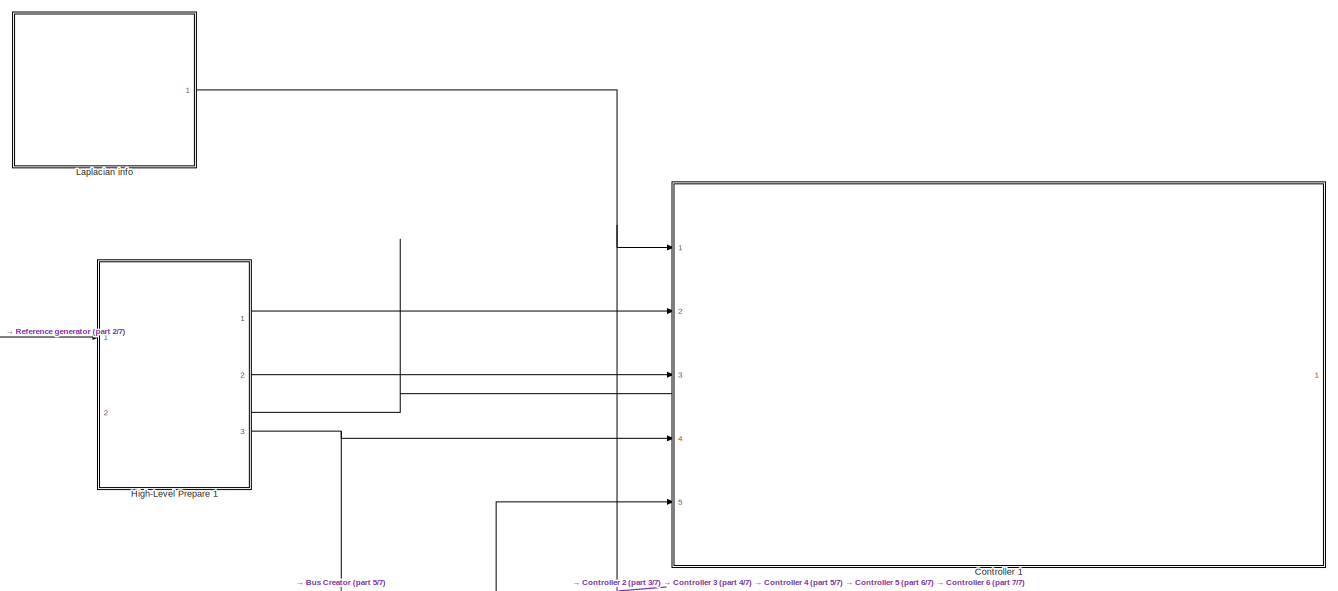
[diagram: root canvas - part 1/7, full width, top band]
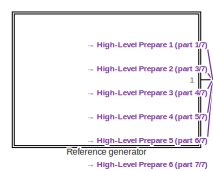
[diagram: root canvas - part 2/7, top left region]
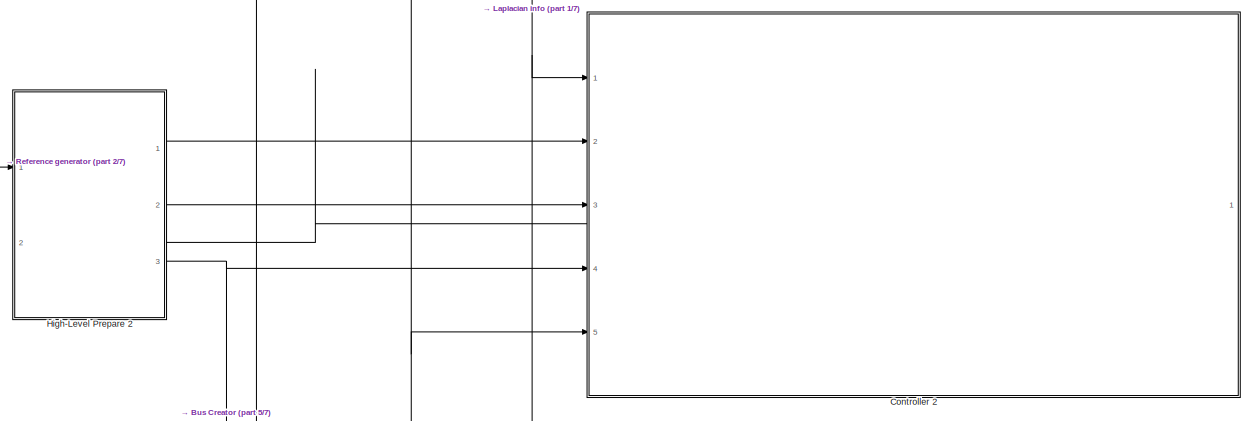
[diagram: root canvas - part 3/7, full width, top band]
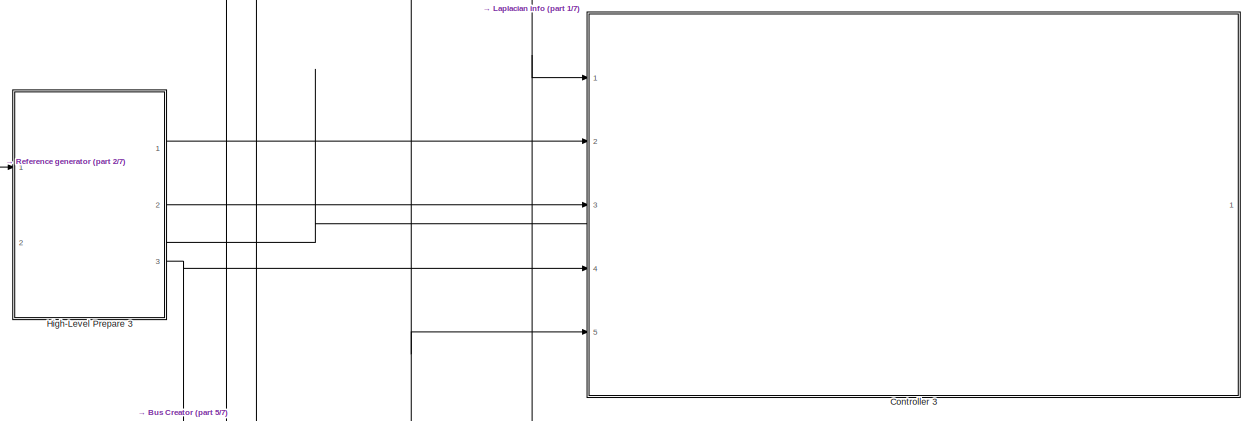
[diagram: root canvas - part 4/7, full width, middle band]
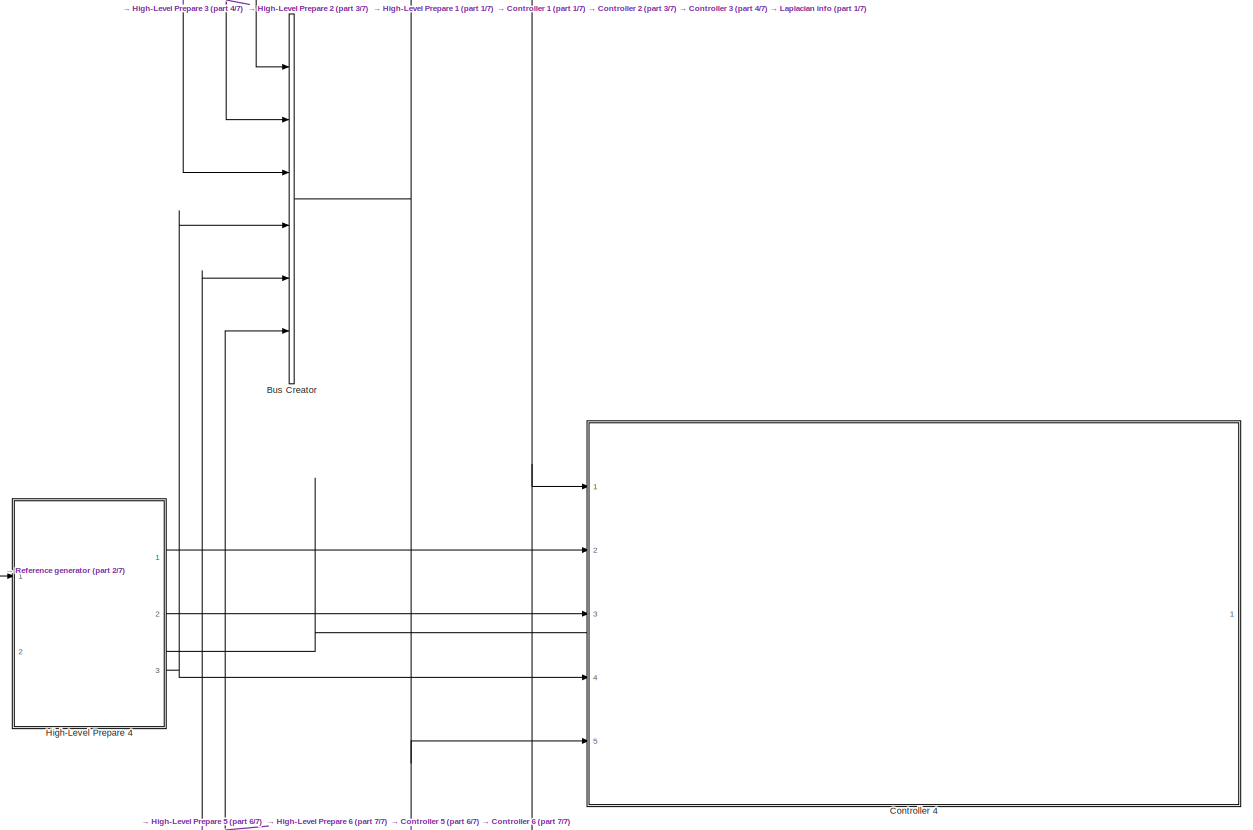
[diagram: root canvas - part 5/7, full width, middle band]
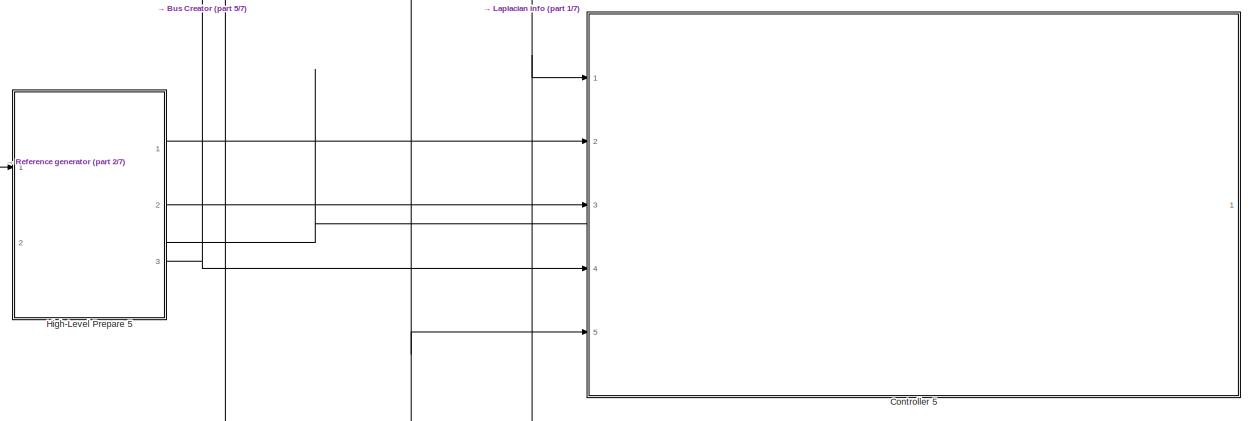
[diagram: root canvas - part 6/7, full width, bottom band]
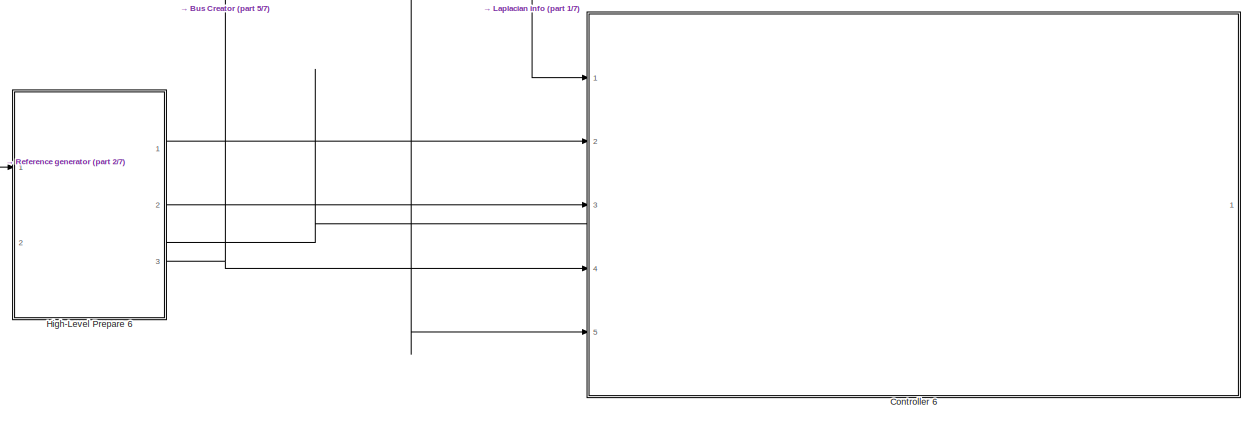
[diagram: root canvas - part 7/7, full width, bottom band]
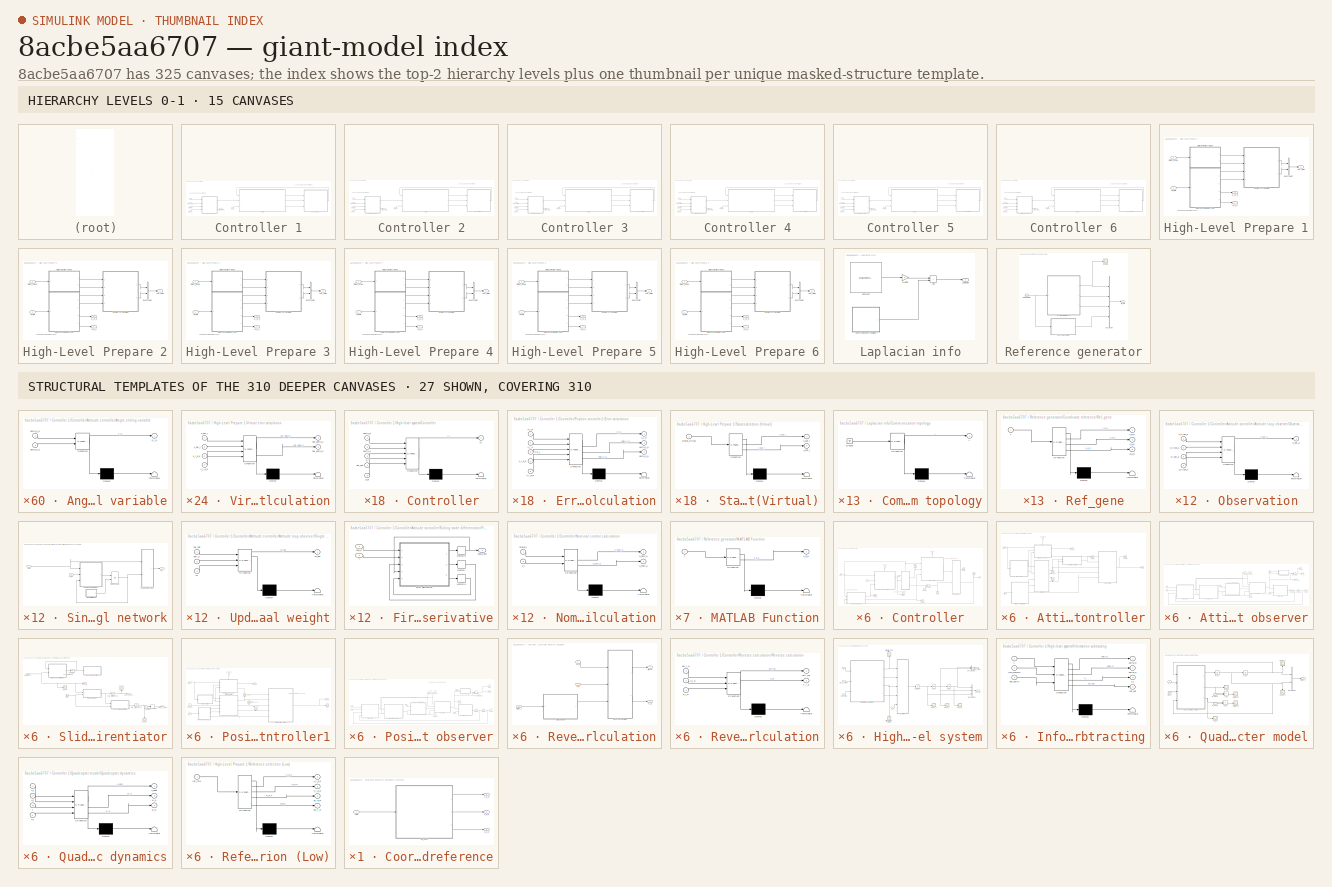
[diagram: thumbnail index - top-2 hierarchy levels (15 canvases) + 27 structural-template representatives of the remaining 310 canvases]
MODEL slx_8acbe5aa6707
KIND model
CONFIG AbsTol = auto
CONFIG EnableMultiTasking = off
CONFIG FixedStep = 0.005
CONFIG MaxStep = auto
CONFIG MinStep = auto
CONFIG RelTol = 1e-3
CONFIG SampleTimeConstraint = Unconstrained
CONFIG SolverName = ode4
CONFIG StartTime = 0.0
CONFIG StopTime = 50
BLOCK [BusCreator] Bus Creator
  DisplayOption = bar
  InheritFromInputs = on
  Inputs = 6
  Ports = [6, 1]
BLOCK [SubSystem] Controller 1
  NameLocation = top
  PortSchema = {"entries":[{"content":{"sides":[{"content":{"connectorIds":["In1","In2","In3","In4","In5"]},"type":"ConnectorPlacement.EquallySpacedRectSide","uuid":"ede5c89e-e264-48e6-8668-eed849251501"},{"content":{"connectorIds":[],"side":"RIGHT"},"type":"ConnectorPlacement.EquallySpacedRectSide","uuid":"e59691b4-d4b1-4407-a122-67eb4d4499aa"},{"content":{"connectorIds":[],"side":"TOP"},"type":"ConnectorPlacem...<+408ch>  <repeated x6 — deduplicated; at blocks: Controller 1, Controller 2, Controller 3, Controller 4, Controller 5, Controller 6>
  Ports = [5, 1]
  RequestExecContextInheritance = off
BLOCK [SubSystem] Controller 1/Controller
  Ports = [3, 3]
  RequestExecContextInheritance = off
BLOCK [SubSystem] Controller 1/Controller/Attitude controller
  PortSchema = {"entries":[{"content":{"sides":[{"content":{"connectorIds":["In1","In2","In3"]},"type":"ConnectorPlacement.EquallySpacedRectSide","uuid":"fa62b1eb-ed3d-4a84-b897-b51f17bb9d42"},{"content":{"connectorIds":["Out1"],"side":"RIGHT"},"type":"ConnectorPlacement.EquallySpacedRectSide","uuid":"9b6b7a3c-e484-45bf-bd32-fe40ffeb0d28"},{"content":{"connectorIds":["Out2"],"side":"TOP"},"type":"ConnectorPlacem...<+258ch>  <repeated x6 — deduplicated; at blocks: Attitude controller>
  Ports = [3, 2]
  RequestExecContextInheritance = off
BLOCK [SubSystem] Controller 1/Controller/Attitude controller/Angle controller
  ErrorFcn = Stateflow.Translate.translate
  PermitHierarchicalResolution = ExplicitOnly
  Ports = [5, 1]
  RequestExecContextInheritance = off
  SFBlockType = MATLAB Function
  TreatAsAtomicUnit = on
BLOCK [Demux] Controller 1/Controller/Attitude controller/Angle controller/ Demux 
  Outputs = 1
  Ports = [1, 1]
BLOCK [S-Function] Controller 1/Controller/Attitude controller/Angle controller/ SFunction 
  EnableBusSupport = on
  FunctionName = sf_sfun
  PortCounts = [5 2]
  Ports = [5, 2]
  SFcnIsStateOwnerBlock = off
  SFunctionDeploymentMode = off
  Tag = Stateflow S-Function 5
BLOCK [Terminator] Controller 1/Controller/Attitude controller/Angle controller/ Terminator 
BLOCK [Inport] Controller 1/Controller/Attitude controller/Angle controller/ang_d_ddot
  Port = 5
BLOCK [Inport] Controller 1/Controller/Attitude controller/Angle controller/delta_v_a
  Port = 4
BLOCK [Inport] Controller 1/Controller/Attitude controller/Angle controller/delta_x_a
  Port = 3
BLOCK [Inport] Controller 1/Controller/Attitude controller/Angle controller/s_i_a
  Port = 2
BLOCK [Outport] Controller 1/Controller/Attitude controller/Angle controller/u_i_a
BLOCK [Inport] Controller 1/Controller/Attitude controller/Angle controller/w_hat_a
BLOCK [SubSystem] Controller 1/Controller/Attitude controller/Angle error
  ErrorFcn = Stateflow.Translate.translate
  PermitHierarchicalResolution = ExplicitOnly
  Ports = [4, 2]
  RequestExecContextInheritance = off
  SFBlockType = MATLAB Function
  TreatAsAtomicUnit = on
BLOCK [Demux] Controller 1/Controller/Attitude controller/Angle error/ Demux 
  Outputs = 1
  Ports = [1, 1]
BLOCK [S-Function] Controller 1/Controller/Attitude controller/Angle error/ SFunction 
  EnableBusSupport = on
  FunctionName = sf_sfun
  PortCounts = [4 3]
  Ports = [4, 3]
  SFcnIsStateOwnerBlock = off
  SFunctionDeploymentMode = off
  Tag = Stateflow S-Function 3
BLOCK [Terminator] Controller 1/Controller/Attitude controller/Angle error/ Terminator 
BLOCK [Inport] Controller 1/Controller/Attitude controller/Angle error/ang_d
  Port = 3
BLOCK [Inport] Controller 1/Controller/Attitude controller/Angle error/ang_d_dot
  Port = 4
BLOCK [Outport] Controller 1/Controller/Attitude controller/Angle error/delta_v_a
  Port = 2
BLOCK [Outport] Controller 1/Controller/Attitude controller/Angle error/delta_x_a
BLOCK [Inport] Controller 1/Controller/Attitude controller/Angle error/v_i_a
  Port = 2
BLOCK [Inport] Controller 1/Controller/Attitude controller/Angle error/x_i_a
BLOCK [SubSystem] Controller 1/Controller/Attitude controller/Angle sliding variable
  ErrorFcn = Stateflow.Translate.translate
  PermitHierarchicalResolution = ExplicitOnly
  Ports = [2, 1]
  RequestExecContextInheritance = off
  SFBlockType = MATLAB Function
  TreatAsAtomicUnit = on
BLOCK [Demux] Controller 1/Controller/Attitude controller/Angle sliding variable/ Demux 
  Outputs = 1
  Ports = [1, 1]
BLOCK [S-Function] Controller 1/Controller/Attitude controller/Angle sliding variable/ SFunction 
  EnableBusSupport = on
  FunctionName = sf_sfun
  PortCounts = [2 2]
  Ports = [2, 2]
  SFcnIsStateOwnerBlock = off
  SFunctionDeploymentMode = off
  Tag = Stateflow S-Function 11
BLOCK [Terminator] Controller 1/Controller/Attitude controller/Angle sliding variable/ Terminator 
BLOCK [Inport] Controller 1/Controller/Attitude controller/Angle sliding variable/delta_v_a
  Port = 2
BLOCK [Inport] Controller 1/Controller/Attitude controller/Angle sliding variable/delta_x_a
BLOCK [Outport] Controller 1/Controller/Attitude controller/Angle sliding variable/s_i_a
BLOCK [SubSystem] Controller 1/Controller/Attitude controller/Attitude loop observer
  PortSchema = {"entries":[{"content":{"sides":[{"content":{"connectorIds":["In1","In2","In3"]},"type":"ConnectorPlacement.EquallySpacedRectSide","uuid":"edf82c9f-eb15-4775-9311-d50d92fa47fd"},{"content":{"connectorIds":["Out1","Out2"],"side":"RIGHT"},"type":"ConnectorPlacement.EquallySpacedRectSide","uuid":"b90416f6-8117-4ec7-8f9a-c5fae9711eab"},{"content":{"connectorIds":["In4"],"side":"TOP"},"type":"Connector...<+264ch>  <repeated x12 — deduplicated; at blocks: Attitude loop observer, Position loop observer>
  Ports = [4, 2]
  RequestExecContextInheritance = off
BLOCK [Clock] Controller 1/Controller/Attitude controller/Attitude loop observer/Clock
BLOCK [SubSystem] Controller 1/Controller/Attitude controller/Attitude loop observer/Error calculation
  ErrorFcn = Stateflow.Translate.translate
  PermitHierarchicalResolution = ExplicitOnly
  Ports = [4, 2]
  RequestExecContextInheritance = off
  SFBlockType = MATLAB Function
  TreatAsAtomicUnit = on
BLOCK [Demux] Controller 1/Controller/Attitude controller/Attitude loop observer/Error calculation/ Demux 
  Outputs = 1
  Ports = [1, 1]
BLOCK [S-Function] Controller 1/Controller/Attitude controller/Attitude loop observer/Error calculation/ SFunction 
  EnableBusSupport = on
  FunctionName = sf_sfun
  PortCounts = [4 3]
  Ports = [4, 3]
  SFcnIsStateOwnerBlock = off
  SFunctionDeploymentMode = off
  Tag = Stateflow S-Function 7
BLOCK [Terminator] Controller 1/Controller/Attitude controller/Attitude loop observer/Error calculation/ Terminator 
BLOCK [Inport] Controller 1/Controller/Attitude controller/Attitude loop observer/Error calculation/v_hat_a
  Port = 4
BLOCK [Inport] Controller 1/Controller/Attitude controller/Attitude loop observer/Error calculation/v_i_a
  Port = 2
BLOCK [Outport] Controller 1/Controller/Attitude controller/Attitude loop observer/Error calculation/v_tilde_a
  Port = 2
BLOCK [Inport] Controller 1/Controller/Attitude controller/Attitude loop observer/Error calculation/x_hat_a
  Port = 3
BLOCK [Inport] Controller 1/Controller/Attitude controller/Attitude loop observer/Error calculation/x_i_a
BLOCK [Outport] Controller 1/Controller/Attitude controller/Attitude loop observer/Error calculation/x_tilde_a
BLOCK [SubSystem] Controller 1/Controller/Attitude controller/Attitude loop observer/MATLAB Function
  ErrorFcn = Stateflow.Translate.translate
  PermitHierarchicalResolution = ExplicitOnly
  Ports = [2, 1]
  RequestExecContextInheritance = off
  SFBlockType = MATLAB Function
  TreatAsAtomicUnit = on
BLOCK [Demux] Controller 1/Controller/Attitude controller/Attitude loop observer/MATLAB Function/ Demux 
  Outputs = 1
  Ports = [1, 1]
BLOCK [S-Function] Controller 1/Controller/Attitude controller/Attitude loop observer/MATLAB Function/ SFunction 
  EnableBusSupport = on
  FunctionName = sf_sfun
  PortCounts = [2 2]
  Ports = [2, 2]
  SFcnIsStateOwnerBlock = off
  SFunctionDeploymentMode = off
  Tag = Stateflow S-Function 8
BLOCK [Terminator] Controller 1/Controller/Attitude controller/Attitude loop observer/MATLAB Function/ Terminator 
BLOCK [Outport] Controller 1/Controller/Attitude controller/Attitude loop observer/MATLAB Function/s_tilde_a
BLOCK [Inport] Controller 1/Controller/Attitude controller/Attitude loop observer/MATLAB Function/v_tilde_a
  Port = 2
BLOCK [Inport] Controller 1/Controller/Attitude controller/Attitude loop observer/MATLAB Function/x_tilde_a
BLOCK [SubSystem] Controller 1/Controller/Attitude controller/Attitude loop observer/MATLAB Function1
  ErrorFcn = Stateflow.Translate.translate
  PermitHierarchicalResolution = ExplicitOnly
  Ports = [2, 1]
  RequestExecContextInheritance = off
  SFBlockType = MATLAB Function
  TreatAsAtomicUnit = on
BLOCK [Demux] Controller 1/Controller/Attitude controller/Attitude loop observer/MATLAB Function1/ Demux 
  Outputs = 1
  Ports = [1, 1]
BLOCK [S-Function] Controller 1/Controller/Attitude controller/Attitude loop observer/MATLAB Function1/ SFunction 
  EnableBusSupport = on
  FunctionName = sf_sfun
  PortCounts = [2 2]
  Ports = [2, 2]
  SFcnIsStateOwnerBlock = off
  SFunctionDeploymentMode = off
  Tag = Stateflow S-Function 30
BLOCK [Terminator] Controller 1/Controller/Attitude controller/Attitude loop observer/MATLAB Function1/ Terminator 
BLOCK [Inport] Controller 1/Controller/Attitude controller/Attitude loop observer/MATLAB Function1/t
BLOCK [Outport] Controller 1/Controller/Attitude controller/Attitude loop observer/MATLAB Function1/w_hat_a
BLOCK [Inport] Controller 1/Controller/Attitude controller/Attitude loop observer/MATLAB Function1/w_hat_a 
  Port = 2
BLOCK [ManualSwitch] Controller 1/Controller/Attitude controller/Attitude loop observer/Manual Switch
BLOCK [SubSystem] Controller 1/Controller/Attitude controller/Attitude loop observer/Observation
  ErrorFcn = Stateflow.Translate.translate
  PermitHierarchicalResolution = ExplicitOnly
  Ports = [4, 1]
  RequestExecContextInheritance = off
  SFBlockType = MATLAB Function
  TreatAsAtomicUnit = on
BLOCK [Demux] Controller 1/Controller/Attitude controller/Attitude loop observer/Observation/ Demux 
  Outputs = 1
  Ports = [1, 1]
BLOCK [S-Function] Controller 1/Controller/Attitude controller/Attitude loop observer/Observation/ SFunction 
  EnableBusSupport = on
  FunctionName = sf_sfun
  PortCounts = [4 2]
  Ports = [4, 2]
  SFcnIsStateOwnerBlock = off
  SFunctionDeploymentMode = off
  Tag = Stateflow S-Function 25
BLOCK [Terminator] Controller 1/Controller/Attitude controller/Attitude loop observer/Observation/ Terminator 
BLOCK [Inport] Controller 1/Controller/Attitude controller/Attitude loop observer/Observation/s_tilde_a
  Port = 4
BLOCK [Outport] Controller 1/Controller/Attitude controller/Attitude loop observer/Observation/u_hat_a
BLOCK [Inport] Controller 1/Controller/Attitude controller/Attitude loop observer/Observation/v_tilde_a
  Port = 2
BLOCK [Inport] Controller 1/Controller/Attitude controller/Attitude loop observer/Observation/w_hat_a
  Port = 3
BLOCK [Inport] Controller 1/Controller/Attitude controller/Attitude loop observer/Observation/x_tilde_a
BLOCK [SubSystem] Controller 1/Controller/Attitude controller/Attitude loop observer/Single Layer Neural network
  NameLocation = top
  Ports = [2, 1]
  RequestExecContextInheritance = off
BLOCK [SubSystem] Controller 1/Controller/Attitude controller/Attitude loop observer/Single Layer Neural network/Neural network output
  ErrorFcn = Stateflow.Translate.translate
  PermitHierarchicalResolution = ExplicitOnly
  Ports = [2, 1]
  RequestExecContextInheritance = off
  SFBlockType = MATLAB Function
  TreatAsAtomicUnit = on
BLOCK [Demux] Controller 1/Controller/Attitude controller/Attitude loop observer/Single Layer Neural network/Neural network output/ Demux 
  Outputs = 1
  Ports = [1, 1]
BLOCK [S-Function] Controller 1/Controller/Attitude controller/Attitude loop observer/Single Layer Neural network/Neural network output/ SFunction 
  EnableBusSupport = on
  FunctionName = sf_sfun
  PortCounts = [2 2]
  Ports = [2, 2]
  SFcnIsStateOwnerBlock = off
  SFunctionDeploymentMode = off
  Tag = Stateflow S-Function 10
BLOCK [Terminator] Controller 1/Controller/Attitude controller/Attitude loop observer/Single Layer Neural network/Neural network output/ Terminator 
BLOCK [Inport] Controller 1/Controller/Attitude controller/Attitude loop observer/Single Layer Neural network/Neural network output/W
  Port = 2
BLOCK [Inport] Controller 1/Controller/Attitude controller/Attitude loop observer/Single Layer Neural network/Neural network output/phi_net
BLOCK [Outport] Controller 1/Controller/Attitude controller/Attitude loop observer/Single Layer Neural network/Neural network output/w_i
BLOCK [SubSystem] Controller 1/Controller/Attitude controller/Attitude loop observer/Single Layer Neural network/Update of neural weight
  ErrorFcn = Stateflow.Translate.translate
  PermitHierarchicalResolution = ExplicitOnly
  Ports = [3, 1]
  RequestExecContextInheritance = off
  SFBlockType = MATLAB Function
  TreatAsAtomicUnit = on
BLOCK [Demux] Controller 1/Controller/Attitude controller/Attitude loop observer/Single Layer Neural network/Update of neural weight/ Demux 
  Outputs = 1
  Ports = [1, 1]
BLOCK [S-Function] Controller 1/Controller/Attitude controller/Attitude loop observer/Single Layer Neural network/Update of neural weight/ SFunction 
  EnableBusSupport = on
  FunctionName = sf_sfun
  PortCounts = [3 2]
  Ports = [3, 2]
  SFcnIsStateOwnerBlock = off
  SFunctionDeploymentMode = off
  Tag = Stateflow S-Function 13
BLOCK [Terminator] Controller 1/Controller/Attitude controller/Attitude loop observer/Single Layer Neural network/Update of neural weight/ Terminator 
BLOCK [Inport] Controller 1/Controller/Attitude controller/Attitude loop observer/Single Layer Neural network/Update of neural weight/W
  Port = 3
BLOCK [Outport] Controller 1/Controller/Attitude controller/Attitude loop observer/Single Layer Neural network/Update of neural weight/W_dot
BLOCK [Inport] Controller 1/Controller/Attitude controller/Attitude loop observer/Single Layer Neural network/Update of neural weight/esti_s
  Port = 2
BLOCK [Inport] Controller 1/Controller/Attitude controller/Attitude loop observer/Single Layer Neural network/Update of neural weight/phi_net
BLOCK [SubSystem] Controller 1/Controller/Attitude controller/Attitude loop observer/Single Layer Neural network/Weight initialisation
  ErrorFcn = Stateflow.Translate.translate
  PermitHierarchicalResolution = ExplicitOnly
  Ports = [0, 1]
  RequestExecContextInheritance = off
  SFBlockType = MATLAB Function
  TreatAsAtomicUnit = on
BLOCK [Demux] Controller 1/Controller/Attitude controller/Attitude loop observer/Single Layer Neural network/Weight initialisation/ Demux 
  Outputs = 1
  Ports = [1, 1]
BLOCK [Ground] Controller 1/Controller/Attitude controller/Attitude loop observer/Single Layer Neural network/Weight initialisation/ Ground 
BLOCK [S-Function] Controller 1/Controller/Attitude controller/Attitude loop observer/Single Layer Neural network/Weight initialisation/ SFunction 
  EnableBusSupport = on
  FunctionName = sf_sfun
  PortCounts = [1 2]
  Ports = [1, 2]
  SFcnIsStateOwnerBlock = off
  SFunctionDeploymentMode = off
  Tag = Stateflow S-Function 15
BLOCK [Terminator] Controller 1/Controller/Attitude controller/Attitude loop observer/Single Layer Neural network/Weight initialisation/ Terminator 
BLOCK [Outport] Controller 1/Controller/Attitude controller/Attitude loop observer/Single Layer Neural network/Weight initialisation/W_0
BLOCK [Integrator] Controller 1/Controller/Attitude controller/Attitude loop observer/Single Layer Neural network/Weight update
  InitialConditionSource = external
  Ports = [2, 1]
BLOCK [Inport] Controller 1/Controller/Attitude controller/Attitude loop observer/Single Layer Neural network/esti_s
  Port = 2
BLOCK [Inport] Controller 1/Controller/Attitude controller/Attitude loop observer/Single Layer Neural network/state
BLOCK [Outport] Controller 1/Controller/Attitude controller/Attitude loop observer/Single Layer Neural network/w_i
BLOCK [SubSystem] Controller 1/Controller/Attitude controller/Attitude loop observer/Virtual system
  ErrorFcn = Stateflow.Translate.translate
  PermitHierarchicalResolution = ExplicitOnly
  Ports = [2, 1]
  RequestExecContextInheritance = off
  SFBlockType = MATLAB Function
  TreatAsAtomicUnit = on
BLOCK [Demux] Controller 1/Controller/Attitude controller/Attitude loop observer/Virtual system/ Demux 
  Outputs = 1
  Ports = [1, 1]
BLOCK [S-Function] Controller 1/Controller/Attitude controller/Attitude loop observer/Virtual system/ SFunction 
  EnableBusSupport = on
  FunctionName = sf_sfun
  PortCounts = [2 2]
  Ports = [2, 2]
  SFcnIsStateOwnerBlock = off
  SFunctionDeploymentMode = off
  Tag = Stateflow S-Function 26
BLOCK [Terminator] Controller 1/Controller/Attitude controller/Attitude loop observer/Virtual system/ Terminator 
BLOCK [Inport] Controller 1/Controller/Attitude controller/Attitude loop observer/Virtual system/u_hat_a
BLOCK [Inport] Controller 1/Controller/Attitude controller/Attitude loop observer/Virtual system/u_nom_a
  Port = 2
BLOCK [Outport] Controller 1/Controller/Attitude controller/Attitude loop observer/Virtual system/v_hat_dot_a
BLOCK [Scope] Controller 1/Controller/Attitude controller/Attitude loop observer/s_tilde_a_1
  Floating = off
  NumInputPorts = 1
  Ports = [1]
  ScopeSpecificationString = Simulink.scopes.TimeScopeBlockCfg('CurrentConfiguration', extmgr.ConfigurationSet(extmgr.Configuration('Core','General UI',true),extmgr.Configuration('Core','Source UI',true),extmgr.Configuration('Sources','WiredSimulink',true,'DataLoggingVariableName','s_tilde_a_1','DataLogging',true,'DataLoggingSaveFormat','Array'),extmgr.Configuration('Visuals','Time Domain',true,'SerializedDisplays',{struct('M...<+1561ch>
BLOCK [Inport] Controller 1/Controller/Attitude controller/Attitude loop observer/states_i
BLOCK [Scope] Controller 1/Controller/Attitude controller/Attitude loop observer/u_hat_a
  Floating = off
  NumInputPorts = 1
  Ports = [1]
  ScopeSpecificationString = Simulink.scopes.TimeScopeBlockCfg('CurrentConfiguration', extmgr.ConfigurationSet(extmgr.Configuration('Core','General UI',true),extmgr.Configuration('Core','Source UI',true),extmgr.Configuration('Sources','WiredSimulink',true,'DataLoggingVariableName','ScopeData4'),extmgr.Configuration('Visuals','Time Domain',true,'SerializedDisplays',{struct('MinYLimReal','-0.04519','MaxYLimReal','0.04535','YLab...<+1510ch>  <repeated x6 — deduplicated; at blocks: u_hat_a>
BLOCK [Inport] Controller 1/Controller/Attitude controller/Attitude loop observer/u_nom_a
  Port = 4
BLOCK [Integrator] Controller 1/Controller/Attitude controller/Attitude loop observer/v_hat_dot_a
  InitialCondition = zeros(3,1)
  Ports = [1, 1]
BLOCK [Inport] Controller 1/Controller/Attitude controller/Attitude loop observer/v_i_a
  Port = 3
BLOCK [Scope] Controller 1/Controller/Attitude controller/Attitude loop observer/v_tilde_a
  Floating = off
  NumInputPorts = 1
  Ports = [1]
  ScopeSpecificationString = Simulink.scopes.TimeScopeBlockCfg('CurrentConfiguration', extmgr.ConfigurationSet(extmgr.Configuration('Core','General UI',true),extmgr.Configuration('Core','Source UI',true),extmgr.Configuration('Sources','WiredSimulink',true,'DataLoggingVariableName','ScopeData5'),extmgr.Configuration('Visuals','Time Domain',true,'SerializedDisplays',{struct('MinYLimReal','-0.0171','MaxYLimReal','0.05077','YLabe...<+1524ch>  <repeated x11 — deduplicated; at blocks: v_tilde_a, v_tilde_p_1, v_tilde_p, v_tilde_a_5, v_tilde_a_6, v_tilde_p_6>
BLOCK [Outport] Controller 1/Controller/Attitude controller/Attitude loop observer/w_hat_a
  Port = 2
BLOCK [Outport] Controller 1/Controller/Attitude controller/Attitude loop observer/w_hat_a_actual
BLOCK [Scope] Controller 1/Controller/Attitude controller/Attitude loop observer/x_hat_a
  Floating = off
  NumInputPorts = 1
  Ports = [1]
  ScopeSpecificationString = Simulink.scopes.TimeScopeBlockCfg('CurrentConfiguration', extmgr.ConfigurationSet(extmgr.Configuration('Core','General UI',true),extmgr.Configuration('Core','Source UI',true),extmgr.Configuration('Sources','WiredSimulink',true,'DataLoggingVariableName','ScopeData6'),extmgr.Configuration('Visuals','Time Domain',true,'SerializedDisplays',{struct('MinYLimReal','-0.66507','MaxYLimReal','1.06571','YLab...<+1476ch>  <repeated x6 — deduplicated; at blocks: x_hat_a>
BLOCK [Integrator] Controller 1/Controller/Attitude controller/Attitude loop observer/x_hat_dot_a
  InitialCondition = zeros(3,1)
  Ports = [1, 1]
BLOCK [Inport] Controller 1/Controller/Attitude controller/Attitude loop observer/x_i_a
  Port = 2
BLOCK [Scope] Controller 1/Controller/Attitude controller/Attitude loop observer/x_tilde_a_1
  Floating = off
  NumInputPorts = 1
  Ports = [1]
  ScopeSpecificationString = Simulink.scopes.TimeScopeBlockCfg('CurrentConfiguration', extmgr.ConfigurationSet(extmgr.Configuration('Core','General UI',true),extmgr.Configuration('Core','Source UI',true),extmgr.Configuration('Sources','WiredSimulink',true,'DataLoggingVariableName','x_tilde_a_1','DataLogging',true,'DataLoggingSaveFormat','Array'),extmgr.Configuration('Visuals','Time Domain',true,'SerializedDisplays',{struct('M...<+1595ch>
BLOCK [Scope] Controller 1/Controller/Attitude controller/Scope
  Floating = off
  NumInputPorts = 1
  Ports = [1]
  ScopeSpecificationString = Simulink.scopes.TimeScopeBlockCfg('CurrentConfiguration', extmgr.ConfigurationSet(extmgr.Configuration('Core','General UI',true),extmgr.Configuration('Core','Source UI',true),extmgr.Configuration('Sources','WiredSimulink',true,'DataLoggingVariableName','ScopeData8'),extmgr.Configuration('Visuals','Time Domain',true,'SerializedDisplays',{struct('MinYLimReal','-8.46904','MaxYLimReal','13.81687','YLa...<+1496ch>  <repeated x6 — deduplicated; at blocks: Scope>
BLOCK [SubSystem] Controller 1/Controller/Attitude controller/Sliding mode differentiator
  PortSchema = {"entries":[{"content":{"sides":[{"content":{"connectorIds":["In1"]},"type":"ConnectorPlacement.EquallySpacedRectSide","uuid":"d0355641-aeac-4820-b7cd-f9621efbd127"},{"content":{"connectorIds":["Out1","Out2"],"side":"RIGHT"},"type":"ConnectorPlacement.EquallySpacedRectSide","uuid":"185ec072-6206-4946-bebc-a6564ad10b6f"},{"content":{"connectorIds":["Out3"],"side":"TOP"},"type":"ConnectorPlacement.E...<+253ch>  <repeated x6 — deduplicated; at blocks: Sliding mode differentiator>
  Ports = [1, 3]
  RequestExecContextInheritance = off
BLOCK [Clock] Controller 1/Controller/Attitude controller/Sliding mode differentiator/Clock
BLOCK [Constant] Controller 1/Controller/Attitude controller/Sliding mode differentiator/Constant
  Value = [0;0;0]
BLOCK [SubSystem] Controller 1/Controller/Attitude controller/Sliding mode differentiator/First-order derivative
  Ports = [2, 1]
  RequestExecContextInheritance = off
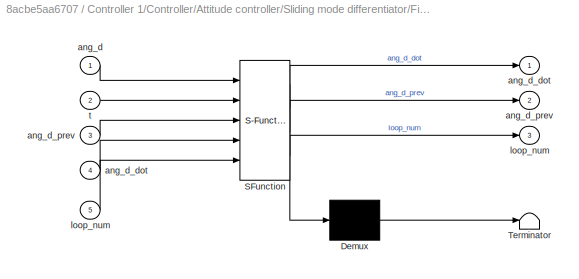
BLOCK [SubSystem] Controller 1/Controller/Attitude controller/Sliding mode differentiator/First-order derivative/First derivative
  ErrorFcn = Stateflow.Translate.translate
  PermitHierarchicalResolution = ExplicitOnly
  Ports = [5, 3]
  RequestExecContextInheritance = off
  SFBlockType = MATLAB Function
  TreatAsAtomicUnit = on
BLOCK [Demux] Controller 1/Controller/Attitude controller/Sliding mode differentiator/First-order derivative/First derivative/ Demux 
  Outputs = 1
  Ports = [1, 1]
BLOCK [S-Function] Controller 1/Controller/Attitude controller/Sliding mode differentiator/First-order derivative/First derivative/ SFunction 
  EnableBusSupport = on
  FunctionName = sf_sfun
  PortCounts = [5 4]
  Ports = [5, 4]
  SFcnIsStateOwnerBlock = off
  SFunctionDeploymentMode = off
  Tag = Stateflow S-Function 34
BLOCK [Terminator] Controller 1/Controller/Attitude controller/Sliding mode differentiator/First-order derivative/First derivative/ Terminator 
BLOCK [Inport] Controller 1/Controller/Attitude controller/Sliding mode differentiator/First-order derivative/First derivative/ang_d
BLOCK [Outport] Controller 1/Controller/Attitude controller/Sliding mode differentiator/First-order derivative/First derivative/ang_d_dot
BLOCK [Inport] Controller 1/Controller/Attitude controller/Sliding mode differentiator/First-order derivative/First derivative/ang_d_dot 
  Port = 4
BLOCK [Outport] Controller 1/Controller/Attitude controller/Sliding mode differentiator/First-order derivative/First derivative/ang_d_prev
  Port = 2
BLOCK [Inport] Controller 1/Controller/Attitude controller/Sliding mode differentiator/First-order derivative/First derivative/ang_d_prev 
  Port = 3
BLOCK [Outport] Controller 1/Controller/Attitude controller/Sliding mode differentiator/First-order derivative/First derivative/loop_num
  Port = 3
BLOCK [Inport] Controller 1/Controller/Attitude controller/Sliding mode differentiator/First-order derivative/First derivative/loop_num 
  Port = 5
BLOCK [Inport] Controller 1/Controller/Attitude controller/Sliding mode differentiator/First-order derivative/First derivative/t
  Port = 2
BLOCK [Memory] Controller 1/Controller/Attitude controller/Sliding mode differentiator/First-order derivative/Memory
  InitialCondition = [0;0;0]
BLOCK [Memory] Controller 1/Controller/Attitude controller/Sliding mode differentiator/First-order derivative/Memory1
BLOCK [Memory] Controller 1/Controller/Attitude controller/Sliding mode differentiator/First-order derivative/Memory2
  InitialCondition = [0;0;0]
BLOCK [Inport] Controller 1/Controller/Attitude controller/Sliding mode differentiator/First-order derivative/ang_d
BLOCK [Outport] Controller 1/Controller/Attitude controller/Sliding mode differentiator/First-order derivative/ang_d_dot
BLOCK [Inport] Controller 1/Controller/Attitude controller/Sliding mode differentiator/First-order derivative/t
  Port = 2
BLOCK [Integrator] Controller 1/Controller/Attitude controller/Sliding mode differentiator/Integrator
  Commented = on
  ContinuousStateAttributes = 'speed'
  InitialCondition = [0;0;0;0;0;0;0;0;0;0;0;0]
  Ports = [1, 1]
BLOCK [SubSystem] Controller 1/Controller/Attitude controller/Sliding mode differentiator/MATLAB Function
  Commented = on
  ErrorFcn = Stateflow.Translate.translate
  PermitHierarchicalResolution = ExplicitOnly
  Ports = [1, 3]
  RequestExecContextInheritance = off
  SFBlockType = MATLAB Function
  TreatAsAtomicUnit = on
BLOCK [Demux] Controller 1/Controller/Attitude controller/Sliding mode differentiator/MATLAB Function/ Demux 
  Outputs = 1
  Ports = [1, 1]
BLOCK [S-Function] Controller 1/Controller/Attitude controller/Sliding mode differentiator/MATLAB Function/ SFunction 
  EnableBusSupport = on
  FunctionName = sf_sfun
  PortCounts = [1 4]
  Ports = [1, 4]
  SFcnIsStateOwnerBlock = off
  SFunctionDeploymentMode = off
  Tag = Stateflow S-Function 103
BLOCK [Terminator] Controller 1/Controller/Attitude controller/Sliding mode differentiator/MATLAB Function/ Terminator 
BLOCK [Outport] Controller 1/Controller/Attitude controller/Sliding mode differentiator/MATLAB Function/ang_d
BLOCK [Outport] Controller 1/Controller/Attitude controller/Sliding mode differentiator/MATLAB Function/ang_d_ddot
  Port = 3
BLOCK [Outport] Controller 1/Controller/Attitude controller/Sliding mode differentiator/MATLAB Function/ang_d_dot
  Port = 2
BLOCK [Inport] Controller 1/Controller/Attitude controller/Sliding mode differentiator/MATLAB Function/z
BLOCK [ManualSwitch] Controller 1/Controller/Attitude controller/Sliding mode differentiator/Manual Switch
BLOCK [Inport] Controller 1/Controller/Attitude controller/Sliding mode differentiator/Reference
BLOCK [SubSystem] Controller 1/Controller/Attitude controller/Sliding mode differentiator/Second-order derivative
  Ports = [2, 1]
  RequestExecContextInheritance = off
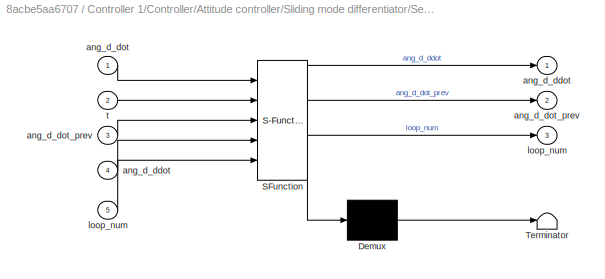
BLOCK [SubSystem] Controller 1/Controller/Attitude controller/Sliding mode differentiator/Second-order derivative/First derivative
  ErrorFcn = Stateflow.Translate.translate
  PermitHierarchicalResolution = ExplicitOnly
  Ports = [5, 3]
  RequestExecContextInheritance = off
  SFBlockType = MATLAB Function
  TreatAsAtomicUnit = on
BLOCK [Demux] Controller 1/Controller/Attitude controller/Sliding mode differentiator/Second-order derivative/First derivative/ Demux 
  Outputs = 1
  Ports = [1, 1]
BLOCK [S-Function] Controller 1/Controller/Attitude controller/Sliding mode differentiator/Second-order derivative/First derivative/ SFunction 
  EnableBusSupport = on
  FunctionName = sf_sfun
  PortCounts = [5 4]
  Ports = [5, 4]
  SFcnIsStateOwnerBlock = off
  SFunctionDeploymentMode = off
  Tag = Stateflow S-Function 18
BLOCK [Terminator] Controller 1/Controller/Attitude controller/Sliding mode differentiator/Second-order derivative/First derivative/ Terminator 
BLOCK [Outport] Controller 1/Controller/Attitude controller/Sliding mode differentiator/Second-order derivative/First derivative/ang_d_ddot
BLOCK [Inport] Controller 1/Controller/Attitude controller/Sliding mode differentiator/Second-order derivative/First derivative/ang_d_ddot 
  Port = 4
BLOCK [Inport] Controller 1/Controller/Attitude controller/Sliding mode differentiator/Second-order derivative/First derivative/ang_d_dot
BLOCK [Outport] Controller 1/Controller/Attitude controller/Sliding mode differentiator/Second-order derivative/First derivative/ang_d_dot_prev
  Port = 2
BLOCK [Inport] Controller 1/Controller/Attitude controller/Sliding mode differentiator/Second-order derivative/First derivative/ang_d_dot_prev 
  Port = 3
BLOCK [Outport] Controller 1/Controller/Attitude controller/Sliding mode differentiator/Second-order derivative/First derivative/loop_num
  Port = 3
BLOCK [Inport] Controller 1/Controller/Attitude controller/Sliding mode differentiator/Second-order derivative/First derivative/loop_num 
  Port = 5
BLOCK [Inport] Controller 1/Controller/Attitude controller/Sliding mode differentiator/Second-order derivative/First derivative/t
  Port = 2
BLOCK [Memory] Controller 1/Controller/Attitude controller/Sliding mode differentiator/Second-order derivative/Memory
  InitialCondition = [0;0;0]
BLOCK [Memory] Controller 1/Controller/Attitude controller/Sliding mode differentiator/Second-order derivative/Memory1
BLOCK [Memory] Controller 1/Controller/Attitude controller/Sliding mode differentiator/Second-order derivative/Memory2
  InitialCondition = [0;0;0]
BLOCK [Outport] Controller 1/Controller/Attitude controller/Sliding mode differentiator/Second-order derivative/ang_d_ddot
BLOCK [Inport] Controller 1/Controller/Attitude controller/Sliding mode differentiator/Second-order derivative/ang_d_dot
BLOCK [Inport] Controller 1/Controller/Attitude controller/Sliding mode differentiator/Second-order derivative/t
  Port = 2
BLOCK [Scope] Controller 1/Controller/Attitude controller/Sliding mode differentiator/a_d_a
  Floating = off
  NumInputPorts = 1
  Ports = [1]
  ScopeSpecificationString = Simulink.scopes.TimeScopeBlockCfg('CurrentConfiguration', extmgr.ConfigurationSet(extmgr.Configuration('Core','General UI',true),extmgr.Configuration('Core','Source UI',true),extmgr.Configuration('Sources','WiredSimulink',true,'DataLoggingVariableName','ScopeData5'),extmgr.Configuration('Visuals','Time Domain',true,'SerializedDisplays',{struct('MinYLimReal','-0.25','MaxYLimReal','0.25','YLabelReal...<+1480ch>  <repeated x6 — deduplicated; at blocks: a_d_a>
BLOCK [Outport] Controller 1/Controller/Attitude controller/Sliding mode differentiator/ang_d
  Port = 3
BLOCK [Outport] Controller 1/Controller/Attitude controller/Sliding mode differentiator/ang_d_ddot
  Port = 2
BLOCK [Outport] Controller 1/Controller/Attitude controller/Sliding mode differentiator/ang_d_dot
BLOCK [Saturate] Controller 1/Controller/Attitude controller/Sliding mode differentiator/satu_atti_ref_ddot
  LowerLimit = -0.1
  UpperLimit = 0.1
BLOCK [Saturate] Controller 1/Controller/Attitude controller/Sliding mode differentiator/satu_atti_ref_dot
  LowerLimit = -0.2
  UpperLimit = 0.2
BLOCK [SubSystem] Controller 1/Controller/Attitude controller/Sliding mode differentiator/sliding mode differentiator
  Commented = on
  ErrorFcn = Stateflow.Translate.translate
  PermitHierarchicalResolution = ExplicitOnly
  Ports = [2, 1]
  RequestExecContextInheritance = off
  SFBlockType = MATLAB Function
  TreatAsAtomicUnit = on
BLOCK [Demux] Controller 1/Controller/Attitude controller/Sliding mode differentiator/sliding mode differentiator/ Demux 
  Outputs = 1
  Ports = [1, 1]
BLOCK [S-Function] Controller 1/Controller/Attitude controller/Sliding mode differentiator/sliding mode differentiator/ SFunction 
  EnableBusSupport = on
  FunctionName = sf_sfun
  PortCounts = [2 2]
  Ports = [2, 2]
  SFcnIsStateOwnerBlock = off
  SFunctionDeploymentMode = off
  Tag = Stateflow S-Function 105
BLOCK [Terminator] Controller 1/Controller/Attitude controller/Sliding mode differentiator/sliding mode differentiator/ Terminator 
BLOCK [Inport] Controller 1/Controller/Attitude controller/Sliding mode differentiator/sliding mode differentiator/x_d
  Port = 2
BLOCK [Inport] Controller 1/Controller/Attitude controller/Sliding mode differentiator/sliding mode differentiator/z
BLOCK [Outport] Controller 1/Controller/Attitude controller/Sliding mode differentiator/sliding mode differentiator/z_dot
BLOCK [Scope] Controller 1/Controller/Attitude controller/Sliding mode differentiator/v_d_a
  Floating = off
  NameLocation = top
  NumInputPorts = 1
  Ports = [1]
  ScopeSpecificationString = Simulink.scopes.TimeScopeBlockCfg('CurrentConfiguration', extmgr.ConfigurationSet(extmgr.Configuration('Core','General UI',true),extmgr.Configuration('Core','Source UI',true),extmgr.Configuration('Sources','WiredSimulink',true,'DataLoggingVariableName','ScopeData4'),extmgr.Configuration('Visuals','Time Domain',true,'SerializedDisplays',{struct('MinYLimReal','-0.375','MaxYLimReal','0.375','YLabelRe...<+1501ch>
BLOCK [Scope] Controller 1/Controller/Attitude controller/Sliding mode differentiator/x_d_a
  Floating = off
  NumInputPorts = 1
  Ports = [1]
  ScopeSpecificationString = Simulink.scopes.TimeScopeBlockCfg('CurrentConfiguration', extmgr.ConfigurationSet(extmgr.Configuration('Core','General UI',true),extmgr.Configuration('Core','Source UI',true),extmgr.Configuration('Sources','WiredSimulink',true,'DataLoggingVariableName','ScopeData5'),extmgr.Configuration('Visuals','Time Domain',true,'SerializedDisplays',{struct('MinYLimReal','-0.3075','MaxYLimReal','0.2678','YLabel...<+1463ch>
BLOCK [SubSystem] Controller 1/Controller/Attitude controller/State selection
  ErrorFcn = Stateflow.Translate.translate
  PermitHierarchicalResolution = ExplicitOnly
  Ports = [1, 2]
  RequestExecContextInheritance = off
  SFBlockType = MATLAB Function
  TreatAsAtomicUnit = on
BLOCK [Demux] Controller 1/Controller/Attitude controller/State selection/ Demux 
  Outputs = 1
  Ports = [1, 1]
BLOCK [S-Function] Controller 1/Controller/Attitude controller/State selection/ SFunction 
  EnableBusSupport = on
  FunctionName = sf_sfun
  PortCounts = [1 3]
  Ports = [1, 3]
  SFcnIsStateOwnerBlock = off
  SFunctionDeploymentMode = off
  Tag = Stateflow S-Function 38
BLOCK [Terminator] Controller 1/Controller/Attitude controller/State selection/ Terminator 
BLOCK [Inport] Controller 1/Controller/Attitude controller/State selection/states_i
BLOCK [Outport] Controller 1/Controller/Attitude controller/State selection/v_i_a
  Port = 2
BLOCK [Outport] Controller 1/Controller/Attitude controller/State selection/x_i_a
BLOCK [Inport] Controller 1/Controller/Attitude controller/atti_ref
  Port = 2
BLOCK [Scope] Controller 1/Controller/Attitude controller/delta_v_a
  Floating = off
  NameLocation = top
  NumInputPorts = 1
  Ports = [1]
  ScopeSpecificationString = Simulink.scopes.TimeScopeBlockCfg('CurrentConfiguration', extmgr.ConfigurationSet(extmgr.Configuration('Core','General UI',true),extmgr.Configuration('Core','Source UI',true),extmgr.Configuration('Sources','WiredSimulink',true,'DataLoggingVariableName','ScopeData2'),extmgr.Configuration('Visuals','Time Domain',true,'SerializedDisplays',{struct('MinYLimReal','-0.38485','MaxYLimReal','1.19307','YLab...<+1508ch>  <repeated x6 — deduplicated; at blocks: delta_v_a, delta_v_a_5, delta_v_a_6>
BLOCK [Scope] Controller 1/Controller/Attitude controller/delta_x_a_1
  Floating = off
  NumInputPorts = 1
  Ports = [1]
  ScopeSpecificationString = Simulink.scopes.TimeScopeBlockCfg('CurrentConfiguration', extmgr.ConfigurationSet(extmgr.Configuration('Core','General UI',true),extmgr.Configuration('Core','Source UI',true),extmgr.Configuration('Sources','WiredSimulink',true,'DataLoggingVariableName','delta_x_a_1','DataLogging',true,'DataLoggingSaveFormat','Array'),extmgr.Configuration('Visuals','Time Domain',true,'SerializedDisplays',{struct('M...<+1577ch>
BLOCK [Scope] Controller 1/Controller/Attitude controller/s_i_a_1
  Floating = off
  NumInputPorts = 1
  Ports = [1]
  ScopeSpecificationString = Simulink.scopes.TimeScopeBlockCfg('CurrentConfiguration', extmgr.ConfigurationSet(extmgr.Configuration('Core','General UI',true),extmgr.Configuration('Core','Source UI',true),extmgr.Configuration('Sources','WiredSimulink',true,'DataLoggingVariableName','s_i_a_1','DataLogging',true,'DataLoggingSaveFormat','Array'),extmgr.Configuration('Visuals','Time Domain',true,'SerializedDisplays',{struct('MinYL...<+1578ch>
BLOCK [Inport] Controller 1/Controller/Attitude controller/states_i
BLOCK [Outport] Controller 1/Controller/Attitude controller/u_I_a
BLOCK [Inport] Controller 1/Controller/Attitude controller/u_nom_a
  NameLocation = left
  Port = 3
BLOCK [Outport] Controller 1/Controller/Attitude controller/w_hat_a
  Port = 2
BLOCK [Constant] Controller 1/Controller/Constant
  Value = 13.72
  VectorParams1D = off
BLOCK [ManualSwitch] Controller 1/Controller/Manual Switch
BLOCK [SubSystem] Controller 1/Controller/Nominal control calculation
  ErrorFcn = Stateflow.Translate.translate
  PermitHierarchicalResolution = ExplicitOnly
  Ports = [2, 2]
  RequestExecContextInheritance = off
  SFBlockType = MATLAB Function
  TreatAsAtomicUnit = on
BLOCK [Demux] Controller 1/Controller/Nominal control calculation/ Demux 
  Outputs = 1
  Ports = [1, 1]
BLOCK [S-Function] Controller 1/Controller/Nominal control calculation/ SFunction 
  EnableBusSupport = on
  FunctionName = sf_sfun
  PortCounts = [2 3]
  Ports = [2, 3]
  SFcnIsStateOwnerBlock = off
  SFunctionDeploymentMode = off
  Tag = Stateflow S-Function 16
BLOCK [Terminator] Controller 1/Controller/Nominal control calculation/ Terminator 
BLOCK [Inport] Controller 1/Controller/Nominal control calculation/states_i
BLOCK [Inport] Controller 1/Controller/Nominal control calculation/u_i
  Port = 2
BLOCK [Outport] Controller 1/Controller/Nominal control calculation/u_nom_a
  Port = 2
BLOCK [Outport] Controller 1/Controller/Nominal control calculation/u_nom_p
BLOCK [SubSystem] Controller 1/Controller/Position controller1
  PortSchema = {"entries":[{"content":{"sides":[{"content":{"connectorIds":["In1","In2","In3"]},"type":"ConnectorPlacement.EquallySpacedRectSide","uuid":"6f6db54a-065c-4c68-96d3-ce6f9528f7c2"},{"content":{"connectorIds":["Out1"],"side":"RIGHT"},"type":"ConnectorPlacement.EquallySpacedRectSide","uuid":"eab021de-0481-49e0-8239-dbc5993eb5fa"},{"content":{"connectorIds":["Out2"],"side":"TOP"},"type":"ConnectorPlacem...<+402ch>  <repeated x6 — deduplicated; at blocks: Position controller1>
  Ports = [3, 2]
  RequestExecContextInheritance = off
BLOCK [Constant] Controller 1/Controller/Position controller1/Constant
  Value = [0;0;0]
  VectorParams1D = off
BLOCK [SubSystem] Controller 1/Controller/Position controller1/Error calculation
  ErrorFcn = Stateflow.Translate.translate
  PermitHierarchicalResolution = ExplicitOnly
  Ports = [5, 3]
  RequestExecContextInheritance = off
  SFBlockType = MATLAB Function
  TreatAsAtomicUnit = on
BLOCK [Demux] Controller 1/Controller/Position controller1/Error calculation/ Demux 
  Outputs = 1
  Ports = [1, 1]
BLOCK [S-Function] Controller 1/Controller/Position controller1/Error calculation/ SFunction 
  EnableBusSupport = on
  FunctionName = sf_sfun
  PortCounts = [5 4]
  Ports = [5, 4]
  SFcnIsStateOwnerBlock = off
  SFunctionDeploymentMode = off
  Tag = Stateflow S-Function 1
BLOCK [Terminator] Controller 1/Controller/Position controller1/Error calculation/ Terminator 
BLOCK [Inport] Controller 1/Controller/Position controller1/Error calculation/Phi_i
  Port = 3
BLOCK [Outport] Controller 1/Controller/Position controller1/Error calculation/delta_v_p
  Port = 3
BLOCK [Outport] Controller 1/Controller/Position controller1/Error calculation/delta_x_p
  Port = 2
BLOCK [Outport] Controller 1/Controller/Position controller1/Error calculation/s_i_p
BLOCK [Inport] Controller 1/Controller/Position controller1/Error calculation/v_i_p
  Port = 2
BLOCK [Inport] Controller 1/Controller/Position controller1/Error calculation/v_i_p_d
  Port = 5
BLOCK [Inport] Controller 1/Controller/Position controller1/Error calculation/x_i_p
BLOCK [Inport] Controller 1/Controller/Position controller1/Error calculation/x_i_p_d
  Port = 4
BLOCK [SubSystem] Controller 1/Controller/Position controller1/Position loop observer
  Ports = [4, 2]
  RequestExecContextInheritance = off
BLOCK [Clock] Controller 1/Controller/Position controller1/Position loop observer/Clock
BLOCK [SubSystem] Controller 1/Controller/Position controller1/Position loop observer/Error calculation
  ErrorFcn = Stateflow.Translate.translate
  PermitHierarchicalResolution = ExplicitOnly
  Ports = [4, 2]
  RequestExecContextInheritance = off
  SFBlockType = MATLAB Function
  TreatAsAtomicUnit = on
BLOCK [Demux] Controller 1/Controller/Position controller1/Position loop observer/Error calculation/ Demux 
  Outputs = 1
  Ports = [1, 1]
BLOCK [S-Function] Controller 1/Controller/Position controller1/Position loop observer/Error calculation/ SFunction 
  EnableBusSupport = on
  FunctionName = sf_sfun
  PortCounts = [4 3]
  Ports = [4, 3]
  SFcnIsStateOwnerBlock = off
  SFunctionDeploymentMode = off
  Tag = Stateflow S-Function 2
BLOCK [Terminator] Controller 1/Controller/Position controller1/Position loop observer/Error calculation/ Terminator 
BLOCK [Inport] Controller 1/Controller/Position controller1/Position loop observer/Error calculation/v_hat_p
  Port = 4
BLOCK [Inport] Controller 1/Controller/Position controller1/Position loop observer/Error calculation/v_i_p
  Port = 2
BLOCK [Outport] Controller 1/Controller/Position controller1/Position loop observer/Error calculation/v_tilde_p
  Port = 2
BLOCK [Inport] Controller 1/Controller/Position controller1/Position loop observer/Error calculation/x_hat_p
  Port = 3
BLOCK [Inport] Controller 1/Controller/Position controller1/Position loop observer/Error calculation/x_i_p
BLOCK [Outport] Controller 1/Controller/Position controller1/Position loop observer/Error calculation/x_tilde_p
BLOCK [Integrator] Controller 1/Controller/Position controller1/Position loop observer/Integrator
  InitialCondition = [0;0;0]
  Ports = [1, 1]
BLOCK [Integrator] Controller 1/Controller/Position controller1/Position loop observer/Integrator1
  InitialCondition = InitialCondition
  Ports = [1, 1]
BLOCK [SubSystem] Controller 1/Controller/Position controller1/Position loop observer/MATLAB Function
  ErrorFcn = Stateflow.Translate.translate
  PermitHierarchicalResolution = ExplicitOnly
  Ports = [2, 1]
  RequestExecContextInheritance = off
  SFBlockType = MATLAB Function
  TreatAsAtomicUnit = on
BLOCK [Demux] Controller 1/Controller/Position controller1/Position loop observer/MATLAB Function/ Demux 
  Outputs = 1
  Ports = [1, 1]
BLOCK [S-Function] Controller 1/Controller/Position controller1/Position loop observer/MATLAB Function/ SFunction 
  EnableBusSupport = on
  FunctionName = sf_sfun
  PortCounts = [2 2]
  Ports = [2, 2]
  SFcnIsStateOwnerBlock = off
  SFunctionDeploymentMode = off
  Tag = Stateflow S-Function 9
BLOCK [Terminator] Controller 1/Controller/Position controller1/Position loop observer/MATLAB Function/ Terminator 
BLOCK [Inport] Controller 1/Controller/Position controller1/Position loop observer/MATLAB Function/t
BLOCK [Outport] Controller 1/Controller/Position controller1/Position loop observer/MATLAB Function/w_hat_p
BLOCK [Inport] Controller 1/Controller/Position controller1/Position loop observer/MATLAB Function/w_hat_p 
  Port = 2
BLOCK [ManualSwitch] Controller 1/Controller/Position controller1/Position loop observer/Manual Switch
BLOCK [SubSystem] Controller 1/Controller/Position controller1/Position loop observer/Observation
  ErrorFcn = Stateflow.Translate.translate
  PermitHierarchicalResolution = ExplicitOnly
  Ports = [4, 1]
  RequestExecContextInheritance = off
  SFBlockType = MATLAB Function
  TreatAsAtomicUnit = on
BLOCK [Demux] Controller 1/Controller/Position controller1/Position loop observer/Observation/ Demux 
  Outputs = 1
  Ports = [1, 1]
BLOCK [S-Function] Controller 1/Controller/Position controller1/Position loop observer/Observation/ SFunction 
  EnableBusSupport = on
  FunctionName = sf_sfun
  PortCounts = [4 2]
  Ports = [4, 2]
  SFcnIsStateOwnerBlock = off
  SFunctionDeploymentMode = off
  Tag = Stateflow S-Function 14
BLOCK [Terminator] Controller 1/Controller/Position controller1/Position loop observer/Observation/ Terminator 
BLOCK [Inport] Controller 1/Controller/Position controller1/Position loop observer/Observation/s_tilde_p
  Port = 4
BLOCK [Outport] Controller 1/Controller/Position controller1/Position loop observer/Observation/u_hat_p
BLOCK [Inport] Controller 1/Controller/Position controller1/Position loop observer/Observation/v_tilde_p
  Port = 2
BLOCK [Inport] Controller 1/Controller/Position controller1/Position loop observer/Observation/w_hat_p
  Port = 3
BLOCK [Inport] Controller 1/Controller/Position controller1/Position loop observer/Observation/x_tilde_p
BLOCK [Scope] Controller 1/Controller/Position controller1/Position loop observer/Scope
  Floating = off
  NumInputPorts = 1
  Ports = [1]
  ScopeSpecificationString = Simulink.scopes.TimeScopeBlockCfg('CurrentConfiguration', extmgr.ConfigurationSet(extmgr.Configuration('Core','General UI',true),extmgr.Configuration('Core','Source UI',true),extmgr.Configuration('Sources','WiredSimulink',true,'DataLoggingVariableName','ScopeData1'),extmgr.Configuration('Visuals','Time Domain',true,'SerializedDisplays',{struct('MinYLimReal','-1.12539','MaxYLimReal','1.12953','YLab...<+1503ch>
BLOCK [SubSystem] Controller 1/Controller/Position controller1/Position loop observer/Single Layer Neural network
  NameLocation = top
  Ports = [2, 1]
  RequestExecContextInheritance = off
BLOCK [SubSystem] Controller 1/Controller/Position controller1/Position loop observer/Single Layer Neural network/Neural network output
  ErrorFcn = Stateflow.Translate.translate
  PermitHierarchicalResolution = ExplicitOnly
  Ports = [2, 1]
  RequestExecContextInheritance = off
  SFBlockType = MATLAB Function
  TreatAsAtomicUnit = on
BLOCK [Demux] Controller 1/Controller/Position controller1/Position loop observer/Single Layer Neural network/Neural network output/ Demux 
  Outputs = 1
  Ports = [1, 1]
BLOCK [S-Function] Controller 1/Controller/Position controller1/Position loop observer/Single Layer Neural network/Neural network output/ SFunction 
  EnableBusSupport = on
  FunctionName = sf_sfun
  PortCounts = [2 2]
  Ports = [2, 2]
  SFcnIsStateOwnerBlock = off
  SFunctionDeploymentMode = off
  Tag = Stateflow S-Function 24
BLOCK [Terminator] Controller 1/Controller/Position controller1/Position loop observer/Single Layer Neural network/Neural network output/ Terminator 
BLOCK [Inport] Controller 1/Controller/Position controller1/Position loop observer/Single Layer Neural network/Neural network output/W
  Port = 2
BLOCK [Inport] Controller 1/Controller/Position controller1/Position loop observer/Single Layer Neural network/Neural network output/phi_net
BLOCK [Outport] Controller 1/Controller/Position controller1/Position loop observer/Single Layer Neural network/Neural network output/w_i
BLOCK [SubSystem] Controller 1/Controller/Position controller1/Position loop observer/Single Layer Neural network/Update of neural weight
  ErrorFcn = Stateflow.Translate.translate
  PermitHierarchicalResolution = ExplicitOnly
  Ports = [3, 1]
  RequestExecContextInheritance = off
  SFBlockType = MATLAB Function
  TreatAsAtomicUnit = on
BLOCK [Demux] Controller 1/Controller/Position controller1/Position loop observer/Single Layer Neural network/Update of neural weight/ Demux 
  Outputs = 1
  Ports = [1, 1]
BLOCK [S-Function] Controller 1/Controller/Position controller1/Position loop observer/Single Layer Neural network/Update of neural weight/ SFunction 
  EnableBusSupport = on
  FunctionName = sf_sfun
  PortCounts = [3 2]
  Ports = [3, 2]
  SFcnIsStateOwnerBlock = off
  SFunctionDeploymentMode = off
  Tag = Stateflow S-Function 42
BLOCK [Terminator] Controller 1/Controller/Position controller1/Position loop observer/Single Layer Neural network/Update of neural weight/ Terminator 
BLOCK [Inport] Controller 1/Controller/Position controller1/Position loop observer/Single Layer Neural network/Update of neural weight/W
  Port = 3
BLOCK [Outport] Controller 1/Controller/Position controller1/Position loop observer/Single Layer Neural network/Update of neural weight/W_dot
BLOCK [Inport] Controller 1/Controller/Position controller1/Position loop observer/Single Layer Neural network/Update of neural weight/esti_s
  Port = 2
BLOCK [Inport] Controller 1/Controller/Position controller1/Position loop observer/Single Layer Neural network/Update of neural weight/phi_net
BLOCK [SubSystem] Controller 1/Controller/Position controller1/Position loop observer/Single Layer Neural network/Weight initialisation
  ErrorFcn = Stateflow.Translate.translate
  PermitHierarchicalResolution = ExplicitOnly
  Ports = [0, 1]
  RequestExecContextInheritance = off
  SFBlockType = MATLAB Function
  TreatAsAtomicUnit = on
BLOCK [Demux] Controller 1/Controller/Position controller1/Position loop observer/Single Layer Neural network/Weight initialisation/ Demux 
  Outputs = 1
  Ports = [1, 1]
BLOCK [Ground] Controller 1/Controller/Position controller1/Position loop observer/Single Layer Neural network/Weight initialisation/ Ground 
BLOCK [S-Function] Controller 1/Controller/Position controller1/Position loop observer/Single Layer Neural network/Weight initialisation/ SFunction 
  EnableBusSupport = on
  FunctionName = sf_sfun
  PortCounts = [1 2]
  Ports = [1, 2]
  SFcnIsStateOwnerBlock = off
  SFunctionDeploymentMode = off
  Tag = Stateflow S-Function 45
BLOCK [Terminator] Controller 1/Controller/Position controller1/Position loop observer/Single Layer Neural network/Weight initialisation/ Terminator 
BLOCK [Outport] Controller 1/Controller/Position controller1/Position loop observer/Single Layer Neural network/Weight initialisation/W_0
BLOCK [Integrator] Controller 1/Controller/Position controller1/Position loop observer/Single Layer Neural network/Weight update
  InitialConditionSource = external
  Ports = [2, 1]
BLOCK [Inport] Controller 1/Controller/Position controller1/Position loop observer/Single Layer Neural network/esti_s
  Port = 2
BLOCK [Inport] Controller 1/Controller/Position controller1/Position loop observer/Single Layer Neural network/state
BLOCK [Outport] Controller 1/Controller/Position controller1/Position loop observer/Single Layer Neural network/w_i
BLOCK [SubSystem] Controller 1/Controller/Position controller1/Position loop observer/Sliding variable calculation
  ErrorFcn = Stateflow.Translate.translate
  PermitHierarchicalResolution = ExplicitOnly
  Ports = [2, 1]
  RequestExecContextInheritance = off
  SFBlockType = MATLAB Function
  TreatAsAtomicUnit = on
BLOCK [Demux] Controller 1/Controller/Position controller1/Position loop observer/Sliding variable calculation/ Demux 
  Outputs = 1
  Ports = [1, 1]
BLOCK [S-Function] Controller 1/Controller/Position controller1/Position loop observer/Sliding variable calculation/ SFunction 
  EnableBusSupport = on
  FunctionName = sf_sfun
  PortCounts = [2 2]
  Ports = [2, 2]
  SFcnIsStateOwnerBlock = off
  SFunctionDeploymentMode = off
  Tag = Stateflow S-Function 46
BLOCK [Terminator] Controller 1/Controller/Position controller1/Position loop observer/Sliding variable calculation/ Terminator 
BLOCK [Outport] Controller 1/Controller/Position controller1/Position loop observer/Sliding variable calculation/s_tilde_p
BLOCK [Inport] Controller 1/Controller/Position controller1/Position loop observer/Sliding variable calculation/v_tilde_p
  Port = 2
BLOCK [Inport] Controller 1/Controller/Position controller1/Position loop observer/Sliding variable calculation/x_tilde_p
BLOCK [SubSystem] Controller 1/Controller/Position controller1/Position loop observer/Virtual system
  ErrorFcn = Stateflow.Translate.translate
  PermitHierarchicalResolution = ExplicitOnly
  Ports = [2, 1]
  RequestExecContextInheritance = off
  SFBlockType = MATLAB Function
  TreatAsAtomicUnit = on
BLOCK [Demux] Controller 1/Controller/Position controller1/Position loop observer/Virtual system/ Demux 
  Outputs = 1
  Ports = [1, 1]
BLOCK [S-Function] Controller 1/Controller/Position controller1/Position loop observer/Virtual system/ SFunction 
  EnableBusSupport = on
  FunctionName = sf_sfun
  PortCounts = [2 2]
  Ports = [2, 2]
  SFcnIsStateOwnerBlock = off
  SFunctionDeploymentMode = off
  Tag = Stateflow S-Function 47
BLOCK [Terminator] Controller 1/Controller/Position controller1/Position loop observer/Virtual system/ Terminator 
BLOCK [Inport] Controller 1/Controller/Position controller1/Position loop observer/Virtual system/u_hat_p
BLOCK [Inport] Controller 1/Controller/Position controller1/Position loop observer/Virtual system/u_nom_p
  Port = 2
BLOCK [Outport] Controller 1/Controller/Position controller1/Position loop observer/Virtual system/v_hat_dot_p
BLOCK [Scope] Controller 1/Controller/Position controller1/Position loop observer/s_tilde_p_1
  Floating = off
  NumInputPorts = 1
  Ports = [1]
  ScopeSpecificationString = Simulink.scopes.TimeScopeBlockCfg('CurrentConfiguration', extmgr.ConfigurationSet(extmgr.Configuration('Core','General UI',true),extmgr.Configuration('Core','Source UI',true),extmgr.Configuration('Sources','WiredSimulink',true,'DataLoggingVariableName','s_tilde_p_1','DataLogging',true,'DataLoggingSaveFormat','Array'),extmgr.Configuration('Visuals','Time Domain',true,'SerializedDisplays',{struct('M...<+1598ch>
BLOCK [Inport] Controller 1/Controller/Position controller1/Position loop observer/states_i
BLOCK [Scope] Controller 1/Controller/Position controller1/Position loop observer/u_hat_p
  Floating = off
  NumInputPorts = 1
  Ports = [1]
  ScopeSpecificationString = Simulink.scopes.TimeScopeBlockCfg('CurrentConfiguration', extmgr.ConfigurationSet(extmgr.Configuration('Core','General UI',true),extmgr.Configuration('Core','Source UI',true),extmgr.Configuration('Sources','WiredSimulink',true,'DataLoggingVariableName','ScopeData4'),extmgr.Configuration('Visuals','Time Domain',true,'SerializedDisplays',{struct('MinYLimReal','-0.57517','MaxYLimReal','0.56427','YLab...<+1495ch>  <repeated x6 — deduplicated; at blocks: u_hat_p>
BLOCK [Inport] Controller 1/Controller/Position controller1/Position loop observer/u_nom_p
  Port = 4
BLOCK [Inport] Controller 1/Controller/Position controller1/Position loop observer/v_i_p
  Port = 3
BLOCK [Scope] Controller 1/Controller/Position controller1/Position loop observer/v_tilde_p_1
  Floating = off
  NumInputPorts = 1
  Ports = [1]
BLOCK [Outport] Controller 1/Controller/Position controller1/Position loop observer/w_hat_p
  Port = 2
BLOCK [Outport] Controller 1/Controller/Position controller1/Position loop observer/w_hat_p_actual
BLOCK [Scope] Controller 1/Controller/Position controller1/Position loop observer/x_hat_p
  Floating = off
  NumInputPorts = 1
  Ports = [1]
  ScopeSpecificationString = Simulink.scopes.TimeScopeBlockCfg('CurrentConfiguration', extmgr.ConfigurationSet(extmgr.Configuration('Core','General UI',true),extmgr.Configuration('Core','Source UI',true),extmgr.Configuration('Sources','WiredSimulink',true,'DataLoggingVariableName','ScopeData6'),extmgr.Configuration('Visuals','Time Domain',true,'SerializedDisplays',{struct('MinYLimReal','-0.72783','MaxYLimReal','1.54365','YLab...<+1476ch>  <repeated x6 — deduplicated; at blocks: x_hat_p>
BLOCK [Inport] Controller 1/Controller/Position controller1/Position loop observer/x_i_p
  Port = 2
BLOCK [Scope] Controller 1/Controller/Position controller1/Position loop observer/x_tilde_p_1
  Floating = off
  NumInputPorts = 1
  Ports = [1]
  ScopeSpecificationString = Simulink.scopes.TimeScopeBlockCfg('CurrentConfiguration', extmgr.ConfigurationSet(extmgr.Configuration('Core','General UI',true),extmgr.Configuration('Core','Source UI',true),extmgr.Configuration('Sources','WiredSimulink',true,'DataLoggingVariableName','x_tilde_p_1','DataLogging',true,'DataLoggingSaveFormat','Array'),extmgr.Configuration('Visuals','Time Domain',true,'SerializedDisplays',{struct('M...<+1595ch>
BLOCK [SubSystem] Controller 1/Controller/Position controller1/Reference selection (Low)
  ErrorFcn = Stateflow.Translate.translate
  PermitHierarchicalResolution = ExplicitOnly
  Ports = [1, 3]
  RequestExecContextInheritance = off
  SFBlockType = MATLAB Function
  TreatAsAtomicUnit = on
BLOCK [Demux] Controller 1/Controller/Position controller1/Reference selection (Low)/ Demux 
  Outputs = 1
  Ports = [1, 1]
BLOCK [S-Function] Controller 1/Controller/Position controller1/Reference selection (Low)/ SFunction 
  EnableBusSupport = on
  FunctionName = sf_sfun
  PortCounts = [1 4]
  Ports = [1, 4]
  SFcnIsStateOwnerBlock = off
  SFunctionDeploymentMode = off
  Tag = Stateflow S-Function 48
BLOCK [Terminator] Controller 1/Controller/Position controller1/Reference selection (Low)/ Terminator 
BLOCK [Outport] Controller 1/Controller/Position controller1/Reference selection (Low)/a_i_p_d
  Port = 3
BLOCK [Inport] Controller 1/Controller/Position controller1/Reference selection (Low)/ref_x_p
BLOCK [Outport] Controller 1/Controller/Position controller1/Reference selection (Low)/v_i_p_d
  Port = 2
BLOCK [Outport] Controller 1/Controller/Position controller1/Reference selection (Low)/x_i_p_d
BLOCK [SubSystem] Controller 1/Controller/Position controller1/State selection
  ErrorFcn = Stateflow.Translate.translate
  NameLocation = top
  PermitHierarchicalResolution = ExplicitOnly
  Ports = [1, 2]
  RequestExecContextInheritance = off
  SFBlockType = MATLAB Function
  TreatAsAtomicUnit = on
BLOCK [Demux] Controller 1/Controller/Position controller1/State selection/ Demux 
  Outputs = 1
  Ports = [1, 1]
BLOCK [S-Function] Controller 1/Controller/Position controller1/State selection/ SFunction 
  EnableBusSupport = on
  FunctionName = sf_sfun
  PortCounts = [1 3]
  Ports = [1, 3]
  SFcnIsStateOwnerBlock = off
  SFunctionDeploymentMode = off
  Tag = Stateflow S-Function 49
BLOCK [Terminator] Controller 1/Controller/Position controller1/State selection/ Terminator 
BLOCK [Inport] Controller 1/Controller/Position controller1/State selection/states_i
BLOCK [Outport] Controller 1/Controller/Position controller1/State selection/v_i_p
  Port = 2
BLOCK [Outport] Controller 1/Controller/Position controller1/State selection/x_i_p
BLOCK [SubSystem] Controller 1/Controller/Position controller1/Virtual position controller
  ErrorFcn = Stateflow.Translate.translate
  PermitHierarchicalResolution = ExplicitOnly
  Ports = [5, 1]
  RequestExecContextInheritance = off
  SFBlockType = MATLAB Function
  TreatAsAtomicUnit = on
BLOCK [Demux] Controller 1/Controller/Position controller1/Virtual position controller/ Demux 
  Outputs = 1
  Ports = [1, 1]
BLOCK [S-Function] Controller 1/Controller/Position controller1/Virtual position controller/ SFunction 
  EnableBusSupport = on
  FunctionName = sf_sfun
  PortCounts = [5 2]
  Ports = [5, 2]
  SFcnIsStateOwnerBlock = off
  SFunctionDeploymentMode = off
  Tag = Stateflow S-Function 50
BLOCK [Terminator] Controller 1/Controller/Position controller1/Virtual position controller/ Terminator 
BLOCK [Inport] Controller 1/Controller/Position controller1/Virtual position controller/a_i_p_d
  Port = 5
BLOCK [Inport] Controller 1/Controller/Position controller1/Virtual position controller/delta_v_p
  Port = 4
BLOCK [Inport] Controller 1/Controller/Position controller1/Virtual position controller/delta_x_p
  Port = 3
BLOCK [Inport] Controller 1/Controller/Position controller1/Virtual position controller/s_i_p
  Port = 2
BLOCK [Outport] Controller 1/Controller/Position controller1/Virtual position controller/u_i_p
BLOCK [Inport] Controller 1/Controller/Position controller1/Virtual position controller/w_hat_p
BLOCK [Scope] Controller 1/Controller/Position controller1/delta_v_p
  Floating = off
  NameLocation = top
  NumInputPorts = 1
  Ports = [1]
  ScopeSpecificationString = Simulink.scopes.TimeScopeBlockCfg('CurrentConfiguration', extmgr.ConfigurationSet(extmgr.Configuration('Core','General UI',true),extmgr.Configuration('Core','Source UI',true),extmgr.Configuration('Sources','WiredSimulink',true,'DataLoggingVariableName','ScopeData2'),extmgr.Configuration('Visuals','Time Domain',true,'SerializedDisplays',{struct('MinYLimReal','-0.30605','MaxYLimReal','0.23038','YLab...<+1545ch>  <repeated x3 — deduplicated; at blocks: delta_v_p, delta_v_p_2, delta_v_p_5>
BLOCK [Scope] Controller 1/Controller/Position controller1/delta_x_p_1
  Floating = off
  NameLocation = top
  NumInputPorts = 1
  Ports = [1]
  ScopeSpecificationString = Simulink.scopes.TimeScopeBlockCfg('CurrentConfiguration', extmgr.ConfigurationSet(extmgr.Configuration('Core','General UI',true),extmgr.Configuration('Core','Source UI',true),extmgr.Configuration('Sources','WiredSimulink',true,'DataLoggingVariableName','delta_x_p_1','DataLogging',true,'DataLoggingSaveFormat','Array'),extmgr.Configuration('Visuals','Time Domain',true,'SerializedDisplays',{struct('M...<+1595ch>
BLOCK [Inport] Controller 1/Controller/Position controller1/ref_x_p
  Port = 2
BLOCK [Scope] Controller 1/Controller/Position controller1/s_i_p_1
  Floating = off
  NameLocation = top
  NumInputPorts = 1
  Ports = [1]
  ScopeSpecificationString = Simulink.scopes.TimeScopeBlockCfg('CurrentConfiguration', extmgr.ConfigurationSet(extmgr.Configuration('Core','General UI',true),extmgr.Configuration('Core','Source UI',true),extmgr.Configuration('Sources','WiredSimulink',true,'DataLoggingVariableName','s_i_p_1','DataLogging',true,'DataLoggingSaveFormat','Array'),extmgr.Configuration('Visuals','Time Domain',true,'SerializedDisplays',{struct('MinYL...<+1579ch>
BLOCK [Inport] Controller 1/Controller/Position controller1/states_i
BLOCK [Scope] Controller 1/Controller/Position controller1/u_i
  Floating = off
  NumInputPorts = 1
  Ports = [1]
  ScopeSpecificationString = Simulink.scopes.TimeScopeBlockCfg('CurrentConfiguration', extmgr.ConfigurationSet(extmgr.Configuration('Core','General UI',true),extmgr.Configuration('Core','Source UI',true),extmgr.Configuration('Sources','WiredSimulink',true,'DataLoggingVariableName','ScopeData1'),extmgr.Configuration('Visuals','Time Domain',true,'SerializedDisplays',{struct('MinYLimReal','-2.97314','MaxYLimReal','12.20814','YLa...<+1549ch>  <repeated x3 — deduplicated; at blocks: u_i>
BLOCK [Outport] Controller 1/Controller/Position controller1/u_i_p
BLOCK [Inport] Controller 1/Controller/Position controller1/u_nom_p
  NameLocation = left
  Port = 3
BLOCK [Outport] Controller 1/Controller/Position controller1/w_hat_p
  Port = 2
BLOCK [SubSystem] Controller 1/Controller/Real control input
  ErrorFcn = Stateflow.Translate.translate
  PermitHierarchicalResolution = ExplicitOnly
  Ports = [2, 2]
  RequestExecContextInheritance = off
  SFBlockType = MATLAB Function
  TreatAsAtomicUnit = on
BLOCK [Demux] Controller 1/Controller/Real control input/ Demux 
  Outputs = 1
  Ports = [1, 1]
BLOCK [S-Function] Controller 1/Controller/Real control input/ SFunction 
  EnableBusSupport = on
  FunctionName = sf_sfun
  PortCounts = [2 3]
  Ports = [2, 3]
  SFcnIsStateOwnerBlock = off
  SFunctionDeploymentMode = off
  Tag = Stateflow S-Function 12
BLOCK [Terminator] Controller 1/Controller/Real control input/ Terminator 
BLOCK [Inport] Controller 1/Controller/Real control input/T_id
  Port = 2
BLOCK [Outport] Controller 1/Controller/Real control input/tau_i
BLOCK [Outport] Controller 1/Controller/Real control input/u_i
  Port = 2
BLOCK [Inport] Controller 1/Controller/Real control input/u_i_a
BLOCK [SubSystem] Controller 1/Controller/Reverse calculation
  PortSchema = {"entries":[{"content":{"sides":[{"content":{"connectorIds":["In1","In2"]},"type":"ConnectorPlacement.EquallySpacedRectSide","uuid":"a324fb00-881d-40c1-b7da-a9c7871d46ce"},{"content":{"connectorIds":["Out1","Out2"],"side":"RIGHT"},"type":"ConnectorPlacement.EquallySpacedRectSide","uuid":"58739d0b-b2b3-44e8-8796-6553ce8d5a15"},{"content":{"connectorIds":["In3"],"side":"TOP"},"type":"ConnectorPlacem...<+258ch>  <repeated x6 — deduplicated; at blocks: Reverse calculation>
  Ports = [3, 2]
  RequestExecContextInheritance = off
BLOCK [SubSystem] Controller 1/Controller/Reverse calculation/Reverse calculation
  ErrorFcn = Stateflow.Translate.translate
  PermitHierarchicalResolution = ExplicitOnly
  Ports = [3, 2]
  RequestExecContextInheritance = off
  SFBlockType = MATLAB Function
  TreatAsAtomicUnit = on
BLOCK [Demux] Controller 1/Controller/Reverse calculation/Reverse calculation/ Demux 
  Outputs = 1
  Ports = [1, 1]
BLOCK [S-Function] Controller 1/Controller/Reverse calculation/Reverse calculation/ SFunction 
  EnableBusSupport = on
  FunctionName = sf_sfun
  PortCounts = [3 3]
  Ports = [3, 3]
  SFcnIsStateOwnerBlock = off
  SFunctionDeploymentMode = off
  Tag = Stateflow S-Function 19
BLOCK [Terminator] Controller 1/Controller/Reverse calculation/Reverse calculation/ Terminator 
BLOCK [Outport] Controller 1/Controller/Reverse calculation/Reverse calculation/T_i_d
  Port = 2
BLOCK [Outport] Controller 1/Controller/Reverse calculation/Reverse calculation/atti_ref
BLOCK [Inport] Controller 1/Controller/Reverse calculation/Reverse calculation/psi_i_d
BLOCK [Inport] Controller 1/Controller/Reverse calculation/Reverse calculation/u_i_p
  Port = 2
BLOCK [Inport] Controller 1/Controller/Reverse calculation/Reverse calculation/x_i_a
  Port = 3
BLOCK [SubSystem] Controller 1/Controller/Reverse calculation/State selection
  ErrorFcn = Stateflow.Translate.translate
  PermitHierarchicalResolution = ExplicitOnly
  Ports = [1, 1]
  RequestExecContextInheritance = off
  SFBlockType = MATLAB Function
  TreatAsAtomicUnit = on
BLOCK [Demux] Controller 1/Controller/Reverse calculation/State selection/ Demux 
  Outputs = 1
  Ports = [1, 1]
BLOCK [S-Function] Controller 1/Controller/Reverse calculation/State selection/ SFunction 
  EnableBusSupport = on
  FunctionName = sf_sfun
  PortCounts = [1 2]
  Ports = [1, 2]
  SFcnIsStateOwnerBlock = off
  SFunctionDeploymentMode = off
  Tag = Stateflow S-Function 41
BLOCK [Terminator] Controller 1/Controller/Reverse calculation/State selection/ Terminator 
BLOCK [Inport] Controller 1/Controller/Reverse calculation/State selection/states_i
BLOCK [Outport] Controller 1/Controller/Reverse calculation/State selection/x_i_a
BLOCK [Outport] Controller 1/Controller/Reverse calculation/T_i_d
  Port = 2
BLOCK [Outport] Controller 1/Controller/Reverse calculation/atti_ref
BLOCK [Inport] Controller 1/Controller/Reverse calculation/psi_id
BLOCK [Inport] Controller 1/Controller/Reverse calculation/states_i
  Port = 3
BLOCK [Inport] Controller 1/Controller/Reverse calculation/u_ip
  Port = 2
BLOCK [Scope] Controller 1/Controller/Scope
  Floating = off
  NumInputPorts = 1
  Ports = [1]
  ScopeSpecificationString = Simulink.scopes.TimeScopeBlockCfg('CurrentConfiguration', extmgr.ConfigurationSet(extmgr.Configuration('Core','General UI',true),extmgr.Configuration('Core','Source UI',true),extmgr.Configuration('Sources','WiredSimulink',true,'DataLoggingVariableName','tau_1','DataLogging',true,'DataLoggingSaveFormat','Array'),extmgr.Configuration('Visuals','Time Domain',true,'SerializedDisplays',{struct('MinYLim...<+1617ch>
BLOCK [Scope] Controller 1/Controller/T_id
  Floating = off
  NumInputPorts = 1
  Ports = [1]
  ScopeSpecificationString = Simulink.scopes.TimeScopeBlockCfg('CurrentConfiguration', extmgr.ConfigurationSet(extmgr.Configuration('Core','General UI',true),extmgr.Configuration('Core','Source UI',true),extmgr.Configuration('Sources','WiredSimulink',true,'DataLoggingVariableName','ScopeData4'),extmgr.Configuration('Visuals','Time Domain',true,'SerializedDisplays',{struct('MinYLimReal','8.84996','MaxYLimReal','57.6796','YLabe...<+1463ch>
BLOCK [Scope] Controller 1/Controller/atti_ref
  Floating = off
  NameLocation = top
  NumInputPorts = 1
  Ports = [1]
  ScopeSpecificationString = Simulink.scopes.TimeScopeBlockCfg('CurrentConfiguration', extmgr.ConfigurationSet(extmgr.Configuration('Core','General UI',true),extmgr.Configuration('Core','Source UI',true),extmgr.Configuration('Sources','WiredSimulink',true,'DataLoggingVariableName','ScopeData1'),extmgr.Configuration('Visuals','Time Domain',true,'SerializedDisplays',{struct('MinYLimReal','-0.15951','MaxYLimReal','0.1839','YLabe...<+1610ch>
BLOCK [Inport] Controller 1/Controller/psi_id
  Port = 3
BLOCK [Inport] Controller 1/Controller/ref_x_p
  Port = 2
BLOCK [Inport] Controller 1/Controller/states_i
BLOCK [Scope] Controller 1/Controller/u
  Floating = off
  NameLocation = top
  NumInputPorts = 1
  Ports = [1]
  ScopeSpecificationString = Simulink.scopes.TimeScopeBlockCfg('CurrentConfiguration', extmgr.ConfigurationSet(extmgr.Configuration('Core','General UI',true),extmgr.Configuration('Core','Source UI',true),extmgr.Configuration('Sources','WiredSimulink',true,'DataLoggingVariableName','ScopeData1'),extmgr.Configuration('Visuals','Time Domain',true,'SerializedDisplays',{struct('MinYLimReal','-0.7967','MaxYLimReal','9.90584','YLabe...<+1553ch>
BLOCK [Outport] Controller 1/Controller/u_i
BLOCK [Scope] Controller 1/Controller/u_ip
  Floating = off
  NumInputPorts = 1
  Ports = [1]
  ScopeSpecificationString = Simulink.scopes.TimeScopeBlockCfg('CurrentConfiguration', extmgr.ConfigurationSet(extmgr.Configuration('Core','General UI',true),extmgr.Configuration('Core','Source UI',true),extmgr.Configuration('Sources','WiredSimulink',true,'DataLoggingVariableName','ScopeData2'),extmgr.Configuration('Visuals','Time Domain',true,'SerializedDisplays',{struct('MinYLimReal','-7.9769','MaxYLimReal','35.72632','YLab...<+1473ch>  <repeated x6 — deduplicated; at blocks: u_ip>
BLOCK [Scope] Controller 1/Controller/u_nom_a
  Floating = off
  NumInputPorts = 1
  Ports = [1]
  ScopeSpecificationString = Simulink.scopes.TimeScopeBlockCfg('CurrentConfiguration', extmgr.ConfigurationSet(extmgr.Configuration('Core','General UI',true),extmgr.Configuration('Core','Source UI',true),extmgr.Configuration('Sources','WiredSimulink',true,'DataLoggingVariableName','ScopeData3'),extmgr.Configuration('Visuals','Time Domain',true,'SerializedDisplays',{struct('MinYLimReal','-29.72059','MaxYLimReal','34.09008','YL...<+1551ch>  <repeated x6 — deduplicated; at blocks: u_nom_a>
BLOCK [Scope] Controller 1/Controller/u_nom_p
  Floating = off
  NumInputPorts = 1
  Ports = [1]
  ScopeSpecificationString = Simulink.scopes.TimeScopeBlockCfg('CurrentConfiguration', extmgr.ConfigurationSet(extmgr.Configuration('Core','General UI',true),extmgr.Configuration('Core','Source UI',true),extmgr.Configuration('Sources','WiredSimulink',true,'DataLoggingVariableName','ScopeData5'),extmgr.Configuration('Visuals','Time Domain',true,'SerializedDisplays',{struct('MinYLimReal','-6.79954','MaxYLimReal','28.95884','YLa...<+1553ch>  <repeated x6 — deduplicated; at blocks: u_nom_p>
BLOCK [Outport] Controller 1/Controller/w_hat_a
  NameLocation = right
  Port = 3
BLOCK [Outport] Controller 1/Controller/w_hat_p
  NameLocation = right
  Port = 2
BLOCK [SubSystem] Controller 1/High-level system
  Ports = [4, 2]
  RequestExecContextInheritance = off
BLOCK [BusCreator] Controller 1/High-level system/Bus Creator
  DisplayOption = bar
  InheritFromInputs = on
  Inputs = 3
  Ports = [3, 1]
BLOCK [BusCreator] Controller 1/High-level system/Bus Creator1
  DisplayOption = bar
  InheritFromInputs = on
  Inputs = 2
  Ports = [2, 1]
BLOCK [SubSystem] Controller 1/High-level system/Controller
  ErrorFcn = Stateflow.Translate.translate
  PermitHierarchicalResolution = ExplicitOnly
  Ports = [5, 1]
  RequestExecContextInheritance = off
  SFBlockType = MATLAB Function
  TreatAsAtomicUnit = on
BLOCK [Demux] Controller 1/High-level system/Controller/ Demux 
  Outputs = 1
  Ports = [1, 1]
BLOCK [S-Function] Controller 1/High-level system/Controller/ SFunction 
  EnableBusSupport = on
  FunctionName = sf_sfun
  PortCounts = [5 2]
  Ports = [5, 2]
  SFcnIsStateOwnerBlock = off
  SFunctionDeploymentMode = off
  Tag = Stateflow S-Function 43
BLOCK [Terminator] Controller 1/High-level system/Controller/ Terminator 
BLOCK [Inport] Controller 1/High-level system/Controller/a_di
  Port = 5
BLOCK [Inport] Controller 1/High-level system/Controller/delta_vi
  Port = 2
BLOCK [Inport] Controller 1/High-level system/Controller/delta_xi
BLOCK [Inport] Controller 1/High-level system/Controller/s_i
  Port = 3
BLOCK [Inport] Controller 1/High-level system/Controller/sat_dot
  Port = 4
BLOCK [Outport] Controller 1/High-level system/Controller/u_i
BLOCK [SubSystem] Controller 1/High-level system/Information subtracting
  ErrorFcn = Stateflow.Translate.translate
  PermitHierarchicalResolution = ExplicitOnly
  Ports = [3, 4]
  RequestExecContextInheritance = off
  SFBlockType = MATLAB Function
  TreatAsAtomicUnit = on
BLOCK [Demux] Controller 1/High-level system/Information subtracting/ Demux 
  Outputs = 1
  Ports = [1, 1]
BLOCK [S-Function] Controller 1/High-level system/Information subtracting/ SFunction 
  EnableBusSupport = on
  FunctionName = sf_sfun
  PortCounts = [3 5]
  Ports = [3, 5]
  SFcnIsStateOwnerBlock = off
  SFunctionDeploymentMode = off
  Tag = Stateflow S-Function 44
BLOCK [Terminator] Controller 1/High-level system/Information subtracting/ Terminator 
BLOCK [Inport] Controller 1/High-level system/Information subtracting/L
BLOCK [Inport] Controller 1/High-level system/Information subtracting/bar_delta
  Port = 3
BLOCK [Outport] Controller 1/High-level system/Information subtracting/delta_vi
  Port = 2
BLOCK [Outport] Controller 1/High-level system/Information subtracting/delta_xi
BLOCK [Inport] Controller 1/High-level system/Information subtracting/info_commu
  Port = 2
BLOCK [Outport] Controller 1/High-level system/Information subtracting/s_i
  Port = 3
BLOCK [Outport] Controller 1/High-level system/Information subtracting/sat_dot
  Port = 4
BLOCK [Inport] Controller 1/High-level system/L
BLOCK [Saturate] Controller 1/High-level system/Saturation
  LowerLimit = -0.2
  UpperLimit = 0.2
BLOCK [Outport] Controller 1/High-level system/States_virtual
  Port = 2
BLOCK [Scope] Controller 1/High-level system/Virtual sliding variable
  Floating = off
  NameLocation = left
  NumInputPorts = 1
  Ports = [1]
  ScopeSpecificationString = Simulink.scopes.TimeScopeBlockCfg('CurrentConfiguration', extmgr.ConfigurationSet(extmgr.Configuration('Core','General UI',true),extmgr.Configuration('Core','Source UI',true),extmgr.Configuration('Sources','WiredSimulink',true,'DataLoggingVariableName','high_level_s_1','DataLogging',true,'DataLoggingSaveFormat','Array'),extmgr.Configuration('Visuals','Time Domain',true,'SerializedDisplays',{struct...<+1598ch>
BLOCK [Scope] Controller 1/High-level system/Virtual tracking error
  Floating = off
  NameLocation = top
  NumInputPorts = 1
  Ports = [1]
  ScopeSpecificationString = Simulink.scopes.TimeScopeBlockCfg('CurrentConfiguration', extmgr.ConfigurationSet(extmgr.Configuration('Core','General UI',true),extmgr.Configuration('Core','Source UI',true),extmgr.Configuration('Sources','WiredSimulink',true,'DataLoggingVariableName','high_level_error_x_1','DataLogging',true,'DataLoggingSaveFormat','Array'),extmgr.Configuration('Visuals','Time Domain',true,'SerializedDisplays',{...<+1621ch>
BLOCK [Inport] Controller 1/High-level system/a_d
  Port = 4
BLOCK [Inport] Controller 1/High-level system/bar_delta
  Port = 3
BLOCK [Scope] Controller 1/High-level system/bar_u_i
  Floating = off
  NumInputPorts = 1
  Ports = [1]
  ScopeSpecificationString = Simulink.scopes.TimeScopeBlockCfg('CurrentConfiguration', extmgr.ConfigurationSet(extmgr.Configuration('Core','General UI',true),extmgr.Configuration('Core','Source UI',true),extmgr.Configuration('Sources','WiredSimulink',true,'DataLoggingVariableName','ScopeData1'),extmgr.Configuration('Visuals','Time Domain',true,'SerializedDisplays',{struct('MinYLimReal','-0.625','MaxYLimReal','0.625','YLabelRe...<+1480ch>
BLOCK [Integrator] Controller 1/High-level system/bar_v
  ContinuousStateAttributes = 'speed'
  InitialCondition = [0;0;0]
  Ports = [1, 1]
BLOCK [Scope] Controller 1/High-level system/bar_v_i
  Floating = off
  NumInputPorts = 1
  Ports = [1]
  ScopeSpecificationString = Simulink.scopes.TimeScopeBlockCfg('CurrentConfiguration', extmgr.ConfigurationSet(extmgr.Configuration('Core','General UI',true),extmgr.Configuration('Core','Source UI',true),extmgr.Configuration('Sources','WiredSimulink',true,'DataLoggingVariableName','ScopeData1'),extmgr.Configuration('Visuals','Time Domain',true,'SerializedDisplays',{struct('MinYLimReal','-1.28341','MaxYLimReal','1.65461','YLab...<+1454ch>
BLOCK [Integrator] Controller 1/High-level system/bar_x
  ContinuousStateAttributes = 'position'
  InitialCondition = InitialCondition
  Ports = [1, 1]
  Tag = Position_x1
BLOCK [Scope] Controller 1/High-level system/bar_x_i
  Floating = off
  NumInputPorts = 1
  Ports = [1]
  ScopeSpecificationString = Simulink.scopes.TimeScopeBlockCfg('CurrentConfiguration', extmgr.ConfigurationSet(extmgr.Configuration('Core','General UI',true),extmgr.Configuration('Core','Source UI',true),extmgr.Configuration('Sources','WiredSimulink',true),extmgr.Configuration('Visuals','Time Domain',true,'SerializedDisplays',{struct('MinYLimReal','-4.375','MaxYLimReal','9.375','YLabelReal','','MinYLimMag','0.00000','MaxYLimM...<+1384ch>
BLOCK [Inport] Controller 1/High-level system/info_commu
  Port = 2
BLOCK [Outport] Controller 1/High-level system/new_ref
BLOCK [Inport] Controller 1/L
BLOCK [SubSystem] Controller 1/Quadcopter model
  Ports = [3, 1]
  RequestExecContextInheritance = off
BLOCK [Sum] Controller 1/Quadcopter model/Add
  IconShape = rectangular
  Inputs = +-
  Ports = [2, 1]
BLOCK [Sum] Controller 1/Quadcopter model/Add1
  IconShape = rectangular
  Inputs = +-
  Ports = [2, 1]
BLOCK [BusCreator] Controller 1/Quadcopter model/Bus Creator
  DisplayOption = bar
  InheritFromInputs = on
  Inputs = 2
  Ports = [2, 1]
BLOCK [Clock] Controller 1/Quadcopter model/Clock
BLOCK [SubSystem] Controller 1/Quadcopter model/Quadcopter dynamics
  ErrorFcn = Stateflow.Translate.translate
  PermitHierarchicalResolution = ExplicitOnly
  Ports = [4, 3]
  RequestExecContextInheritance = off
  SFBlockType = MATLAB Function
  TreatAsAtomicUnit = on
BLOCK [Demux] Controller 1/Quadcopter model/Quadcopter dynamics/ Demux 
  Outputs = 1
  Ports = [1, 1]
BLOCK [S-Function] Controller 1/Quadcopter model/Quadcopter dynamics/ SFunction 
  EnableBusSupport = on
  FunctionName = sf_sfun
  PortCounts = [4 4]
  Ports = [4, 4]
  SFcnIsStateOwnerBlock = off
  SFunctionDeploymentMode = off
  Tag = Stateflow S-Function 20
BLOCK [Terminator] Controller 1/Quadcopter model/Quadcopter dynamics/ Terminator 
BLOCK [Inport] Controller 1/Quadcopter model/Quadcopter dynamics/t
  Port = 3
BLOCK [Inport] Controller 1/Quadcopter model/Quadcopter dynamics/u_i
  Port = 2
BLOCK [Inport] Controller 1/Quadcopter model/Quadcopter dynamics/v_i
  Port = 4
BLOCK [Outport] Controller 1/Quadcopter model/Quadcopter dynamics/w_a
  Port = 2
BLOCK [Outport] Controller 1/Quadcopter model/Quadcopter dynamics/w_p
  Port = 3
BLOCK [Outport] Controller 1/Quadcopter model/Quadcopter dynamics/x_ddot
BLOCK [Inport] Controller 1/Quadcopter model/Quadcopter dynamics/x_i
BLOCK [Scope] Controller 1/Quadcopter model/f_a
  Floating = off
  NumInputPorts = 1
  Ports = [1]
  ScopeSpecificationString = Simulink.scopes.TimeScopeBlockCfg('CurrentConfiguration', extmgr.ConfigurationSet(extmgr.Configuration('Core','General UI',true),extmgr.Configuration('Core','Source UI',true),extmgr.Configuration('Sources','WiredSimulink',true,'DataLoggingVariableName','ScopeData1'),extmgr.Configuration('Visuals','Time Domain',true,'SerializedDisplays',{struct('MinYLimReal','-0.06269','MaxYLimReal','0.06269','YLab...<+1533ch>
BLOCK [Scope] Controller 1/Quadcopter model/f_p
  Floating = off
  NumInputPorts = 1
  Ports = [1]
  ScopeSpecificationString = Simulink.scopes.TimeScopeBlockCfg('CurrentConfiguration', extmgr.ConfigurationSet(extmgr.Configuration('Core','General UI',true),extmgr.Configuration('Core','Source UI',true),extmgr.Configuration('Sources','WiredSimulink',true,'DataLoggingVariableName','ScopeData2'),extmgr.Configuration('Visuals','Time Domain',true,'SerializedDisplays',{struct('MinYLimReal','-1.97721','MaxYLimReal','1.20286','YLab...<+1533ch>  <repeated x6 — deduplicated; at blocks: f_p>
BLOCK [Scope] Controller 1/Quadcopter model/quad_v
  Floating = off
  NumInputPorts = 1
  Ports = [1]
  ScopeSpecificationString = Simulink.scopes.TimeScopeBlockCfg('CurrentConfiguration', extmgr.ConfigurationSet(extmgr.Configuration('Core','General UI',true),extmgr.Configuration('Core','Source UI',true),extmgr.Configuration('Sources','WiredSimulink',true,'DataLoggingVariableName','ScopeData15'),extmgr.Configuration('Visuals','Time Domain',true,'SerializedDisplays',{struct('MinYLimReal','-0.81644','MaxYLimReal','0.94381','YLa...<+1659ch>
BLOCK [Scope] Controller 1/Quadcopter model/quad_x
  Floating = off
  NameLocation = top
  NumInputPorts = 1
  Ports = [1]
  ScopeSpecificationString = Simulink.scopes.TimeScopeBlockCfg('CurrentConfiguration', extmgr.ConfigurationSet(extmgr.Configuration('Core','General UI',true),extmgr.Configuration('Core','Source UI',true),extmgr.Configuration('Sources','WiredSimulink',true,'DataLoggingVariableName','x_1','DataLogging',true,'DataLoggingSaveFormat','Array'),extmgr.Configuration('Visuals','Time Domain',true,'SerializedDisplays',{struct('MinYLimRe...<+1714ch>
BLOCK [Outport] Controller 1/Quadcopter model/states_i
BLOCK [Inport] Controller 1/Quadcopter model/u_i
BLOCK [Integrator] Controller 1/Quadcopter model/v_int
  InitialCondition = [0;0;0;0;0;0]
  Ports = [1, 1]
BLOCK [Inport] Controller 1/Quadcopter model/w_hat_a
  Port = 3
BLOCK [Inport] Controller 1/Quadcopter model/w_hat_p
  Port = 2
BLOCK [Scope] Controller 1/Quadcopter model/w_tilde_a
  Floating = off
  NumInputPorts = 1
  Ports = [1]
  ScopeSpecificationString = Simulink.scopes.TimeScopeBlockCfg('CurrentConfiguration', extmgr.ConfigurationSet(extmgr.Configuration('Core','General UI',true),extmgr.Configuration('Core','Source UI',true),extmgr.Configuration('Sources','WiredSimulink',true,'DataLogging',true,'DataLoggingVariableName','w_tilde_a_1','DataLoggingSaveFormat','Array'),extmgr.Configuration('Visuals','Time Domain',true,'SerializedDisplays',{struct('M...<+1525ch>
BLOCK [Scope] Controller 1/Quadcopter model/w_tilde_p
  Floating = off
  NumInputPorts = 1
  Ports = [1]
  ScopeSpecificationString = Simulink.scopes.TimeScopeBlockCfg('CurrentConfiguration', extmgr.ConfigurationSet(extmgr.Configuration('Core','General UI',true),extmgr.Configuration('Core','Source UI',true),extmgr.Configuration('Sources','WiredSimulink',true,'DataLoggingVariableName','w_tilde_p_1','DataLogging',true,'DataLoggingSaveFormat','Array'),extmgr.Configuration('Visuals','Time Domain',true,'SerializedDisplays',{struct('M...<+1524ch>
BLOCK [Integrator] Controller 1/Quadcopter model/x_int
  InitialCondition = InitialCondition
  Ports = [1, 1]
BLOCK [Outport] Controller 1/States_virtual
BLOCK [Inport] Controller 1/a_i_p_d
  Port = 3
BLOCK [Inport] Controller 1/bar_delta
  Port = 4
BLOCK [Inport] Controller 1/info_commu
  Port = 5
BLOCK [Inport] Controller 1/psi_i_d
  Port = 2
BLOCK [SubSystem] Controller 2
  NameLocation = top
  Ports = [5, 1]
  RequestExecContextInheritance = off
BLOCK [SubSystem] Controller 2/Controller
  Ports = [3, 3]
  RequestExecContextInheritance = off
BLOCK [SubSystem] Controller 2/Controller/Attitude controller
  Ports = [3, 2]
  RequestExecContextInheritance = off
BLOCK [SubSystem] Controller 2/Controller/Attitude controller/Angle controller
  ErrorFcn = Stateflow.Translate.translate
  PermitHierarchicalResolution = ExplicitOnly
  Ports = [5, 1]
  RequestExecContextInheritance = off
  SFBlockType = MATLAB Function
  TreatAsAtomicUnit = on
BLOCK [Demux] Controller 2/Controller/Attitude controller/Angle controller/ Demux 
  Outputs = 1
  Ports = [1, 1]
BLOCK [S-Function] Controller 2/Controller/Attitude controller/Angle controller/ SFunction 
  EnableBusSupport = on
  FunctionName = sf_sfun
  PortCounts = [5 2]
  Ports = [5, 2]
  SFcnIsStateOwnerBlock = off
  SFunctionDeploymentMode = off
  Tag = Stateflow S-Function 4
BLOCK [Terminator] Controller 2/Controller/Attitude controller/Angle controller/ Terminator 
BLOCK [Inport] Controller 2/Controller/Attitude controller/Angle controller/ang_d_ddot
  Port = 5
BLOCK [Inport] Controller 2/Controller/Attitude controller/Angle controller/delta_v_a
  Port = 4
BLOCK [Inport] Controller 2/Controller/Attitude controller/Angle controller/delta_x_a
  Port = 3
BLOCK [Inport] Controller 2/Controller/Attitude controller/Angle controller/s_i_a
  Port = 2
BLOCK [Outport] Controller 2/Controller/Attitude controller/Angle controller/u_i_a
BLOCK [Inport] Controller 2/Controller/Attitude controller/Angle controller/w_hat_a
BLOCK [SubSystem] Controller 2/Controller/Attitude controller/Angle error
  ErrorFcn = Stateflow.Translate.translate
  PermitHierarchicalResolution = ExplicitOnly
  Ports = [4, 2]
  RequestExecContextInheritance = off
  SFBlockType = MATLAB Function
  TreatAsAtomicUnit = on
BLOCK [Demux] Controller 2/Controller/Attitude controller/Angle error/ Demux 
  Outputs = 1
  Ports = [1, 1]
BLOCK [S-Function] Controller 2/Controller/Attitude controller/Angle error/ SFunction 
  EnableBusSupport = on
  FunctionName = sf_sfun
  PortCounts = [4 3]
  Ports = [4, 3]
  SFcnIsStateOwnerBlock = off
  SFunctionDeploymentMode = off
  Tag = Stateflow S-Function 6
BLOCK [Terminator] Controller 2/Controller/Attitude controller/Angle error/ Terminator 
BLOCK [Inport] Controller 2/Controller/Attitude controller/Angle error/ang_d
  Port = 3
BLOCK [Inport] Controller 2/Controller/Attitude controller/Angle error/ang_d_dot
  Port = 4
BLOCK [Outport] Controller 2/Controller/Attitude controller/Angle error/delta_v_a
  Port = 2
BLOCK [Outport] Controller 2/Controller/Attitude controller/Angle error/delta_x_a
BLOCK [Inport] Controller 2/Controller/Attitude controller/Angle error/v_i_a
  Port = 2
BLOCK [Inport] Controller 2/Controller/Attitude controller/Angle error/x_i_a
BLOCK [SubSystem] Controller 2/Controller/Attitude controller/Angle sliding variable
  ErrorFcn = Stateflow.Translate.translate
  PermitHierarchicalResolution = ExplicitOnly
  Ports = [2, 1]
  RequestExecContextInheritance = off
  SFBlockType = MATLAB Function
  TreatAsAtomicUnit = on
BLOCK [Demux] Controller 2/Controller/Attitude controller/Angle sliding variable/ Demux 
  Outputs = 1
  Ports = [1, 1]
BLOCK [S-Function] Controller 2/Controller/Attitude controller/Angle sliding variable/ SFunction 
  EnableBusSupport = on
  FunctionName = sf_sfun
  PortCounts = [2 2]
  Ports = [2, 2]
  SFcnIsStateOwnerBlock = off
  SFunctionDeploymentMode = off
  Tag = Stateflow S-Function 17
BLOCK [Terminator] Controller 2/Controller/Attitude controller/Angle sliding variable/ Terminator 
BLOCK [Inport] Controller 2/Controller/Attitude controller/Angle sliding variable/delta_v_a
  Port = 2
BLOCK [Inport] Controller 2/Controller/Attitude controller/Angle sliding variable/delta_x_a
BLOCK [Outport] Controller 2/Controller/Attitude controller/Angle sliding variable/s_i_a
BLOCK [SubSystem] Controller 2/Controller/Attitude controller/Attitude loop observer
  Ports = [4, 2]
  RequestExecContextInheritance = off
BLOCK [Clock] Controller 2/Controller/Attitude controller/Attitude loop observer/Clock
BLOCK [SubSystem] Controller 2/Controller/Attitude controller/Attitude loop observer/Error calculation
  ErrorFcn = Stateflow.Translate.translate
  PermitHierarchicalResolution = ExplicitOnly
  Ports = [4, 2]
  RequestExecContextInheritance = off
  SFBlockType = MATLAB Function
  TreatAsAtomicUnit = on
BLOCK [Demux] Controller 2/Controller/Attitude controller/Attitude loop observer/Error calculation/ Demux 
  Outputs = 1
  Ports = [1, 1]
BLOCK [S-Function] Controller 2/Controller/Attitude controller/Attitude loop observer/Error calculation/ SFunction 
  EnableBusSupport = on
  FunctionName = sf_sfun
  PortCounts = [4 3]
  Ports = [4, 3]
  SFcnIsStateOwnerBlock = off
  SFunctionDeploymentMode = off
  Tag = Stateflow S-Function 22
BLOCK [Terminator] Controller 2/Controller/Attitude controller/Attitude loop observer/Error calculation/ Terminator 
BLOCK [Inport] Controller 2/Controller/Attitude controller/Attitude loop observer/Error calculation/v_hat_a
  Port = 4
BLOCK [Inport] Controller 2/Controller/Attitude controller/Attitude loop observer/Error calculation/v_i_a
  Port = 2
BLOCK [Outport] Controller 2/Controller/Attitude controller/Attitude loop observer/Error calculation/v_tilde_a
  Port = 2
BLOCK [Inport] Controller 2/Controller/Attitude controller/Attitude loop observer/Error calculation/x_hat_a
  Port = 3
BLOCK [Inport] Controller 2/Controller/Attitude controller/Attitude loop observer/Error calculation/x_i_a
BLOCK [Outport] Controller 2/Controller/Attitude controller/Attitude loop observer/Error calculation/x_tilde_a
BLOCK [SubSystem] Controller 2/Controller/Attitude controller/Attitude loop observer/MATLAB Function
  ErrorFcn = Stateflow.Translate.translate
  PermitHierarchicalResolution = ExplicitOnly
  Ports = [2, 1]
  RequestExecContextInheritance = off
  SFBlockType = MATLAB Function
  TreatAsAtomicUnit = on
BLOCK [Demux] Controller 2/Controller/Attitude controller/Attitude loop observer/MATLAB Function/ Demux 
  Outputs = 1
  Ports = [1, 1]
BLOCK [S-Function] Controller 2/Controller/Attitude controller/Attitude loop observer/MATLAB Function/ SFunction 
  EnableBusSupport = on
  FunctionName = sf_sfun
  PortCounts = [2 2]
  Ports = [2, 2]
  SFcnIsStateOwnerBlock = off
  SFunctionDeploymentMode = off
  Tag = Stateflow S-Function 23
BLOCK [Terminator] Controller 2/Controller/Attitude controller/Attitude loop observer/MATLAB Function/ Terminator 
BLOCK [Outport] Controller 2/Controller/Attitude controller/Attitude loop observer/MATLAB Function/s_tilde_a
BLOCK [Inport] Controller 2/Controller/Attitude controller/Attitude loop observer/MATLAB Function/v_tilde_a
  Port = 2
BLOCK [Inport] Controller 2/Controller/Attitude controller/Attitude loop observer/MATLAB Function/x_tilde_a
BLOCK [SubSystem] Controller 2/Controller/Attitude controller/Attitude loop observer/MATLAB Function1
  ErrorFcn = Stateflow.Translate.translate
  PermitHierarchicalResolution = ExplicitOnly
  Ports = [2, 1]
  RequestExecContextInheritance = off
  SFBlockType = MATLAB Function
  TreatAsAtomicUnit = on
BLOCK [Demux] Controller 2/Controller/Attitude controller/Attitude loop observer/MATLAB Function1/ Demux 
  Outputs = 1
  Ports = [1, 1]
BLOCK [S-Function] Controller 2/Controller/Attitude controller/Attitude loop observer/MATLAB Function1/ SFunction 
  EnableBusSupport = on
  FunctionName = sf_sfun
  PortCounts = [2 2]
  Ports = [2, 2]
  SFcnIsStateOwnerBlock = off
  SFunctionDeploymentMode = off
  Tag = Stateflow S-Function 27
BLOCK [Terminator] Controller 2/Controller/Attitude controller/Attitude loop observer/MATLAB Function1/ Terminator 
BLOCK [Inport] Controller 2/Controller/Attitude controller/Attitude loop observer/MATLAB Function1/t
BLOCK [Outport] Controller 2/Controller/Attitude controller/Attitude loop observer/MATLAB Function1/w_hat_a
BLOCK [Inport] Controller 2/Controller/Attitude controller/Attitude loop observer/MATLAB Function1/w_hat_a 
  Port = 2
BLOCK [ManualSwitch] Controller 2/Controller/Attitude controller/Attitude loop observer/Manual Switch
BLOCK [SubSystem] Controller 2/Controller/Attitude controller/Attitude loop observer/Observation
  ErrorFcn = Stateflow.Translate.translate
  PermitHierarchicalResolution = ExplicitOnly
  Ports = [4, 1]
  RequestExecContextInheritance = off
  SFBlockType = MATLAB Function
  TreatAsAtomicUnit = on
BLOCK [Demux] Controller 2/Controller/Attitude controller/Attitude loop observer/Observation/ Demux 
  Outputs = 1
  Ports = [1, 1]
BLOCK [S-Function] Controller 2/Controller/Attitude controller/Attitude loop observer/Observation/ SFunction 
  EnableBusSupport = on
  FunctionName = sf_sfun
  PortCounts = [4 2]
  Ports = [4, 2]
  SFcnIsStateOwnerBlock = off
  SFunctionDeploymentMode = off
  Tag = Stateflow S-Function 28
BLOCK [Terminator] Controller 2/Controller/Attitude controller/Attitude loop observer/Observation/ Terminator 
BLOCK [Inport] Controller 2/Controller/Attitude controller/Attitude loop observer/Observation/s_tilde_a
  Port = 4
BLOCK [Outport] Controller 2/Controller/Attitude controller/Attitude loop observer/Observation/u_hat_a
BLOCK [Inport] Controller 2/Controller/Attitude controller/Attitude loop observer/Observation/v_tilde_a
  Port = 2
BLOCK [Inport] Controller 2/Controller/Attitude controller/Attitude loop observer/Observation/w_hat_a
  Port = 3
BLOCK [Inport] Controller 2/Controller/Attitude controller/Attitude loop observer/Observation/x_tilde_a
BLOCK [SubSystem] Controller 2/Controller/Attitude controller/Attitude loop observer/Single Layer Neural network
  NameLocation = top
  Ports = [2, 1]
  RequestExecContextInheritance = off
BLOCK [SubSystem] Controller 2/Controller/Attitude controller/Attitude loop observer/Single Layer Neural network/Neural network output
  ErrorFcn = Stateflow.Translate.translate
  PermitHierarchicalResolution = ExplicitOnly
  Ports = [2, 1]
  RequestExecContextInheritance = off
  SFBlockType = MATLAB Function
  TreatAsAtomicUnit = on
BLOCK [Demux] Controller 2/Controller/Attitude controller/Attitude loop observer/Single Layer Neural network/Neural network output/ Demux 
  Outputs = 1
  Ports = [1, 1]
BLOCK [S-Function] Controller 2/Controller/Attitude controller/Attitude loop observer/Single Layer Neural network/Neural network output/ SFunction 
  EnableBusSupport = on
  FunctionName = sf_sfun
  PortCounts = [2 2]
  Ports = [2, 2]
  SFcnIsStateOwnerBlock = off
  SFunctionDeploymentMode = off
  Tag = Stateflow S-Function 29
BLOCK [Terminator] Controller 2/Controller/Attitude controller/Attitude loop observer/Single Layer Neural network/Neural network output/ Terminator 
BLOCK [Inport] Controller 2/Controller/Attitude controller/Attitude loop observer/Single Layer Neural network/Neural network output/W
  Port = 2
BLOCK [Inport] Controller 2/Controller/Attitude controller/Attitude loop observer/Single Layer Neural network/Neural network output/phi_net
BLOCK [Outport] Controller 2/Controller/Attitude controller/Attitude loop observer/Single Layer Neural network/Neural network output/w_i
BLOCK [SubSystem] Controller 2/Controller/Attitude controller/Attitude loop observer/Single Layer Neural network/Update of neural weight
  ErrorFcn = Stateflow.Translate.translate
  PermitHierarchicalResolution = ExplicitOnly
  Ports = [3, 1]
  RequestExecContextInheritance = off
  SFBlockType = MATLAB Function
  TreatAsAtomicUnit = on
BLOCK [Demux] Controller 2/Controller/Attitude controller/Attitude loop observer/Single Layer Neural network/Update of neural weight/ Demux 
  Outputs = 1
  Ports = [1, 1]
BLOCK [S-Function] Controller 2/Controller/Attitude controller/Attitude loop observer/Single Layer Neural network/Update of neural weight/ SFunction 
  EnableBusSupport = on
  FunctionName = sf_sfun
  PortCounts = [3 2]
  Ports = [3, 2]
  SFcnIsStateOwnerBlock = off
  SFunctionDeploymentMode = off
  Tag = Stateflow S-Function 32
BLOCK [Terminator] Controller 2/Controller/Attitude controller/Attitude loop observer/Single Layer Neural network/Update of neural weight/ Terminator 
BLOCK [Inport] Controller 2/Controller/Attitude controller/Attitude loop observer/Single Layer Neural network/Update of neural weight/W
  Port = 3
BLOCK [Outport] Controller 2/Controller/Attitude controller/Attitude loop observer/Single Layer Neural network/Update of neural weight/W_dot
BLOCK [Inport] Controller 2/Controller/Attitude controller/Attitude loop observer/Single Layer Neural network/Update of neural weight/esti_s
  Port = 2
BLOCK [Inport] Controller 2/Controller/Attitude controller/Attitude loop observer/Single Layer Neural network/Update of neural weight/phi_net
BLOCK [SubSystem] Controller 2/Controller/Attitude controller/Attitude loop observer/Single Layer Neural network/Weight initialisation
  ErrorFcn = Stateflow.Translate.translate
  PermitHierarchicalResolution = ExplicitOnly
  Ports = [0, 1]
  RequestExecContextInheritance = off
  SFBlockType = MATLAB Function
  TreatAsAtomicUnit = on
BLOCK [Demux] Controller 2/Controller/Attitude controller/Attitude loop observer/Single Layer Neural network/Weight initialisation/ Demux 
  Outputs = 1
  Ports = [1, 1]
BLOCK [Ground] Controller 2/Controller/Attitude controller/Attitude loop observer/Single Layer Neural network/Weight initialisation/ Ground 
BLOCK [S-Function] Controller 2/Controller/Attitude controller/Attitude loop observer/Single Layer Neural network/Weight initialisation/ SFunction 
  EnableBusSupport = on
  FunctionName = sf_sfun
  PortCounts = [1 2]
  Ports = [1, 2]
  SFcnIsStateOwnerBlock = off
  SFunctionDeploymentMode = off
  Tag = Stateflow S-Function 33
BLOCK [Terminator] Controller 2/Controller/Attitude controller/Attitude loop observer/Single Layer Neural network/Weight initialisation/ Terminator 
BLOCK [Outport] Controller 2/Controller/Attitude controller/Attitude loop observer/Single Layer Neural network/Weight initialisation/W_0
BLOCK [Integrator] Controller 2/Controller/Attitude controller/Attitude loop observer/Single Layer Neural network/Weight update
  InitialConditionSource = external
  Ports = [2, 1]
BLOCK [Inport] Controller 2/Controller/Attitude controller/Attitude loop observer/Single Layer Neural network/esti_s
  Port = 2
BLOCK [Inport] Controller 2/Controller/Attitude controller/Attitude loop observer/Single Layer Neural network/state
BLOCK [Outport] Controller 2/Controller/Attitude controller/Attitude loop observer/Single Layer Neural network/w_i
BLOCK [SubSystem] Controller 2/Controller/Attitude controller/Attitude loop observer/Virtual system
  ErrorFcn = Stateflow.Translate.translate
  PermitHierarchicalResolution = ExplicitOnly
  Ports = [2, 1]
  RequestExecContextInheritance = off
  SFBlockType = MATLAB Function
  TreatAsAtomicUnit = on
BLOCK [Demux] Controller 2/Controller/Attitude controller/Attitude loop observer/Virtual system/ Demux 
  Outputs = 1
  Ports = [1, 1]
BLOCK [S-Function] Controller 2/Controller/Attitude controller/Attitude loop observer/Virtual system/ SFunction 
  EnableBusSupport = on
  FunctionName = sf_sfun
  PortCounts = [2 2]
  Ports = [2, 2]
  SFcnIsStateOwnerBlock = off
  SFunctionDeploymentMode = off
  Tag = Stateflow S-Function 51
BLOCK [Terminator] Controller 2/Controller/Attitude controller/Attitude loop observer/Virtual system/ Terminator 
BLOCK [Inport] Controller 2/Controller/Attitude controller/Attitude loop observer/Virtual system/u_hat_a
BLOCK [Inport] Controller 2/Controller/Attitude controller/Attitude loop observer/Virtual system/u_nom_a
  Port = 2
BLOCK [Outport] Controller 2/Controller/Attitude controller/Attitude loop observer/Virtual system/v_hat_dot_a
BLOCK [Scope] Controller 2/Controller/Attitude controller/Attitude loop observer/s_tilde_a_2
  Floating = off
  NumInputPorts = 1
  Ports = [1]
  ScopeSpecificationString = Simulink.scopes.TimeScopeBlockCfg('CurrentConfiguration', extmgr.ConfigurationSet(extmgr.Configuration('Core','General UI',true),extmgr.Configuration('Core','Source UI',true),extmgr.Configuration('Sources','WiredSimulink',true,'DataLoggingVariableName','s_tilde_a_2','DataLogging',true,'DataLoggingSaveFormat','Array'),extmgr.Configuration('Visuals','Time Domain',true,'SerializedDisplays',{struct('M...<+1561ch>
BLOCK [Inport] Controller 2/Controller/Attitude controller/Attitude loop observer/states_i
BLOCK [Scope] Controller 2/Controller/Attitude controller/Attitude loop observer/u_hat_a
  Floating = off
  NumInputPorts = 1
  Ports = [1]
BLOCK [Inport] Controller 2/Controller/Attitude controller/Attitude loop observer/u_nom_a
  Port = 4
BLOCK [Integrator] Controller 2/Controller/Attitude controller/Attitude loop observer/v_hat_dot_a
  InitialCondition = zeros(3,1)
  Ports = [1, 1]
BLOCK [Inport] Controller 2/Controller/Attitude controller/Attitude loop observer/v_i_a
  Port = 3
BLOCK [Scope] Controller 2/Controller/Attitude controller/Attitude loop observer/v_tilde_a
  Floating = off
  NumInputPorts = 1
  Ports = [1]
BLOCK [Outport] Controller 2/Controller/Attitude controller/Attitude loop observer/w_hat_a
  Port = 2
BLOCK [Outport] Controller 2/Controller/Attitude controller/Attitude loop observer/w_hat_a_actual
BLOCK [Scope] Controller 2/Controller/Attitude controller/Attitude loop observer/x_hat_a
  Floating = off
  NumInputPorts = 1
  Ports = [1]
BLOCK [Integrator] Controller 2/Controller/Attitude controller/Attitude loop observer/x_hat_dot_a
  InitialCondition = zeros(3,1)
  Ports = [1, 1]
BLOCK [Inport] Controller 2/Controller/Attitude controller/Attitude loop observer/x_i_a
  Port = 2
BLOCK [Scope] Controller 2/Controller/Attitude controller/Attitude loop observer/x_tilde_a_2
  Floating = off
  NumInputPorts = 1
  Ports = [1]
  ScopeSpecificationString = Simulink.scopes.TimeScopeBlockCfg('CurrentConfiguration', extmgr.ConfigurationSet(extmgr.Configuration('Core','General UI',true),extmgr.Configuration('Core','Source UI',true),extmgr.Configuration('Sources','WiredSimulink',true,'DataLoggingVariableName','x_tilde_a_2','DataLogging',true,'DataLoggingSaveFormat','Array'),extmgr.Configuration('Visuals','Time Domain',true,'SerializedDisplays',{struct('M...<+1595ch>
BLOCK [Scope] Controller 2/Controller/Attitude controller/Scope
  Floating = off
  NumInputPorts = 1
  Ports = [1]
BLOCK [SubSystem] Controller 2/Controller/Attitude controller/Sliding mode differentiator
  Ports = [1, 3]
  RequestExecContextInheritance = off
BLOCK [Clock] Controller 2/Controller/Attitude controller/Sliding mode differentiator/Clock
BLOCK [Constant] Controller 2/Controller/Attitude controller/Sliding mode differentiator/Constant
  Value = [0;0;0]
BLOCK [SubSystem] Controller 2/Controller/Attitude controller/Sliding mode differentiator/First-order derivative
  Ports = [2, 1]
  RequestExecContextInheritance = off
BLOCK [SubSystem] Controller 2/Controller/Attitude controller/Sliding mode differentiator/First-order derivative/First derivative
  ErrorFcn = Stateflow.Translate.translate
  PermitHierarchicalResolution = ExplicitOnly
  Ports = [5, 3]
  RequestExecContextInheritance = off
  SFBlockType = MATLAB Function
  TreatAsAtomicUnit = on
BLOCK [Demux] Controller 2/Controller/Attitude controller/Sliding mode differentiator/First-order derivative/First derivative/ Demux 
  Outputs = 1
  Ports = [1, 1]
BLOCK [S-Function] Controller 2/Controller/Attitude controller/Sliding mode differentiator/First-order derivative/First derivative/ SFunction 
  EnableBusSupport = on
  FunctionName = sf_sfun
  PortCounts = [5 4]
  Ports = [5, 4]
  SFcnIsStateOwnerBlock = off
  SFunctionDeploymentMode = off
  Tag = Stateflow S-Function 53
BLOCK [Terminator] Controller 2/Controller/Attitude controller/Sliding mode differentiator/First-order derivative/First derivative/ Terminator 
BLOCK [Inport] Controller 2/Controller/Attitude controller/Sliding mode differentiator/First-order derivative/First derivative/ang_d
BLOCK [Outport] Controller 2/Controller/Attitude controller/Sliding mode differentiator/First-order derivative/First derivative/ang_d_dot
BLOCK [Inport] Controller 2/Controller/Attitude controller/Sliding mode differentiator/First-order derivative/First derivative/ang_d_dot 
  Port = 4
BLOCK [Outport] Controller 2/Controller/Attitude controller/Sliding mode differentiator/First-order derivative/First derivative/ang_d_prev
  Port = 2
BLOCK [Inport] Controller 2/Controller/Attitude controller/Sliding mode differentiator/First-order derivative/First derivative/ang_d_prev 
  Port = 3
BLOCK [Outport] Controller 2/Controller/Attitude controller/Sliding mode differentiator/First-order derivative/First derivative/loop_num
  Port = 3
BLOCK [Inport] Controller 2/Controller/Attitude controller/Sliding mode differentiator/First-order derivative/First derivative/loop_num 
  Port = 5
BLOCK [Inport] Controller 2/Controller/Attitude controller/Sliding mode differentiator/First-order derivative/First derivative/t
  Port = 2
BLOCK [Memory] Controller 2/Controller/Attitude controller/Sliding mode differentiator/First-order derivative/Memory
  InitialCondition = [0;0;0]
BLOCK [Memory] Controller 2/Controller/Attitude controller/Sliding mode differentiator/First-order derivative/Memory1
BLOCK [Memory] Controller 2/Controller/Attitude controller/Sliding mode differentiator/First-order derivative/Memory2
  InitialCondition = [0;0;0]
BLOCK [Inport] Controller 2/Controller/Attitude controller/Sliding mode differentiator/First-order derivative/ang_d
BLOCK [Outport] Controller 2/Controller/Attitude controller/Sliding mode differentiator/First-order derivative/ang_d_dot
BLOCK [Inport] Controller 2/Controller/Attitude controller/Sliding mode differentiator/First-order derivative/t
  Port = 2
BLOCK [Integrator] Controller 2/Controller/Attitude controller/Sliding mode differentiator/Integrator
  Commented = on
  ContinuousStateAttributes = 'speed'
  InitialCondition = [0;0;0;0;0;0;0;0;0;0;0;0]
  Ports = [1, 1]
BLOCK [SubSystem] Controller 2/Controller/Attitude controller/Sliding mode differentiator/MATLAB Function
  Commented = on
  ErrorFcn = Stateflow.Translate.translate
  PermitHierarchicalResolution = ExplicitOnly
  Ports = [1, 3]
  RequestExecContextInheritance = off
  SFBlockType = MATLAB Function
  TreatAsAtomicUnit = on
BLOCK [Demux] Controller 2/Controller/Attitude controller/Sliding mode differentiator/MATLAB Function/ Demux 
  Outputs = 1
  Ports = [1, 1]
BLOCK [S-Function] Controller 2/Controller/Attitude controller/Sliding mode differentiator/MATLAB Function/ SFunction 
  EnableBusSupport = on
  FunctionName = sf_sfun
  PortCounts = [1 4]
  Ports = [1, 4]
  SFcnIsStateOwnerBlock = off
  SFunctionDeploymentMode = off
  Tag = Stateflow S-Function 54
BLOCK [Terminator] Controller 2/Controller/Attitude controller/Sliding mode differentiator/MATLAB Function/ Terminator 
BLOCK [Outport] Controller 2/Controller/Attitude controller/Sliding mode differentiator/MATLAB Function/ang_d
BLOCK [Outport] Controller 2/Controller/Attitude controller/Sliding mode differentiator/MATLAB Function/ang_d_ddot
  Port = 3
BLOCK [Outport] Controller 2/Controller/Attitude controller/Sliding mode differentiator/MATLAB Function/ang_d_dot
  Port = 2
BLOCK [Inport] Controller 2/Controller/Attitude controller/Sliding mode differentiator/MATLAB Function/z
BLOCK [ManualSwitch] Controller 2/Controller/Attitude controller/Sliding mode differentiator/Manual Switch
BLOCK [Inport] Controller 2/Controller/Attitude controller/Sliding mode differentiator/Reference
BLOCK [SubSystem] Controller 2/Controller/Attitude controller/Sliding mode differentiator/Second-order derivative
  Ports = [2, 1]
  RequestExecContextInheritance = off
BLOCK [SubSystem] Controller 2/Controller/Attitude controller/Sliding mode differentiator/Second-order derivative/First derivative
  ErrorFcn = Stateflow.Translate.translate
  PermitHierarchicalResolution = ExplicitOnly
  Ports = [5, 3]
  RequestExecContextInheritance = off
  SFBlockType = MATLAB Function
  TreatAsAtomicUnit = on
BLOCK [Demux] Controller 2/Controller/Attitude controller/Sliding mode differentiator/Second-order derivative/First derivative/ Demux 
  Outputs = 1
  Ports = [1, 1]
BLOCK [S-Function] Controller 2/Controller/Attitude controller/Sliding mode differentiator/Second-order derivative/First derivative/ SFunction 
  EnableBusSupport = on
  FunctionName = sf_sfun
  PortCounts = [5 4]
  Ports = [5, 4]
  SFcnIsStateOwnerBlock = off
  SFunctionDeploymentMode = off
  Tag = Stateflow S-Function 55
BLOCK [Terminator] Controller 2/Controller/Attitude controller/Sliding mode differentiator/Second-order derivative/First derivative/ Terminator 
BLOCK [Outport] Controller 2/Controller/Attitude controller/Sliding mode differentiator/Second-order derivative/First derivative/ang_d_ddot
BLOCK [Inport] Controller 2/Controller/Attitude controller/Sliding mode differentiator/Second-order derivative/First derivative/ang_d_ddot 
  Port = 4
BLOCK [Inport] Controller 2/Controller/Attitude controller/Sliding mode differentiator/Second-order derivative/First derivative/ang_d_dot
BLOCK [Outport] Controller 2/Controller/Attitude controller/Sliding mode differentiator/Second-order derivative/First derivative/ang_d_dot_prev
  Port = 2
BLOCK [Inport] Controller 2/Controller/Attitude controller/Sliding mode differentiator/Second-order derivative/First derivative/ang_d_dot_prev 
  Port = 3
BLOCK [Outport] Controller 2/Controller/Attitude controller/Sliding mode differentiator/Second-order derivative/First derivative/loop_num
  Port = 3
BLOCK [Inport] Controller 2/Controller/Attitude controller/Sliding mode differentiator/Second-order derivative/First derivative/loop_num 
  Port = 5
BLOCK [Inport] Controller 2/Controller/Attitude controller/Sliding mode differentiator/Second-order derivative/First derivative/t
  Port = 2
BLOCK [Memory] Controller 2/Controller/Attitude controller/Sliding mode differentiator/Second-order derivative/Memory
  InitialCondition = [0;0;0]
BLOCK [Memory] Controller 2/Controller/Attitude controller/Sliding mode differentiator/Second-order derivative/Memory1
BLOCK [Memory] Controller 2/Controller/Attitude controller/Sliding mode differentiator/Second-order derivative/Memory2
  InitialCondition = [0;0;0]
BLOCK [Outport] Controller 2/Controller/Attitude controller/Sliding mode differentiator/Second-order derivative/ang_d_ddot
BLOCK [Inport] Controller 2/Controller/Attitude controller/Sliding mode differentiator/Second-order derivative/ang_d_dot
BLOCK [Inport] Controller 2/Controller/Attitude controller/Sliding mode differentiator/Second-order derivative/t
  Port = 2
BLOCK [Scope] Controller 2/Controller/Attitude controller/Sliding mode differentiator/a_d_a
  Floating = off
  NumInputPorts = 1
  Ports = [1]
BLOCK [Outport] Controller 2/Controller/Attitude controller/Sliding mode differentiator/ang_d
  Port = 3
BLOCK [Outport] Controller 2/Controller/Attitude controller/Sliding mode differentiator/ang_d_ddot
  Port = 2
BLOCK [Outport] Controller 2/Controller/Attitude controller/Sliding mode differentiator/ang_d_dot
BLOCK [Saturate] Controller 2/Controller/Attitude controller/Sliding mode differentiator/satu_atti_ref_ddot
  LowerLimit = -0.2
  UpperLimit = 0.2
BLOCK [Saturate] Controller 2/Controller/Attitude controller/Sliding mode differentiator/satu_atti_ref_dot
  LowerLimit = -0.2
  UpperLimit = 0.2
BLOCK [SubSystem] Controller 2/Controller/Attitude controller/Sliding mode differentiator/sliding mode differentiator
  Commented = on
  ErrorFcn = Stateflow.Translate.translate
  PermitHierarchicalResolution = ExplicitOnly
  Ports = [2, 1]
  RequestExecContextInheritance = off
  SFBlockType = MATLAB Function
  TreatAsAtomicUnit = on
BLOCK [Demux] Controller 2/Controller/Attitude controller/Sliding mode differentiator/sliding mode differentiator/ Demux 
  Outputs = 1
  Ports = [1, 1]
BLOCK [S-Function] Controller 2/Controller/Attitude controller/Sliding mode differentiator/sliding mode differentiator/ SFunction 
  EnableBusSupport = on
  FunctionName = sf_sfun
  PortCounts = [2 2]
  Ports = [2, 2]
  SFcnIsStateOwnerBlock = off
  SFunctionDeploymentMode = off
  Tag = Stateflow S-Function 56
BLOCK [Terminator] Controller 2/Controller/Attitude controller/Sliding mode differentiator/sliding mode differentiator/ Terminator 
BLOCK [Inport] Controller 2/Controller/Attitude controller/Sliding mode differentiator/sliding mode differentiator/x_d
  Port = 2
BLOCK [Inport] Controller 2/Controller/Attitude controller/Sliding mode differentiator/sliding mode differentiator/z
BLOCK [Outport] Controller 2/Controller/Attitude controller/Sliding mode differentiator/sliding mode differentiator/z_dot
BLOCK [Scope] Controller 2/Controller/Attitude controller/Sliding mode differentiator/v_d_a
  Floating = off
  NameLocation = top
  NumInputPorts = 1
  Ports = [1]
  ScopeSpecificationString = Simulink.scopes.TimeScopeBlockCfg('CurrentConfiguration', extmgr.ConfigurationSet(extmgr.Configuration('Core','General UI',true),extmgr.Configuration('Core','Source UI',true),extmgr.Configuration('Sources','WiredSimulink',true,'DataLoggingVariableName','ScopeData4'),extmgr.Configuration('Visuals','Time Domain',true,'SerializedDisplays',{struct('MinYLimReal','-0.375','MaxYLimReal','0.375','YLabelRe...<+1501ch>
BLOCK [Scope] Controller 2/Controller/Attitude controller/Sliding mode differentiator/x_d_a
  Floating = off
  NumInputPorts = 1
  Ports = [1]
  ScopeSpecificationString = Simulink.scopes.TimeScopeBlockCfg('CurrentConfiguration', extmgr.ConfigurationSet(extmgr.Configuration('Core','General UI',true),extmgr.Configuration('Core','Source UI',true),extmgr.Configuration('Sources','WiredSimulink',true,'DataLoggingVariableName','ScopeData5'),extmgr.Configuration('Visuals','Time Domain',true,'SerializedDisplays',{struct('MinYLimReal','-0.20111','MaxYLimReal','0.22622','YLab...<+1495ch>  <repeated x5 — deduplicated; at blocks: x_d_a>
BLOCK [SubSystem] Controller 2/Controller/Attitude controller/State selection
  ErrorFcn = Stateflow.Translate.translate
  PermitHierarchicalResolution = ExplicitOnly
  Ports = [1, 2]
  RequestExecContextInheritance = off
  SFBlockType = MATLAB Function
  TreatAsAtomicUnit = on
BLOCK [Demux] Controller 2/Controller/Attitude controller/State selection/ Demux 
  Outputs = 1
  Ports = [1, 1]
BLOCK [S-Function] Controller 2/Controller/Attitude controller/State selection/ SFunction 
  EnableBusSupport = on
  FunctionName = sf_sfun
  PortCounts = [1 3]
  Ports = [1, 3]
  SFcnIsStateOwnerBlock = off
  SFunctionDeploymentMode = off
  Tag = Stateflow S-Function 57
BLOCK [Terminator] Controller 2/Controller/Attitude controller/State selection/ Terminator 
BLOCK [Inport] Controller 2/Controller/Attitude controller/State selection/states_i
BLOCK [Outport] Controller 2/Controller/Attitude controller/State selection/v_i_a
  Port = 2
BLOCK [Outport] Controller 2/Controller/Attitude controller/State selection/x_i_a
BLOCK [Inport] Controller 2/Controller/Attitude controller/atti_ref
  Port = 2
BLOCK [Scope] Controller 2/Controller/Attitude controller/delta_v_a
  Floating = off
  NameLocation = top
  NumInputPorts = 1
  Ports = [1]
BLOCK [Scope] Controller 2/Controller/Attitude controller/delta_x_a_2
  Floating = off
  NumInputPorts = 1
  Ports = [1]
  ScopeSpecificationString = Simulink.scopes.TimeScopeBlockCfg('CurrentConfiguration', extmgr.ConfigurationSet(extmgr.Configuration('Core','General UI',true),extmgr.Configuration('Core','Source UI',true),extmgr.Configuration('Sources','WiredSimulink',true,'DataLoggingVariableName','delta_x_a_2','DataLogging',true,'DataLoggingSaveFormat','Array'),extmgr.Configuration('Visuals','Time Domain',true,'SerializedDisplays',{struct('M...<+1577ch>
BLOCK [Scope] Controller 2/Controller/Attitude controller/s_i_a_2
  Floating = off
  NumInputPorts = 1
  Ports = [1]
  ScopeSpecificationString = Simulink.scopes.TimeScopeBlockCfg('CurrentConfiguration', extmgr.ConfigurationSet(extmgr.Configuration('Core','General UI',true),extmgr.Configuration('Core','Source UI',true),extmgr.Configuration('Sources','WiredSimulink',true,'DataLoggingVariableName','s_i_a_2','DataLogging',true,'DataLoggingSaveFormat','Array'),extmgr.Configuration('Visuals','Time Domain',true,'SerializedDisplays',{struct('MinYL...<+1578ch>
BLOCK [Inport] Controller 2/Controller/Attitude controller/states_i
BLOCK [Outport] Controller 2/Controller/Attitude controller/u_I_a
BLOCK [Inport] Controller 2/Controller/Attitude controller/u_nom_a
  NameLocation = left
  Port = 3
BLOCK [Outport] Controller 2/Controller/Attitude controller/w_hat_a
  Port = 2
BLOCK [Constant] Controller 2/Controller/Constant
  Value = 13.72
  VectorParams1D = off
BLOCK [ManualSwitch] Controller 2/Controller/Manual Switch
BLOCK [SubSystem] Controller 2/Controller/Nominal control calculation
  ErrorFcn = Stateflow.Translate.translate
  PermitHierarchicalResolution = ExplicitOnly
  Ports = [2, 2]
  RequestExecContextInheritance = off
  SFBlockType = MATLAB Function
  TreatAsAtomicUnit = on
BLOCK [Demux] Controller 2/Controller/Nominal control calculation/ Demux 
  Outputs = 1
  Ports = [1, 1]
BLOCK [S-Function] Controller 2/Controller/Nominal control calculation/ SFunction 
  EnableBusSupport = on
  FunctionName = sf_sfun
  PortCounts = [2 3]
  Ports = [2, 3]
  SFcnIsStateOwnerBlock = off
  SFunctionDeploymentMode = off
  Tag = Stateflow S-Function 58
BLOCK [Terminator] Controller 2/Controller/Nominal control calculation/ Terminator 
BLOCK [Inport] Controller 2/Controller/Nominal control calculation/states_i
BLOCK [Inport] Controller 2/Controller/Nominal control calculation/u_i
  Port = 2
BLOCK [Outport] Controller 2/Controller/Nominal control calculation/u_nom_a
  Port = 2
BLOCK [Outport] Controller 2/Controller/Nominal control calculation/u_nom_p
BLOCK [SubSystem] Controller 2/Controller/Position controller1
  Ports = [3, 2]
  RequestExecContextInheritance = off
BLOCK [Constant] Controller 2/Controller/Position controller1/Constant
  Value = [0;0;0]
  VectorParams1D = off
BLOCK [SubSystem] Controller 2/Controller/Position controller1/Error calculation
  ErrorFcn = Stateflow.Translate.translate
  PermitHierarchicalResolution = ExplicitOnly
  Ports = [5, 3]
  RequestExecContextInheritance = off
  SFBlockType = MATLAB Function
  TreatAsAtomicUnit = on
BLOCK [Demux] Controller 2/Controller/Position controller1/Error calculation/ Demux 
  Outputs = 1
  Ports = [1, 1]
BLOCK [S-Function] Controller 2/Controller/Position controller1/Error calculation/ SFunction 
  EnableBusSupport = on
  FunctionName = sf_sfun
  PortCounts = [5 4]
  Ports = [5, 4]
  SFcnIsStateOwnerBlock = off
  SFunctionDeploymentMode = off
  Tag = Stateflow S-Function 60
BLOCK [Terminator] Controller 2/Controller/Position controller1/Error calculation/ Terminator 
BLOCK [Inport] Controller 2/Controller/Position controller1/Error calculation/Phi_i
  Port = 3
BLOCK [Outport] Controller 2/Controller/Position controller1/Error calculation/delta_v_p
  Port = 3
BLOCK [Outport] Controller 2/Controller/Position controller1/Error calculation/delta_x_p
  Port = 2
BLOCK [Outport] Controller 2/Controller/Position controller1/Error calculation/s_i_p
BLOCK [Inport] Controller 2/Controller/Position controller1/Error calculation/v_i_p
  Port = 2
BLOCK [Inport] Controller 2/Controller/Position controller1/Error calculation/v_i_p_d
  Port = 5
BLOCK [Inport] Controller 2/Controller/Position controller1/Error calculation/x_i_p
BLOCK [Inport] Controller 2/Controller/Position controller1/Error calculation/x_i_p_d
  Port = 4
BLOCK [SubSystem] Controller 2/Controller/Position controller1/Position loop observer
  Ports = [4, 2]
  RequestExecContextInheritance = off
BLOCK [Clock] Controller 2/Controller/Position controller1/Position loop observer/Clock
BLOCK [SubSystem] Controller 2/Controller/Position controller1/Position loop observer/Error calculation
  ErrorFcn = Stateflow.Translate.translate
  PermitHierarchicalResolution = ExplicitOnly
  Ports = [4, 2]
  RequestExecContextInheritance = off
  SFBlockType = MATLAB Function
  TreatAsAtomicUnit = on
BLOCK [Demux] Controller 2/Controller/Position controller1/Position loop observer/Error calculation/ Demux 
  Outputs = 1
  Ports = [1, 1]
BLOCK [S-Function] Controller 2/Controller/Position controller1/Position loop observer/Error calculation/ SFunction 
  EnableBusSupport = on
  FunctionName = sf_sfun
  PortCounts = [4 3]
  Ports = [4, 3]
  SFcnIsStateOwnerBlock = off
  SFunctionDeploymentMode = off
  Tag = Stateflow S-Function 64
BLOCK [Terminator] Controller 2/Controller/Position controller1/Position loop observer/Error calculation/ Terminator 
BLOCK [Inport] Controller 2/Controller/Position controller1/Position loop observer/Error calculation/v_hat_p
  Port = 4
BLOCK [Inport] Controller 2/Controller/Position controller1/Position loop observer/Error calculation/v_i_p
  Port = 2
BLOCK [Outport] Controller 2/Controller/Position controller1/Position loop observer/Error calculation/v_tilde_p
  Port = 2
BLOCK [Inport] Controller 2/Controller/Position controller1/Position loop observer/Error calculation/x_hat_p
  Port = 3
BLOCK [Inport] Controller 2/Controller/Position controller1/Position loop observer/Error calculation/x_i_p
BLOCK [Outport] Controller 2/Controller/Position controller1/Position loop observer/Error calculation/x_tilde_p
BLOCK [SubSystem] Controller 2/Controller/Position controller1/Position loop observer/MATLAB Function
  ErrorFcn = Stateflow.Translate.translate
  PermitHierarchicalResolution = ExplicitOnly
  Ports = [2, 1]
  RequestExecContextInheritance = off
  SFBlockType = MATLAB Function
  TreatAsAtomicUnit = on
BLOCK [Demux] Controller 2/Controller/Position controller1/Position loop observer/MATLAB Function/ Demux 
  Outputs = 1
  Ports = [1, 1]
BLOCK [S-Function] Controller 2/Controller/Position controller1/Position loop observer/MATLAB Function/ SFunction 
  EnableBusSupport = on
  FunctionName = sf_sfun
  PortCounts = [2 2]
  Ports = [2, 2]
  SFcnIsStateOwnerBlock = off
  SFunctionDeploymentMode = off
  Tag = Stateflow S-Function 66
BLOCK [Terminator] Controller 2/Controller/Position controller1/Position loop observer/MATLAB Function/ Terminator 
BLOCK [Inport] Controller 2/Controller/Position controller1/Position loop observer/MATLAB Function/t
BLOCK [Outport] Controller 2/Controller/Position controller1/Position loop observer/MATLAB Function/w_hat_p
BLOCK [Inport] Controller 2/Controller/Position controller1/Position loop observer/MATLAB Function/w_hat_p 
  Port = 2
BLOCK [ManualSwitch] Controller 2/Controller/Position controller1/Position loop observer/Manual Switch
BLOCK [SubSystem] Controller 2/Controller/Position controller1/Position loop observer/Observation
  ErrorFcn = Stateflow.Translate.translate
  PermitHierarchicalResolution = ExplicitOnly
  Ports = [4, 1]
  RequestExecContextInheritance = off
  SFBlockType = MATLAB Function
  TreatAsAtomicUnit = on
BLOCK [Demux] Controller 2/Controller/Position controller1/Position loop observer/Observation/ Demux 
  Outputs = 1
  Ports = [1, 1]
BLOCK [S-Function] Controller 2/Controller/Position controller1/Position loop observer/Observation/ SFunction 
  EnableBusSupport = on
  FunctionName = sf_sfun
  PortCounts = [4 2]
  Ports = [4, 2]
  SFcnIsStateOwnerBlock = off
  SFunctionDeploymentMode = off
  Tag = Stateflow S-Function 71
BLOCK [Terminator] Controller 2/Controller/Position controller1/Position loop observer/Observation/ Terminator 
BLOCK [Inport] Controller 2/Controller/Position controller1/Position loop observer/Observation/s_tilde_p
  Port = 4
BLOCK [Outport] Controller 2/Controller/Position controller1/Position loop observer/Observation/u_hat_p
BLOCK [Inport] Controller 2/Controller/Position controller1/Position loop observer/Observation/v_tilde_p
  Port = 2
BLOCK [Inport] Controller 2/Controller/Position controller1/Position loop observer/Observation/w_hat_p
  Port = 3
BLOCK [Inport] Controller 2/Controller/Position controller1/Position loop observer/Observation/x_tilde_p
BLOCK [Scope] Controller 2/Controller/Position controller1/Position loop observer/Scope
  Floating = off
  NumInputPorts = 1
  Ports = [1]
  ScopeSpecificationString = Simulink.scopes.TimeScopeBlockCfg('CurrentConfiguration', extmgr.ConfigurationSet(extmgr.Configuration('Core','General UI',true),extmgr.Configuration('Core','Source UI',true),extmgr.Configuration('Sources','WiredSimulink',true,'DataLoggingVariableName','ScopeData1'),extmgr.Configuration('Visuals','Time Domain',true,'SerializedDisplays',{struct('MinYLimReal','-1.12539','MaxYLimReal','1.12953','YLab...<+1503ch>
BLOCK [SubSystem] Controller 2/Controller/Position controller1/Position loop observer/Single Layer Neural network
  NameLocation = top
  Ports = [2, 1]
  RequestExecContextInheritance = off
BLOCK [SubSystem] Controller 2/Controller/Position controller1/Position loop observer/Single Layer Neural network/Neural network output
  ErrorFcn = Stateflow.Translate.translate
  PermitHierarchicalResolution = ExplicitOnly
  Ports = [2, 1]
  RequestExecContextInheritance = off
  SFBlockType = MATLAB Function
  TreatAsAtomicUnit = on
BLOCK [Demux] Controller 2/Controller/Position controller1/Position loop observer/Single Layer Neural network/Neural network output/ Demux 
  Outputs = 1
  Ports = [1, 1]
BLOCK [S-Function] Controller 2/Controller/Position controller1/Position loop observer/Single Layer Neural network/Neural network output/ SFunction 
  EnableBusSupport = on
  FunctionName = sf_sfun
  PortCounts = [2 2]
  Ports = [2, 2]
  SFcnIsStateOwnerBlock = off
  SFunctionDeploymentMode = off
  Tag = Stateflow S-Function 72
BLOCK [Terminator] Controller 2/Controller/Position controller1/Position loop observer/Single Layer Neural network/Neural network output/ Terminator 
BLOCK [Inport] Controller 2/Controller/Position controller1/Position loop observer/Single Layer Neural network/Neural network output/W
  Port = 2
BLOCK [Inport] Controller 2/Controller/Position controller1/Position loop observer/Single Layer Neural network/Neural network output/phi_net
BLOCK [Outport] Controller 2/Controller/Position controller1/Position loop observer/Single Layer Neural network/Neural network output/w_i
BLOCK [SubSystem] Controller 2/Controller/Position controller1/Position loop observer/Single Layer Neural network/Update of neural weight
  ErrorFcn = Stateflow.Translate.translate
  PermitHierarchicalResolution = ExplicitOnly
  Ports = [3, 1]
  RequestExecContextInheritance = off
  SFBlockType = MATLAB Function
  TreatAsAtomicUnit = on
BLOCK [Demux] Controller 2/Controller/Position controller1/Position loop observer/Single Layer Neural network/Update of neural weight/ Demux 
  Outputs = 1
  Ports = [1, 1]
BLOCK [S-Function] Controller 2/Controller/Position controller1/Position loop observer/Single Layer Neural network/Update of neural weight/ SFunction 
  EnableBusSupport = on
  FunctionName = sf_sfun
  PortCounts = [3 2]
  Ports = [3, 2]
  SFcnIsStateOwnerBlock = off
  SFunctionDeploymentMode = off
  Tag = Stateflow S-Function 73
BLOCK [Terminator] Controller 2/Controller/Position controller1/Position loop observer/Single Layer Neural network/Update of neural weight/ Terminator 
BLOCK [Inport] Controller 2/Controller/Position controller1/Position loop observer/Single Layer Neural network/Update of neural weight/W
  Port = 3
BLOCK [Outport] Controller 2/Controller/Position controller1/Position loop observer/Single Layer Neural network/Update of neural weight/W_dot
BLOCK [Inport] Controller 2/Controller/Position controller1/Position loop observer/Single Layer Neural network/Update of neural weight/esti_s
  Port = 2
BLOCK [Inport] Controller 2/Controller/Position controller1/Position loop observer/Single Layer Neural network/Update of neural weight/phi_net
BLOCK [SubSystem] Controller 2/Controller/Position controller1/Position loop observer/Single Layer Neural network/Weight initialisation
  ErrorFcn = Stateflow.Translate.translate
  PermitHierarchicalResolution = ExplicitOnly
  Ports = [0, 1]
  RequestExecContextInheritance = off
  SFBlockType = MATLAB Function
  TreatAsAtomicUnit = on
BLOCK [Demux] Controller 2/Controller/Position controller1/Position loop observer/Single Layer Neural network/Weight initialisation/ Demux 
  Outputs = 1
  Ports = [1, 1]
BLOCK [Ground] Controller 2/Controller/Position controller1/Position loop observer/Single Layer Neural network/Weight initialisation/ Ground 
BLOCK [S-Function] Controller 2/Controller/Position controller1/Position loop observer/Single Layer Neural network/Weight initialisation/ SFunction 
  EnableBusSupport = on
  FunctionName = sf_sfun
  PortCounts = [1 2]
  Ports = [1, 2]
  SFcnIsStateOwnerBlock = off
  SFunctionDeploymentMode = off
  Tag = Stateflow S-Function 74
BLOCK [Terminator] Controller 2/Controller/Position controller1/Position loop observer/Single Layer Neural network/Weight initialisation/ Terminator 
BLOCK [Outport] Controller 2/Controller/Position controller1/Position loop observer/Single Layer Neural network/Weight initialisation/W_0
BLOCK [Integrator] Controller 2/Controller/Position controller1/Position loop observer/Single Layer Neural network/Weight update
  InitialConditionSource = external
  Ports = [2, 1]
BLOCK [Inport] Controller 2/Controller/Position controller1/Position loop observer/Single Layer Neural network/esti_s
  Port = 2
BLOCK [Inport] Controller 2/Controller/Position controller1/Position loop observer/Single Layer Neural network/state
BLOCK [Outport] Controller 2/Controller/Position controller1/Position loop observer/Single Layer Neural network/w_i
BLOCK [SubSystem] Controller 2/Controller/Position controller1/Position loop observer/Sliding variable calculation
  ErrorFcn = Stateflow.Translate.translate
  PermitHierarchicalResolution = ExplicitOnly
  Ports = [2, 1]
  RequestExecContextInheritance = off
  SFBlockType = MATLAB Function
  TreatAsAtomicUnit = on
BLOCK [Demux] Controller 2/Controller/Position controller1/Position loop observer/Sliding variable calculation/ Demux 
  Outputs = 1
  Ports = [1, 1]
BLOCK [S-Function] Controller 2/Controller/Position controller1/Position loop observer/Sliding variable calculation/ SFunction 
  EnableBusSupport = on
  FunctionName = sf_sfun
  PortCounts = [2 2]
  Ports = [2, 2]
  SFcnIsStateOwnerBlock = off
  SFunctionDeploymentMode = off
  Tag = Stateflow S-Function 75
BLOCK [Terminator] Controller 2/Controller/Position controller1/Position loop observer/Sliding variable calculation/ Terminator 
BLOCK [Outport] Controller 2/Controller/Position controller1/Position loop observer/Sliding variable calculation/s_tilde_p
BLOCK [Inport] Controller 2/Controller/Position controller1/Position loop observer/Sliding variable calculation/v_tilde_p
  Port = 2
BLOCK [Inport] Controller 2/Controller/Position controller1/Position loop observer/Sliding variable calculation/x_tilde_p
BLOCK [SubSystem] Controller 2/Controller/Position controller1/Position loop observer/Virtual system
  ErrorFcn = Stateflow.Translate.translate
  PermitHierarchicalResolution = ExplicitOnly
  Ports = [2, 1]
  RequestExecContextInheritance = off
  SFBlockType = MATLAB Function
  TreatAsAtomicUnit = on
BLOCK [Demux] Controller 2/Controller/Position controller1/Position loop observer/Virtual system/ Demux 
  Outputs = 1
  Ports = [1, 1]
BLOCK [S-Function] Controller 2/Controller/Position controller1/Position loop observer/Virtual system/ SFunction 
  EnableBusSupport = on
  FunctionName = sf_sfun
  PortCounts = [2 2]
  Ports = [2, 2]
  SFcnIsStateOwnerBlock = off
  SFunctionDeploymentMode = off
  Tag = Stateflow S-Function 76
BLOCK [Terminator] Controller 2/Controller/Position controller1/Position loop observer/Virtual system/ Terminator 
BLOCK [Inport] Controller 2/Controller/Position controller1/Position loop observer/Virtual system/u_hat_p
BLOCK [Inport] Controller 2/Controller/Position controller1/Position loop observer/Virtual system/u_nom_p
  Port = 2
BLOCK [Outport] Controller 2/Controller/Position controller1/Position loop observer/Virtual system/v_hat_dot_p
BLOCK [Scope] Controller 2/Controller/Position controller1/Position loop observer/s_tilde_p_2
  Floating = off
  NumInputPorts = 1
  Ports = [1]
  ScopeSpecificationString = Simulink.scopes.TimeScopeBlockCfg('CurrentConfiguration', extmgr.ConfigurationSet(extmgr.Configuration('Core','General UI',true),extmgr.Configuration('Core','Source UI',true),extmgr.Configuration('Sources','WiredSimulink',true,'DataLoggingVariableName','s_tilde_p_2','DataLogging',true,'DataLoggingSaveFormat','Array'),extmgr.Configuration('Visuals','Time Domain',true,'SerializedDisplays',{struct('M...<+1598ch>
BLOCK [Inport] Controller 2/Controller/Position controller1/Position loop observer/states_i
BLOCK [Scope] Controller 2/Controller/Position controller1/Position loop observer/u_hat_p
  Floating = off
  NumInputPorts = 1
  Ports = [1]
BLOCK [Inport] Controller 2/Controller/Position controller1/Position loop observer/u_nom_p
  Port = 4
BLOCK [Inport] Controller 2/Controller/Position controller1/Position loop observer/v_i_p
  Port = 3
BLOCK [Integrator] Controller 2/Controller/Position controller1/Position loop observer/v_int
  InitialCondition = [0;0;0]
  Ports = [1, 1]
BLOCK [Scope] Controller 2/Controller/Position controller1/Position loop observer/v_tilde_p
  Floating = off
  NumInputPorts = 1
  Ports = [1]
BLOCK [Outport] Controller 2/Controller/Position controller1/Position loop observer/w_hat_p
  Port = 2
BLOCK [Outport] Controller 2/Controller/Position controller1/Position loop observer/w_hat_p_actual
BLOCK [Scope] Controller 2/Controller/Position controller1/Position loop observer/x_hat_p
  Floating = off
  NumInputPorts = 1
  Ports = [1]
BLOCK [Inport] Controller 2/Controller/Position controller1/Position loop observer/x_i_p
  Port = 2
BLOCK [Integrator] Controller 2/Controller/Position controller1/Position loop observer/x_int
  InitialCondition = InitialCondition
  Ports = [1, 1]
BLOCK [Scope] Controller 2/Controller/Position controller1/Position loop observer/x_tilde_p_2
  Floating = off
  NumInputPorts = 1
  Ports = [1]
  ScopeSpecificationString = Simulink.scopes.TimeScopeBlockCfg('CurrentConfiguration', extmgr.ConfigurationSet(extmgr.Configuration('Core','General UI',true),extmgr.Configuration('Core','Source UI',true),extmgr.Configuration('Sources','WiredSimulink',true,'DataLoggingVariableName','x_tilde_p_2','DataLogging',true,'DataLoggingSaveFormat','Array'),extmgr.Configuration('Visuals','Time Domain',true,'SerializedDisplays',{struct('M...<+1595ch>
BLOCK [SubSystem] Controller 2/Controller/Position controller1/Reference selection (Low)
  ErrorFcn = Stateflow.Translate.translate
  PermitHierarchicalResolution = ExplicitOnly
  Ports = [1, 3]
  RequestExecContextInheritance = off
  SFBlockType = MATLAB Function
  TreatAsAtomicUnit = on
BLOCK [Demux] Controller 2/Controller/Position controller1/Reference selection (Low)/ Demux 
  Outputs = 1
  Ports = [1, 1]
BLOCK [S-Function] Controller 2/Controller/Position controller1/Reference selection (Low)/ SFunction 
  EnableBusSupport = on
  FunctionName = sf_sfun
  PortCounts = [1 4]
  Ports = [1, 4]
  SFcnIsStateOwnerBlock = off
  SFunctionDeploymentMode = off
  Tag = Stateflow S-Function 77
BLOCK [Terminator] Controller 2/Controller/Position controller1/Reference selection (Low)/ Terminator 
BLOCK [Outport] Controller 2/Controller/Position controller1/Reference selection (Low)/a_i_p_d
  Port = 3
BLOCK [Inport] Controller 2/Controller/Position controller1/Reference selection (Low)/ref_x_p
BLOCK [Outport] Controller 2/Controller/Position controller1/Reference selection (Low)/v_i_p_d
  Port = 2
BLOCK [Outport] Controller 2/Controller/Position controller1/Reference selection (Low)/x_i_p_d
BLOCK [SubSystem] Controller 2/Controller/Position controller1/State selection
  ErrorFcn = Stateflow.Translate.translate
  NameLocation = top
  PermitHierarchicalResolution = ExplicitOnly
  Ports = [1, 2]
  RequestExecContextInheritance = off
  SFBlockType = MATLAB Function
  TreatAsAtomicUnit = on
BLOCK [Demux] Controller 2/Controller/Position controller1/State selection/ Demux 
  Outputs = 1
  Ports = [1, 1]
BLOCK [S-Function] Controller 2/Controller/Position controller1/State selection/ SFunction 
  EnableBusSupport = on
  FunctionName = sf_sfun
  PortCounts = [1 3]
  Ports = [1, 3]
  SFcnIsStateOwnerBlock = off
  SFunctionDeploymentMode = off
  Tag = Stateflow S-Function 78
BLOCK [Terminator] Controller 2/Controller/Position controller1/State selection/ Terminator 
BLOCK [Inport] Controller 2/Controller/Position controller1/State selection/states_i
BLOCK [Outport] Controller 2/Controller/Position controller1/State selection/v_i_p
  Port = 2
BLOCK [Outport] Controller 2/Controller/Position controller1/State selection/x_i_p
BLOCK [SubSystem] Controller 2/Controller/Position controller1/Virtual position controller
  ErrorFcn = Stateflow.Translate.translate
  PermitHierarchicalResolution = ExplicitOnly
  Ports = [5, 1]
  RequestExecContextInheritance = off
  SFBlockType = MATLAB Function
  TreatAsAtomicUnit = on
BLOCK [Demux] Controller 2/Controller/Position controller1/Virtual position controller/ Demux 
  Outputs = 1
  Ports = [1, 1]
BLOCK [S-Function] Controller 2/Controller/Position controller1/Virtual position controller/ SFunction 
  EnableBusSupport = on
  FunctionName = sf_sfun
  PortCounts = [5 2]
  Ports = [5, 2]
  SFcnIsStateOwnerBlock = off
  SFunctionDeploymentMode = off
  Tag = Stateflow S-Function 79
BLOCK [Terminator] Controller 2/Controller/Position controller1/Virtual position controller/ Terminator 
BLOCK [Inport] Controller 2/Controller/Position controller1/Virtual position controller/a_i_p_d
  Port = 5
BLOCK [Inport] Controller 2/Controller/Position controller1/Virtual position controller/delta_v_p
  Port = 4
BLOCK [Inport] Controller 2/Controller/Position controller1/Virtual position controller/delta_x_p
  Port = 3
BLOCK [Inport] Controller 2/Controller/Position controller1/Virtual position controller/s_i_p
  Port = 2
BLOCK [Outport] Controller 2/Controller/Position controller1/Virtual position controller/u_i_p
BLOCK [Inport] Controller 2/Controller/Position controller1/Virtual position controller/w_hat_p
BLOCK [Scope] Controller 2/Controller/Position controller1/delta_v_p_2
  Floating = off
  NameLocation = top
  NumInputPorts = 1
  Ports = [1]
BLOCK [Scope] Controller 2/Controller/Position controller1/delta_x_p_2
  Floating = off
  NameLocation = top
  NumInputPorts = 1
  Ports = [1]
  ScopeSpecificationString = Simulink.scopes.TimeScopeBlockCfg('CurrentConfiguration', extmgr.ConfigurationSet(extmgr.Configuration('Core','General UI',true),extmgr.Configuration('Core','Source UI',true),extmgr.Configuration('Sources','WiredSimulink',true,'DataLoggingVariableName','delta_x_p_2','DataLogging',true,'DataLoggingSaveFormat','Array'),extmgr.Configuration('Visuals','Time Domain',true,'SerializedDisplays',{struct('M...<+1593ch>
BLOCK [Inport] Controller 2/Controller/Position controller1/ref_x_p
  Port = 2
BLOCK [Scope] Controller 2/Controller/Position controller1/s_i_p_2
  Floating = off
  NameLocation = top
  NumInputPorts = 1
  Ports = [1]
  ScopeSpecificationString = Simulink.scopes.TimeScopeBlockCfg('CurrentConfiguration', extmgr.ConfigurationSet(extmgr.Configuration('Core','General UI',true),extmgr.Configuration('Core','Source UI',true),extmgr.Configuration('Sources','WiredSimulink',true,'DataLoggingVariableName','s_i_p_2','DataLogging',true,'DataLoggingSaveFormat','Array'),extmgr.Configuration('Visuals','Time Domain',true,'SerializedDisplays',{struct('MinYL...<+1579ch>
BLOCK [Inport] Controller 2/Controller/Position controller1/states_i
BLOCK [Scope] Controller 2/Controller/Position controller1/u_i
  Floating = off
  NumInputPorts = 1
  Ports = [1]
BLOCK [Outport] Controller 2/Controller/Position controller1/u_i_p
BLOCK [Inport] Controller 2/Controller/Position controller1/u_nom_p
  NameLocation = left
  Port = 3
BLOCK [Outport] Controller 2/Controller/Position controller1/w_hat_p
  Port = 2
BLOCK [SubSystem] Controller 2/Controller/Real control input
  ErrorFcn = Stateflow.Translate.translate
  PermitHierarchicalResolution = ExplicitOnly
  Ports = [2, 2]
  RequestExecContextInheritance = off
  SFBlockType = MATLAB Function
  TreatAsAtomicUnit = on
BLOCK [Demux] Controller 2/Controller/Real control input/ Demux 
  Outputs = 1
  Ports = [1, 1]
BLOCK [S-Function] Controller 2/Controller/Real control input/ SFunction 
  EnableBusSupport = on
  FunctionName = sf_sfun
  PortCounts = [2 3]
  Ports = [2, 3]
  SFcnIsStateOwnerBlock = off
  SFunctionDeploymentMode = off
  Tag = Stateflow S-Function 80
BLOCK [Terminator] Controller 2/Controller/Real control input/ Terminator 
BLOCK [Inport] Controller 2/Controller/Real control input/T_id
  Port = 2
BLOCK [Outport] Controller 2/Controller/Real control input/tau_i
BLOCK [Outport] Controller 2/Controller/Real control input/u_i
  Port = 2
BLOCK [Inport] Controller 2/Controller/Real control input/u_i_a
BLOCK [SubSystem] Controller 2/Controller/Reverse calculation
  Ports = [3, 2]
  RequestExecContextInheritance = off
BLOCK [SubSystem] Controller 2/Controller/Reverse calculation/Reverse calculation
  ErrorFcn = Stateflow.Translate.translate
  PermitHierarchicalResolution = ExplicitOnly
  Ports = [3, 2]
  RequestExecContextInheritance = off
  SFBlockType = MATLAB Function
  TreatAsAtomicUnit = on
BLOCK [Demux] Controller 2/Controller/Reverse calculation/Reverse calculation/ Demux 
  Outputs = 1
  Ports = [1, 1]
BLOCK [S-Function] Controller 2/Controller/Reverse calculation/Reverse calculation/ SFunction 
  EnableBusSupport = on
  FunctionName = sf_sfun
  PortCounts = [3 3]
  Ports = [3, 3]
  SFcnIsStateOwnerBlock = off
  SFunctionDeploymentMode = off
  Tag = Stateflow S-Function 81
BLOCK [Terminator] Controller 2/Controller/Reverse calculation/Reverse calculation/ Terminator 
BLOCK [Outport] Controller 2/Controller/Reverse calculation/Reverse calculation/T_i_d
  Port = 2
BLOCK [Outport] Controller 2/Controller/Reverse calculation/Reverse calculation/atti_ref
BLOCK [Inport] Controller 2/Controller/Reverse calculation/Reverse calculation/psi_i_d
BLOCK [Inport] Controller 2/Controller/Reverse calculation/Reverse calculation/u_i_p
  Port = 2
BLOCK [Inport] Controller 2/Controller/Reverse calculation/Reverse calculation/x_i_a
  Port = 3
BLOCK [SubSystem] Controller 2/Controller/Reverse calculation/State selection
  ErrorFcn = Stateflow.Translate.translate
  PermitHierarchicalResolution = ExplicitOnly
  Ports = [1, 1]
  RequestExecContextInheritance = off
  SFBlockType = MATLAB Function
  TreatAsAtomicUnit = on
BLOCK [Demux] Controller 2/Controller/Reverse calculation/State selection/ Demux 
  Outputs = 1
  Ports = [1, 1]
BLOCK [S-Function] Controller 2/Controller/Reverse calculation/State selection/ SFunction 
  EnableBusSupport = on
  FunctionName = sf_sfun
  PortCounts = [1 2]
  Ports = [1, 2]
  SFcnIsStateOwnerBlock = off
  SFunctionDeploymentMode = off
  Tag = Stateflow S-Function 82
BLOCK [Terminator] Controller 2/Controller/Reverse calculation/State selection/ Terminator 
BLOCK [Inport] Controller 2/Controller/Reverse calculation/State selection/states_i
BLOCK [Outport] Controller 2/Controller/Reverse calculation/State selection/x_i_a
BLOCK [Outport] Controller 2/Controller/Reverse calculation/T_i_d
  Port = 2
BLOCK [Outport] Controller 2/Controller/Reverse calculation/atti_ref
BLOCK [Inport] Controller 2/Controller/Reverse calculation/psi_id
BLOCK [Inport] Controller 2/Controller/Reverse calculation/states_i
  Port = 3
BLOCK [Inport] Controller 2/Controller/Reverse calculation/u_ip
  Port = 2
BLOCK [Scope] Controller 2/Controller/Scope
  Floating = off
  NumInputPorts = 1
  Ports = [1]
  ScopeSpecificationString = Simulink.scopes.TimeScopeBlockCfg('CurrentConfiguration', extmgr.ConfigurationSet(extmgr.Configuration('Core','General UI',true),extmgr.Configuration('Core','Source UI',true),extmgr.Configuration('Sources','WiredSimulink',true,'DataLoggingVariableName','tau_2','DataLogging',true,'DataLoggingSaveFormat','Array'),extmgr.Configuration('Visuals','Time Domain',true,'SerializedDisplays',{struct('MinYLim...<+1623ch>
BLOCK [Scope] Controller 2/Controller/T_id
  Floating = off
  NumInputPorts = 1
  Ports = [1]
  ScopeSpecificationString = Simulink.scopes.TimeScopeBlockCfg('CurrentConfiguration', extmgr.ConfigurationSet(extmgr.Configuration('Core','General UI',true),extmgr.Configuration('Core','Source UI',true),extmgr.Configuration('Sources','WiredSimulink',true,'DataLoggingVariableName','ScopeData4'),extmgr.Configuration('Visuals','Time Domain',true,'SerializedDisplays',{struct('MinYLimReal','8.84996','MaxYLimReal','57.6796','YLabe...<+1463ch>
BLOCK [Scope] Controller 2/Controller/atti_ref
  Floating = off
  NameLocation = top
  NumInputPorts = 1
  Ports = [1]
  ScopeSpecificationString = Simulink.scopes.TimeScopeBlockCfg('CurrentConfiguration', extmgr.ConfigurationSet(extmgr.Configuration('Core','General UI',true),extmgr.Configuration('Core','Source UI',true),extmgr.Configuration('Sources','WiredSimulink',true,'DataLoggingVariableName','ScopeData1'),extmgr.Configuration('Visuals','Time Domain',true,'SerializedDisplays',{struct('MinYLimReal','-0.26296','MaxYLimReal','0.13302','YLab...<+1614ch>
BLOCK [Inport] Controller 2/Controller/psi_id
  Port = 3
BLOCK [Inport] Controller 2/Controller/ref_x_p
  Port = 2
BLOCK [Inport] Controller 2/Controller/states_i
BLOCK [Scope] Controller 2/Controller/u
  Floating = off
  NameLocation = top
  NumInputPorts = 1
  Ports = [1]
  ScopeSpecificationString = Simulink.scopes.TimeScopeBlockCfg('CurrentConfiguration', extmgr.ConfigurationSet(extmgr.Configuration('Core','General UI',true),extmgr.Configuration('Core','Source UI',true),extmgr.Configuration('Sources','WiredSimulink',true,'DataLoggingVariableName','ScopeData1'),extmgr.Configuration('Visuals','Time Domain',true,'SerializedDisplays',{struct('MinYLimReal','-2.29397','MaxYLimReal','11.79423','YLa...<+1559ch>
BLOCK [Outport] Controller 2/Controller/u_i
BLOCK [Scope] Controller 2/Controller/u_ip
  Floating = off
  NumInputPorts = 1
  Ports = [1]
BLOCK [Scope] Controller 2/Controller/u_nom_a
  Floating = off
  NumInputPorts = 1
  Ports = [1]
BLOCK [Scope] Controller 2/Controller/u_nom_p
  Floating = off
  NumInputPorts = 1
  Ports = [1]
BLOCK [Outport] Controller 2/Controller/w_hat_a
  NameLocation = right
  Port = 3
BLOCK [Outport] Controller 2/Controller/w_hat_p
  NameLocation = right
  Port = 2
BLOCK [SubSystem] Controller 2/High-level system
  Ports = [4, 2]
  RequestExecContextInheritance = off
BLOCK [BusCreator] Controller 2/High-level system/Bus Creator
  DisplayOption = bar
  InheritFromInputs = on
  Inputs = 3
  Ports = [3, 1]
BLOCK [BusCreator] Controller 2/High-level system/Bus Creator1
  DisplayOption = bar
  InheritFromInputs = on
  Inputs = 2
  Ports = [2, 1]
BLOCK [SubSystem] Controller 2/High-level system/Controller
  ErrorFcn = Stateflow.Translate.translate
  PermitHierarchicalResolution = ExplicitOnly
  Ports = [5, 1]
  RequestExecContextInheritance = off
  SFBlockType = MATLAB Function
  TreatAsAtomicUnit = on
BLOCK [Demux] Controller 2/High-level system/Controller/ Demux 
  Outputs = 1
  Ports = [1, 1]
BLOCK [S-Function] Controller 2/High-level system/Controller/ SFunction 
  EnableBusSupport = on
  FunctionName = sf_sfun
  PortCounts = [5 2]
  Ports = [5, 2]
  SFcnIsStateOwnerBlock = off
  SFunctionDeploymentMode = off
  Tag = Stateflow S-Function 59
BLOCK [Terminator] Controller 2/High-level system/Controller/ Terminator 
BLOCK [Inport] Controller 2/High-level system/Controller/a_di
  Port = 5
BLOCK [Inport] Controller 2/High-level system/Controller/delta_vi
  Port = 2
BLOCK [Inport] Controller 2/High-level system/Controller/delta_xi
BLOCK [Inport] Controller 2/High-level system/Controller/s_i
  Port = 3
BLOCK [Inport] Controller 2/High-level system/Controller/sat_dot
  Port = 4
BLOCK [Outport] Controller 2/High-level system/Controller/u_i
BLOCK [SubSystem] Controller 2/High-level system/Information subtracting
  ErrorFcn = Stateflow.Translate.translate
  PermitHierarchicalResolution = ExplicitOnly
  Ports = [3, 4]
  RequestExecContextInheritance = off
  SFBlockType = MATLAB Function
  TreatAsAtomicUnit = on
BLOCK [Demux] Controller 2/High-level system/Information subtracting/ Demux 
  Outputs = 1
  Ports = [1, 1]
BLOCK [S-Function] Controller 2/High-level system/Information subtracting/ SFunction 
  EnableBusSupport = on
  FunctionName = sf_sfun
  PortCounts = [3 5]
  Ports = [3, 5]
  SFcnIsStateOwnerBlock = off
  SFunctionDeploymentMode = off
  Tag = Stateflow S-Function 31
BLOCK [Terminator] Controller 2/High-level system/Information subtracting/ Terminator 
BLOCK [Inport] Controller 2/High-level system/Information subtracting/L
BLOCK [Inport] Controller 2/High-level system/Information subtracting/bar_delta
  Port = 3
BLOCK [Outport] Controller 2/High-level system/Information subtracting/delta_vi
  Port = 2
BLOCK [Outport] Controller 2/High-level system/Information subtracting/delta_xi
BLOCK [Inport] Controller 2/High-level system/Information subtracting/info_commu
  Port = 2
BLOCK [Outport] Controller 2/High-level system/Information subtracting/s_i
  Port = 3
BLOCK [Outport] Controller 2/High-level system/Information subtracting/sat_dot
  Port = 4
BLOCK [Inport] Controller 2/High-level system/L
BLOCK [Saturate] Controller 2/High-level system/Saturation
  LowerLimit = -0.2
  UpperLimit = 0.2
BLOCK [Outport] Controller 2/High-level system/States_virtual
  Port = 2
BLOCK [Scope] Controller 2/High-level system/Virtual sliding variable
  Floating = off
  NameLocation = left
  NumInputPorts = 1
  Ports = [1]
  ScopeSpecificationString = Simulink.scopes.TimeScopeBlockCfg('CurrentConfiguration', extmgr.ConfigurationSet(extmgr.Configuration('Core','General UI',true),extmgr.Configuration('Core','Source UI',true),extmgr.Configuration('Sources','WiredSimulink',true,'DataLoggingVariableName','high_level_s_2','DataLogging',true,'DataLoggingSaveFormat','Array'),extmgr.Configuration('Visuals','Time Domain',true,'SerializedDisplays',{struct...<+1598ch>
BLOCK [Scope] Controller 2/High-level system/Virtual tracking error
  Floating = off
  NameLocation = top
  NumInputPorts = 1
  Ports = [1]
  ScopeSpecificationString = Simulink.scopes.TimeScopeBlockCfg('CurrentConfiguration', extmgr.ConfigurationSet(extmgr.Configuration('Core','General UI',true),extmgr.Configuration('Core','Source UI',true),extmgr.Configuration('Sources','WiredSimulink',true,'DataLoggingVariableName','high_level_error_x_2','DataLogging',true,'DataLoggingSaveFormat','Array'),extmgr.Configuration('Visuals','Time Domain',true,'SerializedDisplays',{...<+1621ch>
BLOCK [Inport] Controller 2/High-level system/a_d
  Port = 4
BLOCK [Inport] Controller 2/High-level system/bar_delta
  Port = 3
BLOCK [Scope] Controller 2/High-level system/bar_u_i
  Floating = off
  NumInputPorts = 1
  Ports = [1]
  ScopeSpecificationString = Simulink.scopes.TimeScopeBlockCfg('CurrentConfiguration', extmgr.ConfigurationSet(extmgr.Configuration('Core','General UI',true),extmgr.Configuration('Core','Source UI',true),extmgr.Configuration('Sources','WiredSimulink',true,'DataLoggingVariableName','ScopeData1'),extmgr.Configuration('Visuals','Time Domain',true,'SerializedDisplays',{struct('MinYLimReal','-0.49923','MaxYLimReal','0.49308','YLab...<+1492ch>  <repeated x3 — deduplicated; at blocks: bar_u_i>
BLOCK [Integrator] Controller 2/High-level system/bar_v
  ContinuousStateAttributes = 'speed'
  InitialCondition = [0;0;0]
  Ports = [1, 1]
BLOCK [Scope] Controller 2/High-level system/bar_v_i
  Floating = off
  NumInputPorts = 1
  Ports = [1]
  ScopeSpecificationString = Simulink.scopes.TimeScopeBlockCfg('CurrentConfiguration', extmgr.ConfigurationSet(extmgr.Configuration('Core','General UI',true),extmgr.Configuration('Core','Source UI',true),extmgr.Configuration('Sources','WiredSimulink',true,'DataLoggingVariableName','ScopeData1'),extmgr.Configuration('Visuals','Time Domain',true,'SerializedDisplays',{struct('MinYLimReal','-0.71919','MaxYLimReal','0.63483','YLab...<+1479ch>
BLOCK [Integrator] Controller 2/High-level system/bar_x
  ContinuousStateAttributes = 'position'
  InitialCondition = InitialCondition
  Ports = [1, 1]
  Tag = Position_x1
BLOCK [Scope] Controller 2/High-level system/bar_x_i
  Floating = off
  NumInputPorts = 1
  Ports = [1]
  ScopeSpecificationString = Simulink.scopes.TimeScopeBlockCfg('CurrentConfiguration', extmgr.ConfigurationSet(extmgr.Configuration('Core','General UI',true),extmgr.Configuration('Core','Source UI',true),extmgr.Configuration('Sources','WiredSimulink',true),extmgr.Configuration('Visuals','Time Domain',true,'SerializedDisplays',{struct('MinYLimReal','-4.375','MaxYLimReal','9.375','YLabelReal','','MinYLimMag','0.00000','MaxYLimM...<+1384ch>
BLOCK [Inport] Controller 2/High-level system/info_commu
  Port = 2
BLOCK [Outport] Controller 2/High-level system/new_ref
BLOCK [Inport] Controller 2/L
BLOCK [SubSystem] Controller 2/Quadcopter model
  Ports = [3, 1]
  RequestExecContextInheritance = off
BLOCK [Sum] Controller 2/Quadcopter model/Add
  IconShape = rectangular
  Inputs = +-
  Ports = [2, 1]
BLOCK [Sum] Controller 2/Quadcopter model/Add1
  IconShape = rectangular
  Inputs = +-
  Ports = [2, 1]
BLOCK [BusCreator] Controller 2/Quadcopter model/Bus Creator
  DisplayOption = bar
  InheritFromInputs = on
  Inputs = 2
  Ports = [2, 1]
BLOCK [Clock] Controller 2/Quadcopter model/Clock
BLOCK [SubSystem] Controller 2/Quadcopter model/Quadcopter dynamics
  ErrorFcn = Stateflow.Translate.translate
  PermitHierarchicalResolution = ExplicitOnly
  Ports = [4, 3]
  RequestExecContextInheritance = off
  SFBlockType = MATLAB Function
  TreatAsAtomicUnit = on
BLOCK [Demux] Controller 2/Quadcopter model/Quadcopter dynamics/ Demux 
  Outputs = 1
  Ports = [1, 1]
BLOCK [S-Function] Controller 2/Quadcopter model/Quadcopter dynamics/ SFunction 
  EnableBusSupport = on
  FunctionName = sf_sfun
  PortCounts = [4 4]
  Ports = [4, 4]
  SFcnIsStateOwnerBlock = off
  SFunctionDeploymentMode = off
  Tag = Stateflow S-Function 85
BLOCK [Terminator] Controller 2/Quadcopter model/Quadcopter dynamics/ Terminator 
BLOCK [Inport] Controller 2/Quadcopter model/Quadcopter dynamics/t
  Port = 3
BLOCK [Inport] Controller 2/Quadcopter model/Quadcopter dynamics/u_i
  Port = 2
BLOCK [Inport] Controller 2/Quadcopter model/Quadcopter dynamics/v_i
  Port = 4
BLOCK [Outport] Controller 2/Quadcopter model/Quadcopter dynamics/w_a
  Port = 2
BLOCK [Outport] Controller 2/Quadcopter model/Quadcopter dynamics/w_p
  Port = 3
BLOCK [Outport] Controller 2/Quadcopter model/Quadcopter dynamics/x_ddot
BLOCK [Inport] Controller 2/Quadcopter model/Quadcopter dynamics/x_i
BLOCK [Scope] Controller 2/Quadcopter model/f_a
  Floating = off
  NumInputPorts = 1
  Ports = [1]
  ScopeSpecificationString = Simulink.scopes.TimeScopeBlockCfg('CurrentConfiguration', extmgr.ConfigurationSet(extmgr.Configuration('Core','General UI',true),extmgr.Configuration('Core','Source UI',true),extmgr.Configuration('Sources','WiredSimulink',true,'DataLoggingVariableName','ScopeData1'),extmgr.Configuration('Visuals','Time Domain',true,'SerializedDisplays',{struct('MinYLimReal','-0.06269','MaxYLimReal','0.06269','YLab...<+1533ch>
BLOCK [Scope] Controller 2/Quadcopter model/f_p
  Floating = off
  NumInputPorts = 1
  Ports = [1]
BLOCK [Scope] Controller 2/Quadcopter model/quad_v
  Floating = off
  NumInputPorts = 1
  Ports = [1]
  ScopeSpecificationString = Simulink.scopes.TimeScopeBlockCfg('CurrentConfiguration', extmgr.ConfigurationSet(extmgr.Configuration('Core','General UI',true),extmgr.Configuration('Core','Source UI',true),extmgr.Configuration('Sources','WiredSimulink',true,'DataLoggingVariableName','ScopeData15'),extmgr.Configuration('Visuals','Time Domain',true,'SerializedDisplays',{struct('MinYLimReal','-1.20643','MaxYLimReal','2.21648','YLa...<+1659ch>  <repeated x5 — deduplicated; at blocks: quad_v>
BLOCK [Scope] Controller 2/Quadcopter model/quad_x
  Floating = off
  NameLocation = top
  NumInputPorts = 1
  Ports = [1]
  ScopeSpecificationString = Simulink.scopes.TimeScopeBlockCfg('CurrentConfiguration', extmgr.ConfigurationSet(extmgr.Configuration('Core','General UI',true),extmgr.Configuration('Core','Source UI',true),extmgr.Configuration('Sources','WiredSimulink',true,'DataLoggingVariableName','x_2','DataLogging',true,'DataLoggingSaveFormat','Array'),extmgr.Configuration('Visuals','Time Domain',true,'SerializedDisplays',{struct('MinYLimRe...<+1688ch>
BLOCK [Outport] Controller 2/Quadcopter model/states_i
BLOCK [Inport] Controller 2/Quadcopter model/u_i
BLOCK [Integrator] Controller 2/Quadcopter model/v_int
  InitialCondition = [0;0;0;0;0;0]
  Ports = [1, 1]
BLOCK [Inport] Controller 2/Quadcopter model/w_hat_a
  Port = 3
BLOCK [Inport] Controller 2/Quadcopter model/w_hat_p
  Port = 2
BLOCK [Scope] Controller 2/Quadcopter model/w_tilde_a_2
  Floating = off
  NumInputPorts = 1
  Ports = [1]
  ScopeSpecificationString = Simulink.scopes.TimeScopeBlockCfg('CurrentConfiguration', extmgr.ConfigurationSet(extmgr.Configuration('Core','General UI',true),extmgr.Configuration('Core','Source UI',true),extmgr.Configuration('Sources','WiredSimulink',true,'DataLogging',true,'DataLoggingVariableName','w_tilde_a_2','DataLoggingSaveFormat','Array'),extmgr.Configuration('Visuals','Time Domain',true,'SerializedDisplays',{struct('M...<+1525ch>
BLOCK [Scope] Controller 2/Quadcopter model/w_tilde_p_2
  Floating = off
  NumInputPorts = 1
  Ports = [1]
  ScopeSpecificationString = Simulink.scopes.TimeScopeBlockCfg('CurrentConfiguration', extmgr.ConfigurationSet(extmgr.Configuration('Core','General UI',true),extmgr.Configuration('Core','Source UI',true),extmgr.Configuration('Sources','WiredSimulink',true,'DataLoggingVariableName','w_tilde_p_2','DataLogging',true,'DataLoggingSaveFormat','Array'),extmgr.Configuration('Visuals','Time Domain',true,'SerializedDisplays',{struct('M...<+1524ch>
BLOCK [Integrator] Controller 2/Quadcopter model/x_int
  InitialCondition = InitialCondition
  Ports = [1, 1]
BLOCK [Outport] Controller 2/States_virtual
BLOCK [Inport] Controller 2/a_i_p_d
  Port = 3
BLOCK [Inport] Controller 2/bar_delta
  Port = 4
BLOCK [Inport] Controller 2/info_commu
  Port = 5
BLOCK [Inport] Controller 2/psi_i_d
  Port = 2
BLOCK [SubSystem] Controller 3
  NameLocation = top
  Ports = [5, 1]
  RequestExecContextInheritance = off
BLOCK [SubSystem] Controller 3/Controller
  Ports = [3, 3]
  RequestExecContextInheritance = off
BLOCK [SubSystem] Controller 3/Controller/Attitude controller
  Ports = [3, 2]
  RequestExecContextInheritance = off
BLOCK [SubSystem] Controller 3/Controller/Attitude controller/Angle controller
  ErrorFcn = Stateflow.Translate.translate
  PermitHierarchicalResolution = ExplicitOnly
  Ports = [5, 1]
  RequestExecContextInheritance = off
  SFBlockType = MATLAB Function
  TreatAsAtomicUnit = on
BLOCK [Demux] Controller 3/Controller/Attitude controller/Angle controller/ Demux 
  Outputs = 1
  Ports = [1, 1]
BLOCK [S-Function] Controller 3/Controller/Attitude controller/Angle controller/ SFunction 
  EnableBusSupport = on
  FunctionName = sf_sfun
  PortCounts = [5 2]
  Ports = [5, 2]
  SFcnIsStateOwnerBlock = off
  SFunctionDeploymentMode = off
  Tag = Stateflow S-Function 61
BLOCK [Terminator] Controller 3/Controller/Attitude controller/Angle controller/ Terminator 
BLOCK [Inport] Controller 3/Controller/Attitude controller/Angle controller/ang_d_ddot
  Port = 5
BLOCK [Inport] Controller 3/Controller/Attitude controller/Angle controller/delta_v_a
  Port = 4
BLOCK [Inport] Controller 3/Controller/Attitude controller/Angle controller/delta_x_a
  Port = 3
BLOCK [Inport] Controller 3/Controller/Attitude controller/Angle controller/s_i_a
  Port = 2
BLOCK [Outport] Controller 3/Controller/Attitude controller/Angle controller/u_i_a
BLOCK [Inport] Controller 3/Controller/Attitude controller/Angle controller/w_hat_a
BLOCK [SubSystem] Controller 3/Controller/Attitude controller/Angle error
  ErrorFcn = Stateflow.Translate.translate
  PermitHierarchicalResolution = ExplicitOnly
  Ports = [4, 2]
  RequestExecContextInheritance = off
  SFBlockType = MATLAB Function
  TreatAsAtomicUnit = on
BLOCK [Demux] Controller 3/Controller/Attitude controller/Angle error/ Demux 
  Outputs = 1
  Ports = [1, 1]
BLOCK [S-Function] Controller 3/Controller/Attitude controller/Angle error/ SFunction 
  EnableBusSupport = on
  FunctionName = sf_sfun
  PortCounts = [4 3]
  Ports = [4, 3]
  SFcnIsStateOwnerBlock = off
  SFunctionDeploymentMode = off
  Tag = Stateflow S-Function 62
BLOCK [Terminator] Controller 3/Controller/Attitude controller/Angle error/ Terminator 
BLOCK [Inport] Controller 3/Controller/Attitude controller/Angle error/ang_d
  Port = 3
BLOCK [Inport] Controller 3/Controller/Attitude controller/Angle error/ang_d_dot
  Port = 4
BLOCK [Outport] Controller 3/Controller/Attitude controller/Angle error/delta_v_a
  Port = 2
BLOCK [Outport] Controller 3/Controller/Attitude controller/Angle error/delta_x_a
BLOCK [Inport] Controller 3/Controller/Attitude controller/Angle error/v_i_a
  Port = 2
BLOCK [Inport] Controller 3/Controller/Attitude controller/Angle error/x_i_a
BLOCK [SubSystem] Controller 3/Controller/Attitude controller/Angle sliding variable
  ErrorFcn = Stateflow.Translate.translate
  PermitHierarchicalResolution = ExplicitOnly
  Ports = [2, 1]
  RequestExecContextInheritance = off
  SFBlockType = MATLAB Function
  TreatAsAtomicUnit = on
BLOCK [Demux] Controller 3/Controller/Attitude controller/Angle sliding variable/ Demux 
  Outputs = 1
  Ports = [1, 1]
BLOCK [S-Function] Controller 3/Controller/Attitude controller/Angle sliding variable/ SFunction 
  EnableBusSupport = on
  FunctionName = sf_sfun
  PortCounts = [2 2]
  Ports = [2, 2]
  SFcnIsStateOwnerBlock = off
  SFunctionDeploymentMode = off
  Tag = Stateflow S-Function 63
BLOCK [Terminator] Controller 3/Controller/Attitude controller/Angle sliding variable/ Terminator 
BLOCK [Inport] Controller 3/Controller/Attitude controller/Angle sliding variable/delta_v_a
  Port = 2
BLOCK [Inport] Controller 3/Controller/Attitude controller/Angle sliding variable/delta_x_a
BLOCK [Outport] Controller 3/Controller/Attitude controller/Angle sliding variable/s_i_a
BLOCK [SubSystem] Controller 3/Controller/Attitude controller/Attitude loop observer
  Ports = [4, 2]
  RequestExecContextInheritance = off
BLOCK [Clock] Controller 3/Controller/Attitude controller/Attitude loop observer/Clock
BLOCK [SubSystem] Controller 3/Controller/Attitude controller/Attitude loop observer/Error calculation
  ErrorFcn = Stateflow.Translate.translate
  PermitHierarchicalResolution = ExplicitOnly
  Ports = [4, 2]
  RequestExecContextInheritance = off
  SFBlockType = MATLAB Function
  TreatAsAtomicUnit = on
BLOCK [Demux] Controller 3/Controller/Attitude controller/Attitude loop observer/Error calculation/ Demux 
  Outputs = 1
  Ports = [1, 1]
BLOCK [S-Function] Controller 3/Controller/Attitude controller/Attitude loop observer/Error calculation/ SFunction 
  EnableBusSupport = on
  FunctionName = sf_sfun
  PortCounts = [4 3]
  Ports = [4, 3]
  SFcnIsStateOwnerBlock = off
  SFunctionDeploymentMode = off
  Tag = Stateflow S-Function 65
BLOCK [Terminator] Controller 3/Controller/Attitude controller/Attitude loop observer/Error calculation/ Terminator 
BLOCK [Inport] Controller 3/Controller/Attitude controller/Attitude loop observer/Error calculation/v_hat_a
  Port = 4
BLOCK [Inport] Controller 3/Controller/Attitude controller/Attitude loop observer/Error calculation/v_i_a
  Port = 2
BLOCK [Outport] Controller 3/Controller/Attitude controller/Attitude loop observer/Error calculation/v_tilde_a
  Port = 2
BLOCK [Inport] Controller 3/Controller/Attitude controller/Attitude loop observer/Error calculation/x_hat_a
  Port = 3
BLOCK [Inport] Controller 3/Controller/Attitude controller/Attitude loop observer/Error calculation/x_i_a
BLOCK [Outport] Controller 3/Controller/Attitude controller/Attitude loop observer/Error calculation/x_tilde_a
BLOCK [SubSystem] Controller 3/Controller/Attitude controller/Attitude loop observer/MATLAB Function
  ErrorFcn = Stateflow.Translate.translate
  PermitHierarchicalResolution = ExplicitOnly
  Ports = [2, 1]
  RequestExecContextInheritance = off
  SFBlockType = MATLAB Function
  TreatAsAtomicUnit = on
BLOCK [Demux] Controller 3/Controller/Attitude controller/Attitude loop observer/MATLAB Function/ Demux 
  Outputs = 1
  Ports = [1, 1]
BLOCK [S-Function] Controller 3/Controller/Attitude controller/Attitude loop observer/MATLAB Function/ SFunction 
  EnableBusSupport = on
  FunctionName = sf_sfun
  PortCounts = [2 2]
  Ports = [2, 2]
  SFcnIsStateOwnerBlock = off
  SFunctionDeploymentMode = off
  Tag = Stateflow S-Function 67
BLOCK [Terminator] Controller 3/Controller/Attitude controller/Attitude loop observer/MATLAB Function/ Terminator 
BLOCK [Outport] Controller 3/Controller/Attitude controller/Attitude loop observer/MATLAB Function/s_tilde_a
BLOCK [Inport] Controller 3/Controller/Attitude controller/Attitude loop observer/MATLAB Function/v_tilde_a
  Port = 2
BLOCK [Inport] Controller 3/Controller/Attitude controller/Attitude loop observer/MATLAB Function/x_tilde_a
BLOCK [SubSystem] Controller 3/Controller/Attitude controller/Attitude loop observer/MATLAB Function1
  ErrorFcn = Stateflow.Translate.translate
  PermitHierarchicalResolution = ExplicitOnly
  Ports = [2, 1]
  RequestExecContextInheritance = off
  SFBlockType = MATLAB Function
  TreatAsAtomicUnit = on
BLOCK [Demux] Controller 3/Controller/Attitude controller/Attitude loop observer/MATLAB Function1/ Demux 
  Outputs = 1
  Ports = [1, 1]
BLOCK [S-Function] Controller 3/Controller/Attitude controller/Attitude loop observer/MATLAB Function1/ SFunction 
  EnableBusSupport = on
  FunctionName = sf_sfun
  PortCounts = [2 2]
  Ports = [2, 2]
  SFcnIsStateOwnerBlock = off
  SFunctionDeploymentMode = off
  Tag = Stateflow S-Function 68
BLOCK [Terminator] Controller 3/Controller/Attitude controller/Attitude loop observer/MATLAB Function1/ Terminator 
BLOCK [Inport] Controller 3/Controller/Attitude controller/Attitude loop observer/MATLAB Function1/t
BLOCK [Outport] Controller 3/Controller/Attitude controller/Attitude loop observer/MATLAB Function1/w_hat_a
BLOCK [Inport] Controller 3/Controller/Attitude controller/Attitude loop observer/MATLAB Function1/w_hat_a 
  Port = 2
BLOCK [ManualSwitch] Controller 3/Controller/Attitude controller/Attitude loop observer/Manual Switch
BLOCK [SubSystem] Controller 3/Controller/Attitude controller/Attitude loop observer/Observation
  ErrorFcn = Stateflow.Translate.translate
  PermitHierarchicalResolution = ExplicitOnly
  Ports = [4, 1]
  RequestExecContextInheritance = off
  SFBlockType = MATLAB Function
  TreatAsAtomicUnit = on
BLOCK [Demux] Controller 3/Controller/Attitude controller/Attitude loop observer/Observation/ Demux 
  Outputs = 1
  Ports = [1, 1]
BLOCK [S-Function] Controller 3/Controller/Attitude controller/Attitude loop observer/Observation/ SFunction 
  EnableBusSupport = on
  FunctionName = sf_sfun
  PortCounts = [4 2]
  Ports = [4, 2]
  SFcnIsStateOwnerBlock = off
  SFunctionDeploymentMode = off
  Tag = Stateflow S-Function 69
BLOCK [Terminator] Controller 3/Controller/Attitude controller/Attitude loop observer/Observation/ Terminator 
BLOCK [Inport] Controller 3/Controller/Attitude controller/Attitude loop observer/Observation/s_tilde_a
  Port = 4
BLOCK [Outport] Controller 3/Controller/Attitude controller/Attitude loop observer/Observation/u_hat_a
BLOCK [Inport] Controller 3/Controller/Attitude controller/Attitude loop observer/Observation/v_tilde_a
  Port = 2
BLOCK [Inport] Controller 3/Controller/Attitude controller/Attitude loop observer/Observation/w_hat_a
  Port = 3
BLOCK [Inport] Controller 3/Controller/Attitude controller/Attitude loop observer/Observation/x_tilde_a
BLOCK [SubSystem] Controller 3/Controller/Attitude controller/Attitude loop observer/Single Layer Neural network
  NameLocation = top
  Ports = [2, 1]
  RequestExecContextInheritance = off
BLOCK [SubSystem] Controller 3/Controller/Attitude controller/Attitude loop observer/Single Layer Neural network/Neural network output
  ErrorFcn = Stateflow.Translate.translate
  PermitHierarchicalResolution = ExplicitOnly
  Ports = [2, 1]
  RequestExecContextInheritance = off
  SFBlockType = MATLAB Function
  TreatAsAtomicUnit = on
BLOCK [Demux] Controller 3/Controller/Attitude controller/Attitude loop observer/Single Layer Neural network/Neural network output/ Demux 
  Outputs = 1
  Ports = [1, 1]
BLOCK [S-Function] Controller 3/Controller/Attitude controller/Attitude loop observer/Single Layer Neural network/Neural network output/ SFunction 
  EnableBusSupport = on
  FunctionName = sf_sfun
  PortCounts = [2 2]
  Ports = [2, 2]
  SFcnIsStateOwnerBlock = off
  SFunctionDeploymentMode = off
  Tag = Stateflow S-Function 70
BLOCK [Terminator] Controller 3/Controller/Attitude controller/Attitude loop observer/Single Layer Neural network/Neural network output/ Terminator 
BLOCK [Inport] Controller 3/Controller/Attitude controller/Attitude loop observer/Single Layer Neural network/Neural network output/W
  Port = 2
BLOCK [Inport] Controller 3/Controller/Attitude controller/Attitude loop observer/Single Layer Neural network/Neural network output/phi_net
BLOCK [Outport] Controller 3/Controller/Attitude controller/Attitude loop observer/Single Layer Neural network/Neural network output/w_i
BLOCK [SubSystem] Controller 3/Controller/Attitude controller/Attitude loop observer/Single Layer Neural network/Update of neural weight
  ErrorFcn = Stateflow.Translate.translate
  PermitHierarchicalResolution = ExplicitOnly
  Ports = [3, 1]
  RequestExecContextInheritance = off
  SFBlockType = MATLAB Function
  TreatAsAtomicUnit = on
BLOCK [Demux] Controller 3/Controller/Attitude controller/Attitude loop observer/Single Layer Neural network/Update of neural weight/ Demux 
  Outputs = 1
  Ports = [1, 1]
BLOCK [S-Function] Controller 3/Controller/Attitude controller/Attitude loop observer/Single Layer Neural network/Update of neural weight/ SFunction 
  EnableBusSupport = on
  FunctionName = sf_sfun
  PortCounts = [3 2]
  Ports = [3, 2]
  SFcnIsStateOwnerBlock = off
  SFunctionDeploymentMode = off
  Tag = Stateflow S-Function 83
BLOCK [Terminator] Controller 3/Controller/Attitude controller/Attitude loop observer/Single Layer Neural network/Update of neural weight/ Terminator 
BLOCK [Inport] Controller 3/Controller/Attitude controller/Attitude loop observer/Single Layer Neural network/Update of neural weight/W
  Port = 3
BLOCK [Outport] Controller 3/Controller/Attitude controller/Attitude loop observer/Single Layer Neural network/Update of neural weight/W_dot
BLOCK [Inport] Controller 3/Controller/Attitude controller/Attitude loop observer/Single Layer Neural network/Update of neural weight/esti_s
  Port = 2
BLOCK [Inport] Controller 3/Controller/Attitude controller/Attitude loop observer/Single Layer Neural network/Update of neural weight/phi_net
BLOCK [SubSystem] Controller 3/Controller/Attitude controller/Attitude loop observer/Single Layer Neural network/Weight initialisation
  ErrorFcn = Stateflow.Translate.translate
  PermitHierarchicalResolution = ExplicitOnly
  Ports = [0, 1]
  RequestExecContextInheritance = off
  SFBlockType = MATLAB Function
  TreatAsAtomicUnit = on
BLOCK [Demux] Controller 3/Controller/Attitude controller/Attitude loop observer/Single Layer Neural network/Weight initialisation/ Demux 
  Outputs = 1
  Ports = [1, 1]
BLOCK [Ground] Controller 3/Controller/Attitude controller/Attitude loop observer/Single Layer Neural network/Weight initialisation/ Ground 
BLOCK [S-Function] Controller 3/Controller/Attitude controller/Attitude loop observer/Single Layer Neural network/Weight initialisation/ SFunction 
  EnableBusSupport = on
  FunctionName = sf_sfun
  PortCounts = [1 2]
  Ports = [1, 2]
  SFcnIsStateOwnerBlock = off
  SFunctionDeploymentMode = off
  Tag = Stateflow S-Function 84
BLOCK [Terminator] Controller 3/Controller/Attitude controller/Attitude loop observer/Single Layer Neural network/Weight initialisation/ Terminator 
BLOCK [Outport] Controller 3/Controller/Attitude controller/Attitude loop observer/Single Layer Neural network/Weight initialisation/W_0
BLOCK [Integrator] Controller 3/Controller/Attitude controller/Attitude loop observer/Single Layer Neural network/Weight update
  InitialConditionSource = external
  Ports = [2, 1]
BLOCK [Inport] Controller 3/Controller/Attitude controller/Attitude loop observer/Single Layer Neural network/esti_s
  Port = 2
BLOCK [Inport] Controller 3/Controller/Attitude controller/Attitude loop observer/Single Layer Neural network/state
BLOCK [Outport] Controller 3/Controller/Attitude controller/Attitude loop observer/Single Layer Neural network/w_i
BLOCK [SubSystem] Controller 3/Controller/Attitude controller/Attitude loop observer/Virtual system
  ErrorFcn = Stateflow.Translate.translate
  PermitHierarchicalResolution = ExplicitOnly
  Ports = [2, 1]
  RequestExecContextInheritance = off
  SFBlockType = MATLAB Function
  TreatAsAtomicUnit = on
BLOCK [Demux] Controller 3/Controller/Attitude controller/Attitude loop observer/Virtual system/ Demux 
  Outputs = 1
  Ports = [1, 1]
BLOCK [S-Function] Controller 3/Controller/Attitude controller/Attitude loop observer/Virtual system/ SFunction 
  EnableBusSupport = on
  FunctionName = sf_sfun
  PortCounts = [2 2]
  Ports = [2, 2]
  SFcnIsStateOwnerBlock = off
  SFunctionDeploymentMode = off
  Tag = Stateflow S-Function 89
BLOCK [Terminator] Controller 3/Controller/Attitude controller/Attitude loop observer/Virtual system/ Terminator 
BLOCK [Inport] Controller 3/Controller/Attitude controller/Attitude loop observer/Virtual system/u_hat_a
BLOCK [Inport] Controller 3/Controller/Attitude controller/Attitude loop observer/Virtual system/u_nom_a
  Port = 2
BLOCK [Outport] Controller 3/Controller/Attitude controller/Attitude loop observer/Virtual system/v_hat_dot_a
BLOCK [Scope] Controller 3/Controller/Attitude controller/Attitude loop observer/s_tilde_a_3
  Floating = off
  NumInputPorts = 1
  Ports = [1]
  ScopeSpecificationString = Simulink.scopes.TimeScopeBlockCfg('CurrentConfiguration', extmgr.ConfigurationSet(extmgr.Configuration('Core','General UI',true),extmgr.Configuration('Core','Source UI',true),extmgr.Configuration('Sources','WiredSimulink',true,'DataLoggingVariableName','s_tilde_a_3','DataLogging',true,'DataLoggingSaveFormat','Array'),extmgr.Configuration('Visuals','Time Domain',true,'SerializedDisplays',{struct('M...<+1561ch>
BLOCK [Inport] Controller 3/Controller/Attitude controller/Attitude loop observer/states_i
BLOCK [Scope] Controller 3/Controller/Attitude controller/Attitude loop observer/u_hat_a
  Floating = off
  NumInputPorts = 1
  Ports = [1]
BLOCK [Inport] Controller 3/Controller/Attitude controller/Attitude loop observer/u_nom_a
  Port = 4
BLOCK [Integrator] Controller 3/Controller/Attitude controller/Attitude loop observer/v_hat_dot_a
  InitialCondition = zeros(3,1)
  Ports = [1, 1]
BLOCK [Inport] Controller 3/Controller/Attitude controller/Attitude loop observer/v_i_a
  Port = 3
BLOCK [Scope] Controller 3/Controller/Attitude controller/Attitude loop observer/v_tilde_a
  Floating = off
  NumInputPorts = 1
  Ports = [1]
BLOCK [Outport] Controller 3/Controller/Attitude controller/Attitude loop observer/w_hat_a
  Port = 2
BLOCK [Outport] Controller 3/Controller/Attitude controller/Attitude loop observer/w_hat_a_actual
BLOCK [Scope] Controller 3/Controller/Attitude controller/Attitude loop observer/x_hat_a
  Floating = off
  NumInputPorts = 1
  Ports = [1]
BLOCK [Integrator] Controller 3/Controller/Attitude controller/Attitude loop observer/x_hat_dot_a
  InitialCondition = zeros(3,1)
  Ports = [1, 1]
BLOCK [Inport] Controller 3/Controller/Attitude controller/Attitude loop observer/x_i_a
  Port = 2
BLOCK [Scope] Controller 3/Controller/Attitude controller/Attitude loop observer/x_tilde_a_3
  Floating = off
  NumInputPorts = 1
  Ports = [1]
  ScopeSpecificationString = Simulink.scopes.TimeScopeBlockCfg('CurrentConfiguration', extmgr.ConfigurationSet(extmgr.Configuration('Core','General UI',true),extmgr.Configuration('Core','Source UI',true),extmgr.Configuration('Sources','WiredSimulink',true,'DataLoggingVariableName','x_tilde_a_3','DataLogging',true,'DataLoggingSaveFormat','Array'),extmgr.Configuration('Visuals','Time Domain',true,'SerializedDisplays',{struct('M...<+1595ch>
BLOCK [Scope] Controller 3/Controller/Attitude controller/Scope
  Floating = off
  NumInputPorts = 1
  Ports = [1]
BLOCK [SubSystem] Controller 3/Controller/Attitude controller/Sliding mode differentiator
  Ports = [1, 3]
  RequestExecContextInheritance = off
BLOCK [Clock] Controller 3/Controller/Attitude controller/Sliding mode differentiator/Clock
BLOCK [Constant] Controller 3/Controller/Attitude controller/Sliding mode differentiator/Constant
  Value = [0;0;0]
BLOCK [SubSystem] Controller 3/Controller/Attitude controller/Sliding mode differentiator/First-order derivative
  Ports = [2, 1]
  RequestExecContextInheritance = off
BLOCK [SubSystem] Controller 3/Controller/Attitude controller/Sliding mode differentiator/First-order derivative/First derivative
  ErrorFcn = Stateflow.Translate.translate
  PermitHierarchicalResolution = ExplicitOnly
  Ports = [5, 3]
  RequestExecContextInheritance = off
  SFBlockType = MATLAB Function
  TreatAsAtomicUnit = on
BLOCK [Demux] Controller 3/Controller/Attitude controller/Sliding mode differentiator/First-order derivative/First derivative/ Demux 
  Outputs = 1
  Ports = [1, 1]
BLOCK [S-Function] Controller 3/Controller/Attitude controller/Sliding mode differentiator/First-order derivative/First derivative/ SFunction 
  EnableBusSupport = on
  FunctionName = sf_sfun
  PortCounts = [5 4]
  Ports = [5, 4]
  SFcnIsStateOwnerBlock = off
  SFunctionDeploymentMode = off
  Tag = Stateflow S-Function 91
BLOCK [Terminator] Controller 3/Controller/Attitude controller/Sliding mode differentiator/First-order derivative/First derivative/ Terminator 
BLOCK [Inport] Controller 3/Controller/Attitude controller/Sliding mode differentiator/First-order derivative/First derivative/ang_d
BLOCK [Outport] Controller 3/Controller/Attitude controller/Sliding mode differentiator/First-order derivative/First derivative/ang_d_dot
BLOCK [Inport] Controller 3/Controller/Attitude controller/Sliding mode differentiator/First-order derivative/First derivative/ang_d_dot 
  Port = 4
BLOCK [Outport] Controller 3/Controller/Attitude controller/Sliding mode differentiator/First-order derivative/First derivative/ang_d_prev
  Port = 2
BLOCK [Inport] Controller 3/Controller/Attitude controller/Sliding mode differentiator/First-order derivative/First derivative/ang_d_prev 
  Port = 3
BLOCK [Outport] Controller 3/Controller/Attitude controller/Sliding mode differentiator/First-order derivative/First derivative/loop_num
  Port = 3
BLOCK [Inport] Controller 3/Controller/Attitude controller/Sliding mode differentiator/First-order derivative/First derivative/loop_num 
  Port = 5
BLOCK [Inport] Controller 3/Controller/Attitude controller/Sliding mode differentiator/First-order derivative/First derivative/t
  Port = 2
BLOCK [Memory] Controller 3/Controller/Attitude controller/Sliding mode differentiator/First-order derivative/Memory
  InitialCondition = [0;0;0]
BLOCK [Memory] Controller 3/Controller/Attitude controller/Sliding mode differentiator/First-order derivative/Memory1
BLOCK [Memory] Controller 3/Controller/Attitude controller/Sliding mode differentiator/First-order derivative/Memory2
  InitialCondition = [0;0;0]
BLOCK [Inport] Controller 3/Controller/Attitude controller/Sliding mode differentiator/First-order derivative/ang_d
BLOCK [Outport] Controller 3/Controller/Attitude controller/Sliding mode differentiator/First-order derivative/ang_d_dot
BLOCK [Inport] Controller 3/Controller/Attitude controller/Sliding mode differentiator/First-order derivative/t
  Port = 2
BLOCK [Integrator] Controller 3/Controller/Attitude controller/Sliding mode differentiator/Integrator
  Commented = on
  ContinuousStateAttributes = 'speed'
  InitialCondition = [0;0;0;0;0;0;0;0;0;0;0;0]
  Ports = [1, 1]
BLOCK [SubSystem] Controller 3/Controller/Attitude controller/Sliding mode differentiator/MATLAB Function
  Commented = on
  ErrorFcn = Stateflow.Translate.translate
  PermitHierarchicalResolution = ExplicitOnly
  Ports = [1, 3]
  RequestExecContextInheritance = off
  SFBlockType = MATLAB Function
  TreatAsAtomicUnit = on
BLOCK [Demux] Controller 3/Controller/Attitude controller/Sliding mode differentiator/MATLAB Function/ Demux 
  Outputs = 1
  Ports = [1, 1]
BLOCK [S-Function] Controller 3/Controller/Attitude controller/Sliding mode differentiator/MATLAB Function/ SFunction 
  EnableBusSupport = on
  FunctionName = sf_sfun
  PortCounts = [1 4]
  Ports = [1, 4]
  SFcnIsStateOwnerBlock = off
  SFunctionDeploymentMode = off
  Tag = Stateflow S-Function 92
BLOCK [Terminator] Controller 3/Controller/Attitude controller/Sliding mode differentiator/MATLAB Function/ Terminator 
BLOCK [Outport] Controller 3/Controller/Attitude controller/Sliding mode differentiator/MATLAB Function/ang_d
BLOCK [Outport] Controller 3/Controller/Attitude controller/Sliding mode differentiator/MATLAB Function/ang_d_ddot
  Port = 3
BLOCK [Outport] Controller 3/Controller/Attitude controller/Sliding mode differentiator/MATLAB Function/ang_d_dot
  Port = 2
BLOCK [Inport] Controller 3/Controller/Attitude controller/Sliding mode differentiator/MATLAB Function/z
BLOCK [ManualSwitch] Controller 3/Controller/Attitude controller/Sliding mode differentiator/Manual Switch
BLOCK [Inport] Controller 3/Controller/Attitude controller/Sliding mode differentiator/Reference
BLOCK [SubSystem] Controller 3/Controller/Attitude controller/Sliding mode differentiator/Second-order derivative
  Ports = [2, 1]
  RequestExecContextInheritance = off
BLOCK [SubSystem] Controller 3/Controller/Attitude controller/Sliding mode differentiator/Second-order derivative/First derivative
  ErrorFcn = Stateflow.Translate.translate
  PermitHierarchicalResolution = ExplicitOnly
  Ports = [5, 3]
  RequestExecContextInheritance = off
  SFBlockType = MATLAB Function
  TreatAsAtomicUnit = on
BLOCK [Demux] Controller 3/Controller/Attitude controller/Sliding mode differentiator/Second-order derivative/First derivative/ Demux 
  Outputs = 1
  Ports = [1, 1]
BLOCK [S-Function] Controller 3/Controller/Attitude controller/Sliding mode differentiator/Second-order derivative/First derivative/ SFunction 
  EnableBusSupport = on
  FunctionName = sf_sfun
  PortCounts = [5 4]
  Ports = [5, 4]
  SFcnIsStateOwnerBlock = off
  SFunctionDeploymentMode = off
  Tag = Stateflow S-Function 93
BLOCK [Terminator] Controller 3/Controller/Attitude controller/Sliding mode differentiator/Second-order derivative/First derivative/ Terminator 
BLOCK [Outport] Controller 3/Controller/Attitude controller/Sliding mode differentiator/Second-order derivative/First derivative/ang_d_ddot
BLOCK [Inport] Controller 3/Controller/Attitude controller/Sliding mode differentiator/Second-order derivative/First derivative/ang_d_ddot 
  Port = 4
BLOCK [Inport] Controller 3/Controller/Attitude controller/Sliding mode differentiator/Second-order derivative/First derivative/ang_d_dot
BLOCK [Outport] Controller 3/Controller/Attitude controller/Sliding mode differentiator/Second-order derivative/First derivative/ang_d_dot_prev
  Port = 2
BLOCK [Inport] Controller 3/Controller/Attitude controller/Sliding mode differentiator/Second-order derivative/First derivative/ang_d_dot_prev 
  Port = 3
BLOCK [Outport] Controller 3/Controller/Attitude controller/Sliding mode differentiator/Second-order derivative/First derivative/loop_num
  Port = 3
BLOCK [Inport] Controller 3/Controller/Attitude controller/Sliding mode differentiator/Second-order derivative/First derivative/loop_num 
  Port = 5
BLOCK [Inport] Controller 3/Controller/Attitude controller/Sliding mode differentiator/Second-order derivative/First derivative/t
  Port = 2
BLOCK [Memory] Controller 3/Controller/Attitude controller/Sliding mode differentiator/Second-order derivative/Memory
  InitialCondition = [0;0;0]
BLOCK [Memory] Controller 3/Controller/Attitude controller/Sliding mode differentiator/Second-order derivative/Memory1
BLOCK [Memory] Controller 3/Controller/Attitude controller/Sliding mode differentiator/Second-order derivative/Memory2
  InitialCondition = [0;0;0]
BLOCK [Outport] Controller 3/Controller/Attitude controller/Sliding mode differentiator/Second-order derivative/ang_d_ddot
BLOCK [Inport] Controller 3/Controller/Attitude controller/Sliding mode differentiator/Second-order derivative/ang_d_dot
BLOCK [Inport] Controller 3/Controller/Attitude controller/Sliding mode differentiator/Second-order derivative/t
  Port = 2
BLOCK [Scope] Controller 3/Controller/Attitude controller/Sliding mode differentiator/a_d_a
  Floating = off
  NumInputPorts = 1
  Ports = [1]
BLOCK [Outport] Controller 3/Controller/Attitude controller/Sliding mode differentiator/ang_d
  Port = 3
BLOCK [Outport] Controller 3/Controller/Attitude controller/Sliding mode differentiator/ang_d_ddot
  Port = 2
BLOCK [Outport] Controller 3/Controller/Attitude controller/Sliding mode differentiator/ang_d_dot
BLOCK [Saturate] Controller 3/Controller/Attitude controller/Sliding mode differentiator/satu_atti_ref_ddot
  LowerLimit = -0.2
  UpperLimit = 0.2
BLOCK [Saturate] Controller 3/Controller/Attitude controller/Sliding mode differentiator/satu_atti_ref_dot
  LowerLimit = -0.2
  UpperLimit = 0.2
BLOCK [SubSystem] Controller 3/Controller/Attitude controller/Sliding mode differentiator/sliding mode differentiator
  Commented = on
  ErrorFcn = Stateflow.Translate.translate
  PermitHierarchicalResolution = ExplicitOnly
  Ports = [2, 1]
  RequestExecContextInheritance = off
  SFBlockType = MATLAB Function
  TreatAsAtomicUnit = on
BLOCK [Demux] Controller 3/Controller/Attitude controller/Sliding mode differentiator/sliding mode differentiator/ Demux 
  Outputs = 1
  Ports = [1, 1]
BLOCK [S-Function] Controller 3/Controller/Attitude controller/Sliding mode differentiator/sliding mode differentiator/ SFunction 
  EnableBusSupport = on
  FunctionName = sf_sfun
  PortCounts = [2 2]
  Ports = [2, 2]
  SFcnIsStateOwnerBlock = off
  SFunctionDeploymentMode = off
  Tag = Stateflow S-Function 94
BLOCK [Terminator] Controller 3/Controller/Attitude controller/Sliding mode differentiator/sliding mode differentiator/ Terminator 
BLOCK [Inport] Controller 3/Controller/Attitude controller/Sliding mode differentiator/sliding mode differentiator/x_d
  Port = 2
BLOCK [Inport] Controller 3/Controller/Attitude controller/Sliding mode differentiator/sliding mode differentiator/z
BLOCK [Outport] Controller 3/Controller/Attitude controller/Sliding mode differentiator/sliding mode differentiator/z_dot
BLOCK [Scope] Controller 3/Controller/Attitude controller/Sliding mode differentiator/v_d_a
  Floating = off
  NameLocation = top
  NumInputPorts = 1
  Ports = [1]
  ScopeSpecificationString = Simulink.scopes.TimeScopeBlockCfg('CurrentConfiguration', extmgr.ConfigurationSet(extmgr.Configuration('Core','General UI',true),extmgr.Configuration('Core','Source UI',true),extmgr.Configuration('Sources','WiredSimulink',true,'DataLoggingVariableName','ScopeData4'),extmgr.Configuration('Visuals','Time Domain',true,'SerializedDisplays',{struct('MinYLimReal','-0.375','MaxYLimReal','0.375','YLabelRe...<+1527ch>  <repeated x4 — deduplicated; at blocks: v_d_a>
BLOCK [Scope] Controller 3/Controller/Attitude controller/Sliding mode differentiator/x_d_a
  Floating = off
  NumInputPorts = 1
  Ports = [1]
BLOCK [SubSystem] Controller 3/Controller/Attitude controller/State selection
  ErrorFcn = Stateflow.Translate.translate
  PermitHierarchicalResolution = ExplicitOnly
  Ports = [1, 2]
  RequestExecContextInheritance = off
  SFBlockType = MATLAB Function
  TreatAsAtomicUnit = on
BLOCK [Demux] Controller 3/Controller/Attitude controller/State selection/ Demux 
  Outputs = 1
  Ports = [1, 1]
BLOCK [S-Function] Controller 3/Controller/Attitude controller/State selection/ SFunction 
  EnableBusSupport = on
  FunctionName = sf_sfun
  PortCounts = [1 3]
  Ports = [1, 3]
  SFcnIsStateOwnerBlock = off
  SFunctionDeploymentMode = off
  Tag = Stateflow S-Function 95
BLOCK [Terminator] Controller 3/Controller/Attitude controller/State selection/ Terminator 
BLOCK [Inport] Controller 3/Controller/Attitude controller/State selection/states_i
BLOCK [Outport] Controller 3/Controller/Attitude controller/State selection/v_i_a
  Port = 2
BLOCK [Outport] Controller 3/Controller/Attitude controller/State selection/x_i_a
BLOCK [Inport] Controller 3/Controller/Attitude controller/atti_ref
  Port = 2
BLOCK [Scope] Controller 3/Controller/Attitude controller/delta_v_a
  Floating = off
  NameLocation = top
  NumInputPorts = 1
  Ports = [1]
BLOCK [Scope] Controller 3/Controller/Attitude controller/delta_x_a_3
  Floating = off
  NumInputPorts = 1
  Ports = [1]
  ScopeSpecificationString = Simulink.scopes.TimeScopeBlockCfg('CurrentConfiguration', extmgr.ConfigurationSet(extmgr.Configuration('Core','General UI',true),extmgr.Configuration('Core','Source UI',true),extmgr.Configuration('Sources','WiredSimulink',true,'DataLoggingVariableName','delta_x_a_3','DataLogging',true,'DataLoggingSaveFormat','Array'),extmgr.Configuration('Visuals','Time Domain',true,'SerializedDisplays',{struct('M...<+1577ch>
BLOCK [Scope] Controller 3/Controller/Attitude controller/s_i_a_3
  Floating = off
  NumInputPorts = 1
  Ports = [1]
  ScopeSpecificationString = Simulink.scopes.TimeScopeBlockCfg('CurrentConfiguration', extmgr.ConfigurationSet(extmgr.Configuration('Core','General UI',true),extmgr.Configuration('Core','Source UI',true),extmgr.Configuration('Sources','WiredSimulink',true,'DataLoggingVariableName','s_i_a_3','DataLogging',true,'DataLoggingSaveFormat','Array'),extmgr.Configuration('Visuals','Time Domain',true,'SerializedDisplays',{struct('MinYL...<+1578ch>
BLOCK [Inport] Controller 3/Controller/Attitude controller/states_i
BLOCK [Outport] Controller 3/Controller/Attitude controller/u_I_a
BLOCK [Inport] Controller 3/Controller/Attitude controller/u_nom_a
  NameLocation = left
  Port = 3
BLOCK [Outport] Controller 3/Controller/Attitude controller/w_hat_a
  Port = 2
BLOCK [Constant] Controller 3/Controller/Constant
  Value = 13.72
  VectorParams1D = off
BLOCK [ManualSwitch] Controller 3/Controller/Manual Switch
BLOCK [SubSystem] Controller 3/Controller/Nominal control calculation
  ErrorFcn = Stateflow.Translate.translate
  PermitHierarchicalResolution = ExplicitOnly
  Ports = [2, 2]
  RequestExecContextInheritance = off
  SFBlockType = MATLAB Function
  TreatAsAtomicUnit = on
BLOCK [Demux] Controller 3/Controller/Nominal control calculation/ Demux 
  Outputs = 1
  Ports = [1, 1]
BLOCK [S-Function] Controller 3/Controller/Nominal control calculation/ SFunction 
  EnableBusSupport = on
  FunctionName = sf_sfun
  PortCounts = [2 3]
  Ports = [2, 3]
  SFcnIsStateOwnerBlock = off
  SFunctionDeploymentMode = off
  Tag = Stateflow S-Function 96
BLOCK [Terminator] Controller 3/Controller/Nominal control calculation/ Terminator 
BLOCK [Inport] Controller 3/Controller/Nominal control calculation/states_i
BLOCK [Inport] Controller 3/Controller/Nominal control calculation/u_i
  Port = 2
BLOCK [Outport] Controller 3/Controller/Nominal control calculation/u_nom_a
  Port = 2
BLOCK [Outport] Controller 3/Controller/Nominal control calculation/u_nom_p
BLOCK [SubSystem] Controller 3/Controller/Position controller1
  Ports = [3, 2]
  RequestExecContextInheritance = off
BLOCK [Constant] Controller 3/Controller/Position controller1/Constant
  Value = [0;0;0]
  VectorParams1D = off
BLOCK [SubSystem] Controller 3/Controller/Position controller1/Error calculation
  ErrorFcn = Stateflow.Translate.translate
  PermitHierarchicalResolution = ExplicitOnly
  Ports = [5, 3]
  RequestExecContextInheritance = off
  SFBlockType = MATLAB Function
  TreatAsAtomicUnit = on
BLOCK [Demux] Controller 3/Controller/Position controller1/Error calculation/ Demux 
  Outputs = 1
  Ports = [1, 1]
BLOCK [S-Function] Controller 3/Controller/Position controller1/Error calculation/ SFunction 
  EnableBusSupport = on
  FunctionName = sf_sfun
  PortCounts = [5 4]
  Ports = [5, 4]
  SFcnIsStateOwnerBlock = off
  SFunctionDeploymentMode = off
  Tag = Stateflow S-Function 97
BLOCK [Terminator] Controller 3/Controller/Position controller1/Error calculation/ Terminator 
BLOCK [Inport] Controller 3/Controller/Position controller1/Error calculation/Phi_i
  Port = 3
BLOCK [Outport] Controller 3/Controller/Position controller1/Error calculation/delta_v_p
  Port = 3
BLOCK [Outport] Controller 3/Controller/Position controller1/Error calculation/delta_x_p
  Port = 2
BLOCK [Outport] Controller 3/Controller/Position controller1/Error calculation/s_i_p
BLOCK [Inport] Controller 3/Controller/Position controller1/Error calculation/v_i_p
  Port = 2
BLOCK [Inport] Controller 3/Controller/Position controller1/Error calculation/v_i_p_d
  Port = 5
BLOCK [Inport] Controller 3/Controller/Position controller1/Error calculation/x_i_p
BLOCK [Inport] Controller 3/Controller/Position controller1/Error calculation/x_i_p_d
  Port = 4
BLOCK [SubSystem] Controller 3/Controller/Position controller1/Position loop observer
  Ports = [4, 2]
  RequestExecContextInheritance = off
BLOCK [Clock] Controller 3/Controller/Position controller1/Position loop observer/Clock
BLOCK [SubSystem] Controller 3/Controller/Position controller1/Position loop observer/Error calculation
  ErrorFcn = Stateflow.Translate.translate
  PermitHierarchicalResolution = ExplicitOnly
  Ports = [4, 2]
  RequestExecContextInheritance = off
  SFBlockType = MATLAB Function
  TreatAsAtomicUnit = on
BLOCK [Demux] Controller 3/Controller/Position controller1/Position loop observer/Error calculation/ Demux 
  Outputs = 1
  Ports = [1, 1]
BLOCK [S-Function] Controller 3/Controller/Position controller1/Position loop observer/Error calculation/ SFunction 
  EnableBusSupport = on
  FunctionName = sf_sfun
  PortCounts = [4 3]
  Ports = [4, 3]
  SFcnIsStateOwnerBlock = off
  SFunctionDeploymentMode = off
  Tag = Stateflow S-Function 98
BLOCK [Terminator] Controller 3/Controller/Position controller1/Position loop observer/Error calculation/ Terminator 
BLOCK [Inport] Controller 3/Controller/Position controller1/Position loop observer/Error calculation/v_hat_p
  Port = 4
BLOCK [Inport] Controller 3/Controller/Position controller1/Position loop observer/Error calculation/v_i_p
  Port = 2
BLOCK [Outport] Controller 3/Controller/Position controller1/Position loop observer/Error calculation/v_tilde_p
  Port = 2
BLOCK [Inport] Controller 3/Controller/Position controller1/Position loop observer/Error calculation/x_hat_p
  Port = 3
BLOCK [Inport] Controller 3/Controller/Position controller1/Position loop observer/Error calculation/x_i_p
BLOCK [Outport] Controller 3/Controller/Position controller1/Position loop observer/Error calculation/x_tilde_p
BLOCK [SubSystem] Controller 3/Controller/Position controller1/Position loop observer/MATLAB Function
  ErrorFcn = Stateflow.Translate.translate
  PermitHierarchicalResolution = ExplicitOnly
  Ports = [2, 1]
  RequestExecContextInheritance = off
  SFBlockType = MATLAB Function
  TreatAsAtomicUnit = on
BLOCK [Demux] Controller 3/Controller/Position controller1/Position loop observer/MATLAB Function/ Demux 
  Outputs = 1
  Ports = [1, 1]
BLOCK [S-Function] Controller 3/Controller/Position controller1/Position loop observer/MATLAB Function/ SFunction 
  EnableBusSupport = on
  FunctionName = sf_sfun
  PortCounts = [2 2]
  Ports = [2, 2]
  SFcnIsStateOwnerBlock = off
  SFunctionDeploymentMode = off
  Tag = Stateflow S-Function 99
BLOCK [Terminator] Controller 3/Controller/Position controller1/Position loop observer/MATLAB Function/ Terminator 
BLOCK [Inport] Controller 3/Controller/Position controller1/Position loop observer/MATLAB Function/t
BLOCK [Outport] Controller 3/Controller/Position controller1/Position loop observer/MATLAB Function/w_hat_p
BLOCK [Inport] Controller 3/Controller/Position controller1/Position loop observer/MATLAB Function/w_hat_p 
  Port = 2
BLOCK [ManualSwitch] Controller 3/Controller/Position controller1/Position loop observer/Manual Switch
BLOCK [SubSystem] Controller 3/Controller/Position controller1/Position loop observer/Observation
  ErrorFcn = Stateflow.Translate.translate
  PermitHierarchicalResolution = ExplicitOnly
  Ports = [4, 1]
  RequestExecContextInheritance = off
  SFBlockType = MATLAB Function
  TreatAsAtomicUnit = on
BLOCK [Demux] Controller 3/Controller/Position controller1/Position loop observer/Observation/ Demux 
  Outputs = 1
  Ports = [1, 1]
BLOCK [S-Function] Controller 3/Controller/Position controller1/Position loop observer/Observation/ SFunction 
  EnableBusSupport = on
  FunctionName = sf_sfun
  PortCounts = [4 2]
  Ports = [4, 2]
  SFcnIsStateOwnerBlock = off
  SFunctionDeploymentMode = off
  Tag = Stateflow S-Function 100
BLOCK [Terminator] Controller 3/Controller/Position controller1/Position loop observer/Observation/ Terminator 
BLOCK [Inport] Controller 3/Controller/Position controller1/Position loop observer/Observation/s_tilde_p
  Port = 4
BLOCK [Outport] Controller 3/Controller/Position controller1/Position loop observer/Observation/u_hat_p
BLOCK [Inport] Controller 3/Controller/Position controller1/Position loop observer/Observation/v_tilde_p
  Port = 2
BLOCK [Inport] Controller 3/Controller/Position controller1/Position loop observer/Observation/w_hat_p
  Port = 3
BLOCK [Inport] Controller 3/Controller/Position controller1/Position loop observer/Observation/x_tilde_p
BLOCK [Scope] Controller 3/Controller/Position controller1/Position loop observer/Scope
  Floating = off
  NumInputPorts = 1
  Ports = [1]
  ScopeSpecificationString = Simulink.scopes.TimeScopeBlockCfg('CurrentConfiguration', extmgr.ConfigurationSet(extmgr.Configuration('Core','General UI',true),extmgr.Configuration('Core','Source UI',true),extmgr.Configuration('Sources','WiredSimulink',true,'DataLoggingVariableName','ScopeData1'),extmgr.Configuration('Visuals','Time Domain',true,'SerializedDisplays',{struct('MinYLimReal','-1.12539','MaxYLimReal','1.12953','YLab...<+1529ch>  <repeated x4 — deduplicated; at blocks: Scope>
BLOCK [SubSystem] Controller 3/Controller/Position controller1/Position loop observer/Single Layer Neural network
  NameLocation = top
  Ports = [2, 1]
  RequestExecContextInheritance = off
BLOCK [SubSystem] Controller 3/Controller/Position controller1/Position loop observer/Single Layer Neural network/Neural network output
  ErrorFcn = Stateflow.Translate.translate
  PermitHierarchicalResolution = ExplicitOnly
  Ports = [2, 1]
  RequestExecContextInheritance = off
  SFBlockType = MATLAB Function
  TreatAsAtomicUnit = on
BLOCK [Demux] Controller 3/Controller/Position controller1/Position loop observer/Single Layer Neural network/Neural network output/ Demux 
  Outputs = 1
  Ports = [1, 1]
BLOCK [S-Function] Controller 3/Controller/Position controller1/Position loop observer/Single Layer Neural network/Neural network output/ SFunction 
  EnableBusSupport = on
  FunctionName = sf_sfun
  PortCounts = [2 2]
  Ports = [2, 2]
  SFcnIsStateOwnerBlock = off
  SFunctionDeploymentMode = off
  Tag = Stateflow S-Function 101
BLOCK [Terminator] Controller 3/Controller/Position controller1/Position loop observer/Single Layer Neural network/Neural network output/ Terminator 
BLOCK [Inport] Controller 3/Controller/Position controller1/Position loop observer/Single Layer Neural network/Neural network output/W
  Port = 2
BLOCK [Inport] Controller 3/Controller/Position controller1/Position loop observer/Single Layer Neural network/Neural network output/phi_net
BLOCK [Outport] Controller 3/Controller/Position controller1/Position loop observer/Single Layer Neural network/Neural network output/w_i
BLOCK [SubSystem] Controller 3/Controller/Position controller1/Position loop observer/Single Layer Neural network/Update of neural weight
  ErrorFcn = Stateflow.Translate.translate
  PermitHierarchicalResolution = ExplicitOnly
  Ports = [3, 1]
  RequestExecContextInheritance = off
  SFBlockType = MATLAB Function
  TreatAsAtomicUnit = on
BLOCK [Demux] Controller 3/Controller/Position controller1/Position loop observer/Single Layer Neural network/Update of neural weight/ Demux 
  Outputs = 1
  Ports = [1, 1]
BLOCK [S-Function] Controller 3/Controller/Position controller1/Position loop observer/Single Layer Neural network/Update of neural weight/ SFunction 
  EnableBusSupport = on
  FunctionName = sf_sfun
  PortCounts = [3 2]
  Ports = [3, 2]
  SFcnIsStateOwnerBlock = off
  SFunctionDeploymentMode = off
  Tag = Stateflow S-Function 102
BLOCK [Terminator] Controller 3/Controller/Position controller1/Position loop observer/Single Layer Neural network/Update of neural weight/ Terminator 
BLOCK [Inport] Controller 3/Controller/Position controller1/Position loop observer/Single Layer Neural network/Update of neural weight/W
  Port = 3
BLOCK [Outport] Controller 3/Controller/Position controller1/Position loop observer/Single Layer Neural network/Update of neural weight/W_dot
BLOCK [Inport] Controller 3/Controller/Position controller1/Position loop observer/Single Layer Neural network/Update of neural weight/esti_s
  Port = 2
BLOCK [Inport] Controller 3/Controller/Position controller1/Position loop observer/Single Layer Neural network/Update of neural weight/phi_net
BLOCK [SubSystem] Controller 3/Controller/Position controller1/Position loop observer/Single Layer Neural network/Weight initialisation
  ErrorFcn = Stateflow.Translate.translate
  PermitHierarchicalResolution = ExplicitOnly
  Ports = [0, 1]
  RequestExecContextInheritance = off
  SFBlockType = MATLAB Function
  TreatAsAtomicUnit = on
BLOCK [Demux] Controller 3/Controller/Position controller1/Position loop observer/Single Layer Neural network/Weight initialisation/ Demux 
  Outputs = 1
  Ports = [1, 1]
BLOCK [Ground] Controller 3/Controller/Position controller1/Position loop observer/Single Layer Neural network/Weight initialisation/ Ground 
BLOCK [S-Function] Controller 3/Controller/Position controller1/Position loop observer/Single Layer Neural network/Weight initialisation/ SFunction 
  EnableBusSupport = on
  FunctionName = sf_sfun
  PortCounts = [1 2]
  Ports = [1, 2]
  SFcnIsStateOwnerBlock = off
  SFunctionDeploymentMode = off
  Tag = Stateflow S-Function 104
BLOCK [Terminator] Controller 3/Controller/Position controller1/Position loop observer/Single Layer Neural network/Weight initialisation/ Terminator 
BLOCK [Outport] Controller 3/Controller/Position controller1/Position loop observer/Single Layer Neural network/Weight initialisation/W_0
BLOCK [Integrator] Controller 3/Controller/Position controller1/Position loop observer/Single Layer Neural network/Weight update
  InitialConditionSource = external
  Ports = [2, 1]
BLOCK [Inport] Controller 3/Controller/Position controller1/Position loop observer/Single Layer Neural network/esti_s
  Port = 2
BLOCK [Inport] Controller 3/Controller/Position controller1/Position loop observer/Single Layer Neural network/state
BLOCK [Outport] Controller 3/Controller/Position controller1/Position loop observer/Single Layer Neural network/w_i
BLOCK [SubSystem] Controller 3/Controller/Position controller1/Position loop observer/Sliding variable calculation
  ErrorFcn = Stateflow.Translate.translate
  PermitHierarchicalResolution = ExplicitOnly
  Ports = [2, 1]
  RequestExecContextInheritance = off
  SFBlockType = MATLAB Function
  TreatAsAtomicUnit = on
BLOCK [Demux] Controller 3/Controller/Position controller1/Position loop observer/Sliding variable calculation/ Demux 
  Outputs = 1
  Ports = [1, 1]
BLOCK [S-Function] Controller 3/Controller/Position controller1/Position loop observer/Sliding variable calculation/ SFunction 
  EnableBusSupport = on
  FunctionName = sf_sfun
  PortCounts = [2 2]
  Ports = [2, 2]
  SFcnIsStateOwnerBlock = off
  SFunctionDeploymentMode = off
  Tag = Stateflow S-Function 106
BLOCK [Terminator] Controller 3/Controller/Position controller1/Position loop observer/Sliding variable calculation/ Terminator 
BLOCK [Outport] Controller 3/Controller/Position controller1/Position loop observer/Sliding variable calculation/s_tilde_p
BLOCK [Inport] Controller 3/Controller/Position controller1/Position loop observer/Sliding variable calculation/v_tilde_p
  Port = 2
BLOCK [Inport] Controller 3/Controller/Position controller1/Position loop observer/Sliding variable calculation/x_tilde_p
BLOCK [SubSystem] Controller 3/Controller/Position controller1/Position loop observer/Virtual system
  ErrorFcn = Stateflow.Translate.translate
  PermitHierarchicalResolution = ExplicitOnly
  Ports = [2, 1]
  RequestExecContextInheritance = off
  SFBlockType = MATLAB Function
  TreatAsAtomicUnit = on
BLOCK [Demux] Controller 3/Controller/Position controller1/Position loop observer/Virtual system/ Demux 
  Outputs = 1
  Ports = [1, 1]
BLOCK [S-Function] Controller 3/Controller/Position controller1/Position loop observer/Virtual system/ SFunction 
  EnableBusSupport = on
  FunctionName = sf_sfun
  PortCounts = [2 2]
  Ports = [2, 2]
  SFcnIsStateOwnerBlock = off
  SFunctionDeploymentMode = off
  Tag = Stateflow S-Function 107
BLOCK [Terminator] Controller 3/Controller/Position controller1/Position loop observer/Virtual system/ Terminator 
BLOCK [Inport] Controller 3/Controller/Position controller1/Position loop observer/Virtual system/u_hat_p
BLOCK [Inport] Controller 3/Controller/Position controller1/Position loop observer/Virtual system/u_nom_p
  Port = 2
BLOCK [Outport] Controller 3/Controller/Position controller1/Position loop observer/Virtual system/v_hat_dot_p
BLOCK [Scope] Controller 3/Controller/Position controller1/Position loop observer/s_tilde_p_3
  Floating = off
  NumInputPorts = 1
  Ports = [1]
  ScopeSpecificationString = Simulink.scopes.TimeScopeBlockCfg('CurrentConfiguration', extmgr.ConfigurationSet(extmgr.Configuration('Core','General UI',true),extmgr.Configuration('Core','Source UI',true),extmgr.Configuration('Sources','WiredSimulink',true,'DataLoggingVariableName','s_tilde_p_3','DataLogging',true,'DataLoggingSaveFormat','Array'),extmgr.Configuration('Visuals','Time Domain',true,'SerializedDisplays',{struct('M...<+1598ch>
BLOCK [Inport] Controller 3/Controller/Position controller1/Position loop observer/states_i
BLOCK [Scope] Controller 3/Controller/Position controller1/Position loop observer/u_hat_p
  Floating = off
  NumInputPorts = 1
  Ports = [1]
BLOCK [Inport] Controller 3/Controller/Position controller1/Position loop observer/u_nom_p
  Port = 4
BLOCK [Inport] Controller 3/Controller/Position controller1/Position loop observer/v_i_p
  Port = 3
BLOCK [Integrator] Controller 3/Controller/Position controller1/Position loop observer/v_int
  InitialCondition = [0;0;0]
  Ports = [1, 1]
BLOCK [Scope] Controller 3/Controller/Position controller1/Position loop observer/v_tilde_p
  Floating = off
  NumInputPorts = 1
  Ports = [1]
BLOCK [Outport] Controller 3/Controller/Position controller1/Position loop observer/w_hat_p
  Port = 2
BLOCK [Outport] Controller 3/Controller/Position controller1/Position loop observer/w_hat_p_actual
BLOCK [Scope] Controller 3/Controller/Position controller1/Position loop observer/x_hat_p
  Floating = off
  NumInputPorts = 1
  Ports = [1]
BLOCK [Inport] Controller 3/Controller/Position controller1/Position loop observer/x_i_p
  Port = 2
BLOCK [Integrator] Controller 3/Controller/Position controller1/Position loop observer/x_int
  InitialCondition = InitialCondition
  Ports = [1, 1]
BLOCK [Scope] Controller 3/Controller/Position controller1/Position loop observer/x_tilde_p_3
  Floating = off
  NumInputPorts = 1
  Ports = [1]
  ScopeSpecificationString = Simulink.scopes.TimeScopeBlockCfg('CurrentConfiguration', extmgr.ConfigurationSet(extmgr.Configuration('Core','General UI',true),extmgr.Configuration('Core','Source UI',true),extmgr.Configuration('Sources','WiredSimulink',true,'DataLoggingVariableName','x_tilde_p_3','DataLogging',true,'DataLoggingSaveFormat','Array'),extmgr.Configuration('Visuals','Time Domain',true,'SerializedDisplays',{struct('M...<+1595ch>
BLOCK [SubSystem] Controller 3/Controller/Position controller1/Reference selection (Low)
  ErrorFcn = Stateflow.Translate.translate
  PermitHierarchicalResolution = ExplicitOnly
  Ports = [1, 3]
  RequestExecContextInheritance = off
  SFBlockType = MATLAB Function
  TreatAsAtomicUnit = on
BLOCK [Demux] Controller 3/Controller/Position controller1/Reference selection (Low)/ Demux 
  Outputs = 1
  Ports = [1, 1]
BLOCK [S-Function] Controller 3/Controller/Position controller1/Reference selection (Low)/ SFunction 
  EnableBusSupport = on
  FunctionName = sf_sfun
  PortCounts = [1 4]
  Ports = [1, 4]
  SFcnIsStateOwnerBlock = off
  SFunctionDeploymentMode = off
  Tag = Stateflow S-Function 108
BLOCK [Terminator] Controller 3/Controller/Position controller1/Reference selection (Low)/ Terminator 
BLOCK [Outport] Controller 3/Controller/Position controller1/Reference selection (Low)/a_i_p_d
  Port = 3
BLOCK [Inport] Controller 3/Controller/Position controller1/Reference selection (Low)/ref_x_p
BLOCK [Outport] Controller 3/Controller/Position controller1/Reference selection (Low)/v_i_p_d
  Port = 2
BLOCK [Outport] Controller 3/Controller/Position controller1/Reference selection (Low)/x_i_p_d
BLOCK [SubSystem] Controller 3/Controller/Position controller1/State selection
  ErrorFcn = Stateflow.Translate.translate
  NameLocation = top
  PermitHierarchicalResolution = ExplicitOnly
  Ports = [1, 2]
  RequestExecContextInheritance = off
  SFBlockType = MATLAB Function
  TreatAsAtomicUnit = on
BLOCK [Demux] Controller 3/Controller/Position controller1/State selection/ Demux 
  Outputs = 1
  Ports = [1, 1]
BLOCK [S-Function] Controller 3/Controller/Position controller1/State selection/ SFunction 
  EnableBusSupport = on
  FunctionName = sf_sfun
  PortCounts = [1 3]
  Ports = [1, 3]
  SFcnIsStateOwnerBlock = off
  SFunctionDeploymentMode = off
  Tag = Stateflow S-Function 109
BLOCK [Terminator] Controller 3/Controller/Position controller1/State selection/ Terminator 
BLOCK [Inport] Controller 3/Controller/Position controller1/State selection/states_i
BLOCK [Outport] Controller 3/Controller/Position controller1/State selection/v_i_p
  Port = 2
BLOCK [Outport] Controller 3/Controller/Position controller1/State selection/x_i_p
BLOCK [SubSystem] Controller 3/Controller/Position controller1/Virtual position controller
  ErrorFcn = Stateflow.Translate.translate
  PermitHierarchicalResolution = ExplicitOnly
  Ports = [5, 1]
  RequestExecContextInheritance = off
  SFBlockType = MATLAB Function
  TreatAsAtomicUnit = on
BLOCK [Demux] Controller 3/Controller/Position controller1/Virtual position controller/ Demux 
  Outputs = 1
  Ports = [1, 1]
BLOCK [S-Function] Controller 3/Controller/Position controller1/Virtual position controller/ SFunction 
  EnableBusSupport = on
  FunctionName = sf_sfun
  PortCounts = [5 2]
  Ports = [5, 2]
  SFcnIsStateOwnerBlock = off
  SFunctionDeploymentMode = off
  Tag = Stateflow S-Function 110
BLOCK [Terminator] Controller 3/Controller/Position controller1/Virtual position controller/ Terminator 
BLOCK [Inport] Controller 3/Controller/Position controller1/Virtual position controller/a_i_p_d
  Port = 5
BLOCK [Inport] Controller 3/Controller/Position controller1/Virtual position controller/delta_v_p
  Port = 4
BLOCK [Inport] Controller 3/Controller/Position controller1/Virtual position controller/delta_x_p
  Port = 3
BLOCK [Inport] Controller 3/Controller/Position controller1/Virtual position controller/s_i_p
  Port = 2
BLOCK [Outport] Controller 3/Controller/Position controller1/Virtual position controller/u_i_p
BLOCK [Inport] Controller 3/Controller/Position controller1/Virtual position controller/w_hat_p
BLOCK [Scope] Controller 3/Controller/Position controller1/delta_v_p_2
  Floating = off
  NameLocation = top
  NumInputPorts = 1
  Ports = [1]
  ScopeSpecificationString = Simulink.scopes.TimeScopeBlockCfg('CurrentConfiguration', extmgr.ConfigurationSet(extmgr.Configuration('Core','General UI',true),extmgr.Configuration('Core','Source UI',true),extmgr.Configuration('Sources','WiredSimulink',true,'DataLoggingVariableName','ScopeData2'),extmgr.Configuration('Visuals','Time Domain',true,'SerializedDisplays',{struct('MinYLimReal','-0.30605','MaxYLimReal','0.23038','YLab...<+1571ch>
BLOCK [Scope] Controller 3/Controller/Position controller1/delta_x_p_3
  Floating = off
  NameLocation = top
  NumInputPorts = 1
  Ports = [1]
  ScopeSpecificationString = Simulink.scopes.TimeScopeBlockCfg('CurrentConfiguration', extmgr.ConfigurationSet(extmgr.Configuration('Core','General UI',true),extmgr.Configuration('Core','Source UI',true),extmgr.Configuration('Sources','WiredSimulink',true,'DataLoggingVariableName','delta_x_p_3','DataLogging',true,'DataLoggingSaveFormat','Array'),extmgr.Configuration('Visuals','Time Domain',true,'SerializedDisplays',{struct('M...<+1593ch>
BLOCK [Inport] Controller 3/Controller/Position controller1/ref_x_p
  Port = 2
BLOCK [Scope] Controller 3/Controller/Position controller1/s_i_p_3
  Floating = off
  NameLocation = top
  NumInputPorts = 1
  Ports = [1]
  ScopeSpecificationString = Simulink.scopes.TimeScopeBlockCfg('CurrentConfiguration', extmgr.ConfigurationSet(extmgr.Configuration('Core','General UI',true),extmgr.Configuration('Core','Source UI',true),extmgr.Configuration('Sources','WiredSimulink',true,'DataLoggingVariableName','s_i_p_3','DataLogging',true,'DataLoggingSaveFormat','Array'),extmgr.Configuration('Visuals','Time Domain',true,'SerializedDisplays',{struct('MinYL...<+1579ch>
BLOCK [Inport] Controller 3/Controller/Position controller1/states_i
BLOCK [Scope] Controller 3/Controller/Position controller1/u_i
  Floating = off
  NumInputPorts = 1
  Ports = [1]
BLOCK [Outport] Controller 3/Controller/Position controller1/u_i_p
BLOCK [Inport] Controller 3/Controller/Position controller1/u_nom_p
  NameLocation = left
  Port = 3
BLOCK [Outport] Controller 3/Controller/Position controller1/w_hat_p
  Port = 2
BLOCK [SubSystem] Controller 3/Controller/Real control input
  ErrorFcn = Stateflow.Translate.translate
  PermitHierarchicalResolution = ExplicitOnly
  Ports = [2, 2]
  RequestExecContextInheritance = off
  SFBlockType = MATLAB Function
  TreatAsAtomicUnit = on
BLOCK [Demux] Controller 3/Controller/Real control input/ Demux 
  Outputs = 1
  Ports = [1, 1]
BLOCK [S-Function] Controller 3/Controller/Real control input/ SFunction 
  EnableBusSupport = on
  FunctionName = sf_sfun
  PortCounts = [2 3]
  Ports = [2, 3]
  SFcnIsStateOwnerBlock = off
  SFunctionDeploymentMode = off
  Tag = Stateflow S-Function 111
BLOCK [Terminator] Controller 3/Controller/Real control input/ Terminator 
BLOCK [Inport] Controller 3/Controller/Real control input/T_id
  Port = 2
BLOCK [Outport] Controller 3/Controller/Real control input/tau_i
BLOCK [Outport] Controller 3/Controller/Real control input/u_i
  Port = 2
BLOCK [Inport] Controller 3/Controller/Real control input/u_i_a
BLOCK [SubSystem] Controller 3/Controller/Reverse calculation
  Ports = [3, 2]
  RequestExecContextInheritance = off
BLOCK [SubSystem] Controller 3/Controller/Reverse calculation/Reverse calculation
  ErrorFcn = Stateflow.Translate.translate
  PermitHierarchicalResolution = ExplicitOnly
  Ports = [3, 2]
  RequestExecContextInheritance = off
  SFBlockType = MATLAB Function
  TreatAsAtomicUnit = on
BLOCK [Demux] Controller 3/Controller/Reverse calculation/Reverse calculation/ Demux 
  Outputs = 1
  Ports = [1, 1]
BLOCK [S-Function] Controller 3/Controller/Reverse calculation/Reverse calculation/ SFunction 
  EnableBusSupport = on
  FunctionName = sf_sfun
  PortCounts = [3 3]
  Ports = [3, 3]
  SFcnIsStateOwnerBlock = off
  SFunctionDeploymentMode = off
  Tag = Stateflow S-Function 112
BLOCK [Terminator] Controller 3/Controller/Reverse calculation/Reverse calculation/ Terminator 
BLOCK [Outport] Controller 3/Controller/Reverse calculation/Reverse calculation/T_i_d
  Port = 2
BLOCK [Outport] Controller 3/Controller/Reverse calculation/Reverse calculation/atti_ref
BLOCK [Inport] Controller 3/Controller/Reverse calculation/Reverse calculation/psi_i_d
BLOCK [Inport] Controller 3/Controller/Reverse calculation/Reverse calculation/u_i_p
  Port = 2
BLOCK [Inport] Controller 3/Controller/Reverse calculation/Reverse calculation/x_i_a
  Port = 3
BLOCK [SubSystem] Controller 3/Controller/Reverse calculation/State selection
  ErrorFcn = Stateflow.Translate.translate
  PermitHierarchicalResolution = ExplicitOnly
  Ports = [1, 1]
  RequestExecContextInheritance = off
  SFBlockType = MATLAB Function
  TreatAsAtomicUnit = on
BLOCK [Demux] Controller 3/Controller/Reverse calculation/State selection/ Demux 
  Outputs = 1
  Ports = [1, 1]
BLOCK [S-Function] Controller 3/Controller/Reverse calculation/State selection/ SFunction 
  EnableBusSupport = on
  FunctionName = sf_sfun
  PortCounts = [1 2]
  Ports = [1, 2]
  SFcnIsStateOwnerBlock = off
  SFunctionDeploymentMode = off
  Tag = Stateflow S-Function 113
BLOCK [Terminator] Controller 3/Controller/Reverse calculation/State selection/ Terminator 
BLOCK [Inport] Controller 3/Controller/Reverse calculation/State selection/states_i
BLOCK [Outport] Controller 3/Controller/Reverse calculation/State selection/x_i_a
BLOCK [Outport] Controller 3/Controller/Reverse calculation/T_i_d
  Port = 2
BLOCK [Outport] Controller 3/Controller/Reverse calculation/atti_ref
BLOCK [Inport] Controller 3/Controller/Reverse calculation/psi_id
BLOCK [Inport] Controller 3/Controller/Reverse calculation/states_i
  Port = 3
BLOCK [Inport] Controller 3/Controller/Reverse calculation/u_ip
  Port = 2
BLOCK [Scope] Controller 3/Controller/Scope
  Floating = off
  NumInputPorts = 1
  Ports = [1]
  ScopeSpecificationString = Simulink.scopes.TimeScopeBlockCfg('CurrentConfiguration', extmgr.ConfigurationSet(extmgr.Configuration('Core','General UI',true),extmgr.Configuration('Core','Source UI',true),extmgr.Configuration('Sources','WiredSimulink',true,'DataLoggingVariableName','tau_3','DataLogging',true,'DataLoggingSaveFormat','Array'),extmgr.Configuration('Visuals','Time Domain',true,'SerializedDisplays',{struct('MinYLim...<+1597ch>
BLOCK [Scope] Controller 3/Controller/T_id
  Floating = off
  NumInputPorts = 1
  Ports = [1]
  ScopeSpecificationString = Simulink.scopes.TimeScopeBlockCfg('CurrentConfiguration', extmgr.ConfigurationSet(extmgr.Configuration('Core','General UI',true),extmgr.Configuration('Core','Source UI',true),extmgr.Configuration('Sources','WiredSimulink',true,'DataLoggingVariableName','ScopeData4'),extmgr.Configuration('Visuals','Time Domain',true,'SerializedDisplays',{struct('MinYLimReal','8.84996','MaxYLimReal','57.6796','YLabe...<+1489ch>  <repeated x4 — deduplicated; at blocks: T_id>
BLOCK [Scope] Controller 3/Controller/atti_ref
  Floating = off
  NameLocation = top
  NumInputPorts = 1
  Ports = [1]
  ScopeSpecificationString = Simulink.scopes.TimeScopeBlockCfg('CurrentConfiguration', extmgr.ConfigurationSet(extmgr.Configuration('Core','General UI',true),extmgr.Configuration('Core','Source UI',true),extmgr.Configuration('Sources','WiredSimulink',true,'DataLoggingVariableName','ScopeData1'),extmgr.Configuration('Visuals','Time Domain',true,'SerializedDisplays',{struct('MinYLimReal','-0.26296','MaxYLimReal','0.13302','YLab...<+1640ch>  <repeated x3 — deduplicated; at blocks: atti_ref>
BLOCK [Inport] Controller 3/Controller/psi_id
  Port = 3
BLOCK [Inport] Controller 3/Controller/ref_x_p
  Port = 2
BLOCK [Inport] Controller 3/Controller/states_i
BLOCK [Scope] Controller 3/Controller/u
  Floating = off
  NameLocation = top
  NumInputPorts = 1
  Ports = [1]
  ScopeSpecificationString = Simulink.scopes.TimeScopeBlockCfg('CurrentConfiguration', extmgr.ConfigurationSet(extmgr.Configuration('Core','General UI',true),extmgr.Configuration('Core','Source UI',true),extmgr.Configuration('Sources','WiredSimulink',true,'DataLoggingVariableName','ScopeData1'),extmgr.Configuration('Visuals','Time Domain',true,'SerializedDisplays',{struct('MinYLimReal','-2.29397','MaxYLimReal','11.79423','YLa...<+1585ch>  <repeated x4 — deduplicated; at blocks: u>
BLOCK [Outport] Controller 3/Controller/u_i
BLOCK [Scope] Controller 3/Controller/u_ip
  Floating = off
  NumInputPorts = 1
  Ports = [1]
BLOCK [Scope] Controller 3/Controller/u_nom_a
  Floating = off
  NumInputPorts = 1
  Ports = [1]
BLOCK [Scope] Controller 3/Controller/u_nom_p
  Floating = off
  NumInputPorts = 1
  Ports = [1]
BLOCK [Outport] Controller 3/Controller/w_hat_a
  NameLocation = right
  Port = 3
BLOCK [Outport] Controller 3/Controller/w_hat_p
  NameLocation = right
  Port = 2
BLOCK [SubSystem] Controller 3/High-level system
  Ports = [4, 2]
  RequestExecContextInheritance = off
BLOCK [BusCreator] Controller 3/High-level system/Bus Creator
  DisplayOption = bar
  InheritFromInputs = on
  Inputs = 3
  Ports = [3, 1]
BLOCK [BusCreator] Controller 3/High-level system/Bus Creator1
  DisplayOption = bar
  InheritFromInputs = on
  Inputs = 2
  Ports = [2, 1]
BLOCK [SubSystem] Controller 3/High-level system/Controller
  ErrorFcn = Stateflow.Translate.translate
  PermitHierarchicalResolution = ExplicitOnly
  Ports = [5, 1]
  RequestExecContextInheritance = off
  SFBlockType = MATLAB Function
  TreatAsAtomicUnit = on
BLOCK [Demux] Controller 3/High-level system/Controller/ Demux 
  Outputs = 1
  Ports = [1, 1]
BLOCK [S-Function] Controller 3/High-level system/Controller/ SFunction 
  EnableBusSupport = on
  FunctionName = sf_sfun
  PortCounts = [5 2]
  Ports = [5, 2]
  SFcnIsStateOwnerBlock = off
  SFunctionDeploymentMode = off
  Tag = Stateflow S-Function 114
BLOCK [Terminator] Controller 3/High-level system/Controller/ Terminator 
BLOCK [Inport] Controller 3/High-level system/Controller/a_di
  Port = 5
BLOCK [Inport] Controller 3/High-level system/Controller/delta_vi
  Port = 2
BLOCK [Inport] Controller 3/High-level system/Controller/delta_xi
BLOCK [Inport] Controller 3/High-level system/Controller/s_i
  Port = 3
BLOCK [Inport] Controller 3/High-level system/Controller/sat_dot
  Port = 4
BLOCK [Outport] Controller 3/High-level system/Controller/u_i
BLOCK [SubSystem] Controller 3/High-level system/Information subtracting
  ErrorFcn = Stateflow.Translate.translate
  PermitHierarchicalResolution = ExplicitOnly
  Ports = [3, 4]
  RequestExecContextInheritance = off
  SFBlockType = MATLAB Function
  TreatAsAtomicUnit = on
BLOCK [Demux] Controller 3/High-level system/Information subtracting/ Demux 
  Outputs = 1
  Ports = [1, 1]
BLOCK [S-Function] Controller 3/High-level system/Information subtracting/ SFunction 
  EnableBusSupport = on
  FunctionName = sf_sfun
  PortCounts = [3 5]
  Ports = [3, 5]
  SFcnIsStateOwnerBlock = off
  SFunctionDeploymentMode = off
  Tag = Stateflow S-Function 115
BLOCK [Terminator] Controller 3/High-level system/Information subtracting/ Terminator 
BLOCK [Inport] Controller 3/High-level system/Information subtracting/L
BLOCK [Inport] Controller 3/High-level system/Information subtracting/bar_delta
  Port = 3
BLOCK [Outport] Controller 3/High-level system/Information subtracting/delta_vi
  Port = 2
BLOCK [Outport] Controller 3/High-level system/Information subtracting/delta_xi
BLOCK [Inport] Controller 3/High-level system/Information subtracting/info_commu
  Port = 2
BLOCK [Outport] Controller 3/High-level system/Information subtracting/s_i
  Port = 3
BLOCK [Outport] Controller 3/High-level system/Information subtracting/sat_dot
  Port = 4
BLOCK [Inport] Controller 3/High-level system/L
BLOCK [Saturate] Controller 3/High-level system/Saturation
  LowerLimit = -0.2
  UpperLimit = 0.2
BLOCK [Outport] Controller 3/High-level system/States_virtual
  Port = 2
BLOCK [Scope] Controller 3/High-level system/Virtual sliding variable
  Floating = off
  NameLocation = left
  NumInputPorts = 1
  Ports = [1]
  ScopeSpecificationString = Simulink.scopes.TimeScopeBlockCfg('CurrentConfiguration', extmgr.ConfigurationSet(extmgr.Configuration('Core','General UI',true),extmgr.Configuration('Core','Source UI',true),extmgr.Configuration('Sources','WiredSimulink',true,'DataLoggingVariableName','high_level_s_3','DataLogging',true,'DataLoggingSaveFormat','Array'),extmgr.Configuration('Visuals','Time Domain',true,'SerializedDisplays',{struct...<+1598ch>
BLOCK [Scope] Controller 3/High-level system/Virtual tracking error
  Floating = off
  NameLocation = top
  NumInputPorts = 1
  Ports = [1]
  ScopeSpecificationString = Simulink.scopes.TimeScopeBlockCfg('CurrentConfiguration', extmgr.ConfigurationSet(extmgr.Configuration('Core','General UI',true),extmgr.Configuration('Core','Source UI',true),extmgr.Configuration('Sources','WiredSimulink',true,'DataLoggingVariableName','high_level_error_x_3','DataLogging',true,'DataLoggingSaveFormat','Array'),extmgr.Configuration('Visuals','Time Domain',true,'SerializedDisplays',{...<+1621ch>
BLOCK [Inport] Controller 3/High-level system/a_d
  Port = 4
BLOCK [Inport] Controller 3/High-level system/bar_delta
  Port = 3
BLOCK [Scope] Controller 3/High-level system/bar_u_i
  Floating = off
  NumInputPorts = 1
  Ports = [1]
BLOCK [Integrator] Controller 3/High-level system/bar_v
  ContinuousStateAttributes = 'speed'
  InitialCondition = [0;0;0]
  Ports = [1, 1]
BLOCK [Scope] Controller 3/High-level system/bar_v_i
  Floating = off
  NumInputPorts = 1
  Ports = [1]
  ScopeSpecificationString = Simulink.scopes.TimeScopeBlockCfg('CurrentConfiguration', extmgr.ConfigurationSet(extmgr.Configuration('Core','General UI',true),extmgr.Configuration('Core','Source UI',true),extmgr.Configuration('Sources','WiredSimulink',true,'DataLoggingVariableName','ScopeData1'),extmgr.Configuration('Visuals','Time Domain',true,'SerializedDisplays',{struct('MinYLimReal','-0.71919','MaxYLimReal','0.63483','YLab...<+1505ch>  <repeated x4 — deduplicated; at blocks: bar_v_i>
BLOCK [Integrator] Controller 3/High-level system/bar_x
  ContinuousStateAttributes = 'position'
  InitialCondition = InitialCondition
  Ports = [1, 1]
  Tag = Position_x1
BLOCK [Scope] Controller 3/High-level system/bar_x_i
  Floating = off
  NumInputPorts = 1
  Ports = [1]
  ScopeSpecificationString = Simulink.scopes.TimeScopeBlockCfg('CurrentConfiguration', extmgr.ConfigurationSet(extmgr.Configuration('Core','General UI',true),extmgr.Configuration('Core','Source UI',true),extmgr.Configuration('Sources','WiredSimulink',true),extmgr.Configuration('Visuals','Time Domain',true,'SerializedDisplays',{struct('MinYLimReal','-4.37491','MaxYLimReal','9.37416','YLabelReal','','MinYLimMag','0.00000','MaxY...<+1422ch>  <repeated x4 — deduplicated; at blocks: bar_x_i>
BLOCK [Inport] Controller 3/High-level system/info_commu
  Port = 2
BLOCK [Outport] Controller 3/High-level system/new_ref
BLOCK [Inport] Controller 3/L
BLOCK [SubSystem] Controller 3/Quadcopter model
  Ports = [3, 1]
  RequestExecContextInheritance = off
BLOCK [Sum] Controller 3/Quadcopter model/Add
  IconShape = rectangular
  Inputs = +-
  Ports = [2, 1]
BLOCK [Sum] Controller 3/Quadcopter model/Add1
  IconShape = rectangular
  Inputs = +-
  Ports = [2, 1]
BLOCK [BusCreator] Controller 3/Quadcopter model/Bus Creator
  DisplayOption = bar
  InheritFromInputs = on
  Inputs = 2
  Ports = [2, 1]
BLOCK [Clock] Controller 3/Quadcopter model/Clock
BLOCK [SubSystem] Controller 3/Quadcopter model/Quadcopter dynamics
  ErrorFcn = Stateflow.Translate.translate
  PermitHierarchicalResolution = ExplicitOnly
  Ports = [4, 3]
  RequestExecContextInheritance = off
  SFBlockType = MATLAB Function
  TreatAsAtomicUnit = on
BLOCK [Demux] Controller 3/Quadcopter model/Quadcopter dynamics/ Demux 
  Outputs = 1
  Ports = [1, 1]
BLOCK [S-Function] Controller 3/Quadcopter model/Quadcopter dynamics/ SFunction 
  EnableBusSupport = on
  FunctionName = sf_sfun
  PortCounts = [4 4]
  Ports = [4, 4]
  SFcnIsStateOwnerBlock = off
  SFunctionDeploymentMode = off
  Tag = Stateflow S-Function 116
BLOCK [Terminator] Controller 3/Quadcopter model/Quadcopter dynamics/ Terminator 
BLOCK [Inport] Controller 3/Quadcopter model/Quadcopter dynamics/t
  Port = 3
BLOCK [Inport] Controller 3/Quadcopter model/Quadcopter dynamics/u_i
  Port = 2
BLOCK [Inport] Controller 3/Quadcopter model/Quadcopter dynamics/v_i
  Port = 4
BLOCK [Outport] Controller 3/Quadcopter model/Quadcopter dynamics/w_a
  Port = 2
BLOCK [Outport] Controller 3/Quadcopter model/Quadcopter dynamics/w_p
  Port = 3
BLOCK [Outport] Controller 3/Quadcopter model/Quadcopter dynamics/x_ddot
BLOCK [Inport] Controller 3/Quadcopter model/Quadcopter dynamics/x_i
BLOCK [Scope] Controller 3/Quadcopter model/f_a
  Floating = off
  NumInputPorts = 1
  Ports = [1]
  ScopeSpecificationString = Simulink.scopes.TimeScopeBlockCfg('CurrentConfiguration', extmgr.ConfigurationSet(extmgr.Configuration('Core','General UI',true),extmgr.Configuration('Core','Source UI',true),extmgr.Configuration('Sources','WiredSimulink',true,'DataLoggingVariableName','ScopeData1'),extmgr.Configuration('Visuals','Time Domain',true,'SerializedDisplays',{struct('MinYLimReal','-0.06269','MaxYLimReal','0.06269','YLab...<+1559ch>  <repeated x4 — deduplicated; at blocks: f_a>
BLOCK [Scope] Controller 3/Quadcopter model/f_p
  Floating = off
  NumInputPorts = 1
  Ports = [1]
BLOCK [Scope] Controller 3/Quadcopter model/quad_v
  Floating = off
  NumInputPorts = 1
  Ports = [1]
BLOCK [Scope] Controller 3/Quadcopter model/quad_x
  Floating = off
  NameLocation = top
  NumInputPorts = 1
  Ports = [1]
  ScopeSpecificationString = Simulink.scopes.TimeScopeBlockCfg('CurrentConfiguration', extmgr.ConfigurationSet(extmgr.Configuration('Core','General UI',true),extmgr.Configuration('Core','Source UI',true),extmgr.Configuration('Sources','WiredSimulink',true,'DataLoggingVariableName','x_3','DataLogging',true,'DataLoggingSaveFormat','Array'),extmgr.Configuration('Visuals','Time Domain',true,'SerializedDisplays',{struct('MinYLimRe...<+1688ch>
BLOCK [Outport] Controller 3/Quadcopter model/states_i
BLOCK [Inport] Controller 3/Quadcopter model/u_i
BLOCK [Integrator] Controller 3/Quadcopter model/v_int
  InitialCondition = [0;0;0;0;0;0]
  Ports = [1, 1]
BLOCK [Inport] Controller 3/Quadcopter model/w_hat_a
  Port = 3
BLOCK [Inport] Controller 3/Quadcopter model/w_hat_p
  Port = 2
BLOCK [Scope] Controller 3/Quadcopter model/w_tilde_a
  Floating = off
  NumInputPorts = 1
  Ports = [1]
  ScopeSpecificationString = Simulink.scopes.TimeScopeBlockCfg('CurrentConfiguration', extmgr.ConfigurationSet(extmgr.Configuration('Core','General UI',true),extmgr.Configuration('Core','Source UI',true),extmgr.Configuration('Sources','WiredSimulink',true,'DataLogging',true,'DataLoggingVariableName','w_tilde_a_3','DataLoggingSaveFormat','Array'),extmgr.Configuration('Visuals','Time Domain',true,'SerializedDisplays',{struct('M...<+1525ch>
BLOCK [Scope] Controller 3/Quadcopter model/w_tilde_p
  Floating = off
  NumInputPorts = 1
  Ports = [1]
  ScopeSpecificationString = Simulink.scopes.TimeScopeBlockCfg('CurrentConfiguration', extmgr.ConfigurationSet(extmgr.Configuration('Core','General UI',true),extmgr.Configuration('Core','Source UI',true),extmgr.Configuration('Sources','WiredSimulink',true,'DataLoggingVariableName','w_tilde_p_3','DataLogging',true,'DataLoggingSaveFormat','Array'),extmgr.Configuration('Visuals','Time Domain',true,'SerializedDisplays',{struct('M...<+1524ch>
BLOCK [Integrator] Controller 3/Quadcopter model/x_int
  InitialCondition = InitialCondition
  Ports = [1, 1]
BLOCK [Outport] Controller 3/States_virtual
BLOCK [Inport] Controller 3/a_i_p_d
  Port = 3
BLOCK [Inport] Controller 3/bar_delta
  Port = 4
BLOCK [Inport] Controller 3/info_commu
  Port = 5
BLOCK [Inport] Controller 3/psi_i_d
  Port = 2
BLOCK [SubSystem] Controller 4
  NameLocation = top
  Ports = [5, 1]
  RequestExecContextInheritance = off
BLOCK [SubSystem] Controller 4/Controller
  Ports = [3, 3]
  RequestExecContextInheritance = off
BLOCK [SubSystem] Controller 4/Controller/Attitude controller
  Ports = [3, 2]
  RequestExecContextInheritance = off
BLOCK [SubSystem] Controller 4/Controller/Attitude controller/Angle controller
  ErrorFcn = Stateflow.Translate.translate
  PermitHierarchicalResolution = ExplicitOnly
  Ports = [5, 1]
  RequestExecContextInheritance = off
  SFBlockType = MATLAB Function
  TreatAsAtomicUnit = on
BLOCK [Demux] Controller 4/Controller/Attitude controller/Angle controller/ Demux 
  Outputs = 1
  Ports = [1, 1]
BLOCK [S-Function] Controller 4/Controller/Attitude controller/Angle controller/ SFunction 
  EnableBusSupport = on
  FunctionName = sf_sfun
  PortCounts = [5 2]
  Ports = [5, 2]
  SFcnIsStateOwnerBlock = off
  SFunctionDeploymentMode = off
  Tag = Stateflow S-Function 120
BLOCK [Terminator] Controller 4/Controller/Attitude controller/Angle controller/ Terminator 
BLOCK [Inport] Controller 4/Controller/Attitude controller/Angle controller/ang_d_ddot
  Port = 5
BLOCK [Inport] Controller 4/Controller/Attitude controller/Angle controller/delta_v_a
  Port = 4
BLOCK [Inport] Controller 4/Controller/Attitude controller/Angle controller/delta_x_a
  Port = 3
BLOCK [Inport] Controller 4/Controller/Attitude controller/Angle controller/s_i_a
  Port = 2
BLOCK [Outport] Controller 4/Controller/Attitude controller/Angle controller/u_i_a
BLOCK [Inport] Controller 4/Controller/Attitude controller/Angle controller/w_hat_a
BLOCK [SubSystem] Controller 4/Controller/Attitude controller/Angle error
  ErrorFcn = Stateflow.Translate.translate
  PermitHierarchicalResolution = ExplicitOnly
  Ports = [4, 2]
  RequestExecContextInheritance = off
  SFBlockType = MATLAB Function
  TreatAsAtomicUnit = on
BLOCK [Demux] Controller 4/Controller/Attitude controller/Angle error/ Demux 
  Outputs = 1
  Ports = [1, 1]
BLOCK [S-Function] Controller 4/Controller/Attitude controller/Angle error/ SFunction 
  EnableBusSupport = on
  FunctionName = sf_sfun
  PortCounts = [4 3]
  Ports = [4, 3]
  SFcnIsStateOwnerBlock = off
  SFunctionDeploymentMode = off
  Tag = Stateflow S-Function 121
BLOCK [Terminator] Controller 4/Controller/Attitude controller/Angle error/ Terminator 
BLOCK [Inport] Controller 4/Controller/Attitude controller/Angle error/ang_d
  Port = 3
BLOCK [Inport] Controller 4/Controller/Attitude controller/Angle error/ang_d_dot
  Port = 4
BLOCK [Outport] Controller 4/Controller/Attitude controller/Angle error/delta_v_a
  Port = 2
BLOCK [Outport] Controller 4/Controller/Attitude controller/Angle error/delta_x_a
BLOCK [Inport] Controller 4/Controller/Attitude controller/Angle error/v_i_a
  Port = 2
BLOCK [Inport] Controller 4/Controller/Attitude controller/Angle error/x_i_a
BLOCK [SubSystem] Controller 4/Controller/Attitude controller/Angle sliding variable
  ErrorFcn = Stateflow.Translate.translate
  PermitHierarchicalResolution = ExplicitOnly
  Ports = [2, 1]
  RequestExecContextInheritance = off
  SFBlockType = MATLAB Function
  TreatAsAtomicUnit = on
BLOCK [Demux] Controller 4/Controller/Attitude controller/Angle sliding variable/ Demux 
  Outputs = 1
  Ports = [1, 1]
BLOCK [S-Function] Controller 4/Controller/Attitude controller/Angle sliding variable/ SFunction 
  EnableBusSupport = on
  FunctionName = sf_sfun
  PortCounts = [2 2]
  Ports = [2, 2]
  SFcnIsStateOwnerBlock = off
  SFunctionDeploymentMode = off
  Tag = Stateflow S-Function 122
BLOCK [Terminator] Controller 4/Controller/Attitude controller/Angle sliding variable/ Terminator 
BLOCK [Inport] Controller 4/Controller/Attitude controller/Angle sliding variable/delta_v_a
  Port = 2
BLOCK [Inport] Controller 4/Controller/Attitude controller/Angle sliding variable/delta_x_a
BLOCK [Outport] Controller 4/Controller/Attitude controller/Angle sliding variable/s_i_a
BLOCK [SubSystem] Controller 4/Controller/Attitude controller/Attitude loop observer
  Ports = [4, 2]
  RequestExecContextInheritance = off
BLOCK [Clock] Controller 4/Controller/Attitude controller/Attitude loop observer/Clock
BLOCK [SubSystem] Controller 4/Controller/Attitude controller/Attitude loop observer/Error calculation
  ErrorFcn = Stateflow.Translate.translate
  PermitHierarchicalResolution = ExplicitOnly
  Ports = [4, 2]
  RequestExecContextInheritance = off
  SFBlockType = MATLAB Function
  TreatAsAtomicUnit = on
BLOCK [Demux] Controller 4/Controller/Attitude controller/Attitude loop observer/Error calculation/ Demux 
  Outputs = 1
  Ports = [1, 1]
BLOCK [S-Function] Controller 4/Controller/Attitude controller/Attitude loop observer/Error calculation/ SFunction 
  EnableBusSupport = on
  FunctionName = sf_sfun
  PortCounts = [4 3]
  Ports = [4, 3]
  SFcnIsStateOwnerBlock = off
  SFunctionDeploymentMode = off
  Tag = Stateflow S-Function 123
BLOCK [Terminator] Controller 4/Controller/Attitude controller/Attitude loop observer/Error calculation/ Terminator 
BLOCK [Inport] Controller 4/Controller/Attitude controller/Attitude loop observer/Error calculation/v_hat_a
  Port = 4
BLOCK [Inport] Controller 4/Controller/Attitude controller/Attitude loop observer/Error calculation/v_i_a
  Port = 2
BLOCK [Outport] Controller 4/Controller/Attitude controller/Attitude loop observer/Error calculation/v_tilde_a
  Port = 2
BLOCK [Inport] Controller 4/Controller/Attitude controller/Attitude loop observer/Error calculation/x_hat_a
  Port = 3
BLOCK [Inport] Controller 4/Controller/Attitude controller/Attitude loop observer/Error calculation/x_i_a
BLOCK [Outport] Controller 4/Controller/Attitude controller/Attitude loop observer/Error calculation/x_tilde_a
BLOCK [SubSystem] Controller 4/Controller/Attitude controller/Attitude loop observer/MATLAB Function
  ErrorFcn = Stateflow.Translate.translate
  PermitHierarchicalResolution = ExplicitOnly
  Ports = [2, 1]
  RequestExecContextInheritance = off
  SFBlockType = MATLAB Function
  TreatAsAtomicUnit = on
BLOCK [Demux] Controller 4/Controller/Attitude controller/Attitude loop observer/MATLAB Function/ Demux 
  Outputs = 1
  Ports = [1, 1]
BLOCK [S-Function] Controller 4/Controller/Attitude controller/Attitude loop observer/MATLAB Function/ SFunction 
  EnableBusSupport = on
  FunctionName = sf_sfun
  PortCounts = [2 2]
  Ports = [2, 2]
  SFcnIsStateOwnerBlock = off
  SFunctionDeploymentMode = off
  Tag = Stateflow S-Function 124
BLOCK [Terminator] Controller 4/Controller/Attitude controller/Attitude loop observer/MATLAB Function/ Terminator 
BLOCK [Outport] Controller 4/Controller/Attitude controller/Attitude loop observer/MATLAB Function/s_tilde_a
BLOCK [Inport] Controller 4/Controller/Attitude controller/Attitude loop observer/MATLAB Function/v_tilde_a
  Port = 2
BLOCK [Inport] Controller 4/Controller/Attitude controller/Attitude loop observer/MATLAB Function/x_tilde_a
BLOCK [SubSystem] Controller 4/Controller/Attitude controller/Attitude loop observer/MATLAB Function1
  ErrorFcn = Stateflow.Translate.translate
  PermitHierarchicalResolution = ExplicitOnly
  Ports = [2, 1]
  RequestExecContextInheritance = off
  SFBlockType = MATLAB Function
  TreatAsAtomicUnit = on
BLOCK [Demux] Controller 4/Controller/Attitude controller/Attitude loop observer/MATLAB Function1/ Demux 
  Outputs = 1
  Ports = [1, 1]
BLOCK [S-Function] Controller 4/Controller/Attitude controller/Attitude loop observer/MATLAB Function1/ SFunction 
  EnableBusSupport = on
  FunctionName = sf_sfun
  PortCounts = [2 2]
  Ports = [2, 2]
  SFcnIsStateOwnerBlock = off
  SFunctionDeploymentMode = off
  Tag = Stateflow S-Function 125
BLOCK [Terminator] Controller 4/Controller/Attitude controller/Attitude loop observer/MATLAB Function1/ Terminator 
BLOCK [Inport] Controller 4/Controller/Attitude controller/Attitude loop observer/MATLAB Function1/t
BLOCK [Outport] Controller 4/Controller/Attitude controller/Attitude loop observer/MATLAB Function1/w_hat_a
BLOCK [Inport] Controller 4/Controller/Attitude controller/Attitude loop observer/MATLAB Function1/w_hat_a 
  Port = 2
BLOCK [ManualSwitch] Controller 4/Controller/Attitude controller/Attitude loop observer/Manual Switch
BLOCK [SubSystem] Controller 4/Controller/Attitude controller/Attitude loop observer/Observation
  ErrorFcn = Stateflow.Translate.translate
  PermitHierarchicalResolution = ExplicitOnly
  Ports = [4, 1]
  RequestExecContextInheritance = off
  SFBlockType = MATLAB Function
  TreatAsAtomicUnit = on
BLOCK [Demux] Controller 4/Controller/Attitude controller/Attitude loop observer/Observation/ Demux 
  Outputs = 1
  Ports = [1, 1]
BLOCK [S-Function] Controller 4/Controller/Attitude controller/Attitude loop observer/Observation/ SFunction 
  EnableBusSupport = on
  FunctionName = sf_sfun
  PortCounts = [4 2]
  Ports = [4, 2]
  SFcnIsStateOwnerBlock = off
  SFunctionDeploymentMode = off
  Tag = Stateflow S-Function 126
BLOCK [Terminator] Controller 4/Controller/Attitude controller/Attitude loop observer/Observation/ Terminator 
BLOCK [Inport] Controller 4/Controller/Attitude controller/Attitude loop observer/Observation/s_tilde_a
  Port = 4
BLOCK [Outport] Controller 4/Controller/Attitude controller/Attitude loop observer/Observation/u_hat_a
BLOCK [Inport] Controller 4/Controller/Attitude controller/Attitude loop observer/Observation/v_tilde_a
  Port = 2
BLOCK [Inport] Controller 4/Controller/Attitude controller/Attitude loop observer/Observation/w_hat_a
  Port = 3
BLOCK [Inport] Controller 4/Controller/Attitude controller/Attitude loop observer/Observation/x_tilde_a
BLOCK [SubSystem] Controller 4/Controller/Attitude controller/Attitude loop observer/Single Layer Neural network
  NameLocation = top
  Ports = [2, 1]
  RequestExecContextInheritance = off
BLOCK [SubSystem] Controller 4/Controller/Attitude controller/Attitude loop observer/Single Layer Neural network/Neural network output
  ErrorFcn = Stateflow.Translate.translate
  PermitHierarchicalResolution = ExplicitOnly
  Ports = [2, 1]
  RequestExecContextInheritance = off
  SFBlockType = MATLAB Function
  TreatAsAtomicUnit = on
BLOCK [Demux] Controller 4/Controller/Attitude controller/Attitude loop observer/Single Layer Neural network/Neural network output/ Demux 
  Outputs = 1
  Ports = [1, 1]
BLOCK [S-Function] Controller 4/Controller/Attitude controller/Attitude loop observer/Single Layer Neural network/Neural network output/ SFunction 
  EnableBusSupport = on
  FunctionName = sf_sfun
  PortCounts = [2 2]
  Ports = [2, 2]
  SFcnIsStateOwnerBlock = off
  SFunctionDeploymentMode = off
  Tag = Stateflow S-Function 127
BLOCK [Terminator] Controller 4/Controller/Attitude controller/Attitude loop observer/Single Layer Neural network/Neural network output/ Terminator 
BLOCK [Inport] Controller 4/Controller/Attitude controller/Attitude loop observer/Single Layer Neural network/Neural network output/W
  Port = 2
BLOCK [Inport] Controller 4/Controller/Attitude controller/Attitude loop observer/Single Layer Neural network/Neural network output/phi_net
BLOCK [Outport] Controller 4/Controller/Attitude controller/Attitude loop observer/Single Layer Neural network/Neural network output/w_i
BLOCK [SubSystem] Controller 4/Controller/Attitude controller/Attitude loop observer/Single Layer Neural network/Update of neural weight
  ErrorFcn = Stateflow.Translate.translate
  PermitHierarchicalResolution = ExplicitOnly
  Ports = [3, 1]
  RequestExecContextInheritance = off
  SFBlockType = MATLAB Function
  TreatAsAtomicUnit = on
BLOCK [Demux] Controller 4/Controller/Attitude controller/Attitude loop observer/Single Layer Neural network/Update of neural weight/ Demux 
  Outputs = 1
  Ports = [1, 1]
BLOCK [S-Function] Controller 4/Controller/Attitude controller/Attitude loop observer/Single Layer Neural network/Update of neural weight/ SFunction 
  EnableBusSupport = on
  FunctionName = sf_sfun
  PortCounts = [3 2]
  Ports = [3, 2]
  SFcnIsStateOwnerBlock = off
  SFunctionDeploymentMode = off
  Tag = Stateflow S-Function 128
BLOCK [Terminator] Controller 4/Controller/Attitude controller/Attitude loop observer/Single Layer Neural network/Update of neural weight/ Terminator 
BLOCK [Inport] Controller 4/Controller/Attitude controller/Attitude loop observer/Single Layer Neural network/Update of neural weight/W
  Port = 3
BLOCK [Outport] Controller 4/Controller/Attitude controller/Attitude loop observer/Single Layer Neural network/Update of neural weight/W_dot
BLOCK [Inport] Controller 4/Controller/Attitude controller/Attitude loop observer/Single Layer Neural network/Update of neural weight/esti_s
  Port = 2
BLOCK [Inport] Controller 4/Controller/Attitude controller/Attitude loop observer/Single Layer Neural network/Update of neural weight/phi_net
BLOCK [SubSystem] Controller 4/Controller/Attitude controller/Attitude loop observer/Single Layer Neural network/Weight initialisation
  ErrorFcn = Stateflow.Translate.translate
  PermitHierarchicalResolution = ExplicitOnly
  Ports = [0, 1]
  RequestExecContextInheritance = off
  SFBlockType = MATLAB Function
  TreatAsAtomicUnit = on
BLOCK [Demux] Controller 4/Controller/Attitude controller/Attitude loop observer/Single Layer Neural network/Weight initialisation/ Demux 
  Outputs = 1
  Ports = [1, 1]
BLOCK [Ground] Controller 4/Controller/Attitude controller/Attitude loop observer/Single Layer Neural network/Weight initialisation/ Ground 
BLOCK [S-Function] Controller 4/Controller/Attitude controller/Attitude loop observer/Single Layer Neural network/Weight initialisation/ SFunction 
  EnableBusSupport = on
  FunctionName = sf_sfun
  PortCounts = [1 2]
  Ports = [1, 2]
  SFcnIsStateOwnerBlock = off
  SFunctionDeploymentMode = off
  Tag = Stateflow S-Function 129
BLOCK [Terminator] Controller 4/Controller/Attitude controller/Attitude loop observer/Single Layer Neural network/Weight initialisation/ Terminator 
BLOCK [Outport] Controller 4/Controller/Attitude controller/Attitude loop observer/Single Layer Neural network/Weight initialisation/W_0
BLOCK [Integrator] Controller 4/Controller/Attitude controller/Attitude loop observer/Single Layer Neural network/Weight update
  InitialConditionSource = external
  Ports = [2, 1]
BLOCK [Inport] Controller 4/Controller/Attitude controller/Attitude loop observer/Single Layer Neural network/esti_s
  Port = 2
BLOCK [Inport] Controller 4/Controller/Attitude controller/Attitude loop observer/Single Layer Neural network/state
BLOCK [Outport] Controller 4/Controller/Attitude controller/Attitude loop observer/Single Layer Neural network/w_i
BLOCK [SubSystem] Controller 4/Controller/Attitude controller/Attitude loop observer/Virtual system
  ErrorFcn = Stateflow.Translate.translate
  PermitHierarchicalResolution = ExplicitOnly
  Ports = [2, 1]
  RequestExecContextInheritance = off
  SFBlockType = MATLAB Function
  TreatAsAtomicUnit = on
BLOCK [Demux] Controller 4/Controller/Attitude controller/Attitude loop observer/Virtual system/ Demux 
  Outputs = 1
  Ports = [1, 1]
BLOCK [S-Function] Controller 4/Controller/Attitude controller/Attitude loop observer/Virtual system/ SFunction 
  EnableBusSupport = on
  FunctionName = sf_sfun
  PortCounts = [2 2]
  Ports = [2, 2]
  SFcnIsStateOwnerBlock = off
  SFunctionDeploymentMode = off
  Tag = Stateflow S-Function 130
BLOCK [Terminator] Controller 4/Controller/Attitude controller/Attitude loop observer/Virtual system/ Terminator 
BLOCK [Inport] Controller 4/Controller/Attitude controller/Attitude loop observer/Virtual system/u_hat_a
BLOCK [Inport] Controller 4/Controller/Attitude controller/Attitude loop observer/Virtual system/u_nom_a
  Port = 2
BLOCK [Outport] Controller 4/Controller/Attitude controller/Attitude loop observer/Virtual system/v_hat_dot_a
BLOCK [Scope] Controller 4/Controller/Attitude controller/Attitude loop observer/s_tilde_a_4
  Floating = off
  NumInputPorts = 1
  Ports = [1]
  ScopeSpecificationString = Simulink.scopes.TimeScopeBlockCfg('CurrentConfiguration', extmgr.ConfigurationSet(extmgr.Configuration('Core','General UI',true),extmgr.Configuration('Core','Source UI',true),extmgr.Configuration('Sources','WiredSimulink',true,'DataLoggingVariableName','s_tilde_a_4','DataLogging',true,'DataLoggingSaveFormat','Array'),extmgr.Configuration('Visuals','Time Domain',true,'SerializedDisplays',{struct('M...<+1561ch>
BLOCK [Inport] Controller 4/Controller/Attitude controller/Attitude loop observer/states_i
BLOCK [Scope] Controller 4/Controller/Attitude controller/Attitude loop observer/u_hat_a
  Floating = off
  NumInputPorts = 1
  Ports = [1]
BLOCK [Inport] Controller 4/Controller/Attitude controller/Attitude loop observer/u_nom_a
  Port = 4
BLOCK [Integrator] Controller 4/Controller/Attitude controller/Attitude loop observer/v_hat_dot_a
  InitialCondition = zeros(3,1)
  Ports = [1, 1]
BLOCK [Inport] Controller 4/Controller/Attitude controller/Attitude loop observer/v_i_a
  Port = 3
BLOCK [Scope] Controller 4/Controller/Attitude controller/Attitude loop observer/v_tilde_a
  Floating = off
  NumInputPorts = 1
  Ports = [1]
BLOCK [Outport] Controller 4/Controller/Attitude controller/Attitude loop observer/w_hat_a
  Port = 2
BLOCK [Outport] Controller 4/Controller/Attitude controller/Attitude loop observer/w_hat_a_actual
BLOCK [Scope] Controller 4/Controller/Attitude controller/Attitude loop observer/x_hat_a
  Floating = off
  NumInputPorts = 1
  Ports = [1]
BLOCK [Integrator] Controller 4/Controller/Attitude controller/Attitude loop observer/x_hat_dot_a
  InitialCondition = zeros(3,1)
  Ports = [1, 1]
BLOCK [Inport] Controller 4/Controller/Attitude controller/Attitude loop observer/x_i_a
  Port = 2
BLOCK [Scope] Controller 4/Controller/Attitude controller/Attitude loop observer/x_tilde_a_4
  Floating = off
  NumInputPorts = 1
  Ports = [1]
  ScopeSpecificationString = Simulink.scopes.TimeScopeBlockCfg('CurrentConfiguration', extmgr.ConfigurationSet(extmgr.Configuration('Core','General UI',true),extmgr.Configuration('Core','Source UI',true),extmgr.Configuration('Sources','WiredSimulink',true,'DataLoggingVariableName','x_tilde_a_4','DataLogging',true,'DataLoggingSaveFormat','Array'),extmgr.Configuration('Visuals','Time Domain',true,'SerializedDisplays',{struct('M...<+1595ch>
BLOCK [Scope] Controller 4/Controller/Attitude controller/Scope
  Floating = off
  NumInputPorts = 1
  Ports = [1]
BLOCK [SubSystem] Controller 4/Controller/Attitude controller/Sliding mode differentiator
  Ports = [1, 3]
  RequestExecContextInheritance = off
BLOCK [Clock] Controller 4/Controller/Attitude controller/Sliding mode differentiator/Clock
BLOCK [Constant] Controller 4/Controller/Attitude controller/Sliding mode differentiator/Constant
  Value = [0;0;0]
BLOCK [SubSystem] Controller 4/Controller/Attitude controller/Sliding mode differentiator/First-order derivative
  Ports = [2, 1]
  RequestExecContextInheritance = off
BLOCK [SubSystem] Controller 4/Controller/Attitude controller/Sliding mode differentiator/First-order derivative/First derivative
  ErrorFcn = Stateflow.Translate.translate
  PermitHierarchicalResolution = ExplicitOnly
  Ports = [5, 3]
  RequestExecContextInheritance = off
  SFBlockType = MATLAB Function
  TreatAsAtomicUnit = on
BLOCK [Demux] Controller 4/Controller/Attitude controller/Sliding mode differentiator/First-order derivative/First derivative/ Demux 
  Outputs = 1
  Ports = [1, 1]
BLOCK [S-Function] Controller 4/Controller/Attitude controller/Sliding mode differentiator/First-order derivative/First derivative/ SFunction 
  EnableBusSupport = on
  FunctionName = sf_sfun
  PortCounts = [5 4]
  Ports = [5, 4]
  SFcnIsStateOwnerBlock = off
  SFunctionDeploymentMode = off
  Tag = Stateflow S-Function 132
BLOCK [Terminator] Controller 4/Controller/Attitude controller/Sliding mode differentiator/First-order derivative/First derivative/ Terminator 
BLOCK [Inport] Controller 4/Controller/Attitude controller/Sliding mode differentiator/First-order derivative/First derivative/ang_d
BLOCK [Outport] Controller 4/Controller/Attitude controller/Sliding mode differentiator/First-order derivative/First derivative/ang_d_dot
BLOCK [Inport] Controller 4/Controller/Attitude controller/Sliding mode differentiator/First-order derivative/First derivative/ang_d_dot 
  Port = 4
BLOCK [Outport] Controller 4/Controller/Attitude controller/Sliding mode differentiator/First-order derivative/First derivative/ang_d_prev
  Port = 2
BLOCK [Inport] Controller 4/Controller/Attitude controller/Sliding mode differentiator/First-order derivative/First derivative/ang_d_prev 
  Port = 3
BLOCK [Outport] Controller 4/Controller/Attitude controller/Sliding mode differentiator/First-order derivative/First derivative/loop_num
  Port = 3
BLOCK [Inport] Controller 4/Controller/Attitude controller/Sliding mode differentiator/First-order derivative/First derivative/loop_num 
  Port = 5
BLOCK [Inport] Controller 4/Controller/Attitude controller/Sliding mode differentiator/First-order derivative/First derivative/t
  Port = 2
BLOCK [Memory] Controller 4/Controller/Attitude controller/Sliding mode differentiator/First-order derivative/Memory
  InitialCondition = [0;0;0]
BLOCK [Memory] Controller 4/Controller/Attitude controller/Sliding mode differentiator/First-order derivative/Memory1
BLOCK [Memory] Controller 4/Controller/Attitude controller/Sliding mode differentiator/First-order derivative/Memory2
  InitialCondition = [0;0;0]
BLOCK [Inport] Controller 4/Controller/Attitude controller/Sliding mode differentiator/First-order derivative/ang_d
BLOCK [Outport] Controller 4/Controller/Attitude controller/Sliding mode differentiator/First-order derivative/ang_d_dot
BLOCK [Inport] Controller 4/Controller/Attitude controller/Sliding mode differentiator/First-order derivative/t
  Port = 2
BLOCK [Integrator] Controller 4/Controller/Attitude controller/Sliding mode differentiator/Integrator
  Commented = on
  ContinuousStateAttributes = 'speed'
  InitialCondition = [0;0;0;0;0;0;0;0;0;0;0;0]
  Ports = [1, 1]
BLOCK [SubSystem] Controller 4/Controller/Attitude controller/Sliding mode differentiator/MATLAB Function
  Commented = on
  ErrorFcn = Stateflow.Translate.translate
  PermitHierarchicalResolution = ExplicitOnly
  Ports = [1, 3]
  RequestExecContextInheritance = off
  SFBlockType = MATLAB Function
  TreatAsAtomicUnit = on
BLOCK [Demux] Controller 4/Controller/Attitude controller/Sliding mode differentiator/MATLAB Function/ Demux 
  Outputs = 1
  Ports = [1, 1]
BLOCK [S-Function] Controller 4/Controller/Attitude controller/Sliding mode differentiator/MATLAB Function/ SFunction 
  EnableBusSupport = on
  FunctionName = sf_sfun
  PortCounts = [1 4]
  Ports = [1, 4]
  SFcnIsStateOwnerBlock = off
  SFunctionDeploymentMode = off
  Tag = Stateflow S-Function 133
BLOCK [Terminator] Controller 4/Controller/Attitude controller/Sliding mode differentiator/MATLAB Function/ Terminator 
BLOCK [Outport] Controller 4/Controller/Attitude controller/Sliding mode differentiator/MATLAB Function/ang_d
BLOCK [Outport] Controller 4/Controller/Attitude controller/Sliding mode differentiator/MATLAB Function/ang_d_ddot
  Port = 3
BLOCK [Outport] Controller 4/Controller/Attitude controller/Sliding mode differentiator/MATLAB Function/ang_d_dot
  Port = 2
BLOCK [Inport] Controller 4/Controller/Attitude controller/Sliding mode differentiator/MATLAB Function/z
BLOCK [ManualSwitch] Controller 4/Controller/Attitude controller/Sliding mode differentiator/Manual Switch
BLOCK [Inport] Controller 4/Controller/Attitude controller/Sliding mode differentiator/Reference
BLOCK [SubSystem] Controller 4/Controller/Attitude controller/Sliding mode differentiator/Second-order derivative
  Ports = [2, 1]
  RequestExecContextInheritance = off
BLOCK [SubSystem] Controller 4/Controller/Attitude controller/Sliding mode differentiator/Second-order derivative/First derivative
  ErrorFcn = Stateflow.Translate.translate
  PermitHierarchicalResolution = ExplicitOnly
  Ports = [5, 3]
  RequestExecContextInheritance = off
  SFBlockType = MATLAB Function
  TreatAsAtomicUnit = on
BLOCK [Demux] Controller 4/Controller/Attitude controller/Sliding mode differentiator/Second-order derivative/First derivative/ Demux 
  Outputs = 1
  Ports = [1, 1]
BLOCK [S-Function] Controller 4/Controller/Attitude controller/Sliding mode differentiator/Second-order derivative/First derivative/ SFunction 
  EnableBusSupport = on
  FunctionName = sf_sfun
  PortCounts = [5 4]
  Ports = [5, 4]
  SFcnIsStateOwnerBlock = off
  SFunctionDeploymentMode = off
  Tag = Stateflow S-Function 134
BLOCK [Terminator] Controller 4/Controller/Attitude controller/Sliding mode differentiator/Second-order derivative/First derivative/ Terminator 
BLOCK [Outport] Controller 4/Controller/Attitude controller/Sliding mode differentiator/Second-order derivative/First derivative/ang_d_ddot
BLOCK [Inport] Controller 4/Controller/Attitude controller/Sliding mode differentiator/Second-order derivative/First derivative/ang_d_ddot 
  Port = 4
BLOCK [Inport] Controller 4/Controller/Attitude controller/Sliding mode differentiator/Second-order derivative/First derivative/ang_d_dot
BLOCK [Outport] Controller 4/Controller/Attitude controller/Sliding mode differentiator/Second-order derivative/First derivative/ang_d_dot_prev
  Port = 2
BLOCK [Inport] Controller 4/Controller/Attitude controller/Sliding mode differentiator/Second-order derivative/First derivative/ang_d_dot_prev 
  Port = 3
BLOCK [Outport] Controller 4/Controller/Attitude controller/Sliding mode differentiator/Second-order derivative/First derivative/loop_num
  Port = 3
BLOCK [Inport] Controller 4/Controller/Attitude controller/Sliding mode differentiator/Second-order derivative/First derivative/loop_num 
  Port = 5
BLOCK [Inport] Controller 4/Controller/Attitude controller/Sliding mode differentiator/Second-order derivative/First derivative/t
  Port = 2
BLOCK [Memory] Controller 4/Controller/Attitude controller/Sliding mode differentiator/Second-order derivative/Memory
  InitialCondition = [0;0;0]
BLOCK [Memory] Controller 4/Controller/Attitude controller/Sliding mode differentiator/Second-order derivative/Memory1
BLOCK [Memory] Controller 4/Controller/Attitude controller/Sliding mode differentiator/Second-order derivative/Memory2
  InitialCondition = [0;0;0]
BLOCK [Outport] Controller 4/Controller/Attitude controller/Sliding mode differentiator/Second-order derivative/ang_d_ddot
BLOCK [Inport] Controller 4/Controller/Attitude controller/Sliding mode differentiator/Second-order derivative/ang_d_dot
BLOCK [Inport] Controller 4/Controller/Attitude controller/Sliding mode differentiator/Second-order derivative/t
  Port = 2
BLOCK [Scope] Controller 4/Controller/Attitude controller/Sliding mode differentiator/a_d_a
  Floating = off
  NumInputPorts = 1
  Ports = [1]
BLOCK [Outport] Controller 4/Controller/Attitude controller/Sliding mode differentiator/ang_d
  Port = 3
BLOCK [Outport] Controller 4/Controller/Attitude controller/Sliding mode differentiator/ang_d_ddot
  Port = 2
BLOCK [Outport] Controller 4/Controller/Attitude controller/Sliding mode differentiator/ang_d_dot
BLOCK [Saturate] Controller 4/Controller/Attitude controller/Sliding mode differentiator/satu_atti_ref_ddot
  LowerLimit = -0.2
  UpperLimit = 0.2
BLOCK [Saturate] Controller 4/Controller/Attitude controller/Sliding mode differentiator/satu_atti_ref_dot
  LowerLimit = -0.2
  UpperLimit = 0.2
BLOCK [SubSystem] Controller 4/Controller/Attitude controller/Sliding mode differentiator/sliding mode differentiator
  Commented = on
  ErrorFcn = Stateflow.Translate.translate
  PermitHierarchicalResolution = ExplicitOnly
  Ports = [2, 1]
  RequestExecContextInheritance = off
  SFBlockType = MATLAB Function
  TreatAsAtomicUnit = on
BLOCK [Demux] Controller 4/Controller/Attitude controller/Sliding mode differentiator/sliding mode differentiator/ Demux 
  Outputs = 1
  Ports = [1, 1]
BLOCK [S-Function] Controller 4/Controller/Attitude controller/Sliding mode differentiator/sliding mode differentiator/ SFunction 
  EnableBusSupport = on
  FunctionName = sf_sfun
  PortCounts = [2 2]
  Ports = [2, 2]
  SFcnIsStateOwnerBlock = off
  SFunctionDeploymentMode = off
  Tag = Stateflow S-Function 135
BLOCK [Terminator] Controller 4/Controller/Attitude controller/Sliding mode differentiator/sliding mode differentiator/ Terminator 
BLOCK [Inport] Controller 4/Controller/Attitude controller/Sliding mode differentiator/sliding mode differentiator/x_d
  Port = 2
BLOCK [Inport] Controller 4/Controller/Attitude controller/Sliding mode differentiator/sliding mode differentiator/z
BLOCK [Outport] Controller 4/Controller/Attitude controller/Sliding mode differentiator/sliding mode differentiator/z_dot
BLOCK [Scope] Controller 4/Controller/Attitude controller/Sliding mode differentiator/v_d_a
  Floating = off
  NameLocation = top
  NumInputPorts = 1
  Ports = [1]
BLOCK [Scope] Controller 4/Controller/Attitude controller/Sliding mode differentiator/x_d_a
  Floating = off
  NumInputPorts = 1
  Ports = [1]
BLOCK [SubSystem] Controller 4/Controller/Attitude controller/State selection
  ErrorFcn = Stateflow.Translate.translate
  PermitHierarchicalResolution = ExplicitOnly
  Ports = [1, 2]
  RequestExecContextInheritance = off
  SFBlockType = MATLAB Function
  TreatAsAtomicUnit = on
BLOCK [Demux] Controller 4/Controller/Attitude controller/State selection/ Demux 
  Outputs = 1
  Ports = [1, 1]
BLOCK [S-Function] Controller 4/Controller/Attitude controller/State selection/ SFunction 
  EnableBusSupport = on
  FunctionName = sf_sfun
  PortCounts = [1 3]
  Ports = [1, 3]
  SFcnIsStateOwnerBlock = off
  SFunctionDeploymentMode = off
  Tag = Stateflow S-Function 136
BLOCK [Terminator] Controller 4/Controller/Attitude controller/State selection/ Terminator 
BLOCK [Inport] Controller 4/Controller/Attitude controller/State selection/states_i
BLOCK [Outport] Controller 4/Controller/Attitude controller/State selection/v_i_a
  Port = 2
BLOCK [Outport] Controller 4/Controller/Attitude controller/State selection/x_i_a
BLOCK [Inport] Controller 4/Controller/Attitude controller/atti_ref
  Port = 2
BLOCK [Scope] Controller 4/Controller/Attitude controller/delta_v_a
  Floating = off
  NameLocation = top
  NumInputPorts = 1
  Ports = [1]
BLOCK [Scope] Controller 4/Controller/Attitude controller/delta_x_a_4
  Floating = off
  NumInputPorts = 1
  Ports = [1]
  ScopeSpecificationString = Simulink.scopes.TimeScopeBlockCfg('CurrentConfiguration', extmgr.ConfigurationSet(extmgr.Configuration('Core','General UI',true),extmgr.Configuration('Core','Source UI',true),extmgr.Configuration('Sources','WiredSimulink',true,'DataLoggingVariableName','delta_x_a_4','DataLogging',true,'DataLoggingSaveFormat','Array'),extmgr.Configuration('Visuals','Time Domain',true,'SerializedDisplays',{struct('M...<+1577ch>
BLOCK [Scope] Controller 4/Controller/Attitude controller/s_i_a_4
  Floating = off
  NumInputPorts = 1
  Ports = [1]
  ScopeSpecificationString = Simulink.scopes.TimeScopeBlockCfg('CurrentConfiguration', extmgr.ConfigurationSet(extmgr.Configuration('Core','General UI',true),extmgr.Configuration('Core','Source UI',true),extmgr.Configuration('Sources','WiredSimulink',true,'DataLoggingVariableName','s_i_a_4','DataLogging',true,'DataLoggingSaveFormat','Array'),extmgr.Configuration('Visuals','Time Domain',true,'SerializedDisplays',{struct('MinYL...<+1578ch>
BLOCK [Inport] Controller 4/Controller/Attitude controller/states_i
BLOCK [Outport] Controller 4/Controller/Attitude controller/u_I_a
BLOCK [Inport] Controller 4/Controller/Attitude controller/u_nom_a
  NameLocation = left
  Port = 3
BLOCK [Outport] Controller 4/Controller/Attitude controller/w_hat_a
  Port = 2
BLOCK [Constant] Controller 4/Controller/Constant
  Value = 13.72
  VectorParams1D = off
BLOCK [ManualSwitch] Controller 4/Controller/Manual Switch
BLOCK [SubSystem] Controller 4/Controller/Nominal control calculation
  ErrorFcn = Stateflow.Translate.translate
  PermitHierarchicalResolution = ExplicitOnly
  Ports = [2, 2]
  RequestExecContextInheritance = off
  SFBlockType = MATLAB Function
  TreatAsAtomicUnit = on
BLOCK [Demux] Controller 4/Controller/Nominal control calculation/ Demux 
  Outputs = 1
  Ports = [1, 1]
BLOCK [S-Function] Controller 4/Controller/Nominal control calculation/ SFunction 
  EnableBusSupport = on
  FunctionName = sf_sfun
  PortCounts = [2 3]
  Ports = [2, 3]
  SFcnIsStateOwnerBlock = off
  SFunctionDeploymentMode = off
  Tag = Stateflow S-Function 137
BLOCK [Terminator] Controller 4/Controller/Nominal control calculation/ Terminator 
BLOCK [Inport] Controller 4/Controller/Nominal control calculation/states_i
BLOCK [Inport] Controller 4/Controller/Nominal control calculation/u_i
  Port = 2
BLOCK [Outport] Controller 4/Controller/Nominal control calculation/u_nom_a
  Port = 2
BLOCK [Outport] Controller 4/Controller/Nominal control calculation/u_nom_p
BLOCK [SubSystem] Controller 4/Controller/Position controller1
  Ports = [3, 2]
  RequestExecContextInheritance = off
BLOCK [Constant] Controller 4/Controller/Position controller1/Constant
  Value = [0;0;0]
  VectorParams1D = off
BLOCK [SubSystem] Controller 4/Controller/Position controller1/Error calculation
  ErrorFcn = Stateflow.Translate.translate
  PermitHierarchicalResolution = ExplicitOnly
  Ports = [5, 3]
  RequestExecContextInheritance = off
  SFBlockType = MATLAB Function
  TreatAsAtomicUnit = on
BLOCK [Demux] Controller 4/Controller/Position controller1/Error calculation/ Demux 
  Outputs = 1
  Ports = [1, 1]
BLOCK [S-Function] Controller 4/Controller/Position controller1/Error calculation/ SFunction 
  EnableBusSupport = on
  FunctionName = sf_sfun
  PortCounts = [5 4]
  Ports = [5, 4]
  SFcnIsStateOwnerBlock = off
  SFunctionDeploymentMode = off
  Tag = Stateflow S-Function 138
BLOCK [Terminator] Controller 4/Controller/Position controller1/Error calculation/ Terminator 
BLOCK [Inport] Controller 4/Controller/Position controller1/Error calculation/Phi_i
  Port = 3
BLOCK [Outport] Controller 4/Controller/Position controller1/Error calculation/delta_v_p
  Port = 3
BLOCK [Outport] Controller 4/Controller/Position controller1/Error calculation/delta_x_p
  Port = 2
BLOCK [Outport] Controller 4/Controller/Position controller1/Error calculation/s_i_p
BLOCK [Inport] Controller 4/Controller/Position controller1/Error calculation/v_i_p
  Port = 2
BLOCK [Inport] Controller 4/Controller/Position controller1/Error calculation/v_i_p_d
  Port = 5
BLOCK [Inport] Controller 4/Controller/Position controller1/Error calculation/x_i_p
BLOCK [Inport] Controller 4/Controller/Position controller1/Error calculation/x_i_p_d
  Port = 4
BLOCK [SubSystem] Controller 4/Controller/Position controller1/Position loop observer
  Ports = [4, 2]
  RequestExecContextInheritance = off
BLOCK [Clock] Controller 4/Controller/Position controller1/Position loop observer/Clock
BLOCK [SubSystem] Controller 4/Controller/Position controller1/Position loop observer/Error calculation
  ErrorFcn = Stateflow.Translate.translate
  PermitHierarchicalResolution = ExplicitOnly
  Ports = [4, 2]
  RequestExecContextInheritance = off
  SFBlockType = MATLAB Function
  TreatAsAtomicUnit = on
BLOCK [Demux] Controller 4/Controller/Position controller1/Position loop observer/Error calculation/ Demux 
  Outputs = 1
  Ports = [1, 1]
BLOCK [S-Function] Controller 4/Controller/Position controller1/Position loop observer/Error calculation/ SFunction 
  EnableBusSupport = on
  FunctionName = sf_sfun
  PortCounts = [4 3]
  Ports = [4, 3]
  SFcnIsStateOwnerBlock = off
  SFunctionDeploymentMode = off
  Tag = Stateflow S-Function 139
BLOCK [Terminator] Controller 4/Controller/Position controller1/Position loop observer/Error calculation/ Terminator 
BLOCK [Inport] Controller 4/Controller/Position controller1/Position loop observer/Error calculation/v_hat_p
  Port = 4
BLOCK [Inport] Controller 4/Controller/Position controller1/Position loop observer/Error calculation/v_i_p
  Port = 2
BLOCK [Outport] Controller 4/Controller/Position controller1/Position loop observer/Error calculation/v_tilde_p
  Port = 2
BLOCK [Inport] Controller 4/Controller/Position controller1/Position loop observer/Error calculation/x_hat_p
  Port = 3
BLOCK [Inport] Controller 4/Controller/Position controller1/Position loop observer/Error calculation/x_i_p
BLOCK [Outport] Controller 4/Controller/Position controller1/Position loop observer/Error calculation/x_tilde_p
BLOCK [SubSystem] Controller 4/Controller/Position controller1/Position loop observer/MATLAB Function
  ErrorFcn = Stateflow.Translate.translate
  PermitHierarchicalResolution = ExplicitOnly
  Ports = [2, 1]
  RequestExecContextInheritance = off
  SFBlockType = MATLAB Function
  TreatAsAtomicUnit = on
BLOCK [Demux] Controller 4/Controller/Position controller1/Position loop observer/MATLAB Function/ Demux 
  Outputs = 1
  Ports = [1, 1]
BLOCK [S-Function] Controller 4/Controller/Position controller1/Position loop observer/MATLAB Function/ SFunction 
  EnableBusSupport = on
  FunctionName = sf_sfun
  PortCounts = [2 2]
  Ports = [2, 2]
  SFcnIsStateOwnerBlock = off
  SFunctionDeploymentMode = off
  Tag = Stateflow S-Function 140
BLOCK [Terminator] Controller 4/Controller/Position controller1/Position loop observer/MATLAB Function/ Terminator 
BLOCK [Inport] Controller 4/Controller/Position controller1/Position loop observer/MATLAB Function/t
BLOCK [Outport] Controller 4/Controller/Position controller1/Position loop observer/MATLAB Function/w_hat_p
BLOCK [Inport] Controller 4/Controller/Position controller1/Position loop observer/MATLAB Function/w_hat_p 
  Port = 2
BLOCK [ManualSwitch] Controller 4/Controller/Position controller1/Position loop observer/Manual Switch
BLOCK [SubSystem] Controller 4/Controller/Position controller1/Position loop observer/Observation
  ErrorFcn = Stateflow.Translate.translate
  PermitHierarchicalResolution = ExplicitOnly
  Ports = [4, 1]
  RequestExecContextInheritance = off
  SFBlockType = MATLAB Function
  TreatAsAtomicUnit = on
BLOCK [Demux] Controller 4/Controller/Position controller1/Position loop observer/Observation/ Demux 
  Outputs = 1
  Ports = [1, 1]
BLOCK [S-Function] Controller 4/Controller/Position controller1/Position loop observer/Observation/ SFunction 
  EnableBusSupport = on
  FunctionName = sf_sfun
  PortCounts = [4 2]
  Ports = [4, 2]
  SFcnIsStateOwnerBlock = off
  SFunctionDeploymentMode = off
  Tag = Stateflow S-Function 141
BLOCK [Terminator] Controller 4/Controller/Position controller1/Position loop observer/Observation/ Terminator 
BLOCK [Inport] Controller 4/Controller/Position controller1/Position loop observer/Observation/s_tilde_p
  Port = 4
BLOCK [Outport] Controller 4/Controller/Position controller1/Position loop observer/Observation/u_hat_p
BLOCK [Inport] Controller 4/Controller/Position controller1/Position loop observer/Observation/v_tilde_p
  Port = 2
BLOCK [Inport] Controller 4/Controller/Position controller1/Position loop observer/Observation/w_hat_p
  Port = 3
BLOCK [Inport] Controller 4/Controller/Position controller1/Position loop observer/Observation/x_tilde_p
BLOCK [Scope] Controller 4/Controller/Position controller1/Position loop observer/Scope
  Floating = off
  NumInputPorts = 1
  Ports = [1]
BLOCK [SubSystem] Controller 4/Controller/Position controller1/Position loop observer/Single Layer Neural network
  NameLocation = top
  Ports = [2, 1]
  RequestExecContextInheritance = off
BLOCK [SubSystem] Controller 4/Controller/Position controller1/Position loop observer/Single Layer Neural network/Neural network output
  ErrorFcn = Stateflow.Translate.translate
  PermitHierarchicalResolution = ExplicitOnly
  Ports = [2, 1]
  RequestExecContextInheritance = off
  SFBlockType = MATLAB Function
  TreatAsAtomicUnit = on
BLOCK [Demux] Controller 4/Controller/Position controller1/Position loop observer/Single Layer Neural network/Neural network output/ Demux 
  Outputs = 1
  Ports = [1, 1]
BLOCK [S-Function] Controller 4/Controller/Position controller1/Position loop observer/Single Layer Neural network/Neural network output/ SFunction 
  EnableBusSupport = on
  FunctionName = sf_sfun
  PortCounts = [2 2]
  Ports = [2, 2]
  SFcnIsStateOwnerBlock = off
  SFunctionDeploymentMode = off
  Tag = Stateflow S-Function 142
BLOCK [Terminator] Controller 4/Controller/Position controller1/Position loop observer/Single Layer Neural network/Neural network output/ Terminator 
BLOCK [Inport] Controller 4/Controller/Position controller1/Position loop observer/Single Layer Neural network/Neural network output/W
  Port = 2
BLOCK [Inport] Controller 4/Controller/Position controller1/Position loop observer/Single Layer Neural network/Neural network output/phi_net
BLOCK [Outport] Controller 4/Controller/Position controller1/Position loop observer/Single Layer Neural network/Neural network output/w_i
BLOCK [SubSystem] Controller 4/Controller/Position controller1/Position loop observer/Single Layer Neural network/Update of neural weight
  ErrorFcn = Stateflow.Translate.translate
  PermitHierarchicalResolution = ExplicitOnly
  Ports = [3, 1]
  RequestExecContextInheritance = off
  SFBlockType = MATLAB Function
  TreatAsAtomicUnit = on
BLOCK [Demux] Controller 4/Controller/Position controller1/Position loop observer/Single Layer Neural network/Update of neural weight/ Demux 
  Outputs = 1
  Ports = [1, 1]
BLOCK [S-Function] Controller 4/Controller/Position controller1/Position loop observer/Single Layer Neural network/Update of neural weight/ SFunction 
  EnableBusSupport = on
  FunctionName = sf_sfun
  PortCounts = [3 2]
  Ports = [3, 2]
  SFcnIsStateOwnerBlock = off
  SFunctionDeploymentMode = off
  Tag = Stateflow S-Function 143
BLOCK [Terminator] Controller 4/Controller/Position controller1/Position loop observer/Single Layer Neural network/Update of neural weight/ Terminator 
BLOCK [Inport] Controller 4/Controller/Position controller1/Position loop observer/Single Layer Neural network/Update of neural weight/W
  Port = 3
BLOCK [Outport] Controller 4/Controller/Position controller1/Position loop observer/Single Layer Neural network/Update of neural weight/W_dot
BLOCK [Inport] Controller 4/Controller/Position controller1/Position loop observer/Single Layer Neural network/Update of neural weight/esti_s
  Port = 2
BLOCK [Inport] Controller 4/Controller/Position controller1/Position loop observer/Single Layer Neural network/Update of neural weight/phi_net
BLOCK [SubSystem] Controller 4/Controller/Position controller1/Position loop observer/Single Layer Neural network/Weight initialisation
  ErrorFcn = Stateflow.Translate.translate
  PermitHierarchicalResolution = ExplicitOnly
  Ports = [0, 1]
  RequestExecContextInheritance = off
  SFBlockType = MATLAB Function
  TreatAsAtomicUnit = on
BLOCK [Demux] Controller 4/Controller/Position controller1/Position loop observer/Single Layer Neural network/Weight initialisation/ Demux 
  Outputs = 1
  Ports = [1, 1]
BLOCK [Ground] Controller 4/Controller/Position controller1/Position loop observer/Single Layer Neural network/Weight initialisation/ Ground 
BLOCK [S-Function] Controller 4/Controller/Position controller1/Position loop observer/Single Layer Neural network/Weight initialisation/ SFunction 
  EnableBusSupport = on
  FunctionName = sf_sfun
  PortCounts = [1 2]
  Ports = [1, 2]
  SFcnIsStateOwnerBlock = off
  SFunctionDeploymentMode = off
  Tag = Stateflow S-Function 144
BLOCK [Terminator] Controller 4/Controller/Position controller1/Position loop observer/Single Layer Neural network/Weight initialisation/ Terminator 
BLOCK [Outport] Controller 4/Controller/Position controller1/Position loop observer/Single Layer Neural network/Weight initialisation/W_0
BLOCK [Integrator] Controller 4/Controller/Position controller1/Position loop observer/Single Layer Neural network/Weight update
  InitialConditionSource = external
  Ports = [2, 1]
BLOCK [Inport] Controller 4/Controller/Position controller1/Position loop observer/Single Layer Neural network/esti_s
  Port = 2
BLOCK [Inport] Controller 4/Controller/Position controller1/Position loop observer/Single Layer Neural network/state
BLOCK [Outport] Controller 4/Controller/Position controller1/Position loop observer/Single Layer Neural network/w_i
BLOCK [SubSystem] Controller 4/Controller/Position controller1/Position loop observer/Sliding variable calculation
  ErrorFcn = Stateflow.Translate.translate
  PermitHierarchicalResolution = ExplicitOnly
  Ports = [2, 1]
  RequestExecContextInheritance = off
  SFBlockType = MATLAB Function
  TreatAsAtomicUnit = on
BLOCK [Demux] Controller 4/Controller/Position controller1/Position loop observer/Sliding variable calculation/ Demux 
  Outputs = 1
  Ports = [1, 1]
BLOCK [S-Function] Controller 4/Controller/Position controller1/Position loop observer/Sliding variable calculation/ SFunction 
  EnableBusSupport = on
  FunctionName = sf_sfun
  PortCounts = [2 2]
  Ports = [2, 2]
  SFcnIsStateOwnerBlock = off
  SFunctionDeploymentMode = off
  Tag = Stateflow S-Function 145
BLOCK [Terminator] Controller 4/Controller/Position controller1/Position loop observer/Sliding variable calculation/ Terminator 
BLOCK [Outport] Controller 4/Controller/Position controller1/Position loop observer/Sliding variable calculation/s_tilde_p
BLOCK [Inport] Controller 4/Controller/Position controller1/Position loop observer/Sliding variable calculation/v_tilde_p
  Port = 2
BLOCK [Inport] Controller 4/Controller/Position controller1/Position loop observer/Sliding variable calculation/x_tilde_p
BLOCK [SubSystem] Controller 4/Controller/Position controller1/Position loop observer/Virtual system
  ErrorFcn = Stateflow.Translate.translate
  PermitHierarchicalResolution = ExplicitOnly
  Ports = [2, 1]
  RequestExecContextInheritance = off
  SFBlockType = MATLAB Function
  TreatAsAtomicUnit = on
BLOCK [Demux] Controller 4/Controller/Position controller1/Position loop observer/Virtual system/ Demux 
  Outputs = 1
  Ports = [1, 1]
BLOCK [S-Function] Controller 4/Controller/Position controller1/Position loop observer/Virtual system/ SFunction 
  EnableBusSupport = on
  FunctionName = sf_sfun
  PortCounts = [2 2]
  Ports = [2, 2]
  SFcnIsStateOwnerBlock = off
  SFunctionDeploymentMode = off
  Tag = Stateflow S-Function 146
BLOCK [Terminator] Controller 4/Controller/Position controller1/Position loop observer/Virtual system/ Terminator 
BLOCK [Inport] Controller 4/Controller/Position controller1/Position loop observer/Virtual system/u_hat_p
BLOCK [Inport] Controller 4/Controller/Position controller1/Position loop observer/Virtual system/u_nom_p
  Port = 2
BLOCK [Outport] Controller 4/Controller/Position controller1/Position loop observer/Virtual system/v_hat_dot_p
BLOCK [Scope] Controller 4/Controller/Position controller1/Position loop observer/s_tilde_p_4
  Floating = off
  NumInputPorts = 1
  Ports = [1]
  ScopeSpecificationString = Simulink.scopes.TimeScopeBlockCfg('CurrentConfiguration', extmgr.ConfigurationSet(extmgr.Configuration('Core','General UI',true),extmgr.Configuration('Core','Source UI',true),extmgr.Configuration('Sources','WiredSimulink',true,'DataLoggingVariableName','s_tilde_p_4','DataLogging',true,'DataLoggingSaveFormat','Array'),extmgr.Configuration('Visuals','Time Domain',true,'SerializedDisplays',{struct('M...<+1598ch>
BLOCK [Inport] Controller 4/Controller/Position controller1/Position loop observer/states_i
BLOCK [Scope] Controller 4/Controller/Position controller1/Position loop observer/u_hat_p
  Floating = off
  NumInputPorts = 1
  Ports = [1]
BLOCK [Inport] Controller 4/Controller/Position controller1/Position loop observer/u_nom_p
  Port = 4
BLOCK [Inport] Controller 4/Controller/Position controller1/Position loop observer/v_i_p
  Port = 3
BLOCK [Integrator] Controller 4/Controller/Position controller1/Position loop observer/v_int
  InitialCondition = [0;0;0]
  Ports = [1, 1]
BLOCK [Scope] Controller 4/Controller/Position controller1/Position loop observer/v_tilde_p
  Floating = off
  NumInputPorts = 1
  Ports = [1]
BLOCK [Outport] Controller 4/Controller/Position controller1/Position loop observer/w_hat_p
  Port = 2
BLOCK [Outport] Controller 4/Controller/Position controller1/Position loop observer/w_hat_p_actual
BLOCK [Scope] Controller 4/Controller/Position controller1/Position loop observer/x_hat_p
  Floating = off
  NumInputPorts = 1
  Ports = [1]
BLOCK [Inport] Controller 4/Controller/Position controller1/Position loop observer/x_i_p
  Port = 2
BLOCK [Integrator] Controller 4/Controller/Position controller1/Position loop observer/x_int
  InitialCondition = InitialCondition
  Ports = [1, 1]
BLOCK [Scope] Controller 4/Controller/Position controller1/Position loop observer/x_tilde_p_4
  Floating = off
  NumInputPorts = 1
  Ports = [1]
  ScopeSpecificationString = Simulink.scopes.TimeScopeBlockCfg('CurrentConfiguration', extmgr.ConfigurationSet(extmgr.Configuration('Core','General UI',true),extmgr.Configuration('Core','Source UI',true),extmgr.Configuration('Sources','WiredSimulink',true,'DataLoggingVariableName','x_tilde_p_4','DataLogging',true,'DataLoggingSaveFormat','Array'),extmgr.Configuration('Visuals','Time Domain',true,'SerializedDisplays',{struct('M...<+1595ch>
BLOCK [SubSystem] Controller 4/Controller/Position controller1/Reference selection (Low)
  ErrorFcn = Stateflow.Translate.translate
  PermitHierarchicalResolution = ExplicitOnly
  Ports = [1, 3]
  RequestExecContextInheritance = off
  SFBlockType = MATLAB Function
  TreatAsAtomicUnit = on
BLOCK [Demux] Controller 4/Controller/Position controller1/Reference selection (Low)/ Demux 
  Outputs = 1
  Ports = [1, 1]
BLOCK [S-Function] Controller 4/Controller/Position controller1/Reference selection (Low)/ SFunction 
  EnableBusSupport = on
  FunctionName = sf_sfun
  PortCounts = [1 4]
  Ports = [1, 4]
  SFcnIsStateOwnerBlock = off
  SFunctionDeploymentMode = off
  Tag = Stateflow S-Function 147
BLOCK [Terminator] Controller 4/Controller/Position controller1/Reference selection (Low)/ Terminator 
BLOCK [Outport] Controller 4/Controller/Position controller1/Reference selection (Low)/a_i_p_d
  Port = 3
BLOCK [Inport] Controller 4/Controller/Position controller1/Reference selection (Low)/ref_x_p
BLOCK [Outport] Controller 4/Controller/Position controller1/Reference selection (Low)/v_i_p_d
  Port = 2
BLOCK [Outport] Controller 4/Controller/Position controller1/Reference selection (Low)/x_i_p_d
BLOCK [SubSystem] Controller 4/Controller/Position controller1/State selection
  ErrorFcn = Stateflow.Translate.translate
  NameLocation = top
  PermitHierarchicalResolution = ExplicitOnly
  Ports = [1, 2]
  RequestExecContextInheritance = off
  SFBlockType = MATLAB Function
  TreatAsAtomicUnit = on
BLOCK [Demux] Controller 4/Controller/Position controller1/State selection/ Demux 
  Outputs = 1
  Ports = [1, 1]
BLOCK [S-Function] Controller 4/Controller/Position controller1/State selection/ SFunction 
  EnableBusSupport = on
  FunctionName = sf_sfun
  PortCounts = [1 3]
  Ports = [1, 3]
  SFcnIsStateOwnerBlock = off
  SFunctionDeploymentMode = off
  Tag = Stateflow S-Function 148
BLOCK [Terminator] Controller 4/Controller/Position controller1/State selection/ Terminator 
BLOCK [Inport] Controller 4/Controller/Position controller1/State selection/states_i
BLOCK [Outport] Controller 4/Controller/Position controller1/State selection/v_i_p
  Port = 2
BLOCK [Outport] Controller 4/Controller/Position controller1/State selection/x_i_p
BLOCK [SubSystem] Controller 4/Controller/Position controller1/Virtual position controller
  ErrorFcn = Stateflow.Translate.translate
  PermitHierarchicalResolution = ExplicitOnly
  Ports = [5, 1]
  RequestExecContextInheritance = off
  SFBlockType = MATLAB Function
  TreatAsAtomicUnit = on
BLOCK [Demux] Controller 4/Controller/Position controller1/Virtual position controller/ Demux 
  Outputs = 1
  Ports = [1, 1]
BLOCK [S-Function] Controller 4/Controller/Position controller1/Virtual position controller/ SFunction 
  EnableBusSupport = on
  FunctionName = sf_sfun
  PortCounts = [5 2]
  Ports = [5, 2]
  SFcnIsStateOwnerBlock = off
  SFunctionDeploymentMode = off
  Tag = Stateflow S-Function 149
BLOCK [Terminator] Controller 4/Controller/Position controller1/Virtual position controller/ Terminator 
BLOCK [Inport] Controller 4/Controller/Position controller1/Virtual position controller/a_i_p_d
  Port = 5
BLOCK [Inport] Controller 4/Controller/Position controller1/Virtual position controller/delta_v_p
  Port = 4
BLOCK [Inport] Controller 4/Controller/Position controller1/Virtual position controller/delta_x_p
  Port = 3
BLOCK [Inport] Controller 4/Controller/Position controller1/Virtual position controller/s_i_p
  Port = 2
BLOCK [Outport] Controller 4/Controller/Position controller1/Virtual position controller/u_i_p
BLOCK [Inport] Controller 4/Controller/Position controller1/Virtual position controller/w_hat_p
BLOCK [Scope] Controller 4/Controller/Position controller1/delta_v_p_4
  Floating = off
  NameLocation = top
  NumInputPorts = 1
  Ports = [1]
  ScopeSpecificationString = Simulink.scopes.TimeScopeBlockCfg('CurrentConfiguration', extmgr.ConfigurationSet(extmgr.Configuration('Core','General UI',true),extmgr.Configuration('Core','Source UI',true),extmgr.Configuration('Sources','WiredSimulink',true,'DataLoggingVariableName','ScopeData2'),extmgr.Configuration('Visuals','Time Domain',true,'SerializedDisplays',{struct('MinYLimReal','-0.30605','MaxYLimReal','0.23038','YLab...<+1571ch>
BLOCK [Scope] Controller 4/Controller/Position controller1/delta_x_p_4
  Floating = off
  NameLocation = top
  NumInputPorts = 1
  Ports = [1]
  ScopeSpecificationString = Simulink.scopes.TimeScopeBlockCfg('CurrentConfiguration', extmgr.ConfigurationSet(extmgr.Configuration('Core','General UI',true),extmgr.Configuration('Core','Source UI',true),extmgr.Configuration('Sources','WiredSimulink',true,'DataLoggingVariableName','delta_x_p_4','DataLogging',true,'DataLoggingSaveFormat','Array'),extmgr.Configuration('Visuals','Time Domain',true,'SerializedDisplays',{struct('M...<+1595ch>
BLOCK [Inport] Controller 4/Controller/Position controller1/ref_x_p
  Port = 2
BLOCK [Scope] Controller 4/Controller/Position controller1/s_i_p_4
  Floating = off
  NameLocation = top
  NumInputPorts = 1
  Ports = [1]
  ScopeSpecificationString = Simulink.scopes.TimeScopeBlockCfg('CurrentConfiguration', extmgr.ConfigurationSet(extmgr.Configuration('Core','General UI',true),extmgr.Configuration('Core','Source UI',true),extmgr.Configuration('Sources','WiredSimulink',true,'DataLoggingVariableName','s_i_p_4','DataLogging',true,'DataLoggingSaveFormat','Array'),extmgr.Configuration('Visuals','Time Domain',true,'SerializedDisplays',{struct('MinYL...<+1579ch>
BLOCK [Inport] Controller 4/Controller/Position controller1/states_i
BLOCK [Scope] Controller 4/Controller/Position controller1/u_i
  Floating = off
  NumInputPorts = 1
  Ports = [1]
  ScopeSpecificationString = Simulink.scopes.TimeScopeBlockCfg('CurrentConfiguration', extmgr.ConfigurationSet(extmgr.Configuration('Core','General UI',true),extmgr.Configuration('Core','Source UI',true),extmgr.Configuration('Sources','WiredSimulink',true,'DataLoggingVariableName','ScopeData1'),extmgr.Configuration('Visuals','Time Domain',true,'SerializedDisplays',{struct('MinYLimReal','-2.97314','MaxYLimReal','12.20814','YLa...<+1575ch>  <repeated x3 — deduplicated; at blocks: u_i>
BLOCK [Outport] Controller 4/Controller/Position controller1/u_i_p
BLOCK [Inport] Controller 4/Controller/Position controller1/u_nom_p
  NameLocation = left
  Port = 3
BLOCK [Outport] Controller 4/Controller/Position controller1/w_hat_p
  Port = 2
BLOCK [SubSystem] Controller 4/Controller/Real control input
  ErrorFcn = Stateflow.Translate.translate
  PermitHierarchicalResolution = ExplicitOnly
  Ports = [2, 2]
  RequestExecContextInheritance = off
  SFBlockType = MATLAB Function
  TreatAsAtomicUnit = on
BLOCK [Demux] Controller 4/Controller/Real control input/ Demux 
  Outputs = 1
  Ports = [1, 1]
BLOCK [S-Function] Controller 4/Controller/Real control input/ SFunction 
  EnableBusSupport = on
  FunctionName = sf_sfun
  PortCounts = [2 3]
  Ports = [2, 3]
  SFcnIsStateOwnerBlock = off
  SFunctionDeploymentMode = off
  Tag = Stateflow S-Function 150
BLOCK [Terminator] Controller 4/Controller/Real control input/ Terminator 
BLOCK [Inport] Controller 4/Controller/Real control input/T_id
  Port = 2
BLOCK [Outport] Controller 4/Controller/Real control input/tau_i
BLOCK [Outport] Controller 4/Controller/Real control input/u_i
  Port = 2
BLOCK [Inport] Controller 4/Controller/Real control input/u_i_a
BLOCK [SubSystem] Controller 4/Controller/Reverse calculation
  Ports = [3, 2]
  RequestExecContextInheritance = off
BLOCK [SubSystem] Controller 4/Controller/Reverse calculation/Reverse calculation
  ErrorFcn = Stateflow.Translate.translate
  PermitHierarchicalResolution = ExplicitOnly
  Ports = [3, 2]
  RequestExecContextInheritance = off
  SFBlockType = MATLAB Function
  TreatAsAtomicUnit = on
BLOCK [Demux] Controller 4/Controller/Reverse calculation/Reverse calculation/ Demux 
  Outputs = 1
  Ports = [1, 1]
BLOCK [S-Function] Controller 4/Controller/Reverse calculation/Reverse calculation/ SFunction 
  EnableBusSupport = on
  FunctionName = sf_sfun
  PortCounts = [3 3]
  Ports = [3, 3]
  SFcnIsStateOwnerBlock = off
  SFunctionDeploymentMode = off
  Tag = Stateflow S-Function 151
BLOCK [Terminator] Controller 4/Controller/Reverse calculation/Reverse calculation/ Terminator 
BLOCK [Outport] Controller 4/Controller/Reverse calculation/Reverse calculation/T_i_d
  Port = 2
BLOCK [Outport] Controller 4/Controller/Reverse calculation/Reverse calculation/atti_ref
BLOCK [Inport] Controller 4/Controller/Reverse calculation/Reverse calculation/psi_i_d
BLOCK [Inport] Controller 4/Controller/Reverse calculation/Reverse calculation/u_i_p
  Port = 2
BLOCK [Inport] Controller 4/Controller/Reverse calculation/Reverse calculation/x_i_a
  Port = 3
BLOCK [SubSystem] Controller 4/Controller/Reverse calculation/State selection
  ErrorFcn = Stateflow.Translate.translate
  PermitHierarchicalResolution = ExplicitOnly
  Ports = [1, 1]
  RequestExecContextInheritance = off
  SFBlockType = MATLAB Function
  TreatAsAtomicUnit = on
BLOCK [Demux] Controller 4/Controller/Reverse calculation/State selection/ Demux 
  Outputs = 1
  Ports = [1, 1]
BLOCK [S-Function] Controller 4/Controller/Reverse calculation/State selection/ SFunction 
  EnableBusSupport = on
  FunctionName = sf_sfun
  PortCounts = [1 2]
  Ports = [1, 2]
  SFcnIsStateOwnerBlock = off
  SFunctionDeploymentMode = off
  Tag = Stateflow S-Function 152
BLOCK [Terminator] Controller 4/Controller/Reverse calculation/State selection/ Terminator 
BLOCK [Inport] Controller 4/Controller/Reverse calculation/State selection/states_i
BLOCK [Outport] Controller 4/Controller/Reverse calculation/State selection/x_i_a
BLOCK [Outport] Controller 4/Controller/Reverse calculation/T_i_d
  Port = 2
BLOCK [Outport] Controller 4/Controller/Reverse calculation/atti_ref
BLOCK [Inport] Controller 4/Controller/Reverse calculation/psi_id
BLOCK [Inport] Controller 4/Controller/Reverse calculation/states_i
  Port = 3
BLOCK [Inport] Controller 4/Controller/Reverse calculation/u_ip
  Port = 2
BLOCK [Scope] Controller 4/Controller/Scope
  Floating = off
  NumInputPorts = 1
  Ports = [1]
  ScopeSpecificationString = Simulink.scopes.TimeScopeBlockCfg('CurrentConfiguration', extmgr.ConfigurationSet(extmgr.Configuration('Core','General UI',true),extmgr.Configuration('Core','Source UI',true),extmgr.Configuration('Sources','WiredSimulink',true,'DataLoggingVariableName','tau_4','DataLogging',true,'DataLoggingSaveFormat','Array'),extmgr.Configuration('Visuals','Time Domain',true,'SerializedDisplays',{struct('MinYLim...<+1597ch>
BLOCK [Scope] Controller 4/Controller/T_id
  Floating = off
  NumInputPorts = 1
  Ports = [1]
BLOCK [Scope] Controller 4/Controller/atti_ref
  Floating = off
  NameLocation = top
  NumInputPorts = 1
  Ports = [1]
BLOCK [Inport] Controller 4/Controller/psi_id
  Port = 3
BLOCK [Inport] Controller 4/Controller/ref_x_p
  Port = 2
BLOCK [Inport] Controller 4/Controller/states_i
BLOCK [Scope] Controller 4/Controller/u
  Floating = off
  NameLocation = top
  NumInputPorts = 1
  Ports = [1]
BLOCK [Outport] Controller 4/Controller/u_i
BLOCK [Scope] Controller 4/Controller/u_ip
  Floating = off
  NumInputPorts = 1
  Ports = [1]
BLOCK [Scope] Controller 4/Controller/u_nom_a
  Floating = off
  NumInputPorts = 1
  Ports = [1]
BLOCK [Scope] Controller 4/Controller/u_nom_p
  Floating = off
  NumInputPorts = 1
  Ports = [1]
BLOCK [Outport] Controller 4/Controller/w_hat_a
  NameLocation = right
  Port = 3
BLOCK [Outport] Controller 4/Controller/w_hat_p
  NameLocation = right
  Port = 2
BLOCK [SubSystem] Controller 4/High-level system
  Ports = [4, 2]
  RequestExecContextInheritance = off
BLOCK [BusCreator] Controller 4/High-level system/Bus Creator
  DisplayOption = bar
  InheritFromInputs = on
  Inputs = 3
  Ports = [3, 1]
BLOCK [BusCreator] Controller 4/High-level system/Bus Creator1
  DisplayOption = bar
  InheritFromInputs = on
  Inputs = 2
  Ports = [2, 1]
BLOCK [SubSystem] Controller 4/High-level system/Controller
  ErrorFcn = Stateflow.Translate.translate
  PermitHierarchicalResolution = ExplicitOnly
  Ports = [5, 1]
  RequestExecContextInheritance = off
  SFBlockType = MATLAB Function
  TreatAsAtomicUnit = on
BLOCK [Demux] Controller 4/High-level system/Controller/ Demux 
  Outputs = 1
  Ports = [1, 1]
BLOCK [S-Function] Controller 4/High-level system/Controller/ SFunction 
  EnableBusSupport = on
  FunctionName = sf_sfun
  PortCounts = [5 2]
  Ports = [5, 2]
  SFcnIsStateOwnerBlock = off
  SFunctionDeploymentMode = off
  Tag = Stateflow S-Function 153
BLOCK [Terminator] Controller 4/High-level system/Controller/ Terminator 
BLOCK [Inport] Controller 4/High-level system/Controller/a_di
  Port = 5
BLOCK [Inport] Controller 4/High-level system/Controller/delta_vi
  Port = 2
BLOCK [Inport] Controller 4/High-level system/Controller/delta_xi
BLOCK [Inport] Controller 4/High-level system/Controller/s_i
  Port = 3
BLOCK [Inport] Controller 4/High-level system/Controller/sat_dot
  Port = 4
BLOCK [Outport] Controller 4/High-level system/Controller/u_i
BLOCK [SubSystem] Controller 4/High-level system/Information subtracting
  ErrorFcn = Stateflow.Translate.translate
  PermitHierarchicalResolution = ExplicitOnly
  Ports = [3, 4]
  RequestExecContextInheritance = off
  SFBlockType = MATLAB Function
  TreatAsAtomicUnit = on
BLOCK [Demux] Controller 4/High-level system/Information subtracting/ Demux 
  Outputs = 1
  Ports = [1, 1]
BLOCK [S-Function] Controller 4/High-level system/Information subtracting/ SFunction 
  EnableBusSupport = on
  FunctionName = sf_sfun
  PortCounts = [3 5]
  Ports = [3, 5]
  SFcnIsStateOwnerBlock = off
  SFunctionDeploymentMode = off
  Tag = Stateflow S-Function 154
BLOCK [Terminator] Controller 4/High-level system/Information subtracting/ Terminator 
BLOCK [Inport] Controller 4/High-level system/Information subtracting/L
BLOCK [Inport] Controller 4/High-level system/Information subtracting/bar_delta
  Port = 3
BLOCK [Outport] Controller 4/High-level system/Information subtracting/delta_vi
  Port = 2
BLOCK [Outport] Controller 4/High-level system/Information subtracting/delta_xi
BLOCK [Inport] Controller 4/High-level system/Information subtracting/info_commu
  Port = 2
BLOCK [Outport] Controller 4/High-level system/Information subtracting/s_i
  Port = 3
BLOCK [Outport] Controller 4/High-level system/Information subtracting/sat_dot
  Port = 4
BLOCK [Inport] Controller 4/High-level system/L
BLOCK [Saturate] Controller 4/High-level system/Saturation
  LowerLimit = -0.2
  UpperLimit = 0.2
BLOCK [Outport] Controller 4/High-level system/States_virtual
  Port = 2
BLOCK [Scope] Controller 4/High-level system/Virtual sliding variable 4
  Floating = off
  NameLocation = left
  NumInputPorts = 1
  Ports = [1]
  ScopeSpecificationString = Simulink.scopes.TimeScopeBlockCfg('CurrentConfiguration', extmgr.ConfigurationSet(extmgr.Configuration('Core','General UI',true),extmgr.Configuration('Core','Source UI',true),extmgr.Configuration('Sources','WiredSimulink',true,'DataLoggingVariableName','high_level_s_4','DataLogging',true,'DataLoggingSaveFormat','Array'),extmgr.Configuration('Visuals','Time Domain',true,'SerializedDisplays',{struct...<+1598ch>
BLOCK [Scope] Controller 4/High-level system/Virtual tracking error 4
  Floating = off
  NameLocation = top
  NumInputPorts = 1
  Ports = [1]
  ScopeSpecificationString = Simulink.scopes.TimeScopeBlockCfg('CurrentConfiguration', extmgr.ConfigurationSet(extmgr.Configuration('Core','General UI',true),extmgr.Configuration('Core','Source UI',true),extmgr.Configuration('Sources','WiredSimulink',true,'DataLoggingVariableName','high_level_error_x_4','DataLogging',true,'DataLoggingSaveFormat','Array'),extmgr.Configuration('Visuals','Time Domain',true,'SerializedDisplays',{...<+1621ch>
BLOCK [Inport] Controller 4/High-level system/a_d
  Port = 4
BLOCK [Inport] Controller 4/High-level system/bar_delta
  Port = 3
BLOCK [Scope] Controller 4/High-level system/bar_u_i
  Floating = off
  NumInputPorts = 1
  Ports = [1]
BLOCK [Integrator] Controller 4/High-level system/bar_v
  ContinuousStateAttributes = 'speed'
  InitialCondition = [0;0;0]
  Ports = [1, 1]
BLOCK [Scope] Controller 4/High-level system/bar_v_i
  Floating = off
  NumInputPorts = 1
  Ports = [1]
BLOCK [Integrator] Controller 4/High-level system/bar_x
  ContinuousStateAttributes = 'position'
  InitialCondition = InitialCondition
  Ports = [1, 1]
  Tag = Position_x1
BLOCK [Scope] Controller 4/High-level system/bar_x_i
  Floating = off
  NumInputPorts = 1
  Ports = [1]
BLOCK [Inport] Controller 4/High-level system/info_commu
  Port = 2
BLOCK [Outport] Controller 4/High-level system/new_ref
BLOCK [Inport] Controller 4/L
BLOCK [SubSystem] Controller 4/Quadcopter model
  Ports = [3, 1]
  RequestExecContextInheritance = off
BLOCK [Sum] Controller 4/Quadcopter model/Add
  IconShape = rectangular
  Inputs = +-
  Ports = [2, 1]
BLOCK [Sum] Controller 4/Quadcopter model/Add1
  IconShape = rectangular
  Inputs = +-
  Ports = [2, 1]
BLOCK [BusCreator] Controller 4/Quadcopter model/Bus Creator
  DisplayOption = bar
  InheritFromInputs = on
  Inputs = 2
  Ports = [2, 1]
BLOCK [Clock] Controller 4/Quadcopter model/Clock
BLOCK [SubSystem] Controller 4/Quadcopter model/Quadcopter dynamics
  ErrorFcn = Stateflow.Translate.translate
  PermitHierarchicalResolution = ExplicitOnly
  Ports = [4, 3]
  RequestExecContextInheritance = off
  SFBlockType = MATLAB Function
  TreatAsAtomicUnit = on
BLOCK [Demux] Controller 4/Quadcopter model/Quadcopter dynamics/ Demux 
  Outputs = 1
  Ports = [1, 1]
BLOCK [S-Function] Controller 4/Quadcopter model/Quadcopter dynamics/ SFunction 
  EnableBusSupport = on
  FunctionName = sf_sfun
  PortCounts = [4 4]
  Ports = [4, 4]
  SFcnIsStateOwnerBlock = off
  SFunctionDeploymentMode = off
  Tag = Stateflow S-Function 155
BLOCK [Terminator] Controller 4/Quadcopter model/Quadcopter dynamics/ Terminator 
BLOCK [Inport] Controller 4/Quadcopter model/Quadcopter dynamics/t
  Port = 3
BLOCK [Inport] Controller 4/Quadcopter model/Quadcopter dynamics/u_i
  Port = 2
BLOCK [Inport] Controller 4/Quadcopter model/Quadcopter dynamics/v_i
  Port = 4
BLOCK [Outport] Controller 4/Quadcopter model/Quadcopter dynamics/w_a
  Port = 2
BLOCK [Outport] Controller 4/Quadcopter model/Quadcopter dynamics/w_p
  Port = 3
BLOCK [Outport] Controller 4/Quadcopter model/Quadcopter dynamics/x_ddot
BLOCK [Inport] Controller 4/Quadcopter model/Quadcopter dynamics/x_i
BLOCK [Scope] Controller 4/Quadcopter model/f_a
  Floating = off
  NumInputPorts = 1
  Ports = [1]
BLOCK [Scope] Controller 4/Quadcopter model/f_p
  Floating = off
  NumInputPorts = 1
  Ports = [1]
BLOCK [Scope] Controller 4/Quadcopter model/quad_v
  Floating = off
  NumInputPorts = 1
  Ports = [1]
BLOCK [Scope] Controller 4/Quadcopter model/quad_x
  Floating = off
  NameLocation = top
  NumInputPorts = 1
  Ports = [1]
  ScopeSpecificationString = Simulink.scopes.TimeScopeBlockCfg('CurrentConfiguration', extmgr.ConfigurationSet(extmgr.Configuration('Core','General UI',true),extmgr.Configuration('Core','Source UI',true),extmgr.Configuration('Sources','WiredSimulink',true,'DataLoggingVariableName','x_4','DataLogging',true,'DataLoggingSaveFormat','Array'),extmgr.Configuration('Visuals','Time Domain',true,'SerializedDisplays',{struct('MinYLimRe...<+1688ch>
BLOCK [Outport] Controller 4/Quadcopter model/states_i
BLOCK [Inport] Controller 4/Quadcopter model/u_i
BLOCK [Integrator] Controller 4/Quadcopter model/v_int
  InitialCondition = [0;0;0;0;0;0]
  Ports = [1, 1]
BLOCK [Inport] Controller 4/Quadcopter model/w_hat_a
  Port = 3
BLOCK [Inport] Controller 4/Quadcopter model/w_hat_p
  Port = 2
BLOCK [Scope] Controller 4/Quadcopter model/w_tilde_a
  Floating = off
  NumInputPorts = 1
  Ports = [1]
  ScopeSpecificationString = Simulink.scopes.TimeScopeBlockCfg('CurrentConfiguration', extmgr.ConfigurationSet(extmgr.Configuration('Core','General UI',true),extmgr.Configuration('Core','Source UI',true),extmgr.Configuration('Sources','WiredSimulink',true,'DataLogging',true,'DataLoggingVariableName','w_tilde_a_4','DataLoggingSaveFormat','Array'),extmgr.Configuration('Visuals','Time Domain',true,'SerializedDisplays',{struct('M...<+1525ch>
BLOCK [Scope] Controller 4/Quadcopter model/w_tilde_p
  Floating = off
  NumInputPorts = 1
  Ports = [1]
  ScopeSpecificationString = Simulink.scopes.TimeScopeBlockCfg('CurrentConfiguration', extmgr.ConfigurationSet(extmgr.Configuration('Core','General UI',true),extmgr.Configuration('Core','Source UI',true),extmgr.Configuration('Sources','WiredSimulink',true,'DataLoggingVariableName','w_tilde_p_4','DataLogging',true,'DataLoggingSaveFormat','Array'),extmgr.Configuration('Visuals','Time Domain',true,'SerializedDisplays',{struct('M...<+1524ch>
BLOCK [Integrator] Controller 4/Quadcopter model/x_int
  InitialCondition = InitialCondition
  Ports = [1, 1]
BLOCK [Outport] Controller 4/States_virtual
BLOCK [Inport] Controller 4/a_i_p_d
  Port = 3
BLOCK [Inport] Controller 4/bar_delta
  Port = 4
BLOCK [Inport] Controller 4/info_commu
  Port = 5
BLOCK [Inport] Controller 4/psi_i_d
  Port = 2
BLOCK [SubSystem] Controller 5
  NameLocation = top
  Ports = [5, 1]
  RequestExecContextInheritance = off
BLOCK [SubSystem] Controller 5/Controller
  Ports = [3, 3]
  RequestExecContextInheritance = off
BLOCK [SubSystem] Controller 5/Controller/Attitude controller
  Ports = [3, 2]
  RequestExecContextInheritance = off
BLOCK [SubSystem] Controller 5/Controller/Attitude controller/Angle controller
  ErrorFcn = Stateflow.Translate.translate
  PermitHierarchicalResolution = ExplicitOnly
  Ports = [5, 1]
  RequestExecContextInheritance = off
  SFBlockType = MATLAB Function
  TreatAsAtomicUnit = on
BLOCK [Demux] Controller 5/Controller/Attitude controller/Angle controller/ Demux 
  Outputs = 1
  Ports = [1, 1]
BLOCK [S-Function] Controller 5/Controller/Attitude controller/Angle controller/ SFunction 
  EnableBusSupport = on
  FunctionName = sf_sfun
  PortCounts = [5 2]
  Ports = [5, 2]
  SFcnIsStateOwnerBlock = off
  SFunctionDeploymentMode = off
  Tag = Stateflow S-Function 159
BLOCK [Terminator] Controller 5/Controller/Attitude controller/Angle controller/ Terminator 
BLOCK [Inport] Controller 5/Controller/Attitude controller/Angle controller/ang_d_ddot
  Port = 5
BLOCK [Inport] Controller 5/Controller/Attitude controller/Angle controller/delta_v_a
  Port = 4
BLOCK [Inport] Controller 5/Controller/Attitude controller/Angle controller/delta_x_a
  Port = 3
BLOCK [Inport] Controller 5/Controller/Attitude controller/Angle controller/s_i_a
  Port = 2
BLOCK [Outport] Controller 5/Controller/Attitude controller/Angle controller/u_i_a
BLOCK [Inport] Controller 5/Controller/Attitude controller/Angle controller/w_hat_a
BLOCK [SubSystem] Controller 5/Controller/Attitude controller/Angle error
  ErrorFcn = Stateflow.Translate.translate
  PermitHierarchicalResolution = ExplicitOnly
  Ports = [4, 2]
  RequestExecContextInheritance = off
  SFBlockType = MATLAB Function
  TreatAsAtomicUnit = on
BLOCK [Demux] Controller 5/Controller/Attitude controller/Angle error/ Demux 
  Outputs = 1
  Ports = [1, 1]
BLOCK [S-Function] Controller 5/Controller/Attitude controller/Angle error/ SFunction 
  EnableBusSupport = on
  FunctionName = sf_sfun
  PortCounts = [4 3]
  Ports = [4, 3]
  SFcnIsStateOwnerBlock = off
  SFunctionDeploymentMode = off
  Tag = Stateflow S-Function 160
BLOCK [Terminator] Controller 5/Controller/Attitude controller/Angle error/ Terminator 
BLOCK [Inport] Controller 5/Controller/Attitude controller/Angle error/ang_d
  Port = 3
BLOCK [Inport] Controller 5/Controller/Attitude controller/Angle error/ang_d_dot
  Port = 4
BLOCK [Outport] Controller 5/Controller/Attitude controller/Angle error/delta_v_a
  Port = 2
BLOCK [Outport] Controller 5/Controller/Attitude controller/Angle error/delta_x_a
BLOCK [Inport] Controller 5/Controller/Attitude controller/Angle error/v_i_a
  Port = 2
BLOCK [Inport] Controller 5/Controller/Attitude controller/Angle error/x_i_a
BLOCK [SubSystem] Controller 5/Controller/Attitude controller/Angle sliding variable
  ErrorFcn = Stateflow.Translate.translate
  PermitHierarchicalResolution = ExplicitOnly
  Ports = [2, 1]
  RequestExecContextInheritance = off
  SFBlockType = MATLAB Function
  TreatAsAtomicUnit = on
BLOCK [Demux] Controller 5/Controller/Attitude controller/Angle sliding variable/ Demux 
  Outputs = 1
  Ports = [1, 1]
BLOCK [S-Function] Controller 5/Controller/Attitude controller/Angle sliding variable/ SFunction 
  EnableBusSupport = on
  FunctionName = sf_sfun
  PortCounts = [2 2]
  Ports = [2, 2]
  SFcnIsStateOwnerBlock = off
  SFunctionDeploymentMode = off
  Tag = Stateflow S-Function 161
BLOCK [Terminator] Controller 5/Controller/Attitude controller/Angle sliding variable/ Terminator 
BLOCK [Inport] Controller 5/Controller/Attitude controller/Angle sliding variable/delta_v_a
  Port = 2
BLOCK [Inport] Controller 5/Controller/Attitude controller/Angle sliding variable/delta_x_a
BLOCK [Outport] Controller 5/Controller/Attitude controller/Angle sliding variable/s_i_a
BLOCK [SubSystem] Controller 5/Controller/Attitude controller/Attitude loop observer
  Ports = [4, 2]
  RequestExecContextInheritance = off
BLOCK [Clock] Controller 5/Controller/Attitude controller/Attitude loop observer/Clock
BLOCK [SubSystem] Controller 5/Controller/Attitude controller/Attitude loop observer/Error calculation
  ErrorFcn = Stateflow.Translate.translate
  PermitHierarchicalResolution = ExplicitOnly
  Ports = [4, 2]
  RequestExecContextInheritance = off
  SFBlockType = MATLAB Function
  TreatAsAtomicUnit = on
BLOCK [Demux] Controller 5/Controller/Attitude controller/Attitude loop observer/Error calculation/ Demux 
  Outputs = 1
  Ports = [1, 1]
BLOCK [S-Function] Controller 5/Controller/Attitude controller/Attitude loop observer/Error calculation/ SFunction 
  EnableBusSupport = on
  FunctionName = sf_sfun
  PortCounts = [4 3]
  Ports = [4, 3]
  SFcnIsStateOwnerBlock = off
  SFunctionDeploymentMode = off
  Tag = Stateflow S-Function 162
BLOCK [Terminator] Controller 5/Controller/Attitude controller/Attitude loop observer/Error calculation/ Terminator 
BLOCK [Inport] Controller 5/Controller/Attitude controller/Attitude loop observer/Error calculation/v_hat_a
  Port = 4
BLOCK [Inport] Controller 5/Controller/Attitude controller/Attitude loop observer/Error calculation/v_i_a
  Port = 2
BLOCK [Outport] Controller 5/Controller/Attitude controller/Attitude loop observer/Error calculation/v_tilde_a
  Port = 2
BLOCK [Inport] Controller 5/Controller/Attitude controller/Attitude loop observer/Error calculation/x_hat_a
  Port = 3
BLOCK [Inport] Controller 5/Controller/Attitude controller/Attitude loop observer/Error calculation/x_i_a
BLOCK [Outport] Controller 5/Controller/Attitude controller/Attitude loop observer/Error calculation/x_tilde_a
BLOCK [SubSystem] Controller 5/Controller/Attitude controller/Attitude loop observer/MATLAB Function
  ErrorFcn = Stateflow.Translate.translate
  PermitHierarchicalResolution = ExplicitOnly
  Ports = [2, 1]
  RequestExecContextInheritance = off
  SFBlockType = MATLAB Function
  TreatAsAtomicUnit = on
BLOCK [Demux] Controller 5/Controller/Attitude controller/Attitude loop observer/MATLAB Function/ Demux 
  Outputs = 1
  Ports = [1, 1]
BLOCK [S-Function] Controller 5/Controller/Attitude controller/Attitude loop observer/MATLAB Function/ SFunction 
  EnableBusSupport = on
  FunctionName = sf_sfun
  PortCounts = [2 2]
  Ports = [2, 2]
  SFcnIsStateOwnerBlock = off
  SFunctionDeploymentMode = off
  Tag = Stateflow S-Function 163
BLOCK [Terminator] Controller 5/Controller/Attitude controller/Attitude loop observer/MATLAB Function/ Terminator 
BLOCK [Outport] Controller 5/Controller/Attitude controller/Attitude loop observer/MATLAB Function/s_tilde_a
BLOCK [Inport] Controller 5/Controller/Attitude controller/Attitude loop observer/MATLAB Function/v_tilde_a
  Port = 2
BLOCK [Inport] Controller 5/Controller/Attitude controller/Attitude loop observer/MATLAB Function/x_tilde_a
BLOCK [SubSystem] Controller 5/Controller/Attitude controller/Attitude loop observer/MATLAB Function1
  ErrorFcn = Stateflow.Translate.translate
  PermitHierarchicalResolution = ExplicitOnly
  Ports = [2, 1]
  RequestExecContextInheritance = off
  SFBlockType = MATLAB Function
  TreatAsAtomicUnit = on
BLOCK [Demux] Controller 5/Controller/Attitude controller/Attitude loop observer/MATLAB Function1/ Demux 
  Outputs = 1
  Ports = [1, 1]
BLOCK [S-Function] Controller 5/Controller/Attitude controller/Attitude loop observer/MATLAB Function1/ SFunction 
  EnableBusSupport = on
  FunctionName = sf_sfun
  PortCounts = [2 2]
  Ports = [2, 2]
  SFcnIsStateOwnerBlock = off
  SFunctionDeploymentMode = off
  Tag = Stateflow S-Function 164
BLOCK [Terminator] Controller 5/Controller/Attitude controller/Attitude loop observer/MATLAB Function1/ Terminator 
BLOCK [Inport] Controller 5/Controller/Attitude controller/Attitude loop observer/MATLAB Function1/t
BLOCK [Outport] Controller 5/Controller/Attitude controller/Attitude loop observer/MATLAB Function1/w_hat_a
BLOCK [Inport] Controller 5/Controller/Attitude controller/Attitude loop observer/MATLAB Function1/w_hat_a 
  Port = 2
BLOCK [ManualSwitch] Controller 5/Controller/Attitude controller/Attitude loop observer/Manual Switch
BLOCK [SubSystem] Controller 5/Controller/Attitude controller/Attitude loop observer/Observation
  ErrorFcn = Stateflow.Translate.translate
  PermitHierarchicalResolution = ExplicitOnly
  Ports = [4, 1]
  RequestExecContextInheritance = off
  SFBlockType = MATLAB Function
  TreatAsAtomicUnit = on
BLOCK [Demux] Controller 5/Controller/Attitude controller/Attitude loop observer/Observation/ Demux 
  Outputs = 1
  Ports = [1, 1]
BLOCK [S-Function] Controller 5/Controller/Attitude controller/Attitude loop observer/Observation/ SFunction 
  EnableBusSupport = on
  FunctionName = sf_sfun
  PortCounts = [4 2]
  Ports = [4, 2]
  SFcnIsStateOwnerBlock = off
  SFunctionDeploymentMode = off
  Tag = Stateflow S-Function 165
BLOCK [Terminator] Controller 5/Controller/Attitude controller/Attitude loop observer/Observation/ Terminator 
BLOCK [Inport] Controller 5/Controller/Attitude controller/Attitude loop observer/Observation/s_tilde_a
  Port = 4
BLOCK [Outport] Controller 5/Controller/Attitude controller/Attitude loop observer/Observation/u_hat_a
BLOCK [Inport] Controller 5/Controller/Attitude controller/Attitude loop observer/Observation/v_tilde_a
  Port = 2
BLOCK [Inport] Controller 5/Controller/Attitude controller/Attitude loop observer/Observation/w_hat_a
  Port = 3
BLOCK [Inport] Controller 5/Controller/Attitude controller/Attitude loop observer/Observation/x_tilde_a
BLOCK [SubSystem] Controller 5/Controller/Attitude controller/Attitude loop observer/Single Layer Neural network
  NameLocation = top
  Ports = [2, 1]
  RequestExecContextInheritance = off
BLOCK [SubSystem] Controller 5/Controller/Attitude controller/Attitude loop observer/Single Layer Neural network/Neural network output
  ErrorFcn = Stateflow.Translate.translate
  PermitHierarchicalResolution = ExplicitOnly
  Ports = [2, 1]
  RequestExecContextInheritance = off
  SFBlockType = MATLAB Function
  TreatAsAtomicUnit = on
BLOCK [Demux] Controller 5/Controller/Attitude controller/Attitude loop observer/Single Layer Neural network/Neural network output/ Demux 
  Outputs = 1
  Ports = [1, 1]
BLOCK [S-Function] Controller 5/Controller/Attitude controller/Attitude loop observer/Single Layer Neural network/Neural network output/ SFunction 
  EnableBusSupport = on
  FunctionName = sf_sfun
  PortCounts = [2 2]
  Ports = [2, 2]
  SFcnIsStateOwnerBlock = off
  SFunctionDeploymentMode = off
  Tag = Stateflow S-Function 166
BLOCK [Terminator] Controller 5/Controller/Attitude controller/Attitude loop observer/Single Layer Neural network/Neural network output/ Terminator 
BLOCK [Inport] Controller 5/Controller/Attitude controller/Attitude loop observer/Single Layer Neural network/Neural network output/W
  Port = 2
BLOCK [Inport] Controller 5/Controller/Attitude controller/Attitude loop observer/Single Layer Neural network/Neural network output/phi_net
BLOCK [Outport] Controller 5/Controller/Attitude controller/Attitude loop observer/Single Layer Neural network/Neural network output/w_i
BLOCK [SubSystem] Controller 5/Controller/Attitude controller/Attitude loop observer/Single Layer Neural network/Update of neural weight
  ErrorFcn = Stateflow.Translate.translate
  PermitHierarchicalResolution = ExplicitOnly
  Ports = [3, 1]
  RequestExecContextInheritance = off
  SFBlockType = MATLAB Function
  TreatAsAtomicUnit = on
BLOCK [Demux] Controller 5/Controller/Attitude controller/Attitude loop observer/Single Layer Neural network/Update of neural weight/ Demux 
  Outputs = 1
  Ports = [1, 1]
BLOCK [S-Function] Controller 5/Controller/Attitude controller/Attitude loop observer/Single Layer Neural network/Update of neural weight/ SFunction 
  EnableBusSupport = on
  FunctionName = sf_sfun
  PortCounts = [3 2]
  Ports = [3, 2]
  SFcnIsStateOwnerBlock = off
  SFunctionDeploymentMode = off
  Tag = Stateflow S-Function 167
BLOCK [Terminator] Controller 5/Controller/Attitude controller/Attitude loop observer/Single Layer Neural network/Update of neural weight/ Terminator 
BLOCK [Inport] Controller 5/Controller/Attitude controller/Attitude loop observer/Single Layer Neural network/Update of neural weight/W
  Port = 3
BLOCK [Outport] Controller 5/Controller/Attitude controller/Attitude loop observer/Single Layer Neural network/Update of neural weight/W_dot
BLOCK [Inport] Controller 5/Controller/Attitude controller/Attitude loop observer/Single Layer Neural network/Update of neural weight/esti_s
  Port = 2
BLOCK [Inport] Controller 5/Controller/Attitude controller/Attitude loop observer/Single Layer Neural network/Update of neural weight/phi_net
BLOCK [SubSystem] Controller 5/Controller/Attitude controller/Attitude loop observer/Single Layer Neural network/Weight initialisation
  ErrorFcn = Stateflow.Translate.translate
  PermitHierarchicalResolution = ExplicitOnly
  Ports = [0, 1]
  RequestExecContextInheritance = off
  SFBlockType = MATLAB Function
  TreatAsAtomicUnit = on
BLOCK [Demux] Controller 5/Controller/Attitude controller/Attitude loop observer/Single Layer Neural network/Weight initialisation/ Demux 
  Outputs = 1
  Ports = [1, 1]
BLOCK [Ground] Controller 5/Controller/Attitude controller/Attitude loop observer/Single Layer Neural network/Weight initialisation/ Ground 
BLOCK [S-Function] Controller 5/Controller/Attitude controller/Attitude loop observer/Single Layer Neural network/Weight initialisation/ SFunction 
  EnableBusSupport = on
  FunctionName = sf_sfun
  PortCounts = [1 2]
  Ports = [1, 2]
  SFcnIsStateOwnerBlock = off
  SFunctionDeploymentMode = off
  Tag = Stateflow S-Function 168
BLOCK [Terminator] Controller 5/Controller/Attitude controller/Attitude loop observer/Single Layer Neural network/Weight initialisation/ Terminator 
BLOCK [Outport] Controller 5/Controller/Attitude controller/Attitude loop observer/Single Layer Neural network/Weight initialisation/W_0
BLOCK [Integrator] Controller 5/Controller/Attitude controller/Attitude loop observer/Single Layer Neural network/Weight update
  InitialConditionSource = external
  Ports = [2, 1]
BLOCK [Inport] Controller 5/Controller/Attitude controller/Attitude loop observer/Single Layer Neural network/esti_s
  Port = 2
BLOCK [Inport] Controller 5/Controller/Attitude controller/Attitude loop observer/Single Layer Neural network/state
BLOCK [Outport] Controller 5/Controller/Attitude controller/Attitude loop observer/Single Layer Neural network/w_i
BLOCK [SubSystem] Controller 5/Controller/Attitude controller/Attitude loop observer/Virtual system
  ErrorFcn = Stateflow.Translate.translate
  PermitHierarchicalResolution = ExplicitOnly
  Ports = [2, 1]
  RequestExecContextInheritance = off
  SFBlockType = MATLAB Function
  TreatAsAtomicUnit = on
BLOCK [Demux] Controller 5/Controller/Attitude controller/Attitude loop observer/Virtual system/ Demux 
  Outputs = 1
  Ports = [1, 1]
BLOCK [S-Function] Controller 5/Controller/Attitude controller/Attitude loop observer/Virtual system/ SFunction 
  EnableBusSupport = on
  FunctionName = sf_sfun
  PortCounts = [2 2]
  Ports = [2, 2]
  SFcnIsStateOwnerBlock = off
  SFunctionDeploymentMode = off
  Tag = Stateflow S-Function 169
BLOCK [Terminator] Controller 5/Controller/Attitude controller/Attitude loop observer/Virtual system/ Terminator 
BLOCK [Inport] Controller 5/Controller/Attitude controller/Attitude loop observer/Virtual system/u_hat_a
BLOCK [Inport] Controller 5/Controller/Attitude controller/Attitude loop observer/Virtual system/u_nom_a
  Port = 2
BLOCK [Outport] Controller 5/Controller/Attitude controller/Attitude loop observer/Virtual system/v_hat_dot_a
BLOCK [Scope] Controller 5/Controller/Attitude controller/Attitude loop observer/s_tilde_a_5
  Floating = off
  NumInputPorts = 1
  Ports = [1]
  ScopeSpecificationString = Simulink.scopes.TimeScopeBlockCfg('CurrentConfiguration', extmgr.ConfigurationSet(extmgr.Configuration('Core','General UI',true),extmgr.Configuration('Core','Source UI',true),extmgr.Configuration('Sources','WiredSimulink',true,'DataLoggingVariableName','s_tilde_a_5','DataLogging',true,'DataLoggingSaveFormat','Array'),extmgr.Configuration('Visuals','Time Domain',true,'SerializedDisplays',{struct('M...<+1561ch>
BLOCK [Inport] Controller 5/Controller/Attitude controller/Attitude loop observer/states_i
BLOCK [Scope] Controller 5/Controller/Attitude controller/Attitude loop observer/u_hat_a
  Floating = off
  NumInputPorts = 1
  Ports = [1]
BLOCK [Inport] Controller 5/Controller/Attitude controller/Attitude loop observer/u_nom_a
  Port = 4
BLOCK [Integrator] Controller 5/Controller/Attitude controller/Attitude loop observer/v_hat_dot_a
  InitialCondition = zeros(3,1)
  Ports = [1, 1]
BLOCK [Inport] Controller 5/Controller/Attitude controller/Attitude loop observer/v_i_a
  Port = 3
BLOCK [Scope] Controller 5/Controller/Attitude controller/Attitude loop observer/v_tilde_a_5
  Floating = off
  NumInputPorts = 1
  Ports = [1]
BLOCK [Outport] Controller 5/Controller/Attitude controller/Attitude loop observer/w_hat_a
  Port = 2
BLOCK [Outport] Controller 5/Controller/Attitude controller/Attitude loop observer/w_hat_a_actual
BLOCK [Scope] Controller 5/Controller/Attitude controller/Attitude loop observer/x_hat_a
  Floating = off
  NumInputPorts = 1
  Ports = [1]
BLOCK [Integrator] Controller 5/Controller/Attitude controller/Attitude loop observer/x_hat_dot_a
  InitialCondition = zeros(3,1)
  Ports = [1, 1]
BLOCK [Inport] Controller 5/Controller/Attitude controller/Attitude loop observer/x_i_a
  Port = 2
BLOCK [Scope] Controller 5/Controller/Attitude controller/Attitude loop observer/x_tilde_a_5
  Floating = off
  NumInputPorts = 1
  Ports = [1]
  ScopeSpecificationString = Simulink.scopes.TimeScopeBlockCfg('CurrentConfiguration', extmgr.ConfigurationSet(extmgr.Configuration('Core','General UI',true),extmgr.Configuration('Core','Source UI',true),extmgr.Configuration('Sources','WiredSimulink',true,'DataLoggingVariableName','x_tilde_a_5','DataLogging',true,'DataLoggingSaveFormat','Array'),extmgr.Configuration('Visuals','Time Domain',true,'SerializedDisplays',{struct('M...<+1595ch>
BLOCK [Scope] Controller 5/Controller/Attitude controller/Scope
  Floating = off
  NumInputPorts = 1
  Ports = [1]
BLOCK [SubSystem] Controller 5/Controller/Attitude controller/Sliding mode differentiator
  Ports = [1, 3]
  RequestExecContextInheritance = off
BLOCK [Clock] Controller 5/Controller/Attitude controller/Sliding mode differentiator/Clock
BLOCK [Constant] Controller 5/Controller/Attitude controller/Sliding mode differentiator/Constant
  Value = [0;0;0]
BLOCK [SubSystem] Controller 5/Controller/Attitude controller/Sliding mode differentiator/First-order derivative
  Ports = [2, 1]
  RequestExecContextInheritance = off
BLOCK [SubSystem] Controller 5/Controller/Attitude controller/Sliding mode differentiator/First-order derivative/First derivative
  ErrorFcn = Stateflow.Translate.translate
  PermitHierarchicalResolution = ExplicitOnly
  Ports = [5, 3]
  RequestExecContextInheritance = off
  SFBlockType = MATLAB Function
  TreatAsAtomicUnit = on
BLOCK [Demux] Controller 5/Controller/Attitude controller/Sliding mode differentiator/First-order derivative/First derivative/ Demux 
  Outputs = 1
  Ports = [1, 1]
BLOCK [S-Function] Controller 5/Controller/Attitude controller/Sliding mode differentiator/First-order derivative/First derivative/ SFunction 
  EnableBusSupport = on
  FunctionName = sf_sfun
  PortCounts = [5 4]
  Ports = [5, 4]
  SFcnIsStateOwnerBlock = off
  SFunctionDeploymentMode = off
  Tag = Stateflow S-Function 171
BLOCK [Terminator] Controller 5/Controller/Attitude controller/Sliding mode differentiator/First-order derivative/First derivative/ Terminator 
BLOCK [Inport] Controller 5/Controller/Attitude controller/Sliding mode differentiator/First-order derivative/First derivative/ang_d
BLOCK [Outport] Controller 5/Controller/Attitude controller/Sliding mode differentiator/First-order derivative/First derivative/ang_d_dot
BLOCK [Inport] Controller 5/Controller/Attitude controller/Sliding mode differentiator/First-order derivative/First derivative/ang_d_dot 
  Port = 4
BLOCK [Outport] Controller 5/Controller/Attitude controller/Sliding mode differentiator/First-order derivative/First derivative/ang_d_prev
  Port = 2
BLOCK [Inport] Controller 5/Controller/Attitude controller/Sliding mode differentiator/First-order derivative/First derivative/ang_d_prev 
  Port = 3
BLOCK [Outport] Controller 5/Controller/Attitude controller/Sliding mode differentiator/First-order derivative/First derivative/loop_num
  Port = 3
BLOCK [Inport] Controller 5/Controller/Attitude controller/Sliding mode differentiator/First-order derivative/First derivative/loop_num 
  Port = 5
BLOCK [Inport] Controller 5/Controller/Attitude controller/Sliding mode differentiator/First-order derivative/First derivative/t
  Port = 2
BLOCK [Memory] Controller 5/Controller/Attitude controller/Sliding mode differentiator/First-order derivative/Memory
  InitialCondition = [0;0;0]
BLOCK [Memory] Controller 5/Controller/Attitude controller/Sliding mode differentiator/First-order derivative/Memory1
BLOCK [Memory] Controller 5/Controller/Attitude controller/Sliding mode differentiator/First-order derivative/Memory2
  InitialCondition = [0;0;0]
BLOCK [Inport] Controller 5/Controller/Attitude controller/Sliding mode differentiator/First-order derivative/ang_d
BLOCK [Outport] Controller 5/Controller/Attitude controller/Sliding mode differentiator/First-order derivative/ang_d_dot
BLOCK [Inport] Controller 5/Controller/Attitude controller/Sliding mode differentiator/First-order derivative/t
  Port = 2
BLOCK [Integrator] Controller 5/Controller/Attitude controller/Sliding mode differentiator/Integrator
  Commented = on
  ContinuousStateAttributes = 'speed'
  InitialCondition = [0;0;0;0;0;0;0;0;0;0;0;0]
  Ports = [1, 1]
BLOCK [SubSystem] Controller 5/Controller/Attitude controller/Sliding mode differentiator/MATLAB Function
  Commented = on
  ErrorFcn = Stateflow.Translate.translate
  PermitHierarchicalResolution = ExplicitOnly
  Ports = [1, 3]
  RequestExecContextInheritance = off
  SFBlockType = MATLAB Function
  TreatAsAtomicUnit = on
BLOCK [Demux] Controller 5/Controller/Attitude controller/Sliding mode differentiator/MATLAB Function/ Demux 
  Outputs = 1
  Ports = [1, 1]
BLOCK [S-Function] Controller 5/Controller/Attitude controller/Sliding mode differentiator/MATLAB Function/ SFunction 
  EnableBusSupport = on
  FunctionName = sf_sfun
  PortCounts = [1 4]
  Ports = [1, 4]
  SFcnIsStateOwnerBlock = off
  SFunctionDeploymentMode = off
  Tag = Stateflow S-Function 172
BLOCK [Terminator] Controller 5/Controller/Attitude controller/Sliding mode differentiator/MATLAB Function/ Terminator 
BLOCK [Outport] Controller 5/Controller/Attitude controller/Sliding mode differentiator/MATLAB Function/ang_d
BLOCK [Outport] Controller 5/Controller/Attitude controller/Sliding mode differentiator/MATLAB Function/ang_d_ddot
  Port = 3
BLOCK [Outport] Controller 5/Controller/Attitude controller/Sliding mode differentiator/MATLAB Function/ang_d_dot
  Port = 2
BLOCK [Inport] Controller 5/Controller/Attitude controller/Sliding mode differentiator/MATLAB Function/z
BLOCK [ManualSwitch] Controller 5/Controller/Attitude controller/Sliding mode differentiator/Manual Switch
BLOCK [Inport] Controller 5/Controller/Attitude controller/Sliding mode differentiator/Reference
BLOCK [SubSystem] Controller 5/Controller/Attitude controller/Sliding mode differentiator/Second-order derivative
  Ports = [2, 1]
  RequestExecContextInheritance = off
BLOCK [SubSystem] Controller 5/Controller/Attitude controller/Sliding mode differentiator/Second-order derivative/First derivative
  ErrorFcn = Stateflow.Translate.translate
  PermitHierarchicalResolution = ExplicitOnly
  Ports = [5, 3]
  RequestExecContextInheritance = off
  SFBlockType = MATLAB Function
  TreatAsAtomicUnit = on
BLOCK [Demux] Controller 5/Controller/Attitude controller/Sliding mode differentiator/Second-order derivative/First derivative/ Demux 
  Outputs = 1
  Ports = [1, 1]
BLOCK [S-Function] Controller 5/Controller/Attitude controller/Sliding mode differentiator/Second-order derivative/First derivative/ SFunction 
  EnableBusSupport = on
  FunctionName = sf_sfun
  PortCounts = [5 4]
  Ports = [5, 4]
  SFcnIsStateOwnerBlock = off
  SFunctionDeploymentMode = off
  Tag = Stateflow S-Function 173
BLOCK [Terminator] Controller 5/Controller/Attitude controller/Sliding mode differentiator/Second-order derivative/First derivative/ Terminator 
BLOCK [Outport] Controller 5/Controller/Attitude controller/Sliding mode differentiator/Second-order derivative/First derivative/ang_d_ddot
BLOCK [Inport] Controller 5/Controller/Attitude controller/Sliding mode differentiator/Second-order derivative/First derivative/ang_d_ddot 
  Port = 4
BLOCK [Inport] Controller 5/Controller/Attitude controller/Sliding mode differentiator/Second-order derivative/First derivative/ang_d_dot
BLOCK [Outport] Controller 5/Controller/Attitude controller/Sliding mode differentiator/Second-order derivative/First derivative/ang_d_dot_prev
  Port = 2
BLOCK [Inport] Controller 5/Controller/Attitude controller/Sliding mode differentiator/Second-order derivative/First derivative/ang_d_dot_prev 
  Port = 3
BLOCK [Outport] Controller 5/Controller/Attitude controller/Sliding mode differentiator/Second-order derivative/First derivative/loop_num
  Port = 3
BLOCK [Inport] Controller 5/Controller/Attitude controller/Sliding mode differentiator/Second-order derivative/First derivative/loop_num 
  Port = 5
BLOCK [Inport] Controller 5/Controller/Attitude controller/Sliding mode differentiator/Second-order derivative/First derivative/t
  Port = 2
BLOCK [Memory] Controller 5/Controller/Attitude controller/Sliding mode differentiator/Second-order derivative/Memory
  InitialCondition = [0;0;0]
BLOCK [Memory] Controller 5/Controller/Attitude controller/Sliding mode differentiator/Second-order derivative/Memory1
BLOCK [Memory] Controller 5/Controller/Attitude controller/Sliding mode differentiator/Second-order derivative/Memory2
  InitialCondition = [0;0;0]
BLOCK [Outport] Controller 5/Controller/Attitude controller/Sliding mode differentiator/Second-order derivative/ang_d_ddot
BLOCK [Inport] Controller 5/Controller/Attitude controller/Sliding mode differentiator/Second-order derivative/ang_d_dot
BLOCK [Inport] Controller 5/Controller/Attitude controller/Sliding mode differentiator/Second-order derivative/t
  Port = 2
BLOCK [Scope] Controller 5/Controller/Attitude controller/Sliding mode differentiator/a_d_a
  Floating = off
  NumInputPorts = 1
  Ports = [1]
BLOCK [Outport] Controller 5/Controller/Attitude controller/Sliding mode differentiator/ang_d
  Port = 3
BLOCK [Outport] Controller 5/Controller/Attitude controller/Sliding mode differentiator/ang_d_ddot
  Port = 2
BLOCK [Outport] Controller 5/Controller/Attitude controller/Sliding mode differentiator/ang_d_dot
BLOCK [Saturate] Controller 5/Controller/Attitude controller/Sliding mode differentiator/satu_atti_ref_ddot
  LowerLimit = -0.2
  UpperLimit = 0.2
BLOCK [Saturate] Controller 5/Controller/Attitude controller/Sliding mode differentiator/satu_atti_ref_dot
  LowerLimit = -0.2
  UpperLimit = 0.2
BLOCK [SubSystem] Controller 5/Controller/Attitude controller/Sliding mode differentiator/sliding mode differentiator
  Commented = on
  ErrorFcn = Stateflow.Translate.translate
  PermitHierarchicalResolution = ExplicitOnly
  Ports = [2, 1]
  RequestExecContextInheritance = off
  SFBlockType = MATLAB Function
  TreatAsAtomicUnit = on
BLOCK [Demux] Controller 5/Controller/Attitude controller/Sliding mode differentiator/sliding mode differentiator/ Demux 
  Outputs = 1
  Ports = [1, 1]
BLOCK [S-Function] Controller 5/Controller/Attitude controller/Sliding mode differentiator/sliding mode differentiator/ SFunction 
  EnableBusSupport = on
  FunctionName = sf_sfun
  PortCounts = [2 2]
  Ports = [2, 2]
  SFcnIsStateOwnerBlock = off
  SFunctionDeploymentMode = off
  Tag = Stateflow S-Function 174
BLOCK [Terminator] Controller 5/Controller/Attitude controller/Sliding mode differentiator/sliding mode differentiator/ Terminator 
BLOCK [Inport] Controller 5/Controller/Attitude controller/Sliding mode differentiator/sliding mode differentiator/x_d
  Port = 2
BLOCK [Inport] Controller 5/Controller/Attitude controller/Sliding mode differentiator/sliding mode differentiator/z
BLOCK [Outport] Controller 5/Controller/Attitude controller/Sliding mode differentiator/sliding mode differentiator/z_dot
BLOCK [Scope] Controller 5/Controller/Attitude controller/Sliding mode differentiator/v_d_a
  Floating = off
  NameLocation = top
  NumInputPorts = 1
  Ports = [1]
BLOCK [Scope] Controller 5/Controller/Attitude controller/Sliding mode differentiator/x_d_a
  Floating = off
  NumInputPorts = 1
  Ports = [1]
BLOCK [SubSystem] Controller 5/Controller/Attitude controller/State selection
  ErrorFcn = Stateflow.Translate.translate
  PermitHierarchicalResolution = ExplicitOnly
  Ports = [1, 2]
  RequestExecContextInheritance = off
  SFBlockType = MATLAB Function
  TreatAsAtomicUnit = on
BLOCK [Demux] Controller 5/Controller/Attitude controller/State selection/ Demux 
  Outputs = 1
  Ports = [1, 1]
BLOCK [S-Function] Controller 5/Controller/Attitude controller/State selection/ SFunction 
  EnableBusSupport = on
  FunctionName = sf_sfun
  PortCounts = [1 3]
  Ports = [1, 3]
  SFcnIsStateOwnerBlock = off
  SFunctionDeploymentMode = off
  Tag = Stateflow S-Function 175
BLOCK [Terminator] Controller 5/Controller/Attitude controller/State selection/ Terminator 
BLOCK [Inport] Controller 5/Controller/Attitude controller/State selection/states_i
BLOCK [Outport] Controller 5/Controller/Attitude controller/State selection/v_i_a
  Port = 2
BLOCK [Outport] Controller 5/Controller/Attitude controller/State selection/x_i_a
BLOCK [Inport] Controller 5/Controller/Attitude controller/atti_ref
  Port = 2
BLOCK [Scope] Controller 5/Controller/Attitude controller/delta_v_a_5
  Floating = off
  NameLocation = top
  NumInputPorts = 1
  Ports = [1]
BLOCK [Scope] Controller 5/Controller/Attitude controller/delta_x_a_5
  Floating = off
  NumInputPorts = 1
  Ports = [1]
  ScopeSpecificationString = Simulink.scopes.TimeScopeBlockCfg('CurrentConfiguration', extmgr.ConfigurationSet(extmgr.Configuration('Core','General UI',true),extmgr.Configuration('Core','Source UI',true),extmgr.Configuration('Sources','WiredSimulink',true,'DataLoggingVariableName','delta_x_a_5','DataLogging',true,'DataLoggingSaveFormat','Array'),extmgr.Configuration('Visuals','Time Domain',true,'SerializedDisplays',{struct('M...<+1577ch>
BLOCK [Scope] Controller 5/Controller/Attitude controller/s_i_a_5
  Floating = off
  NumInputPorts = 1
  Ports = [1]
  ScopeSpecificationString = Simulink.scopes.TimeScopeBlockCfg('CurrentConfiguration', extmgr.ConfigurationSet(extmgr.Configuration('Core','General UI',true),extmgr.Configuration('Core','Source UI',true),extmgr.Configuration('Sources','WiredSimulink',true,'DataLoggingVariableName','s_i_a_5','DataLogging',true,'DataLoggingSaveFormat','Array'),extmgr.Configuration('Visuals','Time Domain',true,'SerializedDisplays',{struct('MinYL...<+1576ch>
BLOCK [Inport] Controller 5/Controller/Attitude controller/states_i
BLOCK [Outport] Controller 5/Controller/Attitude controller/u_I_a
BLOCK [Inport] Controller 5/Controller/Attitude controller/u_nom_a
  NameLocation = left
  Port = 3
BLOCK [Outport] Controller 5/Controller/Attitude controller/w_hat_a
  Port = 2
BLOCK [Constant] Controller 5/Controller/Constant
  Value = 13.72
  VectorParams1D = off
BLOCK [ManualSwitch] Controller 5/Controller/Manual Switch
BLOCK [SubSystem] Controller 5/Controller/Nominal control calculation
  ErrorFcn = Stateflow.Translate.translate
  PermitHierarchicalResolution = ExplicitOnly
  Ports = [2, 2]
  RequestExecContextInheritance = off
  SFBlockType = MATLAB Function
  TreatAsAtomicUnit = on
BLOCK [Demux] Controller 5/Controller/Nominal control calculation/ Demux 
  Outputs = 1
  Ports = [1, 1]
BLOCK [S-Function] Controller 5/Controller/Nominal control calculation/ SFunction 
  EnableBusSupport = on
  FunctionName = sf_sfun
  PortCounts = [2 3]
  Ports = [2, 3]
  SFcnIsStateOwnerBlock = off
  SFunctionDeploymentMode = off
  Tag = Stateflow S-Function 176
BLOCK [Terminator] Controller 5/Controller/Nominal control calculation/ Terminator 
BLOCK [Inport] Controller 5/Controller/Nominal control calculation/states_i
BLOCK [Inport] Controller 5/Controller/Nominal control calculation/u_i
  Port = 2
BLOCK [Outport] Controller 5/Controller/Nominal control calculation/u_nom_a
  Port = 2
BLOCK [Outport] Controller 5/Controller/Nominal control calculation/u_nom_p
BLOCK [SubSystem] Controller 5/Controller/Position controller1
  Ports = [3, 2]
  RequestExecContextInheritance = off
BLOCK [Constant] Controller 5/Controller/Position controller1/Constant
  Value = [0;0;0]
  VectorParams1D = off
BLOCK [SubSystem] Controller 5/Controller/Position controller1/Error calculation
  ErrorFcn = Stateflow.Translate.translate
  PermitHierarchicalResolution = ExplicitOnly
  Ports = [5, 3]
  RequestExecContextInheritance = off
  SFBlockType = MATLAB Function
  TreatAsAtomicUnit = on
BLOCK [Demux] Controller 5/Controller/Position controller1/Error calculation/ Demux 
  Outputs = 1
  Ports = [1, 1]
BLOCK [S-Function] Controller 5/Controller/Position controller1/Error calculation/ SFunction 
  EnableBusSupport = on
  FunctionName = sf_sfun
  PortCounts = [5 4]
  Ports = [5, 4]
  SFcnIsStateOwnerBlock = off
  SFunctionDeploymentMode = off
  Tag = Stateflow S-Function 177
BLOCK [Terminator] Controller 5/Controller/Position controller1/Error calculation/ Terminator 
BLOCK [Inport] Controller 5/Controller/Position controller1/Error calculation/Phi_i
  Port = 3
BLOCK [Outport] Controller 5/Controller/Position controller1/Error calculation/delta_v_p
  Port = 3
BLOCK [Outport] Controller 5/Controller/Position controller1/Error calculation/delta_x_p
  Port = 2
BLOCK [Outport] Controller 5/Controller/Position controller1/Error calculation/s_i_p
BLOCK [Inport] Controller 5/Controller/Position controller1/Error calculation/v_i_p
  Port = 2
BLOCK [Inport] Controller 5/Controller/Position controller1/Error calculation/v_i_p_d
  Port = 5
BLOCK [Inport] Controller 5/Controller/Position controller1/Error calculation/x_i_p
BLOCK [Inport] Controller 5/Controller/Position controller1/Error calculation/x_i_p_d
  Port = 4
BLOCK [SubSystem] Controller 5/Controller/Position controller1/Position loop observer
  Ports = [4, 2]
  RequestExecContextInheritance = off
BLOCK [Clock] Controller 5/Controller/Position controller1/Position loop observer/Clock
BLOCK [SubSystem] Controller 5/Controller/Position controller1/Position loop observer/Error calculation
  ErrorFcn = Stateflow.Translate.translate
  PermitHierarchicalResolution = ExplicitOnly
  Ports = [4, 2]
  RequestExecContextInheritance = off
  SFBlockType = MATLAB Function
  TreatAsAtomicUnit = on
BLOCK [Demux] Controller 5/Controller/Position controller1/Position loop observer/Error calculation/ Demux 
  Outputs = 1
  Ports = [1, 1]
BLOCK [S-Function] Controller 5/Controller/Position controller1/Position loop observer/Error calculation/ SFunction 
  EnableBusSupport = on
  FunctionName = sf_sfun
  PortCounts = [4 3]
  Ports = [4, 3]
  SFcnIsStateOwnerBlock = off
  SFunctionDeploymentMode = off
  Tag = Stateflow S-Function 178
BLOCK [Terminator] Controller 5/Controller/Position controller1/Position loop observer/Error calculation/ Terminator 
BLOCK [Inport] Controller 5/Controller/Position controller1/Position loop observer/Error calculation/v_hat_p
  Port = 4
BLOCK [Inport] Controller 5/Controller/Position controller1/Position loop observer/Error calculation/v_i_p
  Port = 2
BLOCK [Outport] Controller 5/Controller/Position controller1/Position loop observer/Error calculation/v_tilde_p
  Port = 2
BLOCK [Inport] Controller 5/Controller/Position controller1/Position loop observer/Error calculation/x_hat_p
  Port = 3
BLOCK [Inport] Controller 5/Controller/Position controller1/Position loop observer/Error calculation/x_i_p
BLOCK [Outport] Controller 5/Controller/Position controller1/Position loop observer/Error calculation/x_tilde_p
BLOCK [SubSystem] Controller 5/Controller/Position controller1/Position loop observer/MATLAB Function
  ErrorFcn = Stateflow.Translate.translate
  PermitHierarchicalResolution = ExplicitOnly
  Ports = [2, 1]
  RequestExecContextInheritance = off
  SFBlockType = MATLAB Function
  TreatAsAtomicUnit = on
BLOCK [Demux] Controller 5/Controller/Position controller1/Position loop observer/MATLAB Function/ Demux 
  Outputs = 1
  Ports = [1, 1]
BLOCK [S-Function] Controller 5/Controller/Position controller1/Position loop observer/MATLAB Function/ SFunction 
  EnableBusSupport = on
  FunctionName = sf_sfun
  PortCounts = [2 2]
  Ports = [2, 2]
  SFcnIsStateOwnerBlock = off
  SFunctionDeploymentMode = off
  Tag = Stateflow S-Function 179
BLOCK [Terminator] Controller 5/Controller/Position controller1/Position loop observer/MATLAB Function/ Terminator 
BLOCK [Inport] Controller 5/Controller/Position controller1/Position loop observer/MATLAB Function/t
BLOCK [Outport] Controller 5/Controller/Position controller1/Position loop observer/MATLAB Function/w_hat_p
BLOCK [Inport] Controller 5/Controller/Position controller1/Position loop observer/MATLAB Function/w_hat_p 
  Port = 2
BLOCK [ManualSwitch] Controller 5/Controller/Position controller1/Position loop observer/Manual Switch
BLOCK [SubSystem] Controller 5/Controller/Position controller1/Position loop observer/Observation
  ErrorFcn = Stateflow.Translate.translate
  PermitHierarchicalResolution = ExplicitOnly
  Ports = [4, 1]
  RequestExecContextInheritance = off
  SFBlockType = MATLAB Function
  TreatAsAtomicUnit = on
BLOCK [Demux] Controller 5/Controller/Position controller1/Position loop observer/Observation/ Demux 
  Outputs = 1
  Ports = [1, 1]
BLOCK [S-Function] Controller 5/Controller/Position controller1/Position loop observer/Observation/ SFunction 
  EnableBusSupport = on
  FunctionName = sf_sfun
  PortCounts = [4 2]
  Ports = [4, 2]
  SFcnIsStateOwnerBlock = off
  SFunctionDeploymentMode = off
  Tag = Stateflow S-Function 180
BLOCK [Terminator] Controller 5/Controller/Position controller1/Position loop observer/Observation/ Terminator 
BLOCK [Inport] Controller 5/Controller/Position controller1/Position loop observer/Observation/s_tilde_p
  Port = 4
BLOCK [Outport] Controller 5/Controller/Position controller1/Position loop observer/Observation/u_hat_p
BLOCK [Inport] Controller 5/Controller/Position controller1/Position loop observer/Observation/v_tilde_p
  Port = 2
BLOCK [Inport] Controller 5/Controller/Position controller1/Position loop observer/Observation/w_hat_p
  Port = 3
BLOCK [Inport] Controller 5/Controller/Position controller1/Position loop observer/Observation/x_tilde_p
BLOCK [Scope] Controller 5/Controller/Position controller1/Position loop observer/Scope
  Floating = off
  NumInputPorts = 1
  Ports = [1]
BLOCK [SubSystem] Controller 5/Controller/Position controller1/Position loop observer/Single Layer Neural network
  NameLocation = top
  Ports = [2, 1]
  RequestExecContextInheritance = off
BLOCK [SubSystem] Controller 5/Controller/Position controller1/Position loop observer/Single Layer Neural network/Neural network output
  ErrorFcn = Stateflow.Translate.translate
  PermitHierarchicalResolution = ExplicitOnly
  Ports = [2, 1]
  RequestExecContextInheritance = off
  SFBlockType = MATLAB Function
  TreatAsAtomicUnit = on
BLOCK [Demux] Controller 5/Controller/Position controller1/Position loop observer/Single Layer Neural network/Neural network output/ Demux 
  Outputs = 1
  Ports = [1, 1]
BLOCK [S-Function] Controller 5/Controller/Position controller1/Position loop observer/Single Layer Neural network/Neural network output/ SFunction 
  EnableBusSupport = on
  FunctionName = sf_sfun
  PortCounts = [2 2]
  Ports = [2, 2]
  SFcnIsStateOwnerBlock = off
  SFunctionDeploymentMode = off
  Tag = Stateflow S-Function 181
BLOCK [Terminator] Controller 5/Controller/Position controller1/Position loop observer/Single Layer Neural network/Neural network output/ Terminator 
BLOCK [Inport] Controller 5/Controller/Position controller1/Position loop observer/Single Layer Neural network/Neural network output/W
  Port = 2
BLOCK [Inport] Controller 5/Controller/Position controller1/Position loop observer/Single Layer Neural network/Neural network output/phi_net
BLOCK [Outport] Controller 5/Controller/Position controller1/Position loop observer/Single Layer Neural network/Neural network output/w_i
BLOCK [SubSystem] Controller 5/Controller/Position controller1/Position loop observer/Single Layer Neural network/Update of neural weight
  ErrorFcn = Stateflow.Translate.translate
  PermitHierarchicalResolution = ExplicitOnly
  Ports = [3, 1]
  RequestExecContextInheritance = off
  SFBlockType = MATLAB Function
  TreatAsAtomicUnit = on
BLOCK [Demux] Controller 5/Controller/Position controller1/Position loop observer/Single Layer Neural network/Update of neural weight/ Demux 
  Outputs = 1
  Ports = [1, 1]
BLOCK [S-Function] Controller 5/Controller/Position controller1/Position loop observer/Single Layer Neural network/Update of neural weight/ SFunction 
  EnableBusSupport = on
  FunctionName = sf_sfun
  PortCounts = [3 2]
  Ports = [3, 2]
  SFcnIsStateOwnerBlock = off
  SFunctionDeploymentMode = off
  Tag = Stateflow S-Function 182
BLOCK [Terminator] Controller 5/Controller/Position controller1/Position loop observer/Single Layer Neural network/Update of neural weight/ Terminator 
BLOCK [Inport] Controller 5/Controller/Position controller1/Position loop observer/Single Layer Neural network/Update of neural weight/W
  Port = 3
BLOCK [Outport] Controller 5/Controller/Position controller1/Position loop observer/Single Layer Neural network/Update of neural weight/W_dot
BLOCK [Inport] Controller 5/Controller/Position controller1/Position loop observer/Single Layer Neural network/Update of neural weight/esti_s
  Port = 2
BLOCK [Inport] Controller 5/Controller/Position controller1/Position loop observer/Single Layer Neural network/Update of neural weight/phi_net
BLOCK [SubSystem] Controller 5/Controller/Position controller1/Position loop observer/Single Layer Neural network/Weight initialisation
  ErrorFcn = Stateflow.Translate.translate
  PermitHierarchicalResolution = ExplicitOnly
  Ports = [0, 1]
  RequestExecContextInheritance = off
  SFBlockType = MATLAB Function
  TreatAsAtomicUnit = on
BLOCK [Demux] Controller 5/Controller/Position controller1/Position loop observer/Single Layer Neural network/Weight initialisation/ Demux 
  Outputs = 1
  Ports = [1, 1]
BLOCK [Ground] Controller 5/Controller/Position controller1/Position loop observer/Single Layer Neural network/Weight initialisation/ Ground 
BLOCK [S-Function] Controller 5/Controller/Position controller1/Position loop observer/Single Layer Neural network/Weight initialisation/ SFunction 
  EnableBusSupport = on
  FunctionName = sf_sfun
  PortCounts = [1 2]
  Ports = [1, 2]
  SFcnIsStateOwnerBlock = off
  SFunctionDeploymentMode = off
  Tag = Stateflow S-Function 183
BLOCK [Terminator] Controller 5/Controller/Position controller1/Position loop observer/Single Layer Neural network/Weight initialisation/ Terminator 
BLOCK [Outport] Controller 5/Controller/Position controller1/Position loop observer/Single Layer Neural network/Weight initialisation/W_0
BLOCK [Integrator] Controller 5/Controller/Position controller1/Position loop observer/Single Layer Neural network/Weight update
  InitialConditionSource = external
  Ports = [2, 1]
BLOCK [Inport] Controller 5/Controller/Position controller1/Position loop observer/Single Layer Neural network/esti_s
  Port = 2
BLOCK [Inport] Controller 5/Controller/Position controller1/Position loop observer/Single Layer Neural network/state
BLOCK [Outport] Controller 5/Controller/Position controller1/Position loop observer/Single Layer Neural network/w_i
BLOCK [SubSystem] Controller 5/Controller/Position controller1/Position loop observer/Sliding variable calculation
  ErrorFcn = Stateflow.Translate.translate
  PermitHierarchicalResolution = ExplicitOnly
  Ports = [2, 1]
  RequestExecContextInheritance = off
  SFBlockType = MATLAB Function
  TreatAsAtomicUnit = on
BLOCK [Demux] Controller 5/Controller/Position controller1/Position loop observer/Sliding variable calculation/ Demux 
  Outputs = 1
  Ports = [1, 1]
BLOCK [S-Function] Controller 5/Controller/Position controller1/Position loop observer/Sliding variable calculation/ SFunction 
  EnableBusSupport = on
  FunctionName = sf_sfun
  PortCounts = [2 2]
  Ports = [2, 2]
  SFcnIsStateOwnerBlock = off
  SFunctionDeploymentMode = off
  Tag = Stateflow S-Function 184
BLOCK [Terminator] Controller 5/Controller/Position controller1/Position loop observer/Sliding variable calculation/ Terminator 
BLOCK [Outport] Controller 5/Controller/Position controller1/Position loop observer/Sliding variable calculation/s_tilde_p
BLOCK [Inport] Controller 5/Controller/Position controller1/Position loop observer/Sliding variable calculation/v_tilde_p
  Port = 2
BLOCK [Inport] Controller 5/Controller/Position controller1/Position loop observer/Sliding variable calculation/x_tilde_p
BLOCK [SubSystem] Controller 5/Controller/Position controller1/Position loop observer/Virtual system
  ErrorFcn = Stateflow.Translate.translate
  PermitHierarchicalResolution = ExplicitOnly
  Ports = [2, 1]
  RequestExecContextInheritance = off
  SFBlockType = MATLAB Function
  TreatAsAtomicUnit = on
BLOCK [Demux] Controller 5/Controller/Position controller1/Position loop observer/Virtual system/ Demux 
  Outputs = 1
  Ports = [1, 1]
BLOCK [S-Function] Controller 5/Controller/Position controller1/Position loop observer/Virtual system/ SFunction 
  EnableBusSupport = on
  FunctionName = sf_sfun
  PortCounts = [2 2]
  Ports = [2, 2]
  SFcnIsStateOwnerBlock = off
  SFunctionDeploymentMode = off
  Tag = Stateflow S-Function 185
BLOCK [Terminator] Controller 5/Controller/Position controller1/Position loop observer/Virtual system/ Terminator 
BLOCK [Inport] Controller 5/Controller/Position controller1/Position loop observer/Virtual system/u_hat_p
BLOCK [Inport] Controller 5/Controller/Position controller1/Position loop observer/Virtual system/u_nom_p
  Port = 2
BLOCK [Outport] Controller 5/Controller/Position controller1/Position loop observer/Virtual system/v_hat_dot_p
BLOCK [Scope] Controller 5/Controller/Position controller1/Position loop observer/s_tilde_p_5
  Floating = off
  NumInputPorts = 1
  Ports = [1]
  ScopeSpecificationString = Simulink.scopes.TimeScopeBlockCfg('CurrentConfiguration', extmgr.ConfigurationSet(extmgr.Configuration('Core','General UI',true),extmgr.Configuration('Core','Source UI',true),extmgr.Configuration('Sources','WiredSimulink',true,'DataLoggingVariableName','s_tilde_p_5','DataLogging',true,'DataLoggingSaveFormat','Array'),extmgr.Configuration('Visuals','Time Domain',true,'SerializedDisplays',{struct('M...<+1598ch>
BLOCK [Inport] Controller 5/Controller/Position controller1/Position loop observer/states_i
BLOCK [Scope] Controller 5/Controller/Position controller1/Position loop observer/u_hat_p
  Floating = off
  NumInputPorts = 1
  Ports = [1]
BLOCK [Inport] Controller 5/Controller/Position controller1/Position loop observer/u_nom_p
  Port = 4
BLOCK [Inport] Controller 5/Controller/Position controller1/Position loop observer/v_i_p
  Port = 3
BLOCK [Integrator] Controller 5/Controller/Position controller1/Position loop observer/v_int
  InitialCondition = [0;0;0]
  Ports = [1, 1]
BLOCK [Scope] Controller 5/Controller/Position controller1/Position loop observer/v_tilde_p_5
  Floating = off
  NumInputPorts = 1
  Ports = [1]
  ScopeSpecificationString = Simulink.scopes.TimeScopeBlockCfg('CurrentConfiguration', extmgr.ConfigurationSet(extmgr.Configuration('Core','General UI',true),extmgr.Configuration('Core','Source UI',true),extmgr.Configuration('Sources','WiredSimulink',true,'DataLoggingVariableName','ScopeData5'),extmgr.Configuration('Visuals','Time Domain',true,'SerializedDisplays',{struct('MinYLimReal','-0.05616','MaxYLimReal','0.0418','YLabe...<+1524ch>
BLOCK [Outport] Controller 5/Controller/Position controller1/Position loop observer/w_hat_p
  Port = 2
BLOCK [Outport] Controller 5/Controller/Position controller1/Position loop observer/w_hat_p_actual
BLOCK [Scope] Controller 5/Controller/Position controller1/Position loop observer/x_hat_p
  Floating = off
  NumInputPorts = 1
  Ports = [1]
BLOCK [Inport] Controller 5/Controller/Position controller1/Position loop observer/x_i_p
  Port = 2
BLOCK [Integrator] Controller 5/Controller/Position controller1/Position loop observer/x_int
  InitialCondition = InitialCondition
  Ports = [1, 1]
BLOCK [Scope] Controller 5/Controller/Position controller1/Position loop observer/x_tilde_p_5
  Floating = off
  NumInputPorts = 1
  Ports = [1]
  ScopeSpecificationString = Simulink.scopes.TimeScopeBlockCfg('CurrentConfiguration', extmgr.ConfigurationSet(extmgr.Configuration('Core','General UI',true),extmgr.Configuration('Core','Source UI',true),extmgr.Configuration('Sources','WiredSimulink',true,'DataLoggingVariableName','x_tilde_p_5','DataLogging',true,'DataLoggingSaveFormat','Array'),extmgr.Configuration('Visuals','Time Domain',true,'SerializedDisplays',{struct('M...<+1595ch>
BLOCK [SubSystem] Controller 5/Controller/Position controller1/Reference selection (Low)
  ErrorFcn = Stateflow.Translate.translate
  PermitHierarchicalResolution = ExplicitOnly
  Ports = [1, 3]
  RequestExecContextInheritance = off
  SFBlockType = MATLAB Function
  TreatAsAtomicUnit = on
BLOCK [Demux] Controller 5/Controller/Position controller1/Reference selection (Low)/ Demux 
  Outputs = 1
  Ports = [1, 1]
BLOCK [S-Function] Controller 5/Controller/Position controller1/Reference selection (Low)/ SFunction 
  EnableBusSupport = on
  FunctionName = sf_sfun
  PortCounts = [1 4]
  Ports = [1, 4]
  SFcnIsStateOwnerBlock = off
  SFunctionDeploymentMode = off
  Tag = Stateflow S-Function 186
BLOCK [Terminator] Controller 5/Controller/Position controller1/Reference selection (Low)/ Terminator 
BLOCK [Outport] Controller 5/Controller/Position controller1/Reference selection (Low)/a_i_p_d
  Port = 3
BLOCK [Inport] Controller 5/Controller/Position controller1/Reference selection (Low)/ref_x_p
BLOCK [Outport] Controller 5/Controller/Position controller1/Reference selection (Low)/v_i_p_d
  Port = 2
BLOCK [Outport] Controller 5/Controller/Position controller1/Reference selection (Low)/x_i_p_d
BLOCK [SubSystem] Controller 5/Controller/Position controller1/State selection
  ErrorFcn = Stateflow.Translate.translate
  NameLocation = top
  PermitHierarchicalResolution = ExplicitOnly
  Ports = [1, 2]
  RequestExecContextInheritance = off
  SFBlockType = MATLAB Function
  TreatAsAtomicUnit = on
BLOCK [Demux] Controller 5/Controller/Position controller1/State selection/ Demux 
  Outputs = 1
  Ports = [1, 1]
BLOCK [S-Function] Controller 5/Controller/Position controller1/State selection/ SFunction 
  EnableBusSupport = on
  FunctionName = sf_sfun
  PortCounts = [1 3]
  Ports = [1, 3]
  SFcnIsStateOwnerBlock = off
  SFunctionDeploymentMode = off
  Tag = Stateflow S-Function 187
BLOCK [Terminator] Controller 5/Controller/Position controller1/State selection/ Terminator 
BLOCK [Inport] Controller 5/Controller/Position controller1/State selection/states_i
BLOCK [Outport] Controller 5/Controller/Position controller1/State selection/v_i_p
  Port = 2
BLOCK [Outport] Controller 5/Controller/Position controller1/State selection/x_i_p
BLOCK [SubSystem] Controller 5/Controller/Position controller1/Virtual position controller
  ErrorFcn = Stateflow.Translate.translate
  PermitHierarchicalResolution = ExplicitOnly
  Ports = [5, 1]
  RequestExecContextInheritance = off
  SFBlockType = MATLAB Function
  TreatAsAtomicUnit = on
BLOCK [Demux] Controller 5/Controller/Position controller1/Virtual position controller/ Demux 
  Outputs = 1
  Ports = [1, 1]
BLOCK [S-Function] Controller 5/Controller/Position controller1/Virtual position controller/ SFunction 
  EnableBusSupport = on
  FunctionName = sf_sfun
  PortCounts = [5 2]
  Ports = [5, 2]
  SFcnIsStateOwnerBlock = off
  SFunctionDeploymentMode = off
  Tag = Stateflow S-Function 188
BLOCK [Terminator] Controller 5/Controller/Position controller1/Virtual position controller/ Terminator 
BLOCK [Inport] Controller 5/Controller/Position controller1/Virtual position controller/a_i_p_d
  Port = 5
BLOCK [Inport] Controller 5/Controller/Position controller1/Virtual position controller/delta_v_p
  Port = 4
BLOCK [Inport] Controller 5/Controller/Position controller1/Virtual position controller/delta_x_p
  Port = 3
BLOCK [Inport] Controller 5/Controller/Position controller1/Virtual position controller/s_i_p
  Port = 2
BLOCK [Outport] Controller 5/Controller/Position controller1/Virtual position controller/u_i_p
BLOCK [Inport] Controller 5/Controller/Position controller1/Virtual position controller/w_hat_p
BLOCK [Scope] Controller 5/Controller/Position controller1/delta_v_p_5
  Floating = off
  NameLocation = top
  NumInputPorts = 1
  Ports = [1]
BLOCK [Scope] Controller 5/Controller/Position controller1/delta_x_p_5
  Floating = off
  NameLocation = top
  NumInputPorts = 1
  Ports = [1]
  ScopeSpecificationString = Simulink.scopes.TimeScopeBlockCfg('CurrentConfiguration', extmgr.ConfigurationSet(extmgr.Configuration('Core','General UI',true),extmgr.Configuration('Core','Source UI',true),extmgr.Configuration('Sources','WiredSimulink',true,'DataLoggingVariableName','delta_x_p_5','DataLogging',true,'DataLoggingSaveFormat','Array'),extmgr.Configuration('Visuals','Time Domain',true,'SerializedDisplays',{struct('M...<+1595ch>
BLOCK [Inport] Controller 5/Controller/Position controller1/ref_x_p
  Port = 2
BLOCK [Scope] Controller 5/Controller/Position controller1/s_i_p_5
  Floating = off
  NameLocation = top
  NumInputPorts = 1
  Ports = [1]
  ScopeSpecificationString = Simulink.scopes.TimeScopeBlockCfg('CurrentConfiguration', extmgr.ConfigurationSet(extmgr.Configuration('Core','General UI',true),extmgr.Configuration('Core','Source UI',true),extmgr.Configuration('Sources','WiredSimulink',true,'DataLoggingVariableName','s_i_p_5','DataLogging',true,'DataLoggingSaveFormat','Array'),extmgr.Configuration('Visuals','Time Domain',true,'SerializedDisplays',{struct('MinYL...<+1579ch>
BLOCK [Inport] Controller 5/Controller/Position controller1/states_i
BLOCK [Scope] Controller 5/Controller/Position controller1/u_i
  Floating = off
  NumInputPorts = 1
  Ports = [1]
BLOCK [Outport] Controller 5/Controller/Position controller1/u_i_p
BLOCK [Inport] Controller 5/Controller/Position controller1/u_nom_p
  NameLocation = left
  Port = 3
BLOCK [Outport] Controller 5/Controller/Position controller1/w_hat_p
  Port = 2
BLOCK [SubSystem] Controller 5/Controller/Real control input
  ErrorFcn = Stateflow.Translate.translate
  PermitHierarchicalResolution = ExplicitOnly
  Ports = [2, 2]
  RequestExecContextInheritance = off
  SFBlockType = MATLAB Function
  TreatAsAtomicUnit = on
BLOCK [Demux] Controller 5/Controller/Real control input/ Demux 
  Outputs = 1
  Ports = [1, 1]
BLOCK [S-Function] Controller 5/Controller/Real control input/ SFunction 
  EnableBusSupport = on
  FunctionName = sf_sfun
  PortCounts = [2 3]
  Ports = [2, 3]
  SFcnIsStateOwnerBlock = off
  SFunctionDeploymentMode = off
  Tag = Stateflow S-Function 189
BLOCK [Terminator] Controller 5/Controller/Real control input/ Terminator 
BLOCK [Inport] Controller 5/Controller/Real control input/T_id
  Port = 2
BLOCK [Outport] Controller 5/Controller/Real control input/tau_i
BLOCK [Outport] Controller 5/Controller/Real control input/u_i
  Port = 2
BLOCK [Inport] Controller 5/Controller/Real control input/u_i_a
BLOCK [SubSystem] Controller 5/Controller/Reverse calculation
  Ports = [3, 2]
  RequestExecContextInheritance = off
BLOCK [SubSystem] Controller 5/Controller/Reverse calculation/Reverse calculation
  ErrorFcn = Stateflow.Translate.translate
  PermitHierarchicalResolution = ExplicitOnly
  Ports = [3, 2]
  RequestExecContextInheritance = off
  SFBlockType = MATLAB Function
  TreatAsAtomicUnit = on
BLOCK [Demux] Controller 5/Controller/Reverse calculation/Reverse calculation/ Demux 
  Outputs = 1
  Ports = [1, 1]
BLOCK [S-Function] Controller 5/Controller/Reverse calculation/Reverse calculation/ SFunction 
  EnableBusSupport = on
  FunctionName = sf_sfun
  PortCounts = [3 3]
  Ports = [3, 3]
  SFcnIsStateOwnerBlock = off
  SFunctionDeploymentMode = off
  Tag = Stateflow S-Function 190
BLOCK [Terminator] Controller 5/Controller/Reverse calculation/Reverse calculation/ Terminator 
BLOCK [Outport] Controller 5/Controller/Reverse calculation/Reverse calculation/T_i_d
  Port = 2
BLOCK [Outport] Controller 5/Controller/Reverse calculation/Reverse calculation/atti_ref
BLOCK [Inport] Controller 5/Controller/Reverse calculation/Reverse calculation/psi_i_d
BLOCK [Inport] Controller 5/Controller/Reverse calculation/Reverse calculation/u_i_p
  Port = 2
BLOCK [Inport] Controller 5/Controller/Reverse calculation/Reverse calculation/x_i_a
  Port = 3
BLOCK [SubSystem] Controller 5/Controller/Reverse calculation/State selection
  ErrorFcn = Stateflow.Translate.translate
  PermitHierarchicalResolution = ExplicitOnly
  Ports = [1, 1]
  RequestExecContextInheritance = off
  SFBlockType = MATLAB Function
  TreatAsAtomicUnit = on
BLOCK [Demux] Controller 5/Controller/Reverse calculation/State selection/ Demux 
  Outputs = 1
  Ports = [1, 1]
BLOCK [S-Function] Controller 5/Controller/Reverse calculation/State selection/ SFunction 
  EnableBusSupport = on
  FunctionName = sf_sfun
  PortCounts = [1 2]
  Ports = [1, 2]
  SFcnIsStateOwnerBlock = off
  SFunctionDeploymentMode = off
  Tag = Stateflow S-Function 191
BLOCK [Terminator] Controller 5/Controller/Reverse calculation/State selection/ Terminator 
BLOCK [Inport] Controller 5/Controller/Reverse calculation/State selection/states_i
BLOCK [Outport] Controller 5/Controller/Reverse calculation/State selection/x_i_a
BLOCK [Outport] Controller 5/Controller/Reverse calculation/T_i_d
  Port = 2
BLOCK [Outport] Controller 5/Controller/Reverse calculation/atti_ref
BLOCK [Inport] Controller 5/Controller/Reverse calculation/psi_id
BLOCK [Inport] Controller 5/Controller/Reverse calculation/states_i
  Port = 3
BLOCK [Inport] Controller 5/Controller/Reverse calculation/u_ip
  Port = 2
BLOCK [Scope] Controller 5/Controller/Scope
  Floating = off
  NumInputPorts = 1
  Ports = [1]
  ScopeSpecificationString = Simulink.scopes.TimeScopeBlockCfg('CurrentConfiguration', extmgr.ConfigurationSet(extmgr.Configuration('Core','General UI',true),extmgr.Configuration('Core','Source UI',true),extmgr.Configuration('Sources','WiredSimulink',true,'DataLoggingVariableName','tau_5','DataLogging',true,'DataLoggingSaveFormat','Array'),extmgr.Configuration('Visuals','Time Domain',true,'SerializedDisplays',{struct('MinYLim...<+1597ch>
BLOCK [Scope] Controller 5/Controller/T_id
  Floating = off
  NumInputPorts = 1
  Ports = [1]
BLOCK [Scope] Controller 5/Controller/atti_ref
  Floating = off
  NameLocation = top
  NumInputPorts = 1
  Ports = [1]
BLOCK [Inport] Controller 5/Controller/psi_id
  Port = 3
BLOCK [Inport] Controller 5/Controller/ref_x_p
  Port = 2
BLOCK [Inport] Controller 5/Controller/states_i
BLOCK [Scope] Controller 5/Controller/u
  Floating = off
  NameLocation = top
  NumInputPorts = 1
  Ports = [1]
BLOCK [Outport] Controller 5/Controller/u_i
BLOCK [Scope] Controller 5/Controller/u_ip
  Floating = off
  NumInputPorts = 1
  Ports = [1]
BLOCK [Scope] Controller 5/Controller/u_nom_a
  Floating = off
  NumInputPorts = 1
  Ports = [1]
BLOCK [Scope] Controller 5/Controller/u_nom_p
  Floating = off
  NumInputPorts = 1
  Ports = [1]
BLOCK [Outport] Controller 5/Controller/w_hat_a
  NameLocation = right
  Port = 3
BLOCK [Outport] Controller 5/Controller/w_hat_p
  NameLocation = right
  Port = 2
BLOCK [SubSystem] Controller 5/High-level system
  Ports = [4, 2]
  RequestExecContextInheritance = off
BLOCK [BusCreator] Controller 5/High-level system/Bus Creator
  DisplayOption = bar
  InheritFromInputs = on
  Inputs = 3
  Ports = [3, 1]
BLOCK [BusCreator] Controller 5/High-level system/Bus Creator1
  DisplayOption = bar
  InheritFromInputs = on
  Inputs = 2
  Ports = [2, 1]
BLOCK [SubSystem] Controller 5/High-level system/Controller
  ErrorFcn = Stateflow.Translate.translate
  PermitHierarchicalResolution = ExplicitOnly
  Ports = [5, 1]
  RequestExecContextInheritance = off
  SFBlockType = MATLAB Function
  TreatAsAtomicUnit = on
BLOCK [Demux] Controller 5/High-level system/Controller/ Demux 
  Outputs = 1
  Ports = [1, 1]
BLOCK [S-Function] Controller 5/High-level system/Controller/ SFunction 
  EnableBusSupport = on
  FunctionName = sf_sfun
  PortCounts = [5 2]
  Ports = [5, 2]
  SFcnIsStateOwnerBlock = off
  SFunctionDeploymentMode = off
  Tag = Stateflow S-Function 192
BLOCK [Terminator] Controller 5/High-level system/Controller/ Terminator 
BLOCK [Inport] Controller 5/High-level system/Controller/a_di
  Port = 5
BLOCK [Inport] Controller 5/High-level system/Controller/delta_vi
  Port = 2
BLOCK [Inport] Controller 5/High-level system/Controller/delta_xi
BLOCK [Inport] Controller 5/High-level system/Controller/s_i
  Port = 3
BLOCK [Inport] Controller 5/High-level system/Controller/sat_dot
  Port = 4
BLOCK [Outport] Controller 5/High-level system/Controller/u_i
BLOCK [SubSystem] Controller 5/High-level system/Information subtracting
  ErrorFcn = Stateflow.Translate.translate
  PermitHierarchicalResolution = ExplicitOnly
  Ports = [3, 4]
  RequestExecContextInheritance = off
  SFBlockType = MATLAB Function
  TreatAsAtomicUnit = on
BLOCK [Demux] Controller 5/High-level system/Information subtracting/ Demux 
  Outputs = 1
  Ports = [1, 1]
BLOCK [S-Function] Controller 5/High-level system/Information subtracting/ SFunction 
  EnableBusSupport = on
  FunctionName = sf_sfun
  PortCounts = [3 5]
  Ports = [3, 5]
  SFcnIsStateOwnerBlock = off
  SFunctionDeploymentMode = off
  Tag = Stateflow S-Function 193
BLOCK [Terminator] Controller 5/High-level system/Information subtracting/ Terminator 
BLOCK [Inport] Controller 5/High-level system/Information subtracting/L
BLOCK [Inport] Controller 5/High-level system/Information subtracting/bar_delta
  Port = 3
BLOCK [Outport] Controller 5/High-level system/Information subtracting/delta_vi
  Port = 2
BLOCK [Outport] Controller 5/High-level system/Information subtracting/delta_xi
BLOCK [Inport] Controller 5/High-level system/Information subtracting/info_commu
  Port = 2
BLOCK [Outport] Controller 5/High-level system/Information subtracting/s_i
  Port = 3
BLOCK [Outport] Controller 5/High-level system/Information subtracting/sat_dot
  Port = 4
BLOCK [Inport] Controller 5/High-level system/L
BLOCK [Saturate] Controller 5/High-level system/Saturation
  LowerLimit = -0.2
  UpperLimit = 0.2
BLOCK [Outport] Controller 5/High-level system/States_virtual
  Port = 2
BLOCK [Scope] Controller 5/High-level system/Virtual sliding variable 5
  Floating = off
  NameLocation = left
  NumInputPorts = 1
  Ports = [1]
  ScopeSpecificationString = Simulink.scopes.TimeScopeBlockCfg('CurrentConfiguration', extmgr.ConfigurationSet(extmgr.Configuration('Core','General UI',true),extmgr.Configuration('Core','Source UI',true),extmgr.Configuration('Sources','WiredSimulink',true,'DataLoggingVariableName','high_level_s_5','DataLogging',true,'DataLoggingSaveFormat','Array'),extmgr.Configuration('Visuals','Time Domain',true,'SerializedDisplays',{struct...<+1588ch>
BLOCK [Scope] Controller 5/High-level system/Virtual tracking error 5
  Floating = off
  NameLocation = top
  NumInputPorts = 1
  Ports = [1]
  ScopeSpecificationString = Simulink.scopes.TimeScopeBlockCfg('CurrentConfiguration', extmgr.ConfigurationSet(extmgr.Configuration('Core','General UI',true),extmgr.Configuration('Core','Source UI',true),extmgr.Configuration('Sources','WiredSimulink',true,'DataLoggingVariableName','high_level_error_x_5','DataLogging',true,'DataLoggingSaveFormat','Array'),extmgr.Configuration('Visuals','Time Domain',true,'SerializedDisplays',{...<+1619ch>
BLOCK [Inport] Controller 5/High-level system/a_d
  Port = 4
BLOCK [Inport] Controller 5/High-level system/bar_delta
  Port = 3
BLOCK [Scope] Controller 5/High-level system/bar_u_i
  Floating = off
  NumInputPorts = 1
  Ports = [1]
  ScopeSpecificationString = Simulink.scopes.TimeScopeBlockCfg('CurrentConfiguration', extmgr.ConfigurationSet(extmgr.Configuration('Core','General UI',true),extmgr.Configuration('Core','Source UI',true),extmgr.Configuration('Sources','WiredSimulink',true,'DataLoggingVariableName','ScopeData1'),extmgr.Configuration('Visuals','Time Domain',true,'SerializedDisplays',{struct('MinYLimReal','-0.49923','MaxYLimReal','0.49308','YLab...<+1518ch>
BLOCK [Integrator] Controller 5/High-level system/bar_v
  ContinuousStateAttributes = 'speed'
  InitialCondition = [0;0;0]
  Ports = [1, 1]
BLOCK [Scope] Controller 5/High-level system/bar_v_i
  Floating = off
  NumInputPorts = 1
  Ports = [1]
BLOCK [Integrator] Controller 5/High-level system/bar_x
  ContinuousStateAttributes = 'position'
  InitialCondition = InitialCondition
  Ports = [1, 1]
  Tag = Position_x1
BLOCK [Scope] Controller 5/High-level system/bar_x_i
  Floating = off
  NumInputPorts = 1
  Ports = [1]
BLOCK [Inport] Controller 5/High-level system/info_commu
  Port = 2
BLOCK [Outport] Controller 5/High-level system/new_ref
BLOCK [Inport] Controller 5/L
BLOCK [SubSystem] Controller 5/Quadcopter model
  Ports = [3, 1]
  RequestExecContextInheritance = off
BLOCK [Sum] Controller 5/Quadcopter model/Add
  IconShape = rectangular
  Inputs = +-
  Ports = [2, 1]
BLOCK [Sum] Controller 5/Quadcopter model/Add1
  IconShape = rectangular
  Inputs = +-
  Ports = [2, 1]
BLOCK [BusCreator] Controller 5/Quadcopter model/Bus Creator
  DisplayOption = bar
  InheritFromInputs = on
  Inputs = 2
  Ports = [2, 1]
BLOCK [Clock] Controller 5/Quadcopter model/Clock
BLOCK [SubSystem] Controller 5/Quadcopter model/Quadcopter dynamics
  ErrorFcn = Stateflow.Translate.translate
  PermitHierarchicalResolution = ExplicitOnly
  Ports = [4, 3]
  RequestExecContextInheritance = off
  SFBlockType = MATLAB Function
  TreatAsAtomicUnit = on
BLOCK [Demux] Controller 5/Quadcopter model/Quadcopter dynamics/ Demux 
  Outputs = 1
  Ports = [1, 1]
BLOCK [S-Function] Controller 5/Quadcopter model/Quadcopter dynamics/ SFunction 
  EnableBusSupport = on
  FunctionName = sf_sfun
  PortCounts = [4 4]
  Ports = [4, 4]
  SFcnIsStateOwnerBlock = off
  SFunctionDeploymentMode = off
  Tag = Stateflow S-Function 194
BLOCK [Terminator] Controller 5/Quadcopter model/Quadcopter dynamics/ Terminator 
BLOCK [Inport] Controller 5/Quadcopter model/Quadcopter dynamics/t
  Port = 3
BLOCK [Inport] Controller 5/Quadcopter model/Quadcopter dynamics/u_i
  Port = 2
BLOCK [Inport] Controller 5/Quadcopter model/Quadcopter dynamics/v_i
  Port = 4
BLOCK [Outport] Controller 5/Quadcopter model/Quadcopter dynamics/w_a
  Port = 2
BLOCK [Outport] Controller 5/Quadcopter model/Quadcopter dynamics/w_p
  Port = 3
BLOCK [Outport] Controller 5/Quadcopter model/Quadcopter dynamics/x_ddot
BLOCK [Inport] Controller 5/Quadcopter model/Quadcopter dynamics/x_i
BLOCK [Scope] Controller 5/Quadcopter model/f_a
  Floating = off
  NumInputPorts = 1
  Ports = [1]
BLOCK [Scope] Controller 5/Quadcopter model/f_p
  Floating = off
  NumInputPorts = 1
  Ports = [1]
BLOCK [Scope] Controller 5/Quadcopter model/quad_v
  Floating = off
  NumInputPorts = 1
  Ports = [1]
BLOCK [Scope] Controller 5/Quadcopter model/quad_x
  Floating = off
  NameLocation = top
  NumInputPorts = 1
  Ports = [1]
  ScopeSpecificationString = Simulink.scopes.TimeScopeBlockCfg('CurrentConfiguration', extmgr.ConfigurationSet(extmgr.Configuration('Core','General UI',true),extmgr.Configuration('Core','Source UI',true),extmgr.Configuration('Sources','WiredSimulink',true,'DataLoggingVariableName','x_5','DataLogging',true,'DataLoggingSaveFormat','Array'),extmgr.Configuration('Visuals','Time Domain',true,'SerializedDisplays',{struct('MinYLimRe...<+1688ch>
BLOCK [Outport] Controller 5/Quadcopter model/states_i
BLOCK [Inport] Controller 5/Quadcopter model/u_i
BLOCK [Integrator] Controller 5/Quadcopter model/v_int
  InitialCondition = [0;0;0;0;0;0]
  Ports = [1, 1]
BLOCK [Inport] Controller 5/Quadcopter model/w_hat_a
  Port = 3
BLOCK [Inport] Controller 5/Quadcopter model/w_hat_p
  Port = 2
BLOCK [Scope] Controller 5/Quadcopter model/w_tilde_a
  Floating = off
  NumInputPorts = 1
  Ports = [1]
  ScopeSpecificationString = Simulink.scopes.TimeScopeBlockCfg('CurrentConfiguration', extmgr.ConfigurationSet(extmgr.Configuration('Core','General UI',true),extmgr.Configuration('Core','Source UI',true),extmgr.Configuration('Sources','WiredSimulink',true,'DataLogging',true,'DataLoggingVariableName','w_tilde_a_5','DataLoggingSaveFormat','Array'),extmgr.Configuration('Visuals','Time Domain',true,'SerializedDisplays',{struct('M...<+1525ch>
BLOCK [Scope] Controller 5/Quadcopter model/w_tilde_p
  Floating = off
  NumInputPorts = 1
  Ports = [1]
  ScopeSpecificationString = Simulink.scopes.TimeScopeBlockCfg('CurrentConfiguration', extmgr.ConfigurationSet(extmgr.Configuration('Core','General UI',true),extmgr.Configuration('Core','Source UI',true),extmgr.Configuration('Sources','WiredSimulink',true,'DataLoggingVariableName','w_tilde_p_5','DataLogging',true,'DataLoggingSaveFormat','Array'),extmgr.Configuration('Visuals','Time Domain',true,'SerializedDisplays',{struct('M...<+1524ch>
BLOCK [Integrator] Controller 5/Quadcopter model/x_int
  InitialCondition = InitialCondition
  Ports = [1, 1]
BLOCK [Outport] Controller 5/States_virtual
BLOCK [Inport] Controller 5/a_i_p_d
  Port = 3
BLOCK [Inport] Controller 5/bar_delta
  Port = 4
BLOCK [Inport] Controller 5/info_commu
  Port = 5
BLOCK [Inport] Controller 5/psi_i_d
  Port = 2
BLOCK [SubSystem] Controller 6
  NameLocation = top
  Ports = [5, 1]
  RequestExecContextInheritance = off
BLOCK [SubSystem] Controller 6/Controller
  Ports = [3, 3]
  RequestExecContextInheritance = off
BLOCK [SubSystem] Controller 6/Controller/Attitude controller
  Ports = [3, 2]
  RequestExecContextInheritance = off
BLOCK [SubSystem] Controller 6/Controller/Attitude controller/Angle controller
  ErrorFcn = Stateflow.Translate.translate
  PermitHierarchicalResolution = ExplicitOnly
  Ports = [5, 1]
  RequestExecContextInheritance = off
  SFBlockType = MATLAB Function
  TreatAsAtomicUnit = on
BLOCK [Demux] Controller 6/Controller/Attitude controller/Angle controller/ Demux 
  Outputs = 1
  Ports = [1, 1]
BLOCK [S-Function] Controller 6/Controller/Attitude controller/Angle controller/ SFunction 
  EnableBusSupport = on
  FunctionName = sf_sfun
  PortCounts = [5 2]
  Ports = [5, 2]
  SFcnIsStateOwnerBlock = off
  SFunctionDeploymentMode = off
  Tag = Stateflow S-Function 198
BLOCK [Terminator] Controller 6/Controller/Attitude controller/Angle controller/ Terminator 
BLOCK [Inport] Controller 6/Controller/Attitude controller/Angle controller/ang_d_ddot
  Port = 5
BLOCK [Inport] Controller 6/Controller/Attitude controller/Angle controller/delta_v_a
  Port = 4
BLOCK [Inport] Controller 6/Controller/Attitude controller/Angle controller/delta_x_a
  Port = 3
BLOCK [Inport] Controller 6/Controller/Attitude controller/Angle controller/s_i_a
  Port = 2
BLOCK [Outport] Controller 6/Controller/Attitude controller/Angle controller/u_i_a
BLOCK [Inport] Controller 6/Controller/Attitude controller/Angle controller/w_hat_a
BLOCK [SubSystem] Controller 6/Controller/Attitude controller/Angle error
  ErrorFcn = Stateflow.Translate.translate
  PermitHierarchicalResolution = ExplicitOnly
  Ports = [4, 2]
  RequestExecContextInheritance = off
  SFBlockType = MATLAB Function
  TreatAsAtomicUnit = on
BLOCK [Demux] Controller 6/Controller/Attitude controller/Angle error/ Demux 
  Outputs = 1
  Ports = [1, 1]
BLOCK [S-Function] Controller 6/Controller/Attitude controller/Angle error/ SFunction 
  EnableBusSupport = on
  FunctionName = sf_sfun
  PortCounts = [4 3]
  Ports = [4, 3]
  SFcnIsStateOwnerBlock = off
  SFunctionDeploymentMode = off
  Tag = Stateflow S-Function 199
BLOCK [Terminator] Controller 6/Controller/Attitude controller/Angle error/ Terminator 
BLOCK [Inport] Controller 6/Controller/Attitude controller/Angle error/ang_d
  Port = 3
BLOCK [Inport] Controller 6/Controller/Attitude controller/Angle error/ang_d_dot
  Port = 4
BLOCK [Outport] Controller 6/Controller/Attitude controller/Angle error/delta_v_a
  Port = 2
BLOCK [Outport] Controller 6/Controller/Attitude controller/Angle error/delta_x_a
BLOCK [Inport] Controller 6/Controller/Attitude controller/Angle error/v_i_a
  Port = 2
BLOCK [Inport] Controller 6/Controller/Attitude controller/Angle error/x_i_a
BLOCK [SubSystem] Controller 6/Controller/Attitude controller/Angle sliding variable
  ErrorFcn = Stateflow.Translate.translate
  PermitHierarchicalResolution = ExplicitOnly
  Ports = [2, 1]
  RequestExecContextInheritance = off
  SFBlockType = MATLAB Function
  TreatAsAtomicUnit = on
BLOCK [Demux] Controller 6/Controller/Attitude controller/Angle sliding variable/ Demux 
  Outputs = 1
  Ports = [1, 1]
BLOCK [S-Function] Controller 6/Controller/Attitude controller/Angle sliding variable/ SFunction 
  EnableBusSupport = on
  FunctionName = sf_sfun
  PortCounts = [2 2]
  Ports = [2, 2]
  SFcnIsStateOwnerBlock = off
  SFunctionDeploymentMode = off
  Tag = Stateflow S-Function 200
BLOCK [Terminator] Controller 6/Controller/Attitude controller/Angle sliding variable/ Terminator 
BLOCK [Inport] Controller 6/Controller/Attitude controller/Angle sliding variable/delta_v_a
  Port = 2
BLOCK [Inport] Controller 6/Controller/Attitude controller/Angle sliding variable/delta_x_a
BLOCK [Outport] Controller 6/Controller/Attitude controller/Angle sliding variable/s_i_a
BLOCK [SubSystem] Controller 6/Controller/Attitude controller/Attitude loop observer
  Ports = [4, 2]
  RequestExecContextInheritance = off
BLOCK [Clock] Controller 6/Controller/Attitude controller/Attitude loop observer/Clock
BLOCK [SubSystem] Controller 6/Controller/Attitude controller/Attitude loop observer/Error calculation
  ErrorFcn = Stateflow.Translate.translate
  PermitHierarchicalResolution = ExplicitOnly
  Ports = [4, 2]
  RequestExecContextInheritance = off
  SFBlockType = MATLAB Function
  TreatAsAtomicUnit = on
BLOCK [Demux] Controller 6/Controller/Attitude controller/Attitude loop observer/Error calculation/ Demux 
  Outputs = 1
  Ports = [1, 1]
BLOCK [S-Function] Controller 6/Controller/Attitude controller/Attitude loop observer/Error calculation/ SFunction 
  EnableBusSupport = on
  FunctionName = sf_sfun
  PortCounts = [4 3]
  Ports = [4, 3]
  SFcnIsStateOwnerBlock = off
  SFunctionDeploymentMode = off
  Tag = Stateflow S-Function 201
BLOCK [Terminator] Controller 6/Controller/Attitude controller/Attitude loop observer/Error calculation/ Terminator 
BLOCK [Inport] Controller 6/Controller/Attitude controller/Attitude loop observer/Error calculation/v_hat_a
  Port = 4
BLOCK [Inport] Controller 6/Controller/Attitude controller/Attitude loop observer/Error calculation/v_i_a
  Port = 2
BLOCK [Outport] Controller 6/Controller/Attitude controller/Attitude loop observer/Error calculation/v_tilde_a
  Port = 2
BLOCK [Inport] Controller 6/Controller/Attitude controller/Attitude loop observer/Error calculation/x_hat_a
  Port = 3
BLOCK [Inport] Controller 6/Controller/Attitude controller/Attitude loop observer/Error calculation/x_i_a
BLOCK [Outport] Controller 6/Controller/Attitude controller/Attitude loop observer/Error calculation/x_tilde_a
BLOCK [SubSystem] Controller 6/Controller/Attitude controller/Attitude loop observer/MATLAB Function
  ErrorFcn = Stateflow.Translate.translate
  PermitHierarchicalResolution = ExplicitOnly
  Ports = [2, 1]
  RequestExecContextInheritance = off
  SFBlockType = MATLAB Function
  TreatAsAtomicUnit = on
BLOCK [Demux] Controller 6/Controller/Attitude controller/Attitude loop observer/MATLAB Function/ Demux 
  Outputs = 1
  Ports = [1, 1]
BLOCK [S-Function] Controller 6/Controller/Attitude controller/Attitude loop observer/MATLAB Function/ SFunction 
  EnableBusSupport = on
  FunctionName = sf_sfun
  PortCounts = [2 2]
  Ports = [2, 2]
  SFcnIsStateOwnerBlock = off
  SFunctionDeploymentMode = off
  Tag = Stateflow S-Function 202
BLOCK [Terminator] Controller 6/Controller/Attitude controller/Attitude loop observer/MATLAB Function/ Terminator 
BLOCK [Outport] Controller 6/Controller/Attitude controller/Attitude loop observer/MATLAB Function/s_tilde_a
BLOCK [Inport] Controller 6/Controller/Attitude controller/Attitude loop observer/MATLAB Function/v_tilde_a
  Port = 2
BLOCK [Inport] Controller 6/Controller/Attitude controller/Attitude loop observer/MATLAB Function/x_tilde_a
BLOCK [SubSystem] Controller 6/Controller/Attitude controller/Attitude loop observer/MATLAB Function1
  ErrorFcn = Stateflow.Translate.translate
  PermitHierarchicalResolution = ExplicitOnly
  Ports = [2, 1]
  RequestExecContextInheritance = off
  SFBlockType = MATLAB Function
  TreatAsAtomicUnit = on
BLOCK [Demux] Controller 6/Controller/Attitude controller/Attitude loop observer/MATLAB Function1/ Demux 
  Outputs = 1
  Ports = [1, 1]
BLOCK [S-Function] Controller 6/Controller/Attitude controller/Attitude loop observer/MATLAB Function1/ SFunction 
  EnableBusSupport = on
  FunctionName = sf_sfun
  PortCounts = [2 2]
  Ports = [2, 2]
  SFcnIsStateOwnerBlock = off
  SFunctionDeploymentMode = off
  Tag = Stateflow S-Function 203
BLOCK [Terminator] Controller 6/Controller/Attitude controller/Attitude loop observer/MATLAB Function1/ Terminator 
BLOCK [Inport] Controller 6/Controller/Attitude controller/Attitude loop observer/MATLAB Function1/t
BLOCK [Outport] Controller 6/Controller/Attitude controller/Attitude loop observer/MATLAB Function1/w_hat_a
BLOCK [Inport] Controller 6/Controller/Attitude controller/Attitude loop observer/MATLAB Function1/w_hat_a 
  Port = 2
BLOCK [ManualSwitch] Controller 6/Controller/Attitude controller/Attitude loop observer/Manual Switch
BLOCK [SubSystem] Controller 6/Controller/Attitude controller/Attitude loop observer/Observation
  ErrorFcn = Stateflow.Translate.translate
  PermitHierarchicalResolution = ExplicitOnly
  Ports = [4, 1]
  RequestExecContextInheritance = off
  SFBlockType = MATLAB Function
  TreatAsAtomicUnit = on
BLOCK [Demux] Controller 6/Controller/Attitude controller/Attitude loop observer/Observation/ Demux 
  Outputs = 1
  Ports = [1, 1]
BLOCK [S-Function] Controller 6/Controller/Attitude controller/Attitude loop observer/Observation/ SFunction 
  EnableBusSupport = on
  FunctionName = sf_sfun
  PortCounts = [4 2]
  Ports = [4, 2]
  SFcnIsStateOwnerBlock = off
  SFunctionDeploymentMode = off
  Tag = Stateflow S-Function 204
BLOCK [Terminator] Controller 6/Controller/Attitude controller/Attitude loop observer/Observation/ Terminator 
BLOCK [Inport] Controller 6/Controller/Attitude controller/Attitude loop observer/Observation/s_tilde_a
  Port = 4
BLOCK [Outport] Controller 6/Controller/Attitude controller/Attitude loop observer/Observation/u_hat_a
BLOCK [Inport] Controller 6/Controller/Attitude controller/Attitude loop observer/Observation/v_tilde_a
  Port = 2
BLOCK [Inport] Controller 6/Controller/Attitude controller/Attitude loop observer/Observation/w_hat_a
  Port = 3
BLOCK [Inport] Controller 6/Controller/Attitude controller/Attitude loop observer/Observation/x_tilde_a
BLOCK [SubSystem] Controller 6/Controller/Attitude controller/Attitude loop observer/Single Layer Neural network
  NameLocation = top
  Ports = [2, 1]
  RequestExecContextInheritance = off
BLOCK [SubSystem] Controller 6/Controller/Attitude controller/Attitude loop observer/Single Layer Neural network/Neural network output
  ErrorFcn = Stateflow.Translate.translate
  PermitHierarchicalResolution = ExplicitOnly
  Ports = [2, 1]
  RequestExecContextInheritance = off
  SFBlockType = MATLAB Function
  TreatAsAtomicUnit = on
BLOCK [Demux] Controller 6/Controller/Attitude controller/Attitude loop observer/Single Layer Neural network/Neural network output/ Demux 
  Outputs = 1
  Ports = [1, 1]
BLOCK [S-Function] Controller 6/Controller/Attitude controller/Attitude loop observer/Single Layer Neural network/Neural network output/ SFunction 
  EnableBusSupport = on
  FunctionName = sf_sfun
  PortCounts = [2 2]
  Ports = [2, 2]
  SFcnIsStateOwnerBlock = off
  SFunctionDeploymentMode = off
  Tag = Stateflow S-Function 205
BLOCK [Terminator] Controller 6/Controller/Attitude controller/Attitude loop observer/Single Layer Neural network/Neural network output/ Terminator 
BLOCK [Inport] Controller 6/Controller/Attitude controller/Attitude loop observer/Single Layer Neural network/Neural network output/W
  Port = 2
BLOCK [Inport] Controller 6/Controller/Attitude controller/Attitude loop observer/Single Layer Neural network/Neural network output/phi_net
BLOCK [Outport] Controller 6/Controller/Attitude controller/Attitude loop observer/Single Layer Neural network/Neural network output/w_i
BLOCK [SubSystem] Controller 6/Controller/Attitude controller/Attitude loop observer/Single Layer Neural network/Update of neural weight
  ErrorFcn = Stateflow.Translate.translate
  PermitHierarchicalResolution = ExplicitOnly
  Ports = [3, 1]
  RequestExecContextInheritance = off
  SFBlockType = MATLAB Function
  TreatAsAtomicUnit = on
BLOCK [Demux] Controller 6/Controller/Attitude controller/Attitude loop observer/Single Layer Neural network/Update of neural weight/ Demux 
  Outputs = 1
  Ports = [1, 1]
BLOCK [S-Function] Controller 6/Controller/Attitude controller/Attitude loop observer/Single Layer Neural network/Update of neural weight/ SFunction 
  EnableBusSupport = on
  FunctionName = sf_sfun
  PortCounts = [3 2]
  Ports = [3, 2]
  SFcnIsStateOwnerBlock = off
  SFunctionDeploymentMode = off
  Tag = Stateflow S-Function 206
BLOCK [Terminator] Controller 6/Controller/Attitude controller/Attitude loop observer/Single Layer Neural network/Update of neural weight/ Terminator 
BLOCK [Inport] Controller 6/Controller/Attitude controller/Attitude loop observer/Single Layer Neural network/Update of neural weight/W
  Port = 3
BLOCK [Outport] Controller 6/Controller/Attitude controller/Attitude loop observer/Single Layer Neural network/Update of neural weight/W_dot
BLOCK [Inport] Controller 6/Controller/Attitude controller/Attitude loop observer/Single Layer Neural network/Update of neural weight/esti_s
  Port = 2
BLOCK [Inport] Controller 6/Controller/Attitude controller/Attitude loop observer/Single Layer Neural network/Update of neural weight/phi_net
BLOCK [SubSystem] Controller 6/Controller/Attitude controller/Attitude loop observer/Single Layer Neural network/Weight initialisation
  ErrorFcn = Stateflow.Translate.translate
  PermitHierarchicalResolution = ExplicitOnly
  Ports = [0, 1]
  RequestExecContextInheritance = off
  SFBlockType = MATLAB Function
  TreatAsAtomicUnit = on
BLOCK [Demux] Controller 6/Controller/Attitude controller/Attitude loop observer/Single Layer Neural network/Weight initialisation/ Demux 
  Outputs = 1
  Ports = [1, 1]
BLOCK [Ground] Controller 6/Controller/Attitude controller/Attitude loop observer/Single Layer Neural network/Weight initialisation/ Ground 
BLOCK [S-Function] Controller 6/Controller/Attitude controller/Attitude loop observer/Single Layer Neural network/Weight initialisation/ SFunction 
  EnableBusSupport = on
  FunctionName = sf_sfun
  PortCounts = [1 2]
  Ports = [1, 2]
  SFcnIsStateOwnerBlock = off
  SFunctionDeploymentMode = off
  Tag = Stateflow S-Function 207
BLOCK [Terminator] Controller 6/Controller/Attitude controller/Attitude loop observer/Single Layer Neural network/Weight initialisation/ Terminator 
BLOCK [Outport] Controller 6/Controller/Attitude controller/Attitude loop observer/Single Layer Neural network/Weight initialisation/W_0
BLOCK [Integrator] Controller 6/Controller/Attitude controller/Attitude loop observer/Single Layer Neural network/Weight update
  InitialConditionSource = external
  Ports = [2, 1]
BLOCK [Inport] Controller 6/Controller/Attitude controller/Attitude loop observer/Single Layer Neural network/esti_s
  Port = 2
BLOCK [Inport] Controller 6/Controller/Attitude controller/Attitude loop observer/Single Layer Neural network/state
BLOCK [Outport] Controller 6/Controller/Attitude controller/Attitude loop observer/Single Layer Neural network/w_i
BLOCK [SubSystem] Controller 6/Controller/Attitude controller/Attitude loop observer/Virtual system
  ErrorFcn = Stateflow.Translate.translate
  PermitHierarchicalResolution = ExplicitOnly
  Ports = [2, 1]
  RequestExecContextInheritance = off
  SFBlockType = MATLAB Function
  TreatAsAtomicUnit = on
BLOCK [Demux] Controller 6/Controller/Attitude controller/Attitude loop observer/Virtual system/ Demux 
  Outputs = 1
  Ports = [1, 1]
BLOCK [S-Function] Controller 6/Controller/Attitude controller/Attitude loop observer/Virtual system/ SFunction 
  EnableBusSupport = on
  FunctionName = sf_sfun
  PortCounts = [2 2]
  Ports = [2, 2]
  SFcnIsStateOwnerBlock = off
  SFunctionDeploymentMode = off
  Tag = Stateflow S-Function 208
BLOCK [Terminator] Controller 6/Controller/Attitude controller/Attitude loop observer/Virtual system/ Terminator 
BLOCK [Inport] Controller 6/Controller/Attitude controller/Attitude loop observer/Virtual system/u_hat_a
BLOCK [Inport] Controller 6/Controller/Attitude controller/Attitude loop observer/Virtual system/u_nom_a
  Port = 2
BLOCK [Outport] Controller 6/Controller/Attitude controller/Attitude loop observer/Virtual system/v_hat_dot_a
BLOCK [Scope] Controller 6/Controller/Attitude controller/Attitude loop observer/s_tilde_a_6
  Floating = off
  NumInputPorts = 1
  Ports = [1]
  ScopeSpecificationString = Simulink.scopes.TimeScopeBlockCfg('CurrentConfiguration', extmgr.ConfigurationSet(extmgr.Configuration('Core','General UI',true),extmgr.Configuration('Core','Source UI',true),extmgr.Configuration('Sources','WiredSimulink',true,'DataLoggingVariableName','s_tilde_a_6','DataLogging',true,'DataLoggingSaveFormat','Array'),extmgr.Configuration('Visuals','Time Domain',true,'SerializedDisplays',{struct('M...<+1561ch>
BLOCK [Inport] Controller 6/Controller/Attitude controller/Attitude loop observer/states_i
BLOCK [Scope] Controller 6/Controller/Attitude controller/Attitude loop observer/u_hat_a
  Floating = off
  NumInputPorts = 1
  Ports = [1]
BLOCK [Inport] Controller 6/Controller/Attitude controller/Attitude loop observer/u_nom_a
  Port = 4
BLOCK [Integrator] Controller 6/Controller/Attitude controller/Attitude loop observer/v_hat_dot_a
  InitialCondition = zeros(3,1)
  Ports = [1, 1]
BLOCK [Inport] Controller 6/Controller/Attitude controller/Attitude loop observer/v_i_a
  Port = 3
BLOCK [Scope] Controller 6/Controller/Attitude controller/Attitude loop observer/v_tilde_a_6
  Floating = off
  NumInputPorts = 1
  Ports = [1]
BLOCK [Outport] Controller 6/Controller/Attitude controller/Attitude loop observer/w_hat_a
  Port = 2
BLOCK [Outport] Controller 6/Controller/Attitude controller/Attitude loop observer/w_hat_a_actual
BLOCK [Scope] Controller 6/Controller/Attitude controller/Attitude loop observer/x_hat_a
  Floating = off
  NumInputPorts = 1
  Ports = [1]
BLOCK [Integrator] Controller 6/Controller/Attitude controller/Attitude loop observer/x_hat_dot_a
  InitialCondition = zeros(3,1)
  Ports = [1, 1]
BLOCK [Inport] Controller 6/Controller/Attitude controller/Attitude loop observer/x_i_a
  Port = 2
BLOCK [Scope] Controller 6/Controller/Attitude controller/Attitude loop observer/x_tilde_a_6
  Floating = off
  NumInputPorts = 1
  Ports = [1]
  ScopeSpecificationString = Simulink.scopes.TimeScopeBlockCfg('CurrentConfiguration', extmgr.ConfigurationSet(extmgr.Configuration('Core','General UI',true),extmgr.Configuration('Core','Source UI',true),extmgr.Configuration('Sources','WiredSimulink',true,'DataLoggingVariableName','x_tilde_a_6','DataLogging',true,'DataLoggingSaveFormat','Array'),extmgr.Configuration('Visuals','Time Domain',true,'SerializedDisplays',{struct('M...<+1595ch>
BLOCK [Scope] Controller 6/Controller/Attitude controller/Scope
  Floating = off
  NumInputPorts = 1
  Ports = [1]
BLOCK [SubSystem] Controller 6/Controller/Attitude controller/Sliding mode differentiator
  Ports = [1, 3]
  RequestExecContextInheritance = off
BLOCK [Clock] Controller 6/Controller/Attitude controller/Sliding mode differentiator/Clock
BLOCK [Constant] Controller 6/Controller/Attitude controller/Sliding mode differentiator/Constant
  Value = [0;0;0]
BLOCK [SubSystem] Controller 6/Controller/Attitude controller/Sliding mode differentiator/First-order derivative
  Ports = [2, 1]
  RequestExecContextInheritance = off
BLOCK [SubSystem] Controller 6/Controller/Attitude controller/Sliding mode differentiator/First-order derivative/First derivative
  ErrorFcn = Stateflow.Translate.translate
  PermitHierarchicalResolution = ExplicitOnly
  Ports = [5, 3]
  RequestExecContextInheritance = off
  SFBlockType = MATLAB Function
  TreatAsAtomicUnit = on
BLOCK [Demux] Controller 6/Controller/Attitude controller/Sliding mode differentiator/First-order derivative/First derivative/ Demux 
  Outputs = 1
  Ports = [1, 1]
BLOCK [S-Function] Controller 6/Controller/Attitude controller/Sliding mode differentiator/First-order derivative/First derivative/ SFunction 
  EnableBusSupport = on
  FunctionName = sf_sfun
  PortCounts = [5 4]
  Ports = [5, 4]
  SFcnIsStateOwnerBlock = off
  SFunctionDeploymentMode = off
  Tag = Stateflow S-Function 210
BLOCK [Terminator] Controller 6/Controller/Attitude controller/Sliding mode differentiator/First-order derivative/First derivative/ Terminator 
BLOCK [Inport] Controller 6/Controller/Attitude controller/Sliding mode differentiator/First-order derivative/First derivative/ang_d
BLOCK [Outport] Controller 6/Controller/Attitude controller/Sliding mode differentiator/First-order derivative/First derivative/ang_d_dot
BLOCK [Inport] Controller 6/Controller/Attitude controller/Sliding mode differentiator/First-order derivative/First derivative/ang_d_dot 
  Port = 4
BLOCK [Outport] Controller 6/Controller/Attitude controller/Sliding mode differentiator/First-order derivative/First derivative/ang_d_prev
  Port = 2
BLOCK [Inport] Controller 6/Controller/Attitude controller/Sliding mode differentiator/First-order derivative/First derivative/ang_d_prev 
  Port = 3
BLOCK [Outport] Controller 6/Controller/Attitude controller/Sliding mode differentiator/First-order derivative/First derivative/loop_num
  Port = 3
BLOCK [Inport] Controller 6/Controller/Attitude controller/Sliding mode differentiator/First-order derivative/First derivative/loop_num 
  Port = 5
BLOCK [Inport] Controller 6/Controller/Attitude controller/Sliding mode differentiator/First-order derivative/First derivative/t
  Port = 2
BLOCK [Memory] Controller 6/Controller/Attitude controller/Sliding mode differentiator/First-order derivative/Memory
  InitialCondition = [0;0;0]
BLOCK [Memory] Controller 6/Controller/Attitude controller/Sliding mode differentiator/First-order derivative/Memory1
BLOCK [Memory] Controller 6/Controller/Attitude controller/Sliding mode differentiator/First-order derivative/Memory2
  InitialCondition = [0;0;0]
BLOCK [Inport] Controller 6/Controller/Attitude controller/Sliding mode differentiator/First-order derivative/ang_d
BLOCK [Outport] Controller 6/Controller/Attitude controller/Sliding mode differentiator/First-order derivative/ang_d_dot
BLOCK [Inport] Controller 6/Controller/Attitude controller/Sliding mode differentiator/First-order derivative/t
  Port = 2
BLOCK [Integrator] Controller 6/Controller/Attitude controller/Sliding mode differentiator/Integrator
  Commented = on
  ContinuousStateAttributes = 'speed'
  InitialCondition = [0;0;0;0;0;0;0;0;0;0;0;0]
  Ports = [1, 1]
BLOCK [SubSystem] Controller 6/Controller/Attitude controller/Sliding mode differentiator/MATLAB Function
  Commented = on
  ErrorFcn = Stateflow.Translate.translate
  PermitHierarchicalResolution = ExplicitOnly
  Ports = [1, 3]
  RequestExecContextInheritance = off
  SFBlockType = MATLAB Function
  TreatAsAtomicUnit = on
BLOCK [Demux] Controller 6/Controller/Attitude controller/Sliding mode differentiator/MATLAB Function/ Demux 
  Outputs = 1
  Ports = [1, 1]
BLOCK [S-Function] Controller 6/Controller/Attitude controller/Sliding mode differentiator/MATLAB Function/ SFunction 
  EnableBusSupport = on
  FunctionName = sf_sfun
  PortCounts = [1 4]
  Ports = [1, 4]
  SFcnIsStateOwnerBlock = off
  SFunctionDeploymentMode = off
  Tag = Stateflow S-Function 211
BLOCK [Terminator] Controller 6/Controller/Attitude controller/Sliding mode differentiator/MATLAB Function/ Terminator 
BLOCK [Outport] Controller 6/Controller/Attitude controller/Sliding mode differentiator/MATLAB Function/ang_d
BLOCK [Outport] Controller 6/Controller/Attitude controller/Sliding mode differentiator/MATLAB Function/ang_d_ddot
  Port = 3
BLOCK [Outport] Controller 6/Controller/Attitude controller/Sliding mode differentiator/MATLAB Function/ang_d_dot
  Port = 2
BLOCK [Inport] Controller 6/Controller/Attitude controller/Sliding mode differentiator/MATLAB Function/z
BLOCK [ManualSwitch] Controller 6/Controller/Attitude controller/Sliding mode differentiator/Manual Switch
BLOCK [Inport] Controller 6/Controller/Attitude controller/Sliding mode differentiator/Reference
BLOCK [SubSystem] Controller 6/Controller/Attitude controller/Sliding mode differentiator/Second-order derivative
  Ports = [2, 1]
  RequestExecContextInheritance = off
BLOCK [SubSystem] Controller 6/Controller/Attitude controller/Sliding mode differentiator/Second-order derivative/First derivative
  ErrorFcn = Stateflow.Translate.translate
  PermitHierarchicalResolution = ExplicitOnly
  Ports = [5, 3]
  RequestExecContextInheritance = off
  SFBlockType = MATLAB Function
  TreatAsAtomicUnit = on
BLOCK [Demux] Controller 6/Controller/Attitude controller/Sliding mode differentiator/Second-order derivative/First derivative/ Demux 
  Outputs = 1
  Ports = [1, 1]
BLOCK [S-Function] Controller 6/Controller/Attitude controller/Sliding mode differentiator/Second-order derivative/First derivative/ SFunction 
  EnableBusSupport = on
  FunctionName = sf_sfun
  PortCounts = [5 4]
  Ports = [5, 4]
  SFcnIsStateOwnerBlock = off
  SFunctionDeploymentMode = off
  Tag = Stateflow S-Function 212
BLOCK [Terminator] Controller 6/Controller/Attitude controller/Sliding mode differentiator/Second-order derivative/First derivative/ Terminator 
BLOCK [Outport] Controller 6/Controller/Attitude controller/Sliding mode differentiator/Second-order derivative/First derivative/ang_d_ddot
BLOCK [Inport] Controller 6/Controller/Attitude controller/Sliding mode differentiator/Second-order derivative/First derivative/ang_d_ddot 
  Port = 4
BLOCK [Inport] Controller 6/Controller/Attitude controller/Sliding mode differentiator/Second-order derivative/First derivative/ang_d_dot
BLOCK [Outport] Controller 6/Controller/Attitude controller/Sliding mode differentiator/Second-order derivative/First derivative/ang_d_dot_prev
  Port = 2
BLOCK [Inport] Controller 6/Controller/Attitude controller/Sliding mode differentiator/Second-order derivative/First derivative/ang_d_dot_prev 
  Port = 3
BLOCK [Outport] Controller 6/Controller/Attitude controller/Sliding mode differentiator/Second-order derivative/First derivative/loop_num
  Port = 3
BLOCK [Inport] Controller 6/Controller/Attitude controller/Sliding mode differentiator/Second-order derivative/First derivative/loop_num 
  Port = 5
BLOCK [Inport] Controller 6/Controller/Attitude controller/Sliding mode differentiator/Second-order derivative/First derivative/t
  Port = 2
BLOCK [Memory] Controller 6/Controller/Attitude controller/Sliding mode differentiator/Second-order derivative/Memory
  InitialCondition = [0;0;0]
BLOCK [Memory] Controller 6/Controller/Attitude controller/Sliding mode differentiator/Second-order derivative/Memory1
BLOCK [Memory] Controller 6/Controller/Attitude controller/Sliding mode differentiator/Second-order derivative/Memory2
  InitialCondition = [0;0;0]
BLOCK [Outport] Controller 6/Controller/Attitude controller/Sliding mode differentiator/Second-order derivative/ang_d_ddot
BLOCK [Inport] Controller 6/Controller/Attitude controller/Sliding mode differentiator/Second-order derivative/ang_d_dot
BLOCK [Inport] Controller 6/Controller/Attitude controller/Sliding mode differentiator/Second-order derivative/t
  Port = 2
BLOCK [Scope] Controller 6/Controller/Attitude controller/Sliding mode differentiator/a_d_a
  Floating = off
  NumInputPorts = 1
  Ports = [1]
BLOCK [Outport] Controller 6/Controller/Attitude controller/Sliding mode differentiator/ang_d
  Port = 3
BLOCK [Outport] Controller 6/Controller/Attitude controller/Sliding mode differentiator/ang_d_ddot
  Port = 2
BLOCK [Outport] Controller 6/Controller/Attitude controller/Sliding mode differentiator/ang_d_dot
BLOCK [Saturate] Controller 6/Controller/Attitude controller/Sliding mode differentiator/satu_atti_ref_ddot
  LowerLimit = -0.2
  UpperLimit = 0.2
BLOCK [Saturate] Controller 6/Controller/Attitude controller/Sliding mode differentiator/satu_atti_ref_dot
  LowerLimit = -0.2
  UpperLimit = 0.2
BLOCK [SubSystem] Controller 6/Controller/Attitude controller/Sliding mode differentiator/sliding mode differentiator
  Commented = on
  ErrorFcn = Stateflow.Translate.translate
  PermitHierarchicalResolution = ExplicitOnly
  Ports = [2, 1]
  RequestExecContextInheritance = off
  SFBlockType = MATLAB Function
  TreatAsAtomicUnit = on
BLOCK [Demux] Controller 6/Controller/Attitude controller/Sliding mode differentiator/sliding mode differentiator/ Demux 
  Outputs = 1
  Ports = [1, 1]
BLOCK [S-Function] Controller 6/Controller/Attitude controller/Sliding mode differentiator/sliding mode differentiator/ SFunction 
  EnableBusSupport = on
  FunctionName = sf_sfun
  PortCounts = [2 2]
  Ports = [2, 2]
  SFcnIsStateOwnerBlock = off
  SFunctionDeploymentMode = off
  Tag = Stateflow S-Function 213
BLOCK [Terminator] Controller 6/Controller/Attitude controller/Sliding mode differentiator/sliding mode differentiator/ Terminator 
BLOCK [Inport] Controller 6/Controller/Attitude controller/Sliding mode differentiator/sliding mode differentiator/x_d
  Port = 2
BLOCK [Inport] Controller 6/Controller/Attitude controller/Sliding mode differentiator/sliding mode differentiator/z
BLOCK [Outport] Controller 6/Controller/Attitude controller/Sliding mode differentiator/sliding mode differentiator/z_dot
BLOCK [Scope] Controller 6/Controller/Attitude controller/Sliding mode differentiator/v_d_a
  Floating = off
  NameLocation = top
  NumInputPorts = 1
  Ports = [1]
BLOCK [Scope] Controller 6/Controller/Attitude controller/Sliding mode differentiator/x_d_a
  Floating = off
  NumInputPorts = 1
  Ports = [1]
BLOCK [SubSystem] Controller 6/Controller/Attitude controller/State selection
  ErrorFcn = Stateflow.Translate.translate
  PermitHierarchicalResolution = ExplicitOnly
  Ports = [1, 2]
  RequestExecContextInheritance = off
  SFBlockType = MATLAB Function
  TreatAsAtomicUnit = on
BLOCK [Demux] Controller 6/Controller/Attitude controller/State selection/ Demux 
  Outputs = 1
  Ports = [1, 1]
BLOCK [S-Function] Controller 6/Controller/Attitude controller/State selection/ SFunction 
  EnableBusSupport = on
  FunctionName = sf_sfun
  PortCounts = [1 3]
  Ports = [1, 3]
  SFcnIsStateOwnerBlock = off
  SFunctionDeploymentMode = off
  Tag = Stateflow S-Function 214
BLOCK [Terminator] Controller 6/Controller/Attitude controller/State selection/ Terminator 
BLOCK [Inport] Controller 6/Controller/Attitude controller/State selection/states_i
BLOCK [Outport] Controller 6/Controller/Attitude controller/State selection/v_i_a
  Port = 2
BLOCK [Outport] Controller 6/Controller/Attitude controller/State selection/x_i_a
BLOCK [Inport] Controller 6/Controller/Attitude controller/atti_ref
  Port = 2
BLOCK [Scope] Controller 6/Controller/Attitude controller/delta_v_a_6
  Floating = off
  NameLocation = top
  NumInputPorts = 1
  Ports = [1]
BLOCK [Scope] Controller 6/Controller/Attitude controller/delta_x_a_6
  Floating = off
  NumInputPorts = 1
  Ports = [1]
  ScopeSpecificationString = Simulink.scopes.TimeScopeBlockCfg('CurrentConfiguration', extmgr.ConfigurationSet(extmgr.Configuration('Core','General UI',true),extmgr.Configuration('Core','Source UI',true),extmgr.Configuration('Sources','WiredSimulink',true,'DataLoggingVariableName','delta_x_a_6','DataLogging',true,'DataLoggingSaveFormat','Array'),extmgr.Configuration('Visuals','Time Domain',true,'SerializedDisplays',{struct('M...<+1577ch>
BLOCK [Scope] Controller 6/Controller/Attitude controller/s_i_a_6
  Floating = off
  NumInputPorts = 1
  Ports = [1]
  ScopeSpecificationString = Simulink.scopes.TimeScopeBlockCfg('CurrentConfiguration', extmgr.ConfigurationSet(extmgr.Configuration('Core','General UI',true),extmgr.Configuration('Core','Source UI',true),extmgr.Configuration('Sources','WiredSimulink',true,'DataLoggingVariableName','s_i_a_6','DataLogging',true,'DataLoggingSaveFormat','Array'),extmgr.Configuration('Visuals','Time Domain',true,'SerializedDisplays',{struct('MinYL...<+1578ch>
BLOCK [Inport] Controller 6/Controller/Attitude controller/states_i
BLOCK [Outport] Controller 6/Controller/Attitude controller/u_I_a
BLOCK [Inport] Controller 6/Controller/Attitude controller/u_nom_a
  NameLocation = left
  Port = 3
BLOCK [Outport] Controller 6/Controller/Attitude controller/w_hat_a
  Port = 2
BLOCK [Constant] Controller 6/Controller/Constant
  Value = 13.72
  VectorParams1D = off
BLOCK [ManualSwitch] Controller 6/Controller/Manual Switch
BLOCK [SubSystem] Controller 6/Controller/Nominal control calculation
  ErrorFcn = Stateflow.Translate.translate
  PermitHierarchicalResolution = ExplicitOnly
  Ports = [2, 2]
  RequestExecContextInheritance = off
  SFBlockType = MATLAB Function
  TreatAsAtomicUnit = on
BLOCK [Demux] Controller 6/Controller/Nominal control calculation/ Demux 
  Outputs = 1
  Ports = [1, 1]
BLOCK [S-Function] Controller 6/Controller/Nominal control calculation/ SFunction 
  EnableBusSupport = on
  FunctionName = sf_sfun
  PortCounts = [2 3]
  Ports = [2, 3]
  SFcnIsStateOwnerBlock = off
  SFunctionDeploymentMode = off
  Tag = Stateflow S-Function 215
BLOCK [Terminator] Controller 6/Controller/Nominal control calculation/ Terminator 
BLOCK [Inport] Controller 6/Controller/Nominal control calculation/states_i
BLOCK [Inport] Controller 6/Controller/Nominal control calculation/u_i
  Port = 2
BLOCK [Outport] Controller 6/Controller/Nominal control calculation/u_nom_a
  Port = 2
BLOCK [Outport] Controller 6/Controller/Nominal control calculation/u_nom_p
BLOCK [SubSystem] Controller 6/Controller/Position controller1
  Ports = [3, 2]
  RequestExecContextInheritance = off
BLOCK [Constant] Controller 6/Controller/Position controller1/Constant
  Value = [0;0;0]
  VectorParams1D = off
BLOCK [SubSystem] Controller 6/Controller/Position controller1/Error calculation
  ErrorFcn = Stateflow.Translate.translate
  PermitHierarchicalResolution = ExplicitOnly
  Ports = [5, 3]
  RequestExecContextInheritance = off
  SFBlockType = MATLAB Function
  TreatAsAtomicUnit = on
BLOCK [Demux] Controller 6/Controller/Position controller1/Error calculation/ Demux 
  Outputs = 1
  Ports = [1, 1]
BLOCK [S-Function] Controller 6/Controller/Position controller1/Error calculation/ SFunction 
  EnableBusSupport = on
  FunctionName = sf_sfun
  PortCounts = [5 4]
  Ports = [5, 4]
  SFcnIsStateOwnerBlock = off
  SFunctionDeploymentMode = off
  Tag = Stateflow S-Function 216
BLOCK [Terminator] Controller 6/Controller/Position controller1/Error calculation/ Terminator 
BLOCK [Inport] Controller 6/Controller/Position controller1/Error calculation/Phi_i
  Port = 3
BLOCK [Outport] Controller 6/Controller/Position controller1/Error calculation/delta_v_p
  Port = 3
BLOCK [Outport] Controller 6/Controller/Position controller1/Error calculation/delta_x_p
  Port = 2
BLOCK [Outport] Controller 6/Controller/Position controller1/Error calculation/s_i_p
BLOCK [Inport] Controller 6/Controller/Position controller1/Error calculation/v_i_p
  Port = 2
BLOCK [Inport] Controller 6/Controller/Position controller1/Error calculation/v_i_p_d
  Port = 5
BLOCK [Inport] Controller 6/Controller/Position controller1/Error calculation/x_i_p
BLOCK [Inport] Controller 6/Controller/Position controller1/Error calculation/x_i_p_d
  Port = 4
BLOCK [SubSystem] Controller 6/Controller/Position controller1/Position loop observer
  Ports = [4, 2]
  RequestExecContextInheritance = off
BLOCK [Clock] Controller 6/Controller/Position controller1/Position loop observer/Clock
BLOCK [SubSystem] Controller 6/Controller/Position controller1/Position loop observer/Error calculation
  ErrorFcn = Stateflow.Translate.translate
  PermitHierarchicalResolution = ExplicitOnly
  Ports = [4, 2]
  RequestExecContextInheritance = off
  SFBlockType = MATLAB Function
  TreatAsAtomicUnit = on
BLOCK [Demux] Controller 6/Controller/Position controller1/Position loop observer/Error calculation/ Demux 
  Outputs = 1
  Ports = [1, 1]
BLOCK [S-Function] Controller 6/Controller/Position controller1/Position loop observer/Error calculation/ SFunction 
  EnableBusSupport = on
  FunctionName = sf_sfun
  PortCounts = [4 3]
  Ports = [4, 3]
  SFcnIsStateOwnerBlock = off
  SFunctionDeploymentMode = off
  Tag = Stateflow S-Function 217
BLOCK [Terminator] Controller 6/Controller/Position controller1/Position loop observer/Error calculation/ Terminator 
BLOCK [Inport] Controller 6/Controller/Position controller1/Position loop observer/Error calculation/v_hat_p
  Port = 4
BLOCK [Inport] Controller 6/Controller/Position controller1/Position loop observer/Error calculation/v_i_p
  Port = 2
BLOCK [Outport] Controller 6/Controller/Position controller1/Position loop observer/Error calculation/v_tilde_p
  Port = 2
BLOCK [Inport] Controller 6/Controller/Position controller1/Position loop observer/Error calculation/x_hat_p
  Port = 3
BLOCK [Inport] Controller 6/Controller/Position controller1/Position loop observer/Error calculation/x_i_p
BLOCK [Outport] Controller 6/Controller/Position controller1/Position loop observer/Error calculation/x_tilde_p
BLOCK [SubSystem] Controller 6/Controller/Position controller1/Position loop observer/MATLAB Function
  ErrorFcn = Stateflow.Translate.translate
  PermitHierarchicalResolution = ExplicitOnly
  Ports = [2, 1]
  RequestExecContextInheritance = off
  SFBlockType = MATLAB Function
  TreatAsAtomicUnit = on
BLOCK [Demux] Controller 6/Controller/Position controller1/Position loop observer/MATLAB Function/ Demux 
  Outputs = 1
  Ports = [1, 1]
BLOCK [S-Function] Controller 6/Controller/Position controller1/Position loop observer/MATLAB Function/ SFunction 
  EnableBusSupport = on
  FunctionName = sf_sfun
  PortCounts = [2 2]
  Ports = [2, 2]
  SFcnIsStateOwnerBlock = off
  SFunctionDeploymentMode = off
  Tag = Stateflow S-Function 218
BLOCK [Terminator] Controller 6/Controller/Position controller1/Position loop observer/MATLAB Function/ Terminator 
BLOCK [Inport] Controller 6/Controller/Position controller1/Position loop observer/MATLAB Function/t
BLOCK [Outport] Controller 6/Controller/Position controller1/Position loop observer/MATLAB Function/w_hat_p
BLOCK [Inport] Controller 6/Controller/Position controller1/Position loop observer/MATLAB Function/w_hat_p 
  Port = 2
BLOCK [ManualSwitch] Controller 6/Controller/Position controller1/Position loop observer/Manual Switch
BLOCK [SubSystem] Controller 6/Controller/Position controller1/Position loop observer/Observation
  ErrorFcn = Stateflow.Translate.translate
  PermitHierarchicalResolution = ExplicitOnly
  Ports = [4, 1]
  RequestExecContextInheritance = off
  SFBlockType = MATLAB Function
  TreatAsAtomicUnit = on
BLOCK [Demux] Controller 6/Controller/Position controller1/Position loop observer/Observation/ Demux 
  Outputs = 1
  Ports = [1, 1]
BLOCK [S-Function] Controller 6/Controller/Position controller1/Position loop observer/Observation/ SFunction 
  EnableBusSupport = on
  FunctionName = sf_sfun
  PortCounts = [4 2]
  Ports = [4, 2]
  SFcnIsStateOwnerBlock = off
  SFunctionDeploymentMode = off
  Tag = Stateflow S-Function 219
BLOCK [Terminator] Controller 6/Controller/Position controller1/Position loop observer/Observation/ Terminator 
BLOCK [Inport] Controller 6/Controller/Position controller1/Position loop observer/Observation/s_tilde_p
  Port = 4
BLOCK [Outport] Controller 6/Controller/Position controller1/Position loop observer/Observation/u_hat_p
BLOCK [Inport] Controller 6/Controller/Position controller1/Position loop observer/Observation/v_tilde_p
  Port = 2
BLOCK [Inport] Controller 6/Controller/Position controller1/Position loop observer/Observation/w_hat_p
  Port = 3
BLOCK [Inport] Controller 6/Controller/Position controller1/Position loop observer/Observation/x_tilde_p
BLOCK [Scope] Controller 6/Controller/Position controller1/Position loop observer/Scope
  Floating = off
  NumInputPorts = 1
  Ports = [1]
BLOCK [SubSystem] Controller 6/Controller/Position controller1/Position loop observer/Single Layer Neural network
  NameLocation = top
  Ports = [2, 1]
  RequestExecContextInheritance = off
BLOCK [SubSystem] Controller 6/Controller/Position controller1/Position loop observer/Single Layer Neural network/Neural network output
  ErrorFcn = Stateflow.Translate.translate
  PermitHierarchicalResolution = ExplicitOnly
  Ports = [2, 1]
  RequestExecContextInheritance = off
  SFBlockType = MATLAB Function
  TreatAsAtomicUnit = on
BLOCK [Demux] Controller 6/Controller/Position controller1/Position loop observer/Single Layer Neural network/Neural network output/ Demux 
  Outputs = 1
  Ports = [1, 1]
BLOCK [S-Function] Controller 6/Controller/Position controller1/Position loop observer/Single Layer Neural network/Neural network output/ SFunction 
  EnableBusSupport = on
  FunctionName = sf_sfun
  PortCounts = [2 2]
  Ports = [2, 2]
  SFcnIsStateOwnerBlock = off
  SFunctionDeploymentMode = off
  Tag = Stateflow S-Function 220
BLOCK [Terminator] Controller 6/Controller/Position controller1/Position loop observer/Single Layer Neural network/Neural network output/ Terminator 
BLOCK [Inport] Controller 6/Controller/Position controller1/Position loop observer/Single Layer Neural network/Neural network output/W
  Port = 2
BLOCK [Inport] Controller 6/Controller/Position controller1/Position loop observer/Single Layer Neural network/Neural network output/phi_net
BLOCK [Outport] Controller 6/Controller/Position controller1/Position loop observer/Single Layer Neural network/Neural network output/w_i
BLOCK [SubSystem] Controller 6/Controller/Position controller1/Position loop observer/Single Layer Neural network/Update of neural weight
  ErrorFcn = Stateflow.Translate.translate
  PermitHierarchicalResolution = ExplicitOnly
  Ports = [3, 1]
  RequestExecContextInheritance = off
  SFBlockType = MATLAB Function
  TreatAsAtomicUnit = on
BLOCK [Demux] Controller 6/Controller/Position controller1/Position loop observer/Single Layer Neural network/Update of neural weight/ Demux 
  Outputs = 1
  Ports = [1, 1]
BLOCK [S-Function] Controller 6/Controller/Position controller1/Position loop observer/Single Layer Neural network/Update of neural weight/ SFunction 
  EnableBusSupport = on
  FunctionName = sf_sfun
  PortCounts = [3 2]
  Ports = [3, 2]
  SFcnIsStateOwnerBlock = off
  SFunctionDeploymentMode = off
  Tag = Stateflow S-Function 221
BLOCK [Terminator] Controller 6/Controller/Position controller1/Position loop observer/Single Layer Neural network/Update of neural weight/ Terminator 
BLOCK [Inport] Controller 6/Controller/Position controller1/Position loop observer/Single Layer Neural network/Update of neural weight/W
  Port = 3
BLOCK [Outport] Controller 6/Controller/Position controller1/Position loop observer/Single Layer Neural network/Update of neural weight/W_dot
BLOCK [Inport] Controller 6/Controller/Position controller1/Position loop observer/Single Layer Neural network/Update of neural weight/esti_s
  Port = 2
BLOCK [Inport] Controller 6/Controller/Position controller1/Position loop observer/Single Layer Neural network/Update of neural weight/phi_net
BLOCK [SubSystem] Controller 6/Controller/Position controller1/Position loop observer/Single Layer Neural network/Weight initialisation
  ErrorFcn = Stateflow.Translate.translate
  PermitHierarchicalResolution = ExplicitOnly
  Ports = [0, 1]
  RequestExecContextInheritance = off
  SFBlockType = MATLAB Function
  TreatAsAtomicUnit = on
BLOCK [Demux] Controller 6/Controller/Position controller1/Position loop observer/Single Layer Neural network/Weight initialisation/ Demux 
  Outputs = 1
  Ports = [1, 1]
BLOCK [Ground] Controller 6/Controller/Position controller1/Position loop observer/Single Layer Neural network/Weight initialisation/ Ground 
BLOCK [S-Function] Controller 6/Controller/Position controller1/Position loop observer/Single Layer Neural network/Weight initialisation/ SFunction 
  EnableBusSupport = on
  FunctionName = sf_sfun
  PortCounts = [1 2]
  Ports = [1, 2]
  SFcnIsStateOwnerBlock = off
  SFunctionDeploymentMode = off
  Tag = Stateflow S-Function 222
BLOCK [Terminator] Controller 6/Controller/Position controller1/Position loop observer/Single Layer Neural network/Weight initialisation/ Terminator 
BLOCK [Outport] Controller 6/Controller/Position controller1/Position loop observer/Single Layer Neural network/Weight initialisation/W_0
BLOCK [Integrator] Controller 6/Controller/Position controller1/Position loop observer/Single Layer Neural network/Weight update
  InitialConditionSource = external
  Ports = [2, 1]
BLOCK [Inport] Controller 6/Controller/Position controller1/Position loop observer/Single Layer Neural network/esti_s
  Port = 2
BLOCK [Inport] Controller 6/Controller/Position controller1/Position loop observer/Single Layer Neural network/state
BLOCK [Outport] Controller 6/Controller/Position controller1/Position loop observer/Single Layer Neural network/w_i
BLOCK [SubSystem] Controller 6/Controller/Position controller1/Position loop observer/Sliding variable calculation
  ErrorFcn = Stateflow.Translate.translate
  PermitHierarchicalResolution = ExplicitOnly
  Ports = [2, 1]
  RequestExecContextInheritance = off
  SFBlockType = MATLAB Function
  TreatAsAtomicUnit = on
BLOCK [Demux] Controller 6/Controller/Position controller1/Position loop observer/Sliding variable calculation/ Demux 
  Outputs = 1
  Ports = [1, 1]
BLOCK [S-Function] Controller 6/Controller/Position controller1/Position loop observer/Sliding variable calculation/ SFunction 
  EnableBusSupport = on
  FunctionName = sf_sfun
  PortCounts = [2 2]
  Ports = [2, 2]
  SFcnIsStateOwnerBlock = off
  SFunctionDeploymentMode = off
  Tag = Stateflow S-Function 223
BLOCK [Terminator] Controller 6/Controller/Position controller1/Position loop observer/Sliding variable calculation/ Terminator 
BLOCK [Outport] Controller 6/Controller/Position controller1/Position loop observer/Sliding variable calculation/s_tilde_p
BLOCK [Inport] Controller 6/Controller/Position controller1/Position loop observer/Sliding variable calculation/v_tilde_p
  Port = 2
BLOCK [Inport] Controller 6/Controller/Position controller1/Position loop observer/Sliding variable calculation/x_tilde_p
BLOCK [SubSystem] Controller 6/Controller/Position controller1/Position loop observer/Virtual system
  ErrorFcn = Stateflow.Translate.translate
  PermitHierarchicalResolution = ExplicitOnly
  Ports = [2, 1]
  RequestExecContextInheritance = off
  SFBlockType = MATLAB Function
  TreatAsAtomicUnit = on
BLOCK [Demux] Controller 6/Controller/Position controller1/Position loop observer/Virtual system/ Demux 
  Outputs = 1
  Ports = [1, 1]
BLOCK [S-Function] Controller 6/Controller/Position controller1/Position loop observer/Virtual system/ SFunction 
  EnableBusSupport = on
  FunctionName = sf_sfun
  PortCounts = [2 2]
  Ports = [2, 2]
  SFcnIsStateOwnerBlock = off
  SFunctionDeploymentMode = off
  Tag = Stateflow S-Function 224
BLOCK [Terminator] Controller 6/Controller/Position controller1/Position loop observer/Virtual system/ Terminator 
BLOCK [Inport] Controller 6/Controller/Position controller1/Position loop observer/Virtual system/u_hat_p
BLOCK [Inport] Controller 6/Controller/Position controller1/Position loop observer/Virtual system/u_nom_p
  Port = 2
BLOCK [Outport] Controller 6/Controller/Position controller1/Position loop observer/Virtual system/v_hat_dot_p
BLOCK [Scope] Controller 6/Controller/Position controller1/Position loop observer/s_tilde_p_6
  Floating = off
  NumInputPorts = 1
  Ports = [1]
  ScopeSpecificationString = Simulink.scopes.TimeScopeBlockCfg('CurrentConfiguration', extmgr.ConfigurationSet(extmgr.Configuration('Core','General UI',true),extmgr.Configuration('Core','Source UI',true),extmgr.Configuration('Sources','WiredSimulink',true,'DataLoggingVariableName','s_tilde_p_6','DataLogging',true,'DataLoggingSaveFormat','Array'),extmgr.Configuration('Visuals','Time Domain',true,'SerializedDisplays',{struct('M...<+1598ch>
BLOCK [Inport] Controller 6/Controller/Position controller1/Position loop observer/states_i
BLOCK [Scope] Controller 6/Controller/Position controller1/Position loop observer/u_hat_p
  Floating = off
  NumInputPorts = 1
  Ports = [1]
BLOCK [Inport] Controller 6/Controller/Position controller1/Position loop observer/u_nom_p
  Port = 4
BLOCK [Inport] Controller 6/Controller/Position controller1/Position loop observer/v_i_p
  Port = 3
BLOCK [Integrator] Controller 6/Controller/Position controller1/Position loop observer/v_int
  InitialCondition = [0;0;0]
  Ports = [1, 1]
BLOCK [Scope] Controller 6/Controller/Position controller1/Position loop observer/v_tilde_p_6
  Floating = off
  NumInputPorts = 1
  Ports = [1]
BLOCK [Outport] Controller 6/Controller/Position controller1/Position loop observer/w_hat_p
  Port = 2
BLOCK [Outport] Controller 6/Controller/Position controller1/Position loop observer/w_hat_p_actual
BLOCK [Scope] Controller 6/Controller/Position controller1/Position loop observer/x_hat_p
  Floating = off
  NumInputPorts = 1
  Ports = [1]
BLOCK [Inport] Controller 6/Controller/Position controller1/Position loop observer/x_i_p
  Port = 2
BLOCK [Integrator] Controller 6/Controller/Position controller1/Position loop observer/x_int
  InitialCondition = InitialCondition
  Ports = [1, 1]
BLOCK [Scope] Controller 6/Controller/Position controller1/Position loop observer/x_tilde_p_6
  Floating = off
  NumInputPorts = 1
  Ports = [1]
  ScopeSpecificationString = Simulink.scopes.TimeScopeBlockCfg('CurrentConfiguration', extmgr.ConfigurationSet(extmgr.Configuration('Core','General UI',true),extmgr.Configuration('Core','Source UI',true),extmgr.Configuration('Sources','WiredSimulink',true,'DataLoggingVariableName','x_tilde_p_6','DataLogging',true,'DataLoggingSaveFormat','Array'),extmgr.Configuration('Visuals','Time Domain',true,'SerializedDisplays',{struct('M...<+1595ch>
BLOCK [SubSystem] Controller 6/Controller/Position controller1/Reference selection (Low)
  ErrorFcn = Stateflow.Translate.translate
  PermitHierarchicalResolution = ExplicitOnly
  Ports = [1, 3]
  RequestExecContextInheritance = off
  SFBlockType = MATLAB Function
  TreatAsAtomicUnit = on
BLOCK [Demux] Controller 6/Controller/Position controller1/Reference selection (Low)/ Demux 
  Outputs = 1
  Ports = [1, 1]
BLOCK [S-Function] Controller 6/Controller/Position controller1/Reference selection (Low)/ SFunction 
  EnableBusSupport = on
  FunctionName = sf_sfun
  PortCounts = [1 4]
  Ports = [1, 4]
  SFcnIsStateOwnerBlock = off
  SFunctionDeploymentMode = off
  Tag = Stateflow S-Function 225
BLOCK [Terminator] Controller 6/Controller/Position controller1/Reference selection (Low)/ Terminator 
BLOCK [Outport] Controller 6/Controller/Position controller1/Reference selection (Low)/a_i_p_d
  Port = 3
BLOCK [Inport] Controller 6/Controller/Position controller1/Reference selection (Low)/ref_x_p
BLOCK [Outport] Controller 6/Controller/Position controller1/Reference selection (Low)/v_i_p_d
  Port = 2
BLOCK [Outport] Controller 6/Controller/Position controller1/Reference selection (Low)/x_i_p_d
BLOCK [SubSystem] Controller 6/Controller/Position controller1/State selection
  ErrorFcn = Stateflow.Translate.translate
  NameLocation = top
  PermitHierarchicalResolution = ExplicitOnly
  Ports = [1, 2]
  RequestExecContextInheritance = off
  SFBlockType = MATLAB Function
  TreatAsAtomicUnit = on
BLOCK [Demux] Controller 6/Controller/Position controller1/State selection/ Demux 
  Outputs = 1
  Ports = [1, 1]
BLOCK [S-Function] Controller 6/Controller/Position controller1/State selection/ SFunction 
  EnableBusSupport = on
  FunctionName = sf_sfun
  PortCounts = [1 3]
  Ports = [1, 3]
  SFcnIsStateOwnerBlock = off
  SFunctionDeploymentMode = off
  Tag = Stateflow S-Function 226
BLOCK [Terminator] Controller 6/Controller/Position controller1/State selection/ Terminator 
BLOCK [Inport] Controller 6/Controller/Position controller1/State selection/states_i
BLOCK [Outport] Controller 6/Controller/Position controller1/State selection/v_i_p
  Port = 2
BLOCK [Outport] Controller 6/Controller/Position controller1/State selection/x_i_p
BLOCK [SubSystem] Controller 6/Controller/Position controller1/Virtual position controller
  ErrorFcn = Stateflow.Translate.translate
  PermitHierarchicalResolution = ExplicitOnly
  Ports = [5, 1]
  RequestExecContextInheritance = off
  SFBlockType = MATLAB Function
  TreatAsAtomicUnit = on
BLOCK [Demux] Controller 6/Controller/Position controller1/Virtual position controller/ Demux 
  Outputs = 1
  Ports = [1, 1]
BLOCK [S-Function] Controller 6/Controller/Position controller1/Virtual position controller/ SFunction 
  EnableBusSupport = on
  FunctionName = sf_sfun
  PortCounts = [5 2]
  Ports = [5, 2]
  SFcnIsStateOwnerBlock = off
  SFunctionDeploymentMode = off
  Tag = Stateflow S-Function 227
BLOCK [Terminator] Controller 6/Controller/Position controller1/Virtual position controller/ Terminator 
BLOCK [Inport] Controller 6/Controller/Position controller1/Virtual position controller/a_i_p_d
  Port = 5
BLOCK [Inport] Controller 6/Controller/Position controller1/Virtual position controller/delta_v_p
  Port = 4
BLOCK [Inport] Controller 6/Controller/Position controller1/Virtual position controller/delta_x_p
  Port = 3
BLOCK [Inport] Controller 6/Controller/Position controller1/Virtual position controller/s_i_p
  Port = 2
BLOCK [Outport] Controller 6/Controller/Position controller1/Virtual position controller/u_i_p
BLOCK [Inport] Controller 6/Controller/Position controller1/Virtual position controller/w_hat_p
BLOCK [Scope] Controller 6/Controller/Position controller1/delta_v_p_6
  Floating = off
  NameLocation = top
  NumInputPorts = 1
  Ports = [1]
  ScopeSpecificationString = Simulink.scopes.TimeScopeBlockCfg('CurrentConfiguration', extmgr.ConfigurationSet(extmgr.Configuration('Core','General UI',true),extmgr.Configuration('Core','Source UI',true),extmgr.Configuration('Sources','WiredSimulink',true,'DataLoggingVariableName','ScopeData2'),extmgr.Configuration('Visuals','Time Domain',true,'SerializedDisplays',{struct('MinYLimReal','-0.22903','MaxYLimReal','0.18104','YLab...<+1545ch>
BLOCK [Scope] Controller 6/Controller/Position controller1/delta_x_p_6
  Floating = off
  NameLocation = top
  NumInputPorts = 1
  Ports = [1]
  ScopeSpecificationString = Simulink.scopes.TimeScopeBlockCfg('CurrentConfiguration', extmgr.ConfigurationSet(extmgr.Configuration('Core','General UI',true),extmgr.Configuration('Core','Source UI',true),extmgr.Configuration('Sources','WiredSimulink',true,'DataLoggingVariableName','delta_x_p_6','DataLogging',true,'DataLoggingSaveFormat','Array'),extmgr.Configuration('Visuals','Time Domain',true,'SerializedDisplays',{struct('M...<+1595ch>
BLOCK [Inport] Controller 6/Controller/Position controller1/ref_x_p
  Port = 2
BLOCK [Scope] Controller 6/Controller/Position controller1/s_i_p_6
  Floating = off
  NameLocation = top
  NumInputPorts = 1
  Ports = [1]
  ScopeSpecificationString = Simulink.scopes.TimeScopeBlockCfg('CurrentConfiguration', extmgr.ConfigurationSet(extmgr.Configuration('Core','General UI',true),extmgr.Configuration('Core','Source UI',true),extmgr.Configuration('Sources','WiredSimulink',true,'DataLoggingVariableName','s_i_p_6','DataLogging',true,'DataLoggingSaveFormat','Array'),extmgr.Configuration('Visuals','Time Domain',true,'SerializedDisplays',{struct('MinYL...<+1579ch>
BLOCK [Inport] Controller 6/Controller/Position controller1/states_i
BLOCK [Scope] Controller 6/Controller/Position controller1/u_i
  Floating = off
  NumInputPorts = 1
  Ports = [1]
BLOCK [Outport] Controller 6/Controller/Position controller1/u_i_p
BLOCK [Inport] Controller 6/Controller/Position controller1/u_nom_p
  NameLocation = left
  Port = 3
BLOCK [Outport] Controller 6/Controller/Position controller1/w_hat_p
  Port = 2
BLOCK [SubSystem] Controller 6/Controller/Real control input
  ErrorFcn = Stateflow.Translate.translate
  PermitHierarchicalResolution = ExplicitOnly
  Ports = [2, 2]
  RequestExecContextInheritance = off
  SFBlockType = MATLAB Function
  TreatAsAtomicUnit = on
BLOCK [Demux] Controller 6/Controller/Real control input/ Demux 
  Outputs = 1
  Ports = [1, 1]
BLOCK [S-Function] Controller 6/Controller/Real control input/ SFunction 
  EnableBusSupport = on
  FunctionName = sf_sfun
  PortCounts = [2 3]
  Ports = [2, 3]
  SFcnIsStateOwnerBlock = off
  SFunctionDeploymentMode = off
  Tag = Stateflow S-Function 228
BLOCK [Terminator] Controller 6/Controller/Real control input/ Terminator 
BLOCK [Inport] Controller 6/Controller/Real control input/T_id
  Port = 2
BLOCK [Outport] Controller 6/Controller/Real control input/tau_i
BLOCK [Outport] Controller 6/Controller/Real control input/u_i
  Port = 2
BLOCK [Inport] Controller 6/Controller/Real control input/u_i_a
BLOCK [SubSystem] Controller 6/Controller/Reverse calculation
  Ports = [3, 2]
  RequestExecContextInheritance = off
BLOCK [SubSystem] Controller 6/Controller/Reverse calculation/Reverse calculation
  ErrorFcn = Stateflow.Translate.translate
  PermitHierarchicalResolution = ExplicitOnly
  Ports = [3, 2]
  RequestExecContextInheritance = off
  SFBlockType = MATLAB Function
  TreatAsAtomicUnit = on
BLOCK [Demux] Controller 6/Controller/Reverse calculation/Reverse calculation/ Demux 
  Outputs = 1
  Ports = [1, 1]
BLOCK [S-Function] Controller 6/Controller/Reverse calculation/Reverse calculation/ SFunction 
  EnableBusSupport = on
  FunctionName = sf_sfun
  PortCounts = [3 3]
  Ports = [3, 3]
  SFcnIsStateOwnerBlock = off
  SFunctionDeploymentMode = off
  Tag = Stateflow S-Function 229
BLOCK [Terminator] Controller 6/Controller/Reverse calculation/Reverse calculation/ Terminator 
BLOCK [Outport] Controller 6/Controller/Reverse calculation/Reverse calculation/T_i_d
  Port = 2
BLOCK [Outport] Controller 6/Controller/Reverse calculation/Reverse calculation/atti_ref
BLOCK [Inport] Controller 6/Controller/Reverse calculation/Reverse calculation/psi_i_d
BLOCK [Inport] Controller 6/Controller/Reverse calculation/Reverse calculation/u_i_p
  Port = 2
BLOCK [Inport] Controller 6/Controller/Reverse calculation/Reverse calculation/x_i_a
  Port = 3
BLOCK [SubSystem] Controller 6/Controller/Reverse calculation/State selection
  ErrorFcn = Stateflow.Translate.translate
  PermitHierarchicalResolution = ExplicitOnly
  Ports = [1, 1]
  RequestExecContextInheritance = off
  SFBlockType = MATLAB Function
  TreatAsAtomicUnit = on
BLOCK [Demux] Controller 6/Controller/Reverse calculation/State selection/ Demux 
  Outputs = 1
  Ports = [1, 1]
BLOCK [S-Function] Controller 6/Controller/Reverse calculation/State selection/ SFunction 
  EnableBusSupport = on
  FunctionName = sf_sfun
  PortCounts = [1 2]
  Ports = [1, 2]
  SFcnIsStateOwnerBlock = off
  SFunctionDeploymentMode = off
  Tag = Stateflow S-Function 230
BLOCK [Terminator] Controller 6/Controller/Reverse calculation/State selection/ Terminator 
BLOCK [Inport] Controller 6/Controller/Reverse calculation/State selection/states_i
BLOCK [Outport] Controller 6/Controller/Reverse calculation/State selection/x_i_a
BLOCK [Outport] Controller 6/Controller/Reverse calculation/T_i_d
  Port = 2
BLOCK [Outport] Controller 6/Controller/Reverse calculation/atti_ref
BLOCK [Inport] Controller 6/Controller/Reverse calculation/psi_id
BLOCK [Inport] Controller 6/Controller/Reverse calculation/states_i
  Port = 3
BLOCK [Inport] Controller 6/Controller/Reverse calculation/u_ip
  Port = 2
BLOCK [Scope] Controller 6/Controller/Scope
  Floating = off
  NumInputPorts = 1
  Ports = [1]
  ScopeSpecificationString = Simulink.scopes.TimeScopeBlockCfg('CurrentConfiguration', extmgr.ConfigurationSet(extmgr.Configuration('Core','General UI',true),extmgr.Configuration('Core','Source UI',true),extmgr.Configuration('Sources','WiredSimulink',true,'DataLoggingVariableName','tau_6','DataLogging',true,'DataLoggingSaveFormat','Array'),extmgr.Configuration('Visuals','Time Domain',true,'SerializedDisplays',{struct('MinYLim...<+1617ch>
BLOCK [Scope] Controller 6/Controller/T_id
  Floating = off
  NumInputPorts = 1
  Ports = [1]
BLOCK [Scope] Controller 6/Controller/atti_ref
  Floating = off
  NameLocation = top
  NumInputPorts = 1
  Ports = [1]
  ScopeSpecificationString = Simulink.scopes.TimeScopeBlockCfg('CurrentConfiguration', extmgr.ConfigurationSet(extmgr.Configuration('Core','General UI',true),extmgr.Configuration('Core','Source UI',true),extmgr.Configuration('Sources','WiredSimulink',true,'DataLoggingVariableName','ScopeData1'),extmgr.Configuration('Visuals','Time Domain',true,'SerializedDisplays',{struct('MinYLimReal','-0.13337','MaxYLimReal','0.11507','YLab...<+1614ch>
BLOCK [Inport] Controller 6/Controller/psi_id
  Port = 3
BLOCK [Inport] Controller 6/Controller/ref_x_p
  Port = 2
BLOCK [Inport] Controller 6/Controller/states_i
BLOCK [Scope] Controller 6/Controller/u
  Floating = off
  NameLocation = top
  NumInputPorts = 1
  Ports = [1]
BLOCK [Outport] Controller 6/Controller/u_i
BLOCK [Scope] Controller 6/Controller/u_ip
  Floating = off
  NumInputPorts = 1
  Ports = [1]
BLOCK [Scope] Controller 6/Controller/u_nom_a
  Floating = off
  NumInputPorts = 1
  Ports = [1]
BLOCK [Scope] Controller 6/Controller/u_nom_p
  Floating = off
  NumInputPorts = 1
  Ports = [1]
BLOCK [Outport] Controller 6/Controller/w_hat_a
  NameLocation = right
  Port = 3
BLOCK [Outport] Controller 6/Controller/w_hat_p
  NameLocation = right
  Port = 2
BLOCK [SubSystem] Controller 6/High-level system
  Ports = [4, 2]
  RequestExecContextInheritance = off
BLOCK [BusCreator] Controller 6/High-level system/Bus Creator
  DisplayOption = bar
  InheritFromInputs = on
  Inputs = 3
  Ports = [3, 1]
BLOCK [BusCreator] Controller 6/High-level system/Bus Creator1
  DisplayOption = bar
  InheritFromInputs = on
  Inputs = 2
  Ports = [2, 1]
BLOCK [SubSystem] Controller 6/High-level system/Controller
  ErrorFcn = Stateflow.Translate.translate
  PermitHierarchicalResolution = ExplicitOnly
  Ports = [5, 1]
  RequestExecContextInheritance = off
  SFBlockType = MATLAB Function
  TreatAsAtomicUnit = on
BLOCK [Demux] Controller 6/High-level system/Controller/ Demux 
  Outputs = 1
  Ports = [1, 1]
BLOCK [S-Function] Controller 6/High-level system/Controller/ SFunction 
  EnableBusSupport = on
  FunctionName = sf_sfun
  PortCounts = [5 2]
  Ports = [5, 2]
  SFcnIsStateOwnerBlock = off
  SFunctionDeploymentMode = off
  Tag = Stateflow S-Function 231
BLOCK [Terminator] Controller 6/High-level system/Controller/ Terminator 
BLOCK [Inport] Controller 6/High-level system/Controller/a_di
  Port = 5
BLOCK [Inport] Controller 6/High-level system/Controller/delta_vi
  Port = 2
BLOCK [Inport] Controller 6/High-level system/Controller/delta_xi
BLOCK [Inport] Controller 6/High-level system/Controller/s_i
  Port = 3
BLOCK [Inport] Controller 6/High-level system/Controller/sat_dot
  Port = 4
BLOCK [Outport] Controller 6/High-level system/Controller/u_i
BLOCK [SubSystem] Controller 6/High-level system/Information subtracting
  ErrorFcn = Stateflow.Translate.translate
  PermitHierarchicalResolution = ExplicitOnly
  Ports = [3, 4]
  RequestExecContextInheritance = off
  SFBlockType = MATLAB Function
  TreatAsAtomicUnit = on
BLOCK [Demux] Controller 6/High-level system/Information subtracting/ Demux 
  Outputs = 1
  Ports = [1, 1]
BLOCK [S-Function] Controller 6/High-level system/Information subtracting/ SFunction 
  EnableBusSupport = on
  FunctionName = sf_sfun
  PortCounts = [3 5]
  Ports = [3, 5]
  SFcnIsStateOwnerBlock = off
  SFunctionDeploymentMode = off
  Tag = Stateflow S-Function 232
BLOCK [Terminator] Controller 6/High-level system/Information subtracting/ Terminator 
BLOCK [Inport] Controller 6/High-level system/Information subtracting/L
BLOCK [Inport] Controller 6/High-level system/Information subtracting/bar_delta
  Port = 3
BLOCK [Outport] Controller 6/High-level system/Information subtracting/delta_vi
  Port = 2
BLOCK [Outport] Controller 6/High-level system/Information subtracting/delta_xi
BLOCK [Inport] Controller 6/High-level system/Information subtracting/info_commu
  Port = 2
BLOCK [Outport] Controller 6/High-level system/Information subtracting/s_i
  Port = 3
BLOCK [Outport] Controller 6/High-level system/Information subtracting/sat_dot
  Port = 4
BLOCK [Inport] Controller 6/High-level system/L
BLOCK [Saturate] Controller 6/High-level system/Saturation
  LowerLimit = -0.2
  UpperLimit = 0.2
BLOCK [Outport] Controller 6/High-level system/States_virtual
  Port = 2
BLOCK [Scope] Controller 6/High-level system/Virtual sliding variable
  Floating = off
  NameLocation = left
  NumInputPorts = 1
  Ports = [1]
  ScopeSpecificationString = Simulink.scopes.TimeScopeBlockCfg('CurrentConfiguration', extmgr.ConfigurationSet(extmgr.Configuration('Core','General UI',true),extmgr.Configuration('Core','Source UI',true),extmgr.Configuration('Sources','WiredSimulink',true,'DataLoggingVariableName','high_level_s_6','DataLogging',true,'DataLoggingSaveFormat','Array'),extmgr.Configuration('Visuals','Time Domain',true,'SerializedDisplays',{struct...<+1598ch>
BLOCK [Scope] Controller 6/High-level system/Virtual tracking error
  Floating = off
  NameLocation = top
  NumInputPorts = 1
  Ports = [1]
  ScopeSpecificationString = Simulink.scopes.TimeScopeBlockCfg('CurrentConfiguration', extmgr.ConfigurationSet(extmgr.Configuration('Core','General UI',true),extmgr.Configuration('Core','Source UI',true),extmgr.Configuration('Sources','WiredSimulink',true,'DataLoggingVariableName','high_level_error_x_6','DataLogging',true,'DataLoggingSaveFormat','Array'),extmgr.Configuration('Visuals','Time Domain',true,'SerializedDisplays',{...<+1621ch>
BLOCK [Inport] Controller 6/High-level system/a_d
  Port = 4
BLOCK [Inport] Controller 6/High-level system/bar_delta
  Port = 3
BLOCK [Scope] Controller 6/High-level system/bar_u_i
  Floating = off
  NumInputPorts = 1
  Ports = [1]
  ScopeSpecificationString = Simulink.scopes.TimeScopeBlockCfg('CurrentConfiguration', extmgr.ConfigurationSet(extmgr.Configuration('Core','General UI',true),extmgr.Configuration('Core','Source UI',true),extmgr.Configuration('Sources','WiredSimulink',true,'DataLoggingVariableName','ScopeData1'),extmgr.Configuration('Visuals','Time Domain',true,'SerializedDisplays',{struct('MinYLimReal','-0.49923','MaxYLimReal','0.49308','YLab...<+1518ch>
BLOCK [Integrator] Controller 6/High-level system/bar_v
  ContinuousStateAttributes = 'speed'
  InitialCondition = [0;0;0]
  Ports = [1, 1]
BLOCK [Scope] Controller 6/High-level system/bar_v_i
  Floating = off
  NumInputPorts = 1
  Ports = [1]
BLOCK [Integrator] Controller 6/High-level system/bar_x
  ContinuousStateAttributes = 'position'
  InitialCondition = InitialCondition
  Ports = [1, 1]
  Tag = Position_x1
BLOCK [Scope] Controller 6/High-level system/bar_x_i
  Floating = off
  NumInputPorts = 1
  Ports = [1]
BLOCK [Inport] Controller 6/High-level system/info_commu
  Port = 2
BLOCK [Outport] Controller 6/High-level system/new_ref
BLOCK [Inport] Controller 6/L
BLOCK [SubSystem] Controller 6/Quadcopter model
  Ports = [3, 1]
  RequestExecContextInheritance = off
BLOCK [Sum] Controller 6/Quadcopter model/Add
  IconShape = rectangular
  Inputs = +-
  Ports = [2, 1]
BLOCK [Sum] Controller 6/Quadcopter model/Add1
  IconShape = rectangular
  Inputs = +-
  Ports = [2, 1]
BLOCK [BusCreator] Controller 6/Quadcopter model/Bus Creator
  DisplayOption = bar
  InheritFromInputs = on
  Inputs = 2
  Ports = [2, 1]
BLOCK [Clock] Controller 6/Quadcopter model/Clock
BLOCK [SubSystem] Controller 6/Quadcopter model/Quadcopter dynamics
  ErrorFcn = Stateflow.Translate.translate
  PermitHierarchicalResolution = ExplicitOnly
  Ports = [4, 3]
  RequestExecContextInheritance = off
  SFBlockType = MATLAB Function
  TreatAsAtomicUnit = on
BLOCK [Demux] Controller 6/Quadcopter model/Quadcopter dynamics/ Demux 
  Outputs = 1
  Ports = [1, 1]
BLOCK [S-Function] Controller 6/Quadcopter model/Quadcopter dynamics/ SFunction 
  EnableBusSupport = on
  FunctionName = sf_sfun
  PortCounts = [4 4]
  Ports = [4, 4]
  SFcnIsStateOwnerBlock = off
  SFunctionDeploymentMode = off
  Tag = Stateflow S-Function 233
BLOCK [Terminator] Controller 6/Quadcopter model/Quadcopter dynamics/ Terminator 
BLOCK [Inport] Controller 6/Quadcopter model/Quadcopter dynamics/t
  Port = 3
BLOCK [Inport] Controller 6/Quadcopter model/Quadcopter dynamics/u_i
  Port = 2
BLOCK [Inport] Controller 6/Quadcopter model/Quadcopter dynamics/v_i
  Port = 4
BLOCK [Outport] Controller 6/Quadcopter model/Quadcopter dynamics/w_a
  Port = 2
BLOCK [Outport] Controller 6/Quadcopter model/Quadcopter dynamics/w_p
  Port = 3
BLOCK [Outport] Controller 6/Quadcopter model/Quadcopter dynamics/x_ddot
BLOCK [Inport] Controller 6/Quadcopter model/Quadcopter dynamics/x_i
BLOCK [Scope] Controller 6/Quadcopter model/f_a
  Floating = off
  NumInputPorts = 1
  Ports = [1]
BLOCK [Scope] Controller 6/Quadcopter model/f_p
  Floating = off
  NumInputPorts = 1
  Ports = [1]
BLOCK [Scope] Controller 6/Quadcopter model/quad_v
  Floating = off
  NumInputPorts = 1
  Ports = [1]
BLOCK [Scope] Controller 6/Quadcopter model/quad_x
  Floating = off
  NameLocation = top
  NumInputPorts = 1
  Ports = [1]
  ScopeSpecificationString = Simulink.scopes.TimeScopeBlockCfg('CurrentConfiguration', extmgr.ConfigurationSet(extmgr.Configuration('Core','General UI',true),extmgr.Configuration('Core','Source UI',true),extmgr.Configuration('Sources','WiredSimulink',true,'DataLoggingVariableName','x_6','DataLogging',true,'DataLoggingSaveFormat','Array'),extmgr.Configuration('Visuals','Time Domain',true,'SerializedDisplays',{struct('MinYLimRe...<+1688ch>
BLOCK [Outport] Controller 6/Quadcopter model/states_i
BLOCK [Inport] Controller 6/Quadcopter model/u_i
BLOCK [Integrator] Controller 6/Quadcopter model/v_int
  InitialCondition = [0;0;0;0;0;0]
  Ports = [1, 1]
BLOCK [Inport] Controller 6/Quadcopter model/w_hat_a
  Port = 3
BLOCK [Inport] Controller 6/Quadcopter model/w_hat_p
  Port = 2
BLOCK [Scope] Controller 6/Quadcopter model/w_tilde_a
  Floating = off
  NumInputPorts = 1
  Ports = [1]
  ScopeSpecificationString = Simulink.scopes.TimeScopeBlockCfg('CurrentConfiguration', extmgr.ConfigurationSet(extmgr.Configuration('Core','General UI',true),extmgr.Configuration('Core','Source UI',true),extmgr.Configuration('Sources','WiredSimulink',true,'DataLogging',true,'DataLoggingVariableName','w_tilde_a_6','DataLoggingSaveFormat','Array'),extmgr.Configuration('Visuals','Time Domain',true,'SerializedDisplays',{struct('M...<+1525ch>
BLOCK [Scope] Controller 6/Quadcopter model/w_tilde_p
  Floating = off
  NumInputPorts = 1
  Ports = [1]
  ScopeSpecificationString = Simulink.scopes.TimeScopeBlockCfg('CurrentConfiguration', extmgr.ConfigurationSet(extmgr.Configuration('Core','General UI',true),extmgr.Configuration('Core','Source UI',true),extmgr.Configuration('Sources','WiredSimulink',true,'DataLoggingVariableName','w_tilde_p_6','DataLogging',true,'DataLoggingSaveFormat','Array'),extmgr.Configuration('Visuals','Time Domain',true,'SerializedDisplays',{struct('M...<+1528ch>
BLOCK [Integrator] Controller 6/Quadcopter model/x_int
  InitialCondition = InitialCondition
  Ports = [1, 1]
BLOCK [Outport] Controller 6/States_virtual
BLOCK [Inport] Controller 6/a_i_p_d
  Port = 3
BLOCK [Inport] Controller 6/bar_delta
  Port = 4
BLOCK [Inport] Controller 6/info_commu
  Port = 5
BLOCK [Inport] Controller 6/psi_i_d
  Port = 2
BLOCK [SubSystem] High-Level Prepare 1
  Ports = [2, 3]
  RequestExecContextInheritance = off
BLOCK [BusCreator] High-Level Prepare 1/Bus Creator
  DisplayOption = bar
  InheritFromInputs = on
  Inputs = 2
  Ports = [2, 1]
BLOCK [SubSystem] High-Level Prepare 1/Reference selection (Low)
  ErrorFcn = Stateflow.Translate.translate
  PermitHierarchicalResolution = ExplicitOnly
  Ports = [1, 4]
  RequestExecContextInheritance = off
  SFBlockType = MATLAB Function
  TreatAsAtomicUnit = on
BLOCK [Demux] High-Level Prepare 1/Reference selection (Low)/ Demux 
  Outputs = 1
  Ports = [1, 1]
BLOCK [S-Function] High-Level Prepare 1/Reference selection (Low)/ SFunction 
  EnableBusSupport = on
  FunctionName = sf_sfun
  PortCounts = [1 5]
  Ports = [1, 5]
  SFcnIsStateOwnerBlock = off
  SFunctionDeploymentMode = off
  Tag = Stateflow S-Function 21
BLOCK [Terminator] High-Level Prepare 1/Reference selection (Low)/ Terminator 
BLOCK [Outport] High-Level Prepare 1/Reference selection (Low)/a_i_p_d
  Port = 3
BLOCK [Outport] High-Level Prepare 1/Reference selection (Low)/psi_i_d
  Port = 4
BLOCK [Inport] High-Level Prepare 1/Reference selection (Low)/ref_info
BLOCK [Outport] High-Level Prepare 1/Reference selection (Low)/v_i_p_d
  Port = 2
BLOCK [Outport] High-Level Prepare 1/Reference selection (Low)/x_i_p_d
BLOCK [SubSystem] High-Level Prepare 1/States selection (Virtual)
  ErrorFcn = Stateflow.Translate.translate
  NameLocation = top
  PermitHierarchicalResolution = ExplicitOnly
  Ports = [1, 2]
  RequestExecContextInheritance = off
  SFBlockType = MATLAB Function
  TreatAsAtomicUnit = on
BLOCK [Demux] High-Level Prepare 1/States selection (Virtual)/ Demux 
  Outputs = 1
  Ports = [1, 1]
BLOCK [S-Function] High-Level Prepare 1/States selection (Virtual)/ SFunction 
  EnableBusSupport = on
  FunctionName = sf_sfun
  PortCounts = [1 3]
  Ports = [1, 3]
  SFcnIsStateOwnerBlock = off
  SFunctionDeploymentMode = off
  Tag = Stateflow S-Function 40
BLOCK [Terminator] High-Level Prepare 1/States selection (Virtual)/ Terminator 
BLOCK [Inport] High-Level Prepare 1/States selection (Virtual)/states_virtual
BLOCK [Outport] High-Level Prepare 1/States selection (Virtual)/v_bar_i
  Port = 2
BLOCK [Outport] High-Level Prepare 1/States selection (Virtual)/x_bar_i
BLOCK [Inport] High-Level Prepare 1/States_virtual
  Port = 2
BLOCK [SubSystem] High-Level Prepare 1/Virtual error calculation
  ErrorFcn = Stateflow.Translate.translate
  PermitHierarchicalResolution = ExplicitOnly
  Ports = [4, 2]
  RequestExecContextInheritance = off
  SFBlockType = MATLAB Function
  TreatAsAtomicUnit = on
BLOCK [Demux] High-Level Prepare 1/Virtual error calculation/ Demux 
  Outputs = 1
  Ports = [1, 1]
BLOCK [S-Function] High-Level Prepare 1/Virtual error calculation/ SFunction 
  EnableBusSupport = on
  FunctionName = sf_sfun
  PortCounts = [4 3]
  Ports = [4, 3]
  SFcnIsStateOwnerBlock = off
  SFunctionDeploymentMode = off
  Tag = Stateflow S-Function 35
BLOCK [Terminator] High-Level Prepare 1/Virtual error calculation/ Terminator 
BLOCK [Outport] High-Level Prepare 1/Virtual error calculation/bar_delta_v
  Port = 2
BLOCK [Outport] High-Level Prepare 1/Virtual error calculation/bar_delta_x
BLOCK [Inport] High-Level Prepare 1/Virtual error calculation/v_bar_i
  Port = 2
BLOCK [Inport] High-Level Prepare 1/Virtual error calculation/v_i_p_d
  Port = 4
BLOCK [Inport] High-Level Prepare 1/Virtual error calculation/x_bar_i
BLOCK [Inport] High-Level Prepare 1/Virtual error calculation/x_i_p_d
  Port = 3
BLOCK [Outport] High-Level Prepare 1/a_i_p_d
  Port = 2
BLOCK [Outport] High-Level Prepare 1/bar_delta
  Port = 3
BLOCK [Outport] High-Level Prepare 1/psi_i_d
BLOCK [Inport] High-Level Prepare 1/ref_info
BLOCK [SubSystem] High-Level Prepare 2
  Ports = [2, 3]
  RequestExecContextInheritance = off
BLOCK [BusCreator] High-Level Prepare 2/Bus Creator
  DisplayOption = bar
  InheritFromInputs = on
  Inputs = 2
  Ports = [2, 1]
BLOCK [SubSystem] High-Level Prepare 2/Reference selection (Low)
  ErrorFcn = Stateflow.Translate.translate
  PermitHierarchicalResolution = ExplicitOnly
  Ports = [1, 4]
  RequestExecContextInheritance = off
  SFBlockType = MATLAB Function
  TreatAsAtomicUnit = on
BLOCK [Demux] High-Level Prepare 2/Reference selection (Low)/ Demux 
  Outputs = 1
  Ports = [1, 1]
BLOCK [S-Function] High-Level Prepare 2/Reference selection (Low)/ SFunction 
  EnableBusSupport = on
  FunctionName = sf_sfun
  PortCounts = [1 5]
  Ports = [1, 5]
  SFcnIsStateOwnerBlock = off
  SFunctionDeploymentMode = off
  Tag = Stateflow S-Function 86
BLOCK [Terminator] High-Level Prepare 2/Reference selection (Low)/ Terminator 
BLOCK [Outport] High-Level Prepare 2/Reference selection (Low)/a_i_p_d
  Port = 3
BLOCK [Outport] High-Level Prepare 2/Reference selection (Low)/psi_i_d
  Port = 4
BLOCK [Inport] High-Level Prepare 2/Reference selection (Low)/ref_info
BLOCK [Outport] High-Level Prepare 2/Reference selection (Low)/v_i_p_d
  Port = 2
BLOCK [Outport] High-Level Prepare 2/Reference selection (Low)/x_i_p_d
BLOCK [SubSystem] High-Level Prepare 2/States selection (Virtual)
  ErrorFcn = Stateflow.Translate.translate
  NameLocation = top
  PermitHierarchicalResolution = ExplicitOnly
  Ports = [1, 2]
  RequestExecContextInheritance = off
  SFBlockType = MATLAB Function
  TreatAsAtomicUnit = on
BLOCK [Demux] High-Level Prepare 2/States selection (Virtual)/ Demux 
  Outputs = 1
  Ports = [1, 1]
BLOCK [S-Function] High-Level Prepare 2/States selection (Virtual)/ SFunction 
  EnableBusSupport = on
  FunctionName = sf_sfun
  PortCounts = [1 3]
  Ports = [1, 3]
  SFcnIsStateOwnerBlock = off
  SFunctionDeploymentMode = off
  Tag = Stateflow S-Function 87
BLOCK [Terminator] High-Level Prepare 2/States selection (Virtual)/ Terminator 
BLOCK [Inport] High-Level Prepare 2/States selection (Virtual)/states_virtual
BLOCK [Outport] High-Level Prepare 2/States selection (Virtual)/v_bar_i
  Port = 2
BLOCK [Outport] High-Level Prepare 2/States selection (Virtual)/x_bar_i
BLOCK [Inport] High-Level Prepare 2/States_virtual
  Port = 2
BLOCK [SubSystem] High-Level Prepare 2/Virtual error calculation
  ErrorFcn = Stateflow.Translate.translate
  PermitHierarchicalResolution = ExplicitOnly
  Ports = [4, 2]
  RequestExecContextInheritance = off
  SFBlockType = MATLAB Function
  TreatAsAtomicUnit = on
BLOCK [Demux] High-Level Prepare 2/Virtual error calculation/ Demux 
  Outputs = 1
  Ports = [1, 1]
BLOCK [S-Function] High-Level Prepare 2/Virtual error calculation/ SFunction 
  EnableBusSupport = on
  FunctionName = sf_sfun
  PortCounts = [4 3]
  Ports = [4, 3]
  SFcnIsStateOwnerBlock = off
  SFunctionDeploymentMode = off
  Tag = Stateflow S-Function 88
BLOCK [Terminator] High-Level Prepare 2/Virtual error calculation/ Terminator 
BLOCK [Outport] High-Level Prepare 2/Virtual error calculation/bar_delta_v
  Port = 2
BLOCK [Outport] High-Level Prepare 2/Virtual error calculation/bar_delta_x
BLOCK [Inport] High-Level Prepare 2/Virtual error calculation/v_bar_i
  Port = 2
BLOCK [Inport] High-Level Prepare 2/Virtual error calculation/v_i_p_d
  Port = 4
BLOCK [Inport] High-Level Prepare 2/Virtual error calculation/x_bar_i
BLOCK [Inport] High-Level Prepare 2/Virtual error calculation/x_i_p_d
  Port = 3
BLOCK [Outport] High-Level Prepare 2/a_i_p_d
  Port = 2
BLOCK [Outport] High-Level Prepare 2/bar_delta
  Port = 3
BLOCK [Outport] High-Level Prepare 2/psi_i_d
BLOCK [Inport] High-Level Prepare 2/ref_info
BLOCK [SubSystem] High-Level Prepare 3
  Ports = [2, 3]
  RequestExecContextInheritance = off
BLOCK [BusCreator] High-Level Prepare 3/Bus Creator
  DisplayOption = bar
  InheritFromInputs = on
  Inputs = 2
  Ports = [2, 1]
BLOCK [SubSystem] High-Level Prepare 3/Reference selection (Low)
  ErrorFcn = Stateflow.Translate.translate
  PermitHierarchicalResolution = ExplicitOnly
  Ports = [1, 4]
  RequestExecContextInheritance = off
  SFBlockType = MATLAB Function
  TreatAsAtomicUnit = on
BLOCK [Demux] High-Level Prepare 3/Reference selection (Low)/ Demux 
  Outputs = 1
  Ports = [1, 1]
BLOCK [S-Function] High-Level Prepare 3/Reference selection (Low)/ SFunction 
  EnableBusSupport = on
  FunctionName = sf_sfun
  PortCounts = [1 5]
  Ports = [1, 5]
  SFcnIsStateOwnerBlock = off
  SFunctionDeploymentMode = off
  Tag = Stateflow S-Function 117
BLOCK [Terminator] High-Level Prepare 3/Reference selection (Low)/ Terminator 
BLOCK [Outport] High-Level Prepare 3/Reference selection (Low)/a_i_p_d
  Port = 3
BLOCK [Outport] High-Level Prepare 3/Reference selection (Low)/psi_i_d
  Port = 4
BLOCK [Inport] High-Level Prepare 3/Reference selection (Low)/ref_info
BLOCK [Outport] High-Level Prepare 3/Reference selection (Low)/v_i_p_d
  Port = 2
BLOCK [Outport] High-Level Prepare 3/Reference selection (Low)/x_i_p_d
BLOCK [SubSystem] High-Level Prepare 3/States selection (Virtual)
  ErrorFcn = Stateflow.Translate.translate
  NameLocation = top
  PermitHierarchicalResolution = ExplicitOnly
  Ports = [1, 2]
  RequestExecContextInheritance = off
  SFBlockType = MATLAB Function
  TreatAsAtomicUnit = on
BLOCK [Demux] High-Level Prepare 3/States selection (Virtual)/ Demux 
  Outputs = 1
  Ports = [1, 1]
BLOCK [S-Function] High-Level Prepare 3/States selection (Virtual)/ SFunction 
  EnableBusSupport = on
  FunctionName = sf_sfun
  PortCounts = [1 3]
  Ports = [1, 3]
  SFcnIsStateOwnerBlock = off
  SFunctionDeploymentMode = off
  Tag = Stateflow S-Function 118
BLOCK [Terminator] High-Level Prepare 3/States selection (Virtual)/ Terminator 
BLOCK [Inport] High-Level Prepare 3/States selection (Virtual)/states_virtual
BLOCK [Outport] High-Level Prepare 3/States selection (Virtual)/v_bar_i
  Port = 2
BLOCK [Outport] High-Level Prepare 3/States selection (Virtual)/x_bar_i
BLOCK [Inport] High-Level Prepare 3/States_virtual
  Port = 2
BLOCK [SubSystem] High-Level Prepare 3/Virtual error calculation
  ErrorFcn = Stateflow.Translate.translate
  PermitHierarchicalResolution = ExplicitOnly
  Ports = [4, 2]
  RequestExecContextInheritance = off
  SFBlockType = MATLAB Function
  TreatAsAtomicUnit = on
BLOCK [Demux] High-Level Prepare 3/Virtual error calculation/ Demux 
  Outputs = 1
  Ports = [1, 1]
BLOCK [S-Function] High-Level Prepare 3/Virtual error calculation/ SFunction 
  EnableBusSupport = on
  FunctionName = sf_sfun
  PortCounts = [4 3]
  Ports = [4, 3]
  SFcnIsStateOwnerBlock = off
  SFunctionDeploymentMode = off
  Tag = Stateflow S-Function 119
BLOCK [Terminator] High-Level Prepare 3/Virtual error calculation/ Terminator 
BLOCK [Outport] High-Level Prepare 3/Virtual error calculation/bar_delta_v
  Port = 2
BLOCK [Outport] High-Level Prepare 3/Virtual error calculation/bar_delta_x
BLOCK [Inport] High-Level Prepare 3/Virtual error calculation/v_bar_i
  Port = 2
BLOCK [Inport] High-Level Prepare 3/Virtual error calculation/v_i_p_d
  Port = 4
BLOCK [Inport] High-Level Prepare 3/Virtual error calculation/x_bar_i
BLOCK [Inport] High-Level Prepare 3/Virtual error calculation/x_i_p_d
  Port = 3
BLOCK [Outport] High-Level Prepare 3/a_i_p_d
  Port = 2
BLOCK [Outport] High-Level Prepare 3/bar_delta
  Port = 3
BLOCK [Outport] High-Level Prepare 3/psi_i_d
BLOCK [Inport] High-Level Prepare 3/ref_info
BLOCK [SubSystem] High-Level Prepare 4
  Ports = [2, 3]
  RequestExecContextInheritance = off
BLOCK [BusCreator] High-Level Prepare 4/Bus Creator
  DisplayOption = bar
  InheritFromInputs = on
  Inputs = 2
  Ports = [2, 1]
BLOCK [SubSystem] High-Level Prepare 4/Reference selection (Low)
  ErrorFcn = Stateflow.Translate.translate
  PermitHierarchicalResolution = ExplicitOnly
  Ports = [1, 4]
  RequestExecContextInheritance = off
  SFBlockType = MATLAB Function
  TreatAsAtomicUnit = on
BLOCK [Demux] High-Level Prepare 4/Reference selection (Low)/ Demux 
  Outputs = 1
  Ports = [1, 1]
BLOCK [S-Function] High-Level Prepare 4/Reference selection (Low)/ SFunction 
  EnableBusSupport = on
  FunctionName = sf_sfun
  PortCounts = [1 5]
  Ports = [1, 5]
  SFcnIsStateOwnerBlock = off
  SFunctionDeploymentMode = off
  Tag = Stateflow S-Function 156
BLOCK [Terminator] High-Level Prepare 4/Reference selection (Low)/ Terminator 
BLOCK [Outport] High-Level Prepare 4/Reference selection (Low)/a_i_p_d
  Port = 3
BLOCK [Outport] High-Level Prepare 4/Reference selection (Low)/psi_i_d
  Port = 4
BLOCK [Inport] High-Level Prepare 4/Reference selection (Low)/ref_info
BLOCK [Outport] High-Level Prepare 4/Reference selection (Low)/v_i_p_d
  Port = 2
BLOCK [Outport] High-Level Prepare 4/Reference selection (Low)/x_i_p_d
BLOCK [SubSystem] High-Level Prepare 4/States selection (Virtual)
  ErrorFcn = Stateflow.Translate.translate
  NameLocation = top
  PermitHierarchicalResolution = ExplicitOnly
  Ports = [1, 2]
  RequestExecContextInheritance = off
  SFBlockType = MATLAB Function
  TreatAsAtomicUnit = on
BLOCK [Demux] High-Level Prepare 4/States selection (Virtual)/ Demux 
  Outputs = 1
  Ports = [1, 1]
BLOCK [S-Function] High-Level Prepare 4/States selection (Virtual)/ SFunction 
  EnableBusSupport = on
  FunctionName = sf_sfun
  PortCounts = [1 3]
  Ports = [1, 3]
  SFcnIsStateOwnerBlock = off
  SFunctionDeploymentMode = off
  Tag = Stateflow S-Function 157
BLOCK [Terminator] High-Level Prepare 4/States selection (Virtual)/ Terminator 
BLOCK [Inport] High-Level Prepare 4/States selection (Virtual)/states_virtual
BLOCK [Outport] High-Level Prepare 4/States selection (Virtual)/v_bar_i
  Port = 2
BLOCK [Outport] High-Level Prepare 4/States selection (Virtual)/x_bar_i
BLOCK [Inport] High-Level Prepare 4/States_virtual
  Port = 2
BLOCK [SubSystem] High-Level Prepare 4/Virtual error calculation
  ErrorFcn = Stateflow.Translate.translate
  PermitHierarchicalResolution = ExplicitOnly
  Ports = [4, 2]
  RequestExecContextInheritance = off
  SFBlockType = MATLAB Function
  TreatAsAtomicUnit = on
BLOCK [Demux] High-Level Prepare 4/Virtual error calculation/ Demux 
  Outputs = 1
  Ports = [1, 1]
BLOCK [S-Function] High-Level Prepare 4/Virtual error calculation/ SFunction 
  EnableBusSupport = on
  FunctionName = sf_sfun
  PortCounts = [4 3]
  Ports = [4, 3]
  SFcnIsStateOwnerBlock = off
  SFunctionDeploymentMode = off
  Tag = Stateflow S-Function 158
BLOCK [Terminator] High-Level Prepare 4/Virtual error calculation/ Terminator 
BLOCK [Outport] High-Level Prepare 4/Virtual error calculation/bar_delta_v
  Port = 2
BLOCK [Outport] High-Level Prepare 4/Virtual error calculation/bar_delta_x
BLOCK [Inport] High-Level Prepare 4/Virtual error calculation/v_bar_i
  Port = 2
BLOCK [Inport] High-Level Prepare 4/Virtual error calculation/v_i_p_d
  Port = 4
BLOCK [Inport] High-Level Prepare 4/Virtual error calculation/x_bar_i
BLOCK [Inport] High-Level Prepare 4/Virtual error calculation/x_i_p_d
  Port = 3
BLOCK [Outport] High-Level Prepare 4/a_i_p_d
  Port = 2
BLOCK [Outport] High-Level Prepare 4/bar_delta
  Port = 3
BLOCK [Outport] High-Level Prepare 4/psi_i_d
BLOCK [Inport] High-Level Prepare 4/ref_info
BLOCK [SubSystem] High-Level Prepare 5
  Ports = [2, 3]
  RequestExecContextInheritance = off
BLOCK [BusCreator] High-Level Prepare 5/Bus Creator
  DisplayOption = bar
  InheritFromInputs = on
  Inputs = 2
  Ports = [2, 1]
BLOCK [SubSystem] High-Level Prepare 5/Reference selection (Low)
  ErrorFcn = Stateflow.Translate.translate
  PermitHierarchicalResolution = ExplicitOnly
  Ports = [1, 4]
  RequestExecContextInheritance = off
  SFBlockType = MATLAB Function
  TreatAsAtomicUnit = on
BLOCK [Demux] High-Level Prepare 5/Reference selection (Low)/ Demux 
  Outputs = 1
  Ports = [1, 1]
BLOCK [S-Function] High-Level Prepare 5/Reference selection (Low)/ SFunction 
  EnableBusSupport = on
  FunctionName = sf_sfun
  PortCounts = [1 5]
  Ports = [1, 5]
  SFcnIsStateOwnerBlock = off
  SFunctionDeploymentMode = off
  Tag = Stateflow S-Function 195
BLOCK [Terminator] High-Level Prepare 5/Reference selection (Low)/ Terminator 
BLOCK [Outport] High-Level Prepare 5/Reference selection (Low)/a_i_p_d
  Port = 3
BLOCK [Outport] High-Level Prepare 5/Reference selection (Low)/psi_i_d
  Port = 4
BLOCK [Inport] High-Level Prepare 5/Reference selection (Low)/ref_info
BLOCK [Outport] High-Level Prepare 5/Reference selection (Low)/v_i_p_d
  Port = 2
BLOCK [Outport] High-Level Prepare 5/Reference selection (Low)/x_i_p_d
BLOCK [SubSystem] High-Level Prepare 5/States selection (Virtual)
  ErrorFcn = Stateflow.Translate.translate
  NameLocation = top
  PermitHierarchicalResolution = ExplicitOnly
  Ports = [1, 2]
  RequestExecContextInheritance = off
  SFBlockType = MATLAB Function
  TreatAsAtomicUnit = on
BLOCK [Demux] High-Level Prepare 5/States selection (Virtual)/ Demux 
  Outputs = 1
  Ports = [1, 1]
BLOCK [S-Function] High-Level Prepare 5/States selection (Virtual)/ SFunction 
  EnableBusSupport = on
  FunctionName = sf_sfun
  PortCounts = [1 3]
  Ports = [1, 3]
  SFcnIsStateOwnerBlock = off
  SFunctionDeploymentMode = off
  Tag = Stateflow S-Function 196
BLOCK [Terminator] High-Level Prepare 5/States selection (Virtual)/ Terminator 
BLOCK [Inport] High-Level Prepare 5/States selection (Virtual)/states_virtual
BLOCK [Outport] High-Level Prepare 5/States selection (Virtual)/v_bar_i
  Port = 2
BLOCK [Outport] High-Level Prepare 5/States selection (Virtual)/x_bar_i
BLOCK [Inport] High-Level Prepare 5/States_virtual
  Port = 2
BLOCK [SubSystem] High-Level Prepare 5/Virtual error calculation
  ErrorFcn = Stateflow.Translate.translate
  PermitHierarchicalResolution = ExplicitOnly
  Ports = [4, 2]
  RequestExecContextInheritance = off
  SFBlockType = MATLAB Function
  TreatAsAtomicUnit = on
BLOCK [Demux] High-Level Prepare 5/Virtual error calculation/ Demux 
  Outputs = 1
  Ports = [1, 1]
BLOCK [S-Function] High-Level Prepare 5/Virtual error calculation/ SFunction 
  EnableBusSupport = on
  FunctionName = sf_sfun
  PortCounts = [4 3]
  Ports = [4, 3]
  SFcnIsStateOwnerBlock = off
  SFunctionDeploymentMode = off
  Tag = Stateflow S-Function 197
BLOCK [Terminator] High-Level Prepare 5/Virtual error calculation/ Terminator 
BLOCK [Outport] High-Level Prepare 5/Virtual error calculation/bar_delta_v
  Port = 2
BLOCK [Outport] High-Level Prepare 5/Virtual error calculation/bar_delta_x
BLOCK [Inport] High-Level Prepare 5/Virtual error calculation/v_bar_i
  Port = 2
BLOCK [Inport] High-Level Prepare 5/Virtual error calculation/v_i_p_d
  Port = 4
BLOCK [Inport] High-Level Prepare 5/Virtual error calculation/x_bar_i
BLOCK [Inport] High-Level Prepare 5/Virtual error calculation/x_i_p_d
  Port = 3
BLOCK [Outport] High-Level Prepare 5/a_i_p_d
  Port = 2
BLOCK [Outport] High-Level Prepare 5/bar_delta
  Port = 3
BLOCK [Outport] High-Level Prepare 5/psi_i_d
BLOCK [Inport] High-Level Prepare 5/ref_info
BLOCK [SubSystem] High-Level Prepare 6
  Ports = [2, 3]
  RequestExecContextInheritance = off
BLOCK [BusCreator] High-Level Prepare 6/Bus Creator
  DisplayOption = bar
  InheritFromInputs = on
  Inputs = 2
  Ports = [2, 1]
BLOCK [SubSystem] High-Level Prepare 6/Reference selection (Low)
  ErrorFcn = Stateflow.Translate.translate
  PermitHierarchicalResolution = ExplicitOnly
  Ports = [1, 4]
  RequestExecContextInheritance = off
  SFBlockType = MATLAB Function
  TreatAsAtomicUnit = on
BLOCK [Demux] High-Level Prepare 6/Reference selection (Low)/ Demux 
  Outputs = 1
  Ports = [1, 1]
BLOCK [S-Function] High-Level Prepare 6/Reference selection (Low)/ SFunction 
  EnableBusSupport = on
  FunctionName = sf_sfun
  PortCounts = [1 5]
  Ports = [1, 5]
  SFcnIsStateOwnerBlock = off
  SFunctionDeploymentMode = off
  Tag = Stateflow S-Function 234
BLOCK [Terminator] High-Level Prepare 6/Reference selection (Low)/ Terminator 
BLOCK [Outport] High-Level Prepare 6/Reference selection (Low)/a_i_p_d
  Port = 3
BLOCK [Outport] High-Level Prepare 6/Reference selection (Low)/psi_i_d
  Port = 4
BLOCK [Inport] High-Level Prepare 6/Reference selection (Low)/ref_info
BLOCK [Outport] High-Level Prepare 6/Reference selection (Low)/v_i_p_d
  Port = 2
BLOCK [Outport] High-Level Prepare 6/Reference selection (Low)/x_i_p_d
BLOCK [SubSystem] High-Level Prepare 6/States selection (Virtual)
  ErrorFcn = Stateflow.Translate.translate
  NameLocation = top
  PermitHierarchicalResolution = ExplicitOnly
  Ports = [1, 2]
  RequestExecContextInheritance = off
  SFBlockType = MATLAB Function
  TreatAsAtomicUnit = on
BLOCK [Demux] High-Level Prepare 6/States selection (Virtual)/ Demux 
  Outputs = 1
  Ports = [1, 1]
BLOCK [S-Function] High-Level Prepare 6/States selection (Virtual)/ SFunction 
  EnableBusSupport = on
  FunctionName = sf_sfun
  PortCounts = [1 3]
  Ports = [1, 3]
  SFcnIsStateOwnerBlock = off
  SFunctionDeploymentMode = off
  Tag = Stateflow S-Function 235
BLOCK [Terminator] High-Level Prepare 6/States selection (Virtual)/ Terminator 
BLOCK [Inport] High-Level Prepare 6/States selection (Virtual)/states_virtual
BLOCK [Outport] High-Level Prepare 6/States selection (Virtual)/v_bar_i
  Port = 2
BLOCK [Outport] High-Level Prepare 6/States selection (Virtual)/x_bar_i
BLOCK [Inport] High-Level Prepare 6/States_virtual
  Port = 2
BLOCK [SubSystem] High-Level Prepare 6/Virtual error calculation
  ErrorFcn = Stateflow.Translate.translate
  PermitHierarchicalResolution = ExplicitOnly
  Ports = [4, 2]
  RequestExecContextInheritance = off
  SFBlockType = MATLAB Function
  TreatAsAtomicUnit = on
BLOCK [Demux] High-Level Prepare 6/Virtual error calculation/ Demux 
  Outputs = 1
  Ports = [1, 1]
BLOCK [S-Function] High-Level Prepare 6/Virtual error calculation/ SFunction 
  EnableBusSupport = on
  FunctionName = sf_sfun
  PortCounts = [4 3]
  Ports = [4, 3]
  SFcnIsStateOwnerBlock = off
  SFunctionDeploymentMode = off
  Tag = Stateflow S-Function 236
BLOCK [Terminator] High-Level Prepare 6/Virtual error calculation/ Terminator 
BLOCK [Outport] High-Level Prepare 6/Virtual error calculation/bar_delta_v
  Port = 2
BLOCK [Outport] High-Level Prepare 6/Virtual error calculation/bar_delta_x
BLOCK [Inport] High-Level Prepare 6/Virtual error calculation/v_bar_i
  Port = 2
BLOCK [Inport] High-Level Prepare 6/Virtual error calculation/v_i_p_d
  Port = 4
BLOCK [Inport] High-Level Prepare 6/Virtual error calculation/x_bar_i
BLOCK [Inport] High-Level Prepare 6/Virtual error calculation/x_i_p_d
  Port = 3
BLOCK [Outport] High-Level Prepare 6/a_i_p_d
  Port = 2
BLOCK [Outport] High-Level Prepare 6/bar_delta
  Port = 3
BLOCK [Outport] High-Level Prepare 6/psi_i_d
BLOCK [Inport] High-Level Prepare 6/ref_info
BLOCK [SubSystem] Laplacian info
  Ports = [0, 1]
  RequestExecContextInheritance = off
BLOCK [Sum] Laplacian info/Add
  IconShape = rectangular
  Ports = [2, 1]
BLOCK [SubSystem] Laplacian info/Communication topology
  ErrorFcn = Stateflow.Translate.translate
  PermitHierarchicalResolution = ExplicitOnly
  Ports = [0, 1]
  RequestExecContextInheritance = off
  SFBlockType = MATLAB Function
  TreatAsAtomicUnit = on
BLOCK [Demux] Laplacian info/Communication topology/ Demux 
  Outputs = 1
  Ports = [1, 1]
BLOCK [Ground] Laplacian info/Communication topology/ Ground 
BLOCK [S-Function] Laplacian info/Communication topology/ SFunction 
  EnableBusSupport = on
  FunctionName = sf_sfun
  PortCounts = [1 2]
  Ports = [1, 2]
  SFcnIsStateOwnerBlock = off
  SFunctionDeploymentMode = off
  Tag = Stateflow S-Function 237
BLOCK [Terminator] Laplacian info/Communication topology/ Terminator 
BLOCK [Outport] Laplacian info/Communication topology/L
BLOCK [Constant] Laplacian info/Constant
  Value = diag(ones(6,1))
  VectorParams1D = off
BLOCK [Outport] Laplacian info/Laplacian
BLOCK [Gain] Laplacian info/Multiply
BLOCK [SubSystem] Reference generator
  Ports = [0, 1]
  RequestExecContextInheritance = off
BLOCK [BusCreator] Reference generator/Bus Creator
  DisplayOption = bar
  InheritFromInputs = on
  Inputs = 4
  Ports = [4, 1]
BLOCK [SubSystem] Reference generator/Coordinate reference
  Ports = [1, 3]
  RequestExecContextInheritance = off
BLOCK [SubSystem] Reference generator/Coordinate reference/Ref_gene
  ErrorFcn = Stateflow.Translate.translate
  PermitHierarchicalResolution = ExplicitOnly
  Ports = [1, 3]
  RequestExecContextInheritance = off
  SFBlockType = MATLAB Function
  TreatAsAtomicUnit = on
BLOCK [Demux] Reference generator/Coordinate reference/Ref_gene/ Demux 
  Outputs = 1
  Ports = [1, 1]
BLOCK [S-Function] Reference generator/Coordinate reference/Ref_gene/ SFunction 
  EnableBusSupport = on
  FunctionName = sf_sfun
  PortCounts = [1 4]
  Ports = [1, 4]
  SFcnIsStateOwnerBlock = off
  SFunctionDeploymentMode = off
  Tag = Stateflow S-Function 39
BLOCK [Terminator] Reference generator/Coordinate reference/Ref_gene/ Terminator 
BLOCK [Outport] Reference generator/Coordinate reference/Ref_gene/a_d_p
  Port = 3
BLOCK [Inport] Reference generator/Coordinate reference/Ref_gene/t
BLOCK [Outport] Reference generator/Coordinate reference/Ref_gene/v_d_p
  Port = 2
BLOCK [Outport] Reference generator/Coordinate reference/Ref_gene/x_d_p
BLOCK [Inport] Reference generator/Coordinate reference/Time
BLOCK [Outport] Reference generator/Coordinate reference/a_d_p
  Port = 3
BLOCK [Outport] Reference generator/Coordinate reference/v_d_p
  Port = 2
BLOCK [Outport] Reference generator/Coordinate reference/x_d_p
BLOCK [SubSystem] Reference generator/MATLAB Function
  ErrorFcn = Stateflow.Translate.translate
  PermitHierarchicalResolution = ExplicitOnly
  Ports = [1, 1]
  RequestExecContextInheritance = off
  SFBlockType = MATLAB Function
  TreatAsAtomicUnit = on
BLOCK [Demux] Reference generator/MATLAB Function/ Demux 
  Outputs = 1
  Ports = [1, 1]
BLOCK [S-Function] Reference generator/MATLAB Function/ SFunction 
  EnableBusSupport = on
  FunctionName = sf_sfun
  PortCounts = [1 2]
  Ports = [1, 2]
  SFcnIsStateOwnerBlock = off
  SFunctionDeploymentMode = off
  Tag = Stateflow S-Function 36
BLOCK [Terminator] Reference generator/MATLAB Function/ Terminator 
BLOCK [Inport] Reference generator/MATLAB Function/t
BLOCK [Outport] Reference generator/MATLAB Function/x_d_a
BLOCK [Scope] Reference generator/Scope
  Floating = off
  NumInputPorts = 1
  Ports = [1]
  ScopeSpecificationString = Simulink.scopes.TimeScopeBlockCfg('CurrentConfiguration', extmgr.ConfigurationSet(extmgr.Configuration('Core','General UI',true),extmgr.Configuration('Core','Source UI',true),extmgr.Configuration('Sources','WiredSimulink',true,'DataLoggingVariableName','ScopeData4'),extmgr.Configuration('Visuals','Time Domain',true,'SerializedDisplays',{struct('MinYLimReal','2.75','MaxYLimReal','5.25','YLabelReal'...<+1423ch>
BLOCK [Clock] Reference generator/Simulation time
BLOCK [Outport] Reference generator/ref_info
ANNOTATION Controller 1: Change serial number and initial status
ANNOTATION Controller 1/Controller: Change the serial number here
ANNOTATION Controller 1/Controller/Attitude controller/Sliding mode differentiator: Update initial state
ANNOTATION Controller 1/Controller/Position controller1: Note that a saturation is added here
ANNOTATION Controller 1/Controller/Position controller1/Position loop observer: Smooth introduction of neural network estimation
ANNOTATION Controller 2: Change serial number and initial status
ANNOTATION Controller 2/Controller: Change the serial number here
ANNOTATION Controller 2/Controller/Attitude controller/Sliding mode differentiator: Update initial state
ANNOTATION Controller 2/Controller/Position controller1: Note that a saturation is added here
ANNOTATION Controller 2/Controller/Position controller1/Position loop observer: Smooth introduction of neural network estimation
ANNOTATION Controller 3: Change serial number and initial status
ANNOTATION Controller 3/Controller: Change the serial number here
ANNOTATION Controller 3/Controller/Attitude controller/Sliding mode differentiator: Update initial state
ANNOTATION Controller 3/Controller/Position controller1/Position loop observer: Smooth introduction of neural network estimation
ANNOTATION Controller 4: Change serial number and initial status
ANNOTATION Controller 4/Controller: Change the serial number here
ANNOTATION Controller 4/Controller/Attitude controller/Sliding mode differentiator: Update initial state
ANNOTATION Controller 4/Controller/Position controller1/Position loop observer: Smooth introduction of neural network estimation
ANNOTATION Controller 5: Change serial number and initial status
ANNOTATION Controller 5/Controller: Change the serial number here
ANNOTATION Controller 5/Controller/Attitude controller/Sliding mode differentiator: Update initial state
ANNOTATION Controller 5/Controller/Position controller1/Position loop observer: Smooth introduction of neural network estimation
ANNOTATION Controller 6: Change serial number and initial status
ANNOTATION Controller 6/Controller: Change the serial number here
ANNOTATION Controller 6/Controller/Attitude controller/Sliding mode differentiator: Update initial state
ANNOTATION Controller 6/Controller/Position controller1/Position loop observer: Smooth introduction of neural network estimation
ANNOTATION High-Level Prepare 1: Change serial number here
ANNOTATION High-Level Prepare 2: Change serial number here
ANNOTATION High-Level Prepare 3: Change serial number here
ANNOTATION High-Level Prepare 4: Change serial number here
ANNOTATION High-Level Prepare 5: Change serial number here
ANNOTATION High-Level Prepare 6: Change serial number here
NET Bus Creator:1 -> Controller 1:5, Controller 2:5, Controller 3:5, Controller 4:5, Controller 5:5, Controller 6:5
NET Controller 1/Controller/Attitude controller/Angle controller:1 -> Controller 1/Controller/Attitude controller/Scope:1, Controller 1/Controller/Attitude controller/u_I_a:1
NET Controller 1/Controller/Attitude controller/Angle error:1 -> Controller 1/Controller/Attitude controller/Angle controller:3, Controller 1/Controller/Attitude controller/Angle sliding variable:1, Controller 1/Controller/Attitude controller/delta_x_a_1:1
NET Controller 1/Controller/Attitude controller/Angle error:2 -> Controller 1/Controller/Attitude controller/Angle controller:4, Controller 1/Controller/Attitude controller/Angle sliding variable:2, Controller 1/Controller/Attitude controller/delta_v_a:1
NET Controller 1/Controller/Attitude controller/Angle sliding variable:1 -> Controller 1/Controller/Attitude controller/Angle controller:2, Controller 1/Controller/Attitude controller/s_i_a_1:1
LINE Controller 1/Controller/Attitude controller/Attitude loop observer/Clock:1 -> Controller 1/Controller/Attitude controller/Attitude loop observer/MATLAB Function1:1
NET Controller 1/Controller/Attitude controller/Attitude loop observer/Error calculation:1 -> Controller 1/Controller/Attitude controller/Attitude loop observer/MATLAB Function:1, Controller 1/Controller/Attitude controller/Attitude loop observer/Observation:1, Controller 1/Controller/Attitude controller/Attitude loop observer/x_tilde_a_1:1
NET Controller 1/Controller/Attitude controller/Attitude loop observer/Error calculation:2 -> Controller 1/Controller/Attitude controller/Attitude loop observer/MATLAB Function:2, Controller 1/Controller/Attitude controller/Attitude loop observer/Observation:2, Controller 1/Controller/Attitude controller/Attitude loop observer/v_tilde_a:1
LINE Controller 1/Controller/Attitude controller/Attitude loop observer/MATLAB Function1:1 -> Controller 1/Controller/Attitude controller/Attitude loop observer/Manual Switch:1
NET Controller 1/Controller/Attitude controller/Attitude loop observer/MATLAB Function:1 -> Controller 1/Controller/Attitude controller/Attitude loop observer/Observation:4, Controller 1/Controller/Attitude controller/Attitude loop observer/Single Layer Neural network:2, Controller 1/Controller/Attitude controller/Attitude loop observer/s_tilde_a_1:1
NET Controller 1/Controller/Attitude controller/Attitude loop observer/Manual Switch:1 -> Controller 1/Controller/Attitude controller/Attitude loop observer/u_hat_a:1, Controller 1/Controller/Attitude controller/Attitude loop observer/w_hat_a:1
NET Controller 1/Controller/Attitude controller/Attitude loop observer/Observation:1 -> Controller 1/Controller/Attitude controller/Attitude loop observer/MATLAB Function1:2, Controller 1/Controller/Attitude controller/Attitude loop observer/Manual Switch:2, Controller 1/Controller/Attitude controller/Attitude loop observer/Virtual system:1, Controller 1/Controller/Attitude controller/Attitude loop observer/w_hat_a_actual:1
LINE Controller 1/Controller/Attitude controller/Attitude loop observer/Single Layer Neural network/Neural network output:1 -> Controller 1/Controller/Attitude controller/Attitude loop observer/Single Layer Neural network/w_i:1
LINE Controller 1/Controller/Attitude controller/Attitude loop observer/Single Layer Neural network/Update of neural weight:1 -> Controller 1/Controller/Attitude controller/Attitude loop observer/Single Layer Neural network/Weight update:1
LINE Controller 1/Controller/Attitude controller/Attitude loop observer/Single Layer Neural network/Weight initialisation:1 -> Controller 1/Controller/Attitude controller/Attitude loop observer/Single Layer Neural network/Weight update:2
NET Controller 1/Controller/Attitude controller/Attitude loop observer/Single Layer Neural network/Weight update:1 -> Controller 1/Controller/Attitude controller/Attitude loop observer/Single Layer Neural network/Neural network output:2, Controller 1/Controller/Attitude controller/Attitude loop observer/Single Layer Neural network/Update of neural weight:3
LINE Controller 1/Controller/Attitude controller/Attitude loop observer/Single Layer Neural network/esti_s:1 -> Controller 1/Controller/Attitude controller/Attitude loop observer/Single Layer Neural network/Update of neural weight:2
NET Controller 1/Controller/Attitude controller/Attitude loop observer/Single Layer Neural network/state:1 -> Controller 1/Controller/Attitude controller/Attitude loop observer/Single Layer Neural network/Neural network output:1, Controller 1/Controller/Attitude controller/Attitude loop observer/Single Layer Neural network/Update of neural weight:1
LINE Controller 1/Controller/Attitude controller/Attitude loop observer/Single Layer Neural network:1 -> Controller 1/Controller/Attitude controller/Attitude loop observer/Observation:3
LINE Controller 1/Controller/Attitude controller/Attitude loop observer/Virtual system:1 -> Controller 1/Controller/Attitude controller/Attitude loop observer/v_hat_dot_a:1
LINE Controller 1/Controller/Attitude controller/Attitude loop observer/states_i:1 -> Controller 1/Controller/Attitude controller/Attitude loop observer/Single Layer Neural network:1
LINE Controller 1/Controller/Attitude controller/Attitude loop observer/u_nom_a:1 -> Controller 1/Controller/Attitude controller/Attitude loop observer/Virtual system:2
NET Controller 1/Controller/Attitude controller/Attitude loop observer/v_hat_dot_a:1 -> Controller 1/Controller/Attitude controller/Attitude loop observer/Error calculation:4, Controller 1/Controller/Attitude controller/Attitude loop observer/x_hat_dot_a:1
LINE Controller 1/Controller/Attitude controller/Attitude loop observer/v_i_a:1 -> Controller 1/Controller/Attitude controller/Attitude loop observer/Error calculation:2
NET Controller 1/Controller/Attitude controller/Attitude loop observer/x_hat_dot_a:1 -> Controller 1/Controller/Attitude controller/Attitude loop observer/Error calculation:3, Controller 1/Controller/Attitude controller/Attitude loop observer/x_hat_a:1
LINE Controller 1/Controller/Attitude controller/Attitude loop observer/x_i_a:1 -> Controller 1/Controller/Attitude controller/Attitude loop observer/Error calculation:1
LINE Controller 1/Controller/Attitude controller/Attitude loop observer:1 -> Controller 1/Controller/Attitude controller/w_hat_a:1
LINE Controller 1/Controller/Attitude controller/Attitude loop observer:2 -> Controller 1/Controller/Attitude controller/Angle controller:1
NET Controller 1/Controller/Attitude controller/Sliding mode differentiator/Clock:1 -> Controller 1/Controller/Attitude controller/Sliding mode differentiator/First-order derivative:2, Controller 1/Controller/Attitude controller/Sliding mode differentiator/Second-order derivative:2
LINE Controller 1/Controller/Attitude controller/Sliding mode differentiator/Constant:1 -> Controller 1/Controller/Attitude controller/Sliding mode differentiator/Manual Switch:2
LINE Controller 1/Controller/Attitude controller/Sliding mode differentiator/First-order derivative/First derivative:1 -> Controller 1/Controller/Attitude controller/Sliding mode differentiator/First-order derivative/Memory2:1
LINE Controller 1/Controller/Attitude controller/Sliding mode differentiator/First-order derivative/First derivative:2 -> Controller 1/Controller/Attitude controller/Sliding mode differentiator/First-order derivative/Memory:1
LINE Controller 1/Controller/Attitude controller/Sliding mode differentiator/First-order derivative/First derivative:3 -> Controller 1/Controller/Attitude controller/Sliding mode differentiator/First-order derivative/Memory1:1
LINE Controller 1/Controller/Attitude controller/Sliding mode differentiator/First-order derivative/Memory1:1 -> Controller 1/Controller/Attitude controller/Sliding mode differentiator/First-order derivative/First derivative:5
NET Controller 1/Controller/Attitude controller/Sliding mode differentiator/First-order derivative/Memory2:1 -> Controller 1/Controller/Attitude controller/Sliding mode differentiator/First-order derivative/First derivative:4, Controller 1/Controller/Attitude controller/Sliding mode differentiator/First-order derivative/ang_d_dot:1
LINE Controller 1/Controller/Attitude controller/Sliding mode differentiator/First-order derivative/Memory:1 -> Controller 1/Controller/Attitude controller/Sliding mode differentiator/First-order derivative/First derivative:3
LINE Controller 1/Controller/Attitude controller/Sliding mode differentiator/First-order derivative/ang_d:1 -> Controller 1/Controller/Attitude controller/Sliding mode differentiator/First-order derivative/First derivative:1
LINE Controller 1/Controller/Attitude controller/Sliding mode differentiator/First-order derivative/t:1 -> Controller 1/Controller/Attitude controller/Sliding mode differentiator/First-order derivative/First derivative:2
NET Controller 1/Controller/Attitude controller/Sliding mode differentiator/First-order derivative:1 -> Controller 1/Controller/Attitude controller/Sliding mode differentiator/Second-order derivative:1, Controller 1/Controller/Attitude controller/Sliding mode differentiator/satu_atti_ref_dot:1
NET Controller 1/Controller/Attitude controller/Sliding mode differentiator/Integrator:1 -> Controller 1/Controller/Attitude controller/Sliding mode differentiator/MATLAB Function:1, Controller 1/Controller/Attitude controller/Sliding mode differentiator/sliding mode differentiator:1
LINE Controller 1/Controller/Attitude controller/Sliding mode differentiator/Manual Switch:1 -> Controller 1/Controller/Attitude controller/Sliding mode differentiator/ang_d_ddot:1
NET Controller 1/Controller/Attitude controller/Sliding mode differentiator/Reference:1 -> Controller 1/Controller/Attitude controller/Sliding mode differentiator/First-order derivative:1, Controller 1/Controller/Attitude controller/Sliding mode differentiator/ang_d:1, Controller 1/Controller/Attitude controller/Sliding mode differentiator/sliding mode differentiator:2, Controller 1/Controller/Attitude controller/Sliding mode differentiator/x_d_a:1
LINE Controller 1/Controller/Attitude controller/Sliding mode differentiator/Second-order derivative/First derivative:1 -> Controller 1/Controller/Attitude controller/Sliding mode differentiator/Second-order derivative/Memory2:1
LINE Controller 1/Controller/Attitude controller/Sliding mode differentiator/Second-order derivative/First derivative:2 -> Controller 1/Controller/Attitude controller/Sliding mode differentiator/Second-order derivative/Memory:1
LINE Controller 1/Controller/Attitude controller/Sliding mode differentiator/Second-order derivative/First derivative:3 -> Controller 1/Controller/Attitude controller/Sliding mode differentiator/Second-order derivative/Memory1:1
LINE Controller 1/Controller/Attitude controller/Sliding mode differentiator/Second-order derivative/Memory1:1 -> Controller 1/Controller/Attitude controller/Sliding mode differentiator/Second-order derivative/First derivative:5
NET Controller 1/Controller/Attitude controller/Sliding mode differentiator/Second-order derivative/Memory2:1 -> Controller 1/Controller/Attitude controller/Sliding mode differentiator/Second-order derivative/First derivative:4, Controller 1/Controller/Attitude controller/Sliding mode differentiator/Second-order derivative/ang_d_ddot:1
LINE Controller 1/Controller/Attitude controller/Sliding mode differentiator/Second-order derivative/Memory:1 -> Controller 1/Controller/Attitude controller/Sliding mode differentiator/Second-order derivative/First derivative:3
LINE Controller 1/Controller/Attitude controller/Sliding mode differentiator/Second-order derivative/ang_d_dot:1 -> Controller 1/Controller/Attitude controller/Sliding mode differentiator/Second-order derivative/First derivative:1
LINE Controller 1/Controller/Attitude controller/Sliding mode differentiator/Second-order derivative/t:1 -> Controller 1/Controller/Attitude controller/Sliding mode differentiator/Second-order derivative/First derivative:2
LINE Controller 1/Controller/Attitude controller/Sliding mode differentiator/Second-order derivative:1 -> Controller 1/Controller/Attitude controller/Sliding mode differentiator/satu_atti_ref_ddot:1
NET Controller 1/Controller/Attitude controller/Sliding mode differentiator/satu_atti_ref_ddot:1 -> Controller 1/Controller/Attitude controller/Sliding mode differentiator/Manual Switch:1, Controller 1/Controller/Attitude controller/Sliding mode differentiator/a_d_a:1
NET Controller 1/Controller/Attitude controller/Sliding mode differentiator/satu_atti_ref_dot:1 -> Controller 1/Controller/Attitude controller/Sliding mode differentiator/ang_d_dot:1, Controller 1/Controller/Attitude controller/Sliding mode differentiator/v_d_a:1
LINE Controller 1/Controller/Attitude controller/Sliding mode differentiator/sliding mode differentiator:1 -> Controller 1/Controller/Attitude controller/Sliding mode differentiator/Integrator:1
LINE Controller 1/Controller/Attitude controller/Sliding mode differentiator:1 -> Controller 1/Controller/Attitude controller/Angle error:4
LINE Controller 1/Controller/Attitude controller/Sliding mode differentiator:2 -> Controller 1/Controller/Attitude controller/Angle controller:5
LINE Controller 1/Controller/Attitude controller/Sliding mode differentiator:3 -> Controller 1/Controller/Attitude controller/Angle error:3
NET Controller 1/Controller/Attitude controller/State selection:1 -> Controller 1/Controller/Attitude controller/Angle error:1, Controller 1/Controller/Attitude controller/Attitude loop observer:2
NET Controller 1/Controller/Attitude controller/State selection:2 -> Controller 1/Controller/Attitude controller/Angle error:2, Controller 1/Controller/Attitude controller/Attitude loop observer:3
LINE Controller 1/Controller/Attitude controller/atti_ref:1 -> Controller 1/Controller/Attitude controller/Sliding mode differentiator:1
NET Controller 1/Controller/Attitude controller/states_i:1 -> Controller 1/Controller/Attitude controller/Attitude loop observer:1, Controller 1/Controller/Attitude controller/State selection:1
LINE Controller 1/Controller/Attitude controller/u_nom_a:1 -> Controller 1/Controller/Attitude controller/Attitude loop observer:4
LINE Controller 1/Controller/Attitude controller:1 -> Controller 1/Controller/Real control input:1
LINE Controller 1/Controller/Attitude controller:2 -> Controller 1/Controller/w_hat_a:1
LINE Controller 1/Controller/Constant:1 -> Controller 1/Controller/Manual Switch:2
NET Controller 1/Controller/Manual Switch:1 -> Controller 1/Controller/Real control input:2, Controller 1/Controller/T_id:1
NET Controller 1/Controller/Nominal control calculation:1 -> Controller 1/Controller/Position controller1:3, Controller 1/Controller/u_nom_p:1
NET Controller 1/Controller/Nominal control calculation:2 -> Controller 1/Controller/Attitude controller:3, Controller 1/Controller/u_nom_a:1
LINE Controller 1/Controller/Position controller1/Constant:1 -> Controller 1/Controller/Position controller1/Error calculation:3
NET Controller 1/Controller/Position controller1/Error calculation:1 -> Controller 1/Controller/Position controller1/Virtual position controller:2, Controller 1/Controller/Position controller1/s_i_p_1:1
NET Controller 1/Controller/Position controller1/Error calculation:2 -> Controller 1/Controller/Position controller1/Virtual position controller:3, Controller 1/Controller/Position controller1/delta_x_p_1:1
NET Controller 1/Controller/Position controller1/Error calculation:3 -> Controller 1/Controller/Position controller1/Virtual position controller:4, Controller 1/Controller/Position controller1/delta_v_p:1
LINE Controller 1/Controller/Position controller1/Position loop observer/Clock:1 -> Controller 1/Controller/Position controller1/Position loop observer/MATLAB Function:1
NET Controller 1/Controller/Position controller1/Position loop observer/Error calculation:1 -> Controller 1/Controller/Position controller1/Position loop observer/Observation:1, Controller 1/Controller/Position controller1/Position loop observer/Sliding variable calculation:1, Controller 1/Controller/Position controller1/Position loop observer/x_tilde_p_1:1
NET Controller 1/Controller/Position controller1/Position loop observer/Error calculation:2 -> Controller 1/Controller/Position controller1/Position loop observer/Observation:2, Controller 1/Controller/Position controller1/Position loop observer/Sliding variable calculation:2, Controller 1/Controller/Position controller1/Position loop observer/v_tilde_p_1:1
NET Controller 1/Controller/Position controller1/Position loop observer/Integrator1:1 -> Controller 1/Controller/Position controller1/Position loop observer/Error calculation:3, Controller 1/Controller/Position controller1/Position loop observer/x_hat_p:1
NET Controller 1/Controller/Position controller1/Position loop observer/Integrator:1 -> Controller 1/Controller/Position controller1/Position loop observer/Error calculation:4, Controller 1/Controller/Position controller1/Position loop observer/Integrator1:1
LINE Controller 1/Controller/Position controller1/Position loop observer/MATLAB Function:1 -> Controller 1/Controller/Position controller1/Position loop observer/Manual Switch:1
NET Controller 1/Controller/Position controller1/Position loop observer/Manual Switch:1 -> Controller 1/Controller/Position controller1/Position loop observer/Scope:1, Controller 1/Controller/Position controller1/Position loop observer/w_hat_p:1
NET Controller 1/Controller/Position controller1/Position loop observer/Observation:1 -> Controller 1/Controller/Position controller1/Position loop observer/MATLAB Function:2, Controller 1/Controller/Position controller1/Position loop observer/Manual Switch:2, Controller 1/Controller/Position controller1/Position loop observer/Virtual system:1, Controller 1/Controller/Position controller1/Position loop observer/u_hat_p:1, Controller 1/Controller/Position controller1/Position loop observer/w_hat_p_actual:1
LINE Controller 1/Controller/Position controller1/Position loop observer/Single Layer Neural network/Neural network output:1 -> Controller 1/Controller/Position controller1/Position loop observer/Single Layer Neural network/w_i:1
LINE Controller 1/Controller/Position controller1/Position loop observer/Single Layer Neural network/Update of neural weight:1 -> Controller 1/Controller/Position controller1/Position loop observer/Single Layer Neural network/Weight update:1
LINE Controller 1/Controller/Position controller1/Position loop observer/Single Layer Neural network/Weight initialisation:1 -> Controller 1/Controller/Position controller1/Position loop observer/Single Layer Neural network/Weight update:2
NET Controller 1/Controller/Position controller1/Position loop observer/Single Layer Neural network/Weight update:1 -> Controller 1/Controller/Position controller1/Position loop observer/Single Layer Neural network/Neural network output:2, Controller 1/Controller/Position controller1/Position loop observer/Single Layer Neural network/Update of neural weight:3
LINE Controller 1/Controller/Position controller1/Position loop observer/Single Layer Neural network/esti_s:1 -> Controller 1/Controller/Position controller1/Position loop observer/Single Layer Neural network/Update of neural weight:2
NET Controller 1/Controller/Position controller1/Position loop observer/Single Layer Neural network/state:1 -> Controller 1/Controller/Position controller1/Position loop observer/Single Layer Neural network/Neural network output:1, Controller 1/Controller/Position controller1/Position loop observer/Single Layer Neural network/Update of neural weight:1
LINE Controller 1/Controller/Position controller1/Position loop observer/Single Layer Neural network:1 -> Controller 1/Controller/Position controller1/Position loop observer/Observation:3
NET Controller 1/Controller/Position controller1/Position loop observer/Sliding variable calculation:1 -> Controller 1/Controller/Position controller1/Position loop observer/Observation:4, Controller 1/Controller/Position controller1/Position loop observer/Single Layer Neural network:2, Controller 1/Controller/Position controller1/Position loop observer/s_tilde_p_1:1
LINE Controller 1/Controller/Position controller1/Position loop observer/Virtual system:1 -> Controller 1/Controller/Position controller1/Position loop observer/Integrator:1
LINE Controller 1/Controller/Position controller1/Position loop observer/states_i:1 -> Controller 1/Controller/Position controller1/Position loop observer/Single Layer Neural network:1
LINE Controller 1/Controller/Position controller1/Position loop observer/u_nom_p:1 -> Controller 1/Controller/Position controller1/Position loop observer/Virtual system:2
LINE Controller 1/Controller/Position controller1/Position loop observer/v_i_p:1 -> Controller 1/Controller/Position controller1/Position loop observer/Error calculation:2
LINE Controller 1/Controller/Position controller1/Position loop observer/x_i_p:1 -> Controller 1/Controller/Position controller1/Position loop observer/Error calculation:1
LINE Controller 1/Controller/Position controller1/Position loop observer:1 -> Controller 1/Controller/Position controller1/w_hat_p:1
LINE Controller 1/Controller/Position controller1/Position loop observer:2 -> Controller 1/Controller/Position controller1/Virtual position controller:1
LINE Controller 1/Controller/Position controller1/Reference selection (Low):1 -> Controller 1/Controller/Position controller1/Error calculation:4
LINE Controller 1/Controller/Position controller1/Reference selection (Low):2 -> Controller 1/Controller/Position controller1/Error calculation:5
LINE Controller 1/Controller/Position controller1/Reference selection (Low):3 -> Controller 1/Controller/Position controller1/Virtual position controller:5
NET Controller 1/Controller/Position controller1/State selection:1 -> Controller 1/Controller/Position controller1/Error calculation:1, Controller 1/Controller/Position controller1/Position loop observer:2
NET Controller 1/Controller/Position controller1/State selection:2 -> Controller 1/Controller/Position controller1/Error calculation:2, Controller 1/Controller/Position controller1/Position loop observer:3
NET Controller 1/Controller/Position controller1/Virtual position controller:1 -> Controller 1/Controller/Position controller1/u_i:1, Controller 1/Controller/Position controller1/u_i_p:1
LINE Controller 1/Controller/Position controller1/ref_x_p:1 -> Controller 1/Controller/Position controller1/Reference selection (Low):1
NET Controller 1/Controller/Position controller1/states_i:1 -> Controller 1/Controller/Position controller1/Position loop observer:1, Controller 1/Controller/Position controller1/State selection:1
LINE Controller 1/Controller/Position controller1/u_nom_p:1 -> Controller 1/Controller/Position controller1/Position loop observer:4
NET Controller 1/Controller/Position controller1:1 -> Controller 1/Controller/Reverse calculation:2, Controller 1/Controller/u_ip:1
LINE Controller 1/Controller/Position controller1:2 -> Controller 1/Controller/w_hat_p:1
LINE Controller 1/Controller/Real control input:1 -> Controller 1/Controller/Scope:1
NET Controller 1/Controller/Real control input:2 -> Controller 1/Controller/Nominal control calculation:2, Controller 1/Controller/u:1, Controller 1/Controller/u_i:1
LINE Controller 1/Controller/Reverse calculation/Reverse calculation:1 -> Controller 1/Controller/Reverse calculation/atti_ref:1
LINE Controller 1/Controller/Reverse calculation/Reverse calculation:2 -> Controller 1/Controller/Reverse calculation/T_i_d:1
LINE Controller 1/Controller/Reverse calculation/State selection:1 -> Controller 1/Controller/Reverse calculation/Reverse calculation:3
LINE Controller 1/Controller/Reverse calculation/psi_id:1 -> Controller 1/Controller/Reverse calculation/Reverse calculation:1
LINE Controller 1/Controller/Reverse calculation/states_i:1 -> Controller 1/Controller/Reverse calculation/State selection:1
LINE Controller 1/Controller/Reverse calculation/u_ip:1 -> Controller 1/Controller/Reverse calculation/Reverse calculation:2
NET Controller 1/Controller/Reverse calculation:1 -> Controller 1/Controller/Attitude controller:2, Controller 1/Controller/atti_ref:1
LINE Controller 1/Controller/Reverse calculation:2 -> Controller 1/Controller/Manual Switch:1
LINE Controller 1/Controller/psi_id:1 -> Controller 1/Controller/Reverse calculation:1
LINE Controller 1/Controller/ref_x_p:1 -> Controller 1/Controller/Position controller1:2
NET Controller 1/Controller/states_i:1 -> Controller 1/Controller/Attitude controller:1, Controller 1/Controller/Nominal control calculation:1, Controller 1/Controller/Position controller1:1, Controller 1/Controller/Reverse calculation:3
LINE Controller 1/Controller:1 -> Controller 1/Quadcopter model:1
LINE Controller 1/Controller:2 -> Controller 1/Quadcopter model:2
LINE Controller 1/Controller:3 -> Controller 1/Quadcopter model:3
LINE Controller 1/High-level system/Bus Creator1:1 -> Controller 1/High-level system/States_virtual:1
LINE Controller 1/High-level system/Bus Creator:1 -> Controller 1/High-level system/new_ref:1
LINE Controller 1/High-level system/Controller:1 -> Controller 1/High-level system/Saturation:1
NET Controller 1/High-level system/Information subtracting:1 -> Controller 1/High-level system/Controller:1, Controller 1/High-level system/Virtual tracking error:1
LINE Controller 1/High-level system/Information subtracting:2 -> Controller 1/High-level system/Controller:2
NET Controller 1/High-level system/Information subtracting:3 -> Controller 1/High-level system/Controller:3, Controller 1/High-level system/Virtual sliding variable:1
LINE Controller 1/High-level system/Information subtracting:4 -> Controller 1/High-level system/Controller:4
LINE Controller 1/High-level system/L:1 -> Controller 1/High-level system/Information subtracting:1
NET Controller 1/High-level system/Saturation:1 -> Controller 1/High-level system/Bus Creator:3, Controller 1/High-level system/bar_u_i:1, Controller 1/High-level system/bar_v:1
LINE Controller 1/High-level system/a_d:1 -> Controller 1/High-level system/Controller:5
LINE Controller 1/High-level system/bar_delta:1 -> Controller 1/High-level system/Information subtracting:3
NET Controller 1/High-level system/bar_v:1 -> Controller 1/High-level system/Bus Creator1:2, Controller 1/High-level system/Bus Creator:2, Controller 1/High-level system/bar_v_i:1, Controller 1/High-level system/bar_x:1
NET Controller 1/High-level system/bar_x:1 -> Controller 1/High-level system/Bus Creator1:1, Controller 1/High-level system/Bus Creator:1, Controller 1/High-level system/bar_x_i:1
LINE Controller 1/High-level system/info_commu:1 -> Controller 1/High-level system/Information subtracting:2
LINE Controller 1/High-level system:1 -> Controller 1/Controller:2
LINE Controller 1/High-level system:2 -> Controller 1/States_virtual:1
LINE Controller 1/L:1 -> Controller 1/High-level system:1
LINE Controller 1/Quadcopter model/Add1:1 -> Controller 1/Quadcopter model/w_tilde_p:1
LINE Controller 1/Quadcopter model/Add:1 -> Controller 1/Quadcopter model/w_tilde_a:1
LINE Controller 1/Quadcopter model/Bus Creator:1 -> Controller 1/Quadcopter model/states_i:1
LINE Controller 1/Quadcopter model/Clock:1 -> Controller 1/Quadcopter model/Quadcopter dynamics:3
LINE Controller 1/Quadcopter model/Quadcopter dynamics:1 -> Controller 1/Quadcopter model/v_int:1
NET Controller 1/Quadcopter model/Quadcopter dynamics:2 -> Controller 1/Quadcopter model/Add:1, Controller 1/Quadcopter model/f_a:1
NET Controller 1/Quadcopter model/Quadcopter dynamics:3 -> Controller 1/Quadcopter model/Add1:1, Controller 1/Quadcopter model/f_p:1
LINE Controller 1/Quadcopter model/u_i:1 -> Controller 1/Quadcopter model/Quadcopter dynamics:2
NET Controller 1/Quadcopter model/v_int:1 -> Controller 1/Quadcopter model/Bus Creator:2, Controller 1/Quadcopter model/Quadcopter dynamics:4, Controller 1/Quadcopter model/quad_v:1, Controller 1/Quadcopter model/x_int:1
LINE Controller 1/Quadcopter model/w_hat_a:1 -> Controller 1/Quadcopter model/Add:2
LINE Controller 1/Quadcopter model/w_hat_p:1 -> Controller 1/Quadcopter model/Add1:2
NET Controller 1/Quadcopter model/x_int:1 -> Controller 1/Quadcopter model/Bus Creator:1, Controller 1/Quadcopter model/Quadcopter dynamics:1, Controller 1/Quadcopter model/quad_x:1
LINE Controller 1/Quadcopter model:1 -> Controller 1/Controller:1
LINE Controller 1/a_i_p_d:1 -> Controller 1/High-level system:4
LINE Controller 1/bar_delta:1 -> Controller 1/High-level system:3
LINE Controller 1/info_commu:1 -> Controller 1/High-level system:2
LINE Controller 1/psi_i_d:1 -> Controller 1/Controller:3
LINE Controller 1:1 -> High-Level Prepare 1:2
NET Controller 2/Controller/Attitude controller/Angle controller:1 -> Controller 2/Controller/Attitude controller/Scope:1, Controller 2/Controller/Attitude controller/u_I_a:1
NET Controller 2/Controller/Attitude controller/Angle error:1 -> Controller 2/Controller/Attitude controller/Angle controller:3, Controller 2/Controller/Attitude controller/Angle sliding variable:1, Controller 2/Controller/Attitude controller/delta_x_a_2:1
NET Controller 2/Controller/Attitude controller/Angle error:2 -> Controller 2/Controller/Attitude controller/Angle controller:4, Controller 2/Controller/Attitude controller/Angle sliding variable:2, Controller 2/Controller/Attitude controller/delta_v_a:1
NET Controller 2/Controller/Attitude controller/Angle sliding variable:1 -> Controller 2/Controller/Attitude controller/Angle controller:2, Controller 2/Controller/Attitude controller/s_i_a_2:1
LINE Controller 2/Controller/Attitude controller/Attitude loop observer/Clock:1 -> Controller 2/Controller/Attitude controller/Attitude loop observer/MATLAB Function1:1
NET Controller 2/Controller/Attitude controller/Attitude loop observer/Error calculation:1 -> Controller 2/Controller/Attitude controller/Attitude loop observer/MATLAB Function:1, Controller 2/Controller/Attitude controller/Attitude loop observer/Observation:1, Controller 2/Controller/Attitude controller/Attitude loop observer/x_tilde_a_2:1
NET Controller 2/Controller/Attitude controller/Attitude loop observer/Error calculation:2 -> Controller 2/Controller/Attitude controller/Attitude loop observer/MATLAB Function:2, Controller 2/Controller/Attitude controller/Attitude loop observer/Observation:2, Controller 2/Controller/Attitude controller/Attitude loop observer/v_tilde_a:1
LINE Controller 2/Controller/Attitude controller/Attitude loop observer/MATLAB Function1:1 -> Controller 2/Controller/Attitude controller/Attitude loop observer/Manual Switch:1
NET Controller 2/Controller/Attitude controller/Attitude loop observer/MATLAB Function:1 -> Controller 2/Controller/Attitude controller/Attitude loop observer/Observation:4, Controller 2/Controller/Attitude controller/Attitude loop observer/Single Layer Neural network:2, Controller 2/Controller/Attitude controller/Attitude loop observer/s_tilde_a_2:1
NET Controller 2/Controller/Attitude controller/Attitude loop observer/Manual Switch:1 -> Controller 2/Controller/Attitude controller/Attitude loop observer/u_hat_a:1, Controller 2/Controller/Attitude controller/Attitude loop observer/w_hat_a:1
NET Controller 2/Controller/Attitude controller/Attitude loop observer/Observation:1 -> Controller 2/Controller/Attitude controller/Attitude loop observer/MATLAB Function1:2, Controller 2/Controller/Attitude controller/Attitude loop observer/Manual Switch:2, Controller 2/Controller/Attitude controller/Attitude loop observer/Virtual system:1, Controller 2/Controller/Attitude controller/Attitude loop observer/w_hat_a_actual:1
LINE Controller 2/Controller/Attitude controller/Attitude loop observer/Single Layer Neural network/Neural network output:1 -> Controller 2/Controller/Attitude controller/Attitude loop observer/Single Layer Neural network/w_i:1
LINE Controller 2/Controller/Attitude controller/Attitude loop observer/Single Layer Neural network/Update of neural weight:1 -> Controller 2/Controller/Attitude controller/Attitude loop observer/Single Layer Neural network/Weight update:1
LINE Controller 2/Controller/Attitude controller/Attitude loop observer/Single Layer Neural network/Weight initialisation:1 -> Controller 2/Controller/Attitude controller/Attitude loop observer/Single Layer Neural network/Weight update:2
NET Controller 2/Controller/Attitude controller/Attitude loop observer/Single Layer Neural network/Weight update:1 -> Controller 2/Controller/Attitude controller/Attitude loop observer/Single Layer Neural network/Neural network output:2, Controller 2/Controller/Attitude controller/Attitude loop observer/Single Layer Neural network/Update of neural weight:3
LINE Controller 2/Controller/Attitude controller/Attitude loop observer/Single Layer Neural network/esti_s:1 -> Controller 2/Controller/Attitude controller/Attitude loop observer/Single Layer Neural network/Update of neural weight:2
NET Controller 2/Controller/Attitude controller/Attitude loop observer/Single Layer Neural network/state:1 -> Controller 2/Controller/Attitude controller/Attitude loop observer/Single Layer Neural network/Neural network output:1, Controller 2/Controller/Attitude controller/Attitude loop observer/Single Layer Neural network/Update of neural weight:1
LINE Controller 2/Controller/Attitude controller/Attitude loop observer/Single Layer Neural network:1 -> Controller 2/Controller/Attitude controller/Attitude loop observer/Observation:3
LINE Controller 2/Controller/Attitude controller/Attitude loop observer/Virtual system:1 -> Controller 2/Controller/Attitude controller/Attitude loop observer/v_hat_dot_a:1
LINE Controller 2/Controller/Attitude controller/Attitude loop observer/states_i:1 -> Controller 2/Controller/Attitude controller/Attitude loop observer/Single Layer Neural network:1
LINE Controller 2/Controller/Attitude controller/Attitude loop observer/u_nom_a:1 -> Controller 2/Controller/Attitude controller/Attitude loop observer/Virtual system:2
NET Controller 2/Controller/Attitude controller/Attitude loop observer/v_hat_dot_a:1 -> Controller 2/Controller/Attitude controller/Attitude loop observer/Error calculation:4, Controller 2/Controller/Attitude controller/Attitude loop observer/x_hat_dot_a:1
LINE Controller 2/Controller/Attitude controller/Attitude loop observer/v_i_a:1 -> Controller 2/Controller/Attitude controller/Attitude loop observer/Error calculation:2
NET Controller 2/Controller/Attitude controller/Attitude loop observer/x_hat_dot_a:1 -> Controller 2/Controller/Attitude controller/Attitude loop observer/Error calculation:3, Controller 2/Controller/Attitude controller/Attitude loop observer/x_hat_a:1
LINE Controller 2/Controller/Attitude controller/Attitude loop observer/x_i_a:1 -> Controller 2/Controller/Attitude controller/Attitude loop observer/Error calculation:1
LINE Controller 2/Controller/Attitude controller/Attitude loop observer:1 -> Controller 2/Controller/Attitude controller/w_hat_a:1
LINE Controller 2/Controller/Attitude controller/Attitude loop observer:2 -> Controller 2/Controller/Attitude controller/Angle controller:1
NET Controller 2/Controller/Attitude controller/Sliding mode differentiator/Clock:1 -> Controller 2/Controller/Attitude controller/Sliding mode differentiator/First-order derivative:2, Controller 2/Controller/Attitude controller/Sliding mode differentiator/Second-order derivative:2
LINE Controller 2/Controller/Attitude controller/Sliding mode differentiator/Constant:1 -> Controller 2/Controller/Attitude controller/Sliding mode differentiator/Manual Switch:2
LINE Controller 2/Controller/Attitude controller/Sliding mode differentiator/First-order derivative/First derivative:1 -> Controller 2/Controller/Attitude controller/Sliding mode differentiator/First-order derivative/Memory2:1
LINE Controller 2/Controller/Attitude controller/Sliding mode differentiator/First-order derivative/First derivative:2 -> Controller 2/Controller/Attitude controller/Sliding mode differentiator/First-order derivative/Memory:1
LINE Controller 2/Controller/Attitude controller/Sliding mode differentiator/First-order derivative/First derivative:3 -> Controller 2/Controller/Attitude controller/Sliding mode differentiator/First-order derivative/Memory1:1
LINE Controller 2/Controller/Attitude controller/Sliding mode differentiator/First-order derivative/Memory1:1 -> Controller 2/Controller/Attitude controller/Sliding mode differentiator/First-order derivative/First derivative:5
NET Controller 2/Controller/Attitude controller/Sliding mode differentiator/First-order derivative/Memory2:1 -> Controller 2/Controller/Attitude controller/Sliding mode differentiator/First-order derivative/First derivative:4, Controller 2/Controller/Attitude controller/Sliding mode differentiator/First-order derivative/ang_d_dot:1
LINE Controller 2/Controller/Attitude controller/Sliding mode differentiator/First-order derivative/Memory:1 -> Controller 2/Controller/Attitude controller/Sliding mode differentiator/First-order derivative/First derivative:3
LINE Controller 2/Controller/Attitude controller/Sliding mode differentiator/First-order derivative/ang_d:1 -> Controller 2/Controller/Attitude controller/Sliding mode differentiator/First-order derivative/First derivative:1
LINE Controller 2/Controller/Attitude controller/Sliding mode differentiator/First-order derivative/t:1 -> Controller 2/Controller/Attitude controller/Sliding mode differentiator/First-order derivative/First derivative:2
NET Controller 2/Controller/Attitude controller/Sliding mode differentiator/First-order derivative:1 -> Controller 2/Controller/Attitude controller/Sliding mode differentiator/Second-order derivative:1, Controller 2/Controller/Attitude controller/Sliding mode differentiator/satu_atti_ref_dot:1
NET Controller 2/Controller/Attitude controller/Sliding mode differentiator/Integrator:1 -> Controller 2/Controller/Attitude controller/Sliding mode differentiator/MATLAB Function:1, Controller 2/Controller/Attitude controller/Sliding mode differentiator/sliding mode differentiator:1
LINE Controller 2/Controller/Attitude controller/Sliding mode differentiator/Manual Switch:1 -> Controller 2/Controller/Attitude controller/Sliding mode differentiator/ang_d_ddot:1
NET Controller 2/Controller/Attitude controller/Sliding mode differentiator/Reference:1 -> Controller 2/Controller/Attitude controller/Sliding mode differentiator/First-order derivative:1, Controller 2/Controller/Attitude controller/Sliding mode differentiator/ang_d:1, Controller 2/Controller/Attitude controller/Sliding mode differentiator/sliding mode differentiator:2, Controller 2/Controller/Attitude controller/Sliding mode differentiator/x_d_a:1
LINE Controller 2/Controller/Attitude controller/Sliding mode differentiator/Second-order derivative/First derivative:1 -> Controller 2/Controller/Attitude controller/Sliding mode differentiator/Second-order derivative/Memory2:1
LINE Controller 2/Controller/Attitude controller/Sliding mode differentiator/Second-order derivative/First derivative:2 -> Controller 2/Controller/Attitude controller/Sliding mode differentiator/Second-order derivative/Memory:1
LINE Controller 2/Controller/Attitude controller/Sliding mode differentiator/Second-order derivative/First derivative:3 -> Controller 2/Controller/Attitude controller/Sliding mode differentiator/Second-order derivative/Memory1:1
LINE Controller 2/Controller/Attitude controller/Sliding mode differentiator/Second-order derivative/Memory1:1 -> Controller 2/Controller/Attitude controller/Sliding mode differentiator/Second-order derivative/First derivative:5
NET Controller 2/Controller/Attitude controller/Sliding mode differentiator/Second-order derivative/Memory2:1 -> Controller 2/Controller/Attitude controller/Sliding mode differentiator/Second-order derivative/First derivative:4, Controller 2/Controller/Attitude controller/Sliding mode differentiator/Second-order derivative/ang_d_ddot:1
LINE Controller 2/Controller/Attitude controller/Sliding mode differentiator/Second-order derivative/Memory:1 -> Controller 2/Controller/Attitude controller/Sliding mode differentiator/Second-order derivative/First derivative:3
LINE Controller 2/Controller/Attitude controller/Sliding mode differentiator/Second-order derivative/ang_d_dot:1 -> Controller 2/Controller/Attitude controller/Sliding mode differentiator/Second-order derivative/First derivative:1
LINE Controller 2/Controller/Attitude controller/Sliding mode differentiator/Second-order derivative/t:1 -> Controller 2/Controller/Attitude controller/Sliding mode differentiator/Second-order derivative/First derivative:2
LINE Controller 2/Controller/Attitude controller/Sliding mode differentiator/Second-order derivative:1 -> Controller 2/Controller/Attitude controller/Sliding mode differentiator/satu_atti_ref_ddot:1
NET Controller 2/Controller/Attitude controller/Sliding mode differentiator/satu_atti_ref_ddot:1 -> Controller 2/Controller/Attitude controller/Sliding mode differentiator/Manual Switch:1, Controller 2/Controller/Attitude controller/Sliding mode differentiator/a_d_a:1
NET Controller 2/Controller/Attitude controller/Sliding mode differentiator/satu_atti_ref_dot:1 -> Controller 2/Controller/Attitude controller/Sliding mode differentiator/ang_d_dot:1, Controller 2/Controller/Attitude controller/Sliding mode differentiator/v_d_a:1
LINE Controller 2/Controller/Attitude controller/Sliding mode differentiator/sliding mode differentiator:1 -> Controller 2/Controller/Attitude controller/Sliding mode differentiator/Integrator:1
LINE Controller 2/Controller/Attitude controller/Sliding mode differentiator:1 -> Controller 2/Controller/Attitude controller/Angle error:4
LINE Controller 2/Controller/Attitude controller/Sliding mode differentiator:2 -> Controller 2/Controller/Attitude controller/Angle controller:5
LINE Controller 2/Controller/Attitude controller/Sliding mode differentiator:3 -> Controller 2/Controller/Attitude controller/Angle error:3
NET Controller 2/Controller/Attitude controller/State selection:1 -> Controller 2/Controller/Attitude controller/Angle error:1, Controller 2/Controller/Attitude controller/Attitude loop observer:2
NET Controller 2/Controller/Attitude controller/State selection:2 -> Controller 2/Controller/Attitude controller/Angle error:2, Controller 2/Controller/Attitude controller/Attitude loop observer:3
LINE Controller 2/Controller/Attitude controller/atti_ref:1 -> Controller 2/Controller/Attitude controller/Sliding mode differentiator:1
NET Controller 2/Controller/Attitude controller/states_i:1 -> Controller 2/Controller/Attitude controller/Attitude loop observer:1, Controller 2/Controller/Attitude controller/State selection:1
LINE Controller 2/Controller/Attitude controller/u_nom_a:1 -> Controller 2/Controller/Attitude controller/Attitude loop observer:4
LINE Controller 2/Controller/Attitude controller:1 -> Controller 2/Controller/Real control input:1
LINE Controller 2/Controller/Attitude controller:2 -> Controller 2/Controller/w_hat_a:1
LINE Controller 2/Controller/Constant:1 -> Controller 2/Controller/Manual Switch:2
NET Controller 2/Controller/Manual Switch:1 -> Controller 2/Controller/Real control input:2, Controller 2/Controller/T_id:1
NET Controller 2/Controller/Nominal control calculation:1 -> Controller 2/Controller/Position controller1:3, Controller 2/Controller/u_nom_p:1
NET Controller 2/Controller/Nominal control calculation:2 -> Controller 2/Controller/Attitude controller:3, Controller 2/Controller/u_nom_a:1
LINE Controller 2/Controller/Position controller1/Constant:1 -> Controller 2/Controller/Position controller1/Error calculation:3
NET Controller 2/Controller/Position controller1/Error calculation:1 -> Controller 2/Controller/Position controller1/Virtual position controller:2, Controller 2/Controller/Position controller1/s_i_p_2:1
NET Controller 2/Controller/Position controller1/Error calculation:2 -> Controller 2/Controller/Position controller1/Virtual position controller:3, Controller 2/Controller/Position controller1/delta_x_p_2:1
NET Controller 2/Controller/Position controller1/Error calculation:3 -> Controller 2/Controller/Position controller1/Virtual position controller:4, Controller 2/Controller/Position controller1/delta_v_p_2:1
LINE Controller 2/Controller/Position controller1/Position loop observer/Clock:1 -> Controller 2/Controller/Position controller1/Position loop observer/MATLAB Function:1
NET Controller 2/Controller/Position controller1/Position loop observer/Error calculation:1 -> Controller 2/Controller/Position controller1/Position loop observer/Observation:1, Controller 2/Controller/Position controller1/Position loop observer/Sliding variable calculation:1, Controller 2/Controller/Position controller1/Position loop observer/x_tilde_p_2:1
NET Controller 2/Controller/Position controller1/Position loop observer/Error calculation:2 -> Controller 2/Controller/Position controller1/Position loop observer/Observation:2, Controller 2/Controller/Position controller1/Position loop observer/Sliding variable calculation:2, Controller 2/Controller/Position controller1/Position loop observer/v_tilde_p:1
LINE Controller 2/Controller/Position controller1/Position loop observer/MATLAB Function:1 -> Controller 2/Controller/Position controller1/Position loop observer/Manual Switch:1
NET Controller 2/Controller/Position controller1/Position loop observer/Manual Switch:1 -> Controller 2/Controller/Position controller1/Position loop observer/Scope:1, Controller 2/Controller/Position controller1/Position loop observer/w_hat_p:1
NET Controller 2/Controller/Position controller1/Position loop observer/Observation:1 -> Controller 2/Controller/Position controller1/Position loop observer/MATLAB Function:2, Controller 2/Controller/Position controller1/Position loop observer/Manual Switch:2, Controller 2/Controller/Position controller1/Position loop observer/Virtual system:1, Controller 2/Controller/Position controller1/Position loop observer/u_hat_p:1, Controller 2/Controller/Position controller1/Position loop observer/w_hat_p_actual:1
LINE Controller 2/Controller/Position controller1/Position loop observer/Single Layer Neural network/Neural network output:1 -> Controller 2/Controller/Position controller1/Position loop observer/Single Layer Neural network/w_i:1
LINE Controller 2/Controller/Position controller1/Position loop observer/Single Layer Neural network/Update of neural weight:1 -> Controller 2/Controller/Position controller1/Position loop observer/Single Layer Neural network/Weight update:1
LINE Controller 2/Controller/Position controller1/Position loop observer/Single Layer Neural network/Weight initialisation:1 -> Controller 2/Controller/Position controller1/Position loop observer/Single Layer Neural network/Weight update:2
NET Controller 2/Controller/Position controller1/Position loop observer/Single Layer Neural network/Weight update:1 -> Controller 2/Controller/Position controller1/Position loop observer/Single Layer Neural network/Neural network output:2, Controller 2/Controller/Position controller1/Position loop observer/Single Layer Neural network/Update of neural weight:3
LINE Controller 2/Controller/Position controller1/Position loop observer/Single Layer Neural network/esti_s:1 -> Controller 2/Controller/Position controller1/Position loop observer/Single Layer Neural network/Update of neural weight:2
NET Controller 2/Controller/Position controller1/Position loop observer/Single Layer Neural network/state:1 -> Controller 2/Controller/Position controller1/Position loop observer/Single Layer Neural network/Neural network output:1, Controller 2/Controller/Position controller1/Position loop observer/Single Layer Neural network/Update of neural weight:1
LINE Controller 2/Controller/Position controller1/Position loop observer/Single Layer Neural network:1 -> Controller 2/Controller/Position controller1/Position loop observer/Observation:3
NET Controller 2/Controller/Position controller1/Position loop observer/Sliding variable calculation:1 -> Controller 2/Controller/Position controller1/Position loop observer/Observation:4, Controller 2/Controller/Position controller1/Position loop observer/Single Layer Neural network:2, Controller 2/Controller/Position controller1/Position loop observer/s_tilde_p_2:1
LINE Controller 2/Controller/Position controller1/Position loop observer/Virtual system:1 -> Controller 2/Controller/Position controller1/Position loop observer/v_int:1
LINE Controller 2/Controller/Position controller1/Position loop observer/states_i:1 -> Controller 2/Controller/Position controller1/Position loop observer/Single Layer Neural network:1
LINE Controller 2/Controller/Position controller1/Position loop observer/u_nom_p:1 -> Controller 2/Controller/Position controller1/Position loop observer/Virtual system:2
LINE Controller 2/Controller/Position controller1/Position loop observer/v_i_p:1 -> Controller 2/Controller/Position controller1/Position loop observer/Error calculation:2
NET Controller 2/Controller/Position controller1/Position loop observer/v_int:1 -> Controller 2/Controller/Position controller1/Position loop observer/Error calculation:4, Controller 2/Controller/Position controller1/Position loop observer/x_int:1
LINE Controller 2/Controller/Position controller1/Position loop observer/x_i_p:1 -> Controller 2/Controller/Position controller1/Position loop observer/Error calculation:1
NET Controller 2/Controller/Position controller1/Position loop observer/x_int:1 -> Controller 2/Controller/Position controller1/Position loop observer/Error calculation:3, Controller 2/Controller/Position controller1/Position loop observer/x_hat_p:1
LINE Controller 2/Controller/Position controller1/Position loop observer:1 -> Controller 2/Controller/Position controller1/w_hat_p:1
LINE Controller 2/Controller/Position controller1/Position loop observer:2 -> Controller 2/Controller/Position controller1/Virtual position controller:1
LINE Controller 2/Controller/Position controller1/Reference selection (Low):1 -> Controller 2/Controller/Position controller1/Error calculation:4
LINE Controller 2/Controller/Position controller1/Reference selection (Low):2 -> Controller 2/Controller/Position controller1/Error calculation:5
LINE Controller 2/Controller/Position controller1/Reference selection (Low):3 -> Controller 2/Controller/Position controller1/Virtual position controller:5
NET Controller 2/Controller/Position controller1/State selection:1 -> Controller 2/Controller/Position controller1/Error calculation:1, Controller 2/Controller/Position controller1/Position loop observer:2
NET Controller 2/Controller/Position controller1/State selection:2 -> Controller 2/Controller/Position controller1/Error calculation:2, Controller 2/Controller/Position controller1/Position loop observer:3
NET Controller 2/Controller/Position controller1/Virtual position controller:1 -> Controller 2/Controller/Position controller1/u_i:1, Controller 2/Controller/Position controller1/u_i_p:1
LINE Controller 2/Controller/Position controller1/ref_x_p:1 -> Controller 2/Controller/Position controller1/Reference selection (Low):1
NET Controller 2/Controller/Position controller1/states_i:1 -> Controller 2/Controller/Position controller1/Position loop observer:1, Controller 2/Controller/Position controller1/State selection:1
LINE Controller 2/Controller/Position controller1/u_nom_p:1 -> Controller 2/Controller/Position controller1/Position loop observer:4
NET Controller 2/Controller/Position controller1:1 -> Controller 2/Controller/Reverse calculation:2, Controller 2/Controller/u_ip:1
LINE Controller 2/Controller/Position controller1:2 -> Controller 2/Controller/w_hat_p:1
LINE Controller 2/Controller/Real control input:1 -> Controller 2/Controller/Scope:1
NET Controller 2/Controller/Real control input:2 -> Controller 2/Controller/Nominal control calculation:2, Controller 2/Controller/u:1, Controller 2/Controller/u_i:1
LINE Controller 2/Controller/Reverse calculation/Reverse calculation:1 -> Controller 2/Controller/Reverse calculation/atti_ref:1
LINE Controller 2/Controller/Reverse calculation/Reverse calculation:2 -> Controller 2/Controller/Reverse calculation/T_i_d:1
LINE Controller 2/Controller/Reverse calculation/State selection:1 -> Controller 2/Controller/Reverse calculation/Reverse calculation:3
LINE Controller 2/Controller/Reverse calculation/psi_id:1 -> Controller 2/Controller/Reverse calculation/Reverse calculation:1
LINE Controller 2/Controller/Reverse calculation/states_i:1 -> Controller 2/Controller/Reverse calculation/State selection:1
LINE Controller 2/Controller/Reverse calculation/u_ip:1 -> Controller 2/Controller/Reverse calculation/Reverse calculation:2
NET Controller 2/Controller/Reverse calculation:1 -> Controller 2/Controller/Attitude controller:2, Controller 2/Controller/atti_ref:1
LINE Controller 2/Controller/Reverse calculation:2 -> Controller 2/Controller/Manual Switch:1
LINE Controller 2/Controller/psi_id:1 -> Controller 2/Controller/Reverse calculation:1
LINE Controller 2/Controller/ref_x_p:1 -> Controller 2/Controller/Position controller1:2
NET Controller 2/Controller/states_i:1 -> Controller 2/Controller/Attitude controller:1, Controller 2/Controller/Nominal control calculation:1, Controller 2/Controller/Position controller1:1, Controller 2/Controller/Reverse calculation:3
LINE Controller 2/Controller:1 -> Controller 2/Quadcopter model:1
LINE Controller 2/Controller:2 -> Controller 2/Quadcopter model:2
LINE Controller 2/Controller:3 -> Controller 2/Quadcopter model:3
LINE Controller 2/High-level system/Bus Creator1:1 -> Controller 2/High-level system/States_virtual:1
LINE Controller 2/High-level system/Bus Creator:1 -> Controller 2/High-level system/new_ref:1
LINE Controller 2/High-level system/Controller:1 -> Controller 2/High-level system/Saturation:1
NET Controller 2/High-level system/Information subtracting:1 -> Controller 2/High-level system/Controller:1, Controller 2/High-level system/Virtual tracking error:1
LINE Controller 2/High-level system/Information subtracting:2 -> Controller 2/High-level system/Controller:2
NET Controller 2/High-level system/Information subtracting:3 -> Controller 2/High-level system/Controller:3, Controller 2/High-level system/Virtual sliding variable:1
LINE Controller 2/High-level system/Information subtracting:4 -> Controller 2/High-level system/Controller:4
LINE Controller 2/High-level system/L:1 -> Controller 2/High-level system/Information subtracting:1
NET Controller 2/High-level system/Saturation:1 -> Controller 2/High-level system/Bus Creator:3, Controller 2/High-level system/bar_u_i:1, Controller 2/High-level system/bar_v:1
LINE Controller 2/High-level system/a_d:1 -> Controller 2/High-level system/Controller:5
LINE Controller 2/High-level system/bar_delta:1 -> Controller 2/High-level system/Information subtracting:3
NET Controller 2/High-level system/bar_v:1 -> Controller 2/High-level system/Bus Creator1:2, Controller 2/High-level system/Bus Creator:2, Controller 2/High-level system/bar_v_i:1, Controller 2/High-level system/bar_x:1
NET Controller 2/High-level system/bar_x:1 -> Controller 2/High-level system/Bus Creator1:1, Controller 2/High-level system/Bus Creator:1, Controller 2/High-level system/bar_x_i:1
LINE Controller 2/High-level system/info_commu:1 -> Controller 2/High-level system/Information subtracting:2
LINE Controller 2/High-level system:1 -> Controller 2/Controller:2
LINE Controller 2/High-level system:2 -> Controller 2/States_virtual:1
LINE Controller 2/L:1 -> Controller 2/High-level system:1
LINE Controller 2/Quadcopter model/Add1:1 -> Controller 2/Quadcopter model/w_tilde_p_2:1
LINE Controller 2/Quadcopter model/Add:1 -> Controller 2/Quadcopter model/w_tilde_a_2:1
LINE Controller 2/Quadcopter model/Bus Creator:1 -> Controller 2/Quadcopter model/states_i:1
LINE Controller 2/Quadcopter model/Clock:1 -> Controller 2/Quadcopter model/Quadcopter dynamics:3
LINE Controller 2/Quadcopter model/Quadcopter dynamics:1 -> Controller 2/Quadcopter model/v_int:1
NET Controller 2/Quadcopter model/Quadcopter dynamics:2 -> Controller 2/Quadcopter model/Add:1, Controller 2/Quadcopter model/f_a:1
NET Controller 2/Quadcopter model/Quadcopter dynamics:3 -> Controller 2/Quadcopter model/Add1:1, Controller 2/Quadcopter model/f_p:1
LINE Controller 2/Quadcopter model/u_i:1 -> Controller 2/Quadcopter model/Quadcopter dynamics:2
NET Controller 2/Quadcopter model/v_int:1 -> Controller 2/Quadcopter model/Bus Creator:2, Controller 2/Quadcopter model/Quadcopter dynamics:4, Controller 2/Quadcopter model/quad_v:1, Controller 2/Quadcopter model/x_int:1
LINE Controller 2/Quadcopter model/w_hat_a:1 -> Controller 2/Quadcopter model/Add:2
LINE Controller 2/Quadcopter model/w_hat_p:1 -> Controller 2/Quadcopter model/Add1:2
NET Controller 2/Quadcopter model/x_int:1 -> Controller 2/Quadcopter model/Bus Creator:1, Controller 2/Quadcopter model/Quadcopter dynamics:1, Controller 2/Quadcopter model/quad_x:1
LINE Controller 2/Quadcopter model:1 -> Controller 2/Controller:1
LINE Controller 2/a_i_p_d:1 -> Controller 2/High-level system:4
LINE Controller 2/bar_delta:1 -> Controller 2/High-level system:3
LINE Controller 2/info_commu:1 -> Controller 2/High-level system:2
LINE Controller 2/psi_i_d:1 -> Controller 2/Controller:3
LINE Controller 2:1 -> High-Level Prepare 2:2
NET Controller 3/Controller/Attitude controller/Angle controller:1 -> Controller 3/Controller/Attitude controller/Scope:1, Controller 3/Controller/Attitude controller/u_I_a:1
NET Controller 3/Controller/Attitude controller/Angle error:1 -> Controller 3/Controller/Attitude controller/Angle controller:3, Controller 3/Controller/Attitude controller/Angle sliding variable:1, Controller 3/Controller/Attitude controller/delta_x_a_3:1
NET Controller 3/Controller/Attitude controller/Angle error:2 -> Controller 3/Controller/Attitude controller/Angle controller:4, Controller 3/Controller/Attitude controller/Angle sliding variable:2, Controller 3/Controller/Attitude controller/delta_v_a:1
NET Controller 3/Controller/Attitude controller/Angle sliding variable:1 -> Controller 3/Controller/Attitude controller/Angle controller:2, Controller 3/Controller/Attitude controller/s_i_a_3:1
LINE Controller 3/Controller/Attitude controller/Attitude loop observer/Clock:1 -> Controller 3/Controller/Attitude controller/Attitude loop observer/MATLAB Function1:1
NET Controller 3/Controller/Attitude controller/Attitude loop observer/Error calculation:1 -> Controller 3/Controller/Attitude controller/Attitude loop observer/MATLAB Function:1, Controller 3/Controller/Attitude controller/Attitude loop observer/Observation:1, Controller 3/Controller/Attitude controller/Attitude loop observer/x_tilde_a_3:1
NET Controller 3/Controller/Attitude controller/Attitude loop observer/Error calculation:2 -> Controller 3/Controller/Attitude controller/Attitude loop observer/MATLAB Function:2, Controller 3/Controller/Attitude controller/Attitude loop observer/Observation:2, Controller 3/Controller/Attitude controller/Attitude loop observer/v_tilde_a:1
LINE Controller 3/Controller/Attitude controller/Attitude loop observer/MATLAB Function1:1 -> Controller 3/Controller/Attitude controller/Attitude loop observer/Manual Switch:1
NET Controller 3/Controller/Attitude controller/Attitude loop observer/MATLAB Function:1 -> Controller 3/Controller/Attitude controller/Attitude loop observer/Observation:4, Controller 3/Controller/Attitude controller/Attitude loop observer/Single Layer Neural network:2, Controller 3/Controller/Attitude controller/Attitude loop observer/s_tilde_a_3:1
NET Controller 3/Controller/Attitude controller/Attitude loop observer/Manual Switch:1 -> Controller 3/Controller/Attitude controller/Attitude loop observer/u_hat_a:1, Controller 3/Controller/Attitude controller/Attitude loop observer/w_hat_a:1
NET Controller 3/Controller/Attitude controller/Attitude loop observer/Observation:1 -> Controller 3/Controller/Attitude controller/Attitude loop observer/MATLAB Function1:2, Controller 3/Controller/Attitude controller/Attitude loop observer/Manual Switch:2, Controller 3/Controller/Attitude controller/Attitude loop observer/Virtual system:1, Controller 3/Controller/Attitude controller/Attitude loop observer/w_hat_a_actual:1
LINE Controller 3/Controller/Attitude controller/Attitude loop observer/Single Layer Neural network/Neural network output:1 -> Controller 3/Controller/Attitude controller/Attitude loop observer/Single Layer Neural network/w_i:1
LINE Controller 3/Controller/Attitude controller/Attitude loop observer/Single Layer Neural network/Update of neural weight:1 -> Controller 3/Controller/Attitude controller/Attitude loop observer/Single Layer Neural network/Weight update:1
LINE Controller 3/Controller/Attitude controller/Attitude loop observer/Single Layer Neural network/Weight initialisation:1 -> Controller 3/Controller/Attitude controller/Attitude loop observer/Single Layer Neural network/Weight update:2
NET Controller 3/Controller/Attitude controller/Attitude loop observer/Single Layer Neural network/Weight update:1 -> Controller 3/Controller/Attitude controller/Attitude loop observer/Single Layer Neural network/Neural network output:2, Controller 3/Controller/Attitude controller/Attitude loop observer/Single Layer Neural network/Update of neural weight:3
LINE Controller 3/Controller/Attitude controller/Attitude loop observer/Single Layer Neural network/esti_s:1 -> Controller 3/Controller/Attitude controller/Attitude loop observer/Single Layer Neural network/Update of neural weight:2
NET Controller 3/Controller/Attitude controller/Attitude loop observer/Single Layer Neural network/state:1 -> Controller 3/Controller/Attitude controller/Attitude loop observer/Single Layer Neural network/Neural network output:1, Controller 3/Controller/Attitude controller/Attitude loop observer/Single Layer Neural network/Update of neural weight:1
LINE Controller 3/Controller/Attitude controller/Attitude loop observer/Single Layer Neural network:1 -> Controller 3/Controller/Attitude controller/Attitude loop observer/Observation:3
LINE Controller 3/Controller/Attitude controller/Attitude loop observer/Virtual system:1 -> Controller 3/Controller/Attitude controller/Attitude loop observer/v_hat_dot_a:1
LINE Controller 3/Controller/Attitude controller/Attitude loop observer/states_i:1 -> Controller 3/Controller/Attitude controller/Attitude loop observer/Single Layer Neural network:1
LINE Controller 3/Controller/Attitude controller/Attitude loop observer/u_nom_a:1 -> Controller 3/Controller/Attitude controller/Attitude loop observer/Virtual system:2
NET Controller 3/Controller/Attitude controller/Attitude loop observer/v_hat_dot_a:1 -> Controller 3/Controller/Attitude controller/Attitude loop observer/Error calculation:4, Controller 3/Controller/Attitude controller/Attitude loop observer/x_hat_dot_a:1
LINE Controller 3/Controller/Attitude controller/Attitude loop observer/v_i_a:1 -> Controller 3/Controller/Attitude controller/Attitude loop observer/Error calculation:2
NET Controller 3/Controller/Attitude controller/Attitude loop observer/x_hat_dot_a:1 -> Controller 3/Controller/Attitude controller/Attitude loop observer/Error calculation:3, Controller 3/Controller/Attitude controller/Attitude loop observer/x_hat_a:1
LINE Controller 3/Controller/Attitude controller/Attitude loop observer/x_i_a:1 -> Controller 3/Controller/Attitude controller/Attitude loop observer/Error calculation:1
LINE Controller 3/Controller/Attitude controller/Attitude loop observer:1 -> Controller 3/Controller/Attitude controller/w_hat_a:1
LINE Controller 3/Controller/Attitude controller/Attitude loop observer:2 -> Controller 3/Controller/Attitude controller/Angle controller:1
NET Controller 3/Controller/Attitude controller/Sliding mode differentiator/Clock:1 -> Controller 3/Controller/Attitude controller/Sliding mode differentiator/First-order derivative:2, Controller 3/Controller/Attitude controller/Sliding mode differentiator/Second-order derivative:2
LINE Controller 3/Controller/Attitude controller/Sliding mode differentiator/Constant:1 -> Controller 3/Controller/Attitude controller/Sliding mode differentiator/Manual Switch:2
LINE Controller 3/Controller/Attitude controller/Sliding mode differentiator/First-order derivative/First derivative:1 -> Controller 3/Controller/Attitude controller/Sliding mode differentiator/First-order derivative/Memory2:1
LINE Controller 3/Controller/Attitude controller/Sliding mode differentiator/First-order derivative/First derivative:2 -> Controller 3/Controller/Attitude controller/Sliding mode differentiator/First-order derivative/Memory:1
LINE Controller 3/Controller/Attitude controller/Sliding mode differentiator/First-order derivative/First derivative:3 -> Controller 3/Controller/Attitude controller/Sliding mode differentiator/First-order derivative/Memory1:1
LINE Controller 3/Controller/Attitude controller/Sliding mode differentiator/First-order derivative/Memory1:1 -> Controller 3/Controller/Attitude controller/Sliding mode differentiator/First-order derivative/First derivative:5
NET Controller 3/Controller/Attitude controller/Sliding mode differentiator/First-order derivative/Memory2:1 -> Controller 3/Controller/Attitude controller/Sliding mode differentiator/First-order derivative/First derivative:4, Controller 3/Controller/Attitude controller/Sliding mode differentiator/First-order derivative/ang_d_dot:1
LINE Controller 3/Controller/Attitude controller/Sliding mode differentiator/First-order derivative/Memory:1 -> Controller 3/Controller/Attitude controller/Sliding mode differentiator/First-order derivative/First derivative:3
LINE Controller 3/Controller/Attitude controller/Sliding mode differentiator/First-order derivative/ang_d:1 -> Controller 3/Controller/Attitude controller/Sliding mode differentiator/First-order derivative/First derivative:1
LINE Controller 3/Controller/Attitude controller/Sliding mode differentiator/First-order derivative/t:1 -> Controller 3/Controller/Attitude controller/Sliding mode differentiator/First-order derivative/First derivative:2
NET Controller 3/Controller/Attitude controller/Sliding mode differentiator/First-order derivative:1 -> Controller 3/Controller/Attitude controller/Sliding mode differentiator/Second-order derivative:1, Controller 3/Controller/Attitude controller/Sliding mode differentiator/satu_atti_ref_dot:1
NET Controller 3/Controller/Attitude controller/Sliding mode differentiator/Integrator:1 -> Controller 3/Controller/Attitude controller/Sliding mode differentiator/MATLAB Function:1, Controller 3/Controller/Attitude controller/Sliding mode differentiator/sliding mode differentiator:1
LINE Controller 3/Controller/Attitude controller/Sliding mode differentiator/Manual Switch:1 -> Controller 3/Controller/Attitude controller/Sliding mode differentiator/ang_d_ddot:1
NET Controller 3/Controller/Attitude controller/Sliding mode differentiator/Reference:1 -> Controller 3/Controller/Attitude controller/Sliding mode differentiator/First-order derivative:1, Controller 3/Controller/Attitude controller/Sliding mode differentiator/ang_d:1, Controller 3/Controller/Attitude controller/Sliding mode differentiator/sliding mode differentiator:2, Controller 3/Controller/Attitude controller/Sliding mode differentiator/x_d_a:1
LINE Controller 3/Controller/Attitude controller/Sliding mode differentiator/Second-order derivative/First derivative:1 -> Controller 3/Controller/Attitude controller/Sliding mode differentiator/Second-order derivative/Memory2:1
LINE Controller 3/Controller/Attitude controller/Sliding mode differentiator/Second-order derivative/First derivative:2 -> Controller 3/Controller/Attitude controller/Sliding mode differentiator/Second-order derivative/Memory:1
LINE Controller 3/Controller/Attitude controller/Sliding mode differentiator/Second-order derivative/First derivative:3 -> Controller 3/Controller/Attitude controller/Sliding mode differentiator/Second-order derivative/Memory1:1
LINE Controller 3/Controller/Attitude controller/Sliding mode differentiator/Second-order derivative/Memory1:1 -> Controller 3/Controller/Attitude controller/Sliding mode differentiator/Second-order derivative/First derivative:5
NET Controller 3/Controller/Attitude controller/Sliding mode differentiator/Second-order derivative/Memory2:1 -> Controller 3/Controller/Attitude controller/Sliding mode differentiator/Second-order derivative/First derivative:4, Controller 3/Controller/Attitude controller/Sliding mode differentiator/Second-order derivative/ang_d_ddot:1
LINE Controller 3/Controller/Attitude controller/Sliding mode differentiator/Second-order derivative/Memory:1 -> Controller 3/Controller/Attitude controller/Sliding mode differentiator/Second-order derivative/First derivative:3
LINE Controller 3/Controller/Attitude controller/Sliding mode differentiator/Second-order derivative/ang_d_dot:1 -> Controller 3/Controller/Attitude controller/Sliding mode differentiator/Second-order derivative/First derivative:1
LINE Controller 3/Controller/Attitude controller/Sliding mode differentiator/Second-order derivative/t:1 -> Controller 3/Controller/Attitude controller/Sliding mode differentiator/Second-order derivative/First derivative:2
LINE Controller 3/Controller/Attitude controller/Sliding mode differentiator/Second-order derivative:1 -> Controller 3/Controller/Attitude controller/Sliding mode differentiator/satu_atti_ref_ddot:1
NET Controller 3/Controller/Attitude controller/Sliding mode differentiator/satu_atti_ref_ddot:1 -> Controller 3/Controller/Attitude controller/Sliding mode differentiator/Manual Switch:1, Controller 3/Controller/Attitude controller/Sliding mode differentiator/a_d_a:1
NET Controller 3/Controller/Attitude controller/Sliding mode differentiator/satu_atti_ref_dot:1 -> Controller 3/Controller/Attitude controller/Sliding mode differentiator/ang_d_dot:1, Controller 3/Controller/Attitude controller/Sliding mode differentiator/v_d_a:1
LINE Controller 3/Controller/Attitude controller/Sliding mode differentiator/sliding mode differentiator:1 -> Controller 3/Controller/Attitude controller/Sliding mode differentiator/Integrator:1
LINE Controller 3/Controller/Attitude controller/Sliding mode differentiator:1 -> Controller 3/Controller/Attitude controller/Angle error:4
LINE Controller 3/Controller/Attitude controller/Sliding mode differentiator:2 -> Controller 3/Controller/Attitude controller/Angle controller:5
LINE Controller 3/Controller/Attitude controller/Sliding mode differentiator:3 -> Controller 3/Controller/Attitude controller/Angle error:3
NET Controller 3/Controller/Attitude controller/State selection:1 -> Controller 3/Controller/Attitude controller/Angle error:1, Controller 3/Controller/Attitude controller/Attitude loop observer:2
NET Controller 3/Controller/Attitude controller/State selection:2 -> Controller 3/Controller/Attitude controller/Angle error:2, Controller 3/Controller/Attitude controller/Attitude loop observer:3
LINE Controller 3/Controller/Attitude controller/atti_ref:1 -> Controller 3/Controller/Attitude controller/Sliding mode differentiator:1
NET Controller 3/Controller/Attitude controller/states_i:1 -> Controller 3/Controller/Attitude controller/Attitude loop observer:1, Controller 3/Controller/Attitude controller/State selection:1
LINE Controller 3/Controller/Attitude controller/u_nom_a:1 -> Controller 3/Controller/Attitude controller/Attitude loop observer:4
LINE Controller 3/Controller/Attitude controller:1 -> Controller 3/Controller/Real control input:1
LINE Controller 3/Controller/Attitude controller:2 -> Controller 3/Controller/w_hat_a:1
LINE Controller 3/Controller/Constant:1 -> Controller 3/Controller/Manual Switch:2
NET Controller 3/Controller/Manual Switch:1 -> Controller 3/Controller/Real control input:2, Controller 3/Controller/T_id:1
NET Controller 3/Controller/Nominal control calculation:1 -> Controller 3/Controller/Position controller1:3, Controller 3/Controller/u_nom_p:1
NET Controller 3/Controller/Nominal control calculation:2 -> Controller 3/Controller/Attitude controller:3, Controller 3/Controller/u_nom_a:1
LINE Controller 3/Controller/Position controller1/Constant:1 -> Controller 3/Controller/Position controller1/Error calculation:3
NET Controller 3/Controller/Position controller1/Error calculation:1 -> Controller 3/Controller/Position controller1/Virtual position controller:2, Controller 3/Controller/Position controller1/s_i_p_3:1
NET Controller 3/Controller/Position controller1/Error calculation:2 -> Controller 3/Controller/Position controller1/Virtual position controller:3, Controller 3/Controller/Position controller1/delta_x_p_3:1
NET Controller 3/Controller/Position controller1/Error calculation:3 -> Controller 3/Controller/Position controller1/Virtual position controller:4, Controller 3/Controller/Position controller1/delta_v_p_2:1
LINE Controller 3/Controller/Position controller1/Position loop observer/Clock:1 -> Controller 3/Controller/Position controller1/Position loop observer/MATLAB Function:1
NET Controller 3/Controller/Position controller1/Position loop observer/Error calculation:1 -> Controller 3/Controller/Position controller1/Position loop observer/Observation:1, Controller 3/Controller/Position controller1/Position loop observer/Sliding variable calculation:1, Controller 3/Controller/Position controller1/Position loop observer/x_tilde_p_3:1
NET Controller 3/Controller/Position controller1/Position loop observer/Error calculation:2 -> Controller 3/Controller/Position controller1/Position loop observer/Observation:2, Controller 3/Controller/Position controller1/Position loop observer/Sliding variable calculation:2, Controller 3/Controller/Position controller1/Position loop observer/v_tilde_p:1
LINE Controller 3/Controller/Position controller1/Position loop observer/MATLAB Function:1 -> Controller 3/Controller/Position controller1/Position loop observer/Manual Switch:1
NET Controller 3/Controller/Position controller1/Position loop observer/Manual Switch:1 -> Controller 3/Controller/Position controller1/Position loop observer/Scope:1, Controller 3/Controller/Position controller1/Position loop observer/w_hat_p:1
NET Controller 3/Controller/Position controller1/Position loop observer/Observation:1 -> Controller 3/Controller/Position controller1/Position loop observer/MATLAB Function:2, Controller 3/Controller/Position controller1/Position loop observer/Manual Switch:2, Controller 3/Controller/Position controller1/Position loop observer/Virtual system:1, Controller 3/Controller/Position controller1/Position loop observer/u_hat_p:1, Controller 3/Controller/Position controller1/Position loop observer/w_hat_p_actual:1
LINE Controller 3/Controller/Position controller1/Position loop observer/Single Layer Neural network/Neural network output:1 -> Controller 3/Controller/Position controller1/Position loop observer/Single Layer Neural network/w_i:1
LINE Controller 3/Controller/Position controller1/Position loop observer/Single Layer Neural network/Update of neural weight:1 -> Controller 3/Controller/Position controller1/Position loop observer/Single Layer Neural network/Weight update:1
LINE Controller 3/Controller/Position controller1/Position loop observer/Single Layer Neural network/Weight initialisation:1 -> Controller 3/Controller/Position controller1/Position loop observer/Single Layer Neural network/Weight update:2
NET Controller 3/Controller/Position controller1/Position loop observer/Single Layer Neural network/Weight update:1 -> Controller 3/Controller/Position controller1/Position loop observer/Single Layer Neural network/Neural network output:2, Controller 3/Controller/Position controller1/Position loop observer/Single Layer Neural network/Update of neural weight:3
LINE Controller 3/Controller/Position controller1/Position loop observer/Single Layer Neural network/esti_s:1 -> Controller 3/Controller/Position controller1/Position loop observer/Single Layer Neural network/Update of neural weight:2
NET Controller 3/Controller/Position controller1/Position loop observer/Single Layer Neural network/state:1 -> Controller 3/Controller/Position controller1/Position loop observer/Single Layer Neural network/Neural network output:1, Controller 3/Controller/Position controller1/Position loop observer/Single Layer Neural network/Update of neural weight:1
LINE Controller 3/Controller/Position controller1/Position loop observer/Single Layer Neural network:1 -> Controller 3/Controller/Position controller1/Position loop observer/Observation:3
NET Controller 3/Controller/Position controller1/Position loop observer/Sliding variable calculation:1 -> Controller 3/Controller/Position controller1/Position loop observer/Observation:4, Controller 3/Controller/Position controller1/Position loop observer/Single Layer Neural network:2, Controller 3/Controller/Position controller1/Position loop observer/s_tilde_p_3:1
LINE Controller 3/Controller/Position controller1/Position loop observer/Virtual system:1 -> Controller 3/Controller/Position controller1/Position loop observer/v_int:1
LINE Controller 3/Controller/Position controller1/Position loop observer/states_i:1 -> Controller 3/Controller/Position controller1/Position loop observer/Single Layer Neural network:1
LINE Controller 3/Controller/Position controller1/Position loop observer/u_nom_p:1 -> Controller 3/Controller/Position controller1/Position loop observer/Virtual system:2
LINE Controller 3/Controller/Position controller1/Position loop observer/v_i_p:1 -> Controller 3/Controller/Position controller1/Position loop observer/Error calculation:2
NET Controller 3/Controller/Position controller1/Position loop observer/v_int:1 -> Controller 3/Controller/Position controller1/Position loop observer/Error calculation:4, Controller 3/Controller/Position controller1/Position loop observer/x_int:1
LINE Controller 3/Controller/Position controller1/Position loop observer/x_i_p:1 -> Controller 3/Controller/Position controller1/Position loop observer/Error calculation:1
NET Controller 3/Controller/Position controller1/Position loop observer/x_int:1 -> Controller 3/Controller/Position controller1/Position loop observer/Error calculation:3, Controller 3/Controller/Position controller1/Position loop observer/x_hat_p:1
LINE Controller 3/Controller/Position controller1/Position loop observer:1 -> Controller 3/Controller/Position controller1/w_hat_p:1
LINE Controller 3/Controller/Position controller1/Position loop observer:2 -> Controller 3/Controller/Position controller1/Virtual position controller:1
LINE Controller 3/Controller/Position controller1/Reference selection (Low):1 -> Controller 3/Controller/Position controller1/Error calculation:4
LINE Controller 3/Controller/Position controller1/Reference selection (Low):2 -> Controller 3/Controller/Position controller1/Error calculation:5
LINE Controller 3/Controller/Position controller1/Reference selection (Low):3 -> Controller 3/Controller/Position controller1/Virtual position controller:5
NET Controller 3/Controller/Position controller1/State selection:1 -> Controller 3/Controller/Position controller1/Error calculation:1, Controller 3/Controller/Position controller1/Position loop observer:2
NET Controller 3/Controller/Position controller1/State selection:2 -> Controller 3/Controller/Position controller1/Error calculation:2, Controller 3/Controller/Position controller1/Position loop observer:3
NET Controller 3/Controller/Position controller1/Virtual position controller:1 -> Controller 3/Controller/Position controller1/u_i:1, Controller 3/Controller/Position controller1/u_i_p:1
LINE Controller 3/Controller/Position controller1/ref_x_p:1 -> Controller 3/Controller/Position controller1/Reference selection (Low):1
NET Controller 3/Controller/Position controller1/states_i:1 -> Controller 3/Controller/Position controller1/Position loop observer:1, Controller 3/Controller/Position controller1/State selection:1
LINE Controller 3/Controller/Position controller1/u_nom_p:1 -> Controller 3/Controller/Position controller1/Position loop observer:4
NET Controller 3/Controller/Position controller1:1 -> Controller 3/Controller/Reverse calculation:2, Controller 3/Controller/u_ip:1
LINE Controller 3/Controller/Position controller1:2 -> Controller 3/Controller/w_hat_p:1
LINE Controller 3/Controller/Real control input:1 -> Controller 3/Controller/Scope:1
NET Controller 3/Controller/Real control input:2 -> Controller 3/Controller/Nominal control calculation:2, Controller 3/Controller/u:1, Controller 3/Controller/u_i:1
LINE Controller 3/Controller/Reverse calculation/Reverse calculation:1 -> Controller 3/Controller/Reverse calculation/atti_ref:1
LINE Controller 3/Controller/Reverse calculation/Reverse calculation:2 -> Controller 3/Controller/Reverse calculation/T_i_d:1
LINE Controller 3/Controller/Reverse calculation/State selection:1 -> Controller 3/Controller/Reverse calculation/Reverse calculation:3
LINE Controller 3/Controller/Reverse calculation/psi_id:1 -> Controller 3/Controller/Reverse calculation/Reverse calculation:1
LINE Controller 3/Controller/Reverse calculation/states_i:1 -> Controller 3/Controller/Reverse calculation/State selection:1
LINE Controller 3/Controller/Reverse calculation/u_ip:1 -> Controller 3/Controller/Reverse calculation/Reverse calculation:2
NET Controller 3/Controller/Reverse calculation:1 -> Controller 3/Controller/Attitude controller:2, Controller 3/Controller/atti_ref:1
LINE Controller 3/Controller/Reverse calculation:2 -> Controller 3/Controller/Manual Switch:1
LINE Controller 3/Controller/psi_id:1 -> Controller 3/Controller/Reverse calculation:1
LINE Controller 3/Controller/ref_x_p:1 -> Controller 3/Controller/Position controller1:2
NET Controller 3/Controller/states_i:1 -> Controller 3/Controller/Attitude controller:1, Controller 3/Controller/Nominal control calculation:1, Controller 3/Controller/Position controller1:1, Controller 3/Controller/Reverse calculation:3
LINE Controller 3/Controller:1 -> Controller 3/Quadcopter model:1
LINE Controller 3/Controller:2 -> Controller 3/Quadcopter model:2
LINE Controller 3/Controller:3 -> Controller 3/Quadcopter model:3
LINE Controller 3/High-level system/Bus Creator1:1 -> Controller 3/High-level system/States_virtual:1
LINE Controller 3/High-level system/Bus Creator:1 -> Controller 3/High-level system/new_ref:1
LINE Controller 3/High-level system/Controller:1 -> Controller 3/High-level system/Saturation:1
NET Controller 3/High-level system/Information subtracting:1 -> Controller 3/High-level system/Controller:1, Controller 3/High-level system/Virtual tracking error:1
LINE Controller 3/High-level system/Information subtracting:2 -> Controller 3/High-level system/Controller:2
NET Controller 3/High-level system/Information subtracting:3 -> Controller 3/High-level system/Controller:3, Controller 3/High-level system/Virtual sliding variable:1
LINE Controller 3/High-level system/Information subtracting:4 -> Controller 3/High-level system/Controller:4
LINE Controller 3/High-level system/L:1 -> Controller 3/High-level system/Information subtracting:1
NET Controller 3/High-level system/Saturation:1 -> Controller 3/High-level system/Bus Creator:3, Controller 3/High-level system/bar_u_i:1, Controller 3/High-level system/bar_v:1
LINE Controller 3/High-level system/a_d:1 -> Controller 3/High-level system/Controller:5
LINE Controller 3/High-level system/bar_delta:1 -> Controller 3/High-level system/Information subtracting:3
NET Controller 3/High-level system/bar_v:1 -> Controller 3/High-level system/Bus Creator1:2, Controller 3/High-level system/Bus Creator:2, Controller 3/High-level system/bar_v_i:1, Controller 3/High-level system/bar_x:1
NET Controller 3/High-level system/bar_x:1 -> Controller 3/High-level system/Bus Creator1:1, Controller 3/High-level system/Bus Creator:1, Controller 3/High-level system/bar_x_i:1
LINE Controller 3/High-level system/info_commu:1 -> Controller 3/High-level system/Information subtracting:2
LINE Controller 3/High-level system:1 -> Controller 3/Controller:2
LINE Controller 3/High-level system:2 -> Controller 3/States_virtual:1
LINE Controller 3/L:1 -> Controller 3/High-level system:1
LINE Controller 3/Quadcopter model/Add1:1 -> Controller 3/Quadcopter model/w_tilde_p:1
LINE Controller 3/Quadcopter model/Add:1 -> Controller 3/Quadcopter model/w_tilde_a:1
LINE Controller 3/Quadcopter model/Bus Creator:1 -> Controller 3/Quadcopter model/states_i:1
LINE Controller 3/Quadcopter model/Clock:1 -> Controller 3/Quadcopter model/Quadcopter dynamics:3
LINE Controller 3/Quadcopter model/Quadcopter dynamics:1 -> Controller 3/Quadcopter model/v_int:1
NET Controller 3/Quadcopter model/Quadcopter dynamics:2 -> Controller 3/Quadcopter model/Add:1, Controller 3/Quadcopter model/f_a:1
NET Controller 3/Quadcopter model/Quadcopter dynamics:3 -> Controller 3/Quadcopter model/Add1:1, Controller 3/Quadcopter model/f_p:1
LINE Controller 3/Quadcopter model/u_i:1 -> Controller 3/Quadcopter model/Quadcopter dynamics:2
NET Controller 3/Quadcopter model/v_int:1 -> Controller 3/Quadcopter model/Bus Creator:2, Controller 3/Quadcopter model/Quadcopter dynamics:4, Controller 3/Quadcopter model/quad_v:1, Controller 3/Quadcopter model/x_int:1
LINE Controller 3/Quadcopter model/w_hat_a:1 -> Controller 3/Quadcopter model/Add:2
LINE Controller 3/Quadcopter model/w_hat_p:1 -> Controller 3/Quadcopter model/Add1:2
NET Controller 3/Quadcopter model/x_int:1 -> Controller 3/Quadcopter model/Bus Creator:1, Controller 3/Quadcopter model/Quadcopter dynamics:1, Controller 3/Quadcopter model/quad_x:1
LINE Controller 3/Quadcopter model:1 -> Controller 3/Controller:1
LINE Controller 3/a_i_p_d:1 -> Controller 3/High-level system:4
LINE Controller 3/bar_delta:1 -> Controller 3/High-level system:3
LINE Controller 3/info_commu:1 -> Controller 3/High-level system:2
LINE Controller 3/psi_i_d:1 -> Controller 3/Controller:3
LINE Controller 3:1 -> High-Level Prepare 3:2
NET Controller 4/Controller/Attitude controller/Angle controller:1 -> Controller 4/Controller/Attitude controller/Scope:1, Controller 4/Controller/Attitude controller/u_I_a:1
NET Controller 4/Controller/Attitude controller/Angle error:1 -> Controller 4/Controller/Attitude controller/Angle controller:3, Controller 4/Controller/Attitude controller/Angle sliding variable:1, Controller 4/Controller/Attitude controller/delta_x_a_4:1
NET Controller 4/Controller/Attitude controller/Angle error:2 -> Controller 4/Controller/Attitude controller/Angle controller:4, Controller 4/Controller/Attitude controller/Angle sliding variable:2, Controller 4/Controller/Attitude controller/delta_v_a:1
NET Controller 4/Controller/Attitude controller/Angle sliding variable:1 -> Controller 4/Controller/Attitude controller/Angle controller:2, Controller 4/Controller/Attitude controller/s_i_a_4:1
LINE Controller 4/Controller/Attitude controller/Attitude loop observer/Clock:1 -> Controller 4/Controller/Attitude controller/Attitude loop observer/MATLAB Function1:1
NET Controller 4/Controller/Attitude controller/Attitude loop observer/Error calculation:1 -> Controller 4/Controller/Attitude controller/Attitude loop observer/MATLAB Function:1, Controller 4/Controller/Attitude controller/Attitude loop observer/Observation:1, Controller 4/Controller/Attitude controller/Attitude loop observer/x_tilde_a_4:1
NET Controller 4/Controller/Attitude controller/Attitude loop observer/Error calculation:2 -> Controller 4/Controller/Attitude controller/Attitude loop observer/MATLAB Function:2, Controller 4/Controller/Attitude controller/Attitude loop observer/Observation:2, Controller 4/Controller/Attitude controller/Attitude loop observer/v_tilde_a:1
LINE Controller 4/Controller/Attitude controller/Attitude loop observer/MATLAB Function1:1 -> Controller 4/Controller/Attitude controller/Attitude loop observer/Manual Switch:1
NET Controller 4/Controller/Attitude controller/Attitude loop observer/MATLAB Function:1 -> Controller 4/Controller/Attitude controller/Attitude loop observer/Observation:4, Controller 4/Controller/Attitude controller/Attitude loop observer/Single Layer Neural network:2, Controller 4/Controller/Attitude controller/Attitude loop observer/s_tilde_a_4:1
NET Controller 4/Controller/Attitude controller/Attitude loop observer/Manual Switch:1 -> Controller 4/Controller/Attitude controller/Attitude loop observer/u_hat_a:1, Controller 4/Controller/Attitude controller/Attitude loop observer/w_hat_a:1
NET Controller 4/Controller/Attitude controller/Attitude loop observer/Observation:1 -> Controller 4/Controller/Attitude controller/Attitude loop observer/MATLAB Function1:2, Controller 4/Controller/Attitude controller/Attitude loop observer/Manual Switch:2, Controller 4/Controller/Attitude controller/Attitude loop observer/Virtual system:1, Controller 4/Controller/Attitude controller/Attitude loop observer/w_hat_a_actual:1
LINE Controller 4/Controller/Attitude controller/Attitude loop observer/Single Layer Neural network/Neural network output:1 -> Controller 4/Controller/Attitude controller/Attitude loop observer/Single Layer Neural network/w_i:1
LINE Controller 4/Controller/Attitude controller/Attitude loop observer/Single Layer Neural network/Update of neural weight:1 -> Controller 4/Controller/Attitude controller/Attitude loop observer/Single Layer Neural network/Weight update:1
LINE Controller 4/Controller/Attitude controller/Attitude loop observer/Single Layer Neural network/Weight initialisation:1 -> Controller 4/Controller/Attitude controller/Attitude loop observer/Single Layer Neural network/Weight update:2
NET Controller 4/Controller/Attitude controller/Attitude loop observer/Single Layer Neural network/Weight update:1 -> Controller 4/Controller/Attitude controller/Attitude loop observer/Single Layer Neural network/Neural network output:2, Controller 4/Controller/Attitude controller/Attitude loop observer/Single Layer Neural network/Update of neural weight:3
LINE Controller 4/Controller/Attitude controller/Attitude loop observer/Single Layer Neural network/esti_s:1 -> Controller 4/Controller/Attitude controller/Attitude loop observer/Single Layer Neural network/Update of neural weight:2
NET Controller 4/Controller/Attitude controller/Attitude loop observer/Single Layer Neural network/state:1 -> Controller 4/Controller/Attitude controller/Attitude loop observer/Single Layer Neural network/Neural network output:1, Controller 4/Controller/Attitude controller/Attitude loop observer/Single Layer Neural network/Update of neural weight:1
LINE Controller 4/Controller/Attitude controller/Attitude loop observer/Single Layer Neural network:1 -> Controller 4/Controller/Attitude controller/Attitude loop observer/Observation:3
LINE Controller 4/Controller/Attitude controller/Attitude loop observer/Virtual system:1 -> Controller 4/Controller/Attitude controller/Attitude loop observer/v_hat_dot_a:1
LINE Controller 4/Controller/Attitude controller/Attitude loop observer/states_i:1 -> Controller 4/Controller/Attitude controller/Attitude loop observer/Single Layer Neural network:1
LINE Controller 4/Controller/Attitude controller/Attitude loop observer/u_nom_a:1 -> Controller 4/Controller/Attitude controller/Attitude loop observer/Virtual system:2
NET Controller 4/Controller/Attitude controller/Attitude loop observer/v_hat_dot_a:1 -> Controller 4/Controller/Attitude controller/Attitude loop observer/Error calculation:4, Controller 4/Controller/Attitude controller/Attitude loop observer/x_hat_dot_a:1
LINE Controller 4/Controller/Attitude controller/Attitude loop observer/v_i_a:1 -> Controller 4/Controller/Attitude controller/Attitude loop observer/Error calculation:2
NET Controller 4/Controller/Attitude controller/Attitude loop observer/x_hat_dot_a:1 -> Controller 4/Controller/Attitude controller/Attitude loop observer/Error calculation:3, Controller 4/Controller/Attitude controller/Attitude loop observer/x_hat_a:1
LINE Controller 4/Controller/Attitude controller/Attitude loop observer/x_i_a:1 -> Controller 4/Controller/Attitude controller/Attitude loop observer/Error calculation:1
LINE Controller 4/Controller/Attitude controller/Attitude loop observer:1 -> Controller 4/Controller/Attitude controller/w_hat_a:1
LINE Controller 4/Controller/Attitude controller/Attitude loop observer:2 -> Controller 4/Controller/Attitude controller/Angle controller:1
NET Controller 4/Controller/Attitude controller/Sliding mode differentiator/Clock:1 -> Controller 4/Controller/Attitude controller/Sliding mode differentiator/First-order derivative:2, Controller 4/Controller/Attitude controller/Sliding mode differentiator/Second-order derivative:2
LINE Controller 4/Controller/Attitude controller/Sliding mode differentiator/Constant:1 -> Controller 4/Controller/Attitude controller/Sliding mode differentiator/Manual Switch:2
LINE Controller 4/Controller/Attitude controller/Sliding mode differentiator/First-order derivative/First derivative:1 -> Controller 4/Controller/Attitude controller/Sliding mode differentiator/First-order derivative/Memory2:1
LINE Controller 4/Controller/Attitude controller/Sliding mode differentiator/First-order derivative/First derivative:2 -> Controller 4/Controller/Attitude controller/Sliding mode differentiator/First-order derivative/Memory:1
LINE Controller 4/Controller/Attitude controller/Sliding mode differentiator/First-order derivative/First derivative:3 -> Controller 4/Controller/Attitude controller/Sliding mode differentiator/First-order derivative/Memory1:1
LINE Controller 4/Controller/Attitude controller/Sliding mode differentiator/First-order derivative/Memory1:1 -> Controller 4/Controller/Attitude controller/Sliding mode differentiator/First-order derivative/First derivative:5
NET Controller 4/Controller/Attitude controller/Sliding mode differentiator/First-order derivative/Memory2:1 -> Controller 4/Controller/Attitude controller/Sliding mode differentiator/First-order derivative/First derivative:4, Controller 4/Controller/Attitude controller/Sliding mode differentiator/First-order derivative/ang_d_dot:1
LINE Controller 4/Controller/Attitude controller/Sliding mode differentiator/First-order derivative/Memory:1 -> Controller 4/Controller/Attitude controller/Sliding mode differentiator/First-order derivative/First derivative:3
LINE Controller 4/Controller/Attitude controller/Sliding mode differentiator/First-order derivative/ang_d:1 -> Controller 4/Controller/Attitude controller/Sliding mode differentiator/First-order derivative/First derivative:1
LINE Controller 4/Controller/Attitude controller/Sliding mode differentiator/First-order derivative/t:1 -> Controller 4/Controller/Attitude controller/Sliding mode differentiator/First-order derivative/First derivative:2
NET Controller 4/Controller/Attitude controller/Sliding mode differentiator/First-order derivative:1 -> Controller 4/Controller/Attitude controller/Sliding mode differentiator/Second-order derivative:1, Controller 4/Controller/Attitude controller/Sliding mode differentiator/satu_atti_ref_dot:1
NET Controller 4/Controller/Attitude controller/Sliding mode differentiator/Integrator:1 -> Controller 4/Controller/Attitude controller/Sliding mode differentiator/MATLAB Function:1, Controller 4/Controller/Attitude controller/Sliding mode differentiator/sliding mode differentiator:1
LINE Controller 4/Controller/Attitude controller/Sliding mode differentiator/Manual Switch:1 -> Controller 4/Controller/Attitude controller/Sliding mode differentiator/ang_d_ddot:1
NET Controller 4/Controller/Attitude controller/Sliding mode differentiator/Reference:1 -> Controller 4/Controller/Attitude controller/Sliding mode differentiator/First-order derivative:1, Controller 4/Controller/Attitude controller/Sliding mode differentiator/ang_d:1, Controller 4/Controller/Attitude controller/Sliding mode differentiator/sliding mode differentiator:2, Controller 4/Controller/Attitude controller/Sliding mode differentiator/x_d_a:1
LINE Controller 4/Controller/Attitude controller/Sliding mode differentiator/Second-order derivative/First derivative:1 -> Controller 4/Controller/Attitude controller/Sliding mode differentiator/Second-order derivative/Memory2:1
LINE Controller 4/Controller/Attitude controller/Sliding mode differentiator/Second-order derivative/First derivative:2 -> Controller 4/Controller/Attitude controller/Sliding mode differentiator/Second-order derivative/Memory:1
LINE Controller 4/Controller/Attitude controller/Sliding mode differentiator/Second-order derivative/First derivative:3 -> Controller 4/Controller/Attitude controller/Sliding mode differentiator/Second-order derivative/Memory1:1
LINE Controller 4/Controller/Attitude controller/Sliding mode differentiator/Second-order derivative/Memory1:1 -> Controller 4/Controller/Attitude controller/Sliding mode differentiator/Second-order derivative/First derivative:5
NET Controller 4/Controller/Attitude controller/Sliding mode differentiator/Second-order derivative/Memory2:1 -> Controller 4/Controller/Attitude controller/Sliding mode differentiator/Second-order derivative/First derivative:4, Controller 4/Controller/Attitude controller/Sliding mode differentiator/Second-order derivative/ang_d_ddot:1
LINE Controller 4/Controller/Attitude controller/Sliding mode differentiator/Second-order derivative/Memory:1 -> Controller 4/Controller/Attitude controller/Sliding mode differentiator/Second-order derivative/First derivative:3
LINE Controller 4/Controller/Attitude controller/Sliding mode differentiator/Second-order derivative/ang_d_dot:1 -> Controller 4/Controller/Attitude controller/Sliding mode differentiator/Second-order derivative/First derivative:1
LINE Controller 4/Controller/Attitude controller/Sliding mode differentiator/Second-order derivative/t:1 -> Controller 4/Controller/Attitude controller/Sliding mode differentiator/Second-order derivative/First derivative:2
LINE Controller 4/Controller/Attitude controller/Sliding mode differentiator/Second-order derivative:1 -> Controller 4/Controller/Attitude controller/Sliding mode differentiator/satu_atti_ref_ddot:1
NET Controller 4/Controller/Attitude controller/Sliding mode differentiator/satu_atti_ref_ddot:1 -> Controller 4/Controller/Attitude controller/Sliding mode differentiator/Manual Switch:1, Controller 4/Controller/Attitude controller/Sliding mode differentiator/a_d_a:1
NET Controller 4/Controller/Attitude controller/Sliding mode differentiator/satu_atti_ref_dot:1 -> Controller 4/Controller/Attitude controller/Sliding mode differentiator/ang_d_dot:1, Controller 4/Controller/Attitude controller/Sliding mode differentiator/v_d_a:1
LINE Controller 4/Controller/Attitude controller/Sliding mode differentiator/sliding mode differentiator:1 -> Controller 4/Controller/Attitude controller/Sliding mode differentiator/Integrator:1
LINE Controller 4/Controller/Attitude controller/Sliding mode differentiator:1 -> Controller 4/Controller/Attitude controller/Angle error:4
LINE Controller 4/Controller/Attitude controller/Sliding mode differentiator:2 -> Controller 4/Controller/Attitude controller/Angle controller:5
LINE Controller 4/Controller/Attitude controller/Sliding mode differentiator:3 -> Controller 4/Controller/Attitude controller/Angle error:3
NET Controller 4/Controller/Attitude controller/State selection:1 -> Controller 4/Controller/Attitude controller/Angle error:1, Controller 4/Controller/Attitude controller/Attitude loop observer:2
NET Controller 4/Controller/Attitude controller/State selection:2 -> Controller 4/Controller/Attitude controller/Angle error:2, Controller 4/Controller/Attitude controller/Attitude loop observer:3
LINE Controller 4/Controller/Attitude controller/atti_ref:1 -> Controller 4/Controller/Attitude controller/Sliding mode differentiator:1
NET Controller 4/Controller/Attitude controller/states_i:1 -> Controller 4/Controller/Attitude controller/Attitude loop observer:1, Controller 4/Controller/Attitude controller/State selection:1
LINE Controller 4/Controller/Attitude controller/u_nom_a:1 -> Controller 4/Controller/Attitude controller/Attitude loop observer:4
LINE Controller 4/Controller/Attitude controller:1 -> Controller 4/Controller/Real control input:1
LINE Controller 4/Controller/Attitude controller:2 -> Controller 4/Controller/w_hat_a:1
LINE Controller 4/Controller/Constant:1 -> Controller 4/Controller/Manual Switch:2
NET Controller 4/Controller/Manual Switch:1 -> Controller 4/Controller/Real control input:2, Controller 4/Controller/T_id:1
NET Controller 4/Controller/Nominal control calculation:1 -> Controller 4/Controller/Position controller1:3, Controller 4/Controller/u_nom_p:1
NET Controller 4/Controller/Nominal control calculation:2 -> Controller 4/Controller/Attitude controller:3, Controller 4/Controller/u_nom_a:1
LINE Controller 4/Controller/Position controller1/Constant:1 -> Controller 4/Controller/Position controller1/Error calculation:3
NET Controller 4/Controller/Position controller1/Error calculation:1 -> Controller 4/Controller/Position controller1/Virtual position controller:2, Controller 4/Controller/Position controller1/s_i_p_4:1
NET Controller 4/Controller/Position controller1/Error calculation:2 -> Controller 4/Controller/Position controller1/Virtual position controller:3, Controller 4/Controller/Position controller1/delta_x_p_4:1
NET Controller 4/Controller/Position controller1/Error calculation:3 -> Controller 4/Controller/Position controller1/Virtual position controller:4, Controller 4/Controller/Position controller1/delta_v_p_4:1
LINE Controller 4/Controller/Position controller1/Position loop observer/Clock:1 -> Controller 4/Controller/Position controller1/Position loop observer/MATLAB Function:1
NET Controller 4/Controller/Position controller1/Position loop observer/Error calculation:1 -> Controller 4/Controller/Position controller1/Position loop observer/Observation:1, Controller 4/Controller/Position controller1/Position loop observer/Sliding variable calculation:1, Controller 4/Controller/Position controller1/Position loop observer/x_tilde_p_4:1
NET Controller 4/Controller/Position controller1/Position loop observer/Error calculation:2 -> Controller 4/Controller/Position controller1/Position loop observer/Observation:2, Controller 4/Controller/Position controller1/Position loop observer/Sliding variable calculation:2, Controller 4/Controller/Position controller1/Position loop observer/v_tilde_p:1
LINE Controller 4/Controller/Position controller1/Position loop observer/MATLAB Function:1 -> Controller 4/Controller/Position controller1/Position loop observer/Manual Switch:1
NET Controller 4/Controller/Position controller1/Position loop observer/Manual Switch:1 -> Controller 4/Controller/Position controller1/Position loop observer/Scope:1, Controller 4/Controller/Position controller1/Position loop observer/w_hat_p:1
NET Controller 4/Controller/Position controller1/Position loop observer/Observation:1 -> Controller 4/Controller/Position controller1/Position loop observer/MATLAB Function:2, Controller 4/Controller/Position controller1/Position loop observer/Manual Switch:2, Controller 4/Controller/Position controller1/Position loop observer/Virtual system:1, Controller 4/Controller/Position controller1/Position loop observer/u_hat_p:1, Controller 4/Controller/Position controller1/Position loop observer/w_hat_p_actual:1
LINE Controller 4/Controller/Position controller1/Position loop observer/Single Layer Neural network/Neural network output:1 -> Controller 4/Controller/Position controller1/Position loop observer/Single Layer Neural network/w_i:1
LINE Controller 4/Controller/Position controller1/Position loop observer/Single Layer Neural network/Update of neural weight:1 -> Controller 4/Controller/Position controller1/Position loop observer/Single Layer Neural network/Weight update:1
LINE Controller 4/Controller/Position controller1/Position loop observer/Single Layer Neural network/Weight initialisation:1 -> Controller 4/Controller/Position controller1/Position loop observer/Single Layer Neural network/Weight update:2
NET Controller 4/Controller/Position controller1/Position loop observer/Single Layer Neural network/Weight update:1 -> Controller 4/Controller/Position controller1/Position loop observer/Single Layer Neural network/Neural network output:2, Controller 4/Controller/Position controller1/Position loop observer/Single Layer Neural network/Update of neural weight:3
LINE Controller 4/Controller/Position controller1/Position loop observer/Single Layer Neural network/esti_s:1 -> Controller 4/Controller/Position controller1/Position loop observer/Single Layer Neural network/Update of neural weight:2
NET Controller 4/Controller/Position controller1/Position loop observer/Single Layer Neural network/state:1 -> Controller 4/Controller/Position controller1/Position loop observer/Single Layer Neural network/Neural network output:1, Controller 4/Controller/Position controller1/Position loop observer/Single Layer Neural network/Update of neural weight:1
LINE Controller 4/Controller/Position controller1/Position loop observer/Single Layer Neural network:1 -> Controller 4/Controller/Position controller1/Position loop observer/Observation:3
NET Controller 4/Controller/Position controller1/Position loop observer/Sliding variable calculation:1 -> Controller 4/Controller/Position controller1/Position loop observer/Observation:4, Controller 4/Controller/Position controller1/Position loop observer/Single Layer Neural network:2, Controller 4/Controller/Position controller1/Position loop observer/s_tilde_p_4:1
LINE Controller 4/Controller/Position controller1/Position loop observer/Virtual system:1 -> Controller 4/Controller/Position controller1/Position loop observer/v_int:1
LINE Controller 4/Controller/Position controller1/Position loop observer/states_i:1 -> Controller 4/Controller/Position controller1/Position loop observer/Single Layer Neural network:1
LINE Controller 4/Controller/Position controller1/Position loop observer/u_nom_p:1 -> Controller 4/Controller/Position controller1/Position loop observer/Virtual system:2
LINE Controller 4/Controller/Position controller1/Position loop observer/v_i_p:1 -> Controller 4/Controller/Position controller1/Position loop observer/Error calculation:2
NET Controller 4/Controller/Position controller1/Position loop observer/v_int:1 -> Controller 4/Controller/Position controller1/Position loop observer/Error calculation:4, Controller 4/Controller/Position controller1/Position loop observer/x_int:1
LINE Controller 4/Controller/Position controller1/Position loop observer/x_i_p:1 -> Controller 4/Controller/Position controller1/Position loop observer/Error calculation:1
NET Controller 4/Controller/Position controller1/Position loop observer/x_int:1 -> Controller 4/Controller/Position controller1/Position loop observer/Error calculation:3, Controller 4/Controller/Position controller1/Position loop observer/x_hat_p:1
LINE Controller 4/Controller/Position controller1/Position loop observer:1 -> Controller 4/Controller/Position controller1/w_hat_p:1
LINE Controller 4/Controller/Position controller1/Position loop observer:2 -> Controller 4/Controller/Position controller1/Virtual position controller:1
LINE Controller 4/Controller/Position controller1/Reference selection (Low):1 -> Controller 4/Controller/Position controller1/Error calculation:4
LINE Controller 4/Controller/Position controller1/Reference selection (Low):2 -> Controller 4/Controller/Position controller1/Error calculation:5
LINE Controller 4/Controller/Position controller1/Reference selection (Low):3 -> Controller 4/Controller/Position controller1/Virtual position controller:5
NET Controller 4/Controller/Position controller1/State selection:1 -> Controller 4/Controller/Position controller1/Error calculation:1, Controller 4/Controller/Position controller1/Position loop observer:2
NET Controller 4/Controller/Position controller1/State selection:2 -> Controller 4/Controller/Position controller1/Error calculation:2, Controller 4/Controller/Position controller1/Position loop observer:3
NET Controller 4/Controller/Position controller1/Virtual position controller:1 -> Controller 4/Controller/Position controller1/u_i:1, Controller 4/Controller/Position controller1/u_i_p:1
LINE Controller 4/Controller/Position controller1/ref_x_p:1 -> Controller 4/Controller/Position controller1/Reference selection (Low):1
NET Controller 4/Controller/Position controller1/states_i:1 -> Controller 4/Controller/Position controller1/Position loop observer:1, Controller 4/Controller/Position controller1/State selection:1
LINE Controller 4/Controller/Position controller1/u_nom_p:1 -> Controller 4/Controller/Position controller1/Position loop observer:4
NET Controller 4/Controller/Position controller1:1 -> Controller 4/Controller/Reverse calculation:2, Controller 4/Controller/u_ip:1
LINE Controller 4/Controller/Position controller1:2 -> Controller 4/Controller/w_hat_p:1
LINE Controller 4/Controller/Real control input:1 -> Controller 4/Controller/Scope:1
NET Controller 4/Controller/Real control input:2 -> Controller 4/Controller/Nominal control calculation:2, Controller 4/Controller/u:1, Controller 4/Controller/u_i:1
LINE Controller 4/Controller/Reverse calculation/Reverse calculation:1 -> Controller 4/Controller/Reverse calculation/atti_ref:1
LINE Controller 4/Controller/Reverse calculation/Reverse calculation:2 -> Controller 4/Controller/Reverse calculation/T_i_d:1
LINE Controller 4/Controller/Reverse calculation/State selection:1 -> Controller 4/Controller/Reverse calculation/Reverse calculation:3
LINE Controller 4/Controller/Reverse calculation/psi_id:1 -> Controller 4/Controller/Reverse calculation/Reverse calculation:1
LINE Controller 4/Controller/Reverse calculation/states_i:1 -> Controller 4/Controller/Reverse calculation/State selection:1
LINE Controller 4/Controller/Reverse calculation/u_ip:1 -> Controller 4/Controller/Reverse calculation/Reverse calculation:2
NET Controller 4/Controller/Reverse calculation:1 -> Controller 4/Controller/Attitude controller:2, Controller 4/Controller/atti_ref:1
LINE Controller 4/Controller/Reverse calculation:2 -> Controller 4/Controller/Manual Switch:1
LINE Controller 4/Controller/psi_id:1 -> Controller 4/Controller/Reverse calculation:1
LINE Controller 4/Controller/ref_x_p:1 -> Controller 4/Controller/Position controller1:2
NET Controller 4/Controller/states_i:1 -> Controller 4/Controller/Attitude controller:1, Controller 4/Controller/Nominal control calculation:1, Controller 4/Controller/Position controller1:1, Controller 4/Controller/Reverse calculation:3
LINE Controller 4/Controller:1 -> Controller 4/Quadcopter model:1
LINE Controller 4/Controller:2 -> Controller 4/Quadcopter model:2
LINE Controller 4/Controller:3 -> Controller 4/Quadcopter model:3
LINE Controller 4/High-level system/Bus Creator1:1 -> Controller 4/High-level system/States_virtual:1
LINE Controller 4/High-level system/Bus Creator:1 -> Controller 4/High-level system/new_ref:1
LINE Controller 4/High-level system/Controller:1 -> Controller 4/High-level system/Saturation:1
NET Controller 4/High-level system/Information subtracting:1 -> Controller 4/High-level system/Controller:1, Controller 4/High-level system/Virtual tracking error 4:1
LINE Controller 4/High-level system/Information subtracting:2 -> Controller 4/High-level system/Controller:2
NET Controller 4/High-level system/Information subtracting:3 -> Controller 4/High-level system/Controller:3, Controller 4/High-level system/Virtual sliding variable 4:1
LINE Controller 4/High-level system/Information subtracting:4 -> Controller 4/High-level system/Controller:4
LINE Controller 4/High-level system/L:1 -> Controller 4/High-level system/Information subtracting:1
NET Controller 4/High-level system/Saturation:1 -> Controller 4/High-level system/Bus Creator:3, Controller 4/High-level system/bar_u_i:1, Controller 4/High-level system/bar_v:1
LINE Controller 4/High-level system/a_d:1 -> Controller 4/High-level system/Controller:5
LINE Controller 4/High-level system/bar_delta:1 -> Controller 4/High-level system/Information subtracting:3
NET Controller 4/High-level system/bar_v:1 -> Controller 4/High-level system/Bus Creator1:2, Controller 4/High-level system/Bus Creator:2, Controller 4/High-level system/bar_v_i:1, Controller 4/High-level system/bar_x:1
NET Controller 4/High-level system/bar_x:1 -> Controller 4/High-level system/Bus Creator1:1, Controller 4/High-level system/Bus Creator:1, Controller 4/High-level system/bar_x_i:1
LINE Controller 4/High-level system/info_commu:1 -> Controller 4/High-level system/Information subtracting:2
LINE Controller 4/High-level system:1 -> Controller 4/Controller:2
LINE Controller 4/High-level system:2 -> Controller 4/States_virtual:1
LINE Controller 4/L:1 -> Controller 4/High-level system:1
LINE Controller 4/Quadcopter model/Add1:1 -> Controller 4/Quadcopter model/w_tilde_p:1
LINE Controller 4/Quadcopter model/Add:1 -> Controller 4/Quadcopter model/w_tilde_a:1
LINE Controller 4/Quadcopter model/Bus Creator:1 -> Controller 4/Quadcopter model/states_i:1
LINE Controller 4/Quadcopter model/Clock:1 -> Controller 4/Quadcopter model/Quadcopter dynamics:3
LINE Controller 4/Quadcopter model/Quadcopter dynamics:1 -> Controller 4/Quadcopter model/v_int:1
NET Controller 4/Quadcopter model/Quadcopter dynamics:2 -> Controller 4/Quadcopter model/Add:1, Controller 4/Quadcopter model/f_a:1
NET Controller 4/Quadcopter model/Quadcopter dynamics:3 -> Controller 4/Quadcopter model/Add1:1, Controller 4/Quadcopter model/f_p:1
LINE Controller 4/Quadcopter model/u_i:1 -> Controller 4/Quadcopter model/Quadcopter dynamics:2
NET Controller 4/Quadcopter model/v_int:1 -> Controller 4/Quadcopter model/Bus Creator:2, Controller 4/Quadcopter model/Quadcopter dynamics:4, Controller 4/Quadcopter model/quad_v:1, Controller 4/Quadcopter model/x_int:1
LINE Controller 4/Quadcopter model/w_hat_a:1 -> Controller 4/Quadcopter model/Add:2
LINE Controller 4/Quadcopter model/w_hat_p:1 -> Controller 4/Quadcopter model/Add1:2
NET Controller 4/Quadcopter model/x_int:1 -> Controller 4/Quadcopter model/Bus Creator:1, Controller 4/Quadcopter model/Quadcopter dynamics:1, Controller 4/Quadcopter model/quad_x:1
LINE Controller 4/Quadcopter model:1 -> Controller 4/Controller:1
LINE Controller 4/a_i_p_d:1 -> Controller 4/High-level system:4
LINE Controller 4/bar_delta:1 -> Controller 4/High-level system:3
LINE Controller 4/info_commu:1 -> Controller 4/High-level system:2
LINE Controller 4/psi_i_d:1 -> Controller 4/Controller:3
LINE Controller 4:1 -> High-Level Prepare 4:2
NET Controller 5/Controller/Attitude controller/Angle controller:1 -> Controller 5/Controller/Attitude controller/Scope:1, Controller 5/Controller/Attitude controller/u_I_a:1
NET Controller 5/Controller/Attitude controller/Angle error:1 -> Controller 5/Controller/Attitude controller/Angle controller:3, Controller 5/Controller/Attitude controller/Angle sliding variable:1, Controller 5/Controller/Attitude controller/delta_x_a_5:1
NET Controller 5/Controller/Attitude controller/Angle error:2 -> Controller 5/Controller/Attitude controller/Angle controller:4, Controller 5/Controller/Attitude controller/Angle sliding variable:2, Controller 5/Controller/Attitude controller/delta_v_a_5:1
NET Controller 5/Controller/Attitude controller/Angle sliding variable:1 -> Controller 5/Controller/Attitude controller/Angle controller:2, Controller 5/Controller/Attitude controller/s_i_a_5:1
LINE Controller 5/Controller/Attitude controller/Attitude loop observer/Clock:1 -> Controller 5/Controller/Attitude controller/Attitude loop observer/MATLAB Function1:1
NET Controller 5/Controller/Attitude controller/Attitude loop observer/Error calculation:1 -> Controller 5/Controller/Attitude controller/Attitude loop observer/MATLAB Function:1, Controller 5/Controller/Attitude controller/Attitude loop observer/Observation:1, Controller 5/Controller/Attitude controller/Attitude loop observer/x_tilde_a_5:1
NET Controller 5/Controller/Attitude controller/Attitude loop observer/Error calculation:2 -> Controller 5/Controller/Attitude controller/Attitude loop observer/MATLAB Function:2, Controller 5/Controller/Attitude controller/Attitude loop observer/Observation:2, Controller 5/Controller/Attitude controller/Attitude loop observer/v_tilde_a_5:1
LINE Controller 5/Controller/Attitude controller/Attitude loop observer/MATLAB Function1:1 -> Controller 5/Controller/Attitude controller/Attitude loop observer/Manual Switch:1
NET Controller 5/Controller/Attitude controller/Attitude loop observer/MATLAB Function:1 -> Controller 5/Controller/Attitude controller/Attitude loop observer/Observation:4, Controller 5/Controller/Attitude controller/Attitude loop observer/Single Layer Neural network:2, Controller 5/Controller/Attitude controller/Attitude loop observer/s_tilde_a_5:1
NET Controller 5/Controller/Attitude controller/Attitude loop observer/Manual Switch:1 -> Controller 5/Controller/Attitude controller/Attitude loop observer/u_hat_a:1, Controller 5/Controller/Attitude controller/Attitude loop observer/w_hat_a:1
NET Controller 5/Controller/Attitude controller/Attitude loop observer/Observation:1 -> Controller 5/Controller/Attitude controller/Attitude loop observer/MATLAB Function1:2, Controller 5/Controller/Attitude controller/Attitude loop observer/Manual Switch:2, Controller 5/Controller/Attitude controller/Attitude loop observer/Virtual system:1, Controller 5/Controller/Attitude controller/Attitude loop observer/w_hat_a_actual:1
LINE Controller 5/Controller/Attitude controller/Attitude loop observer/Single Layer Neural network/Neural network output:1 -> Controller 5/Controller/Attitude controller/Attitude loop observer/Single Layer Neural network/w_i:1
LINE Controller 5/Controller/Attitude controller/Attitude loop observer/Single Layer Neural network/Update of neural weight:1 -> Controller 5/Controller/Attitude controller/Attitude loop observer/Single Layer Neural network/Weight update:1
LINE Controller 5/Controller/Attitude controller/Attitude loop observer/Single Layer Neural network/Weight initialisation:1 -> Controller 5/Controller/Attitude controller/Attitude loop observer/Single Layer Neural network/Weight update:2
NET Controller 5/Controller/Attitude controller/Attitude loop observer/Single Layer Neural network/Weight update:1 -> Controller 5/Controller/Attitude controller/Attitude loop observer/Single Layer Neural network/Neural network output:2, Controller 5/Controller/Attitude controller/Attitude loop observer/Single Layer Neural network/Update of neural weight:3
LINE Controller 5/Controller/Attitude controller/Attitude loop observer/Single Layer Neural network/esti_s:1 -> Controller 5/Controller/Attitude controller/Attitude loop observer/Single Layer Neural network/Update of neural weight:2
NET Controller 5/Controller/Attitude controller/Attitude loop observer/Single Layer Neural network/state:1 -> Controller 5/Controller/Attitude controller/Attitude loop observer/Single Layer Neural network/Neural network output:1, Controller 5/Controller/Attitude controller/Attitude loop observer/Single Layer Neural network/Update of neural weight:1
LINE Controller 5/Controller/Attitude controller/Attitude loop observer/Single Layer Neural network:1 -> Controller 5/Controller/Attitude controller/Attitude loop observer/Observation:3
LINE Controller 5/Controller/Attitude controller/Attitude loop observer/Virtual system:1 -> Controller 5/Controller/Attitude controller/Attitude loop observer/v_hat_dot_a:1
LINE Controller 5/Controller/Attitude controller/Attitude loop observer/states_i:1 -> Controller 5/Controller/Attitude controller/Attitude loop observer/Single Layer Neural network:1
LINE Controller 5/Controller/Attitude controller/Attitude loop observer/u_nom_a:1 -> Controller 5/Controller/Attitude controller/Attitude loop observer/Virtual system:2
NET Controller 5/Controller/Attitude controller/Attitude loop observer/v_hat_dot_a:1 -> Controller 5/Controller/Attitude controller/Attitude loop observer/Error calculation:4, Controller 5/Controller/Attitude controller/Attitude loop observer/x_hat_dot_a:1
LINE Controller 5/Controller/Attitude controller/Attitude loop observer/v_i_a:1 -> Controller 5/Controller/Attitude controller/Attitude loop observer/Error calculation:2
NET Controller 5/Controller/Attitude controller/Attitude loop observer/x_hat_dot_a:1 -> Controller 5/Controller/Attitude controller/Attitude loop observer/Error calculation:3, Controller 5/Controller/Attitude controller/Attitude loop observer/x_hat_a:1
LINE Controller 5/Controller/Attitude controller/Attitude loop observer/x_i_a:1 -> Controller 5/Controller/Attitude controller/Attitude loop observer/Error calculation:1
LINE Controller 5/Controller/Attitude controller/Attitude loop observer:1 -> Controller 5/Controller/Attitude controller/w_hat_a:1
LINE Controller 5/Controller/Attitude controller/Attitude loop observer:2 -> Controller 5/Controller/Attitude controller/Angle controller:1
NET Controller 5/Controller/Attitude controller/Sliding mode differentiator/Clock:1 -> Controller 5/Controller/Attitude controller/Sliding mode differentiator/First-order derivative:2, Controller 5/Controller/Attitude controller/Sliding mode differentiator/Second-order derivative:2
LINE Controller 5/Controller/Attitude controller/Sliding mode differentiator/Constant:1 -> Controller 5/Controller/Attitude controller/Sliding mode differentiator/Manual Switch:2
LINE Controller 5/Controller/Attitude controller/Sliding mode differentiator/First-order derivative/First derivative:1 -> Controller 5/Controller/Attitude controller/Sliding mode differentiator/First-order derivative/Memory2:1
LINE Controller 5/Controller/Attitude controller/Sliding mode differentiator/First-order derivative/First derivative:2 -> Controller 5/Controller/Attitude controller/Sliding mode differentiator/First-order derivative/Memory:1
LINE Controller 5/Controller/Attitude controller/Sliding mode differentiator/First-order derivative/First derivative:3 -> Controller 5/Controller/Attitude controller/Sliding mode differentiator/First-order derivative/Memory1:1
LINE Controller 5/Controller/Attitude controller/Sliding mode differentiator/First-order derivative/Memory1:1 -> Controller 5/Controller/Attitude controller/Sliding mode differentiator/First-order derivative/First derivative:5
NET Controller 5/Controller/Attitude controller/Sliding mode differentiator/First-order derivative/Memory2:1 -> Controller 5/Controller/Attitude controller/Sliding mode differentiator/First-order derivative/First derivative:4, Controller 5/Controller/Attitude controller/Sliding mode differentiator/First-order derivative/ang_d_dot:1
LINE Controller 5/Controller/Attitude controller/Sliding mode differentiator/First-order derivative/Memory:1 -> Controller 5/Controller/Attitude controller/Sliding mode differentiator/First-order derivative/First derivative:3
LINE Controller 5/Controller/Attitude controller/Sliding mode differentiator/First-order derivative/ang_d:1 -> Controller 5/Controller/Attitude controller/Sliding mode differentiator/First-order derivative/First derivative:1
LINE Controller 5/Controller/Attitude controller/Sliding mode differentiator/First-order derivative/t:1 -> Controller 5/Controller/Attitude controller/Sliding mode differentiator/First-order derivative/First derivative:2
NET Controller 5/Controller/Attitude controller/Sliding mode differentiator/First-order derivative:1 -> Controller 5/Controller/Attitude controller/Sliding mode differentiator/Second-order derivative:1, Controller 5/Controller/Attitude controller/Sliding mode differentiator/satu_atti_ref_dot:1
NET Controller 5/Controller/Attitude controller/Sliding mode differentiator/Integrator:1 -> Controller 5/Controller/Attitude controller/Sliding mode differentiator/MATLAB Function:1, Controller 5/Controller/Attitude controller/Sliding mode differentiator/sliding mode differentiator:1
LINE Controller 5/Controller/Attitude controller/Sliding mode differentiator/Manual Switch:1 -> Controller 5/Controller/Attitude controller/Sliding mode differentiator/ang_d_ddot:1
NET Controller 5/Controller/Attitude controller/Sliding mode differentiator/Reference:1 -> Controller 5/Controller/Attitude controller/Sliding mode differentiator/First-order derivative:1, Controller 5/Controller/Attitude controller/Sliding mode differentiator/ang_d:1, Controller 5/Controller/Attitude controller/Sliding mode differentiator/sliding mode differentiator:2, Controller 5/Controller/Attitude controller/Sliding mode differentiator/x_d_a:1
LINE Controller 5/Controller/Attitude controller/Sliding mode differentiator/Second-order derivative/First derivative:1 -> Controller 5/Controller/Attitude controller/Sliding mode differentiator/Second-order derivative/Memory2:1
LINE Controller 5/Controller/Attitude controller/Sliding mode differentiator/Second-order derivative/First derivative:2 -> Controller 5/Controller/Attitude controller/Sliding mode differentiator/Second-order derivative/Memory:1
LINE Controller 5/Controller/Attitude controller/Sliding mode differentiator/Second-order derivative/First derivative:3 -> Controller 5/Controller/Attitude controller/Sliding mode differentiator/Second-order derivative/Memory1:1
LINE Controller 5/Controller/Attitude controller/Sliding mode differentiator/Second-order derivative/Memory1:1 -> Controller 5/Controller/Attitude controller/Sliding mode differentiator/Second-order derivative/First derivative:5
NET Controller 5/Controller/Attitude controller/Sliding mode differentiator/Second-order derivative/Memory2:1 -> Controller 5/Controller/Attitude controller/Sliding mode differentiator/Second-order derivative/First derivative:4, Controller 5/Controller/Attitude controller/Sliding mode differentiator/Second-order derivative/ang_d_ddot:1
LINE Controller 5/Controller/Attitude controller/Sliding mode differentiator/Second-order derivative/Memory:1 -> Controller 5/Controller/Attitude controller/Sliding mode differentiator/Second-order derivative/First derivative:3
LINE Controller 5/Controller/Attitude controller/Sliding mode differentiator/Second-order derivative/ang_d_dot:1 -> Controller 5/Controller/Attitude controller/Sliding mode differentiator/Second-order derivative/First derivative:1
LINE Controller 5/Controller/Attitude controller/Sliding mode differentiator/Second-order derivative/t:1 -> Controller 5/Controller/Attitude controller/Sliding mode differentiator/Second-order derivative/First derivative:2
LINE Controller 5/Controller/Attitude controller/Sliding mode differentiator/Second-order derivative:1 -> Controller 5/Controller/Attitude controller/Sliding mode differentiator/satu_atti_ref_ddot:1
NET Controller 5/Controller/Attitude controller/Sliding mode differentiator/satu_atti_ref_ddot:1 -> Controller 5/Controller/Attitude controller/Sliding mode differentiator/Manual Switch:1, Controller 5/Controller/Attitude controller/Sliding mode differentiator/a_d_a:1
NET Controller 5/Controller/Attitude controller/Sliding mode differentiator/satu_atti_ref_dot:1 -> Controller 5/Controller/Attitude controller/Sliding mode differentiator/ang_d_dot:1, Controller 5/Controller/Attitude controller/Sliding mode differentiator/v_d_a:1
LINE Controller 5/Controller/Attitude controller/Sliding mode differentiator/sliding mode differentiator:1 -> Controller 5/Controller/Attitude controller/Sliding mode differentiator/Integrator:1
LINE Controller 5/Controller/Attitude controller/Sliding mode differentiator:1 -> Controller 5/Controller/Attitude controller/Angle error:4
LINE Controller 5/Controller/Attitude controller/Sliding mode differentiator:2 -> Controller 5/Controller/Attitude controller/Angle controller:5
LINE Controller 5/Controller/Attitude controller/Sliding mode differentiator:3 -> Controller 5/Controller/Attitude controller/Angle error:3
NET Controller 5/Controller/Attitude controller/State selection:1 -> Controller 5/Controller/Attitude controller/Angle error:1, Controller 5/Controller/Attitude controller/Attitude loop observer:2
NET Controller 5/Controller/Attitude controller/State selection:2 -> Controller 5/Controller/Attitude controller/Angle error:2, Controller 5/Controller/Attitude controller/Attitude loop observer:3
LINE Controller 5/Controller/Attitude controller/atti_ref:1 -> Controller 5/Controller/Attitude controller/Sliding mode differentiator:1
NET Controller 5/Controller/Attitude controller/states_i:1 -> Controller 5/Controller/Attitude controller/Attitude loop observer:1, Controller 5/Controller/Attitude controller/State selection:1
LINE Controller 5/Controller/Attitude controller/u_nom_a:1 -> Controller 5/Controller/Attitude controller/Attitude loop observer:4
LINE Controller 5/Controller/Attitude controller:1 -> Controller 5/Controller/Real control input:1
LINE Controller 5/Controller/Attitude controller:2 -> Controller 5/Controller/w_hat_a:1
LINE Controller 5/Controller/Constant:1 -> Controller 5/Controller/Manual Switch:2
NET Controller 5/Controller/Manual Switch:1 -> Controller 5/Controller/Real control input:2, Controller 5/Controller/T_id:1
NET Controller 5/Controller/Nominal control calculation:1 -> Controller 5/Controller/Position controller1:3, Controller 5/Controller/u_nom_p:1
NET Controller 5/Controller/Nominal control calculation:2 -> Controller 5/Controller/Attitude controller:3, Controller 5/Controller/u_nom_a:1
LINE Controller 5/Controller/Position controller1/Constant:1 -> Controller 5/Controller/Position controller1/Error calculation:3
NET Controller 5/Controller/Position controller1/Error calculation:1 -> Controller 5/Controller/Position controller1/Virtual position controller:2, Controller 5/Controller/Position controller1/s_i_p_5:1
NET Controller 5/Controller/Position controller1/Error calculation:2 -> Controller 5/Controller/Position controller1/Virtual position controller:3, Controller 5/Controller/Position controller1/delta_x_p_5:1
NET Controller 5/Controller/Position controller1/Error calculation:3 -> Controller 5/Controller/Position controller1/Virtual position controller:4, Controller 5/Controller/Position controller1/delta_v_p_5:1
LINE Controller 5/Controller/Position controller1/Position loop observer/Clock:1 -> Controller 5/Controller/Position controller1/Position loop observer/MATLAB Function:1
NET Controller 5/Controller/Position controller1/Position loop observer/Error calculation:1 -> Controller 5/Controller/Position controller1/Position loop observer/Observation:1, Controller 5/Controller/Position controller1/Position loop observer/Sliding variable calculation:1, Controller 5/Controller/Position controller1/Position loop observer/x_tilde_p_5:1
NET Controller 5/Controller/Position controller1/Position loop observer/Error calculation:2 -> Controller 5/Controller/Position controller1/Position loop observer/Observation:2, Controller 5/Controller/Position controller1/Position loop observer/Sliding variable calculation:2, Controller 5/Controller/Position controller1/Position loop observer/v_tilde_p_5:1
LINE Controller 5/Controller/Position controller1/Position loop observer/MATLAB Function:1 -> Controller 5/Controller/Position controller1/Position loop observer/Manual Switch:1
NET Controller 5/Controller/Position controller1/Position loop observer/Manual Switch:1 -> Controller 5/Controller/Position controller1/Position loop observer/Scope:1, Controller 5/Controller/Position controller1/Position loop observer/w_hat_p:1
NET Controller 5/Controller/Position controller1/Position loop observer/Observation:1 -> Controller 5/Controller/Position controller1/Position loop observer/MATLAB Function:2, Controller 5/Controller/Position controller1/Position loop observer/Manual Switch:2, Controller 5/Controller/Position controller1/Position loop observer/Virtual system:1, Controller 5/Controller/Position controller1/Position loop observer/u_hat_p:1, Controller 5/Controller/Position controller1/Position loop observer/w_hat_p_actual:1
LINE Controller 5/Controller/Position controller1/Position loop observer/Single Layer Neural network/Neural network output:1 -> Controller 5/Controller/Position controller1/Position loop observer/Single Layer Neural network/w_i:1
LINE Controller 5/Controller/Position controller1/Position loop observer/Single Layer Neural network/Update of neural weight:1 -> Controller 5/Controller/Position controller1/Position loop observer/Single Layer Neural network/Weight update:1
LINE Controller 5/Controller/Position controller1/Position loop observer/Single Layer Neural network/Weight initialisation:1 -> Controller 5/Controller/Position controller1/Position loop observer/Single Layer Neural network/Weight update:2
NET Controller 5/Controller/Position controller1/Position loop observer/Single Layer Neural network/Weight update:1 -> Controller 5/Controller/Position controller1/Position loop observer/Single Layer Neural network/Neural network output:2, Controller 5/Controller/Position controller1/Position loop observer/Single Layer Neural network/Update of neural weight:3
LINE Controller 5/Controller/Position controller1/Position loop observer/Single Layer Neural network/esti_s:1 -> Controller 5/Controller/Position controller1/Position loop observer/Single Layer Neural network/Update of neural weight:2
NET Controller 5/Controller/Position controller1/Position loop observer/Single Layer Neural network/state:1 -> Controller 5/Controller/Position controller1/Position loop observer/Single Layer Neural network/Neural network output:1, Controller 5/Controller/Position controller1/Position loop observer/Single Layer Neural network/Update of neural weight:1
LINE Controller 5/Controller/Position controller1/Position loop observer/Single Layer Neural network:1 -> Controller 5/Controller/Position controller1/Position loop observer/Observation:3
NET Controller 5/Controller/Position controller1/Position loop observer/Sliding variable calculation:1 -> Controller 5/Controller/Position controller1/Position loop observer/Observation:4, Controller 5/Controller/Position controller1/Position loop observer/Single Layer Neural network:2, Controller 5/Controller/Position controller1/Position loop observer/s_tilde_p_5:1
LINE Controller 5/Controller/Position controller1/Position loop observer/Virtual system:1 -> Controller 5/Controller/Position controller1/Position loop observer/v_int:1
LINE Controller 5/Controller/Position controller1/Position loop observer/states_i:1 -> Controller 5/Controller/Position controller1/Position loop observer/Single Layer Neural network:1
LINE Controller 5/Controller/Position controller1/Position loop observer/u_nom_p:1 -> Controller 5/Controller/Position controller1/Position loop observer/Virtual system:2
LINE Controller 5/Controller/Position controller1/Position loop observer/v_i_p:1 -> Controller 5/Controller/Position controller1/Position loop observer/Error calculation:2
NET Controller 5/Controller/Position controller1/Position loop observer/v_int:1 -> Controller 5/Controller/Position controller1/Position loop observer/Error calculation:4, Controller 5/Controller/Position controller1/Position loop observer/x_int:1
LINE Controller 5/Controller/Position controller1/Position loop observer/x_i_p:1 -> Controller 5/Controller/Position controller1/Position loop observer/Error calculation:1
NET Controller 5/Controller/Position controller1/Position loop observer/x_int:1 -> Controller 5/Controller/Position controller1/Position loop observer/Error calculation:3, Controller 5/Controller/Position controller1/Position loop observer/x_hat_p:1
LINE Controller 5/Controller/Position controller1/Position loop observer:1 -> Controller 5/Controller/Position controller1/w_hat_p:1
LINE Controller 5/Controller/Position controller1/Position loop observer:2 -> Controller 5/Controller/Position controller1/Virtual position controller:1
LINE Controller 5/Controller/Position controller1/Reference selection (Low):1 -> Controller 5/Controller/Position controller1/Error calculation:4
LINE Controller 5/Controller/Position controller1/Reference selection (Low):2 -> Controller 5/Controller/Position controller1/Error calculation:5
LINE Controller 5/Controller/Position controller1/Reference selection (Low):3 -> Controller 5/Controller/Position controller1/Virtual position controller:5
NET Controller 5/Controller/Position controller1/State selection:1 -> Controller 5/Controller/Position controller1/Error calculation:1, Controller 5/Controller/Position controller1/Position loop observer:2
NET Controller 5/Controller/Position controller1/State selection:2 -> Controller 5/Controller/Position controller1/Error calculation:2, Controller 5/Controller/Position controller1/Position loop observer:3
NET Controller 5/Controller/Position controller1/Virtual position controller:1 -> Controller 5/Controller/Position controller1/u_i:1, Controller 5/Controller/Position controller1/u_i_p:1
LINE Controller 5/Controller/Position controller1/ref_x_p:1 -> Controller 5/Controller/Position controller1/Reference selection (Low):1
NET Controller 5/Controller/Position controller1/states_i:1 -> Controller 5/Controller/Position controller1/Position loop observer:1, Controller 5/Controller/Position controller1/State selection:1
LINE Controller 5/Controller/Position controller1/u_nom_p:1 -> Controller 5/Controller/Position controller1/Position loop observer:4
NET Controller 5/Controller/Position controller1:1 -> Controller 5/Controller/Reverse calculation:2, Controller 5/Controller/u_ip:1
LINE Controller 5/Controller/Position controller1:2 -> Controller 5/Controller/w_hat_p:1
LINE Controller 5/Controller/Real control input:1 -> Controller 5/Controller/Scope:1
NET Controller 5/Controller/Real control input:2 -> Controller 5/Controller/Nominal control calculation:2, Controller 5/Controller/u:1, Controller 5/Controller/u_i:1
LINE Controller 5/Controller/Reverse calculation/Reverse calculation:1 -> Controller 5/Controller/Reverse calculation/atti_ref:1
LINE Controller 5/Controller/Reverse calculation/Reverse calculation:2 -> Controller 5/Controller/Reverse calculation/T_i_d:1
LINE Controller 5/Controller/Reverse calculation/State selection:1 -> Controller 5/Controller/Reverse calculation/Reverse calculation:3
LINE Controller 5/Controller/Reverse calculation/psi_id:1 -> Controller 5/Controller/Reverse calculation/Reverse calculation:1
LINE Controller 5/Controller/Reverse calculation/states_i:1 -> Controller 5/Controller/Reverse calculation/State selection:1
LINE Controller 5/Controller/Reverse calculation/u_ip:1 -> Controller 5/Controller/Reverse calculation/Reverse calculation:2
NET Controller 5/Controller/Reverse calculation:1 -> Controller 5/Controller/Attitude controller:2, Controller 5/Controller/atti_ref:1
LINE Controller 5/Controller/Reverse calculation:2 -> Controller 5/Controller/Manual Switch:1
LINE Controller 5/Controller/psi_id:1 -> Controller 5/Controller/Reverse calculation:1
LINE Controller 5/Controller/ref_x_p:1 -> Controller 5/Controller/Position controller1:2
NET Controller 5/Controller/states_i:1 -> Controller 5/Controller/Attitude controller:1, Controller 5/Controller/Nominal control calculation:1, Controller 5/Controller/Position controller1:1, Controller 5/Controller/Reverse calculation:3
LINE Controller 5/Controller:1 -> Controller 5/Quadcopter model:1
LINE Controller 5/Controller:2 -> Controller 5/Quadcopter model:2
LINE Controller 5/Controller:3 -> Controller 5/Quadcopter model:3
LINE Controller 5/High-level system/Bus Creator1:1 -> Controller 5/High-level system/States_virtual:1
LINE Controller 5/High-level system/Bus Creator:1 -> Controller 5/High-level system/new_ref:1
LINE Controller 5/High-level system/Controller:1 -> Controller 5/High-level system/Saturation:1
NET Controller 5/High-level system/Information subtracting:1 -> Controller 5/High-level system/Controller:1, Controller 5/High-level system/Virtual tracking error 5:1
LINE Controller 5/High-level system/Information subtracting:2 -> Controller 5/High-level system/Controller:2
NET Controller 5/High-level system/Information subtracting:3 -> Controller 5/High-level system/Controller:3, Controller 5/High-level system/Virtual sliding variable 5:1
LINE Controller 5/High-level system/Information subtracting:4 -> Controller 5/High-level system/Controller:4
LINE Controller 5/High-level system/L:1 -> Controller 5/High-level system/Information subtracting:1
NET Controller 5/High-level system/Saturation:1 -> Controller 5/High-level system/Bus Creator:3, Controller 5/High-level system/bar_u_i:1, Controller 5/High-level system/bar_v:1
LINE Controller 5/High-level system/a_d:1 -> Controller 5/High-level system/Controller:5
LINE Controller 5/High-level system/bar_delta:1 -> Controller 5/High-level system/Information subtracting:3
NET Controller 5/High-level system/bar_v:1 -> Controller 5/High-level system/Bus Creator1:2, Controller 5/High-level system/Bus Creator:2, Controller 5/High-level system/bar_v_i:1, Controller 5/High-level system/bar_x:1
NET Controller 5/High-level system/bar_x:1 -> Controller 5/High-level system/Bus Creator1:1, Controller 5/High-level system/Bus Creator:1, Controller 5/High-level system/bar_x_i:1
LINE Controller 5/High-level system/info_commu:1 -> Controller 5/High-level system/Information subtracting:2
LINE Controller 5/High-level system:1 -> Controller 5/Controller:2
LINE Controller 5/High-level system:2 -> Controller 5/States_virtual:1
LINE Controller 5/L:1 -> Controller 5/High-level system:1
LINE Controller 5/Quadcopter model/Add1:1 -> Controller 5/Quadcopter model/w_tilde_p:1
LINE Controller 5/Quadcopter model/Add:1 -> Controller 5/Quadcopter model/w_tilde_a:1
LINE Controller 5/Quadcopter model/Bus Creator:1 -> Controller 5/Quadcopter model/states_i:1
LINE Controller 5/Quadcopter model/Clock:1 -> Controller 5/Quadcopter model/Quadcopter dynamics:3
LINE Controller 5/Quadcopter model/Quadcopter dynamics:1 -> Controller 5/Quadcopter model/v_int:1
NET Controller 5/Quadcopter model/Quadcopter dynamics:2 -> Controller 5/Quadcopter model/Add:1, Controller 5/Quadcopter model/f_a:1
NET Controller 5/Quadcopter model/Quadcopter dynamics:3 -> Controller 5/Quadcopter model/Add1:1, Controller 5/Quadcopter model/f_p:1
LINE Controller 5/Quadcopter model/u_i:1 -> Controller 5/Quadcopter model/Quadcopter dynamics:2
NET Controller 5/Quadcopter model/v_int:1 -> Controller 5/Quadcopter model/Bus Creator:2, Controller 5/Quadcopter model/Quadcopter dynamics:4, Controller 5/Quadcopter model/quad_v:1, Controller 5/Quadcopter model/x_int:1
LINE Controller 5/Quadcopter model/w_hat_a:1 -> Controller 5/Quadcopter model/Add:2
LINE Controller 5/Quadcopter model/w_hat_p:1 -> Controller 5/Quadcopter model/Add1:2
NET Controller 5/Quadcopter model/x_int:1 -> Controller 5/Quadcopter model/Bus Creator:1, Controller 5/Quadcopter model/Quadcopter dynamics:1, Controller 5/Quadcopter model/quad_x:1
LINE Controller 5/Quadcopter model:1 -> Controller 5/Controller:1
LINE Controller 5/a_i_p_d:1 -> Controller 5/High-level system:4
LINE Controller 5/bar_delta:1 -> Controller 5/High-level system:3
LINE Controller 5/info_commu:1 -> Controller 5/High-level system:2
LINE Controller 5/psi_i_d:1 -> Controller 5/Controller:3
LINE Controller 5:1 -> High-Level Prepare 5:2
NET Controller 6/Controller/Attitude controller/Angle controller:1 -> Controller 6/Controller/Attitude controller/Scope:1, Controller 6/Controller/Attitude controller/u_I_a:1
NET Controller 6/Controller/Attitude controller/Angle error:1 -> Controller 6/Controller/Attitude controller/Angle controller:3, Controller 6/Controller/Attitude controller/Angle sliding variable:1, Controller 6/Controller/Attitude controller/delta_x_a_6:1
NET Controller 6/Controller/Attitude controller/Angle error:2 -> Controller 6/Controller/Attitude controller/Angle controller:4, Controller 6/Controller/Attitude controller/Angle sliding variable:2, Controller 6/Controller/Attitude controller/delta_v_a_6:1
NET Controller 6/Controller/Attitude controller/Angle sliding variable:1 -> Controller 6/Controller/Attitude controller/Angle controller:2, Controller 6/Controller/Attitude controller/s_i_a_6:1
LINE Controller 6/Controller/Attitude controller/Attitude loop observer/Clock:1 -> Controller 6/Controller/Attitude controller/Attitude loop observer/MATLAB Function1:1
NET Controller 6/Controller/Attitude controller/Attitude loop observer/Error calculation:1 -> Controller 6/Controller/Attitude controller/Attitude loop observer/MATLAB Function:1, Controller 6/Controller/Attitude controller/Attitude loop observer/Observation:1, Controller 6/Controller/Attitude controller/Attitude loop observer/x_tilde_a_6:1
NET Controller 6/Controller/Attitude controller/Attitude loop observer/Error calculation:2 -> Controller 6/Controller/Attitude controller/Attitude loop observer/MATLAB Function:2, Controller 6/Controller/Attitude controller/Attitude loop observer/Observation:2, Controller 6/Controller/Attitude controller/Attitude loop observer/v_tilde_a_6:1
LINE Controller 6/Controller/Attitude controller/Attitude loop observer/MATLAB Function1:1 -> Controller 6/Controller/Attitude controller/Attitude loop observer/Manual Switch:1
NET Controller 6/Controller/Attitude controller/Attitude loop observer/MATLAB Function:1 -> Controller 6/Controller/Attitude controller/Attitude loop observer/Observation:4, Controller 6/Controller/Attitude controller/Attitude loop observer/Single Layer Neural network:2, Controller 6/Controller/Attitude controller/Attitude loop observer/s_tilde_a_6:1
NET Controller 6/Controller/Attitude controller/Attitude loop observer/Manual Switch:1 -> Controller 6/Controller/Attitude controller/Attitude loop observer/u_hat_a:1, Controller 6/Controller/Attitude controller/Attitude loop observer/w_hat_a:1
NET Controller 6/Controller/Attitude controller/Attitude loop observer/Observation:1 -> Controller 6/Controller/Attitude controller/Attitude loop observer/MATLAB Function1:2, Controller 6/Controller/Attitude controller/Attitude loop observer/Manual Switch:2, Controller 6/Controller/Attitude controller/Attitude loop observer/Virtual system:1, Controller 6/Controller/Attitude controller/Attitude loop observer/w_hat_a_actual:1
LINE Controller 6/Controller/Attitude controller/Attitude loop observer/Single Layer Neural network/Neural network output:1 -> Controller 6/Controller/Attitude controller/Attitude loop observer/Single Layer Neural network/w_i:1
LINE Controller 6/Controller/Attitude controller/Attitude loop observer/Single Layer Neural network/Update of neural weight:1 -> Controller 6/Controller/Attitude controller/Attitude loop observer/Single Layer Neural network/Weight update:1
LINE Controller 6/Controller/Attitude controller/Attitude loop observer/Single Layer Neural network/Weight initialisation:1 -> Controller 6/Controller/Attitude controller/Attitude loop observer/Single Layer Neural network/Weight update:2
NET Controller 6/Controller/Attitude controller/Attitude loop observer/Single Layer Neural network/Weight update:1 -> Controller 6/Controller/Attitude controller/Attitude loop observer/Single Layer Neural network/Neural network output:2, Controller 6/Controller/Attitude controller/Attitude loop observer/Single Layer Neural network/Update of neural weight:3
LINE Controller 6/Controller/Attitude controller/Attitude loop observer/Single Layer Neural network/esti_s:1 -> Controller 6/Controller/Attitude controller/Attitude loop observer/Single Layer Neural network/Update of neural weight:2
NET Controller 6/Controller/Attitude controller/Attitude loop observer/Single Layer Neural network/state:1 -> Controller 6/Controller/Attitude controller/Attitude loop observer/Single Layer Neural network/Neural network output:1, Controller 6/Controller/Attitude controller/Attitude loop observer/Single Layer Neural network/Update of neural weight:1
LINE Controller 6/Controller/Attitude controller/Attitude loop observer/Single Layer Neural network:1 -> Controller 6/Controller/Attitude controller/Attitude loop observer/Observation:3
LINE Controller 6/Controller/Attitude controller/Attitude loop observer/Virtual system:1 -> Controller 6/Controller/Attitude controller/Attitude loop observer/v_hat_dot_a:1
LINE Controller 6/Controller/Attitude controller/Attitude loop observer/states_i:1 -> Controller 6/Controller/Attitude controller/Attitude loop observer/Single Layer Neural network:1
LINE Controller 6/Controller/Attitude controller/Attitude loop observer/u_nom_a:1 -> Controller 6/Controller/Attitude controller/Attitude loop observer/Virtual system:2
NET Controller 6/Controller/Attitude controller/Attitude loop observer/v_hat_dot_a:1 -> Controller 6/Controller/Attitude controller/Attitude loop observer/Error calculation:4, Controller 6/Controller/Attitude controller/Attitude loop observer/x_hat_dot_a:1
LINE Controller 6/Controller/Attitude controller/Attitude loop observer/v_i_a:1 -> Controller 6/Controller/Attitude controller/Attitude loop observer/Error calculation:2
NET Controller 6/Controller/Attitude controller/Attitude loop observer/x_hat_dot_a:1 -> Controller 6/Controller/Attitude controller/Attitude loop observer/Error calculation:3, Controller 6/Controller/Attitude controller/Attitude loop observer/x_hat_a:1
LINE Controller 6/Controller/Attitude controller/Attitude loop observer/x_i_a:1 -> Controller 6/Controller/Attitude controller/Attitude loop observer/Error calculation:1
LINE Controller 6/Controller/Attitude controller/Attitude loop observer:1 -> Controller 6/Controller/Attitude controller/w_hat_a:1
LINE Controller 6/Controller/Attitude controller/Attitude loop observer:2 -> Controller 6/Controller/Attitude controller/Angle controller:1
NET Controller 6/Controller/Attitude controller/Sliding mode differentiator/Clock:1 -> Controller 6/Controller/Attitude controller/Sliding mode differentiator/First-order derivative:2, Controller 6/Controller/Attitude controller/Sliding mode differentiator/Second-order derivative:2
LINE Controller 6/Controller/Attitude controller/Sliding mode differentiator/Constant:1 -> Controller 6/Controller/Attitude controller/Sliding mode differentiator/Manual Switch:2
LINE Controller 6/Controller/Attitude controller/Sliding mode differentiator/First-order derivative/First derivative:1 -> Controller 6/Controller/Attitude controller/Sliding mode differentiator/First-order derivative/Memory2:1
LINE Controller 6/Controller/Attitude controller/Sliding mode differentiator/First-order derivative/First derivative:2 -> Controller 6/Controller/Attitude controller/Sliding mode differentiator/First-order derivative/Memory:1
LINE Controller 6/Controller/Attitude controller/Sliding mode differentiator/First-order derivative/First derivative:3 -> Controller 6/Controller/Attitude controller/Sliding mode differentiator/First-order derivative/Memory1:1
LINE Controller 6/Controller/Attitude controller/Sliding mode differentiator/First-order derivative/Memory1:1 -> Controller 6/Controller/Attitude controller/Sliding mode differentiator/First-order derivative/First derivative:5
NET Controller 6/Controller/Attitude controller/Sliding mode differentiator/First-order derivative/Memory2:1 -> Controller 6/Controller/Attitude controller/Sliding mode differentiator/First-order derivative/First derivative:4, Controller 6/Controller/Attitude controller/Sliding mode differentiator/First-order derivative/ang_d_dot:1
LINE Controller 6/Controller/Attitude controller/Sliding mode differentiator/First-order derivative/Memory:1 -> Controller 6/Controller/Attitude controller/Sliding mode differentiator/First-order derivative/First derivative:3
LINE Controller 6/Controller/Attitude controller/Sliding mode differentiator/First-order derivative/ang_d:1 -> Controller 6/Controller/Attitude controller/Sliding mode differentiator/First-order derivative/First derivative:1
LINE Controller 6/Controller/Attitude controller/Sliding mode differentiator/First-order derivative/t:1 -> Controller 6/Controller/Attitude controller/Sliding mode differentiator/First-order derivative/First derivative:2
NET Controller 6/Controller/Attitude controller/Sliding mode differentiator/First-order derivative:1 -> Controller 6/Controller/Attitude controller/Sliding mode differentiator/Second-order derivative:1, Controller 6/Controller/Attitude controller/Sliding mode differentiator/satu_atti_ref_dot:1
NET Controller 6/Controller/Attitude controller/Sliding mode differentiator/Integrator:1 -> Controller 6/Controller/Attitude controller/Sliding mode differentiator/MATLAB Function:1, Controller 6/Controller/Attitude controller/Sliding mode differentiator/sliding mode differentiator:1
LINE Controller 6/Controller/Attitude controller/Sliding mode differentiator/Manual Switch:1 -> Controller 6/Controller/Attitude controller/Sliding mode differentiator/ang_d_ddot:1
NET Controller 6/Controller/Attitude controller/Sliding mode differentiator/Reference:1 -> Controller 6/Controller/Attitude controller/Sliding mode differentiator/First-order derivative:1, Controller 6/Controller/Attitude controller/Sliding mode differentiator/ang_d:1, Controller 6/Controller/Attitude controller/Sliding mode differentiator/sliding mode differentiator:2, Controller 6/Controller/Attitude controller/Sliding mode differentiator/x_d_a:1
LINE Controller 6/Controller/Attitude controller/Sliding mode differentiator/Second-order derivative/First derivative:1 -> Controller 6/Controller/Attitude controller/Sliding mode differentiator/Second-order derivative/Memory2:1
LINE Controller 6/Controller/Attitude controller/Sliding mode differentiator/Second-order derivative/First derivative:2 -> Controller 6/Controller/Attitude controller/Sliding mode differentiator/Second-order derivative/Memory:1
LINE Controller 6/Controller/Attitude controller/Sliding mode differentiator/Second-order derivative/First derivative:3 -> Controller 6/Controller/Attitude controller/Sliding mode differentiator/Second-order derivative/Memory1:1
LINE Controller 6/Controller/Attitude controller/Sliding mode differentiator/Second-order derivative/Memory1:1 -> Controller 6/Controller/Attitude controller/Sliding mode differentiator/Second-order derivative/First derivative:5
NET Controller 6/Controller/Attitude controller/Sliding mode differentiator/Second-order derivative/Memory2:1 -> Controller 6/Controller/Attitude controller/Sliding mode differentiator/Second-order derivative/First derivative:4, Controller 6/Controller/Attitude controller/Sliding mode differentiator/Second-order derivative/ang_d_ddot:1
LINE Controller 6/Controller/Attitude controller/Sliding mode differentiator/Second-order derivative/Memory:1 -> Controller 6/Controller/Attitude controller/Sliding mode differentiator/Second-order derivative/First derivative:3
LINE Controller 6/Controller/Attitude controller/Sliding mode differentiator/Second-order derivative/ang_d_dot:1 -> Controller 6/Controller/Attitude controller/Sliding mode differentiator/Second-order derivative/First derivative:1
LINE Controller 6/Controller/Attitude controller/Sliding mode differentiator/Second-order derivative/t:1 -> Controller 6/Controller/Attitude controller/Sliding mode differentiator/Second-order derivative/First derivative:2
LINE Controller 6/Controller/Attitude controller/Sliding mode differentiator/Second-order derivative:1 -> Controller 6/Controller/Attitude controller/Sliding mode differentiator/satu_atti_ref_ddot:1
NET Controller 6/Controller/Attitude controller/Sliding mode differentiator/satu_atti_ref_ddot:1 -> Controller 6/Controller/Attitude controller/Sliding mode differentiator/Manual Switch:1, Controller 6/Controller/Attitude controller/Sliding mode differentiator/a_d_a:1
NET Controller 6/Controller/Attitude controller/Sliding mode differentiator/satu_atti_ref_dot:1 -> Controller 6/Controller/Attitude controller/Sliding mode differentiator/ang_d_dot:1, Controller 6/Controller/Attitude controller/Sliding mode differentiator/v_d_a:1
LINE Controller 6/Controller/Attitude controller/Sliding mode differentiator/sliding mode differentiator:1 -> Controller 6/Controller/Attitude controller/Sliding mode differentiator/Integrator:1
LINE Controller 6/Controller/Attitude controller/Sliding mode differentiator:1 -> Controller 6/Controller/Attitude controller/Angle error:4
LINE Controller 6/Controller/Attitude controller/Sliding mode differentiator:2 -> Controller 6/Controller/Attitude controller/Angle controller:5
LINE Controller 6/Controller/Attitude controller/Sliding mode differentiator:3 -> Controller 6/Controller/Attitude controller/Angle error:3
NET Controller 6/Controller/Attitude controller/State selection:1 -> Controller 6/Controller/Attitude controller/Angle error:1, Controller 6/Controller/Attitude controller/Attitude loop observer:2
NET Controller 6/Controller/Attitude controller/State selection:2 -> Controller 6/Controller/Attitude controller/Angle error:2, Controller 6/Controller/Attitude controller/Attitude loop observer:3
LINE Controller 6/Controller/Attitude controller/atti_ref:1 -> Controller 6/Controller/Attitude controller/Sliding mode differentiator:1
NET Controller 6/Controller/Attitude controller/states_i:1 -> Controller 6/Controller/Attitude controller/Attitude loop observer:1, Controller 6/Controller/Attitude controller/State selection:1
LINE Controller 6/Controller/Attitude controller/u_nom_a:1 -> Controller 6/Controller/Attitude controller/Attitude loop observer:4
LINE Controller 6/Controller/Attitude controller:1 -> Controller 6/Controller/Real control input:1
LINE Controller 6/Controller/Attitude controller:2 -> Controller 6/Controller/w_hat_a:1
LINE Controller 6/Controller/Constant:1 -> Controller 6/Controller/Manual Switch:2
NET Controller 6/Controller/Manual Switch:1 -> Controller 6/Controller/Real control input:2, Controller 6/Controller/T_id:1
NET Controller 6/Controller/Nominal control calculation:1 -> Controller 6/Controller/Position controller1:3, Controller 6/Controller/u_nom_p:1
NET Controller 6/Controller/Nominal control calculation:2 -> Controller 6/Controller/Attitude controller:3, Controller 6/Controller/u_nom_a:1
LINE Controller 6/Controller/Position controller1/Constant:1 -> Controller 6/Controller/Position controller1/Error calculation:3
NET Controller 6/Controller/Position controller1/Error calculation:1 -> Controller 6/Controller/Position controller1/Virtual position controller:2, Controller 6/Controller/Position controller1/s_i_p_6:1
NET Controller 6/Controller/Position controller1/Error calculation:2 -> Controller 6/Controller/Position controller1/Virtual position controller:3, Controller 6/Controller/Position controller1/delta_x_p_6:1
NET Controller 6/Controller/Position controller1/Error calculation:3 -> Controller 6/Controller/Position controller1/Virtual position controller:4, Controller 6/Controller/Position controller1/delta_v_p_6:1
LINE Controller 6/Controller/Position controller1/Position loop observer/Clock:1 -> Controller 6/Controller/Position controller1/Position loop observer/MATLAB Function:1
NET Controller 6/Controller/Position controller1/Position loop observer/Error calculation:1 -> Controller 6/Controller/Position controller1/Position loop observer/Observation:1, Controller 6/Controller/Position controller1/Position loop observer/Sliding variable calculation:1, Controller 6/Controller/Position controller1/Position loop observer/x_tilde_p_6:1
NET Controller 6/Controller/Position controller1/Position loop observer/Error calculation:2 -> Controller 6/Controller/Position controller1/Position loop observer/Observation:2, Controller 6/Controller/Position controller1/Position loop observer/Sliding variable calculation:2, Controller 6/Controller/Position controller1/Position loop observer/v_tilde_p_6:1
LINE Controller 6/Controller/Position controller1/Position loop observer/MATLAB Function:1 -> Controller 6/Controller/Position controller1/Position loop observer/Manual Switch:1
NET Controller 6/Controller/Position controller1/Position loop observer/Manual Switch:1 -> Controller 6/Controller/Position controller1/Position loop observer/Scope:1, Controller 6/Controller/Position controller1/Position loop observer/w_hat_p:1
NET Controller 6/Controller/Position controller1/Position loop observer/Observation:1 -> Controller 6/Controller/Position controller1/Position loop observer/MATLAB Function:2, Controller 6/Controller/Position controller1/Position loop observer/Manual Switch:2, Controller 6/Controller/Position controller1/Position loop observer/Virtual system:1, Controller 6/Controller/Position controller1/Position loop observer/u_hat_p:1, Controller 6/Controller/Position controller1/Position loop observer/w_hat_p_actual:1
LINE Controller 6/Controller/Position controller1/Position loop observer/Single Layer Neural network/Neural network output:1 -> Controller 6/Controller/Position controller1/Position loop observer/Single Layer Neural network/w_i:1
LINE Controller 6/Controller/Position controller1/Position loop observer/Single Layer Neural network/Update of neural weight:1 -> Controller 6/Controller/Position controller1/Position loop observer/Single Layer Neural network/Weight update:1
LINE Controller 6/Controller/Position controller1/Position loop observer/Single Layer Neural network/Weight initialisation:1 -> Controller 6/Controller/Position controller1/Position loop observer/Single Layer Neural network/Weight update:2
NET Controller 6/Controller/Position controller1/Position loop observer/Single Layer Neural network/Weight update:1 -> Controller 6/Controller/Position controller1/Position loop observer/Single Layer Neural network/Neural network output:2, Controller 6/Controller/Position controller1/Position loop observer/Single Layer Neural network/Update of neural weight:3
LINE Controller 6/Controller/Position controller1/Position loop observer/Single Layer Neural network/esti_s:1 -> Controller 6/Controller/Position controller1/Position loop observer/Single Layer Neural network/Update of neural weight:2
NET Controller 6/Controller/Position controller1/Position loop observer/Single Layer Neural network/state:1 -> Controller 6/Controller/Position controller1/Position loop observer/Single Layer Neural network/Neural network output:1, Controller 6/Controller/Position controller1/Position loop observer/Single Layer Neural network/Update of neural weight:1
LINE Controller 6/Controller/Position controller1/Position loop observer/Single Layer Neural network:1 -> Controller 6/Controller/Position controller1/Position loop observer/Observation:3
NET Controller 6/Controller/Position controller1/Position loop observer/Sliding variable calculation:1 -> Controller 6/Controller/Position controller1/Position loop observer/Observation:4, Controller 6/Controller/Position controller1/Position loop observer/Single Layer Neural network:2, Controller 6/Controller/Position controller1/Position loop observer/s_tilde_p_6:1
LINE Controller 6/Controller/Position controller1/Position loop observer/Virtual system:1 -> Controller 6/Controller/Position controller1/Position loop observer/v_int:1
LINE Controller 6/Controller/Position controller1/Position loop observer/states_i:1 -> Controller 6/Controller/Position controller1/Position loop observer/Single Layer Neural network:1
LINE Controller 6/Controller/Position controller1/Position loop observer/u_nom_p:1 -> Controller 6/Controller/Position controller1/Position loop observer/Virtual system:2
LINE Controller 6/Controller/Position controller1/Position loop observer/v_i_p:1 -> Controller 6/Controller/Position controller1/Position loop observer/Error calculation:2
NET Controller 6/Controller/Position controller1/Position loop observer/v_int:1 -> Controller 6/Controller/Position controller1/Position loop observer/Error calculation:4, Controller 6/Controller/Position controller1/Position loop observer/x_int:1
LINE Controller 6/Controller/Position controller1/Position loop observer/x_i_p:1 -> Controller 6/Controller/Position controller1/Position loop observer/Error calculation:1
NET Controller 6/Controller/Position controller1/Position loop observer/x_int:1 -> Controller 6/Controller/Position controller1/Position loop observer/Error calculation:3, Controller 6/Controller/Position controller1/Position loop observer/x_hat_p:1
LINE Controller 6/Controller/Position controller1/Position loop observer:1 -> Controller 6/Controller/Position controller1/w_hat_p:1
LINE Controller 6/Controller/Position controller1/Position loop observer:2 -> Controller 6/Controller/Position controller1/Virtual position controller:1
LINE Controller 6/Controller/Position controller1/Reference selection (Low):1 -> Controller 6/Controller/Position controller1/Error calculation:4
LINE Controller 6/Controller/Position controller1/Reference selection (Low):2 -> Controller 6/Controller/Position controller1/Error calculation:5
LINE Controller 6/Controller/Position controller1/Reference selection (Low):3 -> Controller 6/Controller/Position controller1/Virtual position controller:5
NET Controller 6/Controller/Position controller1/State selection:1 -> Controller 6/Controller/Position controller1/Error calculation:1, Controller 6/Controller/Position controller1/Position loop observer:2
NET Controller 6/Controller/Position controller1/State selection:2 -> Controller 6/Controller/Position controller1/Error calculation:2, Controller 6/Controller/Position controller1/Position loop observer:3
NET Controller 6/Controller/Position controller1/Virtual position controller:1 -> Controller 6/Controller/Position controller1/u_i:1, Controller 6/Controller/Position controller1/u_i_p:1
LINE Controller 6/Controller/Position controller1/ref_x_p:1 -> Controller 6/Controller/Position controller1/Reference selection (Low):1
NET Controller 6/Controller/Position controller1/states_i:1 -> Controller 6/Controller/Position controller1/Position loop observer:1, Controller 6/Controller/Position controller1/State selection:1
LINE Controller 6/Controller/Position controller1/u_nom_p:1 -> Controller 6/Controller/Position controller1/Position loop observer:4
NET Controller 6/Controller/Position controller1:1 -> Controller 6/Controller/Reverse calculation:2, Controller 6/Controller/u_ip:1
LINE Controller 6/Controller/Position controller1:2 -> Controller 6/Controller/w_hat_p:1
LINE Controller 6/Controller/Real control input:1 -> Controller 6/Controller/Scope:1
NET Controller 6/Controller/Real control input:2 -> Controller 6/Controller/Nominal control calculation:2, Controller 6/Controller/u:1, Controller 6/Controller/u_i:1
LINE Controller 6/Controller/Reverse calculation/Reverse calculation:1 -> Controller 6/Controller/Reverse calculation/atti_ref:1
LINE Controller 6/Controller/Reverse calculation/Reverse calculation:2 -> Controller 6/Controller/Reverse calculation/T_i_d:1
LINE Controller 6/Controller/Reverse calculation/State selection:1 -> Controller 6/Controller/Reverse calculation/Reverse calculation:3
LINE Controller 6/Controller/Reverse calculation/psi_id:1 -> Controller 6/Controller/Reverse calculation/Reverse calculation:1
LINE Controller 6/Controller/Reverse calculation/states_i:1 -> Controller 6/Controller/Reverse calculation/State selection:1
LINE Controller 6/Controller/Reverse calculation/u_ip:1 -> Controller 6/Controller/Reverse calculation/Reverse calculation:2
NET Controller 6/Controller/Reverse calculation:1 -> Controller 6/Controller/Attitude controller:2, Controller 6/Controller/atti_ref:1
LINE Controller 6/Controller/Reverse calculation:2 -> Controller 6/Controller/Manual Switch:1
LINE Controller 6/Controller/psi_id:1 -> Controller 6/Controller/Reverse calculation:1
LINE Controller 6/Controller/ref_x_p:1 -> Controller 6/Controller/Position controller1:2
NET Controller 6/Controller/states_i:1 -> Controller 6/Controller/Attitude controller:1, Controller 6/Controller/Nominal control calculation:1, Controller 6/Controller/Position controller1:1, Controller 6/Controller/Reverse calculation:3
LINE Controller 6/Controller:1 -> Controller 6/Quadcopter model:1
LINE Controller 6/Controller:2 -> Controller 6/Quadcopter model:2
LINE Controller 6/Controller:3 -> Controller 6/Quadcopter model:3
LINE Controller 6/High-level system/Bus Creator1:1 -> Controller 6/High-level system/States_virtual:1
LINE Controller 6/High-level system/Bus Creator:1 -> Controller 6/High-level system/new_ref:1
LINE Controller 6/High-level system/Controller:1 -> Controller 6/High-level system/Saturation:1
NET Controller 6/High-level system/Information subtracting:1 -> Controller 6/High-level system/Controller:1, Controller 6/High-level system/Virtual tracking error:1
LINE Controller 6/High-level system/Information subtracting:2 -> Controller 6/High-level system/Controller:2
NET Controller 6/High-level system/Information subtracting:3 -> Controller 6/High-level system/Controller:3, Controller 6/High-level system/Virtual sliding variable:1
LINE Controller 6/High-level system/Information subtracting:4 -> Controller 6/High-level system/Controller:4
LINE Controller 6/High-level system/L:1 -> Controller 6/High-level system/Information subtracting:1
NET Controller 6/High-level system/Saturation:1 -> Controller 6/High-level system/Bus Creator:3, Controller 6/High-level system/bar_u_i:1, Controller 6/High-level system/bar_v:1
LINE Controller 6/High-level system/a_d:1 -> Controller 6/High-level system/Controller:5
LINE Controller 6/High-level system/bar_delta:1 -> Controller 6/High-level system/Information subtracting:3
NET Controller 6/High-level system/bar_v:1 -> Controller 6/High-level system/Bus Creator1:2, Controller 6/High-level system/Bus Creator:2, Controller 6/High-level system/bar_v_i:1, Controller 6/High-level system/bar_x:1
NET Controller 6/High-level system/bar_x:1 -> Controller 6/High-level system/Bus Creator1:1, Controller 6/High-level system/Bus Creator:1, Controller 6/High-level system/bar_x_i:1
LINE Controller 6/High-level system/info_commu:1 -> Controller 6/High-level system/Information subtracting:2
LINE Controller 6/High-level system:1 -> Controller 6/Controller:2
LINE Controller 6/High-level system:2 -> Controller 6/States_virtual:1
LINE Controller 6/L:1 -> Controller 6/High-level system:1
LINE Controller 6/Quadcopter model/Add1:1 -> Controller 6/Quadcopter model/w_tilde_p:1
LINE Controller 6/Quadcopter model/Add:1 -> Controller 6/Quadcopter model/w_tilde_a:1
LINE Controller 6/Quadcopter model/Bus Creator:1 -> Controller 6/Quadcopter model/states_i:1
LINE Controller 6/Quadcopter model/Clock:1 -> Controller 6/Quadcopter model/Quadcopter dynamics:3
LINE Controller 6/Quadcopter model/Quadcopter dynamics:1 -> Controller 6/Quadcopter model/v_int:1
NET Controller 6/Quadcopter model/Quadcopter dynamics:2 -> Controller 6/Quadcopter model/Add:1, Controller 6/Quadcopter model/f_a:1
NET Controller 6/Quadcopter model/Quadcopter dynamics:3 -> Controller 6/Quadcopter model/Add1:1, Controller 6/Quadcopter model/f_p:1
LINE Controller 6/Quadcopter model/u_i:1 -> Controller 6/Quadcopter model/Quadcopter dynamics:2
NET Controller 6/Quadcopter model/v_int:1 -> Controller 6/Quadcopter model/Bus Creator:2, Controller 6/Quadcopter model/Quadcopter dynamics:4, Controller 6/Quadcopter model/quad_v:1, Controller 6/Quadcopter model/x_int:1
LINE Controller 6/Quadcopter model/w_hat_a:1 -> Controller 6/Quadcopter model/Add:2
LINE Controller 6/Quadcopter model/w_hat_p:1 -> Controller 6/Quadcopter model/Add1:2
NET Controller 6/Quadcopter model/x_int:1 -> Controller 6/Quadcopter model/Bus Creator:1, Controller 6/Quadcopter model/Quadcopter dynamics:1, Controller 6/Quadcopter model/quad_x:1
LINE Controller 6/Quadcopter model:1 -> Controller 6/Controller:1
LINE Controller 6/a_i_p_d:1 -> Controller 6/High-level system:4
LINE Controller 6/bar_delta:1 -> Controller 6/High-level system:3
LINE Controller 6/info_commu:1 -> Controller 6/High-level system:2
LINE Controller 6/psi_i_d:1 -> Controller 6/Controller:3
LINE Controller 6:1 -> High-Level Prepare 6:2
LINE High-Level Prepare 1/Bus Creator:1 -> High-Level Prepare 1/bar_delta:1
LINE High-Level Prepare 1/Reference selection (Low):1 -> High-Level Prepare 1/Virtual error calculation:3
LINE High-Level Prepare 1/Reference selection (Low):2 -> High-Level Prepare 1/Virtual error calculation:4
LINE High-Level Prepare 1/Reference selection (Low):3 -> High-Level Prepare 1/a_i_p_d:1
LINE High-Level Prepare 1/Reference selection (Low):4 -> High-Level Prepare 1/psi_i_d:1
LINE High-Level Prepare 1/States selection (Virtual):1 -> High-Level Prepare 1/Virtual error calculation:1
LINE High-Level Prepare 1/States selection (Virtual):2 -> High-Level Prepare 1/Virtual error calculation:2
LINE High-Level Prepare 1/States_virtual:1 -> High-Level Prepare 1/States selection (Virtual):1
LINE High-Level Prepare 1/Virtual error calculation:1 -> High-Level Prepare 1/Bus Creator:1
LINE High-Level Prepare 1/Virtual error calculation:2 -> High-Level Prepare 1/Bus Creator:2
LINE High-Level Prepare 1/ref_info:1 -> High-Level Prepare 1/Reference selection (Low):1
LINE High-Level Prepare 1:1 -> Controller 1:2
LINE High-Level Prepare 1:2 -> Controller 1:3
NET High-Level Prepare 1:3 -> Bus Creator:1, Controller 1:4
LINE High-Level Prepare 2/Bus Creator:1 -> High-Level Prepare 2/bar_delta:1
LINE High-Level Prepare 2/Reference selection (Low):1 -> High-Level Prepare 2/Virtual error calculation:3
LINE High-Level Prepare 2/Reference selection (Low):2 -> High-Level Prepare 2/Virtual error calculation:4
LINE High-Level Prepare 2/Reference selection (Low):3 -> High-Level Prepare 2/a_i_p_d:1
LINE High-Level Prepare 2/Reference selection (Low):4 -> High-Level Prepare 2/psi_i_d:1
LINE High-Level Prepare 2/States selection (Virtual):1 -> High-Level Prepare 2/Virtual error calculation:1
LINE High-Level Prepare 2/States selection (Virtual):2 -> High-Level Prepare 2/Virtual error calculation:2
LINE High-Level Prepare 2/States_virtual:1 -> High-Level Prepare 2/States selection (Virtual):1
LINE High-Level Prepare 2/Virtual error calculation:1 -> High-Level Prepare 2/Bus Creator:1
LINE High-Level Prepare 2/Virtual error calculation:2 -> High-Level Prepare 2/Bus Creator:2
LINE High-Level Prepare 2/ref_info:1 -> High-Level Prepare 2/Reference selection (Low):1
LINE High-Level Prepare 2:1 -> Controller 2:2
LINE High-Level Prepare 2:2 -> Controller 2:3
NET High-Level Prepare 2:3 -> Bus Creator:2, Controller 2:4
LINE High-Level Prepare 3/Bus Creator:1 -> High-Level Prepare 3/bar_delta:1
LINE High-Level Prepare 3/Reference selection (Low):1 -> High-Level Prepare 3/Virtual error calculation:3
LINE High-Level Prepare 3/Reference selection (Low):2 -> High-Level Prepare 3/Virtual error calculation:4
LINE High-Level Prepare 3/Reference selection (Low):3 -> High-Level Prepare 3/a_i_p_d:1
LINE High-Level Prepare 3/Reference selection (Low):4 -> High-Level Prepare 3/psi_i_d:1
LINE High-Level Prepare 3/States selection (Virtual):1 -> High-Level Prepare 3/Virtual error calculation:1
LINE High-Level Prepare 3/States selection (Virtual):2 -> High-Level Prepare 3/Virtual error calculation:2
LINE High-Level Prepare 3/States_virtual:1 -> High-Level Prepare 3/States selection (Virtual):1
LINE High-Level Prepare 3/Virtual error calculation:1 -> High-Level Prepare 3/Bus Creator:1
LINE High-Level Prepare 3/Virtual error calculation:2 -> High-Level Prepare 3/Bus Creator:2
LINE High-Level Prepare 3/ref_info:1 -> High-Level Prepare 3/Reference selection (Low):1
LINE High-Level Prepare 3:1 -> Controller 3:2
LINE High-Level Prepare 3:2 -> Controller 3:3
NET High-Level Prepare 3:3 -> Bus Creator:3, Controller 3:4
LINE High-Level Prepare 4/Bus Creator:1 -> High-Level Prepare 4/bar_delta:1
LINE High-Level Prepare 4/Reference selection (Low):1 -> High-Level Prepare 4/Virtual error calculation:3
LINE High-Level Prepare 4/Reference selection (Low):2 -> High-Level Prepare 4/Virtual error calculation:4
LINE High-Level Prepare 4/Reference selection (Low):3 -> High-Level Prepare 4/a_i_p_d:1
LINE High-Level Prepare 4/Reference selection (Low):4 -> High-Level Prepare 4/psi_i_d:1
LINE High-Level Prepare 4/States selection (Virtual):1 -> High-Level Prepare 4/Virtual error calculation:1
LINE High-Level Prepare 4/States selection (Virtual):2 -> High-Level Prepare 4/Virtual error calculation:2
LINE High-Level Prepare 4/States_virtual:1 -> High-Level Prepare 4/States selection (Virtual):1
LINE High-Level Prepare 4/Virtual error calculation:1 -> High-Level Prepare 4/Bus Creator:1
LINE High-Level Prepare 4/Virtual error calculation:2 -> High-Level Prepare 4/Bus Creator:2
LINE High-Level Prepare 4/ref_info:1 -> High-Level Prepare 4/Reference selection (Low):1
LINE High-Level Prepare 4:1 -> Controller 4:2
LINE High-Level Prepare 4:2 -> Controller 4:3
NET High-Level Prepare 4:3 -> Bus Creator:4, Controller 4:4
LINE High-Level Prepare 5/Bus Creator:1 -> High-Level Prepare 5/bar_delta:1
LINE High-Level Prepare 5/Reference selection (Low):1 -> High-Level Prepare 5/Virtual error calculation:3
LINE High-Level Prepare 5/Reference selection (Low):2 -> High-Level Prepare 5/Virtual error calculation:4
LINE High-Level Prepare 5/Reference selection (Low):3 -> High-Level Prepare 5/a_i_p_d:1
LINE High-Level Prepare 5/Reference selection (Low):4 -> High-Level Prepare 5/psi_i_d:1
LINE High-Level Prepare 5/States selection (Virtual):1 -> High-Level Prepare 5/Virtual error calculation:1
LINE High-Level Prepare 5/States selection (Virtual):2 -> High-Level Prepare 5/Virtual error calculation:2
LINE High-Level Prepare 5/States_virtual:1 -> High-Level Prepare 5/States selection (Virtual):1
LINE High-Level Prepare 5/Virtual error calculation:1 -> High-Level Prepare 5/Bus Creator:1
LINE High-Level Prepare 5/Virtual error calculation:2 -> High-Level Prepare 5/Bus Creator:2
LINE High-Level Prepare 5/ref_info:1 -> High-Level Prepare 5/Reference selection (Low):1
LINE High-Level Prepare 5:1 -> Controller 5:2
LINE High-Level Prepare 5:2 -> Controller 5:3
NET High-Level Prepare 5:3 -> Bus Creator:5, Controller 5:4
LINE High-Level Prepare 6/Bus Creator:1 -> High-Level Prepare 6/bar_delta:1
LINE High-Level Prepare 6/Reference selection (Low):1 -> High-Level Prepare 6/Virtual error calculation:3
LINE High-Level Prepare 6/Reference selection (Low):2 -> High-Level Prepare 6/Virtual error calculation:4
LINE High-Level Prepare 6/Reference selection (Low):3 -> High-Level Prepare 6/a_i_p_d:1
LINE High-Level Prepare 6/Reference selection (Low):4 -> High-Level Prepare 6/psi_i_d:1
LINE High-Level Prepare 6/States selection (Virtual):1 -> High-Level Prepare 6/Virtual error calculation:1
LINE High-Level Prepare 6/States selection (Virtual):2 -> High-Level Prepare 6/Virtual error calculation:2
LINE High-Level Prepare 6/States_virtual:1 -> High-Level Prepare 6/States selection (Virtual):1
LINE High-Level Prepare 6/Virtual error calculation:1 -> High-Level Prepare 6/Bus Creator:1
LINE High-Level Prepare 6/Virtual error calculation:2 -> High-Level Prepare 6/Bus Creator:2
LINE High-Level Prepare 6/ref_info:1 -> High-Level Prepare 6/Reference selection (Low):1
LINE High-Level Prepare 6:1 -> Controller 6:2
LINE High-Level Prepare 6:2 -> Controller 6:3
NET High-Level Prepare 6:3 -> Bus Creator:6, Controller 6:4
LINE Laplacian info/Add:1 -> Laplacian info/Laplacian:1
LINE Laplacian info/Communication topology:1 -> Laplacian info/Add:2
LINE Laplacian info/Constant:1 -> Laplacian info/Multiply:1
LINE Laplacian info/Multiply:1 -> Laplacian info/Add:1
NET Laplacian info:1 -> Controller 1:1, Controller 2:1, Controller 3:1, Controller 4:1, Controller 5:1, Controller 6:1
LINE Reference generator/Bus Creator:1 -> Reference generator/ref_info:1
LINE Reference generator/Coordinate reference/Ref_gene:1 -> Reference generator/Coordinate reference/x_d_p:1
LINE Reference generator/Coordinate reference/Ref_gene:2 -> Reference generator/Coordinate reference/v_d_p:1
LINE Reference generator/Coordinate reference/Ref_gene:3 -> Reference generator/Coordinate reference/a_d_p:1
LINE Reference generator/Coordinate reference/Time:1 -> Reference generator/Coordinate reference/Ref_gene:1
NET Reference generator/Coordinate reference:1 -> Reference generator/Bus Creator:1, Reference generator/Scope:1
LINE Reference generator/Coordinate reference:2 -> Reference generator/Bus Creator:2
LINE Reference generator/Coordinate reference:3 -> Reference generator/Bus Creator:3
LINE Reference generator/MATLAB Function:1 -> Reference generator/Bus Creator:4
NET Reference generator/Simulation time:1 -> Reference generator/Coordinate reference:1, Reference generator/MATLAB Function:1
NET Reference generator:1 -> High-Level Prepare 1:1, High-Level Prepare 2:1, High-Level Prepare 3:1, High-Level Prepare 4:1, High-Level Prepare 5:1, High-Level Prepare 6:1
note: NET lines group one-source signal fan-out (src -> all destinations, sorted); 1:1 wires keep LINE
CHART Controller 3/Controller/Position controller1/Virtual position controller states=1 transitions=1
  STATE_LABEL 'eML_blk_kernel()'
  STATE_LABEL 'SCRIPT:\nfunction u_i_p = virtual_position_control(w_hat_p, s_i_p, delta_x_p, delta_v_p, a_i_p_d)\n\n%% Description\n% This function generates the virtual control input for the position loop\n% u_i_pos = [u_ix, u_iy, u_iz] is the control input for the position loop \n\n%% Parameters\nlambda_i_p = 2;             %% You may want to change these values\nk_i_p = 3;\nc_i_p = 1;\n\ng = 9.81;                   %% Gr...<+142ch>'  <repeated x5 — deduplicated; at blocks: Virtual position controller>
CHART Controller 3/Controller/Real control input states=1 transitions=1
  STATE_LABEL 'eML_blk_kernel()'
  STATE_LABEL 'SCRIPT:\nfunction [tau_i, u_i] = real_ctr(u_i_a, T_id)\n\n%% This function is built to obtain the actual control input (motor force)\n% The functions we have are:\n% T_id = u_1 + u_2 + u_3 + u_4\n% u_{i,4} = (R_i/J_i_x) * (- u_2 + u_4)\n% u_{i,5} = (R_i/J_i_y) * (- u_1 + u_3)\n% u_{i,6} = (upsilon_i/J_i_z) * (- u_1 + u_2 - u_3 + u_4)\n\n%% Parameter selection        \nR = [0.29, 0.31, 0.30, 0.32, 0.34, 0.33]...<+786ch>'  <repeated x6 — deduplicated; at blocks: Real control input>
CHART Controller 3/Controller/Reverse calculation/Reverse calculation states=1 transitions=1
  STATE_LABEL 'eML_blk_kernel()'
  STATE_LABEL 'SCRIPT:\nfunction [atti_ref, T_i_d] = reverse_calculation(psi_i_d, u_i_p, x_i_a)\n\n%% Basic parameters of the drone   \nm = [0.88,0.90,0.91,0.90,0.89,0.92] + 1.2;             %%%%%%%%%% Change if necc\n\nserial_num = 3;\nm_i = m(serial_num);\ng = 9.81; \n\n%% Decompose information\n\n% u_i_p = u_i_p / m_i;\n\nu_ix = u_i_p(1);\nu_iy = u_i_p(2);\nu_iz = u_i_p(3);\n% u_iz = u_i_p(3) + g;\n\nphi = x_i_a(1);\ntheta = x_i...<+747ch>'
CHART Controller 3/Controller/Reverse calculation/State selection states=1 transitions=1
  STATE_LABEL 'eML_blk_kernel()'
  STATE_LABEL 'SCRIPT:\nfunction x_i_a = state_selection(states_i)\n\nx_i_a = states_i(4:6);\n\nend\n'
CHART Controller 1/Controller/Position controller1/Position loop observer/MATLAB Function states=1 transitions=1
  STATE_LABEL 'eML_blk_kernel()'
  STATE_LABEL 'SCRIPT:\nfunction w_hat_p = smooth_intro(t, w_hat_p)\n\n% if t<=2\n%     w_hat_p = zeros(3,1);\n% elseif (t>2 && t<=4)\n%     w_hat_p = 0.25 * (t-2)^2 * w_hat_p;\n% end\n\neta_2 = 4;\neta_3 = 2;\n\nf = 1 - (exp(-eta_2 * (t - eta_3))/(1 + exp(-eta_2 * (t - eta_3))) );\n\nw_hat_p = f * w_hat_p;\n\nend\n'  <repeated x6 — deduplicated; at blocks: MATLAB Function>
CHART Controller 3/High-level system/Controller states=1 transitions=1
  STATE_LABEL 'eML_blk_kernel()'
  STATE_LABEL 'SCRIPT:\nfunction u_i = low_control(delta_xi, delta_vi, s_i, sat_dot, a_di)\n\n%% This is the controller design for each agent\n%% Controller parameter\nc_i = 1;\nlambda_i = 2;\nk_i = 1.5;\n\n%% Nominal control input\nu_i = a_di - c_i * s_i - lambda_i * diag(sat_dot) * delta_vi - k_i * delta_xi;\n\ntau_i = 0.19;\npsi = 0.01;\n\ndimension = 3;\n\nfor i = 1 : dimension\n   if abs(u_i(i)) <= tau_i\n       continue;\n   ...<+101ch>'  <repeated x6 — deduplicated; at blocks: Controller>
CHART Controller 3/High-level system/Information subtracting states=1 transitions=1
  STATE_LABEL 'eML_blk_kernel()'
  STATE_LABEL 'SCRIPT:\nfunction [delta_xi, delta_vi, s_i, sat_dot]=info_subtracting(L, info_commu, bar_delta)\n\n%% This function is built to subtract the useful information for the controller design\n\n% info_commu is in the format of [x_1,v_1,....,x_N,v_N]\n% info_control is in the format of [delta_xi, delta_vi, a_di, w_i_hat]\n\ndimension = 3;\nlambda = 2;\nserial_num = 3;\n\nL_i = L(serial_num,:);\n\n% For multiple syste...<+808ch>'
CHART Controller 3/Quadcopter model/Quadcopter dynamics states=1 transitions=1
  STATE_LABEL 'eML_blk_kernel()'
  STATE_LABEL 'SCRIPT:\nfunction [x_ddot, w_a, w_p] = quad_model(x_i, u_i, t, v_i)\n\n%% Description\n% This is the function that illustrates the quadcopter dynamics\n% Model from IJRNC DOI: 10.1002/rnc.5870\n\n%% System parameters (need to be changed)\n% m: quadcopter mass\n% R: quadcopter radius\n% c: force to moment transfer constant\n% J_1: the rotation inertia around X axis\n% J_2: the rotation inertia around Y axis\n% ...<+2954ch>'  <repeated x6 — deduplicated; at blocks: Quadcopter dynamics>
CHART High-Level Prepare 3/Reference selection (Low) states=1 transitions=1
  STATE_LABEL 'eML_blk_kernel()'
  STATE_LABEL 'SCRIPT:\nfunction [x_i_p_d, v_i_p_d, a_i_p_d, psi_i_d] = ref_selection(ref_info)\n\n%% Description\n% This function is built to separate the reference states\n\n%% Reference dividing\nserial_num = 3;\nnum_agent = size(ref_info,1)/10;\n\nref_x = ref_info(num_agent*3*0+1 : num_agent*3*1);\nref_v = ref_info(num_agent*3*1+1 : num_agent*3*2);\nref_a = ref_info(num_agent*3*2+1 : num_agent*3*3);\n\nref_psi = ref_info(...<+234ch>'
CHART High-Level Prepare 3/States selection (Virtual) states=1 transitions=1
  STATE_LABEL 'eML_blk_kernel()'
  STATE_LABEL 'SCRIPT:\nfunction [x_bar_i, v_bar_i] = state_select_vir(states_virtual)\n\nx_bar_i = states_virtual(1:3);\nv_bar_i = states_virtual(4:6);\n\nend\n\n'
CHART High-Level Prepare 3/Virtual error calculation states=1 transitions=1
  STATE_LABEL 'eML_blk_kernel()'
  STATE_LABEL 'SCRIPT:\nfunction [bar_delta_x, bar_delta_v] = vir_error_calculation(x_bar_i, v_bar_i, x_i_p_d, v_i_p_d)\n\nbar_delta_x = x_bar_i - x_i_p_d;\nbar_delta_v = v_bar_i - v_i_p_d;\n\nend\n'
CHART Controller 4/Controller/Attitude controller/Angle controller states=1 transitions=1
  STATE_LABEL 'eML_blk_kernel()'
  STATE_LABEL 'SCRIPT:\nfunction u_i_a = angle_reference_estimator(w_hat_a, s_i_a, delta_x_a, delta_v_a, ang_d_ddot)\n\n%% Parameters\nlambda_i_a = 2;\nk_i_a = 4;\nc_i_a = 4;\n\n%% Controller design\nu_i_a = ang_d_ddot - w_hat_a - lambda_i_a * delta_v_a - k_i_a * delta_x_a - c_i_a * s_i_a;\n\nend\n\n\n'  <repeated x6 — deduplicated; at blocks: Angle controller>
CHART Controller 4/Controller/Attitude controller/Angle error states=1 transitions=1
  STATE_LABEL 'eML_blk_kernel()'
  STATE_LABEL 'SCRIPT:\nfunction [delta_x_a, delta_v_a] = angle_error_calculation(x_i_a, v_i_a, ang_d, ang_d_dot)\n\n%% This function is built to calculate the angle error\ndelta_x_a = x_i_a - ang_d;\ndelta_v_a = v_i_a - ang_d_dot;\n\nend\n\n\n'  <repeated x6 — deduplicated; at blocks: Angle error>
CHART Controller 1/Controller/Attitude controller/Attitude loop observer/Single Layer Neural network/Neural network output states=1 transitions=1
  STATE_LABEL 'eML_blk_kernel()'
  STATE_LABEL "SCRIPT:\nfunction w_i = neural_output(phi_net, W)\n\nw_i = W' * phi_net;\n\nend\n"
CHART Controller 4/Controller/Attitude controller/Angle sliding variable states=1 transitions=1
  STATE_LABEL 'eML_blk_kernel()'
  STATE_LABEL 'SCRIPT:\nfunction s_i_a = ang_slide(delta_x_a, delta_v_a)\n\nlambda_i_a = 2;     %%%%%%%%%% Might be changed\n\ns_i_a = delta_v_a + lambda_i_a * delta_x_a;\n\nend\n'
CHART Controller 4/Controller/Attitude controller/Attitude loop observer/Error calculation states=1 transitions=1
  STATE_LABEL 'eML_blk_kernel()'
  STATE_LABEL 'SCRIPT:\nfunction [x_tilde_a, v_tilde_a] = error_cal(x_i_a, v_i_a, x_hat_a, v_hat_a)\n\nx_tilde_a = x_i_a - x_hat_a;\nv_tilde_a = v_i_a - v_hat_a;\n\nend\n'
CHART Controller 4/Controller/Attitude controller/Attitude loop observer/MATLAB Function states=1 transitions=1
  STATE_LABEL 'eML_blk_kernel()'
  STATE_LABEL 'SCRIPT:\nfunction s_tilde_a = sliding_variable(x_tilde_a, v_tilde_a)\n\nlambda_tilde = 3;\ns_tilde_a = v_tilde_a + lambda_tilde * x_tilde_a;\n\nend\n'
CHART Controller 4/Controller/Attitude controller/Attitude loop observer/MATLAB Function1 states=1 transitions=1
  STATE_LABEL 'eML_blk_kernel()'
  STATE_LABEL 'SCRIPT:\nfunction w_hat_a = smooth_intro(t, w_hat_a)\n\n% if t<=2\n%     w_hat_a = zeros(3,1);\n% elseif (t>2 && t<=4)\n%     w_hat_a = 0.25 * (t-2)^2 * w_hat_a;\n% end\n\neta_2 = 4;\neta_3 = 2;\n\nf = 1 - (exp(-eta_2 * (t - eta_3))/(1 + exp(-eta_2 * (t - eta_3))) );\n\nw_hat_a = f * w_hat_a;\n\n\nend\n'  <repeated x6 — deduplicated; at blocks: MATLAB Function1>
CHART Controller 4/Controller/Attitude controller/Attitude loop observer/Observation states=1 transitions=1
  STATE_LABEL 'eML_blk_kernel()'
  STATE_LABEL 'SCRIPT:\nfunction u_hat_a = observation(x_tilde_a, v_tilde_a, w_hat_a, s_tilde_a)\n\nlambda_tilde = 3;\nk_tilde = 2;\nc_tilde = 3;\n\nu_hat_a = w_hat_a + lambda_tilde * v_tilde_a + c_tilde * s_tilde_a + k_tilde * x_tilde_a;\n\nend\n\n'  <repeated x6 — deduplicated; at blocks: Observation>
CHART Controller 4/Controller/Attitude controller/Attitude loop observer/Single Layer Neural network/Neural network output states=1 transitions=1
  STATE_LABEL 'eML_blk_kernel()'
  STATE_LABEL "SCRIPT:\nfunction w_i = neural_output(phi_net, W)\n\nw_i = W' * phi_net;\n\nend\n"
CHART Controller 4/Controller/Attitude controller/Attitude loop observer/Single Layer Neural network/Update of neural weight states=1 transitions=1
  STATE_LABEL 'eML_blk_kernel()'
  STATE_LABEL "SCRIPT:\nfunction W_dot = weight_update(phi_net, esti_s, W)\n\n%% This function stands for the neural weight update procedure\neta_1 = 20;\neta_2 = 0.5;\n\nW_dot = eta_1 * phi_net * esti_s' - eta_2 * norm(esti_s) * W;\n\n% W_dot = eta_1 * phi_net * esti_s' - eta_2 * W;\n\n% W_dot = eta_1 * phi_net * esti_s';\n\n\nend\n"  <repeated x12 — deduplicated; at blocks: Update of neural weight>
CHART Controller 4/Controller/Attitude controller/Attitude loop observer/Single Layer Neural network/Weight initialisation states=1 transitions=1
  STATE_LABEL 'eML_blk_kernel()'
  STATE_LABEL 'SCRIPT:\nfunction W_0 = weight_initial()\n\ndimension = 6;\n\nW_0= zeros(dimension*2,dimension/2);\n\nend\n\n'
CHART Controller 4/Controller/Attitude controller/Attitude loop observer/Virtual system states=1 transitions=1
  STATE_LABEL 'eML_blk_kernel()'
  STATE_LABEL 'SCRIPT:\nfunction v_hat_dot_a = fcn(u_hat_a, u_nom_a)\n\nv_hat_dot_a = u_nom_a + u_hat_a;\n\nend\n'
CHART Controller 1/Controller/Attitude controller/Angle sliding variable states=1 transitions=1
  STATE_LABEL 'eML_blk_kernel()'
  STATE_LABEL 'SCRIPT:\nfunction s_i_a = ang_slide(delta_x_a, delta_v_a)\n\nlambda_i_a = 2;     %%%%%%%%%% Might be changed\n\ns_i_a = delta_v_a + lambda_i_a * delta_x_a;\n\nend\n'
CHART Controller 4/Controller/Attitude controller/Sliding mode differentiator/First-order derivative/First derivative states=1 transitions=1
  STATE_LABEL 'eML_blk_kernel()'
  STATE_LABEL 'SCRIPT:\nfunction [ang_d_dot, ang_d_prev, loop_num] = first_deri(ang_d, t, ang_d_prev, ang_d_dot, loop_num)\n\nstep = 0.005;\ninter_times = 1;\n\nif t<=step\n    ang_d_dot = zeros(3,1);\nelse\n    if t > inter_times * loop_num * step\n        ang_d_dot = (ang_d - ang_d_prev)/(step * inter_times);\n        ang_d_prev = ang_d;\n        loop_num = loop_num + 1;\n    end\nend\n\n\n\nend\n'  <repeated x6 — deduplicated; at blocks: First derivative>
CHART Controller 4/Controller/Attitude controller/Sliding mode differentiator/MATLAB Function states=1 transitions=1
  STATE_LABEL 'eML_blk_kernel()'
  STATE_LABEL 'SCRIPT:\nfunction [ang_d, ang_d_dot, ang_d_ddot] = divide_n_send(z)\n\n%% This function is for dividing the reference estimation for later design\n\ndimension = 3;\n\nang_d = z(dimension*0+1 : dimension*1);\nang_d_dot = z(dimension*1+1 : dimension*2);\nang_d_ddot = z(dimension*2+1 : dimension*3);\n\nend\n'  <repeated x6 — deduplicated; at blocks: MATLAB Function>
CHART Controller 4/Controller/Attitude controller/Sliding mode differentiator/Second-order derivative/First derivative states=1 transitions=1
  STATE_LABEL 'eML_blk_kernel()'
  STATE_LABEL 'SCRIPT:\nfunction [ang_d_ddot, ang_d_dot_prev, loop_num] = second_deri(ang_d_dot, t, ang_d_dot_prev, ang_d_ddot, loop_num)\n\nstep = 0.005;\ninter_times = 1;\n\nif t<=step\n    ang_d_ddot = zeros(3,1);\nelse\n    if t > inter_times * loop_num * step\n        ang_d_ddot = (ang_d_dot - ang_d_dot_prev)/(step * inter_times);\n        ang_d_dot_prev = ang_d_dot;\n        loop_num = loop_num + 1;\n    end\nend\n\nend\n'  <repeated x6 — deduplicated; at blocks: First derivative>
CHART Controller 4/Controller/Attitude controller/Sliding mode differentiator/sliding mode differentiator states=1 transitions=1
  STATE_LABEL 'eML_blk_kernel()'
  STATE_LABEL 'SCRIPT:\nfunction z_dot = sliding_diff(z,x_d)\n\n%% This is the observer function that estimates the unknown reference derivatives\n\ndimension = 3;\n\nalpha_1 = 8;\nalpha_2 = 10;\nalpha_3 = 10;\nalpha_4 = 12;\n\nbeta_xd = 0.1;          %%----- Might need change\n\nxi_1 = z(dimension*0+1:dimension*1);\nxi_2 = z(dimension*1+1:dimension*2);\nxi_3 = z(dimension*2+1:dimension*3);\nxi_4 = z(dimension*3+1:dimension*4);\n...<+368ch>'  <repeated x6 — deduplicated; at blocks: sliding mode differentiator>
CHART Controller 4/Controller/Attitude controller/State selection states=1 transitions=1
  STATE_LABEL 'eML_blk_kernel()'
  STATE_LABEL 'SCRIPT:\nfunction [x_i_a, v_i_a] = state_select(states_i)\n\n%% This function is built to select the attitude information\n% states_i = [x_i_p; x_i_a; v_i_p; v_i_a]\nx_i_a = states_i(4:6);\nv_i_a = states_i(10:12);\n\nend\n'  <repeated x6 — deduplicated; at blocks: State selection>
CHART Controller 4/Controller/Nominal control calculation states=1 transitions=1
  STATE_LABEL 'eML_blk_kernel()'
  STATE_LABEL 'SCRIPT:\nfunction [u_nom_p, u_nom_a] = nominal_control_cal(states_i, u_i)\n\n%% Introduction:\n% This function aims to calculate the nominal control input in different\n% loop and feed them to the observers\n\n%% System parameter\nm = [0.88,0.90,0.91,0.90,0.89,0.92] + 1.2;             %%%%%%%%%% Change if necc\nR = [0.29, 0.31, 0.30, 0.32, 0.34, 0.33] ;\n\nJ_x = [1.25,1.25,1.25,1.25,1.25,1.25];\nJ_y = [1.25,1...<+965ch>'  <repeated x6 — deduplicated; at blocks: Nominal control calculation>
CHART Controller 4/Controller/Position controller1/Error calculation states=1 transitions=1
  STATE_LABEL 'eML_blk_kernel()'
  STATE_LABEL 'SCRIPT:\nfunction [s_i_p, delta_x_p, delta_v_p] = error_cal(x_i_p, v_i_p, Phi_i, x_i_p_d, v_i_p_d)\n\n%% Description\n% This function is built to calculate the tracking errors and the sliding variable\n\n%% Error states calculation\ndelta_x_p = x_i_p - x_i_p_d;\ndelta_v_p = v_i_p - v_i_p_d;\n\n%% Sliding variable calculation\nlambda_p = 2;           %% You may want to change this\n\ns_i_p = delta_v_p + lambda_...<+30ch>'  <repeated x6 — deduplicated; at blocks: Error calculation>
CHART Controller 4/Controller/Position controller1/Position loop observer/Error calculation states=1 transitions=1
  STATE_LABEL 'eML_blk_kernel()'
  STATE_LABEL 'SCRIPT:\nfunction [x_tilde_p, v_tilde_p] = error_cal(x_i_p, v_i_p, x_hat_p, v_hat_p)\n\n%% Description\n% This function calculates the tracking error for the observer states\n\nx_tilde_p = x_i_p - x_hat_p;\nv_tilde_p = v_i_p - v_hat_p;\n\nend\n'  <repeated x6 — deduplicated; at blocks: Error calculation>
CHART Controller 1/Controller/Real control input states=1 transitions=1
  STATE_LABEL 'eML_blk_kernel()'
CHART Controller 4/Controller/Position controller1/Position loop observer/MATLAB Function states=1 transitions=1
  STATE_LABEL 'eML_blk_kernel()'
CHART Controller 4/Controller/Position controller1/Position loop observer/Observation states=1 transitions=1
  STATE_LABEL 'eML_blk_kernel()'
  STATE_LABEL 'SCRIPT:\nfunction u_hat_p = observation(x_tilde_p, v_tilde_p, w_hat_p, s_tilde_p)\n\n%% Description\n% This function calculates the observation for position loop\n\n%% Controller parameters\nlambda_tilde = 2;           %% You may want to change that \nk_tilde = 4;\nc_tilde = 4;\n\n%% Final observation\nu_hat_p = w_hat_p + lambda_tilde * v_tilde_p + c_tilde * s_tilde_p + k_tilde * x_tilde_p;\n\nend\n\n'  <repeated x6 — deduplicated; at blocks: Observation>
CHART Controller 4/Controller/Position controller1/Position loop observer/Single Layer Neural network/Neural network output states=1 transitions=1
  STATE_LABEL 'eML_blk_kernel()'
  STATE_LABEL "SCRIPT:\nfunction w_i = neural_output(phi_net, W)\n\nw_i = W' * phi_net;\n\nend\n"
CHART Controller 4/Controller/Position controller1/Position loop observer/Single Layer Neural network/Update of neural weight states=1 transitions=1
  STATE_LABEL 'eML_blk_kernel()'
CHART Controller 4/Controller/Position controller1/Position loop observer/Single Layer Neural network/Weight initialisation states=1 transitions=1
  STATE_LABEL 'eML_blk_kernel()'
  STATE_LABEL 'SCRIPT:\nfunction W_0 = weight_initial()\n\ndimension = 6;\n\nW_0= zeros(dimension*2,dimension/2);\n\nend\n\n'
CHART Controller 4/Controller/Position controller1/Position loop observer/Sliding variable calculation states=1 transitions=1
  STATE_LABEL 'eML_blk_kernel()'
  STATE_LABEL 'SCRIPT:\nfunction s_tilde_p = sliding_variable(x_tilde_p, v_tilde_p)\n\n%% Description\n% This function calculates the observation sliding surface\n\nlambda_tilde = 2;           %% You may need to change the value\ns_tilde_p = v_tilde_p + lambda_tilde * x_tilde_p;\n\nend\n'  <repeated x6 — deduplicated; at blocks: Sliding variable calculation>
CHART Controller 4/Controller/Position controller1/Position loop observer/Virtual system states=1 transitions=1
  STATE_LABEL 'eML_blk_kernel()'
  STATE_LABEL 'SCRIPT:\nfunction v_hat_dot_p = fcn(u_hat_p, u_nom_p)\n\n%% Description\n% This function updates the states in the observer\n\n%% Gravity constant\ng = 9.81;\n\n%% State update\nv_hat_dot_p = u_nom_p + u_hat_p - [0;0;g];\n\nend\n'  <repeated x6 — deduplicated; at blocks: Virtual system>
CHART Controller 4/Controller/Position controller1/Reference selection (Low) states=1 transitions=1
  STATE_LABEL 'eML_blk_kernel()'
  STATE_LABEL 'SCRIPT:\nfunction [x_i_p_d, v_i_p_d, a_i_p_d] = ref_selection(ref_x_p)\n\n%% Description\n% This function is built to separate the reference states\n\n%% Reference dividing\nx_i_p_d = ref_x_p(1:3);\nv_i_p_d = ref_x_p(4:6);\na_i_p_d = ref_x_p(7:9);\n\nend\n'  <repeated x6 — deduplicated; at blocks: Reference selection (Low)>
CHART Controller 4/Controller/Position controller1/State selection states=1 transitions=1
  STATE_LABEL 'eML_blk_kernel()'
  STATE_LABEL 'SCRIPT:\nfunction [x_i_p, v_i_p] = state_select(states_i)\n\n%% Description\n% This is the state selection model for the self-feedback\n% x_ip, v_ip, x_ia, v_ia  -> x_i, v_i\n% x_ip_d, v_ip_d, a_ip_d  -> ref_x_p\n% psi_i_d  -> psi_i_d (not changing)\n\n%% System states feedback\nx_i = states_i(1:6);\nv_i = states_i(7:12);\n\nx_i_p = x_i(1:3);\nv_i_p = v_i(1:3);\n\nend\n'  <repeated x6 — deduplicated; at blocks: State selection>
CHART Controller 4/Controller/Position controller1/Virtual position controller states=1 transitions=1
  STATE_LABEL 'eML_blk_kernel()'
CHART Controller 1/Controller/Attitude controller/Attitude loop observer/Single Layer Neural network/Update of neural weight states=1 transitions=1
  STATE_LABEL 'eML_blk_kernel()'
CHART Controller 4/Controller/Real control input states=1 transitions=1
  STATE_LABEL 'eML_blk_kernel()'
CHART Controller 4/Controller/Reverse calculation/Reverse calculation states=1 transitions=1
  STATE_LABEL 'eML_blk_kernel()'
  STATE_LABEL 'SCRIPT:\nfunction [atti_ref, T_i_d] = reverse_calculation(psi_i_d, u_i_p, x_i_a)\n\n%% Basic parameters of the drone   \nm = [0.88,0.90,0.91,0.90,0.89,0.92] + 1.2;             %%%%%%%%%% Change if necc\n\nserial_num = 4;\nm_i = m(serial_num);\ng = 9.81;\n\n%% Decompose information\n\n% u_i_p = u_i_p / m_i;\n\nu_ix = u_i_p(1);\nu_iy = u_i_p(2);\nu_iz = u_i_p(3);\n% u_iz = u_i_p(3) + g;\n\nphi = x_i_a(1);\ntheta = x_i_...<+746ch>'
CHART Controller 4/Controller/Reverse calculation/State selection states=1 transitions=1
  STATE_LABEL 'eML_blk_kernel()'
  STATE_LABEL 'SCRIPT:\nfunction x_i_a = state_selection(states_i)\n\nx_i_a = states_i(4:6);\n\nend\n'
CHART Controller 4/High-level system/Controller states=1 transitions=1
  STATE_LABEL 'eML_blk_kernel()'
CHART Controller 4/High-level system/Information subtracting states=1 transitions=1
  STATE_LABEL 'eML_blk_kernel()'
  STATE_LABEL 'SCRIPT:\nfunction [delta_xi, delta_vi, s_i, sat_dot]=info_subtracting(L, info_commu, bar_delta)\n\n%% This function is built to subtract the useful information for the controller design\n\n% info_commu is in the format of [x_1,v_1,....,x_N,v_N]\n% info_control is in the format of [delta_xi, delta_vi, a_di, w_i_hat]\n\ndimension = 3;\nlambda = 2;\nserial_num = 4;\n\nL_i = L(serial_num,:);\n\n% For multiple syste...<+808ch>'
CHART Controller 4/Quadcopter model/Quadcopter dynamics states=1 transitions=1
  STATE_LABEL 'eML_blk_kernel()'
CHART High-Level Prepare 4/Reference selection (Low) states=1 transitions=1
  STATE_LABEL 'eML_blk_kernel()'
  STATE_LABEL 'SCRIPT:\nfunction [x_i_p_d, v_i_p_d, a_i_p_d, psi_i_d] = ref_selection(ref_info)\n\n%% Description\n% This function is built to separate the reference states\n\n%% Reference dividing\nserial_num = 4;\nnum_agent = size(ref_info,1)/10;\n\nref_x = ref_info(num_agent*3*0+1 : num_agent*3*1);\nref_v = ref_info(num_agent*3*1+1 : num_agent*3*2);\nref_a = ref_info(num_agent*3*2+1 : num_agent*3*3);\n\nref_psi = ref_info(...<+234ch>'
CHART High-Level Prepare 4/States selection (Virtual) states=1 transitions=1
  STATE_LABEL 'eML_blk_kernel()'
  STATE_LABEL 'SCRIPT:\nfunction [x_bar_i, v_bar_i] = state_select_vir(states_virtual)\n\nx_bar_i = states_virtual(1:3);\nv_bar_i = states_virtual(4:6);\n\nend\n\n'
CHART High-Level Prepare 4/Virtual error calculation states=1 transitions=1
  STATE_LABEL 'eML_blk_kernel()'
  STATE_LABEL 'SCRIPT:\nfunction [bar_delta_x, bar_delta_v] = vir_error_calculation(x_bar_i, v_bar_i, x_i_p_d, v_i_p_d)\n\nbar_delta_x = x_bar_i - x_i_p_d;\nbar_delta_v = v_bar_i - v_i_p_d;\n\nend\n'
CHART Controller 1/Controller/Position controller1/Position loop observer/Observation states=1 transitions=1
  STATE_LABEL 'eML_blk_kernel()'
CHART Controller 5/Controller/Attitude controller/Angle controller states=1 transitions=1
  STATE_LABEL 'eML_blk_kernel()'
CHART Controller 5/Controller/Attitude controller/Angle error states=1 transitions=1
  STATE_LABEL 'eML_blk_kernel()'
CHART Controller 5/Controller/Attitude controller/Angle sliding variable states=1 transitions=1
  STATE_LABEL 'eML_blk_kernel()'
  STATE_LABEL 'SCRIPT:\nfunction s_i_a = ang_slide(delta_x_a, delta_v_a)\n\nlambda_i_a = 2;     %%%%%%%%%% Might be changed\n\ns_i_a = delta_v_a + lambda_i_a * delta_x_a;\n\nend\n'
CHART Controller 5/Controller/Attitude controller/Attitude loop observer/Error calculation states=1 transitions=1
  STATE_LABEL 'eML_blk_kernel()'
  STATE_LABEL 'SCRIPT:\nfunction [x_tilde_a, v_tilde_a] = error_cal(x_i_a, v_i_a, x_hat_a, v_hat_a)\n\nx_tilde_a = x_i_a - x_hat_a;\nv_tilde_a = v_i_a - v_hat_a;\n\nend\n'
CHART Controller 5/Controller/Attitude controller/Attitude loop observer/MATLAB Function states=1 transitions=1
  STATE_LABEL 'eML_blk_kernel()'
  STATE_LABEL 'SCRIPT:\nfunction s_tilde_a = sliding_variable(x_tilde_a, v_tilde_a)\n\nlambda_tilde = 3;\ns_tilde_a = v_tilde_a + lambda_tilde * x_tilde_a;\n\nend\n'
CHART Controller 5/Controller/Attitude controller/Attitude loop observer/MATLAB Function1 states=1 transitions=1
  STATE_LABEL 'eML_blk_kernel()'
CHART Controller 5/Controller/Attitude controller/Attitude loop observer/Observation states=1 transitions=1
  STATE_LABEL 'eML_blk_kernel()'
CHART Controller 5/Controller/Attitude controller/Attitude loop observer/Single Layer Neural network/Neural network output states=1 transitions=1
  STATE_LABEL 'eML_blk_kernel()'
  STATE_LABEL "SCRIPT:\nfunction w_i = neural_output(phi_net, W)\n\nw_i = W' * phi_net;\n\nend\n"
CHART Controller 5/Controller/Attitude controller/Attitude loop observer/Single Layer Neural network/Update of neural weight states=1 transitions=1
  STATE_LABEL 'eML_blk_kernel()'
CHART Controller 5/Controller/Attitude controller/Attitude loop observer/Single Layer Neural network/Weight initialisation states=1 transitions=1
  STATE_LABEL 'eML_blk_kernel()'
  STATE_LABEL 'SCRIPT:\nfunction W_0 = weight_initial()\n\ndimension = 6;\n\nW_0= zeros(dimension*2,dimension/2);\n\nend\n\n'
CHART Controller 5/Controller/Attitude controller/Attitude loop observer/Virtual system states=1 transitions=1
  STATE_LABEL 'eML_blk_kernel()'
  STATE_LABEL 'SCRIPT:\nfunction v_hat_dot_a = fcn(u_hat_a, u_nom_a)\n\nv_hat_dot_a = u_nom_a + u_hat_a;\n\nend\n'
CHART Controller 5/Controller/Attitude controller/Sliding mode differentiator/First-order derivative/First derivative states=1 transitions=1
  STATE_LABEL 'eML_blk_kernel()'
CHART Controller 1/Controller/Attitude controller/Attitude loop observer/Single Layer Neural network/Weight initialisation states=1 transitions=1
  STATE_LABEL 'eML_blk_kernel()'
  STATE_LABEL 'SCRIPT:\nfunction W_0 = weight_initial()\n\ndimension = 6;\n\nW_0= zeros(dimension*2,dimension/2);\n\nend\n\n'
CHART Controller 5/Controller/Attitude controller/Sliding mode differentiator/MATLAB Function states=1 transitions=1
  STATE_LABEL 'eML_blk_kernel()'
CHART Controller 5/Controller/Attitude controller/Sliding mode differentiator/Second-order derivative/First derivative states=1 transitions=1
  STATE_LABEL 'eML_blk_kernel()'
CHART Controller 5/Controller/Attitude controller/Sliding mode differentiator/sliding mode differentiator states=1 transitions=1
  STATE_LABEL 'eML_blk_kernel()'
CHART Controller 5/Controller/Attitude controller/State selection states=1 transitions=1
  STATE_LABEL 'eML_blk_kernel()'
CHART Controller 5/Controller/Nominal control calculation states=1 transitions=1
  STATE_LABEL 'eML_blk_kernel()'
CHART Controller 5/Controller/Position controller1/Error calculation states=1 transitions=1
  STATE_LABEL 'eML_blk_kernel()'
CHART Controller 1/Controller/Nominal control calculation states=1 transitions=1
  STATE_LABEL 'eML_blk_kernel()'
CHART Controller 5/Controller/Position controller1/Position loop observer/Error calculation states=1 transitions=1
  STATE_LABEL 'eML_blk_kernel()'
CHART Controller 5/Controller/Position controller1/Position loop observer/MATLAB Function states=1 transitions=1
  STATE_LABEL 'eML_blk_kernel()'
CHART Controller 5/Controller/Position controller1/Position loop observer/Observation states=1 transitions=1
  STATE_LABEL 'eML_blk_kernel()'
CHART Controller 5/Controller/Position controller1/Position loop observer/Single Layer Neural network/Neural network output states=1 transitions=1
  STATE_LABEL 'eML_blk_kernel()'
  STATE_LABEL "SCRIPT:\nfunction w_i = neural_output(phi_net, W)\n\nw_i = W' * phi_net;\n\nend\n"
CHART Controller 5/Controller/Position controller1/Position loop observer/Single Layer Neural network/Update of neural weight states=1 transitions=1
  STATE_LABEL 'eML_blk_kernel()'
CHART Controller 5/Controller/Position controller1/Position loop observer/Single Layer Neural network/Weight initialisation states=1 transitions=1
  STATE_LABEL 'eML_blk_kernel()'
  STATE_LABEL 'SCRIPT:\nfunction W_0 = weight_initial()\n\ndimension = 6;\n\nW_0= zeros(dimension*2,dimension/2);\n\nend\n\n'
CHART Controller 5/Controller/Position controller1/Position loop observer/Sliding variable calculation states=1 transitions=1
  STATE_LABEL 'eML_blk_kernel()'
CHART Controller 5/Controller/Position controller1/Position loop observer/Virtual system states=1 transitions=1
  STATE_LABEL 'eML_blk_kernel()'
CHART Controller 1/Controller/Position controller1/Error calculation states=1 transitions=1
  STATE_LABEL 'eML_blk_kernel()'
CHART Controller 5/Controller/Position controller1/Reference selection (Low) states=1 transitions=1
  STATE_LABEL 'eML_blk_kernel()'
CHART Controller 5/Controller/Position controller1/State selection states=1 transitions=1
  STATE_LABEL 'eML_blk_kernel()'
CHART Controller 2/Controller/Attitude controller/Angle sliding variable states=1 transitions=1
  STATE_LABEL 'eML_blk_kernel()'
  STATE_LABEL 'SCRIPT:\nfunction s_i_a = ang_slide(delta_x_a, delta_v_a)\n\nlambda_i_a = 2;     %%%%%%%%%% Might be changed\n\ns_i_a = delta_v_a + lambda_i_a * delta_x_a;\n\nend\n'
CHART Controller 5/Controller/Position controller1/Virtual position controller states=1 transitions=1
  STATE_LABEL 'eML_blk_kernel()'
CHART Controller 5/Controller/Real control input states=1 transitions=1
  STATE_LABEL 'eML_blk_kernel()'
CHART Controller 5/Controller/Reverse calculation/Reverse calculation states=1 transitions=1
  STATE_LABEL 'eML_blk_kernel()'
  STATE_LABEL 'SCRIPT:\nfunction [atti_ref, T_i_d] = reverse_calculation(psi_i_d, u_i_p, x_i_a)\n\n%% Basic parameters of the drone   \nm = [0.88,0.90,0.91,0.90,0.89,0.92] + 1.2;             %%%%%%%%%% Change if necc\n\nserial_num = 5;\nm_i = m(serial_num);\ng = 9.81;\n\n%% Decompose information\n\n% u_i_p = u_i_p / m_i;\n\nu_ix = u_i_p(1);\nu_iy = u_i_p(2);\nu_iz = u_i_p(3);\n% u_iz = u_i_p(3) + g;\n\nphi = x_i_a(1);\ntheta = x_i_...<+746ch>'
CHART Controller 5/Controller/Reverse calculation/State selection states=1 transitions=1
  STATE_LABEL 'eML_blk_kernel()'
  STATE_LABEL 'SCRIPT:\nfunction x_i_a = state_selection(states_i)\n\nx_i_a = states_i(4:6);\n\nend\n'
CHART Controller 5/High-level system/Controller states=1 transitions=1
  STATE_LABEL 'eML_blk_kernel()'
CHART Controller 5/High-level system/Information subtracting states=1 transitions=1
  STATE_LABEL 'eML_blk_kernel()'
  STATE_LABEL 'SCRIPT:\nfunction [delta_xi, delta_vi, s_i, sat_dot]=info_subtracting(L, info_commu, bar_delta)\n\n%% This function is built to subtract the useful information for the controller design\n\n% info_commu is in the format of [x_1,v_1,....,x_N,v_N]\n% info_control is in the format of [delta_xi, delta_vi, a_di, w_i_hat]\n\ndimension = 3;\nlambda = 2;\nserial_num = 5;\n\nL_i = L(serial_num,:);\n\n% For multiple syste...<+808ch>'
CHART Controller 5/Quadcopter model/Quadcopter dynamics states=1 transitions=1
  STATE_LABEL 'eML_blk_kernel()'
CHART High-Level Prepare 5/Reference selection (Low) states=1 transitions=1
  STATE_LABEL 'eML_blk_kernel()'
  STATE_LABEL 'SCRIPT:\nfunction [x_i_p_d, v_i_p_d, a_i_p_d, psi_i_d] = ref_selection(ref_info)\n\n%% Description\n% This function is built to separate the reference states\n\n%% Reference dividing\nserial_num = 5;\nnum_agent = size(ref_info,1)/10;\n\nref_x = ref_info(num_agent*3*0+1 : num_agent*3*1);\nref_v = ref_info(num_agent*3*1+1 : num_agent*3*2);\nref_a = ref_info(num_agent*3*2+1 : num_agent*3*3);\n\nref_psi = ref_info(...<+234ch>'
CHART Controller 1/Controller/Attitude controller/Sliding mode differentiator/Second-order derivative/First derivative states=1 transitions=1
  STATE_LABEL 'eML_blk_kernel()'
CHART High-Level Prepare 5/States selection (Virtual) states=1 transitions=1
  STATE_LABEL 'eML_blk_kernel()'
  STATE_LABEL 'SCRIPT:\nfunction [x_bar_i, v_bar_i] = state_select_vir(states_virtual)\n\nx_bar_i = states_virtual(1:3);\nv_bar_i = states_virtual(4:6);\n\nend\n\n'
CHART High-Level Prepare 5/Virtual error calculation states=1 transitions=1
  STATE_LABEL 'eML_blk_kernel()'
  STATE_LABEL 'SCRIPT:\nfunction [bar_delta_x, bar_delta_v] = vir_error_calculation(x_bar_i, v_bar_i, x_i_p_d, v_i_p_d)\n\nbar_delta_x = x_bar_i - x_i_p_d;\nbar_delta_v = v_bar_i - v_i_p_d;\n\nend\n'
CHART Controller 6/Controller/Attitude controller/Angle controller states=1 transitions=1
  STATE_LABEL 'eML_blk_kernel()'
CHART Controller 6/Controller/Attitude controller/Angle error states=1 transitions=1
  STATE_LABEL 'eML_blk_kernel()'
CHART Controller 6/Controller/Attitude controller/Angle sliding variable states=1 transitions=1
  STATE_LABEL 'eML_blk_kernel()'
  STATE_LABEL 'SCRIPT:\nfunction s_i_a = ang_slide(delta_x_a, delta_v_a)\n\nlambda_i_a = 2;     %%%%%%%%%% Might be changed\n\ns_i_a = delta_v_a + lambda_i_a * delta_x_a;\n\nend\n'
CHART Controller 6/Controller/Attitude controller/Attitude loop observer/Error calculation states=1 transitions=1
  STATE_LABEL 'eML_blk_kernel()'
  STATE_LABEL 'SCRIPT:\nfunction [x_tilde_a, v_tilde_a] = error_cal(x_i_a, v_i_a, x_hat_a, v_hat_a)\n\nx_tilde_a = x_i_a - x_hat_a;\nv_tilde_a = v_i_a - v_hat_a;\n\nend\n'
CHART Controller 6/Controller/Attitude controller/Attitude loop observer/MATLAB Function states=1 transitions=1
  STATE_LABEL 'eML_blk_kernel()'
  STATE_LABEL 'SCRIPT:\nfunction s_tilde_a = sliding_variable(x_tilde_a, v_tilde_a)\n\nlambda_tilde = 3;\ns_tilde_a = v_tilde_a + lambda_tilde * x_tilde_a;\n\nend\n'
CHART Controller 6/Controller/Attitude controller/Attitude loop observer/MATLAB Function1 states=1 transitions=1
  STATE_LABEL 'eML_blk_kernel()'
CHART Controller 6/Controller/Attitude controller/Attitude loop observer/Observation states=1 transitions=1
  STATE_LABEL 'eML_blk_kernel()'
CHART Controller 6/Controller/Attitude controller/Attitude loop observer/Single Layer Neural network/Neural network output states=1 transitions=1
  STATE_LABEL 'eML_blk_kernel()'
  STATE_LABEL "SCRIPT:\nfunction w_i = neural_output(phi_net, W)\n\nw_i = W' * phi_net;\n\nend\n"
CHART Controller 6/Controller/Attitude controller/Attitude loop observer/Single Layer Neural network/Update of neural weight states=1 transitions=1
  STATE_LABEL 'eML_blk_kernel()'
CHART Controller 6/Controller/Attitude controller/Attitude loop observer/Single Layer Neural network/Weight initialisation states=1 transitions=1
  STATE_LABEL 'eML_blk_kernel()'
  STATE_LABEL 'SCRIPT:\nfunction W_0 = weight_initial()\n\ndimension = 6;\n\nW_0= zeros(dimension*2,dimension/2);\n\nend\n\n'
CHART Controller 6/Controller/Attitude controller/Attitude loop observer/Virtual system states=1 transitions=1
  STATE_LABEL 'eML_blk_kernel()'
  STATE_LABEL 'SCRIPT:\nfunction v_hat_dot_a = fcn(u_hat_a, u_nom_a)\n\nv_hat_dot_a = u_nom_a + u_hat_a;\n\nend\n'
CHART Controller 6/Controller/Attitude controller/Sliding mode differentiator/First-order derivative/First derivative states=1 transitions=1
  STATE_LABEL 'eML_blk_kernel()'
CHART Controller 1/Controller/Reverse calculation/Reverse calculation states=1 transitions=1
  STATE_LABEL 'eML_blk_kernel()'
  STATE_LABEL 'SCRIPT:\nfunction [atti_ref, T_i_d] = reverse_calculation(psi_i_d, u_i_p, x_i_a)\n\n%% Basic parameters of the drone   \nm = [0.88,0.90,0.91,0.90,0.89,0.92] + 1.2;             %%%%%%%%%% Change if necc\n\nserial_num = 1;\nm_i = m(serial_num);\ng = 9.81;\n\n%% Decompose information\n\n% u_i_p = u_i_p / m_i;\n\nu_ix = u_i_p(1);\nu_iy = u_i_p(2);\nu_iz = u_i_p(3);\n% u_iz = u_i_p(3) + g;\n\nphi = x_i_a(1);\ntheta = x_i_...<+746ch>'
CHART Controller 6/Controller/Attitude controller/Sliding mode differentiator/MATLAB Function states=1 transitions=1
  STATE_LABEL 'eML_blk_kernel()'
CHART Controller 6/Controller/Attitude controller/Sliding mode differentiator/Second-order derivative/First derivative states=1 transitions=1
  STATE_LABEL 'eML_blk_kernel()'
CHART Controller 6/Controller/Attitude controller/Sliding mode differentiator/sliding mode differentiator states=1 transitions=1
  STATE_LABEL 'eML_blk_kernel()'
CHART Controller 6/Controller/Attitude controller/State selection states=1 transitions=1
  STATE_LABEL 'eML_blk_kernel()'
CHART Controller 6/Controller/Nominal control calculation states=1 transitions=1
  STATE_LABEL 'eML_blk_kernel()'
CHART Controller 6/Controller/Position controller1/Error calculation states=1 transitions=1
  STATE_LABEL 'eML_blk_kernel()'
CHART Controller 6/Controller/Position controller1/Position loop observer/Error calculation states=1 transitions=1
  STATE_LABEL 'eML_blk_kernel()'
CHART Controller 6/Controller/Position controller1/Position loop observer/MATLAB Function states=1 transitions=1
  STATE_LABEL 'eML_blk_kernel()'
CHART Controller 6/Controller/Position controller1/Position loop observer/Observation states=1 transitions=1
  STATE_LABEL 'eML_blk_kernel()'
CHART Controller 6/Controller/Position controller1/Position loop observer/Single Layer Neural network/Neural network output states=1 transitions=1
  STATE_LABEL 'eML_blk_kernel()'
  STATE_LABEL "SCRIPT:\nfunction w_i = neural_output(phi_net, W)\n\nw_i = W' * phi_net;\n\nend\n"
CHART Controller 1/Quadcopter model/Quadcopter dynamics states=1 transitions=1
  STATE_LABEL 'eML_blk_kernel()'
CHART Controller 6/Controller/Position controller1/Position loop observer/Single Layer Neural network/Update of neural weight states=1 transitions=1
  STATE_LABEL 'eML_blk_kernel()'
CHART Controller 6/Controller/Position controller1/Position loop observer/Single Layer Neural network/Weight initialisation states=1 transitions=1
  STATE_LABEL 'eML_blk_kernel()'
  STATE_LABEL 'SCRIPT:\nfunction W_0 = weight_initial()\n\ndimension = 6;\n\nW_0= zeros(dimension*2,dimension/2);\n\nend\n\n'
CHART Controller 6/Controller/Position controller1/Position loop observer/Sliding variable calculation states=1 transitions=1
  STATE_LABEL 'eML_blk_kernel()'
CHART Controller 6/Controller/Position controller1/Position loop observer/Virtual system states=1 transitions=1
  STATE_LABEL 'eML_blk_kernel()'
CHART Controller 6/Controller/Position controller1/Reference selection (Low) states=1 transitions=1
  STATE_LABEL 'eML_blk_kernel()'
CHART Controller 6/Controller/Position controller1/State selection states=1 transitions=1
  STATE_LABEL 'eML_blk_kernel()'
CHART Controller 6/Controller/Position controller1/Virtual position controller states=1 transitions=1
  STATE_LABEL 'eML_blk_kernel()'
CHART Controller 6/Controller/Real control input states=1 transitions=1
  STATE_LABEL 'eML_blk_kernel()'
CHART Controller 6/Controller/Reverse calculation/Reverse calculation states=1 transitions=1
  STATE_LABEL 'eML_blk_kernel()'
  STATE_LABEL 'SCRIPT:\nfunction [atti_ref, T_i_d] = reverse_calculation(psi_i_d, u_i_p, x_i_a)\n\n%% Basic parameters of the drone   \nm = [0.88,0.90,0.91,0.90,0.89,0.92] + 1.2;             %%%%%%%%%% Change if necc\n\nserial_num = 6;\nm_i = m(serial_num);\ng = 9.81;\n\n%% Decompose information\n\n% u_i_p = u_i_p / m_i;\n\nu_ix = u_i_p(1);\nu_iy = u_i_p(2);\nu_iz = u_i_p(3);\n% u_iz = u_i_p(3) + g;\n\nphi = x_i_a(1);\ntheta = x_i_...<+746ch>'
CHART Controller 6/Controller/Reverse calculation/State selection states=1 transitions=1
  STATE_LABEL 'eML_blk_kernel()'
  STATE_LABEL 'SCRIPT:\nfunction x_i_a = state_selection(states_i)\n\nx_i_a = states_i(4:6);\n\nend\n'
CHART Controller 6/High-level system/Controller states=1 transitions=1
  STATE_LABEL 'eML_blk_kernel()'
CHART Controller 6/High-level system/Information subtracting states=1 transitions=1
  STATE_LABEL 'eML_blk_kernel()'
  STATE_LABEL 'SCRIPT:\nfunction [delta_xi, delta_vi, s_i, sat_dot]=info_subtracting(L, info_commu, bar_delta)\n\n%% This function is built to subtract the useful information for the controller design\n\n% info_commu is in the format of [x_1,v_1,....,x_N,v_N]\n% info_control is in the format of [delta_xi, delta_vi, a_di, w_i_hat]\n\ndimension = 3;\nlambda = 2;\nserial_num = 6;\n\nL_i = L(serial_num,:);\n\n% For multiple syste...<+808ch>'
CHART Controller 6/Quadcopter model/Quadcopter dynamics states=1 transitions=1
  STATE_LABEL 'eML_blk_kernel()'
CHART High-Level Prepare 1/Reference selection (Low) states=1 transitions=1
  STATE_LABEL 'eML_blk_kernel()'
  STATE_LABEL 'SCRIPT:\nfunction [x_i_p_d, v_i_p_d, a_i_p_d, psi_i_d] = ref_selection(ref_info)\n\n%% Description\n% This function is built to separate the reference states\n\n%% Reference dividing\nserial_num = 1;\nnum_agent = size(ref_info,1)/10;\n\nref_x = ref_info(num_agent*3*0+1 : num_agent*3*1);\nref_v = ref_info(num_agent*3*1+1 : num_agent*3*2);\nref_a = ref_info(num_agent*3*2+1 : num_agent*3*3);\n\nref_psi = ref_info(...<+234ch>'
CHART High-Level Prepare 6/Reference selection (Low) states=1 transitions=1
  STATE_LABEL 'eML_blk_kernel()'
  STATE_LABEL 'SCRIPT:\nfunction [x_i_p_d, v_i_p_d, a_i_p_d, psi_i_d] = ref_selection(ref_info)\n\n%% Description\n% This function is built to separate the reference states\n\n%% Reference dividing\nserial_num = 6;\nnum_agent = size(ref_info,1)/10;\n\nref_x = ref_info(num_agent*3*0+1 : num_agent*3*1);\nref_v = ref_info(num_agent*3*1+1 : num_agent*3*2);\nref_a = ref_info(num_agent*3*2+1 : num_agent*3*3);\n\nref_psi = ref_info(...<+234ch>'
CHART High-Level Prepare 6/States selection (Virtual) states=1 transitions=1
  STATE_LABEL 'eML_blk_kernel()'
  STATE_LABEL 'SCRIPT:\nfunction [x_bar_i, v_bar_i] = state_select_vir(states_virtual)\n\nx_bar_i = states_virtual(1:3);\nv_bar_i = states_virtual(4:6);\n\nend\n\n'
CHART High-Level Prepare 6/Virtual error calculation states=1 transitions=1
  STATE_LABEL 'eML_blk_kernel()'
  STATE_LABEL 'SCRIPT:\nfunction [bar_delta_x, bar_delta_v] = vir_error_calculation(x_bar_i, v_bar_i, x_i_p_d, v_i_p_d)\n\nbar_delta_x = x_bar_i - x_i_p_d;\nbar_delta_v = v_bar_i - v_i_p_d;\n\nend\n'
CHART Laplacian info/Communication topology states=1 transitions=1
  STATE_LABEL 'eML_blk_kernel()'
  STATE_LABEL 'SCRIPT:\nfunction L = commu_topology()\n\nL = [1, 0, 0, 0, 0, -1;\n     -1, 2, 0, -1, 0, 0;\n     0, -1, 1, 0, 0, 0;\n     0, 0, -1, 1, 0, 0;\n     -1, 0, 0, -1, 2, 0;\n     0, 0, 0, 0, -1, 1];\n\nend\n'
CHART Controller 2/Controller/Attitude controller/Attitude loop observer/Error calculation states=1 transitions=1
  STATE_LABEL 'eML_blk_kernel()'
  STATE_LABEL 'SCRIPT:\nfunction [x_tilde_a, v_tilde_a] = error_cal(x_i_a, v_i_a, x_hat_a, v_hat_a)\n\nx_tilde_a = x_i_a - x_hat_a;\nv_tilde_a = v_i_a - v_hat_a;\n\nend\n'
CHART Controller 2/Controller/Attitude controller/Attitude loop observer/MATLAB Function states=1 transitions=1
  STATE_LABEL 'eML_blk_kernel()'
  STATE_LABEL 'SCRIPT:\nfunction s_tilde_a = sliding_variable(x_tilde_a, v_tilde_a)\n\nlambda_tilde = 3;\ns_tilde_a = v_tilde_a + lambda_tilde * x_tilde_a;\n\nend\n'
CHART Controller 1/Controller/Position controller1/Position loop observer/Single Layer Neural network/Neural network output states=1 transitions=1
  STATE_LABEL 'eML_blk_kernel()'
  STATE_LABEL "SCRIPT:\nfunction w_i = neural_output(phi_net, W)\n\nw_i = W' * phi_net;\n\nend\n"
CHART Controller 1/Controller/Attitude controller/Attitude loop observer/Observation states=1 transitions=1
  STATE_LABEL 'eML_blk_kernel()'
CHART Controller 1/Controller/Attitude controller/Attitude loop observer/Virtual system states=1 transitions=1
  STATE_LABEL 'eML_blk_kernel()'
  STATE_LABEL 'SCRIPT:\nfunction v_hat_dot_a = fcn(u_hat_a, u_nom_a)\n\nv_hat_dot_a = u_nom_a + u_hat_a;\n\nend\n'
CHART Controller 2/Controller/Attitude controller/Attitude loop observer/MATLAB Function1 states=1 transitions=1
  STATE_LABEL 'eML_blk_kernel()'
CHART Controller 2/Controller/Attitude controller/Attitude loop observer/Observation states=1 transitions=1
  STATE_LABEL 'eML_blk_kernel()'
CHART Controller 2/Controller/Attitude controller/Attitude loop observer/Single Layer Neural network/Neural network output states=1 transitions=1
  STATE_LABEL 'eML_blk_kernel()'
  STATE_LABEL "SCRIPT:\nfunction w_i = neural_output(phi_net, W)\n\nw_i = W' * phi_net;\n\nend\n"
CHART Controller 1/Controller/Attitude controller/Attitude loop observer/MATLAB Function1 states=1 transitions=1
  STATE_LABEL 'eML_blk_kernel()'
CHART Controller 1/Controller/Position controller1/Position loop observer/Error calculation states=1 transitions=1
  STATE_LABEL 'eML_blk_kernel()'
CHART Controller 2/High-level system/Information subtracting states=1 transitions=1
  STATE_LABEL 'eML_blk_kernel()'
  STATE_LABEL 'SCRIPT:\nfunction [delta_xi, delta_vi, s_i, sat_dot]=info_subtracting(L, info_commu, bar_delta)\n\n%% This function is built to subtract the useful information for the controller design\n\n% info_commu is in the format of [x_1,v_1,....,x_N,v_N]\n% info_control is in the format of [delta_xi, delta_vi, a_di, w_i_hat]\n\ndimension = 3;\nlambda = 2;\nserial_num = 2;\n\nL_i = L(serial_num,:);\n\n% For multiple syste...<+808ch>'
CHART Controller 2/Controller/Attitude controller/Attitude loop observer/Single Layer Neural network/Update of neural weight states=1 transitions=1
  STATE_LABEL 'eML_blk_kernel()'
CHART Controller 2/Controller/Attitude controller/Attitude loop observer/Single Layer Neural network/Weight initialisation states=1 transitions=1
  STATE_LABEL 'eML_blk_kernel()'
  STATE_LABEL 'SCRIPT:\nfunction W_0 = weight_initial()\n\ndimension = 6;\n\nW_0= zeros(dimension*2,dimension/2);\n\nend\n\n'
CHART Controller 1/Controller/Attitude controller/Sliding mode differentiator/First-order derivative/First derivative states=1 transitions=1
  STATE_LABEL 'eML_blk_kernel()'
CHART High-Level Prepare 1/Virtual error calculation states=1 transitions=1
  STATE_LABEL 'eML_blk_kernel()'
  STATE_LABEL 'SCRIPT:\nfunction [bar_delta_x, bar_delta_v] = vir_error_calculation(x_bar_i, v_bar_i, x_i_p_d, v_i_p_d)\n\nbar_delta_x = x_bar_i - x_i_p_d;\nbar_delta_v = v_bar_i - v_i_p_d;\n\nend\n'
CHART Reference generator/MATLAB Function states=1 transitions=1
  STATE_LABEL 'eML_blk_kernel()'
  STATE_LABEL 'SCRIPT:\nfunction x_d_a = atti_ref(t)\n\nx_d_a = zeros(6,1);\n\nend\n'
CHART Controller 1/Controller/Attitude controller/State selection states=1 transitions=1
  STATE_LABEL 'eML_blk_kernel()'
CHART Reference generator/Coordinate reference/Ref_gene states=1 transitions=1
  STATE_LABEL 'eML_blk_kernel()'
  STATE_LABEL 'SCRIPT:\nfunction [x_d_p, v_d_p, a_d_p] = position_ref(t)\n\nR_1 = 3;\nw = 0.08;\nc_x = 0;\nc_y = 0;\nc_z = 0.5;\n\n%% Position reference\nx_1 = [R_1 * cos(w * t + 0/3 * pi) + c_x; R_1 * sin(w * t + 0/3 * pi) + c_y; c_z + 0.15 * t];\nx_2 = [R_1 * cos(w * t + 1/3 * pi) + c_x; R_1 * sin(w * t + 1/3 * pi) + c_y; c_z + 0.15 * t];\nx_3 = [R_1 * cos(w * t + 2/3 * pi) + c_x; R_1 * sin(w * t + 2/3 * pi) + c_y; c_z + ...<+1474ch>'
CHART High-Level Prepare 1/States selection (Virtual) states=1 transitions=1
  STATE_LABEL 'eML_blk_kernel()'
  STATE_LABEL 'SCRIPT:\nfunction [x_bar_i, v_bar_i] = state_select_vir(states_virtual)\n\nx_bar_i = states_virtual(1:3);\nv_bar_i = states_virtual(4:6);\n\nend\n\n'
CHART Controller 1/Controller/Reverse calculation/State selection states=1 transitions=1
  STATE_LABEL 'eML_blk_kernel()'
  STATE_LABEL 'SCRIPT:\nfunction x_i_a = state_selection(states_i)\n\nx_i_a = states_i(4:6);\n\nend\n'
CHART Controller 1/Controller/Position controller1/Position loop observer/Single Layer Neural network/Update of neural weight states=1 transitions=1
  STATE_LABEL 'eML_blk_kernel()'
CHART Controller 1/High-level system/Controller states=1 transitions=1
  STATE_LABEL 'eML_blk_kernel()'
CHART Controller 1/Controller/Attitude controller/Angle error states=1 transitions=1
  STATE_LABEL 'eML_blk_kernel()'
CHART Controller 1/High-level system/Information subtracting states=1 transitions=1
  STATE_LABEL 'eML_blk_kernel()'
  STATE_LABEL 'SCRIPT:\nfunction [delta_xi, delta_vi, s_i, sat_dot]=info_subtracting(L, info_commu, bar_delta)\n\n%% This function is built to subtract the useful information for the controller design\n\n% info_commu is in the format of [x_1,v_1,....,x_N,v_N]\n% info_control is in the format of [delta_xi, delta_vi, a_di, w_i_hat]\n\ndimension = 3;\nlambda = 2;\nserial_num = 1;\n\nL_i = L(serial_num,:);\n\n% For multiple syste...<+808ch>'
CHART Controller 1/Controller/Position controller1/Position loop observer/Single Layer Neural network/Weight initialisation states=1 transitions=1
  STATE_LABEL 'eML_blk_kernel()'
  STATE_LABEL 'SCRIPT:\nfunction W_0 = weight_initial()\n\ndimension = 6;\n\nW_0= zeros(dimension*2,dimension/2);\n\nend\n\n'
CHART Controller 1/Controller/Position controller1/Position loop observer/Sliding variable calculation states=1 transitions=1
  STATE_LABEL 'eML_blk_kernel()'
CHART Controller 1/Controller/Position controller1/Position loop observer/Virtual system states=1 transitions=1
  STATE_LABEL 'eML_blk_kernel()'
CHART Controller 1/Controller/Position controller1/Reference selection (Low) states=1 transitions=1
  STATE_LABEL 'eML_blk_kernel()'
CHART Controller 1/Controller/Position controller1/State selection states=1 transitions=1
  STATE_LABEL 'eML_blk_kernel()'
CHART Controller 1/Controller/Position controller1/Virtual position controller states=1 transitions=1
  STATE_LABEL 'eML_blk_kernel()'
  STATE_LABEL 'SCRIPT:\nfunction u_i_p = virtual_position_control(w_hat_p, s_i_p, delta_x_p, delta_v_p, a_i_p_d)\n\n%% Description\n% This function generates the virtual control input for the position loop\n% u_i_pos = [u_ix, u_iy, u_iz] is the control input for the position loop \n\n%% Parameters\nlambda_i_p = 2;             %% You may want to change these values\nk_i_p = 2;\nc_i_p = 2;\n\ng = 9.81;                   %% Gr...<+142ch>'
CHART Controller 2/Controller/Attitude controller/Attitude loop observer/Virtual system states=1 transitions=1
  STATE_LABEL 'eML_blk_kernel()'
  STATE_LABEL 'SCRIPT:\nfunction v_hat_dot_a = fcn(u_hat_a, u_nom_a)\n\nv_hat_dot_a = u_nom_a + u_hat_a;\n\nend\n'
CHART Controller 2/Controller/Attitude controller/Sliding mode differentiator/First-order derivative/First derivative states=1 transitions=1
  STATE_LABEL 'eML_blk_kernel()'
CHART Controller 2/Controller/Attitude controller/Sliding mode differentiator/MATLAB Function states=1 transitions=1
  STATE_LABEL 'eML_blk_kernel()'
CHART Controller 2/Controller/Attitude controller/Sliding mode differentiator/Second-order derivative/First derivative states=1 transitions=1
  STATE_LABEL 'eML_blk_kernel()'
CHART Controller 2/Controller/Attitude controller/Sliding mode differentiator/sliding mode differentiator states=1 transitions=1
  STATE_LABEL 'eML_blk_kernel()'
CHART Controller 2/Controller/Attitude controller/Angle controller states=1 transitions=1
  STATE_LABEL 'eML_blk_kernel()'
CHART Controller 2/Controller/Attitude controller/State selection states=1 transitions=1
  STATE_LABEL 'eML_blk_kernel()'
CHART Controller 2/Controller/Nominal control calculation states=1 transitions=1
  STATE_LABEL 'eML_blk_kernel()'
CHART Controller 2/High-level system/Controller states=1 transitions=1
  STATE_LABEL 'eML_blk_kernel()'
CHART Controller 2/Controller/Position controller1/Error calculation states=1 transitions=1
  STATE_LABEL 'eML_blk_kernel()'
CHART Controller 3/Controller/Attitude controller/Angle controller states=1 transitions=1
  STATE_LABEL 'eML_blk_kernel()'
CHART Controller 3/Controller/Attitude controller/Angle error states=1 transitions=1
  STATE_LABEL 'eML_blk_kernel()'
CHART Controller 3/Controller/Attitude controller/Angle sliding variable states=1 transitions=1
  STATE_LABEL 'eML_blk_kernel()'
  STATE_LABEL 'SCRIPT:\nfunction s_i_a = ang_slide(delta_x_a, delta_v_a)\n\nlambda_i_a = 2;     %%%%%%%%%% Might be changed\n\ns_i_a = delta_v_a + lambda_i_a * delta_x_a;\n\nend\n'
CHART Controller 2/Controller/Position controller1/Position loop observer/Error calculation states=1 transitions=1
  STATE_LABEL 'eML_blk_kernel()'
CHART Controller 3/Controller/Attitude controller/Attitude loop observer/Error calculation states=1 transitions=1
  STATE_LABEL 'eML_blk_kernel()'
  STATE_LABEL 'SCRIPT:\nfunction [x_tilde_a, v_tilde_a] = error_cal(x_i_a, v_i_a, x_hat_a, v_hat_a)\n\nx_tilde_a = x_i_a - x_hat_a;\nv_tilde_a = v_i_a - v_hat_a;\n\nend\n'
CHART Controller 2/Controller/Position controller1/Position loop observer/MATLAB Function states=1 transitions=1
  STATE_LABEL 'eML_blk_kernel()'
CHART Controller 3/Controller/Attitude controller/Attitude loop observer/MATLAB Function states=1 transitions=1
  STATE_LABEL 'eML_blk_kernel()'
  STATE_LABEL 'SCRIPT:\nfunction s_tilde_a = sliding_variable(x_tilde_a, v_tilde_a)\n\nlambda_tilde = 3;\ns_tilde_a = v_tilde_a + lambda_tilde * x_tilde_a;\n\nend\n'
CHART Controller 1/Controller/Attitude controller/Angle controller states=1 transitions=1
  STATE_LABEL 'eML_blk_kernel()'
CHART Controller 3/Controller/Attitude controller/Attitude loop observer/MATLAB Function1 states=1 transitions=1
  STATE_LABEL 'eML_blk_kernel()'
CHART Controller 3/Controller/Attitude controller/Attitude loop observer/Observation states=1 transitions=1
  STATE_LABEL 'eML_blk_kernel()'
CHART Controller 3/Controller/Attitude controller/Attitude loop observer/Single Layer Neural network/Neural network output states=1 transitions=1
  STATE_LABEL 'eML_blk_kernel()'
  STATE_LABEL "SCRIPT:\nfunction w_i = neural_output(phi_net, W)\n\nw_i = W' * phi_net;\n\nend\n"
CHART Controller 2/Controller/Position controller1/Position loop observer/Observation states=1 transitions=1
  STATE_LABEL 'eML_blk_kernel()'
CHART Controller 2/Controller/Position controller1/Position loop observer/Single Layer Neural network/Neural network output states=1 transitions=1
  STATE_LABEL 'eML_blk_kernel()'
  STATE_LABEL "SCRIPT:\nfunction w_i = neural_output(phi_net, W)\n\nw_i = W' * phi_net;\n\nend\n"
CHART Controller 2/Controller/Position controller1/Position loop observer/Single Layer Neural network/Update of neural weight states=1 transitions=1
  STATE_LABEL 'eML_blk_kernel()'
CHART Controller 2/Controller/Position controller1/Position loop observer/Single Layer Neural network/Weight initialisation states=1 transitions=1
  STATE_LABEL 'eML_blk_kernel()'
  STATE_LABEL 'SCRIPT:\nfunction W_0 = weight_initial()\n\ndimension = 6;\n\nW_0= zeros(dimension*2,dimension/2);\n\nend\n\n'
CHART Controller 2/Controller/Position controller1/Position loop observer/Sliding variable calculation states=1 transitions=1
  STATE_LABEL 'eML_blk_kernel()'
CHART Controller 2/Controller/Position controller1/Position loop observer/Virtual system states=1 transitions=1
  STATE_LABEL 'eML_blk_kernel()'
CHART Controller 2/Controller/Position controller1/Reference selection (Low) states=1 transitions=1
  STATE_LABEL 'eML_blk_kernel()'
CHART Controller 2/Controller/Position controller1/State selection states=1 transitions=1
  STATE_LABEL 'eML_blk_kernel()'
CHART Controller 2/Controller/Position controller1/Virtual position controller states=1 transitions=1
  STATE_LABEL 'eML_blk_kernel()'
CHART Controller 2/Controller/Real control input states=1 transitions=1
  STATE_LABEL 'eML_blk_kernel()'
CHART Controller 2/Controller/Attitude controller/Angle error states=1 transitions=1
  STATE_LABEL 'eML_blk_kernel()'
CHART Controller 2/Controller/Reverse calculation/Reverse calculation states=1 transitions=1
  STATE_LABEL 'eML_blk_kernel()'
  STATE_LABEL 'SCRIPT:\nfunction [atti_ref, T_i_d] = reverse_calculation(psi_i_d, u_i_p, x_i_a)\n\n%% Basic parameters of the drone   \nm = [0.88,0.90,0.91,0.90,0.89,0.92] + 1.2;             %%%%%%%%%% Change if necc\n\nserial_num = 2;\nm_i = m(serial_num);\ng = 9.81;\n\n%% Decompose information\n\n% u_i_p = u_i_p / m_i;\n\nu_ix = u_i_p(1);\nu_iy = u_i_p(2);\nu_iz = u_i_p(3);\n% u_iz = u_i_p(3) + g;\n\nphi = x_i_a(1);\ntheta = x_i_...<+746ch>'
CHART Controller 2/Controller/Reverse calculation/State selection states=1 transitions=1
  STATE_LABEL 'eML_blk_kernel()'
  STATE_LABEL 'SCRIPT:\nfunction x_i_a = state_selection(states_i)\n\nx_i_a = states_i(4:6);\n\nend\n'
CHART Controller 3/Controller/Attitude controller/Attitude loop observer/Single Layer Neural network/Update of neural weight states=1 transitions=1
  STATE_LABEL 'eML_blk_kernel()'
CHART Controller 3/Controller/Attitude controller/Attitude loop observer/Single Layer Neural network/Weight initialisation states=1 transitions=1
  STATE_LABEL 'eML_blk_kernel()'
  STATE_LABEL 'SCRIPT:\nfunction W_0 = weight_initial()\n\ndimension = 6;\n\nW_0= zeros(dimension*2,dimension/2);\n\nend\n\n'
CHART Controller 2/Quadcopter model/Quadcopter dynamics states=1 transitions=1
  STATE_LABEL 'eML_blk_kernel()'
CHART High-Level Prepare 2/Reference selection (Low) states=1 transitions=1
  STATE_LABEL 'eML_blk_kernel()'
  STATE_LABEL 'SCRIPT:\nfunction [x_i_p_d, v_i_p_d, a_i_p_d, psi_i_d] = ref_selection(ref_info)\n\n%% Description\n% This function is built to separate the reference states\n\n%% Reference dividing\nserial_num = 2;\nnum_agent = size(ref_info,1)/10;\n\nref_x = ref_info(num_agent*3*0+1 : num_agent*3*1);\nref_v = ref_info(num_agent*3*1+1 : num_agent*3*2);\nref_a = ref_info(num_agent*3*2+1 : num_agent*3*3);\n\nref_psi = ref_info(...<+234ch>'
CHART High-Level Prepare 2/States selection (Virtual) states=1 transitions=1
  STATE_LABEL 'eML_blk_kernel()'
  STATE_LABEL 'SCRIPT:\nfunction [x_bar_i, v_bar_i] = state_select_vir(states_virtual)\n\nx_bar_i = states_virtual(1:3);\nv_bar_i = states_virtual(4:6);\n\nend\n\n'
CHART High-Level Prepare 2/Virtual error calculation states=1 transitions=1
  STATE_LABEL 'eML_blk_kernel()'
  STATE_LABEL 'SCRIPT:\nfunction [bar_delta_x, bar_delta_v] = vir_error_calculation(x_bar_i, v_bar_i, x_i_p_d, v_i_p_d)\n\nbar_delta_x = x_bar_i - x_i_p_d;\nbar_delta_v = v_bar_i - v_i_p_d;\n\nend\n'
CHART Controller 3/Controller/Attitude controller/Attitude loop observer/Virtual system states=1 transitions=1
  STATE_LABEL 'eML_blk_kernel()'
  STATE_LABEL 'SCRIPT:\nfunction v_hat_dot_a = fcn(u_hat_a, u_nom_a)\n\nv_hat_dot_a = u_nom_a + u_hat_a;\n\nend\n'
CHART Controller 3/Controller/Attitude controller/Sliding mode differentiator/First-order derivative/First derivative states=1 transitions=1
  STATE_LABEL 'eML_blk_kernel()'
CHART Controller 3/Controller/Attitude controller/Sliding mode differentiator/MATLAB Function states=1 transitions=1
  STATE_LABEL 'eML_blk_kernel()'
CHART Controller 1/Controller/Attitude controller/Attitude loop observer/Error calculation states=1 transitions=1
  STATE_LABEL 'eML_blk_kernel()'
  STATE_LABEL 'SCRIPT:\nfunction [x_tilde_a, v_tilde_a] = error_cal(x_i_a, v_i_a, x_hat_a, v_hat_a)\n\nx_tilde_a = x_i_a - x_hat_a;\nv_tilde_a = v_i_a - v_hat_a;\n\nend\n'
CHART Controller 3/Controller/Attitude controller/Sliding mode differentiator/Second-order derivative/First derivative states=1 transitions=1
  STATE_LABEL 'eML_blk_kernel()'
CHART Controller 3/Controller/Attitude controller/Sliding mode differentiator/sliding mode differentiator states=1 transitions=1
  STATE_LABEL 'eML_blk_kernel()'
CHART Controller 3/Controller/Attitude controller/State selection states=1 transitions=1
  STATE_LABEL 'eML_blk_kernel()'
CHART Controller 3/Controller/Nominal control calculation states=1 transitions=1
  STATE_LABEL 'eML_blk_kernel()'
CHART Controller 3/Controller/Position controller1/Error calculation states=1 transitions=1
  STATE_LABEL 'eML_blk_kernel()'
CHART Controller 3/Controller/Position controller1/Position loop observer/Error calculation states=1 transitions=1
  STATE_LABEL 'eML_blk_kernel()'
CHART Controller 3/Controller/Position controller1/Position loop observer/MATLAB Function states=1 transitions=1
  STATE_LABEL 'eML_blk_kernel()'
CHART Controller 3/Controller/Position controller1/Position loop observer/Observation states=1 transitions=1
  STATE_LABEL 'eML_blk_kernel()'
CHART Controller 3/Controller/Position controller1/Position loop observer/Single Layer Neural network/Neural network output states=1 transitions=1
  STATE_LABEL 'eML_blk_kernel()'
  STATE_LABEL "SCRIPT:\nfunction w_i = neural_output(phi_net, W)\n\nw_i = W' * phi_net;\n\nend\n"
CHART Controller 3/Controller/Position controller1/Position loop observer/Single Layer Neural network/Update of neural weight states=1 transitions=1
  STATE_LABEL 'eML_blk_kernel()'
CHART Controller 1/Controller/Attitude controller/Sliding mode differentiator/MATLAB Function states=1 transitions=1
  STATE_LABEL 'eML_blk_kernel()'
CHART Controller 3/Controller/Position controller1/Position loop observer/Single Layer Neural network/Weight initialisation states=1 transitions=1
  STATE_LABEL 'eML_blk_kernel()'
  STATE_LABEL 'SCRIPT:\nfunction W_0 = weight_initial()\n\ndimension = 6;\n\nW_0= zeros(dimension*2,dimension/2);\n\nend\n\n'
CHART Controller 1/Controller/Attitude controller/Attitude loop observer/MATLAB Function states=1 transitions=1
  STATE_LABEL 'eML_blk_kernel()'
  STATE_LABEL 'SCRIPT:\nfunction s_tilde_a = sliding_variable(x_tilde_a, v_tilde_a)\n\nlambda_tilde = 3;\ns_tilde_a = v_tilde_a + lambda_tilde * x_tilde_a;\n\nend\n'
CHART Controller 1/Controller/Attitude controller/Sliding mode differentiator/sliding mode differentiator states=1 transitions=1
  STATE_LABEL 'eML_blk_kernel()'
CHART Controller 3/Controller/Position controller1/Position loop observer/Sliding variable calculation states=1 transitions=1
  STATE_LABEL 'eML_blk_kernel()'
CHART Controller 3/Controller/Position controller1/Position loop observer/Virtual system states=1 transitions=1
  STATE_LABEL 'eML_blk_kernel()'
CHART Controller 3/Controller/Position controller1/Reference selection (Low) states=1 transitions=1
  STATE_LABEL 'eML_blk_kernel()'
CHART Controller 3/Controller/Position controller1/State selection states=1 transitions=1
  STATE_LABEL 'eML_blk_kernel()'
CHART  states=0 transitions=0
CHART  states=0 transitions=0
CHART  states=0 transitions=0
CHART  states=0 transitions=0
CHART  states=0 transitions=0
CHART  states=0 transitions=0
CHART  states=0 transitions=0
CHART  states=0 transitions=0
CHART  states=0 transitions=0
CHART  states=0 transitions=0
CHART  states=0 transitions=0
CHART  states=0 transitions=0
CHART  states=0 transitions=0
CHART  states=0 transitions=0
CHART  states=0 transitions=0
CHART  states=0 transitions=0
CHART  states=0 transitions=0
CHART  states=0 transitions=0
CHART  states=0 transitions=0
CHART  states=0 transitions=0
CHART  states=0 transitions=0
CHART  states=0 transitions=0
CHART  states=0 transitions=0
CHART  states=0 transitions=0
CHART  states=0 transitions=0
CHART  states=0 transitions=0
CHART  states=0 transitions=0
CHART  states=0 transitions=0
CHART  states=0 transitions=0
CHART  states=0 transitions=0
CHART  states=0 transitions=0
CHART  states=0 transitions=0
CHART  states=0 transitions=0
CHART  states=0 transitions=0
CHART  states=0 transitions=0
CHART  states=0 transitions=0
CHART  states=0 transitions=0
CHART  states=0 transitions=0
CHART  states=0 transitions=0
CHART  states=0 transitions=0
CHART  states=0 transitions=0
CHART  states=0 transitions=0
CHART  states=0 transitions=0
CHART  states=0 transitions=0
CHART  states=0 transitions=0
CHART  states=0 transitions=0
CHART  states=0 transitions=0
CHART  states=0 transitions=0
CHART  states=0 transitions=0
CHART  states=0 transitions=0
CHART  states=0 transitions=0
CHART  states=0 transitions=0
CHART  states=0 transitions=0
CHART  states=0 transitions=0
CHART  states=0 transitions=0
CHART  states=0 transitions=0
CHART  states=0 transitions=0
CHART  states=0 transitions=0
CHART  states=0 transitions=0
CHART  states=0 transitions=0
CHART  states=0 transitions=0
CHART  states=0 transitions=0
CHART  states=0 transitions=0
CHART  states=0 transitions=0
CHART  states=0 transitions=0
CHART  states=0 transitions=0
CHART  states=0 transitions=0
CHART  states=0 transitions=0
CHART  states=0 transitions=0
CHART  states=0 transitions=0
CHART  states=0 transitions=0
CHART  states=0 transitions=0
CHART  states=0 transitions=0
CHART  states=0 transitions=0
CHART  states=0 transitions=0
CHART  states=0 transitions=0
CHART  states=0 transitions=0
CHART  states=0 transitions=0
CHART  states=0 transitions=0
CHART  states=0 transitions=0
CHART  states=0 transitions=0
CHART  states=0 transitions=0
CHART  states=0 transitions=0
CHART  states=0 transitions=0
CHART  states=0 transitions=0
CHART  states=0 transitions=0
CHART  states=0 transitions=0
CHART  states=0 transitions=0
CHART  states=0 transitions=0
CHART  states=0 transitions=0
CHART  states=0 transitions=0
CHART  states=0 transitions=0
CHART  states=0 transitions=0
CHART  states=0 transitions=0
CHART  states=0 transitions=0
CHART  states=0 transitions=0
CHART  states=0 transitions=0
CHART  states=0 transitions=0
CHART  states=0 transitions=0
CHART  states=0 transitions=0
CHART  states=0 transitions=0
CHART  states=0 transitions=0
CHART  states=0 transitions=0
CHART  states=0 transitions=0
CHART  states=0 transitions=0
CHART  states=0 transitions=0
CHART  states=0 transitions=0
CHART  states=0 transitions=0
CHART  states=0 transitions=0
CHART  states=0 transitions=0
CHART  states=0 transitions=0
CHART  states=0 transitions=0
CHART  states=0 transitions=0
CHART  states=0 transitions=0
CHART  states=0 transitions=0
CHART  states=0 transitions=0
CHART  states=0 transitions=0
CHART  states=0 transitions=0
CHART  states=0 transitions=0
CHART  states=0 transitions=0
CHART  states=0 transitions=0
CHART  states=0 transitions=0
CHART  states=0 transitions=0
CHART  states=0 transitions=0
CHART  states=0 transitions=0
CHART  states=0 transitions=0
CHART  states=0 transitions=0
CHART  states=0 transitions=0
CHART  states=0 transitions=0
CHART  states=0 transitions=0
CHART  states=0 transitions=0
CHART  states=0 transitions=0
CHART  states=0 transitions=0
CHART  states=0 transitions=0
CHART  states=0 transitions=0
CHART  states=0 transitions=0
CHART  states=0 transitions=0
CHART  states=0 transitions=0
CHART  states=0 transitions=0
CHART  states=0 transitions=0
CHART  states=0 transitions=0
CHART  states=0 transitions=0
CHART  states=0 transitions=0
CHART  states=0 transitions=0
CHART  states=0 transitions=0
CHART  states=0 transitions=0
CHART  states=0 transitions=0
CHART  states=0 transitions=0
CHART  states=0 transitions=0
CHART  states=0 transitions=0
CHART  states=0 transitions=0
CHART  states=0 transitions=0
CHART  states=0 transitions=0
CHART  states=0 transitions=0
CHART  states=0 transitions=0
CHART  states=0 transitions=0
CHART  states=0 transitions=0
CHART  states=0 transitions=0
CHART  states=0 transitions=0
CHART  states=0 transitions=0
CHART  states=0 transitions=0
CHART  states=0 transitions=0
CHART  states=0 transitions=0
CHART  states=0 transitions=0
CHART  states=0 transitions=0
CHART  states=0 transitions=0
CHART  states=0 transitions=0
CHART  states=0 transitions=0
CHART  states=0 transitions=0
CHART  states=0 transitions=0
CHART  states=0 transitions=0
CHART  states=0 transitions=0
CHART  states=0 transitions=0
CHART  states=0 transitions=0
CHART  states=0 transitions=0
CHART  states=0 transitions=0
CHART  states=0 transitions=0
CHART  states=0 transitions=0
CHART  states=0 transitions=0
CHART  states=0 transitions=0
CHART  states=0 transitions=0
CHART  states=0 transitions=0
CHART  states=0 transitions=0
CHART  states=0 transitions=0
CHART  states=0 transitions=0
CHART  states=0 transitions=0
CHART  states=0 transitions=0
CHART  states=0 transitions=0
CHART  states=0 transitions=0
CHART  states=0 transitions=0
CHART  states=0 transitions=0
CHART  states=0 transitions=0
CHART  states=0 transitions=0
CHART  states=0 transitions=0
CHART  states=0 transitions=0
CHART  states=0 transitions=0
CHART  states=0 transitions=0
CHART  states=0 transitions=0
CHART  states=0 transitions=0
CHART  states=0 transitions=0
CHART  states=0 transitions=0
CHART  states=0 transitions=0
CHART  states=0 transitions=0
CHART  states=0 transitions=0
CHART  states=0 transitions=0
CHART  states=0 transitions=0
CHART  states=0 transitions=0
CHART  states=0 transitions=0
CHART  states=0 transitions=0
CHART  states=0 transitions=0
CHART  states=0 transitions=0
CHART  states=0 transitions=0
CHART  states=0 transitions=0
CHART  states=0 transitions=0
CHART  states=0 transitions=0
CHART  states=0 transitions=0
CHART  states=0 transitions=0
CHART  states=0 transitions=0
CHART  states=0 transitions=0
CHART  states=0 transitions=0
CHART  states=0 transitions=0
CHART  states=0 transitions=0
CHART  states=0 transitions=0
CHART  states=0 transitions=0
CHART  states=0 transitions=0
CHART  states=0 transitions=0
CHART  states=0 transitions=0
CHART  states=0 transitions=0
CHART  states=0 transitions=0
CHART  states=0 transitions=0
CHART  states=0 transitions=0
